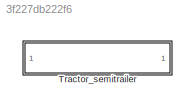
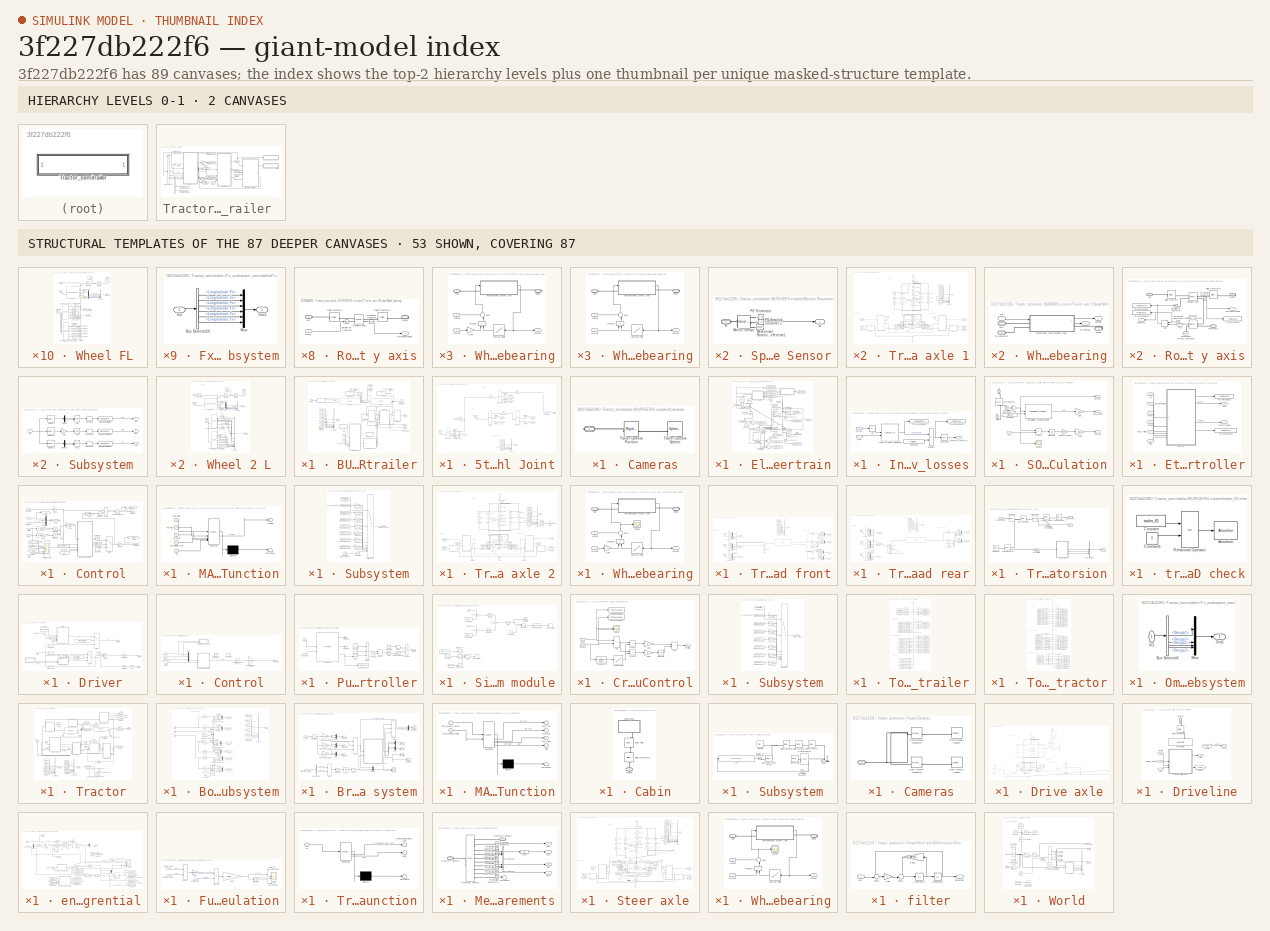
[diagram: thumbnail index - top-2 hierarchy levels (2 canvases) + 53 structural-template representatives of the remaining 87 canvases]
MODEL slx_3f227db222f6
KIND model
CONFIG AbsTol = auto
CONFIG EnableMultiTasking = on
CONFIG FixedStep = dt
CONFIG MaxStep = auto
CONFIG MinStep = auto
CONFIG PreLoadFcn = init_vehicle\ninit_SIMULATION_runfile
CONFIG RelTol = 1e-3
CONFIG SampleTimeConstraint = Unconstrained
CONFIG SolverName = VariableStepAuto
CONFIG StartFcn = tic
CONFIG StartTime = 0.0
CONFIG StopFcn = toc \nsim_stop_function\nICE_Etrailer_Simscape_MBM_plotting
CONFIG StopTime = tmax
BLOCK [SubSystem] Tractor_semitrailer 
BLOCK [SubSystem] Tractor_semitrailer /BURGERS e-trailer
  LibrarySourceBlock = CommercialVehicleLibrary2G/Trailers/Semitrailer
BLOCK [PMIOPort] Tractor_semitrailer /BURGERS e-trailer/5th Wheel
  Side = Left
  Tag = PMCPort
BLOCK [SubSystem] Tractor_semitrailer /BURGERS e-trailer/5th Wheel Joint
BLOCK [Reference] Tractor_semitrailer /BURGERS e-trailer/5th Wheel Joint/5th wheel joint  REF=sm_lib/Joints/Revolute Joint
  Commented = on
  SourceBlock = sm_lib/Joints/Revolute Joint
  SourceType = Revolute Joint
BLOCK [Reference] Tractor_semitrailer /BURGERS e-trailer/5th Wheel Joint/5th wheel joint - axis  REF=sm_lib/Joints/Revolute Joint
  Commented = on
  SourceBlock = sm_lib/Joints/Revolute Joint
  SourceType = Revolute Joint
BLOCK [Reference] Tractor_semitrailer /BURGERS e-trailer/5th Wheel Joint/Align  REF=sm_lib/Frames and
Transforms/Rigid
Transform
  SourceBlock = sm_lib/Frames and\nTransforms/Rigid\nTransform
  SourceType = Rigid\nTransform
BLOCK [Reference] Tractor_semitrailer /BURGERS e-trailer/5th Wheel Joint/Align_5th wheel  REF=sm_lib/Frames and
Transforms/Rigid
Transform
  Commented = on
  SourceBlock = sm_lib/Frames and\nTransforms/Rigid\nTransform
  SourceType = Rigid\nTransform
BLOCK [BusCreator] Tractor_semitrailer /BURGERS e-trailer/5th Wheel Joint/Bus Creator
  DisplayOption = bar
  InheritFromInputs = on
  Inputs = 3
BLOCK [BusCreator] Tractor_semitrailer /BURGERS e-trailer/5th Wheel Joint/Bus Creator1
  DisplayOption = bar
  InheritFromInputs = on
  Inputs = 5
BLOCK [PMIOPort] Tractor_semitrailer /BURGERS e-trailer/5th Wheel Joint/Chassis
  Side = Left
BLOCK [From] Tractor_semitrailer /BURGERS e-trailer/5th Wheel Joint/From
  GotoTag = pos
BLOCK [From] Tractor_semitrailer /BURGERS e-trailer/5th Wheel Joint/From2
  Commented = on
  GotoTag = Ft_Joint2
  NameLocation = top
BLOCK [From] Tractor_semitrailer /BURGERS e-trailer/5th Wheel Joint/From4
  GotoTag = Fc_Joint1
  NameLocation = top
BLOCK [From] Tractor_semitrailer /BURGERS e-trailer/5th Wheel Joint/From5
  GotoTag = Ft_Joint1
  NameLocation = top
BLOCK [From] Tractor_semitrailer /BURGERS e-trailer/5th Wheel Joint/From7
  Commented = on
  GotoTag = Fc_Joint2
BLOCK [Goto] Tractor_semitrailer /BURGERS e-trailer/5th Wheel Joint/Goto
  GotoTag = pos
BLOCK [Goto] Tractor_semitrailer /BURGERS e-trailer/5th Wheel Joint/Goto1
  Commented = on
  GotoTag = Ft_Joint1
BLOCK [Goto] Tractor_semitrailer /BURGERS e-trailer/5th Wheel Joint/Goto2
  Commented = on
  GotoTag = Fc_Joint1
BLOCK [Goto] Tractor_semitrailer /BURGERS e-trailer/5th Wheel Joint/Goto3
  Commented = on
  GotoTag = Ft_Joint2
BLOCK [Goto] Tractor_semitrailer /BURGERS e-trailer/5th Wheel Joint/Goto4
  Commented = on
  GotoTag = Fc_Joint2
BLOCK [Goto] Tractor_semitrailer /BURGERS e-trailer/5th Wheel Joint/Goto5
  GotoTag = Ft_Joint1
BLOCK [Goto] Tractor_semitrailer /BURGERS e-trailer/5th Wheel Joint/Goto6
  GotoTag = Fc_Joint1
BLOCK [Reference] Tractor_semitrailer /BURGERS e-trailer/5th Wheel Joint/PS-Simulink Converter  REF=nesl_utility/PS-Simulink
Converter
  SourceBlock = nesl_utility/PS-Simulink\nConverter
  SourceType = PS-Simulink\nConverter
BLOCK [Reference] Tractor_semitrailer /BURGERS e-trailer/5th Wheel Joint/PS-Simulink Converter1  REF=nesl_utility/PS-Simulink
Converter
  SourceBlock = nesl_utility/PS-Simulink\nConverter
  SourceType = PS-Simulink\nConverter
BLOCK [Reference] Tractor_semitrailer /BURGERS e-trailer/5th Wheel Joint/PS-Simulink Converter10  REF=nesl_utility/PS-Simulink
Converter
  SourceBlock = nesl_utility/PS-Simulink\nConverter
  SourceType = PS-Simulink\nConverter
BLOCK [Reference] Tractor_semitrailer /BURGERS e-trailer/5th Wheel Joint/PS-Simulink Converter2  REF=nesl_utility/PS-Simulink
Converter
  SourceBlock = nesl_utility/PS-Simulink\nConverter
  SourceType = PS-Simulink\nConverter
BLOCK [Reference] Tractor_semitrailer /BURGERS e-trailer/5th Wheel Joint/PS-Simulink Converter3  REF=nesl_utility/PS-Simulink
Converter
  Commented = on
  SourceBlock = nesl_utility/PS-Simulink\nConverter
  SourceType = PS-Simulink\nConverter
BLOCK [Reference] Tractor_semitrailer /BURGERS e-trailer/5th Wheel Joint/PS-Simulink Converter4  REF=nesl_utility/PS-Simulink
Converter
  Commented = on
  SourceBlock = nesl_utility/PS-Simulink\nConverter
  SourceType = PS-Simulink\nConverter
BLOCK [Reference] Tractor_semitrailer /BURGERS e-trailer/5th Wheel Joint/PS-Simulink Converter5  REF=nesl_utility/PS-Simulink
Converter
  Commented = on
  SourceBlock = nesl_utility/PS-Simulink\nConverter
  SourceType = PS-Simulink\nConverter
BLOCK [Reference] Tractor_semitrailer /BURGERS e-trailer/5th Wheel Joint/PS-Simulink Converter6  REF=nesl_utility/PS-Simulink
Converter
  Commented = on
  SourceBlock = nesl_utility/PS-Simulink\nConverter
  SourceType = PS-Simulink\nConverter
BLOCK [Reference] Tractor_semitrailer /BURGERS e-trailer/5th Wheel Joint/PS-Simulink Converter8  REF=nesl_utility/PS-Simulink
Converter
  SourceBlock = nesl_utility/PS-Simulink\nConverter
  SourceType = PS-Simulink\nConverter
BLOCK [Reference] Tractor_semitrailer /BURGERS e-trailer/5th Wheel Joint/PS-Simulink Converter9  REF=nesl_utility/PS-Simulink
Converter
  SourceBlock = nesl_utility/PS-Simulink\nConverter
  SourceType = PS-Simulink\nConverter
BLOCK [Reference] Tractor_semitrailer /BURGERS e-trailer/5th Wheel Joint/Realign  REF=sm_lib/Frames and
Transforms/Rigid
Transform
  SourceBlock = sm_lib/Frames and\nTransforms/Rigid\nTransform
  SourceType = Rigid\nTransform
BLOCK [Reference] Tractor_semitrailer /BURGERS e-trailer/5th Wheel Joint/Realign_5th wheel  REF=sm_lib/Frames and
Transforms/Rigid
Transform
  Commented = on
  SourceBlock = sm_lib/Frames and\nTransforms/Rigid\nTransform
  SourceType = Rigid\nTransform
BLOCK [Scope] Tractor_semitrailer /BURGERS e-trailer/5th Wheel Joint/Scope
  Floating = off
  NumInputPorts = 1
  ScopeSpecificationString = Simulink.scopes.TimeScopeBlockCfg('CurrentConfiguration', extmgr.ConfigurationSet(extmgr.Configuration('Core','General UI',true),extmgr.Configuration('Core','Source UI',true),extmgr.Configuration('Sources','WiredSimulink',true,'DataLoggingVariableName','ScopeData1'),extmgr.Configuration('Visuals','Time Domain',true,'SerializedDisplays',{struct('MinYLimReal','-0.0612','MaxYLimReal','0.55078','YLabe...<+1748ch>
BLOCK [PMIOPort] Tractor_semitrailer /BURGERS e-trailer/5th Wheel Joint/Trailer
  Port = 2
  Side = Right
BLOCK [Reference] Tractor_semitrailer /BURGERS e-trailer/5th Wheel Joint/Transform Sensor  REF=sm_lib/Frames and
Transforms/Transform
Sensor
  SourceBlock = sm_lib/Frames and\nTransforms/Transform\nSensor
  SourceType = Transform\nSensor
BLOCK [Reference] Tractor_semitrailer /BURGERS e-trailer/5th Wheel Joint/Universal Joint  REF=sm_lib/Joints/Universal
Joint
  SourceBlock = sm_lib/Joints/Universal\nJoint
  SourceType = Universal\nJoint
BLOCK [Reference] Tractor_semitrailer /BURGERS e-trailer/5th Wheel Joint/World Frame  REF=sm_lib/Frames and
Transforms/World Frame
  SourceBlock = sm_lib/Frames and\nTransforms/World Frame
  SourceType = World Frame
BLOCK [Reference] Tractor_semitrailer /BURGERS e-trailer/5th Wheel Joint/pos_5th Wheel  REF=sm_lib/Frames and
Transforms/Rigid
Transform
  SourceBlock = sm_lib/Frames and\nTransforms/Rigid\nTransform
  SourceType = Rigid\nTransform
BLOCK [Reference] Tractor_semitrailer /BURGERS e-trailer/5th Wheel Joint/pos_trailer_front  REF=sm_lib/Frames and
Transforms/Rigid
Transform
  SourceBlock = sm_lib/Frames and\nTransforms/Rigid\nTransform
  SourceType = Rigid\nTransform
BLOCK [Outport] Tractor_semitrailer /BURGERS e-trailer/5th Wheel Joint/signals
BLOCK [BusCreator] Tractor_semitrailer /BURGERS e-trailer/Bus Creator
  DisplayOption = bar
  InheritFromInputs = on
  Inputs = 8
BLOCK [SubSystem] Tractor_semitrailer /BURGERS e-trailer/Cameras
  NameLocation = top
  PortSchema = {"entries":[{"content":{"sides":[{"content":{"connectorIds":[]},"type":"ConnectorPlacement.EquallySpacedRectSide","uuid":"323b7ff6-2456-4e2e-a0c0-1caaddbc2339"},{"content":{"connectorIds":[],"side":"RIGHT"},"type":"ConnectorPlacement.EquallySpacedRectSide","uuid":"1f5e267e-0c09-46b4-9116-e9355f2454eb"},{"content":{"connectorIds":[],"side":"TOP"},"type":"ConnectorPlacement.EquallySpacedRectSide","u...<+381ch>
BLOCK [PMIOPort] Tractor_semitrailer /BURGERS e-trailer/Cameras/ 
  Side = Right
BLOCK [Reference] Tractor_semitrailer /BURGERS e-trailer/Cameras/Trailer Camera Position  REF=sm_lib/Frames and
Transforms/Rigid
Transform
  SourceBlock = sm_lib/Frames and\nTransforms/Rigid\nTransform
  SourceType = Rigid\nTransform
BLOCK [Reference] Tractor_semitrailer /BURGERS e-trailer/Cameras/Trailer Camera Sphere  REF=sm_lib/Body Elements/Spherical Solid
  SourceBlock = sm_lib/Body Elements/Spherical Solid
  SourceType = Spherical Solid
BLOCK [Outport] Tractor_semitrailer /BURGERS e-trailer/DriveTrqs_etrailer
  Port = 2
BLOCK [SubSystem] Tractor_semitrailer /BURGERS e-trailer/Electric Powertrain
  PortSchema = {"entries":[{"content":{"sides":[{"content":{"connectorIds":["In1"]},"type":"ConnectorPlacement.EquallySpacedRectSide","uuid":"157e9ca7-4557-4784-80e8-a2717cc996a6"},{"content":{"connectorIds":["RConn1","RConn2","Out1"],"side":"RIGHT"},"type":"ConnectorPlacement.EquallySpacedRectSide","uuid":"8309c863-b11c-42d5-89d5-fce448da9e7d"},{"content":{"side":"TOP"},"type":"ConnectorPlacement.EquallySpacedR...<+240ch>
BLOCK [Sum] Tractor_semitrailer /BURGERS e-trailer/Electric Powertrain/Add
  IconShape = rectangular
  Inputs = +-
BLOCK [Sum] Tractor_semitrailer /BURGERS e-trailer/Electric Powertrain/Add1
  IconShape = rectangular
  Inputs = +-
BLOCK [Sum] Tractor_semitrailer /BURGERS e-trailer/Electric Powertrain/Add2
  IconShape = rectangular
  Inputs = -+
BLOCK [Reference] Tractor_semitrailer /BURGERS e-trailer/Electric Powertrain/Battery model  REF=batteryecm_lib/Battery
  NameLocation = right
  SourceBlock = batteryecm_lib/Battery
  SourceType = Battery
BLOCK [Constant] Tractor_semitrailer /BURGERS e-trailer/Electric Powertrain/Constant
  Value = 273
BLOCK [Reference] Tractor_semitrailer /BURGERS e-trailer/Electric Powertrain/Electrical Reference  REF=fl_lib/Electrical/Electrical Elements/Electrical Reference
  NameLocation = right
  SourceBlock = fl_lib/Electrical/Electrical Elements/Electrical Reference
  SourceType = Electrical Reference
BLOCK [SubSystem] Tractor_semitrailer /BURGERS e-trailer/Electric Powertrain/Inverter_losses
BLOCK [Abs] Tractor_semitrailer /BURGERS e-trailer/Electric Powertrain/Inverter_losses/Abs
  SaturateOnIntegerOverflow = off
BLOCK [Constant] Tractor_semitrailer /BURGERS e-trailer/Electric Powertrain/Inverter_losses/Constant
  Value = inverter_thermal_res
BLOCK [Inport] Tractor_semitrailer /BURGERS e-trailer/Electric Powertrain/Inverter_losses/Current
  Port = 2
BLOCK [Integrator] Tractor_semitrailer /BURGERS e-trailer/Electric Powertrain/Inverter_losses/Integrator
  InitialCondition = outside_temp
BLOCK [Lookup_n-D] Tractor_semitrailer /BURGERS e-trailer/Electric Powertrain/Inverter_losses/Inverter power dissipation
  BreakpointsForDimension1 = Arms
  BreakpointsForDimension2 = Vdc
  InputPortMap = u0,u1
  InternalRulePriority = Speed
  RndMeth = Simplest
  Table = Power_dissipation
BLOCK [Outport] Tractor_semitrailer /BURGERS e-trailer/Electric Powertrain/Inverter_losses/Inverter_temp_[C]
BLOCK [Product] Tractor_semitrailer /BURGERS e-trailer/Electric Powertrain/Inverter_losses/Product
BLOCK [ToWorkspace] Tractor_semitrailer /BURGERS e-trailer/Electric Powertrain/Inverter_losses/To Workspace1
  FixptAsFi = on
  MaxDataPoints = inf
  SampleTime = sp_t
  VariableName = p_inverter_deltatemp
BLOCK [ToWorkspace] Tractor_semitrailer /BURGERS e-trailer/Electric Powertrain/Inverter_losses/To Workspace6
  FixptAsFi = on
  MaxDataPoints = inf
  SampleTime = sp_t
  VariableName = p_inverter_powdiss
BLOCK [Inport] Tractor_semitrailer /BURGERS e-trailer/Electric Powertrain/Inverter_losses/V_bat
BLOCK [Reference] Tractor_semitrailer /BURGERS e-trailer/Electric Powertrain/Mechanical Rotational Reference  REF=fl_lib/Mechanical/Rotational Elements/Mechanical
Rotational Reference
  NameLocation = left
  SourceBlock = fl_lib/Mechanical/Rotational Elements/Mechanical\nRotational Reference
  SourceType = Mechanical\nRotational Reference
BLOCK [Reference] Tractor_semitrailer /BURGERS e-trailer/Electric Powertrain/Mechanical Rotational Reference1  REF=fl_lib/Mechanical/Rotational Elements/Mechanical
Rotational Reference
  NameLocation = left
  SourceBlock = fl_lib/Mechanical/Rotational Elements/Mechanical\nRotational Reference
  SourceType = Mechanical\nRotational Reference
BLOCK [Inport] Tractor_semitrailer /BURGERS e-trailer/Electric Powertrain/MotTrqReq
  NameLocation = top
BLOCK [Reference] Tractor_semitrailer /BURGERS e-trailer/Electric Powertrain/Motor & Drive L  REF=ee_lib/Electromechanical/Motor & Drive
(System Level)
  SourceBlock = ee_lib/Electromechanical/Motor & Drive\n(System Level)
  SourceType = Motor & Drive\n(System Level)
BLOCK [Reference] Tractor_semitrailer /BURGERS e-trailer/Electric Powertrain/Motor & Drive R  REF=ee_lib/Electromechanical/Motor & Drive
(System Level)
  SourceBlock = ee_lib/Electromechanical/Motor & Drive\n(System Level)
  SourceType = Motor & Drive\n(System Level)
BLOCK [Reference] Tractor_semitrailer /BURGERS e-trailer/Electric Powertrain/Motor Reducer L  REF=sdl_lib/Gears/Simple Gear
  SourceBlock = sdl_lib/Gears/Simple Gear
  SourceType = Simple Gear
BLOCK [Reference] Tractor_semitrailer /BURGERS e-trailer/Electric Powertrain/Motor Reducer R  REF=sdl_lib/Gears/Simple Gear
  SourceBlock = sdl_lib/Gears/Simple Gear
  SourceType = Simple Gear
BLOCK [PMIOPort] Tractor_semitrailer /BURGERS e-trailer/Electric Powertrain/MotorShaftOutL
  Side = Right
BLOCK [PMIOPort] Tractor_semitrailer /BURGERS e-trailer/Electric Powertrain/MotorShaftOutR
  Port = 2
  Side = Right
BLOCK [Reference] Tractor_semitrailer /BURGERS e-trailer/Electric Powertrain/PS Terminator  REF=fl_lib/Physical Signals/Sinks/PS Terminator
  NameLocation = top
  SourceBlock = fl_lib/Physical Signals/Sinks/PS Terminator
  SourceType = PS Terminator
BLOCK [Reference] Tractor_semitrailer /BURGERS e-trailer/Electric Powertrain/PS Terminator1  REF=fl_lib/Physical Signals/Sinks/PS Terminator
  NameLocation = top
  SourceBlock = fl_lib/Physical Signals/Sinks/PS Terminator
  SourceType = PS Terminator
BLOCK [Reference] Tractor_semitrailer /BURGERS e-trailer/Electric Powertrain/PS-Simulink Converter1  REF=nesl_utility/PS-Simulink
Converter
  SourceBlock = nesl_utility/PS-Simulink\nConverter
  SourceType = PS-Simulink\nConverter
BLOCK [Reference] Tractor_semitrailer /BURGERS e-trailer/Electric Powertrain/PS-Simulink Converter2  REF=nesl_utility/PS-Simulink
Converter
  NameLocation = left
  SourceBlock = nesl_utility/PS-Simulink\nConverter
  SourceType = PS-Simulink\nConverter
BLOCK [Reference] Tractor_semitrailer /BURGERS e-trailer/Electric Powertrain/PS-Simulink Converter3  REF=nesl_utility/PS-Simulink
Converter
  SourceBlock = nesl_utility/PS-Simulink\nConverter
  SourceType = PS-Simulink\nConverter
BLOCK [Reference] Tractor_semitrailer /BURGERS e-trailer/Electric Powertrain/PS-Simulink Converter4  REF=nesl_utility/PS-Simulink
Converter
  SourceBlock = nesl_utility/PS-Simulink\nConverter
  SourceType = PS-Simulink\nConverter
BLOCK [Outport] Tractor_semitrailer /BURGERS e-trailer/Electric Powertrain/SOC
BLOCK [SubSystem] Tractor_semitrailer /BURGERS e-trailer/Electric Powertrain/SOC calculation
  NameLocation = top
BLOCK [PMIOPort] Tractor_semitrailer /BURGERS e-trailer/Electric Powertrain/SOC calculation/+
  NameLocation = left
  Side = Left
BLOCK [PMIOPort] Tractor_semitrailer /BURGERS e-trailer/Electric Powertrain/SOC calculation/-
  NameLocation = left
  Port = 2
  Side = Right
BLOCK [Gain] Tractor_semitrailer /BURGERS e-trailer/Electric Powertrain/SOC calculation/1//EnergyCapacity
  Gain = 1/(energyCapacity*Voc*3600)
BLOCK [Constant] Tractor_semitrailer /BURGERS e-trailer/Electric Powertrain/SOC calculation/Constant1
  Value = initialSOC
BLOCK [Outport] Tractor_semitrailer /BURGERS e-trailer/Electric Powertrain/SOC calculation/Current
  Port = 2
BLOCK [Reference] Tractor_semitrailer /BURGERS e-trailer/Electric Powertrain/SOC calculation/Current Sensor  REF=fl_lib/Electrical/Electrical Sensors/Current Sensor
  NameLocation = right
  SourceBlock = fl_lib/Electrical/Electrical Sensors/Current Sensor
  SourceType = Current Sensor
BLOCK [Gain] Tractor_semitrailer /BURGERS e-trailer/Electric Powertrain/SOC calculation/Gain
  Gain = -1
BLOCK [Gain] Tractor_semitrailer /BURGERS e-trailer/Electric Powertrain/SOC calculation/Gain1
  Gain = 100
BLOCK [Gain] Tractor_semitrailer /BURGERS e-trailer/Electric Powertrain/SOC calculation/Gain2
  Gain = 100
BLOCK [Integrator] Tractor_semitrailer /BURGERS e-trailer/Electric Powertrain/SOC calculation/Integrator
  InitialCondition = energyCapacity*Voc*3600*initialSOC
BLOCK [Reference] Tractor_semitrailer /BURGERS e-trailer/Electric Powertrain/SOC calculation/PS-Simulink Converter1  REF=nesl_utility/PS-Simulink
Converter
  SourceBlock = nesl_utility/PS-Simulink\nConverter
  SourceType = PS-Simulink\nConverter
BLOCK [Product] Tractor_semitrailer /BURGERS e-trailer/Electric Powertrain/SOC calculation/Product
BLOCK [Reference] Tractor_semitrailer /BURGERS e-trailer/Electric Powertrain/SOC calculation/SOC Estimator (Coulomb Counting)  REF=BatteryEstimators/SOC Estimator
(Coulomb Counting)
  LibrarySourceBlock = batt_sl_lib/Estimators/SOC Estimator\n(Coulomb Counting)
  SourceBlock = BatteryEstimators/SOC Estimator\n(Coulomb Counting)
  SourceType = SOC Estimator (Coulomb Counting)
BLOCK [Outport] Tractor_semitrailer /BURGERS e-trailer/Electric Powertrain/SOC calculation/SOC_Coulomb
BLOCK [Outport] Tractor_semitrailer /BURGERS e-trailer/Electric Powertrain/SOC calculation/SOC_calc
  Port = 3
BLOCK [Scope] Tractor_semitrailer /BURGERS e-trailer/Electric Powertrain/SOC calculation/Scope
  Floating = off
  NumInputPorts = 1
  ScopeSpecificationString = Simulink.scopes.TimeScopeBlockCfg('CurrentConfiguration', extmgr.ConfigurationSet(extmgr.Configuration('Core','General UI',true),extmgr.Configuration('Core','Source UI',true),extmgr.Configuration('Sources','WiredSimulink',true,'DataLoggingVariableName','ScopeData1'),extmgr.Configuration('Visuals','Time Domain',true,'SerializedDisplays',{struct('MinYLimReal','-85.96518','MaxYLimReal','773.69153','Y...<+1397ch>
BLOCK [Inport] Tractor_semitrailer /BURGERS e-trailer/Electric Powertrain/SOC calculation/Voc
BLOCK [Reference] Tractor_semitrailer /BURGERS e-trailer/Electric Powertrain/Simulink-PS Converter1  REF=nesl_utility/Simulink-PS
Converter
  NameLocation = top
  SourceBlock = nesl_utility/Simulink-PS\nConverter
  SourceType = Simulink-PS\nConverter
BLOCK [Reference] Tractor_semitrailer /BURGERS e-trailer/Electric Powertrain/Simulink-PS Converter2  REF=nesl_utility/Simulink-PS
Converter
  NameLocation = top
  SourceBlock = nesl_utility/Simulink-PS\nConverter
  SourceType = Simulink-PS\nConverter
BLOCK [SubSystem] Tractor_semitrailer /BURGERS e-trailer/Electric Powertrain/Speed Sensor
  NameLocation = left
BLOCK [Reference] Tractor_semitrailer /BURGERS e-trailer/Electric Powertrain/Speed Sensor/Mechanical Rotational Reference1  REF=fl_lib/Mechanical/Rotational Elements/Mechanical
Rotational Reference
  SourceBlock = fl_lib/Mechanical/Rotational Elements/Mechanical\nRotational Reference
  SourceType = Mechanical\nRotational Reference
BLOCK [Reference] Tractor_semitrailer /BURGERS e-trailer/Electric Powertrain/Speed Sensor/Motion Sensor  REF=fl_lib/Mechanical/Mechanical Sensors/Ideal Rotational
Motion Sensor
  SourceBlock = fl_lib/Mechanical/Mechanical Sensors/Ideal Rotational\nMotion Sensor
  SourceType = Ideal Rotational\nMotion Sensor
BLOCK [Reference] Tractor_semitrailer /BURGERS e-trailer/Electric Powertrain/Speed Sensor/PS Terminator  REF=fl_lib/Physical Signals/Sinks/PS Terminator
  NameLocation = top
  SourceBlock = fl_lib/Physical Signals/Sinks/PS Terminator
  SourceType = PS Terminator
BLOCK [Reference] Tractor_semitrailer /BURGERS e-trailer/Electric Powertrain/Speed Sensor/PS-Simulink Converter 2  REF=nesl_utility/PS-Simulink
Converter
  AttributesFormatString = %<Unit>
  SourceBlock = nesl_utility/PS-Simulink\nConverter
  SourceType = PS-Simulink\nConverter
BLOCK [PMIOPort] Tractor_semitrailer /BURGERS e-trailer/Electric Powertrain/Speed Sensor/R
  Side = Left
BLOCK [Outport] Tractor_semitrailer /BURGERS e-trailer/Electric Powertrain/Speed Sensor/w
BLOCK [SubSystem] Tractor_semitrailer /BURGERS e-trailer/Electric Powertrain/Speed Sensor1
  NameLocation = left
BLOCK [Reference] Tractor_semitrailer /BURGERS e-trailer/Electric Powertrain/Speed Sensor1/Mechanical Rotational Reference1  REF=fl_lib/Mechanical/Rotational Elements/Mechanical
Rotational Reference
  SourceBlock = fl_lib/Mechanical/Rotational Elements/Mechanical\nRotational Reference
  SourceType = Mechanical\nRotational Reference
BLOCK [Reference] Tractor_semitrailer /BURGERS e-trailer/Electric Powertrain/Speed Sensor1/Motion Sensor  REF=fl_lib/Mechanical/Mechanical Sensors/Ideal Rotational
Motion Sensor
  SourceBlock = fl_lib/Mechanical/Mechanical Sensors/Ideal Rotational\nMotion Sensor
  SourceType = Ideal Rotational\nMotion Sensor
BLOCK [Reference] Tractor_semitrailer /BURGERS e-trailer/Electric Powertrain/Speed Sensor1/PS Terminator  REF=fl_lib/Physical Signals/Sinks/PS Terminator
  NameLocation = top
  SourceBlock = fl_lib/Physical Signals/Sinks/PS Terminator
  SourceType = PS Terminator
BLOCK [Reference] Tractor_semitrailer /BURGERS e-trailer/Electric Powertrain/Speed Sensor1/PS-Simulink Converter 2  REF=nesl_utility/PS-Simulink
Converter
  AttributesFormatString = %<Unit>
  SourceBlock = nesl_utility/PS-Simulink\nConverter
  SourceType = PS-Simulink\nConverter
BLOCK [PMIOPort] Tractor_semitrailer /BURGERS e-trailer/Electric Powertrain/Speed Sensor1/R
  Side = Left
BLOCK [Outport] Tractor_semitrailer /BURGERS e-trailer/Electric Powertrain/Speed Sensor1/w
BLOCK [Reference] Tractor_semitrailer /BURGERS e-trailer/Electric Powertrain/Temperature Sensor  REF=fl_lib/Thermal/Thermal Sensors/Temperature Sensor
  NameLocation = left
  SourceBlock = fl_lib/Thermal/Thermal Sensors/Temperature Sensor
  SourceType = Temperature Sensor
BLOCK [Reference] Tractor_semitrailer /BURGERS e-trailer/Electric Powertrain/Temperature Sensor1  REF=fl_lib/Thermal/Thermal Sensors/Temperature Sensor
  NameLocation = left
  SourceBlock = fl_lib/Thermal/Thermal Sensors/Temperature Sensor
  SourceType = Temperature Sensor
BLOCK [Reference] Tractor_semitrailer /BURGERS e-trailer/Electric Powertrain/Temperature Sensor2  REF=fl_lib/Thermal/Thermal Sensors/Temperature Sensor
  NameLocation = left
  SourceBlock = fl_lib/Thermal/Thermal Sensors/Temperature Sensor
  SourceType = Temperature Sensor
BLOCK [ToWorkspace] Tractor_semitrailer /BURGERS e-trailer/Electric Powertrain/To Workspace
  FixptAsFi = on
  MaxDataPoints = inf
  SampleTime = sp_t
  VariableName = p_battery_SOCcoulomb
BLOCK [ToWorkspace] Tractor_semitrailer /BURGERS e-trailer/Electric Powertrain/To Workspace1
  FixptAsFi = on
  MaxDataPoints = inf
  SampleTime = sp_t
  VariableName = p_battery_SOCcalc
BLOCK [ToWorkspace] Tractor_semitrailer /BURGERS e-trailer/Electric Powertrain/To Workspace2
  FixptAsFi = on
  MaxDataPoints = inf
  SampleTime = sp_t
  VariableName = p_battery_current
BLOCK [ToWorkspace] Tractor_semitrailer /BURGERS e-trailer/Electric Powertrain/To Workspace3
  FixptAsFi = on
  MaxDataPoints = inf
  SampleTime = sp_t
  VariableName = p_battery_temperature
BLOCK [ToWorkspace] Tractor_semitrailer /BURGERS e-trailer/Electric Powertrain/To Workspace4
  FixptAsFi = on
  MaxDataPoints = inf
  SampleTime = sp_t
  VariableName = p_battery_Voltage
BLOCK [ToWorkspace] Tractor_semitrailer /BURGERS e-trailer/Electric Powertrain/To Workspace5
  FixptAsFi = on
  MaxDataPoints = inf
  SampleTime = sp_t
  VariableName = p_Emotor_speedL
BLOCK [ToWorkspace] Tractor_semitrailer /BURGERS e-trailer/Electric Powertrain/To Workspace6
  FixptAsFi = on
  MaxDataPoints = inf
  SampleTime = sp_t
  VariableName = p_Emotor_speedR
BLOCK [ToWorkspace] Tractor_semitrailer /BURGERS e-trailer/Electric Powertrain/To Workspace7
  FixptAsFi = on
  MaxDataPoints = inf
  SampleTime = sp_t
  VariableName = p_Emotor_temperatureL
BLOCK [ToWorkspace] Tractor_semitrailer /BURGERS e-trailer/Electric Powertrain/To Workspace8
  FixptAsFi = on
  MaxDataPoints = inf
  SampleTime = sp_t
  VariableName = p_Emotor_temperatureR
BLOCK [ToWorkspace] Tractor_semitrailer /BURGERS e-trailer/Electric Powertrain/To Workspace9
  FixptAsFi = on
  MaxDataPoints = inf
  SampleTime = sp_t
  VariableName = p_inverter_temperature
BLOCK [Reference] Tractor_semitrailer /BURGERS e-trailer/Electric Powertrain/Voltage Sensor  REF=fl_lib/Electrical/Electrical Sensors/Voltage Sensor
  NameLocation = right
  SourceBlock = fl_lib/Electrical/Electrical Sensors/Voltage Sensor
  SourceType = Voltage Sensor
BLOCK [SubSystem] Tractor_semitrailer /BURGERS e-trailer/Etrailer-Controller
BLOCK [SubSystem] Tractor_semitrailer /BURGERS e-trailer/Etrailer-Controller/Control
  PortSchema = {"entries":[{"content":{"sides":[{"content":{"connectorIds":["Out1","Out2"]},"type":"ConnectorPlacement.EquallySpacedRectSide","uuid":"12b9f2c9-2b28-451b-ad36-7fe4150db485"},{"content":{"connectorIds":["In1","In2","In3","In4","In5","In6"],"side":"RIGHT"},"type":"ConnectorPlacement.EquallySpacedRectSide","uuid":"c0fdf9a4-483a-4ddc-b663-6299fcc79327"},{"content":{"side":"TOP"},"type":"ConnectorPlace...<+259ch>
BLOCK [Sum] Tractor_semitrailer /BURGERS e-trailer/Etrailer-Controller/Control/Add
  IconShape = rectangular
BLOCK [Sum] Tractor_semitrailer /BURGERS e-trailer/Etrailer-Controller/Control/Add1
  IconShape = rectangular
  Inputs = +-
BLOCK [Constant] Tractor_semitrailer /BURGERS e-trailer/Etrailer-Controller/Control/Constant
  Value = etrailer_ON
BLOCK [Constant] Tractor_semitrailer /BURGERS e-trailer/Etrailer-Controller/Control/Constant1
  Value = 0
BLOCK [Constant] Tractor_semitrailer /BURGERS e-trailer/Etrailer-Controller/Control/Constant2
  Value = Std_Regen_Trq
BLOCK [Scope] Tractor_semitrailer /BURGERS e-trailer/Etrailer-Controller/Control/Control_Scope
  Floating = off
  NumInputPorts = 4
  ScopeSpecificationString = Simulink.scopes.TimeScopeBlockCfg('CurrentConfiguration', extmgr.ConfigurationSet(extmgr.Configuration('Core','General UI',true),extmgr.Configuration('Core','Source UI',true),extmgr.Configuration('Sources','WiredSimulink',true,'DataLoggingVariableName','ScopeData1'),extmgr.Configuration('Visuals','Time Domain',true,'SerializedDisplays',{struct('MinYLimReal','-3.67132','MaxYLimReal','28.57144','YLa...<+3543ch>
BLOCK [From] Tractor_semitrailer /BURGERS e-trailer/Etrailer-Controller/Control/From
  GotoTag = speed_comp
BLOCK [From] Tractor_semitrailer /BURGERS e-trailer/Etrailer-Controller/Control/From2
  GotoTag = Mbrake_trailer
BLOCK [From] Tractor_semitrailer /BURGERS e-trailer/Etrailer-Controller/Control/From3
  GotoTag = TrqReq
BLOCK [From] Tractor_semitrailer /BURGERS e-trailer/Etrailer-Controller/Control/From4
  GotoTag = Vx
BLOCK [Gain] Tractor_semitrailer /BURGERS e-trailer/Etrailer-Controller/Control/Gain
  Gain = 2*MaxTrqOut
BLOCK [Gain] Tractor_semitrailer /BURGERS e-trailer/Etrailer-Controller/Control/Gain1
  Gain = -2*MaxTrqOut
BLOCK [Gain] Tractor_semitrailer /BURGERS e-trailer/Etrailer-Controller/Control/Gain2
  Gain = G_motor
BLOCK [Gain] Tractor_semitrailer /BURGERS e-trailer/Etrailer-Controller/Control/Gain3
  Gain = -1
BLOCK [Gain] Tractor_semitrailer /BURGERS e-trailer/Etrailer-Controller/Control/Gain4
  Gain = 1/G_motor
BLOCK [Gain] Tractor_semitrailer /BURGERS e-trailer/Etrailer-Controller/Control/Gain5
  Gain = 1/2
BLOCK [Goto] Tractor_semitrailer /BURGERS e-trailer/Etrailer-Controller/Control/Goto
  GotoTag = speed_comp
BLOCK [Goto] Tractor_semitrailer /BURGERS e-trailer/Etrailer-Controller/Control/Goto2
  GotoTag = Mbrake_trailer
BLOCK [Goto] Tractor_semitrailer /BURGERS e-trailer/Etrailer-Controller/Control/Goto3
  GotoTag = TrqReq
BLOCK [Goto] Tractor_semitrailer /BURGERS e-trailer/Etrailer-Controller/Control/Goto4
  GotoTag = Vx
BLOCK [SubSystem] Tractor_semitrailer /BURGERS e-trailer/Etrailer-Controller/Control/MATLAB Function
  ErrorFcn = Stateflow.Translate.translate
  LibrarySourceBlock = simulink/User-Defined\nFunctions/MATLAB Function
  PermitHierarchicalResolution = ExplicitOnly
  SFBlockType = MATLAB Function
  TreatAsAtomicUnit = on
BLOCK [Demux] Tractor_semitrailer /BURGERS e-trailer/Etrailer-Controller/Control/MATLAB Function/ Demux 
  Outputs = 1
BLOCK [S-Function] Tractor_semitrailer /BURGERS e-trailer/Etrailer-Controller/Control/MATLAB Function/ SFunction 
  EnableBusSupport = on
  FunctionName = sf_sfun
  PortCounts = [5 2]
  SFcnIsStateOwnerBlock = off
  SFunctionDeploymentMode = off
  Tag = Stateflow S-Function 1
BLOCK [Terminator] Tractor_semitrailer /BURGERS e-trailer/Etrailer-Controller/Control/MATLAB Function/ Terminator 
BLOCK [Inport] Tractor_semitrailer /BURGERS e-trailer/Etrailer-Controller/Control/MATLAB Function/Mbtrailer
BLOCK [Inport] Tractor_semitrailer /BURGERS e-trailer/Etrailer-Controller/Control/MATLAB Function/Std_Regen_Trq
  Port = 4
BLOCK [Inport] Tractor_semitrailer /BURGERS e-trailer/Etrailer-Controller/Control/MATLAB Function/Torqreq
  Port = 2
BLOCK [Outport] Tractor_semitrailer /BURGERS e-trailer/Etrailer-Controller/Control/MATLAB Function/TrqReq
BLOCK [Inport] Tractor_semitrailer /BURGERS e-trailer/Etrailer-Controller/Control/MATLAB Function/Vx
  Port = 5
BLOCK [Inport] Tractor_semitrailer /BURGERS e-trailer/Etrailer-Controller/Control/MATLAB Function/throttle
  Port = 3
BLOCK [Inport] Tractor_semitrailer /BURGERS e-trailer/Etrailer-Controller/Control/Mb_trailer
  Port = 5
BLOCK [Outport] Tractor_semitrailer /BURGERS e-trailer/Etrailer-Controller/Control/Mbrake
BLOCK [Mux] Tractor_semitrailer /BURGERS e-trailer/Etrailer-Controller/Control/Mux2
  DisplayOption = bar
  Inputs = 2
BLOCK [Saturate] Tractor_semitrailer /BURGERS e-trailer/Etrailer-Controller/Control/Only Negative Trq
  LowerLimit = -inf
  UpperLimit = 0
  ZeroCross = off
BLOCK [Inport] Tractor_semitrailer /BURGERS e-trailer/Etrailer-Controller/Control/SOC
  Port = 6
BLOCK [Saturate] Tractor_semitrailer /BURGERS e-trailer/Etrailer-Controller/Control/Saturation
  LowerLimit = 0
  UpperLimit = inf
BLOCK [Saturate] Tractor_semitrailer /BURGERS e-trailer/Etrailer-Controller/Control/Saturation1
  LowerLimit = -inf
  UpperLimit = 0
BLOCK [Saturate] Tractor_semitrailer /BURGERS e-trailer/Etrailer-Controller/Control/Saturation2
  LowerLimit = -inf
  UpperLimit = 0
BLOCK [Saturate] Tractor_semitrailer /BURGERS e-trailer/Etrailer-Controller/Control/Saturation3
  LowerLimit = -2*MaxTrqOut
  UpperLimit = 2*MaxTrqOut
BLOCK [Inport] Tractor_semitrailer /BURGERS e-trailer/Etrailer-Controller/Control/SpdRef
  Port = 2
  Unit = m/s
BLOCK [Switch] Tractor_semitrailer /BURGERS e-trailer/Etrailer-Controller/Control/Switch
  Criteria = u2 > Threshold
  InputSameDT = off
  SaturateOnIntegerOverflow = off
BLOCK [Outport] Tractor_semitrailer /BURGERS e-trailer/Etrailer-Controller/Control/TrqReq
  Port = 2
  Unit = N*m
  VectorParamsAs1DForOutWhenUnconnected = off
BLOCK [Inport] Tractor_semitrailer /BURGERS e-trailer/Etrailer-Controller/Control/Vx
  Unit = m/s
BLOCK [Inport] Tractor_semitrailer /BURGERS e-trailer/Etrailer-Controller/Control/brake
  Port = 4
BLOCK [Inport] Tractor_semitrailer /BURGERS e-trailer/Etrailer-Controller/Control/throttle
  Port = 3
BLOCK [Outport] Tractor_semitrailer /BURGERS e-trailer/Etrailer-Controller/Mb
BLOCK [Inport] Tractor_semitrailer /BURGERS e-trailer/Etrailer-Controller/Mb_trailer
  Port = 5
BLOCK [Outport] Tractor_semitrailer /BURGERS e-trailer/Etrailer-Controller/MotorTrqReq
  Port = 2
BLOCK [Inport] Tractor_semitrailer /BURGERS e-trailer/Etrailer-Controller/RefVehSpeed
BLOCK [Inport] Tractor_semitrailer /BURGERS e-trailer/Etrailer-Controller/SOC
  Port = 6
BLOCK [ToWorkspace] Tractor_semitrailer /BURGERS e-trailer/Etrailer-Controller/To Workspace
  FixptAsFi = on
  MaxDataPoints = inf
  SampleTime = sp_t
  VariableName = p_Etrailercontrol_Mb
BLOCK [ToWorkspace] Tractor_semitrailer /BURGERS e-trailer/Etrailer-Controller/To Workspace1
  FixptAsFi = on
  MaxDataPoints = inf
  SampleTime = sp_t
  VariableName = p_Etrailercontrol_TrqReq
BLOCK [Inport] Tractor_semitrailer /BURGERS e-trailer/Etrailer-Controller/Vx
  Port = 2
BLOCK [Inport] Tractor_semitrailer /BURGERS e-trailer/Etrailer-Controller/brake
  Port = 4
BLOCK [Inport] Tractor_semitrailer /BURGERS e-trailer/Etrailer-Controller/throttle
  Port = 3
BLOCK [From] Tractor_semitrailer /BURGERS e-trailer/From
  GotoTag = torsion
BLOCK [From] Tractor_semitrailer /BURGERS e-trailer/From1
  CloseFcn = tagdialog Close
  GotoTag = axle1
  NameLocation = top
BLOCK [From] Tractor_semitrailer /BURGERS e-trailer/From2
  CloseFcn = tagdialog Close
  GotoTag = axle2
  NameLocation = top
BLOCK [From] Tractor_semitrailer /BURGERS e-trailer/From3
  CloseFcn = tagdialog Close
  GotoTag = axle3
  NameLocation = top
BLOCK [From] Tractor_semitrailer /BURGERS e-trailer/From4
  GotoTag = kingpin
BLOCK [From] Tractor_semitrailer /BURGERS e-trailer/From5
  GotoTag = semitrailerload1
BLOCK [From] Tractor_semitrailer /BURGERS e-trailer/From6
  GotoTag = semitrailerload2
BLOCK [From] Tractor_semitrailer /BURGERS e-trailer/From7
  GotoTag = Rotation
BLOCK [Goto] Tractor_semitrailer /BURGERS e-trailer/Goto
  GotoTag = semitrailerload1
BLOCK [Goto] Tractor_semitrailer /BURGERS e-trailer/Goto1
  GotoTag = semitrailerload2
BLOCK [Goto] Tractor_semitrailer /BURGERS e-trailer/Goto2
  GotoTag = torsion
BLOCK [Goto] Tractor_semitrailer /BURGERS e-trailer/Goto3
  GotoTag = axle1
BLOCK [Goto] Tractor_semitrailer /BURGERS e-trailer/Goto4
  GotoTag = axle2
BLOCK [Goto] Tractor_semitrailer /BURGERS e-trailer/Goto5
  GotoTag = axle3
BLOCK [Goto] Tractor_semitrailer /BURGERS e-trailer/Goto6
  GotoTag = kingpin
BLOCK [Goto] Tractor_semitrailer /BURGERS e-trailer/Goto7
  GotoTag = Rotation
BLOCK [PMIOPort] Tractor_semitrailer /BURGERS e-trailer/Ground
  Port = 2
  Side = Left
BLOCK [Inport] Tractor_semitrailer /BURGERS e-trailer/Mb_trailer
  Port = 2
BLOCK [Outport] Tractor_semitrailer /BURGERS e-trailer/Signals
BLOCK [SubSystem] Tractor_semitrailer /BURGERS e-trailer/Subsystem
BLOCK [Constant] Tractor_semitrailer /BURGERS e-trailer/Subsystem/Constant
  Value = InputSwitch
BLOCK [FromWorkspace] Tractor_semitrailer /BURGERS e-trailer/Subsystem/DriveCycle Speed Input
  VariableName = DrCycles.FTP
BLOCK [Outport] Tractor_semitrailer /BURGERS e-trailer/Subsystem/DriveCycleInput
BLOCK [FromWorkspace] Tractor_semitrailer /BURGERS e-trailer/Subsystem/From Workspace
  VariableName = DrCycles.C505
BLOCK [FromWorkspace] Tractor_semitrailer /BURGERS e-trailer/Subsystem/From Workspace1
  VariableName = DrCycles.UDDS
BLOCK [FromWorkspace] Tractor_semitrailer /BURGERS e-trailer/Subsystem/From Workspace2
  VariableName = DrCycles.HWFET
BLOCK [FromWorkspace] Tractor_semitrailer /BURGERS e-trailer/Subsystem/From Workspace3
  VariableName = DrCycles.US06
BLOCK [FromWorkspace] Tractor_semitrailer /BURGERS e-trailer/Subsystem/From Workspace4
  VariableName = DrCycles.US06City
BLOCK [FromWorkspace] Tractor_semitrailer /BURGERS e-trailer/Subsystem/From Workspace5
  VariableName = DrCycles.US06Hwy
BLOCK [MultiPortSwitch] Tractor_semitrailer /BURGERS e-trailer/Subsystem/Multiport Switch
  InputSameDT = off
  Inputs = 8
  SaturateOnIntegerOverflow = off
BLOCK [Saturate] Tractor_semitrailer /BURGERS e-trailer/Subsystem/Saturation
  LowerLimit = 0
  UpperLimit = 90
BLOCK [Sin] Tractor_semitrailer /BURGERS e-trailer/Subsystem/SineWave DriveCycle Input
  Amplitude = 150
  Bias = 50
  Frequency = 0.1
  SampleTime = 0
BLOCK [Gain] Tractor_semitrailer /BURGERS e-trailer/Subsystem/mph2mps
  Gain = 0.44704
BLOCK [Gain] Tractor_semitrailer /BURGERS e-trailer/Subsystem/mph2mps1
  Gain = 0.44704
BLOCK [Gain] Tractor_semitrailer /BURGERS e-trailer/Subsystem/mph2mps2
  Gain = 0.44704
BLOCK [Gain] Tractor_semitrailer /BURGERS e-trailer/Subsystem/mph2mps3
  Gain = 0.44704
BLOCK [Gain] Tractor_semitrailer /BURGERS e-trailer/Subsystem/mph2mps4
  Gain = 0.44704
BLOCK [Gain] Tractor_semitrailer /BURGERS e-trailer/Subsystem/mph2mps5
  Gain = 0.44704
BLOCK [Gain] Tractor_semitrailer /BURGERS e-trailer/Subsystem/mph2mps6
  Gain = 0.44704
BLOCK [Reference] Tractor_semitrailer /BURGERS e-trailer/To origin (For further articulation)  REF=sm_lib/Frames and
Transforms/Rigid
Transform
  Commented = on
  SourceBlock = sm_lib/Frames and\nTransforms/Rigid\nTransform
  SourceType = Rigid\nTransform
BLOCK [SubSystem] Tractor_semitrailer /BURGERS e-trailer/Trailer axle 1
BLOCK [Reference] Tractor_semitrailer /BURGERS e-trailer/Trailer axle 1/ Align_roll joint  REF=sm_lib/Frames and
Transforms/Rigid
Transform
  NameLocation = left
  SourceBlock = sm_lib/Frames and\nTransforms/Rigid\nTransform
  SourceType = Rigid\nTransform
BLOCK [Reference] Tractor_semitrailer /BURGERS e-trailer/Trailer axle 1/ Height roll center  REF=sm_lib/Frames and
Transforms/Rigid
Transform
  NameLocation = left
  SourceBlock = sm_lib/Frames and\nTransforms/Rigid\nTransform
  SourceType = Rigid\nTransform
BLOCK [Reference] Tractor_semitrailer /BURGERS e-trailer/Trailer axle 1/ Pos_roll_joint  REF=sm_lib/Frames and
Transforms/Rigid
Transform
  NameLocation = left
  SourceBlock = sm_lib/Frames and\nTransforms/Rigid\nTransform
  SourceType = Rigid\nTransform
BLOCK [Reference] Tractor_semitrailer /BURGERS e-trailer/Trailer axle 1/Align_Axle  REF=sm_lib/Frames and
Transforms/Rigid
Transform
  NameLocation = left
  SourceBlock = sm_lib/Frames and\nTransforms/Rigid\nTransform
  SourceType = Rigid\nTransform
BLOCK [Reference] Tractor_semitrailer /BURGERS e-trailer/Trailer axle 1/Axle  REF=sm_lib/Body Elements/Cylindrical Solid
  SourceBlock = sm_lib/Body Elements/Cylindrical Solid
  SourceType = Cylindrical Solid
BLOCK [SubSystem] Tractor_semitrailer /BURGERS e-trailer/Trailer axle 1/Brake//Wheel_bearing
BLOCK [Gain] Tractor_semitrailer /BURGERS e-trailer/Trailer axle 1/Brake//Wheel_bearing/Gain
  Gain = -1
BLOCK [Lookup] Tractor_semitrailer /BURGERS e-trailer/Trailer axle 1/Brake//Wheel_bearing/Look-Up Table
  InputValues = [-5:0.05:5]
  Table = -tanh(2*[-5:0.05:5])
BLOCK [Inport] Tractor_semitrailer /BURGERS e-trailer/Trailer axle 1/Brake//Wheel_bearing/Mbrake
  Port = 2
BLOCK [Inport] Tractor_semitrailer /BURGERS e-trailer/Trailer axle 1/Brake//Wheel_bearing/Mdrive
BLOCK [Product] Tractor_semitrailer /BURGERS e-trailer/Trailer axle 1/Brake//Wheel_bearing/Product1
  InputSameDT = on
  NameLocation = right
  OutDataTypeStr = Inherit: Same as first input
  SaturateOnIntegerOverflow = on
BLOCK [SubSystem] Tractor_semitrailer /BURGERS e-trailer/Trailer axle 1/Brake//Wheel_bearing/Rotational joint around y axis
BLOCK [PMIOPort] Tractor_semitrailer /BURGERS e-trailer/Trailer axle 1/Brake//Wheel_bearing/Rotational joint around y axis/Axle
  Side = Left
BLOCK [Reference] Tractor_semitrailer /BURGERS e-trailer/Trailer axle 1/Brake//Wheel_bearing/Rotational joint around y axis/PS-Simulink Converter  REF=nesl_utility/PS-Simulink
Converter
  SourceBlock = nesl_utility/PS-Simulink\nConverter
  SourceType = PS-Simulink\nConverter
BLOCK [Reference] Tractor_semitrailer /BURGERS e-trailer/Trailer axle 1/Brake//Wheel_bearing/Rotational joint around y axis/Revolute Joint  REF=sm_lib/Joints/Revolute Joint
  SourceBlock = sm_lib/Joints/Revolute Joint
  SourceType = Revolute Joint
BLOCK [Reference] Tractor_semitrailer /BURGERS e-trailer/Trailer axle 1/Brake//Wheel_bearing/Rotational joint around y axis/Rigid Transform  REF=sm_lib/Frames and
Transforms/Rigid
Transform
  SourceBlock = sm_lib/Frames and\nTransforms/Rigid\nTransform
  SourceType = Rigid\nTransform
BLOCK [Reference] Tractor_semitrailer /BURGERS e-trailer/Trailer axle 1/Brake//Wheel_bearing/Rotational joint around y axis/Rigid Transform1  REF=sm_lib/Frames and
Transforms/Rigid
Transform
  SourceBlock = sm_lib/Frames and\nTransforms/Rigid\nTransform
  SourceType = Rigid\nTransform
BLOCK [Outport] Tractor_semitrailer /BURGERS e-trailer/Trailer axle 1/Brake//Wheel_bearing/Rotational joint around y axis/Rotational speed
BLOCK [Reference] Tractor_semitrailer /BURGERS e-trailer/Trailer axle 1/Brake//Wheel_bearing/Rotational joint around y axis/Simulink-PS Converter  REF=nesl_utility/Simulink-PS
Converter
  SourceBlock = nesl_utility/Simulink-PS\nConverter
  SourceType = Simulink-PS\nConverter
BLOCK [Inport] Tractor_semitrailer /BURGERS e-trailer/Trailer axle 1/Brake//Wheel_bearing/Rotational joint around y axis/Torque
BLOCK [PMIOPort] Tractor_semitrailer /BURGERS e-trailer/Trailer axle 1/Brake//Wheel_bearing/Rotational joint around y axis/Wheel
  Port = 2
  Side = Right
BLOCK [Sum] Tractor_semitrailer /BURGERS e-trailer/Trailer axle 1/Brake//Wheel_bearing/Sum
  Inputs = ++|
  NameLocation = right
BLOCK [PMIOPort] Tractor_semitrailer /BURGERS e-trailer/Trailer axle 1/Brake//Wheel_bearing/axle
  Side = Left
BLOCK [Outport] Tractor_semitrailer /BURGERS e-trailer/Trailer axle 1/Brake//Wheel_bearing/omega
  VectorParamsAs1DForOutWhenUnconnected = off
BLOCK [PMIOPort] Tractor_semitrailer /BURGERS e-trailer/Trailer axle 1/Brake//Wheel_bearing/wheel
  Port = 2
  Side = Right
BLOCK [SubSystem] Tractor_semitrailer /BURGERS e-trailer/Trailer axle 1/Brake//Wheel_bearing1
BLOCK [Gain] Tractor_semitrailer /BURGERS e-trailer/Trailer axle 1/Brake//Wheel_bearing1/Gain
  Gain = -1
BLOCK [Lookup] Tractor_semitrailer /BURGERS e-trailer/Trailer axle 1/Brake//Wheel_bearing1/Look-Up Table
  InputValues = [-5:0.05:5]
  Table = -tanh(2*[-5:0.05:5])
BLOCK [Inport] Tractor_semitrailer /BURGERS e-trailer/Trailer axle 1/Brake//Wheel_bearing1/Mbrake
  Port = 2
BLOCK [Inport] Tractor_semitrailer /BURGERS e-trailer/Trailer axle 1/Brake//Wheel_bearing1/Mdrive
BLOCK [Product] Tractor_semitrailer /BURGERS e-trailer/Trailer axle 1/Brake//Wheel_bearing1/Product1
  InputSameDT = on
  NameLocation = right
  OutDataTypeStr = Inherit: Same as first input
  SaturateOnIntegerOverflow = on
BLOCK [SubSystem] Tractor_semitrailer /BURGERS e-trailer/Trailer axle 1/Brake//Wheel_bearing1/Rotational joint around y axis
BLOCK [PMIOPort] Tractor_semitrailer /BURGERS e-trailer/Trailer axle 1/Brake//Wheel_bearing1/Rotational joint around y axis/Axle
  Side = Left
BLOCK [Reference] Tractor_semitrailer /BURGERS e-trailer/Trailer axle 1/Brake//Wheel_bearing1/Rotational joint around y axis/PS-Simulink Converter  REF=nesl_utility/PS-Simulink
Converter
  SourceBlock = nesl_utility/PS-Simulink\nConverter
  SourceType = PS-Simulink\nConverter
BLOCK [Reference] Tractor_semitrailer /BURGERS e-trailer/Trailer axle 1/Brake//Wheel_bearing1/Rotational joint around y axis/Revolute Joint  REF=sm_lib/Joints/Revolute Joint
  SourceBlock = sm_lib/Joints/Revolute Joint
  SourceType = Revolute Joint
BLOCK [Reference] Tractor_semitrailer /BURGERS e-trailer/Trailer axle 1/Brake//Wheel_bearing1/Rotational joint around y axis/Rigid Transform  REF=sm_lib/Frames and
Transforms/Rigid
Transform
  SourceBlock = sm_lib/Frames and\nTransforms/Rigid\nTransform
  SourceType = Rigid\nTransform
BLOCK [Reference] Tractor_semitrailer /BURGERS e-trailer/Trailer axle 1/Brake//Wheel_bearing1/Rotational joint around y axis/Rigid Transform1  REF=sm_lib/Frames and
Transforms/Rigid
Transform
  SourceBlock = sm_lib/Frames and\nTransforms/Rigid\nTransform
  SourceType = Rigid\nTransform
BLOCK [Outport] Tractor_semitrailer /BURGERS e-trailer/Trailer axle 1/Brake//Wheel_bearing1/Rotational joint around y axis/Rotational speed
BLOCK [Reference] Tractor_semitrailer /BURGERS e-trailer/Trailer axle 1/Brake//Wheel_bearing1/Rotational joint around y axis/Simulink-PS Converter  REF=nesl_utility/Simulink-PS
Converter
  SourceBlock = nesl_utility/Simulink-PS\nConverter
  SourceType = Simulink-PS\nConverter
BLOCK [Inport] Tractor_semitrailer /BURGERS e-trailer/Trailer axle 1/Brake//Wheel_bearing1/Rotational joint around y axis/Torque
BLOCK [PMIOPort] Tractor_semitrailer /BURGERS e-trailer/Trailer axle 1/Brake//Wheel_bearing1/Rotational joint around y axis/Wheel
  Port = 2
  Side = Right
BLOCK [Sum] Tractor_semitrailer /BURGERS e-trailer/Trailer axle 1/Brake//Wheel_bearing1/Sum
  Inputs = ++|
  NameLocation = right
BLOCK [PMIOPort] Tractor_semitrailer /BURGERS e-trailer/Trailer axle 1/Brake//Wheel_bearing1/axle
  Side = Left
BLOCK [Outport] Tractor_semitrailer /BURGERS e-trailer/Trailer axle 1/Brake//Wheel_bearing1/omega
  VectorParamsAs1DForOutWhenUnconnected = off
BLOCK [PMIOPort] Tractor_semitrailer /BURGERS e-trailer/Trailer axle 1/Brake//Wheel_bearing1/wheel
  Port = 2
  Side = Right
BLOCK [BusCreator] Tractor_semitrailer /BURGERS e-trailer/Trailer axle 1/Bus Creator
  DisplayOption = bar
  InheritFromInputs = on
  Inputs = 9
BLOCK [BusCreator] Tractor_semitrailer /BURGERS e-trailer/Trailer axle 1/Bus Creator1
  DisplayOption = bar
  InheritFromInputs = on
  Inputs = 3
BLOCK [BusCreator] Tractor_semitrailer /BURGERS e-trailer/Trailer axle 1/Bus Creator2
  DisplayOption = bar
  InheritFromInputs = on
  Inputs = 3
  NameLocation = top
BLOCK [PMIOPort] Tractor_semitrailer /BURGERS e-trailer/Trailer axle 1/Chassis
  NameLocation = left
  Side = Left
  Tag = PMCPort
BLOCK [Constant] Tractor_semitrailer /BURGERS e-trailer/Trailer axle 1/Constant
  Value = 0
BLOCK [Constant] Tractor_semitrailer /BURGERS e-trailer/Trailer axle 1/Constant1
  Value = 0
BLOCK [Reference] Tractor_semitrailer /BURGERS e-trailer/Trailer axle 1/Damper L  REF=sm_lib/Forces and
Torques/Spring and
Damper Force
  NameLocation = left
  SourceBlock = sm_lib/Forces and\nTorques/Spring and\nDamper Force
  SourceType = Spring and\nDamper Force
BLOCK [Reference] Tractor_semitrailer /BURGERS e-trailer/Trailer axle 1/Damper R  REF=sm_lib/Forces and
Torques/Spring and
Damper Force
  NameLocation = right
  SourceBlock = sm_lib/Forces and\nTorques/Spring and\nDamper Force
  SourceType = Spring and\nDamper Force
BLOCK [Reference] Tractor_semitrailer /BURGERS e-trailer/Trailer axle 1/Dummy Axle position  REF=sm_lib/Frames and
Transforms/Rigid
Transform
  NameLocation = left
  SourceBlock = sm_lib/Frames and\nTransforms/Rigid\nTransform
  SourceType = Rigid\nTransform
BLOCK [From] Tractor_semitrailer /BURGERS e-trailer/Trailer axle 1/From
  GotoTag = Axle_roll
BLOCK [From] Tractor_semitrailer /BURGERS e-trailer/Trailer axle 1/From1
  GotoTag = Omega1
  NameLocation = top
BLOCK [From] Tractor_semitrailer /BURGERS e-trailer/Trailer axle 1/From10
  GotoTag = Tire1_Rpos
BLOCK [From] Tractor_semitrailer /BURGERS e-trailer/Trailer axle 1/From2
  GotoTag = Tire1_L
  NameLocation = top
BLOCK [From] Tractor_semitrailer /BURGERS e-trailer/Trailer axle 1/From3
  GotoTag = Tire1_Lpos
  NameLocation = top
BLOCK [From] Tractor_semitrailer /BURGERS e-trailer/Trailer axle 1/From4
  GotoTag = Axle_pos
  NameLocation = top
BLOCK [From] Tractor_semitrailer /BURGERS e-trailer/Trailer axle 1/From5
  GotoTag = Axle_acc
  NameLocation = top
BLOCK [From] Tractor_semitrailer /BURGERS e-trailer/Trailer axle 1/From6
  GotoTag = Omega2
BLOCK [From] Tractor_semitrailer /BURGERS e-trailer/Trailer axle 1/From7
  GotoTag = Tire1_R
BLOCK [Goto] Tractor_semitrailer /BURGERS e-trailer/Trailer axle 1/Goto
  GotoTag = Axle_acc
  NameLocation = top
BLOCK [Goto] Tractor_semitrailer /BURGERS e-trailer/Trailer axle 1/Goto1
  GotoTag = Tire1_Lpos
  NameLocation = top
BLOCK [Goto] Tractor_semitrailer /BURGERS e-trailer/Trailer axle 1/Goto2
  GotoTag = Axle_roll
  NameLocation = top
BLOCK [Goto] Tractor_semitrailer /BURGERS e-trailer/Trailer axle 1/Goto3
  GotoTag = Axle_pos
  NameLocation = top
BLOCK [Goto] Tractor_semitrailer /BURGERS e-trailer/Trailer axle 1/Goto4
  GotoTag = Omega1
  NameLocation = top
BLOCK [Goto] Tractor_semitrailer /BURGERS e-trailer/Trailer axle 1/Goto5
  GotoTag = Tire1_L
  NameLocation = top
BLOCK [Goto] Tractor_semitrailer /BURGERS e-trailer/Trailer axle 1/Goto6
  GotoTag = Omega2
BLOCK [Goto] Tractor_semitrailer /BURGERS e-trailer/Trailer axle 1/Goto7
  GotoTag = Tire1_R
BLOCK [Goto] Tractor_semitrailer /BURGERS e-trailer/Trailer axle 1/Goto8
  GotoTag = Tire1_Rpos
BLOCK [PMIOPort] Tractor_semitrailer /BURGERS e-trailer/Trailer axle 1/Ground
  NameLocation = left
  Port = 2
  Side = Left
BLOCK [Inport] Tractor_semitrailer /BURGERS e-trailer/Trailer axle 1/Mb
BLOCK [Reference] Tractor_semitrailer /BURGERS e-trailer/Trailer axle 1/PS-Simulink Converter  REF=nesl_utility/PS-Simulink
Converter
  NameLocation = top
  SourceBlock = nesl_utility/PS-Simulink\nConverter
  SourceType = PS-Simulink\nConverter
BLOCK [Reference] Tractor_semitrailer /BURGERS e-trailer/Trailer axle 1/PS-Simulink Converter1  REF=nesl_utility/PS-Simulink
Converter
  NameLocation = top
  SourceBlock = nesl_utility/PS-Simulink\nConverter
  SourceType = PS-Simulink\nConverter
BLOCK [Reference] Tractor_semitrailer /BURGERS e-trailer/Trailer axle 1/PS-Simulink Converter2  REF=nesl_utility/PS-Simulink
Converter
  NameLocation = top
  SourceBlock = nesl_utility/PS-Simulink\nConverter
  SourceType = PS-Simulink\nConverter
BLOCK [Reference] Tractor_semitrailer /BURGERS e-trailer/Trailer axle 1/PS-Simulink Converter3  REF=nesl_utility/PS-Simulink
Converter
  SourceBlock = nesl_utility/PS-Simulink\nConverter
  SourceType = PS-Simulink\nConverter
BLOCK [Reference] Tractor_semitrailer /BURGERS e-trailer/Trailer axle 1/PS-Simulink Converter4  REF=nesl_utility/PS-Simulink
Converter
  SourceBlock = nesl_utility/PS-Simulink\nConverter
  SourceType = PS-Simulink\nConverter
BLOCK [Reference] Tractor_semitrailer /BURGERS e-trailer/Trailer axle 1/PS-Simulink Converter5  REF=nesl_utility/PS-Simulink
Converter
  SourceBlock = nesl_utility/PS-Simulink\nConverter
  SourceType = PS-Simulink\nConverter
BLOCK [Reference] Tractor_semitrailer /BURGERS e-trailer/Trailer axle 1/PS-Simulink Converter6  REF=nesl_utility/PS-Simulink
Converter
  NameLocation = left
  SourceBlock = nesl_utility/PS-Simulink\nConverter
  SourceType = PS-Simulink\nConverter
BLOCK [Reference] Tractor_semitrailer /BURGERS e-trailer/Trailer axle 1/Pos_DLL   REF=sm_lib/Frames and
Transforms/Rigid
Transform
  NameLocation = left
  SourceBlock = sm_lib/Frames and\nTransforms/Rigid\nTransform
  SourceType = Rigid\nTransform
BLOCK [Reference] Tractor_semitrailer /BURGERS e-trailer/Trailer axle 1/Pos_DLR  REF=sm_lib/Frames and
Transforms/Rigid
Transform
  NameLocation = right
  SourceBlock = sm_lib/Frames and\nTransforms/Rigid\nTransform
  SourceType = Rigid\nTransform
BLOCK [Reference] Tractor_semitrailer /BURGERS e-trailer/Trailer axle 1/Pos_DUL   REF=sm_lib/Frames and
Transforms/Rigid
Transform
  NameLocation = left
  SourceBlock = sm_lib/Frames and\nTransforms/Rigid\nTransform
  SourceType = Rigid\nTransform
BLOCK [Reference] Tractor_semitrailer /BURGERS e-trailer/Trailer axle 1/Pos_DUR  REF=sm_lib/Frames and
Transforms/Rigid
Transform
  NameLocation = right
  SourceBlock = sm_lib/Frames and\nTransforms/Rigid\nTransform
  SourceType = Rigid\nTransform
BLOCK [Reference] Tractor_semitrailer /BURGERS e-trailer/Trailer axle 1/Pos_SLL  REF=sm_lib/Frames and
Transforms/Rigid
Transform
  NameLocation = left
  SourceBlock = sm_lib/Frames and\nTransforms/Rigid\nTransform
  SourceType = Rigid\nTransform
BLOCK [Reference] Tractor_semitrailer /BURGERS e-trailer/Trailer axle 1/Pos_SLR  REF=sm_lib/Frames and
Transforms/Rigid
Transform
  NameLocation = right
  SourceBlock = sm_lib/Frames and\nTransforms/Rigid\nTransform
  SourceType = Rigid\nTransform
BLOCK [Reference] Tractor_semitrailer /BURGERS e-trailer/Trailer axle 1/Pos_SUL  REF=sm_lib/Frames and
Transforms/Rigid
Transform
  NameLocation = left
  SourceBlock = sm_lib/Frames and\nTransforms/Rigid\nTransform
  SourceType = Rigid\nTransform
BLOCK [Reference] Tractor_semitrailer /BURGERS e-trailer/Trailer axle 1/Pos_SUR  REF=sm_lib/Frames and
Transforms/Rigid
Transform
  NameLocation = right
  SourceBlock = sm_lib/Frames and\nTransforms/Rigid\nTransform
  SourceType = Rigid\nTransform
BLOCK [Reference] Tractor_semitrailer /BURGERS e-trailer/Trailer axle 1/Realign roll joint  REF=sm_lib/Frames and
Transforms/Rigid
Transform
  NameLocation = left
  SourceBlock = sm_lib/Frames and\nTransforms/Rigid\nTransform
  SourceType = Rigid\nTransform
BLOCK [Reference] Tractor_semitrailer /BURGERS e-trailer/Trailer axle 1/Roll Joint  REF=sm_lib/Joints/Pin Slot Joint
  NameLocation = left
  SourceBlock = sm_lib/Joints/Pin Slot Joint
  SourceType = Pin Slot Joint
BLOCK [Reference] Tractor_semitrailer /BURGERS e-trailer/Trailer axle 1/Spring L  REF=sm_lib/Forces and
Torques/Spring and
Damper Force
  NameLocation = left
  SourceBlock = sm_lib/Forces and\nTorques/Spring and\nDamper Force
  SourceType = Spring and\nDamper Force
BLOCK [Reference] Tractor_semitrailer /BURGERS e-trailer/Trailer axle 1/Spring R  REF=sm_lib/Forces and
Torques/Spring and
Damper Force
  NameLocation = right
  SourceBlock = sm_lib/Forces and\nTorques/Spring and\nDamper Force
  SourceType = Spring and\nDamper Force
BLOCK [Reference] Tractor_semitrailer /BURGERS e-trailer/Trailer axle 1/Transform Sensor  REF=sm_lib/Frames and
Transforms/Transform
Sensor
  SourceBlock = sm_lib/Frames and\nTransforms/Transform\nSensor
  SourceType = Transform\nSensor
BLOCK [Reference] Tractor_semitrailer /BURGERS e-trailer/Trailer axle 1/Transform Sensor1  REF=sm_lib/Frames and
Transforms/Transform
Sensor
  SourceBlock = sm_lib/Frames and\nTransforms/Transform\nSensor
  SourceType = Transform\nSensor
BLOCK [SubSystem] Tractor_semitrailer /BURGERS e-trailer/Trailer axle 1/Wheel FL
BLOCK [BusCreator] Tractor_semitrailer /BURGERS e-trailer/Trailer axle 1/Wheel FL/Bus Creator
  DisplayOption = bar
  InheritFromInputs = on
  Inputs = 6
BLOCK [BusCreator] Tractor_semitrailer /BURGERS e-trailer/Trailer axle 1/Wheel FL/Bus Creator2
  DisplayOption = bar
  InheritFromInputs = on
  Inputs = 3
BLOCK [Demux] Tractor_semitrailer /BURGERS e-trailer/Trailer axle 1/Wheel FL/Demux
  Outputs = 3
BLOCK [Demux] Tractor_semitrailer /BURGERS e-trailer/Trailer axle 1/Wheel FL/Demux1
  Outputs = 3
BLOCK [Reference] Tractor_semitrailer /BURGERS e-trailer/Trailer axle 1/Wheel FL/Geometry Transform  REF=sm_lib/Frames and
Transforms/Rigid
Transform
  SourceBlock = sm_lib/Frames and\nTransforms/Rigid\nTransform
  SourceType = Rigid\nTransform
BLOCK [PMIOPort] Tractor_semitrailer /BURGERS e-trailer/Trailer axle 1/Wheel FL/Ground
  Port = 2
  Side = Left
BLOCK [Reference] Tractor_semitrailer /BURGERS e-trailer/Trailer axle 1/Wheel FL/Inertia  REF=sm_lib/Body Elements/Inertia
  SourceBlock = sm_lib/Body Elements/Inertia
  SourceType = Inertia
BLOCK [Reference] Tractor_semitrailer /BURGERS e-trailer/Trailer axle 1/Wheel FL/MF Tire FL  REF=sm_lib/Forces and
Torques/Magic Formula Tire
Force and Torque
  SourceBlock = sm_lib/Forces and\nTorques/Magic Formula Tire\nForce and Torque
  SourceType = Magic Formula Tire\nForce and Torque
BLOCK [Reference] Tractor_semitrailer /BURGERS e-trailer/Trailer axle 1/Wheel FL/PS-Simulink Converter  REF=nesl_utility/PS-Simulink
Converter
  SourceBlock = nesl_utility/PS-Simulink\nConverter
  SourceType = PS-Simulink\nConverter
BLOCK [Reference] Tractor_semitrailer /BURGERS e-trailer/Trailer axle 1/Wheel FL/PS-Simulink Converter1  REF=nesl_utility/PS-Simulink
Converter
  SourceBlock = nesl_utility/PS-Simulink\nConverter
  SourceType = PS-Simulink\nConverter
BLOCK [Reference] Tractor_semitrailer /BURGERS e-trailer/Trailer axle 1/Wheel FL/PS-Simulink Converter10  REF=nesl_utility/PS-Simulink
Converter
  SourceBlock = nesl_utility/PS-Simulink\nConverter
  SourceType = PS-Simulink\nConverter
BLOCK [Reference] Tractor_semitrailer /BURGERS e-trailer/Trailer axle 1/Wheel FL/PS-Simulink Converter11  REF=nesl_utility/PS-Simulink
Converter
  SourceBlock = nesl_utility/PS-Simulink\nConverter
  SourceType = PS-Simulink\nConverter
BLOCK [Reference] Tractor_semitrailer /BURGERS e-trailer/Trailer axle 1/Wheel FL/PS-Simulink Converter2  REF=nesl_utility/PS-Simulink
Converter
  SourceBlock = nesl_utility/PS-Simulink\nConverter
  SourceType = PS-Simulink\nConverter
BLOCK [Reference] Tractor_semitrailer /BURGERS e-trailer/Trailer axle 1/Wheel FL/PS-Simulink Converter3  REF=nesl_utility/PS-Simulink
Converter
  SourceBlock = nesl_utility/PS-Simulink\nConverter
  SourceType = PS-Simulink\nConverter
BLOCK [Reference] Tractor_semitrailer /BURGERS e-trailer/Trailer axle 1/Wheel FL/PS-Simulink Converter4  REF=nesl_utility/PS-Simulink
Converter
  SourceBlock = nesl_utility/PS-Simulink\nConverter
  SourceType = PS-Simulink\nConverter
BLOCK [Reference] Tractor_semitrailer /BURGERS e-trailer/Trailer axle 1/Wheel FL/PS-Simulink Converter5  REF=nesl_utility/PS-Simulink
Converter
  SourceBlock = nesl_utility/PS-Simulink\nConverter
  SourceType = PS-Simulink\nConverter
BLOCK [Reference] Tractor_semitrailer /BURGERS e-trailer/Trailer axle 1/Wheel FL/PS-Simulink Converter6  REF=nesl_utility/PS-Simulink
Converter
  SourceBlock = nesl_utility/PS-Simulink\nConverter
  SourceType = PS-Simulink\nConverter
BLOCK [Reference] Tractor_semitrailer /BURGERS e-trailer/Trailer axle 1/Wheel FL/PS-Simulink Converter7  REF=nesl_utility/PS-Simulink
Converter
  SourceBlock = nesl_utility/PS-Simulink\nConverter
  SourceType = PS-Simulink\nConverter
BLOCK [Reference] Tractor_semitrailer /BURGERS e-trailer/Trailer axle 1/Wheel FL/PS-Simulink Converter8  REF=nesl_utility/PS-Simulink
Converter
  SourceBlock = nesl_utility/PS-Simulink\nConverter
  SourceType = PS-Simulink\nConverter
BLOCK [Reference] Tractor_semitrailer /BURGERS e-trailer/Trailer axle 1/Wheel FL/PS-Simulink Converter9  REF=nesl_utility/PS-Simulink
Converter
  SourceBlock = nesl_utility/PS-Simulink\nConverter
  SourceType = PS-Simulink\nConverter
BLOCK [Reshape] Tractor_semitrailer /BURGERS e-trailer/Trailer axle 1/Wheel FL/Reshape
  NameLocation = top
BLOCK [Reference] Tractor_semitrailer /BURGERS e-trailer/Trailer axle 1/Wheel FL/Rigid Transform  REF=sm_lib/Frames and
Transforms/Rigid
Transform
  NameLocation = top
  SourceBlock = sm_lib/Frames and\nTransforms/Rigid\nTransform
  SourceType = Rigid\nTransform
BLOCK [Reference] Tractor_semitrailer /BURGERS e-trailer/Trailer axle 1/Wheel FL/Rim+Tire  REF=sm_lib/Body Elements/File Solid
  NameLocation = right
  SourceBlock = sm_lib/Body Elements/File Solid
  SourceType = File Solid
BLOCK [Reference] Tractor_semitrailer /BURGERS e-trailer/Trailer axle 1/Wheel FL/Rotation Axis Transform  REF=sm_lib/Frames and
Transforms/Rigid
Transform
  SourceBlock = sm_lib/Frames and\nTransforms/Rigid\nTransform
  SourceType = Rigid\nTransform
BLOCK [Terminator] Tractor_semitrailer /BURGERS e-trailer/Trailer axle 1/Wheel FL/Terminator
BLOCK [Terminator] Tractor_semitrailer /BURGERS e-trailer/Trailer axle 1/Wheel FL/Terminator1
BLOCK [Terminator] Tractor_semitrailer /BURGERS e-trailer/Trailer axle 1/Wheel FL/Terminator2
BLOCK [Terminator] Tractor_semitrailer /BURGERS e-trailer/Trailer axle 1/Wheel FL/Terminator3
BLOCK [Terminator] Tractor_semitrailer /BURGERS e-trailer/Trailer axle 1/Wheel FL/Terminator4
BLOCK [Terminator] Tractor_semitrailer /BURGERS e-trailer/Trailer axle 1/Wheel FL/Terminator5
BLOCK [Terminator] Tractor_semitrailer /BURGERS e-trailer/Trailer axle 1/Wheel FL/Terminator6
BLOCK [Outport] Tractor_semitrailer /BURGERS e-trailer/Trailer axle 1/Wheel FL/Tire Foces
BLOCK [Outport] Tractor_semitrailer /BURGERS e-trailer/Trailer axle 1/Wheel FL/Tire Position
  Port = 2
BLOCK [Reference] Tractor_semitrailer /BURGERS e-trailer/Trailer axle 1/Wheel FL/Transform Sensor-LocalBodyCS  REF=sm_lib/Frames and
Transforms/Transform
Sensor
  SourceBlock = sm_lib/Frames and\nTransforms/Transform\nSensor
  SourceType = Transform\nSensor
BLOCK [Reference] Tractor_semitrailer /BURGERS e-trailer/Trailer axle 1/Wheel FL/Transform Sensor-WorldCS  REF=sm_lib/Frames and
Transforms/Transform
Sensor
  SourceBlock = sm_lib/Frames and\nTransforms/Transform\nSensor
  SourceType = Transform\nSensor
BLOCK [PMIOPort] Tractor_semitrailer /BURGERS e-trailer/Trailer axle 1/Wheel FL/Wheel 
  Side = Left
BLOCK [Reference] Tractor_semitrailer /BURGERS e-trailer/Trailer axle 1/Wheel FL/World Frame  REF=sm_lib/Frames and
Transforms/World Frame
  NameLocation = top
  SourceBlock = sm_lib/Frames and\nTransforms/World Frame
  SourceType = World Frame
BLOCK [SubSystem] Tractor_semitrailer /BURGERS e-trailer/Trailer axle 1/Wheel FR
BLOCK [BusCreator] Tractor_semitrailer /BURGERS e-trailer/Trailer axle 1/Wheel FR/Bus Creator
  DisplayOption = bar
  InheritFromInputs = on
  Inputs = 6
BLOCK [BusCreator] Tractor_semitrailer /BURGERS e-trailer/Trailer axle 1/Wheel FR/Bus Creator2
  DisplayOption = bar
  InheritFromInputs = on
  Inputs = 3
BLOCK [Demux] Tractor_semitrailer /BURGERS e-trailer/Trailer axle 1/Wheel FR/Demux
  Outputs = 3
BLOCK [Demux] Tractor_semitrailer /BURGERS e-trailer/Trailer axle 1/Wheel FR/Demux1
  Outputs = 3
BLOCK [Reference] Tractor_semitrailer /BURGERS e-trailer/Trailer axle 1/Wheel FR/Geometry Transform  REF=sm_lib/Frames and
Transforms/Rigid
Transform
  SourceBlock = sm_lib/Frames and\nTransforms/Rigid\nTransform
  SourceType = Rigid\nTransform
BLOCK [PMIOPort] Tractor_semitrailer /BURGERS e-trailer/Trailer axle 1/Wheel FR/Ground
  Port = 2
  Side = Left
BLOCK [Reference] Tractor_semitrailer /BURGERS e-trailer/Trailer axle 1/Wheel FR/Inertia  REF=sm_lib/Body Elements/Inertia
  SourceBlock = sm_lib/Body Elements/Inertia
  SourceType = Inertia
BLOCK [Reference] Tractor_semitrailer /BURGERS e-trailer/Trailer axle 1/Wheel FR/MF Tire FL  REF=sm_lib/Forces and
Torques/Magic Formula Tire
Force and Torque
  SourceBlock = sm_lib/Forces and\nTorques/Magic Formula Tire\nForce and Torque
  SourceType = Magic Formula Tire\nForce and Torque
BLOCK [Reference] Tractor_semitrailer /BURGERS e-trailer/Trailer axle 1/Wheel FR/PS-Simulink Converter  REF=nesl_utility/PS-Simulink
Converter
  SourceBlock = nesl_utility/PS-Simulink\nConverter
  SourceType = PS-Simulink\nConverter
BLOCK [Reference] Tractor_semitrailer /BURGERS e-trailer/Trailer axle 1/Wheel FR/PS-Simulink Converter1  REF=nesl_utility/PS-Simulink
Converter
  SourceBlock = nesl_utility/PS-Simulink\nConverter
  SourceType = PS-Simulink\nConverter
BLOCK [Reference] Tractor_semitrailer /BURGERS e-trailer/Trailer axle 1/Wheel FR/PS-Simulink Converter10  REF=nesl_utility/PS-Simulink
Converter
  SourceBlock = nesl_utility/PS-Simulink\nConverter
  SourceType = PS-Simulink\nConverter
BLOCK [Reference] Tractor_semitrailer /BURGERS e-trailer/Trailer axle 1/Wheel FR/PS-Simulink Converter11  REF=nesl_utility/PS-Simulink
Converter
  SourceBlock = nesl_utility/PS-Simulink\nConverter
  SourceType = PS-Simulink\nConverter
BLOCK [Reference] Tractor_semitrailer /BURGERS e-trailer/Trailer axle 1/Wheel FR/PS-Simulink Converter2  REF=nesl_utility/PS-Simulink
Converter
  SourceBlock = nesl_utility/PS-Simulink\nConverter
  SourceType = PS-Simulink\nConverter
BLOCK [Reference] Tractor_semitrailer /BURGERS e-trailer/Trailer axle 1/Wheel FR/PS-Simulink Converter3  REF=nesl_utility/PS-Simulink
Converter
  SourceBlock = nesl_utility/PS-Simulink\nConverter
  SourceType = PS-Simulink\nConverter
BLOCK [Reference] Tractor_semitrailer /BURGERS e-trailer/Trailer axle 1/Wheel FR/PS-Simulink Converter4  REF=nesl_utility/PS-Simulink
Converter
  SourceBlock = nesl_utility/PS-Simulink\nConverter
  SourceType = PS-Simulink\nConverter
BLOCK [Reference] Tractor_semitrailer /BURGERS e-trailer/Trailer axle 1/Wheel FR/PS-Simulink Converter5  REF=nesl_utility/PS-Simulink
Converter
  SourceBlock = nesl_utility/PS-Simulink\nConverter
  SourceType = PS-Simulink\nConverter
BLOCK [Reference] Tractor_semitrailer /BURGERS e-trailer/Trailer axle 1/Wheel FR/PS-Simulink Converter6  REF=nesl_utility/PS-Simulink
Converter
  SourceBlock = nesl_utility/PS-Simulink\nConverter
  SourceType = PS-Simulink\nConverter
BLOCK [Reference] Tractor_semitrailer /BURGERS e-trailer/Trailer axle 1/Wheel FR/PS-Simulink Converter7  REF=nesl_utility/PS-Simulink
Converter
  SourceBlock = nesl_utility/PS-Simulink\nConverter
  SourceType = PS-Simulink\nConverter
BLOCK [Reference] Tractor_semitrailer /BURGERS e-trailer/Trailer axle 1/Wheel FR/PS-Simulink Converter8  REF=nesl_utility/PS-Simulink
Converter
  SourceBlock = nesl_utility/PS-Simulink\nConverter
  SourceType = PS-Simulink\nConverter
BLOCK [Reference] Tractor_semitrailer /BURGERS e-trailer/Trailer axle 1/Wheel FR/PS-Simulink Converter9  REF=nesl_utility/PS-Simulink
Converter
  SourceBlock = nesl_utility/PS-Simulink\nConverter
  SourceType = PS-Simulink\nConverter
BLOCK [Reshape] Tractor_semitrailer /BURGERS e-trailer/Trailer axle 1/Wheel FR/Reshape
  NameLocation = top
BLOCK [Reference] Tractor_semitrailer /BURGERS e-trailer/Trailer axle 1/Wheel FR/Rigid Transform  REF=sm_lib/Frames and
Transforms/Rigid
Transform
  NameLocation = top
  SourceBlock = sm_lib/Frames and\nTransforms/Rigid\nTransform
  SourceType = Rigid\nTransform
BLOCK [Reference] Tractor_semitrailer /BURGERS e-trailer/Trailer axle 1/Wheel FR/Rim+Tire  REF=sm_lib/Body Elements/File Solid
  NameLocation = right
  SourceBlock = sm_lib/Body Elements/File Solid
  SourceType = File Solid
BLOCK [Reference] Tractor_semitrailer /BURGERS e-trailer/Trailer axle 1/Wheel FR/Rotation Axis Transform  REF=sm_lib/Frames and
Transforms/Rigid
Transform
  SourceBlock = sm_lib/Frames and\nTransforms/Rigid\nTransform
  SourceType = Rigid\nTransform
BLOCK [Terminator] Tractor_semitrailer /BURGERS e-trailer/Trailer axle 1/Wheel FR/Terminator
BLOCK [Terminator] Tractor_semitrailer /BURGERS e-trailer/Trailer axle 1/Wheel FR/Terminator1
BLOCK [Terminator] Tractor_semitrailer /BURGERS e-trailer/Trailer axle 1/Wheel FR/Terminator2
BLOCK [Terminator] Tractor_semitrailer /BURGERS e-trailer/Trailer axle 1/Wheel FR/Terminator3
BLOCK [Terminator] Tractor_semitrailer /BURGERS e-trailer/Trailer axle 1/Wheel FR/Terminator4
BLOCK [Terminator] Tractor_semitrailer /BURGERS e-trailer/Trailer axle 1/Wheel FR/Terminator5
BLOCK [Terminator] Tractor_semitrailer /BURGERS e-trailer/Trailer axle 1/Wheel FR/Terminator6
BLOCK [Outport] Tractor_semitrailer /BURGERS e-trailer/Trailer axle 1/Wheel FR/Tire Foces
BLOCK [Outport] Tractor_semitrailer /BURGERS e-trailer/Trailer axle 1/Wheel FR/Tire Position
  Port = 2
BLOCK [Reference] Tractor_semitrailer /BURGERS e-trailer/Trailer axle 1/Wheel FR/Transform Sensor-LocalBodyCS  REF=sm_lib/Frames and
Transforms/Transform
Sensor
  SourceBlock = sm_lib/Frames and\nTransforms/Transform\nSensor
  SourceType = Transform\nSensor
BLOCK [Reference] Tractor_semitrailer /BURGERS e-trailer/Trailer axle 1/Wheel FR/Transform Sensor-WorldCS  REF=sm_lib/Frames and
Transforms/Transform
Sensor
  SourceBlock = sm_lib/Frames and\nTransforms/Transform\nSensor
  SourceType = Transform\nSensor
BLOCK [PMIOPort] Tractor_semitrailer /BURGERS e-trailer/Trailer axle 1/Wheel FR/Wheel 
  Side = Left
BLOCK [Reference] Tractor_semitrailer /BURGERS e-trailer/Trailer axle 1/Wheel FR/World Frame  REF=sm_lib/Frames and
Transforms/World Frame
  NameLocation = top
  SourceBlock = sm_lib/Frames and\nTransforms/World Frame
  SourceType = World Frame
BLOCK [Reference] Tractor_semitrailer /BURGERS e-trailer/Trailer axle 1/World Frame  REF=sm_lib/Frames and
Transforms/World Frame
  NameLocation = right
  SourceBlock = sm_lib/Frames and\nTransforms/World Frame
  SourceType = World Frame
BLOCK [Reference] Tractor_semitrailer /BURGERS e-trailer/Trailer axle 1/pos_LHub  REF=sm_lib/Frames and
Transforms/Rigid
Transform
  SourceBlock = sm_lib/Frames and\nTransforms/Rigid\nTransform
  SourceType = Rigid\nTransform
BLOCK [Reference] Tractor_semitrailer /BURGERS e-trailer/Trailer axle 1/pos_RHub  REF=sm_lib/Frames and
Transforms/Rigid
Transform
  SourceBlock = sm_lib/Frames and\nTransforms/Rigid\nTransform
  SourceType = Rigid\nTransform
BLOCK [Outport] Tractor_semitrailer /BURGERS e-trailer/Trailer axle 1/signals
BLOCK [SubSystem] Tractor_semitrailer /BURGERS e-trailer/Trailer axle 2
  LibrarySourceBlock = CommercialVehicleLibrary2G/Assemblies/Trailer axle
BLOCK [Reference] Tractor_semitrailer /BURGERS e-trailer/Trailer axle 2/ Align_roll joint  REF=sm_lib/Frames and
Transforms/Rigid
Transform
  NameLocation = left
  SourceBlock = sm_lib/Frames and\nTransforms/Rigid\nTransform
  SourceType = Rigid\nTransform
BLOCK [Reference] Tractor_semitrailer /BURGERS e-trailer/Trailer axle 2/ Height roll center  REF=sm_lib/Frames and
Transforms/Rigid
Transform
  NameLocation = left
  SourceBlock = sm_lib/Frames and\nTransforms/Rigid\nTransform
  SourceType = Rigid\nTransform
BLOCK [Reference] Tractor_semitrailer /BURGERS e-trailer/Trailer axle 2/ Pos_roll_joint  REF=sm_lib/Frames and
Transforms/Rigid
Transform
  NameLocation = left
  SourceBlock = sm_lib/Frames and\nTransforms/Rigid\nTransform
  SourceType = Rigid\nTransform
BLOCK [Reference] Tractor_semitrailer /BURGERS e-trailer/Trailer axle 2/Align_Axle  REF=sm_lib/Frames and
Transforms/Rigid
Transform
  NameLocation = left
  SourceBlock = sm_lib/Frames and\nTransforms/Rigid\nTransform
  SourceType = Rigid\nTransform
BLOCK [Reference] Tractor_semitrailer /BURGERS e-trailer/Trailer axle 2/Axle  REF=sm_lib/Body Elements/Cylindrical Solid
  SourceBlock = sm_lib/Body Elements/Cylindrical Solid
  SourceType = Cylindrical Solid
BLOCK [SubSystem] Tractor_semitrailer /BURGERS e-trailer/Trailer axle 2/Brake//Wheel_bearing
BLOCK [PMIOPort] Tractor_semitrailer /BURGERS e-trailer/Trailer axle 2/Brake//Wheel_bearing/DriveShaftL
  Port = 3
  Side = Left
BLOCK [Outport] Tractor_semitrailer /BURGERS e-trailer/Trailer axle 2/Brake//Wheel_bearing/DriveTrqL
  Port = 2
BLOCK [Inport] Tractor_semitrailer /BURGERS e-trailer/Trailer axle 2/Brake//Wheel_bearing/Mb
  NameLocation = top
BLOCK [SubSystem] Tractor_semitrailer /BURGERS e-trailer/Trailer axle 2/Brake//Wheel_bearing/Rotational joint around y axis
BLOCK [Sum] Tractor_semitrailer /BURGERS e-trailer/Trailer axle 2/Brake//Wheel_bearing/Rotational joint around y axis/Add
  IconShape = rectangular
  NameLocation = top
BLOCK [PMIOPort] Tractor_semitrailer /BURGERS e-trailer/Trailer axle 2/Brake//Wheel_bearing/Rotational joint around y axis/Axle
  Side = Left
BLOCK [Outport] Tractor_semitrailer /BURGERS e-trailer/Trailer axle 2/Brake//Wheel_bearing/Rotational joint around y axis/DriveTrqL
  NameLocation = top
  Port = 2
BLOCK [PMIOPort] Tractor_semitrailer /BURGERS e-trailer/Trailer axle 2/Brake//Wheel_bearing/Rotational joint around y axis/DriveshaftL
  Port = 3
  Side = Left
BLOCK [Inport] Tractor_semitrailer /BURGERS e-trailer/Trailer axle 2/Brake//Wheel_bearing/Rotational joint around y axis/Mb
BLOCK [Reference] Tractor_semitrailer /BURGERS e-trailer/Trailer axle 2/Brake//Wheel_bearing/Rotational joint around y axis/Mechanical Rotational Reference  REF=fl_lib/Mechanical/Rotational Elements/Mechanical
Rotational Reference
  NameLocation = right
  SourceBlock = fl_lib/Mechanical/Rotational Elements/Mechanical\nRotational Reference
  SourceType = Mechanical\nRotational Reference
BLOCK [Reference] Tractor_semitrailer /BURGERS e-trailer/Trailer axle 2/Brake//Wheel_bearing/Rotational joint around y axis/PS-Simulink Converter  REF=nesl_utility/PS-Simulink
Converter
  SourceBlock = nesl_utility/PS-Simulink\nConverter
  SourceType = PS-Simulink\nConverter
BLOCK [Reference] Tractor_semitrailer /BURGERS e-trailer/Trailer axle 2/Brake//Wheel_bearing/Rotational joint around y axis/PS-Simulink Converter1  REF=nesl_utility/PS-Simulink
Converter
  NameLocation = top
  SourceBlock = nesl_utility/PS-Simulink\nConverter
  SourceType = PS-Simulink\nConverter
BLOCK [Reference] Tractor_semitrailer /BURGERS e-trailer/Trailer axle 2/Brake//Wheel_bearing/Rotational joint around y axis/Revolute Joint  REF=sm_lib/Joints/Revolute Joint
  SourceBlock = sm_lib/Joints/Revolute Joint
  SourceType = Revolute Joint
BLOCK [Reference] Tractor_semitrailer /BURGERS e-trailer/Trailer axle 2/Brake//Wheel_bearing/Rotational joint around y axis/Rigid Transform  REF=sm_lib/Frames and
Transforms/Rigid
Transform
  SourceBlock = sm_lib/Frames and\nTransforms/Rigid\nTransform
  SourceType = Rigid\nTransform
BLOCK [Reference] Tractor_semitrailer /BURGERS e-trailer/Trailer axle 2/Brake//Wheel_bearing/Rotational joint around y axis/Rigid Transform1  REF=sm_lib/Frames and
Transforms/Rigid
Transform
  SourceBlock = sm_lib/Frames and\nTransforms/Rigid\nTransform
  SourceType = Rigid\nTransform
BLOCK [Reference] Tractor_semitrailer /BURGERS e-trailer/Trailer axle 2/Brake//Wheel_bearing/Rotational joint around y axis/Rotational Multibody Interface  REF=fl_lib/Mechanical/Multibody Interfaces/Rotational Multibody
Interface
  SourceBlock = fl_lib/Mechanical/Multibody Interfaces/Rotational Multibody\nInterface
  SourceType = Rotational Multibody\nInterface
BLOCK [Outport] Tractor_semitrailer /BURGERS e-trailer/Trailer axle 2/Brake//Wheel_bearing/Rotational joint around y axis/Rotational speed
BLOCK [Reference] Tractor_semitrailer /BURGERS e-trailer/Trailer axle 2/Brake//Wheel_bearing/Rotational joint around y axis/Simulink-PS Converter  REF=nesl_utility/Simulink-PS
Converter
  SourceBlock = nesl_utility/Simulink-PS\nConverter
  SourceType = Simulink-PS\nConverter
BLOCK [ToWorkspace] Tractor_semitrailer /BURGERS e-trailer/Trailer axle 2/Brake//Wheel_bearing/Rotational joint around y axis/To Workspace
  FixptAsFi = on
  MaxDataPoints = inf
  SampleTime = sp_t
  Save2DSignal = 2-D array (concatenate along first dimension)
  VariableName = p_DriveL_omega
BLOCK [ToWorkspace] Tractor_semitrailer /BURGERS e-trailer/Trailer axle 2/Brake//Wheel_bearing/Rotational joint around y axis/To Workspace1
  FixptAsFi = on
  MaxDataPoints = inf
  NameLocation = top
  SampleTime = sp_t
  Save2DSignal = 2-D array (concatenate along first dimension)
  VariableName = p_DriveL_TrqSum
BLOCK [ToWorkspace] Tractor_semitrailer /BURGERS e-trailer/Trailer axle 2/Brake//Wheel_bearing/Rotational joint around y axis/To Workspace2
  FixptAsFi = on
  MaxDataPoints = inf
  NameLocation = top
  SampleTime = sp_t
  Save2DSignal = 2-D array (concatenate along first dimension)
  VariableName = p_DriveL_DriveTrq
BLOCK [PMIOPort] Tractor_semitrailer /BURGERS e-trailer/Trailer axle 2/Brake//Wheel_bearing/Rotational joint around y axis/Wheel
  Port = 2
  Side = Right
BLOCK [PMIOPort] Tractor_semitrailer /BURGERS e-trailer/Trailer axle 2/Brake//Wheel_bearing/axle
  Side = Left
BLOCK [Outport] Tractor_semitrailer /BURGERS e-trailer/Trailer axle 2/Brake//Wheel_bearing/omega
  VectorParamsAs1DForOutWhenUnconnected = off
BLOCK [PMIOPort] Tractor_semitrailer /BURGERS e-trailer/Trailer axle 2/Brake//Wheel_bearing/wheel
  Port = 2
  Side = Right
BLOCK [SubSystem] Tractor_semitrailer /BURGERS e-trailer/Trailer axle 2/Brake//Wheel_bearing1
BLOCK [PMIOPort] Tractor_semitrailer /BURGERS e-trailer/Trailer axle 2/Brake//Wheel_bearing1/DriveShaftR
  Port = 3
  Side = Left
BLOCK [Outport] Tractor_semitrailer /BURGERS e-trailer/Trailer axle 2/Brake//Wheel_bearing1/DriveTrqR
  Port = 2
BLOCK [Inport] Tractor_semitrailer /BURGERS e-trailer/Trailer axle 2/Brake//Wheel_bearing1/Mb
  NameLocation = top
BLOCK [SubSystem] Tractor_semitrailer /BURGERS e-trailer/Trailer axle 2/Brake//Wheel_bearing1/Rotational joint around y axis
BLOCK [Sum] Tractor_semitrailer /BURGERS e-trailer/Trailer axle 2/Brake//Wheel_bearing1/Rotational joint around y axis/Add
  IconShape = rectangular
  NameLocation = top
BLOCK [PMIOPort] Tractor_semitrailer /BURGERS e-trailer/Trailer axle 2/Brake//Wheel_bearing1/Rotational joint around y axis/Axle
  Side = Left
BLOCK [PMIOPort] Tractor_semitrailer /BURGERS e-trailer/Trailer axle 2/Brake//Wheel_bearing1/Rotational joint around y axis/DriveShaftR
  Port = 3
  Side = Left
BLOCK [Outport] Tractor_semitrailer /BURGERS e-trailer/Trailer axle 2/Brake//Wheel_bearing1/Rotational joint around y axis/DriveTrqR
  NameLocation = top
  Port = 2
BLOCK [Inport] Tractor_semitrailer /BURGERS e-trailer/Trailer axle 2/Brake//Wheel_bearing1/Rotational joint around y axis/Mb
BLOCK [Reference] Tractor_semitrailer /BURGERS e-trailer/Trailer axle 2/Brake//Wheel_bearing1/Rotational joint around y axis/Mechanical Rotational Reference  REF=fl_lib/Mechanical/Rotational Elements/Mechanical
Rotational Reference
  NameLocation = right
  SourceBlock = fl_lib/Mechanical/Rotational Elements/Mechanical\nRotational Reference
  SourceType = Mechanical\nRotational Reference
BLOCK [Reference] Tractor_semitrailer /BURGERS e-trailer/Trailer axle 2/Brake//Wheel_bearing1/Rotational joint around y axis/PS-Simulink Converter  REF=nesl_utility/PS-Simulink
Converter
  SourceBlock = nesl_utility/PS-Simulink\nConverter
  SourceType = PS-Simulink\nConverter
BLOCK [Reference] Tractor_semitrailer /BURGERS e-trailer/Trailer axle 2/Brake//Wheel_bearing1/Rotational joint around y axis/PS-Simulink Converter1  REF=nesl_utility/PS-Simulink
Converter
  NameLocation = top
  SourceBlock = nesl_utility/PS-Simulink\nConverter
  SourceType = PS-Simulink\nConverter
BLOCK [Reference] Tractor_semitrailer /BURGERS e-trailer/Trailer axle 2/Brake//Wheel_bearing1/Rotational joint around y axis/Revolute Joint  REF=sm_lib/Joints/Revolute Joint
  SourceBlock = sm_lib/Joints/Revolute Joint
  SourceType = Revolute Joint
BLOCK [Reference] Tractor_semitrailer /BURGERS e-trailer/Trailer axle 2/Brake//Wheel_bearing1/Rotational joint around y axis/Rigid Transform  REF=sm_lib/Frames and
Transforms/Rigid
Transform
  SourceBlock = sm_lib/Frames and\nTransforms/Rigid\nTransform
  SourceType = Rigid\nTransform
BLOCK [Reference] Tractor_semitrailer /BURGERS e-trailer/Trailer axle 2/Brake//Wheel_bearing1/Rotational joint around y axis/Rigid Transform1  REF=sm_lib/Frames and
Transforms/Rigid
Transform
  SourceBlock = sm_lib/Frames and\nTransforms/Rigid\nTransform
  SourceType = Rigid\nTransform
BLOCK [Reference] Tractor_semitrailer /BURGERS e-trailer/Trailer axle 2/Brake//Wheel_bearing1/Rotational joint around y axis/Rotational Multibody Interface  REF=fl_lib/Mechanical/Multibody Interfaces/Rotational Multibody
Interface
  SourceBlock = fl_lib/Mechanical/Multibody Interfaces/Rotational Multibody\nInterface
  SourceType = Rotational Multibody\nInterface
BLOCK [Outport] Tractor_semitrailer /BURGERS e-trailer/Trailer axle 2/Brake//Wheel_bearing1/Rotational joint around y axis/Rotational speed
BLOCK [Reference] Tractor_semitrailer /BURGERS e-trailer/Trailer axle 2/Brake//Wheel_bearing1/Rotational joint around y axis/Simulink-PS Converter  REF=nesl_utility/Simulink-PS
Converter
  SourceBlock = nesl_utility/Simulink-PS\nConverter
  SourceType = Simulink-PS\nConverter
BLOCK [ToWorkspace] Tractor_semitrailer /BURGERS e-trailer/Trailer axle 2/Brake//Wheel_bearing1/Rotational joint around y axis/To Workspace
  FixptAsFi = on
  MaxDataPoints = inf
  SampleTime = sp_t
  Save2DSignal = 2-D array (concatenate along first dimension)
  VariableName = p_DriveR_omega
BLOCK [ToWorkspace] Tractor_semitrailer /BURGERS e-trailer/Trailer axle 2/Brake//Wheel_bearing1/Rotational joint around y axis/To Workspace1
  FixptAsFi = on
  MaxDataPoints = inf
  NameLocation = top
  SampleTime = sp_t
  Save2DSignal = 2-D array (concatenate along first dimension)
  VariableName = p_DriveR_TrqSum
BLOCK [ToWorkspace] Tractor_semitrailer /BURGERS e-trailer/Trailer axle 2/Brake//Wheel_bearing1/Rotational joint around y axis/To Workspace2
  FixptAsFi = on
  MaxDataPoints = inf
  NameLocation = top
  SampleTime = sp_t
  Save2DSignal = 2-D array (concatenate along first dimension)
  VariableName = p_DriveR_DriveTrq
BLOCK [PMIOPort] Tractor_semitrailer /BURGERS e-trailer/Trailer axle 2/Brake//Wheel_bearing1/Rotational joint around y axis/Wheel
  Port = 2
  Side = Right
BLOCK [PMIOPort] Tractor_semitrailer /BURGERS e-trailer/Trailer axle 2/Brake//Wheel_bearing1/axle
  Side = Left
BLOCK [Outport] Tractor_semitrailer /BURGERS e-trailer/Trailer axle 2/Brake//Wheel_bearing1/omega
  VectorParamsAs1DForOutWhenUnconnected = off
BLOCK [PMIOPort] Tractor_semitrailer /BURGERS e-trailer/Trailer axle 2/Brake//Wheel_bearing1/wheel
  Port = 2
  Side = Right
BLOCK [BusCreator] Tractor_semitrailer /BURGERS e-trailer/Trailer axle 2/Bus Creator
  DisplayOption = bar
  InheritFromInputs = on
  Inputs = 9
BLOCK [BusCreator] Tractor_semitrailer /BURGERS e-trailer/Trailer axle 2/Bus Creator1
  DisplayOption = bar
  InheritFromInputs = on
  Inputs = 3
BLOCK [BusCreator] Tractor_semitrailer /BURGERS e-trailer/Trailer axle 2/Bus Creator2
  DisplayOption = bar
  InheritFromInputs = on
  Inputs = 3
  NameLocation = top
BLOCK [BusCreator] Tractor_semitrailer /BURGERS e-trailer/Trailer axle 2/Bus Creator3
  DisplayOption = bar
  InheritFromInputs = on
  Inputs = 2
BLOCK [PMIOPort] Tractor_semitrailer /BURGERS e-trailer/Trailer axle 2/Chassis
  NameLocation = left
  Side = Left
  Tag = PMCPort
BLOCK [Reference] Tractor_semitrailer /BURGERS e-trailer/Trailer axle 2/Damper L  REF=sm_lib/Forces and
Torques/Spring and
Damper Force
  NameLocation = left
  SourceBlock = sm_lib/Forces and\nTorques/Spring and\nDamper Force
  SourceType = Spring and\nDamper Force
BLOCK [Reference] Tractor_semitrailer /BURGERS e-trailer/Trailer axle 2/Damper R  REF=sm_lib/Forces and
Torques/Spring and
Damper Force
  NameLocation = right
  SourceBlock = sm_lib/Forces and\nTorques/Spring and\nDamper Force
  SourceType = Spring and\nDamper Force
BLOCK [Outport] Tractor_semitrailer /BURGERS e-trailer/Trailer axle 2/DriveTrqs_etrailer
  Port = 2
BLOCK [Reference] Tractor_semitrailer /BURGERS e-trailer/Trailer axle 2/Dummy Axle position  REF=sm_lib/Frames and
Transforms/Rigid
Transform
  NameLocation = left
  SourceBlock = sm_lib/Frames and\nTransforms/Rigid\nTransform
  SourceType = Rigid\nTransform
BLOCK [From] Tractor_semitrailer /BURGERS e-trailer/Trailer axle 2/From
  GotoTag = Axle_roll
BLOCK [From] Tractor_semitrailer /BURGERS e-trailer/Trailer axle 2/From1
  GotoTag = Omega1
  NameLocation = top
BLOCK [From] Tractor_semitrailer /BURGERS e-trailer/Trailer axle 2/From10
  GotoTag = DriveTrqL
BLOCK [From] Tractor_semitrailer /BURGERS e-trailer/Trailer axle 2/From2
  GotoTag = Tire1_L
  NameLocation = top
BLOCK [From] Tractor_semitrailer /BURGERS e-trailer/Trailer axle 2/From3
  GotoTag = Tire1_Lpos
BLOCK [From] Tractor_semitrailer /BURGERS e-trailer/Trailer axle 2/From4
  GotoTag = Axle_pos
  NameLocation = top
BLOCK [From] Tractor_semitrailer /BURGERS e-trailer/Trailer axle 2/From5
  GotoTag = Axle_acc
  NameLocation = top
BLOCK [From] Tractor_semitrailer /BURGERS e-trailer/Trailer axle 2/From6
  GotoTag = Omega2
BLOCK [From] Tractor_semitrailer /BURGERS e-trailer/Trailer axle 2/From7
  GotoTag = Tire1_R
BLOCK [From] Tractor_semitrailer /BURGERS e-trailer/Trailer axle 2/From8
  GotoTag = Tire1_Rpos
BLOCK [From] Tractor_semitrailer /BURGERS e-trailer/Trailer axle 2/From9
  GotoTag = DriveTrqR
BLOCK [Goto] Tractor_semitrailer /BURGERS e-trailer/Trailer axle 2/Goto
  GotoTag = Axle_acc
  NameLocation = top
BLOCK [Goto] Tractor_semitrailer /BURGERS e-trailer/Trailer axle 2/Goto1
  GotoTag = Tire1_Lpos
  NameLocation = top
BLOCK [Goto] Tractor_semitrailer /BURGERS e-trailer/Trailer axle 2/Goto10
  GotoTag = DriveTrqL
  NameLocation = top
BLOCK [Goto] Tractor_semitrailer /BURGERS e-trailer/Trailer axle 2/Goto2
  GotoTag = Axle_roll
  NameLocation = top
BLOCK [Goto] Tractor_semitrailer /BURGERS e-trailer/Trailer axle 2/Goto3
  GotoTag = Axle_pos
  NameLocation = top
BLOCK [Goto] Tractor_semitrailer /BURGERS e-trailer/Trailer axle 2/Goto4
  GotoTag = Omega1
  NameLocation = top
BLOCK [Goto] Tractor_semitrailer /BURGERS e-trailer/Trailer axle 2/Goto5
  GotoTag = Tire1_L
  NameLocation = top
BLOCK [Goto] Tractor_semitrailer /BURGERS e-trailer/Trailer axle 2/Goto6
  GotoTag = Omega2
BLOCK [Goto] Tractor_semitrailer /BURGERS e-trailer/Trailer axle 2/Goto7
  GotoTag = Tire1_R
BLOCK [Goto] Tractor_semitrailer /BURGERS e-trailer/Trailer axle 2/Goto8
  GotoTag = Tire1_Rpos
BLOCK [Goto] Tractor_semitrailer /BURGERS e-trailer/Trailer axle 2/Goto9
  GotoTag = DriveTrqR
BLOCK [PMIOPort] Tractor_semitrailer /BURGERS e-trailer/Trailer axle 2/Ground
  NameLocation = left
  Port = 2
  Side = Left
BLOCK [Inport] Tractor_semitrailer /BURGERS e-trailer/Trailer axle 2/Mb
BLOCK [PMIOPort] Tractor_semitrailer /BURGERS e-trailer/Trailer axle 2/MotorShaftOutL
  NameLocation = right
  Port = 3
  Side = Left
BLOCK [PMIOPort] Tractor_semitrailer /BURGERS e-trailer/Trailer axle 2/MotorShaftOutR
  NameLocation = right
  Port = 4
  Side = Left
BLOCK [Reference] Tractor_semitrailer /BURGERS e-trailer/Trailer axle 2/PS-Simulink Converter  REF=nesl_utility/PS-Simulink
Converter
  NameLocation = top
  SourceBlock = nesl_utility/PS-Simulink\nConverter
  SourceType = PS-Simulink\nConverter
BLOCK [Reference] Tractor_semitrailer /BURGERS e-trailer/Trailer axle 2/PS-Simulink Converter1  REF=nesl_utility/PS-Simulink
Converter
  NameLocation = top
  SourceBlock = nesl_utility/PS-Simulink\nConverter
  SourceType = PS-Simulink\nConverter
BLOCK [Reference] Tractor_semitrailer /BURGERS e-trailer/Trailer axle 2/PS-Simulink Converter2  REF=nesl_utility/PS-Simulink
Converter
  NameLocation = top
  SourceBlock = nesl_utility/PS-Simulink\nConverter
  SourceType = PS-Simulink\nConverter
BLOCK [Reference] Tractor_semitrailer /BURGERS e-trailer/Trailer axle 2/PS-Simulink Converter3  REF=nesl_utility/PS-Simulink
Converter
  SourceBlock = nesl_utility/PS-Simulink\nConverter
  SourceType = PS-Simulink\nConverter
BLOCK [Reference] Tractor_semitrailer /BURGERS e-trailer/Trailer axle 2/PS-Simulink Converter4  REF=nesl_utility/PS-Simulink
Converter
  SourceBlock = nesl_utility/PS-Simulink\nConverter
  SourceType = PS-Simulink\nConverter
BLOCK [Reference] Tractor_semitrailer /BURGERS e-trailer/Trailer axle 2/PS-Simulink Converter5  REF=nesl_utility/PS-Simulink
Converter
  SourceBlock = nesl_utility/PS-Simulink\nConverter
  SourceType = PS-Simulink\nConverter
BLOCK [Reference] Tractor_semitrailer /BURGERS e-trailer/Trailer axle 2/PS-Simulink Converter6  REF=nesl_utility/PS-Simulink
Converter
  NameLocation = left
  SourceBlock = nesl_utility/PS-Simulink\nConverter
  SourceType = PS-Simulink\nConverter
BLOCK [Reference] Tractor_semitrailer /BURGERS e-trailer/Trailer axle 2/Pos_DLL   REF=sm_lib/Frames and
Transforms/Rigid
Transform
  NameLocation = left
  SourceBlock = sm_lib/Frames and\nTransforms/Rigid\nTransform
  SourceType = Rigid\nTransform
BLOCK [Reference] Tractor_semitrailer /BURGERS e-trailer/Trailer axle 2/Pos_DLR  REF=sm_lib/Frames and
Transforms/Rigid
Transform
  NameLocation = right
  SourceBlock = sm_lib/Frames and\nTransforms/Rigid\nTransform
  SourceType = Rigid\nTransform
BLOCK [Reference] Tractor_semitrailer /BURGERS e-trailer/Trailer axle 2/Pos_DUL   REF=sm_lib/Frames and
Transforms/Rigid
Transform
  NameLocation = left
  SourceBlock = sm_lib/Frames and\nTransforms/Rigid\nTransform
  SourceType = Rigid\nTransform
BLOCK [Reference] Tractor_semitrailer /BURGERS e-trailer/Trailer axle 2/Pos_DUR  REF=sm_lib/Frames and
Transforms/Rigid
Transform
  NameLocation = right
  SourceBlock = sm_lib/Frames and\nTransforms/Rigid\nTransform
  SourceType = Rigid\nTransform
BLOCK [Reference] Tractor_semitrailer /BURGERS e-trailer/Trailer axle 2/Pos_SLL  REF=sm_lib/Frames and
Transforms/Rigid
Transform
  NameLocation = left
  SourceBlock = sm_lib/Frames and\nTransforms/Rigid\nTransform
  SourceType = Rigid\nTransform
BLOCK [Reference] Tractor_semitrailer /BURGERS e-trailer/Trailer axle 2/Pos_SLR  REF=sm_lib/Frames and
Transforms/Rigid
Transform
  NameLocation = right
  SourceBlock = sm_lib/Frames and\nTransforms/Rigid\nTransform
  SourceType = Rigid\nTransform
BLOCK [Reference] Tractor_semitrailer /BURGERS e-trailer/Trailer axle 2/Pos_SUL  REF=sm_lib/Frames and
Transforms/Rigid
Transform
  NameLocation = left
  SourceBlock = sm_lib/Frames and\nTransforms/Rigid\nTransform
  SourceType = Rigid\nTransform
BLOCK [Reference] Tractor_semitrailer /BURGERS e-trailer/Trailer axle 2/Pos_SUR  REF=sm_lib/Frames and
Transforms/Rigid
Transform
  NameLocation = right
  SourceBlock = sm_lib/Frames and\nTransforms/Rigid\nTransform
  SourceType = Rigid\nTransform
BLOCK [Reference] Tractor_semitrailer /BURGERS e-trailer/Trailer axle 2/Realign roll joint  REF=sm_lib/Frames and
Transforms/Rigid
Transform
  NameLocation = left
  SourceBlock = sm_lib/Frames and\nTransforms/Rigid\nTransform
  SourceType = Rigid\nTransform
BLOCK [Reference] Tractor_semitrailer /BURGERS e-trailer/Trailer axle 2/Roll Joint  REF=sm_lib/Joints/Pin Slot Joint
  NameLocation = left
  SourceBlock = sm_lib/Joints/Pin Slot Joint
  SourceType = Pin Slot Joint
BLOCK [Reference] Tractor_semitrailer /BURGERS e-trailer/Trailer axle 2/Spring L  REF=sm_lib/Forces and
Torques/Spring and
Damper Force
  NameLocation = left
  SourceBlock = sm_lib/Forces and\nTorques/Spring and\nDamper Force
  SourceType = Spring and\nDamper Force
BLOCK [Reference] Tractor_semitrailer /BURGERS e-trailer/Trailer axle 2/Spring R  REF=sm_lib/Forces and
Torques/Spring and
Damper Force
  NameLocation = right
  SourceBlock = sm_lib/Forces and\nTorques/Spring and\nDamper Force
  SourceType = Spring and\nDamper Force
BLOCK [Reference] Tractor_semitrailer /BURGERS e-trailer/Trailer axle 2/Transform Sensor  REF=sm_lib/Frames and
Transforms/Transform
Sensor
  SourceBlock = sm_lib/Frames and\nTransforms/Transform\nSensor
  SourceType = Transform\nSensor
BLOCK [Reference] Tractor_semitrailer /BURGERS e-trailer/Trailer axle 2/Transform Sensor1  REF=sm_lib/Frames and
Transforms/Transform
Sensor
  SourceBlock = sm_lib/Frames and\nTransforms/Transform\nSensor
  SourceType = Transform\nSensor
BLOCK [SubSystem] Tractor_semitrailer /BURGERS e-trailer/Trailer axle 2/Wheel FL
BLOCK [BusCreator] Tractor_semitrailer /BURGERS e-trailer/Trailer axle 2/Wheel FL/Bus Creator
  DisplayOption = bar
  InheritFromInputs = on
  Inputs = 6
BLOCK [BusCreator] Tractor_semitrailer /BURGERS e-trailer/Trailer axle 2/Wheel FL/Bus Creator2
  DisplayOption = bar
  InheritFromInputs = on
  Inputs = 3
BLOCK [Demux] Tractor_semitrailer /BURGERS e-trailer/Trailer axle 2/Wheel FL/Demux
  Outputs = 3
BLOCK [Demux] Tractor_semitrailer /BURGERS e-trailer/Trailer axle 2/Wheel FL/Demux1
  Outputs = 3
BLOCK [Reference] Tractor_semitrailer /BURGERS e-trailer/Trailer axle 2/Wheel FL/Geometry Transform  REF=sm_lib/Frames and
Transforms/Rigid
Transform
  SourceBlock = sm_lib/Frames and\nTransforms/Rigid\nTransform
  SourceType = Rigid\nTransform
BLOCK [PMIOPort] Tractor_semitrailer /BURGERS e-trailer/Trailer axle 2/Wheel FL/Ground
  Port = 2
  Side = Left
BLOCK [Reference] Tractor_semitrailer /BURGERS e-trailer/Trailer axle 2/Wheel FL/Inertia  REF=sm_lib/Body Elements/Inertia
  SourceBlock = sm_lib/Body Elements/Inertia
  SourceType = Inertia
BLOCK [Reference] Tractor_semitrailer /BURGERS e-trailer/Trailer axle 2/Wheel FL/MF Tire FL  REF=sm_lib/Forces and
Torques/Magic Formula Tire
Force and Torque
  SourceBlock = sm_lib/Forces and\nTorques/Magic Formula Tire\nForce and Torque
  SourceType = Magic Formula Tire\nForce and Torque
BLOCK [Reference] Tractor_semitrailer /BURGERS e-trailer/Trailer axle 2/Wheel FL/PS-Simulink Converter  REF=nesl_utility/PS-Simulink
Converter
  SourceBlock = nesl_utility/PS-Simulink\nConverter
  SourceType = PS-Simulink\nConverter
BLOCK [Reference] Tractor_semitrailer /BURGERS e-trailer/Trailer axle 2/Wheel FL/PS-Simulink Converter1  REF=nesl_utility/PS-Simulink
Converter
  SourceBlock = nesl_utility/PS-Simulink\nConverter
  SourceType = PS-Simulink\nConverter
BLOCK [Reference] Tractor_semitrailer /BURGERS e-trailer/Trailer axle 2/Wheel FL/PS-Simulink Converter10  REF=nesl_utility/PS-Simulink
Converter
  SourceBlock = nesl_utility/PS-Simulink\nConverter
  SourceType = PS-Simulink\nConverter
BLOCK [Reference] Tractor_semitrailer /BURGERS e-trailer/Trailer axle 2/Wheel FL/PS-Simulink Converter11  REF=nesl_utility/PS-Simulink
Converter
  SourceBlock = nesl_utility/PS-Simulink\nConverter
  SourceType = PS-Simulink\nConverter
BLOCK [Reference] Tractor_semitrailer /BURGERS e-trailer/Trailer axle 2/Wheel FL/PS-Simulink Converter2  REF=nesl_utility/PS-Simulink
Converter
  SourceBlock = nesl_utility/PS-Simulink\nConverter
  SourceType = PS-Simulink\nConverter
BLOCK [Reference] Tractor_semitrailer /BURGERS e-trailer/Trailer axle 2/Wheel FL/PS-Simulink Converter3  REF=nesl_utility/PS-Simulink
Converter
  SourceBlock = nesl_utility/PS-Simulink\nConverter
  SourceType = PS-Simulink\nConverter
BLOCK [Reference] Tractor_semitrailer /BURGERS e-trailer/Trailer axle 2/Wheel FL/PS-Simulink Converter4  REF=nesl_utility/PS-Simulink
Converter
  SourceBlock = nesl_utility/PS-Simulink\nConverter
  SourceType = PS-Simulink\nConverter
BLOCK [Reference] Tractor_semitrailer /BURGERS e-trailer/Trailer axle 2/Wheel FL/PS-Simulink Converter5  REF=nesl_utility/PS-Simulink
Converter
  SourceBlock = nesl_utility/PS-Simulink\nConverter
  SourceType = PS-Simulink\nConverter
BLOCK [Reference] Tractor_semitrailer /BURGERS e-trailer/Trailer axle 2/Wheel FL/PS-Simulink Converter6  REF=nesl_utility/PS-Simulink
Converter
  SourceBlock = nesl_utility/PS-Simulink\nConverter
  SourceType = PS-Simulink\nConverter
BLOCK [Reference] Tractor_semitrailer /BURGERS e-trailer/Trailer axle 2/Wheel FL/PS-Simulink Converter7  REF=nesl_utility/PS-Simulink
Converter
  SourceBlock = nesl_utility/PS-Simulink\nConverter
  SourceType = PS-Simulink\nConverter
BLOCK [Reference] Tractor_semitrailer /BURGERS e-trailer/Trailer axle 2/Wheel FL/PS-Simulink Converter8  REF=nesl_utility/PS-Simulink
Converter
  SourceBlock = nesl_utility/PS-Simulink\nConverter
  SourceType = PS-Simulink\nConverter
BLOCK [Reference] Tractor_semitrailer /BURGERS e-trailer/Trailer axle 2/Wheel FL/PS-Simulink Converter9  REF=nesl_utility/PS-Simulink
Converter
  SourceBlock = nesl_utility/PS-Simulink\nConverter
  SourceType = PS-Simulink\nConverter
BLOCK [Reshape] Tractor_semitrailer /BURGERS e-trailer/Trailer axle 2/Wheel FL/Reshape
  NameLocation = top
BLOCK [Reference] Tractor_semitrailer /BURGERS e-trailer/Trailer axle 2/Wheel FL/Rigid Transform  REF=sm_lib/Frames and
Transforms/Rigid
Transform
  NameLocation = top
  SourceBlock = sm_lib/Frames and\nTransforms/Rigid\nTransform
  SourceType = Rigid\nTransform
BLOCK [Reference] Tractor_semitrailer /BURGERS e-trailer/Trailer axle 2/Wheel FL/Rim+Tire  REF=sm_lib/Body Elements/File Solid
  NameLocation = right
  SourceBlock = sm_lib/Body Elements/File Solid
  SourceType = File Solid
BLOCK [Reference] Tractor_semitrailer /BURGERS e-trailer/Trailer axle 2/Wheel FL/Rotation Axis Transform  REF=sm_lib/Frames and
Transforms/Rigid
Transform
  SourceBlock = sm_lib/Frames and\nTransforms/Rigid\nTransform
  SourceType = Rigid\nTransform
BLOCK [Terminator] Tractor_semitrailer /BURGERS e-trailer/Trailer axle 2/Wheel FL/Terminator
BLOCK [Terminator] Tractor_semitrailer /BURGERS e-trailer/Trailer axle 2/Wheel FL/Terminator1
BLOCK [Terminator] Tractor_semitrailer /BURGERS e-trailer/Trailer axle 2/Wheel FL/Terminator2
BLOCK [Terminator] Tractor_semitrailer /BURGERS e-trailer/Trailer axle 2/Wheel FL/Terminator3
BLOCK [Terminator] Tractor_semitrailer /BURGERS e-trailer/Trailer axle 2/Wheel FL/Terminator4
BLOCK [Terminator] Tractor_semitrailer /BURGERS e-trailer/Trailer axle 2/Wheel FL/Terminator5
BLOCK [Terminator] Tractor_semitrailer /BURGERS e-trailer/Trailer axle 2/Wheel FL/Terminator6
BLOCK [Outport] Tractor_semitrailer /BURGERS e-trailer/Trailer axle 2/Wheel FL/Tire Foces
BLOCK [Outport] Tractor_semitrailer /BURGERS e-trailer/Trailer axle 2/Wheel FL/Tire Position
  Port = 2
BLOCK [Reference] Tractor_semitrailer /BURGERS e-trailer/Trailer axle 2/Wheel FL/Transform Sensor-LocalBodyCS  REF=sm_lib/Frames and
Transforms/Transform
Sensor
  SourceBlock = sm_lib/Frames and\nTransforms/Transform\nSensor
  SourceType = Transform\nSensor
BLOCK [Reference] Tractor_semitrailer /BURGERS e-trailer/Trailer axle 2/Wheel FL/Transform Sensor-WorldCS  REF=sm_lib/Frames and
Transforms/Transform
Sensor
  SourceBlock = sm_lib/Frames and\nTransforms/Transform\nSensor
  SourceType = Transform\nSensor
BLOCK [PMIOPort] Tractor_semitrailer /BURGERS e-trailer/Trailer axle 2/Wheel FL/Wheel 
  Side = Left
BLOCK [Reference] Tractor_semitrailer /BURGERS e-trailer/Trailer axle 2/Wheel FL/World Frame  REF=sm_lib/Frames and
Transforms/World Frame
  NameLocation = top
  SourceBlock = sm_lib/Frames and\nTransforms/World Frame
  SourceType = World Frame
BLOCK [SubSystem] Tractor_semitrailer /BURGERS e-trailer/Trailer axle 2/Wheel FR
BLOCK [BusCreator] Tractor_semitrailer /BURGERS e-trailer/Trailer axle 2/Wheel FR/Bus Creator
  DisplayOption = bar
  InheritFromInputs = on
  Inputs = 6
BLOCK [BusCreator] Tractor_semitrailer /BURGERS e-trailer/Trailer axle 2/Wheel FR/Bus Creator2
  DisplayOption = bar
  InheritFromInputs = on
  Inputs = 3
BLOCK [Demux] Tractor_semitrailer /BURGERS e-trailer/Trailer axle 2/Wheel FR/Demux
  Outputs = 3
BLOCK [Demux] Tractor_semitrailer /BURGERS e-trailer/Trailer axle 2/Wheel FR/Demux1
  Outputs = 3
BLOCK [Reference] Tractor_semitrailer /BURGERS e-trailer/Trailer axle 2/Wheel FR/Geometry Transform  REF=sm_lib/Frames and
Transforms/Rigid
Transform
  SourceBlock = sm_lib/Frames and\nTransforms/Rigid\nTransform
  SourceType = Rigid\nTransform
BLOCK [PMIOPort] Tractor_semitrailer /BURGERS e-trailer/Trailer axle 2/Wheel FR/Ground
  Port = 2
  Side = Left
BLOCK [Reference] Tractor_semitrailer /BURGERS e-trailer/Trailer axle 2/Wheel FR/Inertia  REF=sm_lib/Body Elements/Inertia
  SourceBlock = sm_lib/Body Elements/Inertia
  SourceType = Inertia
BLOCK [Reference] Tractor_semitrailer /BURGERS e-trailer/Trailer axle 2/Wheel FR/MF Tire FL  REF=sm_lib/Forces and
Torques/Magic Formula Tire
Force and Torque
  SourceBlock = sm_lib/Forces and\nTorques/Magic Formula Tire\nForce and Torque
  SourceType = Magic Formula Tire\nForce and Torque
BLOCK [Reference] Tractor_semitrailer /BURGERS e-trailer/Trailer axle 2/Wheel FR/PS-Simulink Converter  REF=nesl_utility/PS-Simulink
Converter
  SourceBlock = nesl_utility/PS-Simulink\nConverter
  SourceType = PS-Simulink\nConverter
BLOCK [Reference] Tractor_semitrailer /BURGERS e-trailer/Trailer axle 2/Wheel FR/PS-Simulink Converter1  REF=nesl_utility/PS-Simulink
Converter
  SourceBlock = nesl_utility/PS-Simulink\nConverter
  SourceType = PS-Simulink\nConverter
BLOCK [Reference] Tractor_semitrailer /BURGERS e-trailer/Trailer axle 2/Wheel FR/PS-Simulink Converter10  REF=nesl_utility/PS-Simulink
Converter
  SourceBlock = nesl_utility/PS-Simulink\nConverter
  SourceType = PS-Simulink\nConverter
BLOCK [Reference] Tractor_semitrailer /BURGERS e-trailer/Trailer axle 2/Wheel FR/PS-Simulink Converter11  REF=nesl_utility/PS-Simulink
Converter
  SourceBlock = nesl_utility/PS-Simulink\nConverter
  SourceType = PS-Simulink\nConverter
BLOCK [Reference] Tractor_semitrailer /BURGERS e-trailer/Trailer axle 2/Wheel FR/PS-Simulink Converter2  REF=nesl_utility/PS-Simulink
Converter
  SourceBlock = nesl_utility/PS-Simulink\nConverter
  SourceType = PS-Simulink\nConverter
BLOCK [Reference] Tractor_semitrailer /BURGERS e-trailer/Trailer axle 2/Wheel FR/PS-Simulink Converter3  REF=nesl_utility/PS-Simulink
Converter
  SourceBlock = nesl_utility/PS-Simulink\nConverter
  SourceType = PS-Simulink\nConverter
BLOCK [Reference] Tractor_semitrailer /BURGERS e-trailer/Trailer axle 2/Wheel FR/PS-Simulink Converter4  REF=nesl_utility/PS-Simulink
Converter
  SourceBlock = nesl_utility/PS-Simulink\nConverter
  SourceType = PS-Simulink\nConverter
BLOCK [Reference] Tractor_semitrailer /BURGERS e-trailer/Trailer axle 2/Wheel FR/PS-Simulink Converter5  REF=nesl_utility/PS-Simulink
Converter
  SourceBlock = nesl_utility/PS-Simulink\nConverter
  SourceType = PS-Simulink\nConverter
BLOCK [Reference] Tractor_semitrailer /BURGERS e-trailer/Trailer axle 2/Wheel FR/PS-Simulink Converter6  REF=nesl_utility/PS-Simulink
Converter
  SourceBlock = nesl_utility/PS-Simulink\nConverter
  SourceType = PS-Simulink\nConverter
BLOCK [Reference] Tractor_semitrailer /BURGERS e-trailer/Trailer axle 2/Wheel FR/PS-Simulink Converter7  REF=nesl_utility/PS-Simulink
Converter
  SourceBlock = nesl_utility/PS-Simulink\nConverter
  SourceType = PS-Simulink\nConverter
BLOCK [Reference] Tractor_semitrailer /BURGERS e-trailer/Trailer axle 2/Wheel FR/PS-Simulink Converter8  REF=nesl_utility/PS-Simulink
Converter
  SourceBlock = nesl_utility/PS-Simulink\nConverter
  SourceType = PS-Simulink\nConverter
BLOCK [Reference] Tractor_semitrailer /BURGERS e-trailer/Trailer axle 2/Wheel FR/PS-Simulink Converter9  REF=nesl_utility/PS-Simulink
Converter
  SourceBlock = nesl_utility/PS-Simulink\nConverter
  SourceType = PS-Simulink\nConverter
BLOCK [Reshape] Tractor_semitrailer /BURGERS e-trailer/Trailer axle 2/Wheel FR/Reshape
  NameLocation = top
BLOCK [Reference] Tractor_semitrailer /BURGERS e-trailer/Trailer axle 2/Wheel FR/Rigid Transform  REF=sm_lib/Frames and
Transforms/Rigid
Transform
  NameLocation = top
  SourceBlock = sm_lib/Frames and\nTransforms/Rigid\nTransform
  SourceType = Rigid\nTransform
BLOCK [Reference] Tractor_semitrailer /BURGERS e-trailer/Trailer axle 2/Wheel FR/Rim+Tire  REF=sm_lib/Body Elements/File Solid
  NameLocation = right
  SourceBlock = sm_lib/Body Elements/File Solid
  SourceType = File Solid
BLOCK [Reference] Tractor_semitrailer /BURGERS e-trailer/Trailer axle 2/Wheel FR/Rotation Axis Transform  REF=sm_lib/Frames and
Transforms/Rigid
Transform
  SourceBlock = sm_lib/Frames and\nTransforms/Rigid\nTransform
  SourceType = Rigid\nTransform
BLOCK [Terminator] Tractor_semitrailer /BURGERS e-trailer/Trailer axle 2/Wheel FR/Terminator
BLOCK [Terminator] Tractor_semitrailer /BURGERS e-trailer/Trailer axle 2/Wheel FR/Terminator1
BLOCK [Terminator] Tractor_semitrailer /BURGERS e-trailer/Trailer axle 2/Wheel FR/Terminator2
BLOCK [Terminator] Tractor_semitrailer /BURGERS e-trailer/Trailer axle 2/Wheel FR/Terminator3
BLOCK [Terminator] Tractor_semitrailer /BURGERS e-trailer/Trailer axle 2/Wheel FR/Terminator4
BLOCK [Terminator] Tractor_semitrailer /BURGERS e-trailer/Trailer axle 2/Wheel FR/Terminator5
BLOCK [Terminator] Tractor_semitrailer /BURGERS e-trailer/Trailer axle 2/Wheel FR/Terminator6
BLOCK [Outport] Tractor_semitrailer /BURGERS e-trailer/Trailer axle 2/Wheel FR/Tire Foces
BLOCK [Outport] Tractor_semitrailer /BURGERS e-trailer/Trailer axle 2/Wheel FR/Tire Position
  Port = 2
BLOCK [Reference] Tractor_semitrailer /BURGERS e-trailer/Trailer axle 2/Wheel FR/Transform Sensor-LocalBodyCS  REF=sm_lib/Frames and
Transforms/Transform
Sensor
  SourceBlock = sm_lib/Frames and\nTransforms/Transform\nSensor
  SourceType = Transform\nSensor
BLOCK [Reference] Tractor_semitrailer /BURGERS e-trailer/Trailer axle 2/Wheel FR/Transform Sensor-WorldCS  REF=sm_lib/Frames and
Transforms/Transform
Sensor
  SourceBlock = sm_lib/Frames and\nTransforms/Transform\nSensor
  SourceType = Transform\nSensor
BLOCK [PMIOPort] Tractor_semitrailer /BURGERS e-trailer/Trailer axle 2/Wheel FR/Wheel 
  Side = Left
BLOCK [Reference] Tractor_semitrailer /BURGERS e-trailer/Trailer axle 2/Wheel FR/World Frame  REF=sm_lib/Frames and
Transforms/World Frame
  NameLocation = top
  SourceBlock = sm_lib/Frames and\nTransforms/World Frame
  SourceType = World Frame
BLOCK [Reference] Tractor_semitrailer /BURGERS e-trailer/Trailer axle 2/World Frame  REF=sm_lib/Frames and
Transforms/World Frame
  NameLocation = right
  SourceBlock = sm_lib/Frames and\nTransforms/World Frame
  SourceType = World Frame
BLOCK [Reference] Tractor_semitrailer /BURGERS e-trailer/Trailer axle 2/pos_LHub  REF=sm_lib/Frames and
Transforms/Rigid
Transform
  SourceBlock = sm_lib/Frames and\nTransforms/Rigid\nTransform
  SourceType = Rigid\nTransform
BLOCK [Reference] Tractor_semitrailer /BURGERS e-trailer/Trailer axle 2/pos_RHub  REF=sm_lib/Frames and
Transforms/Rigid
Transform
  SourceBlock = sm_lib/Frames and\nTransforms/Rigid\nTransform
  SourceType = Rigid\nTransform
BLOCK [Outport] Tractor_semitrailer /BURGERS e-trailer/Trailer axle 2/signals
BLOCK [SubSystem] Tractor_semitrailer /BURGERS e-trailer/Trailer axle 3
  LibrarySourceBlock = CommercialVehicleLibrary2G/Assemblies/Trailer axle
BLOCK [Reference] Tractor_semitrailer /BURGERS e-trailer/Trailer axle 3/ Align_roll joint  REF=sm_lib/Frames and
Transforms/Rigid
Transform
  NameLocation = left
  SourceBlock = sm_lib/Frames and\nTransforms/Rigid\nTransform
  SourceType = Rigid\nTransform
BLOCK [Reference] Tractor_semitrailer /BURGERS e-trailer/Trailer axle 3/ Height roll center  REF=sm_lib/Frames and
Transforms/Rigid
Transform
  NameLocation = left
  SourceBlock = sm_lib/Frames and\nTransforms/Rigid\nTransform
  SourceType = Rigid\nTransform
BLOCK [Reference] Tractor_semitrailer /BURGERS e-trailer/Trailer axle 3/ Pos_roll_joint  REF=sm_lib/Frames and
Transforms/Rigid
Transform
  NameLocation = left
  SourceBlock = sm_lib/Frames and\nTransforms/Rigid\nTransform
  SourceType = Rigid\nTransform
BLOCK [Reference] Tractor_semitrailer /BURGERS e-trailer/Trailer axle 3/Align_Axle  REF=sm_lib/Frames and
Transforms/Rigid
Transform
  NameLocation = left
  SourceBlock = sm_lib/Frames and\nTransforms/Rigid\nTransform
  SourceType = Rigid\nTransform
BLOCK [Reference] Tractor_semitrailer /BURGERS e-trailer/Trailer axle 3/Axle  REF=sm_lib/Body Elements/Cylindrical Solid
  SourceBlock = sm_lib/Body Elements/Cylindrical Solid
  SourceType = Cylindrical Solid
BLOCK [SubSystem] Tractor_semitrailer /BURGERS e-trailer/Trailer axle 3/Brake//Wheel_bearing
BLOCK [Gain] Tractor_semitrailer /BURGERS e-trailer/Trailer axle 3/Brake//Wheel_bearing/Gain
  Gain = -1
BLOCK [Lookup] Tractor_semitrailer /BURGERS e-trailer/Trailer axle 3/Brake//Wheel_bearing/Look-Up Table
  InputValues = [-5:0.05:5]
  Table = -tanh(2*[-5:0.05:5])
BLOCK [Inport] Tractor_semitrailer /BURGERS e-trailer/Trailer axle 3/Brake//Wheel_bearing/Mbrake
  Port = 2
BLOCK [Inport] Tractor_semitrailer /BURGERS e-trailer/Trailer axle 3/Brake//Wheel_bearing/Mdrive
BLOCK [Product] Tractor_semitrailer /BURGERS e-trailer/Trailer axle 3/Brake//Wheel_bearing/Product1
  InputSameDT = on
  NameLocation = right
  OutDataTypeStr = Inherit: Same as first input
  SaturateOnIntegerOverflow = on
BLOCK [SubSystem] Tractor_semitrailer /BURGERS e-trailer/Trailer axle 3/Brake//Wheel_bearing/Rotational joint around y axis
BLOCK [PMIOPort] Tractor_semitrailer /BURGERS e-trailer/Trailer axle 3/Brake//Wheel_bearing/Rotational joint around y axis/Axle
  Side = Left
BLOCK [Reference] Tractor_semitrailer /BURGERS e-trailer/Trailer axle 3/Brake//Wheel_bearing/Rotational joint around y axis/PS-Simulink Converter  REF=nesl_utility/PS-Simulink
Converter
  SourceBlock = nesl_utility/PS-Simulink\nConverter
  SourceType = PS-Simulink\nConverter
BLOCK [Reference] Tractor_semitrailer /BURGERS e-trailer/Trailer axle 3/Brake//Wheel_bearing/Rotational joint around y axis/Revolute Joint  REF=sm_lib/Joints/Revolute Joint
  SourceBlock = sm_lib/Joints/Revolute Joint
  SourceType = Revolute Joint
BLOCK [Reference] Tractor_semitrailer /BURGERS e-trailer/Trailer axle 3/Brake//Wheel_bearing/Rotational joint around y axis/Rigid Transform  REF=sm_lib/Frames and
Transforms/Rigid
Transform
  SourceBlock = sm_lib/Frames and\nTransforms/Rigid\nTransform
  SourceType = Rigid\nTransform
BLOCK [Reference] Tractor_semitrailer /BURGERS e-trailer/Trailer axle 3/Brake//Wheel_bearing/Rotational joint around y axis/Rigid Transform1  REF=sm_lib/Frames and
Transforms/Rigid
Transform
  SourceBlock = sm_lib/Frames and\nTransforms/Rigid\nTransform
  SourceType = Rigid\nTransform
BLOCK [Outport] Tractor_semitrailer /BURGERS e-trailer/Trailer axle 3/Brake//Wheel_bearing/Rotational joint around y axis/Rotational speed
BLOCK [Reference] Tractor_semitrailer /BURGERS e-trailer/Trailer axle 3/Brake//Wheel_bearing/Rotational joint around y axis/Simulink-PS Converter  REF=nesl_utility/Simulink-PS
Converter
  SourceBlock = nesl_utility/Simulink-PS\nConverter
  SourceType = Simulink-PS\nConverter
BLOCK [Inport] Tractor_semitrailer /BURGERS e-trailer/Trailer axle 3/Brake//Wheel_bearing/Rotational joint around y axis/Torque
BLOCK [PMIOPort] Tractor_semitrailer /BURGERS e-trailer/Trailer axle 3/Brake//Wheel_bearing/Rotational joint around y axis/Wheel
  Port = 2
  Side = Right
BLOCK [Scope] Tractor_semitrailer /BURGERS e-trailer/Trailer axle 3/Brake//Wheel_bearing/Scope
  Floating = off
  NumInputPorts = 1
  ScopeSpecificationString = Simulink.scopes.TimeScopeBlockCfg('CurrentConfiguration', extmgr.ConfigurationSet(extmgr.Configuration('Core','General UI',true),extmgr.Configuration('Core','Source UI',true),extmgr.Configuration('Sources','WiredSimulink',true,'DataLoggingVariableName','ScopeData1'),extmgr.Configuration('Visuals','Time Domain',true,'SerializedDisplays',{struct('MinYLimReal','-1552.91083','MaxYLimReal','172.54565',...<+1413ch>
BLOCK [Sum] Tractor_semitrailer /BURGERS e-trailer/Trailer axle 3/Brake//Wheel_bearing/Sum
  Inputs = ++|
  NameLocation = right
BLOCK [PMIOPort] Tractor_semitrailer /BURGERS e-trailer/Trailer axle 3/Brake//Wheel_bearing/axle
  Side = Left
BLOCK [Outport] Tractor_semitrailer /BURGERS e-trailer/Trailer axle 3/Brake//Wheel_bearing/omega
  VectorParamsAs1DForOutWhenUnconnected = off
BLOCK [PMIOPort] Tractor_semitrailer /BURGERS e-trailer/Trailer axle 3/Brake//Wheel_bearing/wheel
  Port = 2
  Side = Right
BLOCK [SubSystem] Tractor_semitrailer /BURGERS e-trailer/Trailer axle 3/Brake//Wheel_bearing1
BLOCK [Gain] Tractor_semitrailer /BURGERS e-trailer/Trailer axle 3/Brake//Wheel_bearing1/Gain
  Gain = -1
BLOCK [Lookup] Tractor_semitrailer /BURGERS e-trailer/Trailer axle 3/Brake//Wheel_bearing1/Look-Up Table
  InputValues = [-5:0.05:5]
  Table = -tanh(2*[-5:0.05:5])
BLOCK [Inport] Tractor_semitrailer /BURGERS e-trailer/Trailer axle 3/Brake//Wheel_bearing1/Mbrake
  Port = 2
BLOCK [Inport] Tractor_semitrailer /BURGERS e-trailer/Trailer axle 3/Brake//Wheel_bearing1/Mdrive
BLOCK [Product] Tractor_semitrailer /BURGERS e-trailer/Trailer axle 3/Brake//Wheel_bearing1/Product1
  InputSameDT = on
  NameLocation = right
  OutDataTypeStr = Inherit: Same as first input
  SaturateOnIntegerOverflow = on
BLOCK [SubSystem] Tractor_semitrailer /BURGERS e-trailer/Trailer axle 3/Brake//Wheel_bearing1/Rotational joint around y axis
BLOCK [PMIOPort] Tractor_semitrailer /BURGERS e-trailer/Trailer axle 3/Brake//Wheel_bearing1/Rotational joint around y axis/Axle
  Side = Left
BLOCK [Reference] Tractor_semitrailer /BURGERS e-trailer/Trailer axle 3/Brake//Wheel_bearing1/Rotational joint around y axis/PS-Simulink Converter  REF=nesl_utility/PS-Simulink
Converter
  SourceBlock = nesl_utility/PS-Simulink\nConverter
  SourceType = PS-Simulink\nConverter
BLOCK [Reference] Tractor_semitrailer /BURGERS e-trailer/Trailer axle 3/Brake//Wheel_bearing1/Rotational joint around y axis/Revolute Joint  REF=sm_lib/Joints/Revolute Joint
  SourceBlock = sm_lib/Joints/Revolute Joint
  SourceType = Revolute Joint
BLOCK [Reference] Tractor_semitrailer /BURGERS e-trailer/Trailer axle 3/Brake//Wheel_bearing1/Rotational joint around y axis/Rigid Transform  REF=sm_lib/Frames and
Transforms/Rigid
Transform
  SourceBlock = sm_lib/Frames and\nTransforms/Rigid\nTransform
  SourceType = Rigid\nTransform
BLOCK [Reference] Tractor_semitrailer /BURGERS e-trailer/Trailer axle 3/Brake//Wheel_bearing1/Rotational joint around y axis/Rigid Transform1  REF=sm_lib/Frames and
Transforms/Rigid
Transform
  SourceBlock = sm_lib/Frames and\nTransforms/Rigid\nTransform
  SourceType = Rigid\nTransform
BLOCK [Outport] Tractor_semitrailer /BURGERS e-trailer/Trailer axle 3/Brake//Wheel_bearing1/Rotational joint around y axis/Rotational speed
BLOCK [Reference] Tractor_semitrailer /BURGERS e-trailer/Trailer axle 3/Brake//Wheel_bearing1/Rotational joint around y axis/Simulink-PS Converter  REF=nesl_utility/Simulink-PS
Converter
  SourceBlock = nesl_utility/Simulink-PS\nConverter
  SourceType = Simulink-PS\nConverter
BLOCK [Inport] Tractor_semitrailer /BURGERS e-trailer/Trailer axle 3/Brake//Wheel_bearing1/Rotational joint around y axis/Torque
BLOCK [PMIOPort] Tractor_semitrailer /BURGERS e-trailer/Trailer axle 3/Brake//Wheel_bearing1/Rotational joint around y axis/Wheel
  Port = 2
  Side = Right
BLOCK [Sum] Tractor_semitrailer /BURGERS e-trailer/Trailer axle 3/Brake//Wheel_bearing1/Sum
  Inputs = ++|
  NameLocation = right
BLOCK [PMIOPort] Tractor_semitrailer /BURGERS e-trailer/Trailer axle 3/Brake//Wheel_bearing1/axle
  Side = Left
BLOCK [Outport] Tractor_semitrailer /BURGERS e-trailer/Trailer axle 3/Brake//Wheel_bearing1/omega
  VectorParamsAs1DForOutWhenUnconnected = off
BLOCK [PMIOPort] Tractor_semitrailer /BURGERS e-trailer/Trailer axle 3/Brake//Wheel_bearing1/wheel
  Port = 2
  Side = Right
BLOCK [BusCreator] Tractor_semitrailer /BURGERS e-trailer/Trailer axle 3/Bus Creator
  DisplayOption = bar
  InheritFromInputs = on
  Inputs = 9
BLOCK [BusCreator] Tractor_semitrailer /BURGERS e-trailer/Trailer axle 3/Bus Creator1
  DisplayOption = bar
  InheritFromInputs = on
  Inputs = 3
BLOCK [BusCreator] Tractor_semitrailer /BURGERS e-trailer/Trailer axle 3/Bus Creator2
  DisplayOption = bar
  InheritFromInputs = on
  Inputs = 3
  NameLocation = top
BLOCK [PMIOPort] Tractor_semitrailer /BURGERS e-trailer/Trailer axle 3/Chassis
  NameLocation = left
  Side = Left
  Tag = PMCPort
BLOCK [Constant] Tractor_semitrailer /BURGERS e-trailer/Trailer axle 3/Constant
  Value = 0
BLOCK [Constant] Tractor_semitrailer /BURGERS e-trailer/Trailer axle 3/Constant1
  Value = 0
BLOCK [Reference] Tractor_semitrailer /BURGERS e-trailer/Trailer axle 3/Damper L  REF=sm_lib/Forces and
Torques/Spring and
Damper Force
  NameLocation = left
  SourceBlock = sm_lib/Forces and\nTorques/Spring and\nDamper Force
  SourceType = Spring and\nDamper Force
BLOCK [Reference] Tractor_semitrailer /BURGERS e-trailer/Trailer axle 3/Damper R  REF=sm_lib/Forces and
Torques/Spring and
Damper Force
  NameLocation = right
  SourceBlock = sm_lib/Forces and\nTorques/Spring and\nDamper Force
  SourceType = Spring and\nDamper Force
BLOCK [Reference] Tractor_semitrailer /BURGERS e-trailer/Trailer axle 3/Dummy Axle position  REF=sm_lib/Frames and
Transforms/Rigid
Transform
  NameLocation = left
  SourceBlock = sm_lib/Frames and\nTransforms/Rigid\nTransform
  SourceType = Rigid\nTransform
BLOCK [From] Tractor_semitrailer /BURGERS e-trailer/Trailer axle 3/From
  GotoTag = Axle_roll
BLOCK [From] Tractor_semitrailer /BURGERS e-trailer/Trailer axle 3/From1
  GotoTag = Omega1
  NameLocation = top
BLOCK [From] Tractor_semitrailer /BURGERS e-trailer/Trailer axle 3/From2
  GotoTag = Tire1_L
  NameLocation = top
BLOCK [From] Tractor_semitrailer /BURGERS e-trailer/Trailer axle 3/From3
  GotoTag = Tire1_Lpos
BLOCK [From] Tractor_semitrailer /BURGERS e-trailer/Trailer axle 3/From4
  GotoTag = Axle_pos
  NameLocation = top
BLOCK [From] Tractor_semitrailer /BURGERS e-trailer/Trailer axle 3/From5
  GotoTag = Axle_acc
  NameLocation = top
BLOCK [From] Tractor_semitrailer /BURGERS e-trailer/Trailer axle 3/From6
  GotoTag = Omega2
BLOCK [From] Tractor_semitrailer /BURGERS e-trailer/Trailer axle 3/From7
  GotoTag = Tire1_R
BLOCK [From] Tractor_semitrailer /BURGERS e-trailer/Trailer axle 3/From8
  GotoTag = Tire1_Rpos
BLOCK [Goto] Tractor_semitrailer /BURGERS e-trailer/Trailer axle 3/Goto
  GotoTag = Axle_acc
  NameLocation = top
BLOCK [Goto] Tractor_semitrailer /BURGERS e-trailer/Trailer axle 3/Goto1
  GotoTag = Tire1_Lpos
  NameLocation = top
BLOCK [Goto] Tractor_semitrailer /BURGERS e-trailer/Trailer axle 3/Goto2
  GotoTag = Axle_roll
  NameLocation = top
BLOCK [Goto] Tractor_semitrailer /BURGERS e-trailer/Trailer axle 3/Goto3
  GotoTag = Axle_pos
  NameLocation = top
BLOCK [Goto] Tractor_semitrailer /BURGERS e-trailer/Trailer axle 3/Goto4
  GotoTag = Omega1
  NameLocation = top
BLOCK [Goto] Tractor_semitrailer /BURGERS e-trailer/Trailer axle 3/Goto5
  GotoTag = Tire1_R
BLOCK [Goto] Tractor_semitrailer /BURGERS e-trailer/Trailer axle 3/Goto6
  GotoTag = Omega2
BLOCK [Goto] Tractor_semitrailer /BURGERS e-trailer/Trailer axle 3/Goto7
  GotoTag = Tire1_L
  NameLocation = top
BLOCK [Goto] Tractor_semitrailer /BURGERS e-trailer/Trailer axle 3/Goto8
  GotoTag = Tire1_Rpos
BLOCK [PMIOPort] Tractor_semitrailer /BURGERS e-trailer/Trailer axle 3/Ground
  NameLocation = left
  Port = 2
  Side = Left
BLOCK [Inport] Tractor_semitrailer /BURGERS e-trailer/Trailer axle 3/Mb
BLOCK [Reference] Tractor_semitrailer /BURGERS e-trailer/Trailer axle 3/PS-Simulink Converter  REF=nesl_utility/PS-Simulink
Converter
  NameLocation = top
  SourceBlock = nesl_utility/PS-Simulink\nConverter
  SourceType = PS-Simulink\nConverter
BLOCK [Reference] Tractor_semitrailer /BURGERS e-trailer/Trailer axle 3/PS-Simulink Converter1  REF=nesl_utility/PS-Simulink
Converter
  NameLocation = top
  SourceBlock = nesl_utility/PS-Simulink\nConverter
  SourceType = PS-Simulink\nConverter
BLOCK [Reference] Tractor_semitrailer /BURGERS e-trailer/Trailer axle 3/PS-Simulink Converter2  REF=nesl_utility/PS-Simulink
Converter
  NameLocation = top
  SourceBlock = nesl_utility/PS-Simulink\nConverter
  SourceType = PS-Simulink\nConverter
BLOCK [Reference] Tractor_semitrailer /BURGERS e-trailer/Trailer axle 3/PS-Simulink Converter3  REF=nesl_utility/PS-Simulink
Converter
  SourceBlock = nesl_utility/PS-Simulink\nConverter
  SourceType = PS-Simulink\nConverter
BLOCK [Reference] Tractor_semitrailer /BURGERS e-trailer/Trailer axle 3/PS-Simulink Converter4  REF=nesl_utility/PS-Simulink
Converter
  SourceBlock = nesl_utility/PS-Simulink\nConverter
  SourceType = PS-Simulink\nConverter
BLOCK [Reference] Tractor_semitrailer /BURGERS e-trailer/Trailer axle 3/PS-Simulink Converter5  REF=nesl_utility/PS-Simulink
Converter
  SourceBlock = nesl_utility/PS-Simulink\nConverter
  SourceType = PS-Simulink\nConverter
BLOCK [Reference] Tractor_semitrailer /BURGERS e-trailer/Trailer axle 3/PS-Simulink Converter6  REF=nesl_utility/PS-Simulink
Converter
  NameLocation = left
  SourceBlock = nesl_utility/PS-Simulink\nConverter
  SourceType = PS-Simulink\nConverter
BLOCK [Reference] Tractor_semitrailer /BURGERS e-trailer/Trailer axle 3/Pos_DLL   REF=sm_lib/Frames and
Transforms/Rigid
Transform
  NameLocation = left
  SourceBlock = sm_lib/Frames and\nTransforms/Rigid\nTransform
  SourceType = Rigid\nTransform
BLOCK [Reference] Tractor_semitrailer /BURGERS e-trailer/Trailer axle 3/Pos_DLR  REF=sm_lib/Frames and
Transforms/Rigid
Transform
  NameLocation = right
  SourceBlock = sm_lib/Frames and\nTransforms/Rigid\nTransform
  SourceType = Rigid\nTransform
BLOCK [Reference] Tractor_semitrailer /BURGERS e-trailer/Trailer axle 3/Pos_DUL   REF=sm_lib/Frames and
Transforms/Rigid
Transform
  NameLocation = left
  SourceBlock = sm_lib/Frames and\nTransforms/Rigid\nTransform
  SourceType = Rigid\nTransform
BLOCK [Reference] Tractor_semitrailer /BURGERS e-trailer/Trailer axle 3/Pos_DUR  REF=sm_lib/Frames and
Transforms/Rigid
Transform
  NameLocation = right
  SourceBlock = sm_lib/Frames and\nTransforms/Rigid\nTransform
  SourceType = Rigid\nTransform
BLOCK [Reference] Tractor_semitrailer /BURGERS e-trailer/Trailer axle 3/Pos_SLL  REF=sm_lib/Frames and
Transforms/Rigid
Transform
  NameLocation = left
  SourceBlock = sm_lib/Frames and\nTransforms/Rigid\nTransform
  SourceType = Rigid\nTransform
BLOCK [Reference] Tractor_semitrailer /BURGERS e-trailer/Trailer axle 3/Pos_SLR  REF=sm_lib/Frames and
Transforms/Rigid
Transform
  NameLocation = right
  SourceBlock = sm_lib/Frames and\nTransforms/Rigid\nTransform
  SourceType = Rigid\nTransform
BLOCK [Reference] Tractor_semitrailer /BURGERS e-trailer/Trailer axle 3/Pos_SUL  REF=sm_lib/Frames and
Transforms/Rigid
Transform
  NameLocation = left
  SourceBlock = sm_lib/Frames and\nTransforms/Rigid\nTransform
  SourceType = Rigid\nTransform
BLOCK [Reference] Tractor_semitrailer /BURGERS e-trailer/Trailer axle 3/Pos_SUR  REF=sm_lib/Frames and
Transforms/Rigid
Transform
  NameLocation = right
  SourceBlock = sm_lib/Frames and\nTransforms/Rigid\nTransform
  SourceType = Rigid\nTransform
BLOCK [Reference] Tractor_semitrailer /BURGERS e-trailer/Trailer axle 3/Realign roll joint  REF=sm_lib/Frames and
Transforms/Rigid
Transform
  NameLocation = left
  SourceBlock = sm_lib/Frames and\nTransforms/Rigid\nTransform
  SourceType = Rigid\nTransform
BLOCK [Reference] Tractor_semitrailer /BURGERS e-trailer/Trailer axle 3/Roll Joint  REF=sm_lib/Joints/Pin Slot Joint
  NameLocation = left
  SourceBlock = sm_lib/Joints/Pin Slot Joint
  SourceType = Pin Slot Joint
BLOCK [Reference] Tractor_semitrailer /BURGERS e-trailer/Trailer axle 3/Spring L  REF=sm_lib/Forces and
Torques/Spring and
Damper Force
  NameLocation = left
  SourceBlock = sm_lib/Forces and\nTorques/Spring and\nDamper Force
  SourceType = Spring and\nDamper Force
BLOCK [Reference] Tractor_semitrailer /BURGERS e-trailer/Trailer axle 3/Spring R  REF=sm_lib/Forces and
Torques/Spring and
Damper Force
  NameLocation = right
  SourceBlock = sm_lib/Forces and\nTorques/Spring and\nDamper Force
  SourceType = Spring and\nDamper Force
BLOCK [Reference] Tractor_semitrailer /BURGERS e-trailer/Trailer axle 3/Transform Sensor  REF=sm_lib/Frames and
Transforms/Transform
Sensor
  SourceBlock = sm_lib/Frames and\nTransforms/Transform\nSensor
  SourceType = Transform\nSensor
BLOCK [Reference] Tractor_semitrailer /BURGERS e-trailer/Trailer axle 3/Transform Sensor1  REF=sm_lib/Frames and
Transforms/Transform
Sensor
  SourceBlock = sm_lib/Frames and\nTransforms/Transform\nSensor
  SourceType = Transform\nSensor
BLOCK [SubSystem] Tractor_semitrailer /BURGERS e-trailer/Trailer axle 3/Wheel FL
BLOCK [BusCreator] Tractor_semitrailer /BURGERS e-trailer/Trailer axle 3/Wheel FL/Bus Creator
  DisplayOption = bar
  InheritFromInputs = on
  Inputs = 6
BLOCK [BusCreator] Tractor_semitrailer /BURGERS e-trailer/Trailer axle 3/Wheel FL/Bus Creator2
  DisplayOption = bar
  InheritFromInputs = on
  Inputs = 3
BLOCK [Demux] Tractor_semitrailer /BURGERS e-trailer/Trailer axle 3/Wheel FL/Demux
  Outputs = 3
BLOCK [Demux] Tractor_semitrailer /BURGERS e-trailer/Trailer axle 3/Wheel FL/Demux1
  Outputs = 3
BLOCK [Reference] Tractor_semitrailer /BURGERS e-trailer/Trailer axle 3/Wheel FL/Geometry Transform  REF=sm_lib/Frames and
Transforms/Rigid
Transform
  SourceBlock = sm_lib/Frames and\nTransforms/Rigid\nTransform
  SourceType = Rigid\nTransform
BLOCK [PMIOPort] Tractor_semitrailer /BURGERS e-trailer/Trailer axle 3/Wheel FL/Ground
  Port = 2
  Side = Left
BLOCK [Reference] Tractor_semitrailer /BURGERS e-trailer/Trailer axle 3/Wheel FL/Inertia  REF=sm_lib/Body Elements/Inertia
  SourceBlock = sm_lib/Body Elements/Inertia
  SourceType = Inertia
BLOCK [Reference] Tractor_semitrailer /BURGERS e-trailer/Trailer axle 3/Wheel FL/MF Tire FL  REF=sm_lib/Forces and
Torques/Magic Formula Tire
Force and Torque
  SourceBlock = sm_lib/Forces and\nTorques/Magic Formula Tire\nForce and Torque
  SourceType = Magic Formula Tire\nForce and Torque
BLOCK [Reference] Tractor_semitrailer /BURGERS e-trailer/Trailer axle 3/Wheel FL/PS-Simulink Converter  REF=nesl_utility/PS-Simulink
Converter
  SourceBlock = nesl_utility/PS-Simulink\nConverter
  SourceType = PS-Simulink\nConverter
BLOCK [Reference] Tractor_semitrailer /BURGERS e-trailer/Trailer axle 3/Wheel FL/PS-Simulink Converter1  REF=nesl_utility/PS-Simulink
Converter
  SourceBlock = nesl_utility/PS-Simulink\nConverter
  SourceType = PS-Simulink\nConverter
BLOCK [Reference] Tractor_semitrailer /BURGERS e-trailer/Trailer axle 3/Wheel FL/PS-Simulink Converter10  REF=nesl_utility/PS-Simulink
Converter
  SourceBlock = nesl_utility/PS-Simulink\nConverter
  SourceType = PS-Simulink\nConverter
BLOCK [Reference] Tractor_semitrailer /BURGERS e-trailer/Trailer axle 3/Wheel FL/PS-Simulink Converter11  REF=nesl_utility/PS-Simulink
Converter
  SourceBlock = nesl_utility/PS-Simulink\nConverter
  SourceType = PS-Simulink\nConverter
BLOCK [Reference] Tractor_semitrailer /BURGERS e-trailer/Trailer axle 3/Wheel FL/PS-Simulink Converter2  REF=nesl_utility/PS-Simulink
Converter
  SourceBlock = nesl_utility/PS-Simulink\nConverter
  SourceType = PS-Simulink\nConverter
BLOCK [Reference] Tractor_semitrailer /BURGERS e-trailer/Trailer axle 3/Wheel FL/PS-Simulink Converter3  REF=nesl_utility/PS-Simulink
Converter
  SourceBlock = nesl_utility/PS-Simulink\nConverter
  SourceType = PS-Simulink\nConverter
BLOCK [Reference] Tractor_semitrailer /BURGERS e-trailer/Trailer axle 3/Wheel FL/PS-Simulink Converter4  REF=nesl_utility/PS-Simulink
Converter
  SourceBlock = nesl_utility/PS-Simulink\nConverter
  SourceType = PS-Simulink\nConverter
BLOCK [Reference] Tractor_semitrailer /BURGERS e-trailer/Trailer axle 3/Wheel FL/PS-Simulink Converter5  REF=nesl_utility/PS-Simulink
Converter
  SourceBlock = nesl_utility/PS-Simulink\nConverter
  SourceType = PS-Simulink\nConverter
BLOCK [Reference] Tractor_semitrailer /BURGERS e-trailer/Trailer axle 3/Wheel FL/PS-Simulink Converter6  REF=nesl_utility/PS-Simulink
Converter
  SourceBlock = nesl_utility/PS-Simulink\nConverter
  SourceType = PS-Simulink\nConverter
BLOCK [Reference] Tractor_semitrailer /BURGERS e-trailer/Trailer axle 3/Wheel FL/PS-Simulink Converter7  REF=nesl_utility/PS-Simulink
Converter
  SourceBlock = nesl_utility/PS-Simulink\nConverter
  SourceType = PS-Simulink\nConverter
BLOCK [Reference] Tractor_semitrailer /BURGERS e-trailer/Trailer axle 3/Wheel FL/PS-Simulink Converter8  REF=nesl_utility/PS-Simulink
Converter
  SourceBlock = nesl_utility/PS-Simulink\nConverter
  SourceType = PS-Simulink\nConverter
BLOCK [Reference] Tractor_semitrailer /BURGERS e-trailer/Trailer axle 3/Wheel FL/PS-Simulink Converter9  REF=nesl_utility/PS-Simulink
Converter
  SourceBlock = nesl_utility/PS-Simulink\nConverter
  SourceType = PS-Simulink\nConverter
BLOCK [Reshape] Tractor_semitrailer /BURGERS e-trailer/Trailer axle 3/Wheel FL/Reshape
  NameLocation = top
BLOCK [Reference] Tractor_semitrailer /BURGERS e-trailer/Trailer axle 3/Wheel FL/Rigid Transform  REF=sm_lib/Frames and
Transforms/Rigid
Transform
  NameLocation = top
  SourceBlock = sm_lib/Frames and\nTransforms/Rigid\nTransform
  SourceType = Rigid\nTransform
BLOCK [Reference] Tractor_semitrailer /BURGERS e-trailer/Trailer axle 3/Wheel FL/Rim+Tire  REF=sm_lib/Body Elements/File Solid
  NameLocation = right
  SourceBlock = sm_lib/Body Elements/File Solid
  SourceType = File Solid
BLOCK [Reference] Tractor_semitrailer /BURGERS e-trailer/Trailer axle 3/Wheel FL/Rotation Axis Transform  REF=sm_lib/Frames and
Transforms/Rigid
Transform
  SourceBlock = sm_lib/Frames and\nTransforms/Rigid\nTransform
  SourceType = Rigid\nTransform
BLOCK [Terminator] Tractor_semitrailer /BURGERS e-trailer/Trailer axle 3/Wheel FL/Terminator
BLOCK [Terminator] Tractor_semitrailer /BURGERS e-trailer/Trailer axle 3/Wheel FL/Terminator1
BLOCK [Terminator] Tractor_semitrailer /BURGERS e-trailer/Trailer axle 3/Wheel FL/Terminator2
BLOCK [Terminator] Tractor_semitrailer /BURGERS e-trailer/Trailer axle 3/Wheel FL/Terminator3
BLOCK [Terminator] Tractor_semitrailer /BURGERS e-trailer/Trailer axle 3/Wheel FL/Terminator4
BLOCK [Terminator] Tractor_semitrailer /BURGERS e-trailer/Trailer axle 3/Wheel FL/Terminator5
BLOCK [Terminator] Tractor_semitrailer /BURGERS e-trailer/Trailer axle 3/Wheel FL/Terminator6
BLOCK [Outport] Tractor_semitrailer /BURGERS e-trailer/Trailer axle 3/Wheel FL/Tire Foces
BLOCK [Outport] Tractor_semitrailer /BURGERS e-trailer/Trailer axle 3/Wheel FL/Tire Position
  Port = 2
BLOCK [Reference] Tractor_semitrailer /BURGERS e-trailer/Trailer axle 3/Wheel FL/Transform Sensor-LocalBodyCS  REF=sm_lib/Frames and
Transforms/Transform
Sensor
  SourceBlock = sm_lib/Frames and\nTransforms/Transform\nSensor
  SourceType = Transform\nSensor
BLOCK [Reference] Tractor_semitrailer /BURGERS e-trailer/Trailer axle 3/Wheel FL/Transform Sensor-WorldCS  REF=sm_lib/Frames and
Transforms/Transform
Sensor
  SourceBlock = sm_lib/Frames and\nTransforms/Transform\nSensor
  SourceType = Transform\nSensor
BLOCK [PMIOPort] Tractor_semitrailer /BURGERS e-trailer/Trailer axle 3/Wheel FL/Wheel 
  Side = Left
BLOCK [Reference] Tractor_semitrailer /BURGERS e-trailer/Trailer axle 3/Wheel FL/World Frame  REF=sm_lib/Frames and
Transforms/World Frame
  NameLocation = top
  SourceBlock = sm_lib/Frames and\nTransforms/World Frame
  SourceType = World Frame
BLOCK [SubSystem] Tractor_semitrailer /BURGERS e-trailer/Trailer axle 3/Wheel FR
BLOCK [BusCreator] Tractor_semitrailer /BURGERS e-trailer/Trailer axle 3/Wheel FR/Bus Creator
  DisplayOption = bar
  InheritFromInputs = on
  Inputs = 6
BLOCK [BusCreator] Tractor_semitrailer /BURGERS e-trailer/Trailer axle 3/Wheel FR/Bus Creator2
  DisplayOption = bar
  InheritFromInputs = on
  Inputs = 3
BLOCK [Demux] Tractor_semitrailer /BURGERS e-trailer/Trailer axle 3/Wheel FR/Demux
  Outputs = 3
BLOCK [Demux] Tractor_semitrailer /BURGERS e-trailer/Trailer axle 3/Wheel FR/Demux1
  Outputs = 3
BLOCK [Reference] Tractor_semitrailer /BURGERS e-trailer/Trailer axle 3/Wheel FR/Geometry Transform  REF=sm_lib/Frames and
Transforms/Rigid
Transform
  SourceBlock = sm_lib/Frames and\nTransforms/Rigid\nTransform
  SourceType = Rigid\nTransform
BLOCK [PMIOPort] Tractor_semitrailer /BURGERS e-trailer/Trailer axle 3/Wheel FR/Ground
  Port = 2
  Side = Left
BLOCK [Reference] Tractor_semitrailer /BURGERS e-trailer/Trailer axle 3/Wheel FR/Inertia  REF=sm_lib/Body Elements/Inertia
  SourceBlock = sm_lib/Body Elements/Inertia
  SourceType = Inertia
BLOCK [Reference] Tractor_semitrailer /BURGERS e-trailer/Trailer axle 3/Wheel FR/MF Tire FL  REF=sm_lib/Forces and
Torques/Magic Formula Tire
Force and Torque
  SourceBlock = sm_lib/Forces and\nTorques/Magic Formula Tire\nForce and Torque
  SourceType = Magic Formula Tire\nForce and Torque
BLOCK [Reference] Tractor_semitrailer /BURGERS e-trailer/Trailer axle 3/Wheel FR/PS-Simulink Converter  REF=nesl_utility/PS-Simulink
Converter
  SourceBlock = nesl_utility/PS-Simulink\nConverter
  SourceType = PS-Simulink\nConverter
BLOCK [Reference] Tractor_semitrailer /BURGERS e-trailer/Trailer axle 3/Wheel FR/PS-Simulink Converter1  REF=nesl_utility/PS-Simulink
Converter
  SourceBlock = nesl_utility/PS-Simulink\nConverter
  SourceType = PS-Simulink\nConverter
BLOCK [Reference] Tractor_semitrailer /BURGERS e-trailer/Trailer axle 3/Wheel FR/PS-Simulink Converter10  REF=nesl_utility/PS-Simulink
Converter
  SourceBlock = nesl_utility/PS-Simulink\nConverter
  SourceType = PS-Simulink\nConverter
BLOCK [Reference] Tractor_semitrailer /BURGERS e-trailer/Trailer axle 3/Wheel FR/PS-Simulink Converter11  REF=nesl_utility/PS-Simulink
Converter
  SourceBlock = nesl_utility/PS-Simulink\nConverter
  SourceType = PS-Simulink\nConverter
BLOCK [Reference] Tractor_semitrailer /BURGERS e-trailer/Trailer axle 3/Wheel FR/PS-Simulink Converter2  REF=nesl_utility/PS-Simulink
Converter
  SourceBlock = nesl_utility/PS-Simulink\nConverter
  SourceType = PS-Simulink\nConverter
BLOCK [Reference] Tractor_semitrailer /BURGERS e-trailer/Trailer axle 3/Wheel FR/PS-Simulink Converter3  REF=nesl_utility/PS-Simulink
Converter
  SourceBlock = nesl_utility/PS-Simulink\nConverter
  SourceType = PS-Simulink\nConverter
BLOCK [Reference] Tractor_semitrailer /BURGERS e-trailer/Trailer axle 3/Wheel FR/PS-Simulink Converter4  REF=nesl_utility/PS-Simulink
Converter
  SourceBlock = nesl_utility/PS-Simulink\nConverter
  SourceType = PS-Simulink\nConverter
BLOCK [Reference] Tractor_semitrailer /BURGERS e-trailer/Trailer axle 3/Wheel FR/PS-Simulink Converter5  REF=nesl_utility/PS-Simulink
Converter
  SourceBlock = nesl_utility/PS-Simulink\nConverter
  SourceType = PS-Simulink\nConverter
BLOCK [Reference] Tractor_semitrailer /BURGERS e-trailer/Trailer axle 3/Wheel FR/PS-Simulink Converter6  REF=nesl_utility/PS-Simulink
Converter
  SourceBlock = nesl_utility/PS-Simulink\nConverter
  SourceType = PS-Simulink\nConverter
BLOCK [Reference] Tractor_semitrailer /BURGERS e-trailer/Trailer axle 3/Wheel FR/PS-Simulink Converter7  REF=nesl_utility/PS-Simulink
Converter
  SourceBlock = nesl_utility/PS-Simulink\nConverter
  SourceType = PS-Simulink\nConverter
BLOCK [Reference] Tractor_semitrailer /BURGERS e-trailer/Trailer axle 3/Wheel FR/PS-Simulink Converter8  REF=nesl_utility/PS-Simulink
Converter
  SourceBlock = nesl_utility/PS-Simulink\nConverter
  SourceType = PS-Simulink\nConverter
BLOCK [Reference] Tractor_semitrailer /BURGERS e-trailer/Trailer axle 3/Wheel FR/PS-Simulink Converter9  REF=nesl_utility/PS-Simulink
Converter
  SourceBlock = nesl_utility/PS-Simulink\nConverter
  SourceType = PS-Simulink\nConverter
BLOCK [Reshape] Tractor_semitrailer /BURGERS e-trailer/Trailer axle 3/Wheel FR/Reshape
  NameLocation = top
BLOCK [Reference] Tractor_semitrailer /BURGERS e-trailer/Trailer axle 3/Wheel FR/Rigid Transform  REF=sm_lib/Frames and
Transforms/Rigid
Transform
  NameLocation = top
  SourceBlock = sm_lib/Frames and\nTransforms/Rigid\nTransform
  SourceType = Rigid\nTransform
BLOCK [Reference] Tractor_semitrailer /BURGERS e-trailer/Trailer axle 3/Wheel FR/Rim+Tire  REF=sm_lib/Body Elements/File Solid
  NameLocation = right
  SourceBlock = sm_lib/Body Elements/File Solid
  SourceType = File Solid
BLOCK [Reference] Tractor_semitrailer /BURGERS e-trailer/Trailer axle 3/Wheel FR/Rotation Axis Transform  REF=sm_lib/Frames and
Transforms/Rigid
Transform
  SourceBlock = sm_lib/Frames and\nTransforms/Rigid\nTransform
  SourceType = Rigid\nTransform
BLOCK [Terminator] Tractor_semitrailer /BURGERS e-trailer/Trailer axle 3/Wheel FR/Terminator
BLOCK [Terminator] Tractor_semitrailer /BURGERS e-trailer/Trailer axle 3/Wheel FR/Terminator1
BLOCK [Terminator] Tractor_semitrailer /BURGERS e-trailer/Trailer axle 3/Wheel FR/Terminator2
BLOCK [Terminator] Tractor_semitrailer /BURGERS e-trailer/Trailer axle 3/Wheel FR/Terminator3
BLOCK [Terminator] Tractor_semitrailer /BURGERS e-trailer/Trailer axle 3/Wheel FR/Terminator4
BLOCK [Terminator] Tractor_semitrailer /BURGERS e-trailer/Trailer axle 3/Wheel FR/Terminator5
BLOCK [Terminator] Tractor_semitrailer /BURGERS e-trailer/Trailer axle 3/Wheel FR/Terminator6
BLOCK [Outport] Tractor_semitrailer /BURGERS e-trailer/Trailer axle 3/Wheel FR/Tire Foces
BLOCK [Outport] Tractor_semitrailer /BURGERS e-trailer/Trailer axle 3/Wheel FR/Tire Position
  Port = 2
BLOCK [Reference] Tractor_semitrailer /BURGERS e-trailer/Trailer axle 3/Wheel FR/Transform Sensor-LocalBodyCS  REF=sm_lib/Frames and
Transforms/Transform
Sensor
  SourceBlock = sm_lib/Frames and\nTransforms/Transform\nSensor
  SourceType = Transform\nSensor
BLOCK [Reference] Tractor_semitrailer /BURGERS e-trailer/Trailer axle 3/Wheel FR/Transform Sensor-WorldCS  REF=sm_lib/Frames and
Transforms/Transform
Sensor
  SourceBlock = sm_lib/Frames and\nTransforms/Transform\nSensor
  SourceType = Transform\nSensor
BLOCK [PMIOPort] Tractor_semitrailer /BURGERS e-trailer/Trailer axle 3/Wheel FR/Wheel 
  Side = Left
BLOCK [Reference] Tractor_semitrailer /BURGERS e-trailer/Trailer axle 3/Wheel FR/World Frame  REF=sm_lib/Frames and
Transforms/World Frame
  NameLocation = top
  SourceBlock = sm_lib/Frames and\nTransforms/World Frame
  SourceType = World Frame
BLOCK [Reference] Tractor_semitrailer /BURGERS e-trailer/Trailer axle 3/World Frame  REF=sm_lib/Frames and
Transforms/World Frame
  NameLocation = right
  SourceBlock = sm_lib/Frames and\nTransforms/World Frame
  SourceType = World Frame
BLOCK [Reference] Tractor_semitrailer /BURGERS e-trailer/Trailer axle 3/pos_LHub  REF=sm_lib/Frames and
Transforms/Rigid
Transform
  SourceBlock = sm_lib/Frames and\nTransforms/Rigid\nTransform
  SourceType = Rigid\nTransform
BLOCK [Reference] Tractor_semitrailer /BURGERS e-trailer/Trailer axle 3/pos_RHub  REF=sm_lib/Frames and
Transforms/Rigid
Transform
  SourceBlock = sm_lib/Frames and\nTransforms/Rigid\nTransform
  SourceType = Rigid\nTransform
BLOCK [Outport] Tractor_semitrailer /BURGERS e-trailer/Trailer axle 3/signals
BLOCK [SubSystem] Tractor_semitrailer /BURGERS e-trailer/Trailer load front
  NameLocation = left
BLOCK [BusCreator] Tractor_semitrailer /BURGERS e-trailer/Trailer load front/Bus Creator1
  DisplayOption = bar
  InheritFromInputs = on
  Inputs = 7
BLOCK [PMIOPort] Tractor_semitrailer /BURGERS e-trailer/Trailer load front/Chassis
  NameLocation = right
  Side = Left
BLOCK [Fcn] Tractor_semitrailer /BURGERS e-trailer/Trailer load front/Fcn1
  Expr = u(2)
BLOCK [Fcn] Tractor_semitrailer /BURGERS e-trailer/Trailer load front/Fcn2
  Expr = u(2)
BLOCK [From] Tractor_semitrailer /BURGERS e-trailer/Trailer load front/From
  GotoTag = Load_acc_center
BLOCK [From] Tractor_semitrailer /BURGERS e-trailer/Trailer load front/From1
  GotoTag = Load_acc_corner
BLOCK [From] Tractor_semitrailer /BURGERS e-trailer/Trailer load front/From2
  GotoTag = pos_CR
BLOCK [From] Tractor_semitrailer /BURGERS e-trailer/Trailer load front/From3
  GotoTag = pos_CL
BLOCK [From] Tractor_semitrailer /BURGERS e-trailer/Trailer load front/From4
  GotoTag = Load_pos
BLOCK [From] Tractor_semitrailer /BURGERS e-trailer/Trailer load front/From5
  GotoTag = pos_FR
BLOCK [From] Tractor_semitrailer /BURGERS e-trailer/Trailer load front/From6
  GotoTag = pos_FL
BLOCK [Goto] Tractor_semitrailer /BURGERS e-trailer/Trailer load front/Goto1
  GotoTag = Load_pos
BLOCK [Goto] Tractor_semitrailer /BURGERS e-trailer/Trailer load front/Goto2
  GotoTag = Load_acc_corner
BLOCK [Goto] Tractor_semitrailer /BURGERS e-trailer/Trailer load front/Goto3
  GotoTag = Load_acc_center
BLOCK [Goto] Tractor_semitrailer /BURGERS e-trailer/Trailer load front/Goto4
  GotoTag = pos_CR
BLOCK [Goto] Tractor_semitrailer /BURGERS e-trailer/Trailer load front/Goto5
  GotoTag = pos_CL
BLOCK [Goto] Tractor_semitrailer /BURGERS e-trailer/Trailer load front/Goto6
  GotoTag = pos_FR
BLOCK [Goto] Tractor_semitrailer /BURGERS e-trailer/Trailer load front/Goto7
  GotoTag = pos_FL
BLOCK [Reference] Tractor_semitrailer /BURGERS e-trailer/Trailer load front/Load   REF=sm_lib/Body Elements/Brick Solid
  SourceBlock = sm_lib/Body Elements/Brick Solid
  SourceType = Brick Solid
BLOCK [Mux] Tractor_semitrailer /BURGERS e-trailer/Trailer load front/Mux
  DisplayOption = bar
  Inputs = 3
BLOCK [Mux] Tractor_semitrailer /BURGERS e-trailer/Trailer load front/Mux1
  DisplayOption = bar
  Inputs = 3
BLOCK [Mux] Tractor_semitrailer /BURGERS e-trailer/Trailer load front/Mux2
  DisplayOption = bar
  Inputs = 3
BLOCK [Mux] Tractor_semitrailer /BURGERS e-trailer/Trailer load front/Mux3
  DisplayOption = bar
  Inputs = 2
BLOCK [Mux] Tractor_semitrailer /BURGERS e-trailer/Trailer load front/Mux4
  DisplayOption = bar
  Inputs = 2
BLOCK [Mux] Tractor_semitrailer /BURGERS e-trailer/Trailer load front/Mux5
  DisplayOption = bar
  Inputs = 2
BLOCK [Mux] Tractor_semitrailer /BURGERS e-trailer/Trailer load front/Mux6
  DisplayOption = bar
  Inputs = 2
BLOCK [Reference] Tractor_semitrailer /BURGERS e-trailer/Trailer load front/PS-Simulink Converter  REF=nesl_utility/PS-Simulink
Converter
  SourceBlock = nesl_utility/PS-Simulink\nConverter
  SourceType = PS-Simulink\nConverter
BLOCK [Reference] Tractor_semitrailer /BURGERS e-trailer/Trailer load front/PS-Simulink Converter1  REF=nesl_utility/PS-Simulink
Converter
  SourceBlock = nesl_utility/PS-Simulink\nConverter
  SourceType = PS-Simulink\nConverter
BLOCK [Reference] Tractor_semitrailer /BURGERS e-trailer/Trailer load front/PS-Simulink Converter10  REF=nesl_utility/PS-Simulink
Converter
  SourceBlock = nesl_utility/PS-Simulink\nConverter
  SourceType = PS-Simulink\nConverter
BLOCK [Reference] Tractor_semitrailer /BURGERS e-trailer/Trailer load front/PS-Simulink Converter11  REF=nesl_utility/PS-Simulink
Converter
  SourceBlock = nesl_utility/PS-Simulink\nConverter
  SourceType = PS-Simulink\nConverter
BLOCK [Reference] Tractor_semitrailer /BURGERS e-trailer/Trailer load front/PS-Simulink Converter12  REF=nesl_utility/PS-Simulink
Converter
  SourceBlock = nesl_utility/PS-Simulink\nConverter
  SourceType = PS-Simulink\nConverter
BLOCK [Reference] Tractor_semitrailer /BURGERS e-trailer/Trailer load front/PS-Simulink Converter13  REF=nesl_utility/PS-Simulink
Converter
  SourceBlock = nesl_utility/PS-Simulink\nConverter
  SourceType = PS-Simulink\nConverter
BLOCK [Reference] Tractor_semitrailer /BURGERS e-trailer/Trailer load front/PS-Simulink Converter14  REF=nesl_utility/PS-Simulink
Converter
  SourceBlock = nesl_utility/PS-Simulink\nConverter
  SourceType = PS-Simulink\nConverter
BLOCK [Reference] Tractor_semitrailer /BURGERS e-trailer/Trailer load front/PS-Simulink Converter15  REF=nesl_utility/PS-Simulink
Converter
  SourceBlock = nesl_utility/PS-Simulink\nConverter
  SourceType = PS-Simulink\nConverter
BLOCK [Reference] Tractor_semitrailer /BURGERS e-trailer/Trailer load front/PS-Simulink Converter16  REF=nesl_utility/PS-Simulink
Converter
  SourceBlock = nesl_utility/PS-Simulink\nConverter
  SourceType = PS-Simulink\nConverter
BLOCK [Reference] Tractor_semitrailer /BURGERS e-trailer/Trailer load front/PS-Simulink Converter2  REF=nesl_utility/PS-Simulink
Converter
  SourceBlock = nesl_utility/PS-Simulink\nConverter
  SourceType = PS-Simulink\nConverter
BLOCK [Reference] Tractor_semitrailer /BURGERS e-trailer/Trailer load front/PS-Simulink Converter3  REF=nesl_utility/PS-Simulink
Converter
  SourceBlock = nesl_utility/PS-Simulink\nConverter
  SourceType = PS-Simulink\nConverter
BLOCK [Reference] Tractor_semitrailer /BURGERS e-trailer/Trailer load front/PS-Simulink Converter4  REF=nesl_utility/PS-Simulink
Converter
  SourceBlock = nesl_utility/PS-Simulink\nConverter
  SourceType = PS-Simulink\nConverter
BLOCK [Reference] Tractor_semitrailer /BURGERS e-trailer/Trailer load front/PS-Simulink Converter5  REF=nesl_utility/PS-Simulink
Converter
  SourceBlock = nesl_utility/PS-Simulink\nConverter
  SourceType = PS-Simulink\nConverter
BLOCK [Reference] Tractor_semitrailer /BURGERS e-trailer/Trailer load front/PS-Simulink Converter6  REF=nesl_utility/PS-Simulink
Converter
  SourceBlock = nesl_utility/PS-Simulink\nConverter
  SourceType = PS-Simulink\nConverter
BLOCK [Reference] Tractor_semitrailer /BURGERS e-trailer/Trailer load front/PS-Simulink Converter7  REF=nesl_utility/PS-Simulink
Converter
  SourceBlock = nesl_utility/PS-Simulink\nConverter
  SourceType = PS-Simulink\nConverter
BLOCK [Reference] Tractor_semitrailer /BURGERS e-trailer/Trailer load front/PS-Simulink Converter8  REF=nesl_utility/PS-Simulink
Converter
  SourceBlock = nesl_utility/PS-Simulink\nConverter
  SourceType = PS-Simulink\nConverter
BLOCK [Reference] Tractor_semitrailer /BURGERS e-trailer/Trailer load front/PS-Simulink Converter9  REF=nesl_utility/PS-Simulink
Converter
  SourceBlock = nesl_utility/PS-Simulink\nConverter
  SourceType = PS-Simulink\nConverter
BLOCK [Reference] Tractor_semitrailer /BURGERS e-trailer/Trailer load front/Transform Sensor  REF=sm_lib/Frames and
Transforms/Transform
Sensor
  SourceBlock = sm_lib/Frames and\nTransforms/Transform\nSensor
  SourceType = Transform\nSensor
BLOCK [Reference] Tractor_semitrailer /BURGERS e-trailer/Trailer load front/Transform Sensor1  REF=sm_lib/Frames and
Transforms/Transform
Sensor
  SourceBlock = sm_lib/Frames and\nTransforms/Transform\nSensor
  SourceType = Transform\nSensor
BLOCK [Reference] Tractor_semitrailer /BURGERS e-trailer/Trailer load front/Transform Sensor2  REF=sm_lib/Frames and
Transforms/Transform
Sensor
  SourceBlock = sm_lib/Frames and\nTransforms/Transform\nSensor
  SourceType = Transform\nSensor
BLOCK [Reference] Tractor_semitrailer /BURGERS e-trailer/Trailer load front/Transform Sensor3  REF=sm_lib/Frames and
Transforms/Transform
Sensor
  NameLocation = right
  SourceBlock = sm_lib/Frames and\nTransforms/Transform\nSensor
  SourceType = Transform\nSensor
BLOCK [Reference] Tractor_semitrailer /BURGERS e-trailer/Trailer load front/Transform Sensor4  REF=sm_lib/Frames and
Transforms/Transform
Sensor
  NameLocation = right
  SourceBlock = sm_lib/Frames and\nTransforms/Transform\nSensor
  SourceType = Transform\nSensor
BLOCK [Reference] Tractor_semitrailer /BURGERS e-trailer/Trailer load front/Transform Sensor5  REF=sm_lib/Frames and
Transforms/Transform
Sensor
  NameLocation = left
  SourceBlock = sm_lib/Frames and\nTransforms/Transform\nSensor
  SourceType = Transform\nSensor
BLOCK [Reference] Tractor_semitrailer /BURGERS e-trailer/Trailer load front/Transform Sensor6  REF=sm_lib/Frames and
Transforms/Transform
Sensor
  NameLocation = left
  SourceBlock = sm_lib/Frames and\nTransforms/Transform\nSensor
  SourceType = Transform\nSensor
BLOCK [Reference] Tractor_semitrailer /BURGERS e-trailer/Trailer load front/Weld Joint1  REF=sm_lib/Joints/Weld Joint
  NameLocation = right
  SourceBlock = sm_lib/Joints/Weld Joint
  SourceType = Weld Joint
BLOCK [Reference] Tractor_semitrailer /BURGERS e-trailer/Trailer load front/World Frame  REF=sm_lib/Frames and
Transforms/World Frame
  SourceBlock = sm_lib/Frames and\nTransforms/World Frame
  SourceType = World Frame
BLOCK [Reference] Tractor_semitrailer /BURGERS e-trailer/Trailer load front/World Frame1  REF=sm_lib/Frames and
Transforms/World Frame
  SourceBlock = sm_lib/Frames and\nTransforms/World Frame
  SourceType = World Frame
BLOCK [Reference] Tractor_semitrailer /BURGERS e-trailer/Trailer load front/World Frame2  REF=sm_lib/Frames and
Transforms/World Frame
  SourceBlock = sm_lib/Frames and\nTransforms/World Frame
  SourceType = World Frame
BLOCK [Reference] Tractor_semitrailer /BURGERS e-trailer/Trailer load front/World Frame3  REF=sm_lib/Frames and
Transforms/World Frame
  SourceBlock = sm_lib/Frames and\nTransforms/World Frame
  SourceType = World Frame
BLOCK [Reference] Tractor_semitrailer /BURGERS e-trailer/Trailer load front/load_corner_pos  REF=sm_lib/Frames and
Transforms/Rigid
Transform
  NameLocation = top
  SourceBlock = sm_lib/Frames and\nTransforms/Rigid\nTransform
  SourceType = Rigid\nTransform
BLOCK [Reference] Tractor_semitrailer /BURGERS e-trailer/Trailer load front/pos_CL  REF=sm_lib/Frames and
Transforms/Rigid
Transform
  SourceBlock = sm_lib/Frames and\nTransforms/Rigid\nTransform
  SourceType = Rigid\nTransform
BLOCK [Reference] Tractor_semitrailer /BURGERS e-trailer/Trailer load front/pos_CR  REF=sm_lib/Frames and
Transforms/Rigid
Transform
  SourceBlock = sm_lib/Frames and\nTransforms/Rigid\nTransform
  SourceType = Rigid\nTransform
BLOCK [Reference] Tractor_semitrailer /BURGERS e-trailer/Trailer load front/pos_FL  REF=sm_lib/Frames and
Transforms/Rigid
Transform
  SourceBlock = sm_lib/Frames and\nTransforms/Rigid\nTransform
  SourceType = Rigid\nTransform
BLOCK [Reference] Tractor_semitrailer /BURGERS e-trailer/Trailer load front/pos_FR  REF=sm_lib/Frames and
Transforms/Rigid
Transform
  SourceBlock = sm_lib/Frames and\nTransforms/Rigid\nTransform
  SourceType = Rigid\nTransform
BLOCK [Reference] Tractor_semitrailer /BURGERS e-trailer/Trailer load front/pos_load  REF=sm_lib/Frames and
Transforms/Rigid
Transform
  NameLocation = right
  SourceBlock = sm_lib/Frames and\nTransforms/Rigid\nTransform
  SourceType = Rigid\nTransform
BLOCK [Outport] Tractor_semitrailer /BURGERS e-trailer/Trailer load front/signals
BLOCK [SubSystem] Tractor_semitrailer /BURGERS e-trailer/Trailer load rear
  NameLocation = right
BLOCK [BusCreator] Tractor_semitrailer /BURGERS e-trailer/Trailer load rear/Bus Creator1
  DisplayOption = bar
  InheritFromInputs = on
  Inputs = 5
BLOCK [PMIOPort] Tractor_semitrailer /BURGERS e-trailer/Trailer load rear/Chassis
  NameLocation = right
  Side = Left
BLOCK [Fcn] Tractor_semitrailer /BURGERS e-trailer/Trailer load rear/Fcn1
  Expr = u(2)
BLOCK [Fcn] Tractor_semitrailer /BURGERS e-trailer/Trailer load rear/Fcn2
  Expr = u(2)
BLOCK [From] Tractor_semitrailer /BURGERS e-trailer/Trailer load rear/From
  GotoTag = Load_acc_center
BLOCK [From] Tractor_semitrailer /BURGERS e-trailer/Trailer load rear/From1
  GotoTag = Load_acc_corner
BLOCK [From] Tractor_semitrailer /BURGERS e-trailer/Trailer load rear/From2
  GotoTag = pos_RR
BLOCK [From] Tractor_semitrailer /BURGERS e-trailer/Trailer load rear/From3
  GotoTag = pos_RL
BLOCK [From] Tractor_semitrailer /BURGERS e-trailer/Trailer load rear/From4
  GotoTag = Load_pos
BLOCK [Goto] Tractor_semitrailer /BURGERS e-trailer/Trailer load rear/Goto1
  GotoTag = Load_pos
BLOCK [Goto] Tractor_semitrailer /BURGERS e-trailer/Trailer load rear/Goto2
  GotoTag = Load_acc_corner
BLOCK [Goto] Tractor_semitrailer /BURGERS e-trailer/Trailer load rear/Goto3
  GotoTag = pos_RR
BLOCK [Goto] Tractor_semitrailer /BURGERS e-trailer/Trailer load rear/Goto4
  GotoTag = Load_acc_center
BLOCK [Goto] Tractor_semitrailer /BURGERS e-trailer/Trailer load rear/Goto5
  GotoTag = pos_RL
BLOCK [Reference] Tractor_semitrailer /BURGERS e-trailer/Trailer load rear/Load   REF=sm_lib/Body Elements/Brick Solid
  SourceBlock = sm_lib/Body Elements/Brick Solid
  SourceType = Brick Solid
BLOCK [Mux] Tractor_semitrailer /BURGERS e-trailer/Trailer load rear/Mux
  DisplayOption = bar
  Inputs = 3
BLOCK [Mux] Tractor_semitrailer /BURGERS e-trailer/Trailer load rear/Mux1
  DisplayOption = bar
  Inputs = 3
BLOCK [Mux] Tractor_semitrailer /BURGERS e-trailer/Trailer load rear/Mux2
  DisplayOption = bar
  Inputs = 3
BLOCK [Mux] Tractor_semitrailer /BURGERS e-trailer/Trailer load rear/Mux3
  DisplayOption = bar
  Inputs = 2
BLOCK [Mux] Tractor_semitrailer /BURGERS e-trailer/Trailer load rear/Mux4
  DisplayOption = bar
  Inputs = 2
BLOCK [Reference] Tractor_semitrailer /BURGERS e-trailer/Trailer load rear/PS-Simulink Converter  REF=nesl_utility/PS-Simulink
Converter
  SourceBlock = nesl_utility/PS-Simulink\nConverter
  SourceType = PS-Simulink\nConverter
BLOCK [Reference] Tractor_semitrailer /BURGERS e-trailer/Trailer load rear/PS-Simulink Converter1  REF=nesl_utility/PS-Simulink
Converter
  SourceBlock = nesl_utility/PS-Simulink\nConverter
  SourceType = PS-Simulink\nConverter
BLOCK [Reference] Tractor_semitrailer /BURGERS e-trailer/Trailer load rear/PS-Simulink Converter10  REF=nesl_utility/PS-Simulink
Converter
  SourceBlock = nesl_utility/PS-Simulink\nConverter
  SourceType = PS-Simulink\nConverter
BLOCK [Reference] Tractor_semitrailer /BURGERS e-trailer/Trailer load rear/PS-Simulink Converter11  REF=nesl_utility/PS-Simulink
Converter
  SourceBlock = nesl_utility/PS-Simulink\nConverter
  SourceType = PS-Simulink\nConverter
BLOCK [Reference] Tractor_semitrailer /BURGERS e-trailer/Trailer load rear/PS-Simulink Converter12  REF=nesl_utility/PS-Simulink
Converter
  SourceBlock = nesl_utility/PS-Simulink\nConverter
  SourceType = PS-Simulink\nConverter
BLOCK [Reference] Tractor_semitrailer /BURGERS e-trailer/Trailer load rear/PS-Simulink Converter2  REF=nesl_utility/PS-Simulink
Converter
  SourceBlock = nesl_utility/PS-Simulink\nConverter
  SourceType = PS-Simulink\nConverter
BLOCK [Reference] Tractor_semitrailer /BURGERS e-trailer/Trailer load rear/PS-Simulink Converter3  REF=nesl_utility/PS-Simulink
Converter
  SourceBlock = nesl_utility/PS-Simulink\nConverter
  SourceType = PS-Simulink\nConverter
BLOCK [Reference] Tractor_semitrailer /BURGERS e-trailer/Trailer load rear/PS-Simulink Converter4  REF=nesl_utility/PS-Simulink
Converter
  SourceBlock = nesl_utility/PS-Simulink\nConverter
  SourceType = PS-Simulink\nConverter
BLOCK [Reference] Tractor_semitrailer /BURGERS e-trailer/Trailer load rear/PS-Simulink Converter5  REF=nesl_utility/PS-Simulink
Converter
  SourceBlock = nesl_utility/PS-Simulink\nConverter
  SourceType = PS-Simulink\nConverter
BLOCK [Reference] Tractor_semitrailer /BURGERS e-trailer/Trailer load rear/PS-Simulink Converter6  REF=nesl_utility/PS-Simulink
Converter
  SourceBlock = nesl_utility/PS-Simulink\nConverter
  SourceType = PS-Simulink\nConverter
BLOCK [Reference] Tractor_semitrailer /BURGERS e-trailer/Trailer load rear/PS-Simulink Converter7  REF=nesl_utility/PS-Simulink
Converter
  SourceBlock = nesl_utility/PS-Simulink\nConverter
  SourceType = PS-Simulink\nConverter
BLOCK [Reference] Tractor_semitrailer /BURGERS e-trailer/Trailer load rear/PS-Simulink Converter8  REF=nesl_utility/PS-Simulink
Converter
  SourceBlock = nesl_utility/PS-Simulink\nConverter
  SourceType = PS-Simulink\nConverter
BLOCK [Reference] Tractor_semitrailer /BURGERS e-trailer/Trailer load rear/PS-Simulink Converter9  REF=nesl_utility/PS-Simulink
Converter
  SourceBlock = nesl_utility/PS-Simulink\nConverter
  SourceType = PS-Simulink\nConverter
BLOCK [Reference] Tractor_semitrailer /BURGERS e-trailer/Trailer load rear/Transform Sensor  REF=sm_lib/Frames and
Transforms/Transform
Sensor
  SourceBlock = sm_lib/Frames and\nTransforms/Transform\nSensor
  SourceType = Transform\nSensor
BLOCK [Reference] Tractor_semitrailer /BURGERS e-trailer/Trailer load rear/Transform Sensor1  REF=sm_lib/Frames and
Transforms/Transform
Sensor
  SourceBlock = sm_lib/Frames and\nTransforms/Transform\nSensor
  SourceType = Transform\nSensor
BLOCK [Reference] Tractor_semitrailer /BURGERS e-trailer/Trailer load rear/Transform Sensor2  REF=sm_lib/Frames and
Transforms/Transform
Sensor
  SourceBlock = sm_lib/Frames and\nTransforms/Transform\nSensor
  SourceType = Transform\nSensor
BLOCK [Reference] Tractor_semitrailer /BURGERS e-trailer/Trailer load rear/Transform Sensor3  REF=sm_lib/Frames and
Transforms/Transform
Sensor
  NameLocation = right
  SourceBlock = sm_lib/Frames and\nTransforms/Transform\nSensor
  SourceType = Transform\nSensor
BLOCK [Reference] Tractor_semitrailer /BURGERS e-trailer/Trailer load rear/Transform Sensor4  REF=sm_lib/Frames and
Transforms/Transform
Sensor
  NameLocation = right
  SourceBlock = sm_lib/Frames and\nTransforms/Transform\nSensor
  SourceType = Transform\nSensor
BLOCK [Reference] Tractor_semitrailer /BURGERS e-trailer/Trailer load rear/Weld Joint  REF=sm_lib/Joints/Weld Joint
  NameLocation = right
  SourceBlock = sm_lib/Joints/Weld Joint
  SourceType = Weld Joint
BLOCK [Reference] Tractor_semitrailer /BURGERS e-trailer/Trailer load rear/World Frame  REF=sm_lib/Frames and
Transforms/World Frame
  SourceBlock = sm_lib/Frames and\nTransforms/World Frame
  SourceType = World Frame
BLOCK [Reference] Tractor_semitrailer /BURGERS e-trailer/Trailer load rear/World Frame1  REF=sm_lib/Frames and
Transforms/World Frame
  SourceBlock = sm_lib/Frames and\nTransforms/World Frame
  SourceType = World Frame
BLOCK [Reference] Tractor_semitrailer /BURGERS e-trailer/Trailer load rear/World Frame2  REF=sm_lib/Frames and
Transforms/World Frame
  SourceBlock = sm_lib/Frames and\nTransforms/World Frame
  SourceType = World Frame
BLOCK [Reference] Tractor_semitrailer /BURGERS e-trailer/Trailer load rear/World Frame3  REF=sm_lib/Frames and
Transforms/World Frame
  SourceBlock = sm_lib/Frames and\nTransforms/World Frame
  SourceType = World Frame
BLOCK [Reference] Tractor_semitrailer /BURGERS e-trailer/Trailer load rear/load_corner_pos  REF=sm_lib/Frames and
Transforms/Rigid
Transform
  NameLocation = top
  SourceBlock = sm_lib/Frames and\nTransforms/Rigid\nTransform
  SourceType = Rigid\nTransform
BLOCK [Reference] Tractor_semitrailer /BURGERS e-trailer/Trailer load rear/pos_RL  REF=sm_lib/Frames and
Transforms/Rigid
Transform
  SourceBlock = sm_lib/Frames and\nTransforms/Rigid\nTransform
  SourceType = Rigid\nTransform
BLOCK [Reference] Tractor_semitrailer /BURGERS e-trailer/Trailer load rear/pos_RR  REF=sm_lib/Frames and
Transforms/Rigid
Transform
  SourceBlock = sm_lib/Frames and\nTransforms/Rigid\nTransform
  SourceType = Rigid\nTransform
BLOCK [Reference] Tractor_semitrailer /BURGERS e-trailer/Trailer load rear/pos_load  REF=sm_lib/Frames and
Transforms/Rigid
Transform
  NameLocation = right
  SourceBlock = sm_lib/Frames and\nTransforms/Rigid\nTransform
  SourceType = Rigid\nTransform
BLOCK [Outport] Tractor_semitrailer /BURGERS e-trailer/Trailer load rear/signals
BLOCK [Reference] Tractor_semitrailer /BURGERS e-trailer/Trailer_front  REF=sm_lib/Body Elements/Brick Solid
  SourceBlock = sm_lib/Body Elements/Brick Solid
  SourceType = Brick Solid
BLOCK [Reference] Tractor_semitrailer /BURGERS e-trailer/Trailer_rear  REF=sm_lib/Body Elements/Brick Solid
  SourceBlock = sm_lib/Body Elements/Brick Solid
  SourceType = Brick Solid
BLOCK [SubSystem] Tractor_semitrailer /BURGERS e-trailer/Trailer_torsion
  PortSchema = {"entries":[{"content":{"sides":[{"content":{"connectorIds":["LConn1"]},"type":"ConnectorPlacement.EquallySpacedRectSide","uuid":"b43c74bd-af15-4ffb-863b-6a132848d787"},{"content":{"connectorIds":["RConn1"],"side":"RIGHT"},"type":"ConnectorPlacement.EquallySpacedRectSide","uuid":"8ef5ae9f-2f99-4b38-816f-c2fb0756fe1b"},{"content":{"connectorIds":["Out1","Out2"],"side":"TOP"},"type":"ConnectorPlacem...<+402ch>
  ShowPortLabels = none
BLOCK [Reference] Tractor_semitrailer /BURGERS e-trailer/Trailer_torsion/Align_Torsion joint  REF=sm_lib/Frames and
Transforms/Rigid
Transform
  SourceBlock = sm_lib/Frames and\nTransforms/Rigid\nTransform
  SourceType = Rigid\nTransform
BLOCK [BusCreator] Tractor_semitrailer /BURGERS e-trailer/Trailer_torsion/Bus Creator1
  DisplayOption = bar
  InheritFromInputs = on
  Inputs = 3
BLOCK [Reference] Tractor_semitrailer /BURGERS e-trailer/Trailer_torsion/Chassis rear pos  REF=sm_lib/Frames and
Transforms/Rigid
Transform
  SourceBlock = sm_lib/Frames and\nTransforms/Rigid\nTransform
  SourceType = Rigid\nTransform
BLOCK [PMIOPort] Tractor_semitrailer /BURGERS e-trailer/Trailer_torsion/Chassis_front
  Side = Left
BLOCK [PMIOPort] Tractor_semitrailer /BURGERS e-trailer/Trailer_torsion/Chassis_rear
  Port = 2
  Side = Right
BLOCK [Reference] Tractor_semitrailer /BURGERS e-trailer/Trailer_torsion/PS-Simulink Converter - in rad  REF=nesl_utility/PS-Simulink
Converter
  SourceBlock = nesl_utility/PS-Simulink\nConverter
  SourceType = PS-Simulink\nConverter
BLOCK [Reference] Tractor_semitrailer /BURGERS e-trailer/Trailer_torsion/PS-Simulink Converter4  REF=nesl_utility/PS-Simulink
Converter
  SourceBlock = nesl_utility/PS-Simulink\nConverter
  SourceType = PS-Simulink\nConverter
BLOCK [Reference] Tractor_semitrailer /BURGERS e-trailer/Trailer_torsion/Realign_Torsion joint  REF=sm_lib/Frames and
Transforms/Rigid
Transform
  SourceBlock = sm_lib/Frames and\nTransforms/Rigid\nTransform
  SourceType = Rigid\nTransform
BLOCK [Outport] Tractor_semitrailer /BURGERS e-trailer/Trailer_torsion/Signals
BLOCK [SubSystem] Tractor_semitrailer /BURGERS e-trailer/Trailer_torsion/Subsystem
BLOCK [Trigonometry] Tractor_semitrailer /BURGERS e-trailer/Trailer_torsion/Subsystem/Asin
  Operator = asin
BLOCK [Trigonometry] Tractor_semitrailer /BURGERS e-trailer/Trailer_torsion/Subsystem/Atan
  Operator = atan2
BLOCK [Trigonometry] Tractor_semitrailer /BURGERS e-trailer/Trailer_torsion/Subsystem/Atan1
  Operator = atan2
BLOCK [Demux] Tractor_semitrailer /BURGERS e-trailer/Trailer_torsion/Subsystem/Demux
  Outputs = 2
BLOCK [Demux] Tractor_semitrailer /BURGERS e-trailer/Trailer_torsion/Subsystem/Demux1
  Outputs = 2
BLOCK [Gain] Tractor_semitrailer /BURGERS e-trailer/Trailer_torsion/Subsystem/Gain
  Gain = -1
BLOCK [Inport] Tractor_semitrailer /BURGERS e-trailer/Trailer_torsion/Subsystem/In1
BLOCK [Reshape] Tractor_semitrailer /BURGERS e-trailer/Trailer_torsion/Subsystem/Reshape
BLOCK [Reshape] Tractor_semitrailer /BURGERS e-trailer/Trailer_torsion/Subsystem/Reshape1
BLOCK [Reshape] Tractor_semitrailer /BURGERS e-trailer/Trailer_torsion/Subsystem/Reshape2
  OutputDimensionality = Customize
  OutputDimensions = 1
BLOCK [Selector] Tractor_semitrailer /BURGERS e-trailer/Trailer_torsion/Subsystem/Selector
  IndexOptions = Index vector (dialog),Index vector (dialog)
  Indices = [2 1],1
  InputPortWidth = 3
  NumberOfDimensions = 2
  OutputSizes = 1,1
BLOCK [Selector] Tractor_semitrailer /BURGERS e-trailer/Trailer_torsion/Subsystem/Selector1
  IndexOptions = Index vector (dialog),Index vector (dialog)
  Indices = 3,1
  InputPortWidth = 3
  NumberOfDimensions = 2
  OutputSizes = 1,1
BLOCK [Selector] Tractor_semitrailer /BURGERS e-trailer/Trailer_torsion/Subsystem/Selector2
  IndexOptions = Index vector (dialog),Index vector (dialog)
  Indices = 3,[2 3]
  InputPortWidth = 3
  NumberOfDimensions = 2
  OutputSizes = 1,1
BLOCK [SignalSpecification] Tractor_semitrailer /BURGERS e-trailer/Trailer_torsion/Subsystem/Signal Specification
  Unit = rad
BLOCK [SignalSpecification] Tractor_semitrailer /BURGERS e-trailer/Trailer_torsion/Subsystem/Signal Specification1
  Unit = rad
BLOCK [SignalSpecification] Tractor_semitrailer /BURGERS e-trailer/Trailer_torsion/Subsystem/Signal Specification2
  Unit = rad
BLOCK [Outport] Tractor_semitrailer /BURGERS e-trailer/Trailer_torsion/Subsystem/pitch
  Port = 2
BLOCK [Outport] Tractor_semitrailer /BURGERS e-trailer/Trailer_torsion/Subsystem/roll
  Port = 3
BLOCK [Outport] Tractor_semitrailer /BURGERS e-trailer/Trailer_torsion/Subsystem/yaw
BLOCK [Reference] Tractor_semitrailer /BURGERS e-trailer/Trailer_torsion/Torsion Joint  REF=sm_lib/Joints/Revolute Joint
  SourceBlock = sm_lib/Joints/Revolute Joint
  SourceType = Revolute Joint
BLOCK [Reference] Tractor_semitrailer /BURGERS e-trailer/Trailer_torsion/Torsion pos  REF=sm_lib/Frames and
Transforms/Rigid
Transform
  SourceBlock = sm_lib/Frames and\nTransforms/Rigid\nTransform
  SourceType = Rigid\nTransform
BLOCK [Reference] Tractor_semitrailer /BURGERS e-trailer/Trailer_torsion/Transform Sensor1  REF=sm_lib/Frames and
Transforms/Transform
Sensor
  SourceBlock = sm_lib/Frames and\nTransforms/Transform\nSensor
  SourceType = Transform\nSensor
BLOCK [Reference] Tractor_semitrailer /BURGERS e-trailer/Trailer_torsion/World Frame  REF=sm_lib/Frames and
Transforms/World Frame
  SourceBlock = sm_lib/Frames and\nTransforms/World Frame
  SourceType = World Frame
BLOCK [Outport] Tractor_semitrailer /BURGERS e-trailer/Trailer_torsion/signals
  Port = 2
BLOCK [Inport] Tractor_semitrailer /BURGERS e-trailer/Vx
BLOCK [Inport] Tractor_semitrailer /BURGERS e-trailer/brake
  Port = 4
BLOCK [Inport] Tractor_semitrailer /BURGERS e-trailer/throttle
  Port = 3
BLOCK [SubSystem] Tractor_semitrailer /BURGERS e-trailer/trailer_ID check
BLOCK [Assertion] Tractor_semitrailer /BURGERS e-trailer/trailer_ID check/Assertion
  AssertionFailFcn = trailer_ID is not 0. Please change trailer_ID to 0 in "init_SIMULATION_runfile.m".
BLOCK [Constant] Tractor_semitrailer /BURGERS e-trailer/trailer_ID check/Constant
  Value = trailer_ID
BLOCK [Constant] Tractor_semitrailer /BURGERS e-trailer/trailer_ID check/Constant1
  Value = 0
BLOCK [RelationalOperator] Tractor_semitrailer /BURGERS e-trailer/trailer_ID check/Relational Operator
  InputSameDT = off
  Operator = ==
  OutDataTypeStr = boolean
  RndMeth = Simplest
BLOCK [BusSelector] Tractor_semitrailer /Bus Selector
  OutputSignals = chassis.Vx,steeraxle.pos.X,steeraxle.pos.Y,world.yaw
BLOCK [Clock] Tractor_semitrailer /Clock
BLOCK [SubSystem] Tractor_semitrailer /Driver
  LibrarySourceBlock = CommercialVehicleLibrary2G/Assemblies/Driver
BLOCK [Abs] Tractor_semitrailer /Driver/Abs
  SaturateOnIntegerOverflow = off
BLOCK [Outport] Tractor_semitrailer /Driver/Brake
  Port = 3
  VectorParamsAs1DForOutWhenUnconnected = off
BLOCK [Constant] Tractor_semitrailer /Driver/Constant
  Value = 0
BLOCK [Constant] Tractor_semitrailer /Driver/Constant1
  Value = max(throttle_input(2,:))
BLOCK [Constant] Tractor_semitrailer /Driver/Constant2
  Value = max(abs(steer_path(:,2)))
BLOCK [Constant] Tractor_semitrailer /Driver/Constant3
  Value = steer_path
BLOCK [SubSystem] Tractor_semitrailer /Driver/Control
BLOCK [Mux] Tractor_semitrailer /Driver/Control/Mux
  DisplayOption = bar
  Inputs = 3
BLOCK [SubSystem] Tractor_semitrailer /Driver/Control/Pure persuit controller
BLOCK [Trigonometry] Tractor_semitrailer /Driver/Control/Pure persuit controller/Atan
  Operator = atan
BLOCK [Constant] Tractor_semitrailer /Driver/Control/Pure persuit controller/Constant
  Value = L_0f
BLOCK [Constant] Tractor_semitrailer /Driver/Control/Pure persuit controller/Constant1
  Value = LD
BLOCK [Constant] Tractor_semitrailer /Driver/Control/Pure persuit controller/Constant2
  Value = v_0
BLOCK [Constant] Tractor_semitrailer /Driver/Control/Pure persuit controller/Constant3
  Value = 2
BLOCK [Outport] Tractor_semitrailer /Driver/Control/Pure persuit controller/Delta
BLOCK [Product] Tractor_semitrailer /Driver/Control/Pure persuit controller/Divide
  Inputs = */
BLOCK [Inport] Tractor_semitrailer /Driver/Control/Pure persuit controller/Pose
BLOCK [Product] Tractor_semitrailer /Driver/Control/Pure persuit controller/Product
  Inputs = 3
BLOCK [Product] Tractor_semitrailer /Driver/Control/Pure persuit controller/Product1
BLOCK [Reference] Tractor_semitrailer /Driver/Control/Pure persuit controller/Pure Pursuit  REF=robotalgslib/Pure Pursuit
  SourceBlock = robotalgslib/Pure Pursuit
  SourceType = nav.slalgs.internal.PurePursuit
BLOCK [Signum] Tractor_semitrailer /Driver/Control/Pure persuit controller/Sign
BLOCK [Trigonometry] Tractor_semitrailer /Driver/Control/Pure persuit controller/Sin
BLOCK [Terminator] Tractor_semitrailer /Driver/Control/Pure persuit controller/Terminator
BLOCK [Terminator] Tractor_semitrailer /Driver/Control/Pure persuit controller/Terminator1
BLOCK [ToWorkspace] Tractor_semitrailer /Driver/Control/Pure persuit controller/To Workspace
  FixptAsFi = on
  MaxDataPoints = inf
  SampleTime = -1
  VariableName = targetdir
BLOCK [Inport] Tractor_semitrailer /Driver/Control/Pure persuit controller/Waypoints
  Port = 2
BLOCK [Saturate] Tractor_semitrailer /Driver/Control/Pure persuit controller/distance to react1
  LowerLimit = -1
  UpperLimit = 1
BLOCK [Reference] Tractor_semitrailer /Driver/Control/Radians to Degrees1  REF=simulink_extras/Transformations/Radians
to Degrees
  Commented = on
  SourceBlock = simulink_extras/Transformations/Radians\nto Degrees
  SourceType = RadiansToDegrees
BLOCK [RateLimiter] Tractor_semitrailer /Driver/Control/Rate Limiter1
  Commented = on
  FallingSlewLimit = -0.9
  RisingSlewLimit = 0.9
  SampleTimeMode = inherited
BLOCK [Saturate] Tractor_semitrailer /Driver/Control/Saturation 45 to -45 deg
  LowerLimit = -0.78539816
  UpperLimit = 0.78539816
BLOCK [SubSystem] Tractor_semitrailer /Driver/Control/Simulation end module
  Commented = on
BLOCK [DataTypeConversion] Tractor_semitrailer /Driver/Control/Simulation end module/Cast To Boolean
  OutDataTypeStr = boolean
  RndMeth = Floor
  SaturateOnIntegerOverflow = off
BLOCK [Constant] Tractor_semitrailer /Driver/Control/Simulation end module/Constant
  Commented = on
  Value = end_val
BLOCK [Constant] Tractor_semitrailer /Driver/Control/Simulation end module/Constant1
  Commented = on
  Value = end_val
BLOCK [Constant] Tractor_semitrailer /Driver/Control/Simulation end module/Constant2
  Commented = on
  Value = v_0
BLOCK [Constant] Tractor_semitrailer /Driver/Control/Simulation end module/Constant3
  Value = final_x
BLOCK [Constant] Tractor_semitrailer /Driver/Control/Simulation end module/Constant4
  Value = final_y
BLOCK [Constant] Tractor_semitrailer /Driver/Control/Simulation end module/Constant5
  Value = 0.5
BLOCK [RelationalOperator] Tractor_semitrailer /Driver/Control/Simulation end module/GreaterThan
  Commented = on
  InputSameDT = off
  Operator = <
  OutDataTypeStr = boolean
  RndMeth = Simplest
BLOCK [RelationalOperator] Tractor_semitrailer /Driver/Control/Simulation end module/GreaterThan1
  Commented = on
  InputSameDT = off
  Operator = <
  OutDataTypeStr = boolean
  RndMeth = Simplest
BLOCK [RelationalOperator] Tractor_semitrailer /Driver/Control/Simulation end module/Less Than
  InputSameDT = off
  Operator = <
  OutDataTypeStr = boolean
  RndMeth = Simplest
BLOCK [Scope] Tractor_semitrailer /Driver/Control/Simulation end module/Scope
  Floating = off
  NumInputPorts = 1
  ScopeSpecificationString = Simulink.scopes.TimeScopeBlockCfg('CurrentConfiguration', extmgr.ConfigurationSet(extmgr.Configuration('Core','General UI',true),extmgr.Configuration('Core','Source UI',true),extmgr.Configuration('Sources','WiredSimulink',true,'DataLoggingVariableName','ScopeData1'),extmgr.Configuration('Visuals','Time Domain',true,'SerializedDisplays',{struct('MinYLimReal','9.9875','MaxYLimReal','10.1125','YLabel...<+1357ch>
BLOCK [Signum] Tractor_semitrailer /Driver/Control/Simulation end module/Sign
  Commented = on
BLOCK [Sqrt] Tractor_semitrailer /Driver/Control/Simulation end module/Sqrt
BLOCK [Math] Tractor_semitrailer /Driver/Control/Simulation end module/Square
  Operator = square
BLOCK [Math] Tractor_semitrailer /Driver/Control/Simulation end module/Square1
  Operator = square
BLOCK [Stop] Tractor_semitrailer /Driver/Control/Simulation end module/Stop Simulation
  Commented = on
BLOCK [Stop] Tractor_semitrailer /Driver/Control/Simulation end module/Stop Simulation1
BLOCK [Sum] Tractor_semitrailer /Driver/Control/Simulation end module/Sum
BLOCK [Sum] Tractor_semitrailer /Driver/Control/Simulation end module/Sum1
  Inputs = +-
BLOCK [Sum] Tractor_semitrailer /Driver/Control/Simulation end module/Sum2
  Inputs = +-
BLOCK [Switch] Tractor_semitrailer /Driver/Control/Simulation end module/Switch
  Commented = on
  Criteria = u2 > Threshold
  InputSameDT = off
  SaturateOnIntegerOverflow = off
BLOCK [Inport] Tractor_semitrailer /Driver/Control/Simulation end module/x
BLOCK [Inport] Tractor_semitrailer /Driver/Control/Simulation end module/y
  Port = 2
BLOCK [Gain] Tractor_semitrailer /Driver/Control/Steering ratio and sens
  Gain = steer_ratio*steer_sens
BLOCK [Outport] Tractor_semitrailer /Driver/Control/delta in rad
BLOCK [Inport] Tractor_semitrailer /Driver/Control/path
BLOCK [Inport] Tractor_semitrailer /Driver/Control/truck_x
  Port = 2
BLOCK [Inport] Tractor_semitrailer /Driver/Control/truck_y
  Port = 3
BLOCK [Inport] Tractor_semitrailer /Driver/Control/truck_yaw
  Port = 4
BLOCK [SubSystem] Tractor_semitrailer /Driver/CruiseControl
BLOCK [Sum] Tractor_semitrailer /Driver/CruiseControl/Add
  IconShape = rectangular
  Inputs = +-
BLOCK [Sum] Tractor_semitrailer /Driver/CruiseControl/Add1
  IconShape = rectangular
BLOCK [Gain] Tractor_semitrailer /Driver/CruiseControl/Gain
  Gain = 5
BLOCK [Gain] Tractor_semitrailer /Driver/CruiseControl/Gain1
  Gain = 5
BLOCK [Integrator] Tractor_semitrailer /Driver/CruiseControl/Integrator
  InitialCondition = 0.0
  LimitOutput = on
  LowerSaturationLimit = -0.1
  UpperSaturationLimit = 0.1
BLOCK [Lookup] Tractor_semitrailer /Driver/CruiseControl/Lookup Table
  InputValues = [-10  2  10 30]
  SaturateOnIntegerOverflow = off
  Table = [0.04 0.04 1 1]
BLOCK [Product] Tractor_semitrailer /Driver/CruiseControl/Product
  RndMeth = Zero
BLOCK [Product] Tractor_semitrailer /Driver/CruiseControl/Product1
  RndMeth = Zero
BLOCK [Scope] Tractor_semitrailer /Driver/CruiseControl/Scope
  Floating = off
  NumInputPorts = 2
  ScopeSpecificationString = Simulink.scopes.TimeScopeBlockCfg('CurrentConfiguration', extmgr.ConfigurationSet(extmgr.Configuration('Core','General UI',true),extmgr.Configuration('Core','Source UI',true),extmgr.Configuration('Sources','WiredSimulink',true,'DataLoggingVariableName','ScopeData1'),extmgr.Configuration('Visuals','Time Domain',true,'SerializedDisplays',{struct('MinYLimReal','-3.17961','MaxYLimReal','28.51681','YLa...<+1408ch>
BLOCK [ToWorkspace] Tractor_semitrailer /Driver/CruiseControl/To Workspace
  FixptAsFi = on
  MaxDataPoints = inf
  SampleTime = sp_t
  VariableName = p_velocity_reference
BLOCK [ToWorkspace] Tractor_semitrailer /Driver/CruiseControl/To Workspace1
  FixptAsFi = on
  MaxDataPoints = inf
  SampleTime = sp_t
  VariableName = p_velocity_actual
BLOCK [TransferFcn] Tractor_semitrailer /Driver/CruiseControl/Transfer Fcn
  Denominator = [0.16 1]
BLOCK [Inport] Tractor_semitrailer /Driver/CruiseControl/Vx,actual
  Port = 2
BLOCK [Inport] Tractor_semitrailer /Driver/CruiseControl/Vx,ref
BLOCK [Outport] Tractor_semitrailer /Driver/CruiseControl/throttle
  VectorParamsAs1DForOutWhenUnconnected = off
BLOCK [Inport] Tractor_semitrailer /Driver/FrontAxlePosX 
  Port = 3
BLOCK [Inport] Tractor_semitrailer /Driver/FrontAxlePosY
  Port = 4
BLOCK [Saturate] Tractor_semitrailer /Driver/Saturation
  LowerLimit = -1
  UpperLimit = 0
BLOCK [Saturate] Tractor_semitrailer /Driver/Saturation1
  LowerLimit = 0
  UpperLimit = 1
BLOCK [Outport] Tractor_semitrailer /Driver/Steering
  VectorParamsAs1DForOutWhenUnconnected = off
BLOCK [SubSystem] Tractor_semitrailer /Driver/Subsystem
BLOCK [Constant] Tractor_semitrailer /Driver/Subsystem/Constant
  Value = InputSwitch
BLOCK [FromWorkspace] Tractor_semitrailer /Driver/Subsystem/DriveCycle Speed Input
  VariableName = DrCycles.FTP
BLOCK [Outport] Tractor_semitrailer /Driver/Subsystem/DriveCycleInput
BLOCK [FromWorkspace] Tractor_semitrailer /Driver/Subsystem/From Workspace
  VariableName = DrCycles.C505
BLOCK [FromWorkspace] Tractor_semitrailer /Driver/Subsystem/From Workspace1
  VariableName = DrCycles.UDDS
BLOCK [FromWorkspace] Tractor_semitrailer /Driver/Subsystem/From Workspace2
  VariableName = DrCycles.HWFET
BLOCK [FromWorkspace] Tractor_semitrailer /Driver/Subsystem/From Workspace3
  VariableName = DrCycles.US06
BLOCK [FromWorkspace] Tractor_semitrailer /Driver/Subsystem/From Workspace4
  VariableName = DrCycles.US06City
BLOCK [FromWorkspace] Tractor_semitrailer /Driver/Subsystem/From Workspace5
  VariableName = DrCycles.US06Hwy
BLOCK [MultiPortSwitch] Tractor_semitrailer /Driver/Subsystem/Multiport Switch
  InputSameDT = off
  Inputs = 7
  SaturateOnIntegerOverflow = off
BLOCK [Gain] Tractor_semitrailer /Driver/Subsystem/mph2mps
  Gain = 0.44704
BLOCK [Gain] Tractor_semitrailer /Driver/Subsystem/mph2mps1
  Gain = 0.44704
BLOCK [Gain] Tractor_semitrailer /Driver/Subsystem/mph2mps2
  Gain = 0.44704
BLOCK [Gain] Tractor_semitrailer /Driver/Subsystem/mph2mps3
  Gain = 0.44704
BLOCK [Gain] Tractor_semitrailer /Driver/Subsystem/mph2mps4
  Gain = 0.44704
BLOCK [Gain] Tractor_semitrailer /Driver/Subsystem/mph2mps5
  Gain = 0.44704
BLOCK [Gain] Tractor_semitrailer /Driver/Subsystem/mph2mps6
  Gain = 0.44704
BLOCK [Switch] Tractor_semitrailer /Driver/Switch
  InputSameDT = off
  SaturateOnIntegerOverflow = off
  Threshold = 0.0001
BLOCK [Switch] Tractor_semitrailer /Driver/Switch1
  InputSameDT = off
  SaturateOnIntegerOverflow = off
  Threshold = 0.0001
BLOCK [Switch] Tractor_semitrailer /Driver/Switch2
  InputSameDT = off
  SaturateOnIntegerOverflow = off
  Threshold = 0.0001
BLOCK [Terminator] Tractor_semitrailer /Driver/Terminator
BLOCK [Outport] Tractor_semitrailer /Driver/Throttle
  Port = 2
  VectorParamsAs1DForOutWhenUnconnected = off
BLOCK [Inport] Tractor_semitrailer /Driver/Vx
  Port = 2
BLOCK [Lookup] Tractor_semitrailer /Driver/Vx_input
  InputValues = Vx_input(1,:)
  SaturateOnIntegerOverflow = off
  Table = Vx_input(2,:)
BLOCK [Inport] Tractor_semitrailer /Driver/Yaw
  Port = 5
BLOCK [Lookup] Tractor_semitrailer /Driver/brake_input
  InputValues = brake_input(1,:)
  SaturateOnIntegerOverflow = off
  Table = brake_input(2,:)
BLOCK [Lookup] Tractor_semitrailer /Driver/steer_input
  InputValues = steer_input(1,:)
  SaturateOnIntegerOverflow = off
  Table = steer_input(2,:)
BLOCK [Lookup] Tractor_semitrailer /Driver/throttle_input
  InputValues = throttle_input(1,:)
  SaturateOnIntegerOverflow = off
  Table = throttle_input(2,:)
BLOCK [Inport] Tractor_semitrailer /Driver/time
BLOCK [From] Tractor_semitrailer /From
  GotoTag = Vx
BLOCK [From] Tractor_semitrailer /From1
  GotoTag = throttle
BLOCK [From] Tractor_semitrailer /From2
  GotoTag = brake
BLOCK [From] Tractor_semitrailer /From3
  GotoTag = Vx
BLOCK [Gain] Tractor_semitrailer /Gain1
  Gain = 100
BLOCK [Gain] Tractor_semitrailer /Gain2
  Gain = 100
BLOCK [Goto] Tractor_semitrailer /Goto
  GotoTag = Vx
BLOCK [Goto] Tractor_semitrailer /Goto1
  GotoTag = throttle
BLOCK [Goto] Tractor_semitrailer /Goto2
  GotoTag = brake
BLOCK [ToWorkspace] Tractor_semitrailer /To Workspace
  MaxDataPoints = inf
  SampleTime = sp_t
  VariableName = p_time
BLOCK [ToWorkspace] Tractor_semitrailer /To Workspace1
  MaxDataPoints = inf
  SampleTime = sp_t
  VariableName = p_pos_X
BLOCK [ToWorkspace] Tractor_semitrailer /To Workspace2
  MaxDataPoints = inf
  SampleTime = sp_t
  VariableName = p_pos_Y
BLOCK [ToWorkspace] Tractor_semitrailer /To Workspace21
  MaxDataPoints = inf
  SampleTime = sp_t
  VariableName = p_inputs_delta
BLOCK [ToWorkspace] Tractor_semitrailer /To Workspace22
  MaxDataPoints = inf
  SampleTime = sp_t
  VariableName = p_inputs_throttle
BLOCK [ToWorkspace] Tractor_semitrailer /To Workspace23
  MaxDataPoints = inf
  SampleTime = sp_t
  VariableName = p_inputs_brake
BLOCK [SubSystem] Tractor_semitrailer /To_workspace_semitrailer
  LibrarySourceBlock = CommercialVehicleLibrary2G/Utilities/To_workspace_semitrailer
BLOCK [BusSelector] Tractor_semitrailer /To_workspace_semitrailer/Bus Selector1
  NameLocation = top
  OutputAsBus = on
  OutputSignals = axle1.Axle_roll
BLOCK [BusSelector] Tractor_semitrailer /To_workspace_semitrailer/Bus Selector10
  OutputAsBus = on
  OutputSignals = load1.pos_FR
BLOCK [BusSelector] Tractor_semitrailer /To_workspace_semitrailer/Bus Selector11
  OutputAsBus = on
  OutputSignals = axle3.Axle_acc
BLOCK [BusSelector] Tractor_semitrailer /To_workspace_semitrailer/Bus Selector12
  OutputAsBus = on
  OutputSignals = load1.pos_FL
BLOCK [BusSelector] Tractor_semitrailer /To_workspace_semitrailer/Bus Selector13
  OutputAsBus = on
  OutputSignals = load2.pos_RR
BLOCK [BusSelector] Tractor_semitrailer /To_workspace_semitrailer/Bus Selector14
  OutputAsBus = on
  OutputSignals = load2.pos_RL
BLOCK [BusSelector] Tractor_semitrailer /To_workspace_semitrailer/Bus Selector15
  NameLocation = top
  OutputAsBus = on
  OutputSignals = axle1.T_L_pos
BLOCK [BusSelector] Tractor_semitrailer /To_workspace_semitrailer/Bus Selector16
  NameLocation = top
  OutputAsBus = on
  OutputSignals = axle1.T_R_pos
BLOCK [BusSelector] Tractor_semitrailer /To_workspace_semitrailer/Bus Selector17
  NameLocation = top
  OutputAsBus = on
  OutputSignals = axle2.Tire_L_pos
BLOCK [BusSelector] Tractor_semitrailer /To_workspace_semitrailer/Bus Selector18
  NameLocation = top
  OutputAsBus = on
  OutputSignals = axle2.Tire_R_pos
BLOCK [BusSelector] Tractor_semitrailer /To_workspace_semitrailer/Bus Selector19
  OutputAsBus = on
  OutputSignals = Rotation.yaw
BLOCK [BusSelector] Tractor_semitrailer /To_workspace_semitrailer/Bus Selector2
  OutputAsBus = on
  OutputSignals = axle2.Axle_pos
BLOCK [BusSelector] Tractor_semitrailer /To_workspace_semitrailer/Bus Selector20
  NameLocation = top
  OutputAsBus = on
  OutputSignals = kingpin.ft_joint1
BLOCK [BusSelector] Tractor_semitrailer /To_workspace_semitrailer/Bus Selector21
  NameLocation = top
  OutputAsBus = on
  OutputSignals = kingpin.fc_joint1
BLOCK [BusSelector] Tractor_semitrailer /To_workspace_semitrailer/Bus Selector22
  OutputAsBus = on
  OutputSignals = axle3.Axle_pos
BLOCK [BusSelector] Tractor_semitrailer /To_workspace_semitrailer/Bus Selector23
  NameLocation = top
  OutputAsBus = on
  OutputSignals = kingpin.ft_joint2
BLOCK [BusSelector] Tractor_semitrailer /To_workspace_semitrailer/Bus Selector24
  NameLocation = top
  OutputAsBus = on
  OutputSignals = kingpin.fc_joint2
BLOCK [BusSelector] Tractor_semitrailer /To_workspace_semitrailer/Bus Selector25
  NameLocation = top
  OutputAsBus = on
  OutputSignals = axle3.Tire L Pos
BLOCK [BusSelector] Tractor_semitrailer /To_workspace_semitrailer/Bus Selector26
  NameLocation = top
  OutputAsBus = on
  OutputSignals = axle3.Tire R Pos
BLOCK [BusSelector] Tractor_semitrailer /To_workspace_semitrailer/Bus Selector3
  OutputAsBus = on
  OutputSignals = axle2.Axle_acc
BLOCK [BusSelector] Tractor_semitrailer /To_workspace_semitrailer/Bus Selector4
  OutputAsBus = on
  OutputSignals = axle2.Axle_roll
BLOCK [BusSelector] Tractor_semitrailer /To_workspace_semitrailer/Bus Selector5
  NameLocation = top
  OutputAsBus = on
  OutputSignals = axle1.Axle_pos
BLOCK [BusSelector] Tractor_semitrailer /To_workspace_semitrailer/Bus Selector6
  NameLocation = top
  OutputAsBus = on
  OutputSignals = axle1.Axle_acc
BLOCK [BusSelector] Tractor_semitrailer /To_workspace_semitrailer/Bus Selector7
  OutputAsBus = on
  OutputSignals = axle3.Axle_roll
BLOCK [BusSelector] Tractor_semitrailer /To_workspace_semitrailer/Bus Selector8
  OutputAsBus = on
  OutputSignals = load1.pos_CR
BLOCK [BusSelector] Tractor_semitrailer /To_workspace_semitrailer/Bus Selector9
  OutputAsBus = on
  OutputSignals = load1.pos_CL
BLOCK [SubSystem] Tractor_semitrailer /To_workspace_semitrailer/Fx Subsystem
BLOCK [BusSelector] Tractor_semitrailer /To_workspace_semitrailer/Fx Subsystem/Bus Selector24
  OutputSignals = axle1.Tire_L.Longitudinal: Fx,axle1.Tire_R.Longitudinal: Fx,axle2.Tire_L.Longitudinal: Fx,axle2.Tire_R.Longitudinal: Fx,axle3.Tire_L.Longitudinal: Fx,axle3.Tire_R.Longitudinal: Fx
BLOCK [Inport] Tractor_semitrailer /To_workspace_semitrailer/Fx Subsystem/In1
BLOCK [Mux] Tractor_semitrailer /To_workspace_semitrailer/Fx Subsystem/Mux
  DisplayOption = bar
  Inputs = 6
BLOCK [Outport] Tractor_semitrailer /To_workspace_semitrailer/Fx Subsystem/Out1
BLOCK [SubSystem] Tractor_semitrailer /To_workspace_semitrailer/Fy Subsystem
BLOCK [BusSelector] Tractor_semitrailer /To_workspace_semitrailer/Fy Subsystem/Bus Selector24
  OutputSignals = axle1.Tire_L.Lateral: Fy,axle1.Tire_R.Lateral: Fy,axle2.Tire_L.Lateral: Fy,axle2.Tire_R.Lateral: Fy,axle3.Tire_L.Lateral: Fy,axle3.Tire_R.Lateral: Fy
BLOCK [Inport] Tractor_semitrailer /To_workspace_semitrailer/Fy Subsystem/In1
BLOCK [Mux] Tractor_semitrailer /To_workspace_semitrailer/Fy Subsystem/Mux
  DisplayOption = bar
  Inputs = 6
BLOCK [Outport] Tractor_semitrailer /To_workspace_semitrailer/Fy Subsystem/Out1
BLOCK [SubSystem] Tractor_semitrailer /To_workspace_semitrailer/Fz Subsystem
BLOCK [BusSelector] Tractor_semitrailer /To_workspace_semitrailer/Fz Subsystem/Bus Selector24
  OutputSignals = axle1.Tire_L.Normal: Fz,axle1.Tire_R.Normal: Fz,axle2.Tire_L.Normal: Fz,axle2.Tire_R.Normal: Fz,axle3.Tire_L.Normal: Fz,axle3.Tire_R.Normal: Fz
BLOCK [Inport] Tractor_semitrailer /To_workspace_semitrailer/Fz Subsystem/In1
BLOCK [Mux] Tractor_semitrailer /To_workspace_semitrailer/Fz Subsystem/Mux
  DisplayOption = bar
  Inputs = 6
BLOCK [Outport] Tractor_semitrailer /To_workspace_semitrailer/Fz Subsystem/Out1
BLOCK [Inport] Tractor_semitrailer /To_workspace_semitrailer/In1
  NameLocation = left
BLOCK [SubSystem] Tractor_semitrailer /To_workspace_semitrailer/Mz Subsystem
BLOCK [BusSelector] Tractor_semitrailer /To_workspace_semitrailer/Mz Subsystem/Bus Selector24
  OutputSignals = axle1.Tire_L.Aligning: Mz,axle1.Tire_R.Aligning: Mz,axle2.Tire_L.Aligning: Mz,axle2.Tire_R.Aligning: Mz,axle3.Tire_L.Aligning: Mz,axle3.Tire_R.Aligning: Mz
BLOCK [Inport] Tractor_semitrailer /To_workspace_semitrailer/Mz Subsystem/In1
BLOCK [Mux] Tractor_semitrailer /To_workspace_semitrailer/Mz Subsystem/Mux
  DisplayOption = bar
  Inputs = 6
BLOCK [Outport] Tractor_semitrailer /To_workspace_semitrailer/Mz Subsystem/Out1
BLOCK [SubSystem] Tractor_semitrailer /To_workspace_semitrailer/Omega Subsystem
BLOCK [BusSelector] Tractor_semitrailer /To_workspace_semitrailer/Omega Subsystem/Bus Selector6
  OutputSignals = axle1.Omega1,axle1.Omega2,axle2.Omega1,axle2.Omega2,axle3.Omega1,axle3.Omega2
BLOCK [Inport] Tractor_semitrailer /To_workspace_semitrailer/Omega Subsystem/In1
  NameLocation = top
BLOCK [Mux] Tractor_semitrailer /To_workspace_semitrailer/Omega Subsystem/Mux
  DisplayOption = bar
  Inputs = 6
BLOCK [Outport] Tractor_semitrailer /To_workspace_semitrailer/Omega Subsystem/Out1
BLOCK [ToWorkspace] Tractor_semitrailer /To_workspace_semitrailer/To Workspace1
  MaxDataPoints = inf
  NameLocation = top
  SampleTime = sp_t
  VariableName = p_semitraileraxle3_pos
BLOCK [ToWorkspace] Tractor_semitrailer /To_workspace_semitrailer/To Workspace10
  MaxDataPoints = inf
  NameLocation = top
  SampleTime = sp_t
  VariableName = p_semitraileraxle2_pos
BLOCK [ToWorkspace] Tractor_semitrailer /To_workspace_semitrailer/To Workspace11
  MaxDataPoints = inf
  NameLocation = top
  SampleTime = sp_t
  VariableName = p_semitraileraxle2_acc
BLOCK [ToWorkspace] Tractor_semitrailer /To_workspace_semitrailer/To Workspace12
  MaxDataPoints = inf
  SampleTime = sp_t
  VariableName = p_semitrailer_center_R
BLOCK [ToWorkspace] Tractor_semitrailer /To_workspace_semitrailer/To Workspace13
  MaxDataPoints = inf
  SampleTime = sp_t
  VariableName = p_semitrailer_center_L
BLOCK [ToWorkspace] Tractor_semitrailer /To_workspace_semitrailer/To Workspace14
  MaxDataPoints = inf
  SampleTime = sp_t
  VariableName = p_semitrailer_front_R
BLOCK [ToWorkspace] Tractor_semitrailer /To_workspace_semitrailer/To Workspace15
  MaxDataPoints = inf
  SampleTime = sp_t
  VariableName = p_semitrailer_front_L
BLOCK [ToWorkspace] Tractor_semitrailer /To_workspace_semitrailer/To Workspace16
  MaxDataPoints = inf
  SampleTime = sp_t
  VariableName = p_semitrailer_rear_R
BLOCK [ToWorkspace] Tractor_semitrailer /To_workspace_semitrailer/To Workspace17
  MaxDataPoints = inf
  SampleTime = sp_t
  VariableName = p_semitrailer_rear_L
BLOCK [ToWorkspace] Tractor_semitrailer /To_workspace_semitrailer/To Workspace18
  MaxDataPoints = inf
  SampleTime = sp_t
  VariableName = p_tyre_semitraileraxle1_pos_L
BLOCK [ToWorkspace] Tractor_semitrailer /To_workspace_semitrailer/To Workspace19
  MaxDataPoints = inf
  SampleTime = sp_t
  VariableName = p_tyre_semitraileraxle1_pos_R
BLOCK [ToWorkspace] Tractor_semitrailer /To_workspace_semitrailer/To Workspace2
  MaxDataPoints = inf
  NameLocation = top
  SampleTime = sp_t
  VariableName = p_semitraileraxle3_acc
BLOCK [ToWorkspace] Tractor_semitrailer /To_workspace_semitrailer/To Workspace20
  MaxDataPoints = inf
  SampleTime = sp_t
  VariableName = p_tyre_semitraileraxle2_pos_L
BLOCK [ToWorkspace] Tractor_semitrailer /To_workspace_semitrailer/To Workspace21
  MaxDataPoints = inf
  SampleTime = sp_t
  VariableName = p_tyre_semitraileraxle2_pos_R
BLOCK [ToWorkspace] Tractor_semitrailer /To_workspace_semitrailer/To Workspace22
  MaxDataPoints = inf
  SampleTime = sp_t
  VariableName = p_semitrailer_yaw
BLOCK [ToWorkspace] Tractor_semitrailer /To_workspace_semitrailer/To Workspace23
  MaxDataPoints = inf
  SampleTime = sp_t
  VariableName = p_tyre_semitrailer_Mz
BLOCK [ToWorkspace] Tractor_semitrailer /To_workspace_semitrailer/To Workspace24
  MaxDataPoints = inf
  NameLocation = top
  SampleTime = sp_t
  VariableName = p_semitrailer_kingpin_j1_ft
BLOCK [ToWorkspace] Tractor_semitrailer /To_workspace_semitrailer/To Workspace25
  MaxDataPoints = inf
  NameLocation = top
  SampleTime = sp_t
  VariableName = p_semitrailer_kingpin_j1_fc
BLOCK [ToWorkspace] Tractor_semitrailer /To_workspace_semitrailer/To Workspace26
  MaxDataPoints = inf
  NameLocation = top
  SampleTime = sp_t
  VariableName = p_semitrailer_kingpin_j2_ft
BLOCK [ToWorkspace] Tractor_semitrailer /To_workspace_semitrailer/To Workspace27
  MaxDataPoints = inf
  SampleTime = sp_t
  VariableName = p_tyre_semitraileraxle3_pos_L
BLOCK [ToWorkspace] Tractor_semitrailer /To_workspace_semitrailer/To Workspace28
  MaxDataPoints = inf
  SampleTime = sp_t
  VariableName = p_tyre_semitraileraxle3_pos_R
BLOCK [ToWorkspace] Tractor_semitrailer /To_workspace_semitrailer/To Workspace29
  MaxDataPoints = inf
  NameLocation = top
  SampleTime = sp_t
  VariableName = p_semitrailer_kingpin_j2_fc
BLOCK [ToWorkspace] Tractor_semitrailer /To_workspace_semitrailer/To Workspace3
  MaxDataPoints = inf
  SampleTime = sp_t
  VariableName = p_semitraileraxle3_roll
BLOCK [ToWorkspace] Tractor_semitrailer /To_workspace_semitrailer/To Workspace30
  MaxDataPoints = inf
  SampleTime = sp_t
  VariableName = p_tyre_semitrailer_Fx
BLOCK [ToWorkspace] Tractor_semitrailer /To_workspace_semitrailer/To Workspace31
  MaxDataPoints = inf
  SampleTime = sp_t
  VariableName = p_tyre_semitrailer_Fy
BLOCK [ToWorkspace] Tractor_semitrailer /To_workspace_semitrailer/To Workspace4
  MaxDataPoints = inf
  NameLocation = top
  SampleTime = -1
  VariableName = p_semitraileraxle1_roll
BLOCK [ToWorkspace] Tractor_semitrailer /To_workspace_semitrailer/To Workspace5
  MaxDataPoints = inf
  NameLocation = top
  SampleTime = sp_t
  VariableName = p_semitraileraxle1_pos
BLOCK [ToWorkspace] Tractor_semitrailer /To_workspace_semitrailer/To Workspace6
  MaxDataPoints = inf
  NameLocation = top
  SampleTime = sp_t
  VariableName = p_semitraileraxle1_acc
BLOCK [ToWorkspace] Tractor_semitrailer /To_workspace_semitrailer/To Workspace7
  MaxDataPoints = inf
  SampleTime = sp_t
  VariableName = p_tyre_semitrailer_omega
BLOCK [ToWorkspace] Tractor_semitrailer /To_workspace_semitrailer/To Workspace8
  MaxDataPoints = inf
  SampleTime = sp_t
  VariableName = p_semitraileraxle2_roll
BLOCK [ToWorkspace] Tractor_semitrailer /To_workspace_semitrailer/To Workspace9
  MaxDataPoints = inf
  SampleTime = sp_t
  VariableName = p_tyre_semitrailer_Fz
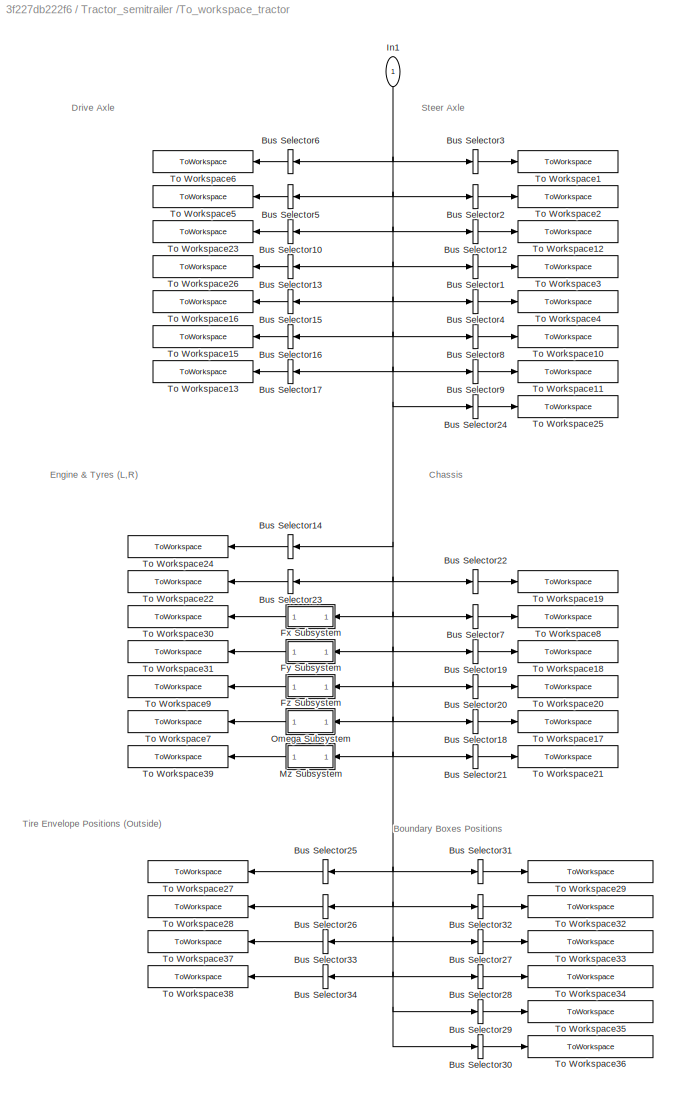
BLOCK [SubSystem] Tractor_semitrailer /To_workspace_tractor
BLOCK [BusSelector] Tractor_semitrailer /To_workspace_tractor/Bus Selector1
  OutputAsBus = on
  OutputSignals = steeraxle.Delta 1_L
BLOCK [BusSelector] Tractor_semitrailer /To_workspace_tractor/Bus Selector10
  NameLocation = top
  OutputAsBus = on
  OutputSignals = driveaxle.roll
BLOCK [BusSelector] Tractor_semitrailer /To_workspace_tractor/Bus Selector12
  Commented = on
  OutputAsBus = on
  OutputSignals = steeraxle.Dummyaxle_pos
BLOCK [BusSelector] Tractor_semitrailer /To_workspace_tractor/Bus Selector13
  Commented = on
  NameLocation = top
  OutputAsBus = on
  OutputSignals = driveaxle.G2_Driveaxle_pos_dummy
BLOCK [BusSelector] Tractor_semitrailer /To_workspace_tractor/Bus Selector14
  OutputAsBus = on
  OutputSignals = driveline.omega
BLOCK [BusSelector] Tractor_semitrailer /To_workspace_tractor/Bus Selector15
  NameLocation = top
  OutputAsBus = on
  OutputSignals = driveaxle.pos
BLOCK [BusSelector] Tractor_semitrailer /To_workspace_tractor/Bus Selector16
  NameLocation = top
  OutputAsBus = on
  OutputSignals = driveaxle.Omega1
BLOCK [BusSelector] Tractor_semitrailer /To_workspace_tractor/Bus Selector17
  NameLocation = top
  OutputAsBus = on
  OutputSignals = driveaxle.Omega2
BLOCK [BusSelector] Tractor_semitrailer /To_workspace_tractor/Bus Selector18
  OutputAsBus = on
  OutputSignals = chassis.Vx
BLOCK [BusSelector] Tractor_semitrailer /To_workspace_tractor/Bus Selector19
  OutputAsBus = on
  OutputSignals = chassis.yawvel
BLOCK [BusSelector] Tractor_semitrailer /To_workspace_tractor/Bus Selector2
  OutputAsBus = on
  OutputSignals = steeraxle.pos
BLOCK [BusSelector] Tractor_semitrailer /To_workspace_tractor/Bus Selector20
  Commented = on
  OutputAsBus = on
  OutputSignals = chassis.pos_chassis frt
BLOCK [BusSelector] Tractor_semitrailer /To_workspace_tractor/Bus Selector21
  OutputAsBus = on
  OutputSignals = chassis.Yaw
BLOCK [BusSelector] Tractor_semitrailer /To_workspace_tractor/Bus Selector22
  OutputAsBus = on
  OutputSignals = chassis.centre_acc
BLOCK [BusSelector] Tractor_semitrailer /To_workspace_tractor/Bus Selector23
  OutputAsBus = on
  OutputSignals = driveline.throttle
BLOCK [BusSelector] Tractor_semitrailer /To_workspace_tractor/Bus Selector24
  OutputAsBus = on
  OutputSignals = steeraxle.roll
BLOCK [BusSelector] Tractor_semitrailer /To_workspace_tractor/Bus Selector25
  NameLocation = top
  OutputAsBus = on
  OutputSignals = steeraxle.T_L_pos.x,steeraxle.T_L_pos.y,steeraxle.T_L_pos.z
BLOCK [BusSelector] Tractor_semitrailer /To_workspace_tractor/Bus Selector26
  NameLocation = top
  OutputAsBus = on
  OutputSignals = steeraxle.T_R_pos.x,steeraxle.T_R_pos.y,steeraxle.T_R_pos.z
BLOCK [BusSelector] Tractor_semitrailer /To_workspace_tractor/Bus Selector27
  OutputAsBus = on
  OutputSignals = chassis.Boundary.pos_FR
BLOCK [BusSelector] Tractor_semitrailer /To_workspace_tractor/Bus Selector28
  OutputAsBus = on
  OutputSignals = chassis.Boundary.pos_FL
BLOCK [BusSelector] Tractor_semitrailer /To_workspace_tractor/Bus Selector29
  OutputAsBus = on
  OutputSignals = chassis.Boundary.pos_RR
BLOCK [BusSelector] Tractor_semitrailer /To_workspace_tractor/Bus Selector3
  OutputAsBus = on
  OutputSignals = steeraxle.acc
BLOCK [BusSelector] Tractor_semitrailer /To_workspace_tractor/Bus Selector30
  OutputAsBus = on
  OutputSignals = chassis.Boundary.pos_RL
BLOCK [BusSelector] Tractor_semitrailer /To_workspace_tractor/Bus Selector31
  OutputAsBus = on
  OutputSignals = chassis.Boundary.pos_CR
BLOCK [BusSelector] Tractor_semitrailer /To_workspace_tractor/Bus Selector32
  OutputAsBus = on
  OutputSignals = chassis.Boundary.pos_CL
BLOCK [BusSelector] Tractor_semitrailer /To_workspace_tractor/Bus Selector33
  NameLocation = top
  OutputAsBus = on
  OutputSignals = driveaxle.T_L1_pos
BLOCK [BusSelector] Tractor_semitrailer /To_workspace_tractor/Bus Selector34
  NameLocation = top
  OutputAsBus = on
  OutputSignals = driveaxle.T_R1_pos
BLOCK [BusSelector] Tractor_semitrailer /To_workspace_tractor/Bus Selector4
  OutputAsBus = on
  OutputSignals = steeraxle.Delta 2_R
BLOCK [BusSelector] Tractor_semitrailer /To_workspace_tractor/Bus Selector5
  NameLocation = top
  OutputAsBus = on
  OutputSignals = driveaxle.acc
BLOCK [BusSelector] Tractor_semitrailer /To_workspace_tractor/Bus Selector6
  NameLocation = top
  OutputAsBus = on
  OutputSignals = chassis.yawvel
BLOCK [BusSelector] Tractor_semitrailer /To_workspace_tractor/Bus Selector7
  OutputAsBus = on
  OutputSignals = chassis.torsion
BLOCK [BusSelector] Tractor_semitrailer /To_workspace_tractor/Bus Selector8
  OutputAsBus = on
  OutputSignals = steeraxle.Omega1
BLOCK [BusSelector] Tractor_semitrailer /To_workspace_tractor/Bus Selector9
  OutputAsBus = on
  OutputSignals = steeraxle.Omega2
BLOCK [SubSystem] Tractor_semitrailer /To_workspace_tractor/Fx Subsystem
BLOCK [BusSelector] Tractor_semitrailer /To_workspace_tractor/Fx Subsystem/Bus Selector24
  NameLocation = top
  OutputSignals = steeraxle.Tire1_L.Longitudinal: Fx,steeraxle.Tire1_R.Longitudinal: Fx,driveaxle.Tire1_L.Longitudinal: Fx,driveaxle.Tire1_R.Longitudinal: Fx,driveaxle.Tire2_L.Longitudinal: Fx,driveaxle.Tire2_R.Longitudinal: Fx
BLOCK [Inport] Tractor_semitrailer /To_workspace_tractor/Fx Subsystem/In
BLOCK [Mux] Tractor_semitrailer /To_workspace_tractor/Fx Subsystem/Mux
  DisplayOption = bar
  Inputs = 6
  NameLocation = top
BLOCK [Outport] Tractor_semitrailer /To_workspace_tractor/Fx Subsystem/Out
BLOCK [SubSystem] Tractor_semitrailer /To_workspace_tractor/Fy Subsystem
BLOCK [BusSelector] Tractor_semitrailer /To_workspace_tractor/Fy Subsystem/Bus Selector24
  OutputSignals = steeraxle.Tire1_L.Lateral: Fy,steeraxle.Tire1_R.Lateral: Fy,driveaxle.Tire1_L.Lateral: Fy,driveaxle.Tire1_R.Lateral: Fy,driveaxle.Tire2_L.Lateral: Fy,driveaxle.Tire2_R.Lateral: Fy
BLOCK [Inport] Tractor_semitrailer /To_workspace_tractor/Fy Subsystem/In1
BLOCK [Mux] Tractor_semitrailer /To_workspace_tractor/Fy Subsystem/Mux
  DisplayOption = bar
  Inputs = 6
BLOCK [Outport] Tractor_semitrailer /To_workspace_tractor/Fy Subsystem/Out1
BLOCK [SubSystem] Tractor_semitrailer /To_workspace_tractor/Fz Subsystem
BLOCK [BusSelector] Tractor_semitrailer /To_workspace_tractor/Fz Subsystem/Bus Selector24
  OutputSignals = steeraxle.Tire1_L.Normal: Fz,steeraxle.Tire1_R.Normal: Fz,driveaxle.Tire1_L.Normal: Fz,driveaxle.Tire1_R.Normal: Fz,driveaxle.Tire2_L.Normal: Fz,driveaxle.Tire2_R.Normal: Fz
BLOCK [Inport] Tractor_semitrailer /To_workspace_tractor/Fz Subsystem/In1
BLOCK [Mux] Tractor_semitrailer /To_workspace_tractor/Fz Subsystem/Mux
  DisplayOption = bar
  Inputs = 6
BLOCK [Outport] Tractor_semitrailer /To_workspace_tractor/Fz Subsystem/Out1
BLOCK [Inport] Tractor_semitrailer /To_workspace_tractor/In1
  NameLocation = left
BLOCK [SubSystem] Tractor_semitrailer /To_workspace_tractor/Mz Subsystem
BLOCK [BusSelector] Tractor_semitrailer /To_workspace_tractor/Mz Subsystem/Bus Selector24
  OutputSignals = steeraxle.Tire1_L.Aligning: Mz,steeraxle.Tire1_R.Aligning: Mz,driveaxle.Tire1_L.Aligning: Mz,driveaxle.Tire1_R.Aligning: Mz,driveaxle.Tire2_L.Aligning: Mz,driveaxle.Tire2_R.Aligning: Mz
BLOCK [Inport] Tractor_semitrailer /To_workspace_tractor/Mz Subsystem/In1
  NameLocation = top
BLOCK [Mux] Tractor_semitrailer /To_workspace_tractor/Mz Subsystem/Mux
  DisplayOption = bar
  Inputs = 6
BLOCK [Outport] Tractor_semitrailer /To_workspace_tractor/Mz Subsystem/Out1
BLOCK [SubSystem] Tractor_semitrailer /To_workspace_tractor/Omega Subsystem
BLOCK [BusSelector] Tractor_semitrailer /To_workspace_tractor/Omega Subsystem/Bus Selector6
  OutputSignals = steeraxle.Omega1,steeraxle.Omega2,driveaxle.Omega1,driveaxle.Omega2
BLOCK [Inport] Tractor_semitrailer /To_workspace_tractor/Omega Subsystem/In1
  NameLocation = top
BLOCK [Mux] Tractor_semitrailer /To_workspace_tractor/Omega Subsystem/Mux
  DisplayOption = bar
BLOCK [Outport] Tractor_semitrailer /To_workspace_tractor/Omega Subsystem/Out1
BLOCK [ToWorkspace] Tractor_semitrailer /To_workspace_tractor/To Workspace1
  MaxDataPoints = inf
  SampleTime = sp_t
  VariableName = p_steeraxle_acc
BLOCK [ToWorkspace] Tractor_semitrailer /To_workspace_tractor/To Workspace10
  MaxDataPoints = inf
  SampleTime = sp_t
  VariableName = p_steeraxle_omg1
BLOCK [ToWorkspace] Tractor_semitrailer /To_workspace_tractor/To Workspace11
  MaxDataPoints = inf
  SampleTime = sp_t
  VariableName = p_steeraxle_omg2
BLOCK [ToWorkspace] Tractor_semitrailer /To_workspace_tractor/To Workspace12
  Commented = on
  MaxDataPoints = inf
  SampleTime = -1
  VariableName = p_steeraxle_pos_dummy
BLOCK [ToWorkspace] Tractor_semitrailer /To_workspace_tractor/To Workspace13
  MaxDataPoints = inf
  SampleTime = sp_t
  VariableName = p_driveaxle_omg2
BLOCK [ToWorkspace] Tractor_semitrailer /To_workspace_tractor/To Workspace15
  MaxDataPoints = inf
  NameLocation = top
  SampleTime = sp_t
  VariableName = p_driveaxle_omg1
BLOCK [ToWorkspace] Tractor_semitrailer /To_workspace_tractor/To Workspace16
  MaxDataPoints = inf
  NameLocation = top
  SampleTime = sp_t
  VariableName = p_driveaxle_pos
BLOCK [ToWorkspace] Tractor_semitrailer /To_workspace_tractor/To Workspace17
  MaxDataPoints = inf
  SampleTime = sp_t
  VariableName = p_Vx_actual
BLOCK [ToWorkspace] Tractor_semitrailer /To_workspace_tractor/To Workspace18
  MaxDataPoints = inf
  SampleTime = sp_t
  VariableName = p_chassis_yawvel
BLOCK [ToWorkspace] Tractor_semitrailer /To_workspace_tractor/To Workspace19
  MaxDataPoints = inf
  SampleTime = sp_t
  VariableName = p_chassis_acc_rear
BLOCK [ToWorkspace] Tractor_semitrailer /To_workspace_tractor/To Workspace2
  MaxDataPoints = inf
  SampleTime = sp_t
  VariableName = p_steeraxle_pos
BLOCK [ToWorkspace] Tractor_semitrailer /To_workspace_tractor/To Workspace20
  Commented = on
  MaxDataPoints = inf
  SampleTime = -1
  VariableName = p_chassis_pos_front
BLOCK [ToWorkspace] Tractor_semitrailer /To_workspace_tractor/To Workspace21
  MaxDataPoints = inf
  SampleTime = sp_t
  VariableName = p_chassis_yaw
BLOCK [ToWorkspace] Tractor_semitrailer /To_workspace_tractor/To Workspace22
  MaxDataPoints = inf
  SampleTime = sp_t
  VariableName = p_engine_throttle
BLOCK [ToWorkspace] Tractor_semitrailer /To_workspace_tractor/To Workspace23
  MaxDataPoints = inf
  NameLocation = top
  SampleTime = sp_t
  VariableName = p_driveaxle_roll
BLOCK [ToWorkspace] Tractor_semitrailer /To_workspace_tractor/To Workspace24
  MaxDataPoints = inf
  SampleTime = sp_t
  VariableName = p_engine_omega
BLOCK [ToWorkspace] Tractor_semitrailer /To_workspace_tractor/To Workspace25
  MaxDataPoints = inf
  SampleTime = sp_t
  VariableName = p_steeraxle_roll
BLOCK [ToWorkspace] Tractor_semitrailer /To_workspace_tractor/To Workspace26
  Commented = on
  MaxDataPoints = inf
  NameLocation = top
  SampleTime = -1
  VariableName = p_driveaxle_pos_dummy
BLOCK [ToWorkspace] Tractor_semitrailer /To_workspace_tractor/To Workspace27
  MaxDataPoints = inf
  SampleTime = sp_t
  VariableName = p_tyre_steeraxle_pos_L
BLOCK [ToWorkspace] Tractor_semitrailer /To_workspace_tractor/To Workspace28
  MaxDataPoints = inf
  SampleTime = sp_t
  VariableName = p_tyre_steeraxle_pos_R
BLOCK [ToWorkspace] Tractor_semitrailer /To_workspace_tractor/To Workspace29
  MaxDataPoints = inf
  SampleTime = sp_t
  VariableName = p_chassis_center_R
BLOCK [ToWorkspace] Tractor_semitrailer /To_workspace_tractor/To Workspace3
  MaxDataPoints = inf
  SampleTime = sp_t
  VariableName = p_steeraxle_del1
BLOCK [ToWorkspace] Tractor_semitrailer /To_workspace_tractor/To Workspace30
  MaxDataPoints = inf
  SampleTime = sp_t
  VariableName = p_tyre_tractor_Fx
BLOCK [ToWorkspace] Tractor_semitrailer /To_workspace_tractor/To Workspace31
  MaxDataPoints = inf
  SampleTime = sp_t
  VariableName = p_tyre_tractor_Fy
BLOCK [ToWorkspace] Tractor_semitrailer /To_workspace_tractor/To Workspace32
  MaxDataPoints = inf
  SampleTime = sp_t
  VariableName = p_chassis_center_L
BLOCK [ToWorkspace] Tractor_semitrailer /To_workspace_tractor/To Workspace33
  MaxDataPoints = inf
  SampleTime = sp_t
  VariableName = p_chassis_front_R
BLOCK [ToWorkspace] Tractor_semitrailer /To_workspace_tractor/To Workspace34
  MaxDataPoints = inf
  SampleTime = sp_t
  VariableName = p_chassis_front_L
BLOCK [ToWorkspace] Tractor_semitrailer /To_workspace_tractor/To Workspace35
  MaxDataPoints = inf
  SampleTime = sp_t
  VariableName = p_chassis_rear_R
BLOCK [ToWorkspace] Tractor_semitrailer /To_workspace_tractor/To Workspace36
  MaxDataPoints = inf
  SampleTime = sp_t
  VariableName = p_chassis_rear_L
BLOCK [ToWorkspace] Tractor_semitrailer /To_workspace_tractor/To Workspace37
  MaxDataPoints = inf
  SampleTime = sp_t
  VariableName = p_tyre_driveaxle_pos_L
BLOCK [ToWorkspace] Tractor_semitrailer /To_workspace_tractor/To Workspace38
  MaxDataPoints = inf
  SampleTime = sp_t
  VariableName = p_tyre_driveaxle_pos_R
BLOCK [ToWorkspace] Tractor_semitrailer /To_workspace_tractor/To Workspace39
  MaxDataPoints = inf
  SampleTime = sp_t
  VariableName = p_tyre_tractor_Mz
BLOCK [ToWorkspace] Tractor_semitrailer /To_workspace_tractor/To Workspace4
  MaxDataPoints = inf
  SampleTime = sp_t
  VariableName = p_steeraxle_del2
BLOCK [ToWorkspace] Tractor_semitrailer /To_workspace_tractor/To Workspace5
  MaxDataPoints = inf
  NameLocation = top
  SampleTime = sp_t
  VariableName = p_driveaxle_acc
BLOCK [ToWorkspace] Tractor_semitrailer /To_workspace_tractor/To Workspace6
  MaxDataPoints = inf
  NameLocation = top
  SampleTime = sp_t
  VariableName = p_driveaxle_yawvel
BLOCK [ToWorkspace] Tractor_semitrailer /To_workspace_tractor/To Workspace7
  MaxDataPoints = inf
  SampleTime = sp_t
  VariableName = p_tyre_tractor_omega
BLOCK [ToWorkspace] Tractor_semitrailer /To_workspace_tractor/To Workspace8
  MaxDataPoints = inf
  SampleTime = sp_t
  VariableName = p_chassis_torsion
BLOCK [ToWorkspace] Tractor_semitrailer /To_workspace_tractor/To Workspace9
  MaxDataPoints = inf
  SampleTime = sp_t
  VariableName = p_tyre_tractor_Fz
BLOCK [SubSystem] Tractor_semitrailer /Tractor
  LibrarySourceBlock = CommercialVehicleLibrary2G/Vehicles/Tractor
BLOCK [PMIOPort] Tractor_semitrailer /Tractor/5th Wheel
  Side = Right
  Tag = PMCPort
BLOCK [SubSystem] Tractor_semitrailer /Tractor/Boundary Subsystem
  PortSchema = {"entries":[{"content":{"sides":[{"content":{},"type":"ConnectorPlacement.EquallySpacedRectSide","uuid":"f1bb1dfb-047a-4b1c-a7c6-7f55b7705282"},{"content":{"connectorIds":["RConn1","RConn2","RConn3"],"side":"RIGHT"},"type":"ConnectorPlacement.EquallySpacedRectSide","uuid":"a084a135-f208-49ed-a05d-7dd1e6403e76"},{"content":{"connectorIds":["Out1"],"side":"TOP"},"type":"ConnectorPlacement.EquallySpa...<+370ch>
BLOCK [BusCreator] Tractor_semitrailer /Tractor/Boundary Subsystem/Bus Creator1
  DisplayOption = bar
  InheritFromInputs = on
  Inputs = 6
BLOCK [PMIOPort] Tractor_semitrailer /Tractor/Boundary Subsystem/Center
  Side = Right
BLOCK [From] Tractor_semitrailer /Tractor/Boundary Subsystem/From
  GotoTag = pos_CR
BLOCK [From] Tractor_semitrailer /Tractor/Boundary Subsystem/From1
  GotoTag = pos_CL
BLOCK [From] Tractor_semitrailer /Tractor/Boundary Subsystem/From2
  GotoTag = pos_FR
BLOCK [From] Tractor_semitrailer /Tractor/Boundary Subsystem/From3
  GotoTag = pos_FL
BLOCK [From] Tractor_semitrailer /Tractor/Boundary Subsystem/From4
  GotoTag = pos_RR
BLOCK [From] Tractor_semitrailer /Tractor/Boundary Subsystem/From5
  GotoTag = pos_RL
BLOCK [PMIOPort] Tractor_semitrailer /Tractor/Boundary Subsystem/Front
  Port = 2
  Side = Right
BLOCK [Goto] Tractor_semitrailer /Tractor/Boundary Subsystem/Goto1
  GotoTag = pos_RL
BLOCK [Goto] Tractor_semitrailer /Tractor/Boundary Subsystem/Goto3
  GotoTag = pos_RR
BLOCK [Goto] Tractor_semitrailer /Tractor/Boundary Subsystem/Goto4
  GotoTag = pos_CR
BLOCK [Goto] Tractor_semitrailer /Tractor/Boundary Subsystem/Goto5
  GotoTag = pos_CL
BLOCK [Goto] Tractor_semitrailer /Tractor/Boundary Subsystem/Goto6
  GotoTag = pos_FR
BLOCK [Goto] Tractor_semitrailer /Tractor/Boundary Subsystem/Goto7
  GotoTag = pos_FL
BLOCK [Mux] Tractor_semitrailer /Tractor/Boundary Subsystem/Mux1
  DisplayOption = bar
  Inputs = 2
BLOCK [Mux] Tractor_semitrailer /Tractor/Boundary Subsystem/Mux2
  DisplayOption = bar
  Inputs = 2
BLOCK [Mux] Tractor_semitrailer /Tractor/Boundary Subsystem/Mux3
  DisplayOption = bar
  Inputs = 2
BLOCK [Mux] Tractor_semitrailer /Tractor/Boundary Subsystem/Mux4
  DisplayOption = bar
  Inputs = 2
BLOCK [Mux] Tractor_semitrailer /Tractor/Boundary Subsystem/Mux5
  DisplayOption = bar
  Inputs = 2
BLOCK [Mux] Tractor_semitrailer /Tractor/Boundary Subsystem/Mux6
  DisplayOption = bar
  Inputs = 2
BLOCK [Reference] Tractor_semitrailer /Tractor/Boundary Subsystem/PS-Simulink Converter1  REF=nesl_utility/PS-Simulink
Converter
  SourceBlock = nesl_utility/PS-Simulink\nConverter
  SourceType = PS-Simulink\nConverter
BLOCK [Reference] Tractor_semitrailer /Tractor/Boundary Subsystem/PS-Simulink Converter10  REF=nesl_utility/PS-Simulink
Converter
  SourceBlock = nesl_utility/PS-Simulink\nConverter
  SourceType = PS-Simulink\nConverter
BLOCK [Reference] Tractor_semitrailer /Tractor/Boundary Subsystem/PS-Simulink Converter11  REF=nesl_utility/PS-Simulink
Converter
  SourceBlock = nesl_utility/PS-Simulink\nConverter
  SourceType = PS-Simulink\nConverter
BLOCK [Reference] Tractor_semitrailer /Tractor/Boundary Subsystem/PS-Simulink Converter12  REF=nesl_utility/PS-Simulink
Converter
  SourceBlock = nesl_utility/PS-Simulink\nConverter
  SourceType = PS-Simulink\nConverter
BLOCK [Reference] Tractor_semitrailer /Tractor/Boundary Subsystem/PS-Simulink Converter13  REF=nesl_utility/PS-Simulink
Converter
  SourceBlock = nesl_utility/PS-Simulink\nConverter
  SourceType = PS-Simulink\nConverter
BLOCK [Reference] Tractor_semitrailer /Tractor/Boundary Subsystem/PS-Simulink Converter14  REF=nesl_utility/PS-Simulink
Converter
  SourceBlock = nesl_utility/PS-Simulink\nConverter
  SourceType = PS-Simulink\nConverter
BLOCK [Reference] Tractor_semitrailer /Tractor/Boundary Subsystem/PS-Simulink Converter15  REF=nesl_utility/PS-Simulink
Converter
  SourceBlock = nesl_utility/PS-Simulink\nConverter
  SourceType = PS-Simulink\nConverter
BLOCK [Reference] Tractor_semitrailer /Tractor/Boundary Subsystem/PS-Simulink Converter16  REF=nesl_utility/PS-Simulink
Converter
  SourceBlock = nesl_utility/PS-Simulink\nConverter
  SourceType = PS-Simulink\nConverter
BLOCK [Reference] Tractor_semitrailer /Tractor/Boundary Subsystem/PS-Simulink Converter2  REF=nesl_utility/PS-Simulink
Converter
  SourceBlock = nesl_utility/PS-Simulink\nConverter
  SourceType = PS-Simulink\nConverter
BLOCK [Reference] Tractor_semitrailer /Tractor/Boundary Subsystem/PS-Simulink Converter3  REF=nesl_utility/PS-Simulink
Converter
  SourceBlock = nesl_utility/PS-Simulink\nConverter
  SourceType = PS-Simulink\nConverter
BLOCK [Reference] Tractor_semitrailer /Tractor/Boundary Subsystem/PS-Simulink Converter4  REF=nesl_utility/PS-Simulink
Converter
  SourceBlock = nesl_utility/PS-Simulink\nConverter
  SourceType = PS-Simulink\nConverter
BLOCK [Reference] Tractor_semitrailer /Tractor/Boundary Subsystem/PS-Simulink Converter9  REF=nesl_utility/PS-Simulink
Converter
  SourceBlock = nesl_utility/PS-Simulink\nConverter
  SourceType = PS-Simulink\nConverter
BLOCK [PMIOPort] Tractor_semitrailer /Tractor/Boundary Subsystem/Rear
  Port = 3
  Side = Right
BLOCK [Reference] Tractor_semitrailer /Tractor/Boundary Subsystem/Transform Sensor1  REF=sm_lib/Frames and
Transforms/Transform
Sensor
  NameLocation = right
  SourceBlock = sm_lib/Frames and\nTransforms/Transform\nSensor
  SourceType = Transform\nSensor
BLOCK [Reference] Tractor_semitrailer /Tractor/Boundary Subsystem/Transform Sensor2  REF=sm_lib/Frames and
Transforms/Transform
Sensor
  NameLocation = right
  SourceBlock = sm_lib/Frames and\nTransforms/Transform\nSensor
  SourceType = Transform\nSensor
BLOCK [Reference] Tractor_semitrailer /Tractor/Boundary Subsystem/Transform Sensor3  REF=sm_lib/Frames and
Transforms/Transform
Sensor
  NameLocation = right
  SourceBlock = sm_lib/Frames and\nTransforms/Transform\nSensor
  SourceType = Transform\nSensor
BLOCK [Reference] Tractor_semitrailer /Tractor/Boundary Subsystem/Transform Sensor4  REF=sm_lib/Frames and
Transforms/Transform
Sensor
  NameLocation = right
  SourceBlock = sm_lib/Frames and\nTransforms/Transform\nSensor
  SourceType = Transform\nSensor
BLOCK [Reference] Tractor_semitrailer /Tractor/Boundary Subsystem/Transform Sensor5  REF=sm_lib/Frames and
Transforms/Transform
Sensor
  NameLocation = left
  SourceBlock = sm_lib/Frames and\nTransforms/Transform\nSensor
  SourceType = Transform\nSensor
BLOCK [Reference] Tractor_semitrailer /Tractor/Boundary Subsystem/Transform Sensor6  REF=sm_lib/Frames and
Transforms/Transform
Sensor
  NameLocation = left
  SourceBlock = sm_lib/Frames and\nTransforms/Transform\nSensor
  SourceType = Transform\nSensor
BLOCK [Reference] Tractor_semitrailer /Tractor/Boundary Subsystem/World Frame1  REF=sm_lib/Frames and
Transforms/World Frame
  SourceBlock = sm_lib/Frames and\nTransforms/World Frame
  SourceType = World Frame
BLOCK [Reference] Tractor_semitrailer /Tractor/Boundary Subsystem/World Frame3  REF=sm_lib/Frames and
Transforms/World Frame
  SourceBlock = sm_lib/Frames and\nTransforms/World Frame
  SourceType = World Frame
BLOCK [Reference] Tractor_semitrailer /Tractor/Boundary Subsystem/pos_CL  REF=sm_lib/Frames and
Transforms/Rigid
Transform
  SourceBlock = sm_lib/Frames and\nTransforms/Rigid\nTransform
  SourceType = Rigid\nTransform
BLOCK [Reference] Tractor_semitrailer /Tractor/Boundary Subsystem/pos_CR  REF=sm_lib/Frames and
Transforms/Rigid
Transform
  SourceBlock = sm_lib/Frames and\nTransforms/Rigid\nTransform
  SourceType = Rigid\nTransform
BLOCK [Reference] Tractor_semitrailer /Tractor/Boundary Subsystem/pos_FL  REF=sm_lib/Frames and
Transforms/Rigid
Transform
  SourceBlock = sm_lib/Frames and\nTransforms/Rigid\nTransform
  SourceType = Rigid\nTransform
BLOCK [Reference] Tractor_semitrailer /Tractor/Boundary Subsystem/pos_FR  REF=sm_lib/Frames and
Transforms/Rigid
Transform
  SourceBlock = sm_lib/Frames and\nTransforms/Rigid\nTransform
  SourceType = Rigid\nTransform
BLOCK [Reference] Tractor_semitrailer /Tractor/Boundary Subsystem/pos_RL  REF=sm_lib/Frames and
Transforms/Rigid
Transform
  SourceBlock = sm_lib/Frames and\nTransforms/Rigid\nTransform
  SourceType = Rigid\nTransform
BLOCK [Reference] Tractor_semitrailer /Tractor/Boundary Subsystem/pos_RR  REF=sm_lib/Frames and
Transforms/Rigid
Transform
  SourceBlock = sm_lib/Frames and\nTransforms/Rigid\nTransform
  SourceType = Rigid\nTransform
BLOCK [Outport] Tractor_semitrailer /Tractor/Boundary Subsystem/signals
BLOCK [Inport] Tractor_semitrailer /Tractor/Brake
  Port = 3
BLOCK [SubSystem] Tractor_semitrailer /Tractor/Braking system
  AncestorBlock = CommercialVehicleLibrary2G/Components/Braking system
BLOCK [Abs] Tractor_semitrailer /Tractor/Braking system/Abs
  SaturateOnIntegerOverflow = off
  ZeroCross = off
BLOCK [Sum] Tractor_semitrailer /Tractor/Braking system/Add
  IconShape = rectangular
BLOCK [Sum] Tractor_semitrailer /Tractor/Braking system/Add1
  IconShape = rectangular
  Inputs = +++
BLOCK [Sum] Tractor_semitrailer /Tractor/Braking system/Add2
  IconShape = rectangular
  Inputs = +++
BLOCK [BusSelector] Tractor_semitrailer /Tractor/Braking system/Bus Selector
  OutputSignals = DriveTrqR,DriveTrqL
BLOCK [Inport] Tractor_semitrailer /Tractor/Braking system/DriveTrqs_etrailer
  Port = 2
BLOCK [InitialCondition] Tractor_semitrailer /Tractor/Braking system/IC
  Value = 0
BLOCK [SubSystem] Tractor_semitrailer /Tractor/Braking system/MATLAB Function
  ErrorFcn = Stateflow.Translate.translate
  LibrarySourceBlock = simulink/User-Defined\nFunctions/MATLAB Function
  PermitHierarchicalResolution = ExplicitOnly
  SFBlockType = MATLAB Function
  TreatAsAtomicUnit = on
BLOCK [Demux] Tractor_semitrailer /Tractor/Braking system/MATLAB Function/ Demux 
  Outputs = 1
BLOCK [S-Function] Tractor_semitrailer /Tractor/Braking system/MATLAB Function/ SFunction 
  EnableBusSupport = on
  FunctionName = sf_sfun
  PortCounts = [2 5]
  SFcnIsStateOwnerBlock = off
  SFunctionDeploymentMode = off
  Tag = Stateflow S-Function 2
BLOCK [Terminator] Tractor_semitrailer /Tractor/Braking system/MATLAB Function/ Terminator 
BLOCK [Outport] Tractor_semitrailer /Tractor/Braking system/MATLAB Function/Mb_front
BLOCK [Outport] Tractor_semitrailer /Tractor/Braking system/MATLAB Function/Mb_rear
  Port = 2
BLOCK [Outport] Tractor_semitrailer /Tractor/Braking system/MATLAB Function/Mb_trailer
  Port = 3
BLOCK [Inport] Tractor_semitrailer /Tractor/Braking system/MATLAB Function/Sum_brake_tractor
BLOCK [Outport] Tractor_semitrailer /Tractor/Braking system/MATLAB Function/flag
  Port = 4
BLOCK [Inport] Tractor_semitrailer /Tractor/Braking system/MATLAB Function/sum_brake_etrailer
  Port = 2
BLOCK [Outport] Tractor_semitrailer /Tractor/Braking system/Mb_front
  Port = 2
  VectorParamsAs1DForOutWhenUnconnected = off
BLOCK [Outport] Tractor_semitrailer /Tractor/Braking system/Mb_rear
  VectorParamsAs1DForOutWhenUnconnected = off
BLOCK [Outport] Tractor_semitrailer /Tractor/Braking system/Mb_trailer
  Port = 3
  VectorParamsAs1DForOutWhenUnconnected = off
BLOCK [Mux] Tractor_semitrailer /Tractor/Braking system/Mux
  DisplayOption = bar
  Inputs = 2
BLOCK [Mux] Tractor_semitrailer /Tractor/Braking system/Mux1
  DisplayOption = bar
  Inputs = 2
BLOCK [Mux] Tractor_semitrailer /Tractor/Braking system/Mux2
  DisplayOption = bar
  Inputs = 2
BLOCK [Mux] Tractor_semitrailer /Tractor/Braking system/Mux3
  DisplayOption = bar
  Inputs = 2
BLOCK [Mux] Tractor_semitrailer /Tractor/Braking system/Mux4
  DisplayOption = bar
  Inputs = 2
BLOCK [Mux] Tractor_semitrailer /Tractor/Braking system/Mux6
  DisplayOption = bar
  Inputs = 2
BLOCK [Mux] Tractor_semitrailer /Tractor/Braking system/Mux7
  DisplayOption = bar
  Inputs = 2
BLOCK [Saturate] Tractor_semitrailer /Tractor/Braking system/Saturation
  LowerLimit = 0
  UpperLimit = 1
BLOCK [Saturate] Tractor_semitrailer /Tractor/Braking system/Saturation1
  LowerLimit = -inf
  UpperLimit = 0
  ZeroCross = off
BLOCK [Scope] Tractor_semitrailer /Tractor/Braking system/Scope
  Floating = off
  NumInputPorts = 2
  ScopeSpecificationString = Simulink.scopes.TimeScopeBlockCfg('CurrentConfiguration', extmgr.ConfigurationSet(extmgr.Configuration('Core','General UI',true),extmgr.Configuration('Core','Source UI',true),extmgr.Configuration('Sources','WiredSimulink',true,'DataLoggingVariableName','ScopeData1'),extmgr.Configuration('Visuals','Time Domain',true,'SerializedDisplays',{struct('MinYLimReal','-1894.69129','MaxYLimReal','17052.22159...<+2055ch>
BLOCK [Scope] Tractor_semitrailer /Tractor/Braking system/Scope1
  Floating = off
  NumInputPorts = 1
  ScopeSpecificationString = Simulink.scopes.TimeScopeBlockCfg('CurrentConfiguration', extmgr.ConfigurationSet(extmgr.Configuration('Core','General UI',true),extmgr.Configuration('Core','Source UI',true),extmgr.Configuration('Sources','WiredSimulink',true,'DataLoggingVariableName','ScopeData2'),extmgr.Configuration('Visuals','Time Domain',true,'SerializedDisplays',{struct('MinYLimReal','-2486.87145','MaxYLimReal','22381.84304...<+1491ch>
BLOCK [Scope] Tractor_semitrailer /Tractor/Braking system/Scope2
  Floating = off
  NumInputPorts = 1
  ScopeSpecificationString = Simulink.scopes.TimeScopeBlockCfg('CurrentConfiguration', extmgr.ConfigurationSet(extmgr.Configuration('Core','General UI',true),extmgr.Configuration('Core','Source UI',true),extmgr.Configuration('Sources','WiredSimulink',true,'DataLoggingVariableName','ScopeData2'),extmgr.Configuration('Visuals','Time Domain',true,'SerializedDisplays',{struct('MinYLimReal','-397.54555','MaxYLimReal','3577.90998',...<+1436ch>
BLOCK [Terminator] Tractor_semitrailer /Tractor/Braking system/Terminator
BLOCK [Terminator] Tractor_semitrailer /Tractor/Braking system/Terminator1
BLOCK [Terminator] Tractor_semitrailer /Tractor/Braking system/Terminator2
BLOCK [Gain] Tractor_semitrailer /Tractor/Braking system/brake moment gain1
  Gain = 20000
  OutDataTypeStr = Inherit: Same as input
  ParamDataTypeStr = Inherit: Same as input
  SaturateOnIntegerOverflow = on
BLOCK [Gain] Tractor_semitrailer /Tractor/Braking system/brake moment gain2
  Gain = 28000
  OutDataTypeStr = Inherit: Same as input
  ParamDataTypeStr = Inherit: Same as input
  SaturateOnIntegerOverflow = on
BLOCK [Gain] Tractor_semitrailer /Tractor/Braking system/brake moment gain3
  Gain = 15000
  OutDataTypeStr = Inherit: Same as input
  ParamDataTypeStr = Inherit: Same as input
  SaturateOnIntegerOverflow = on
BLOCK [Inport] Tractor_semitrailer /Tractor/Braking system/input (0-1)
BLOCK [BusCreator] Tractor_semitrailer /Tractor/Bus Creator2
  DisplayOption = bar
  InheritFromInputs = on
  Inputs = 6
BLOCK [BusCreator] Tractor_semitrailer /Tractor/Bus Creator5
  DisplayOption = bar
  InheritFromInputs = on
  Inputs = 5
BLOCK [BusSelector] Tractor_semitrailer /Tractor/Bus Selector
  NameLocation = top
  OutputAsBus = on
  OutputSignals = Omega1,Omega2
BLOCK [SubSystem] Tractor_semitrailer /Tractor/Cabin
  ShowPortLabels = none
BLOCK [Reference] Tractor_semitrailer /Tractor/Cabin/Brick Solid  REF=sm_lib/Body Elements/Brick Solid
  NameLocation = left
  SourceBlock = sm_lib/Body Elements/Brick Solid
  SourceType = Brick Solid
BLOCK [PMIOPort] Tractor_semitrailer /Tractor/Cabin/Chassis
  NameLocation = right
  Side = Right
BLOCK [Reference] Tractor_semitrailer /Tractor/Cabin/Rigid Transform2  REF=sm_lib/Frames and
Transforms/Rigid
Transform
  NameLocation = right
  SourceBlock = sm_lib/Frames and\nTransforms/Rigid\nTransform
  SourceType = Rigid\nTransform
BLOCK [SubSystem] Tractor_semitrailer /Tractor/Cabin/Subsystem
  Commented = on
  NameLocation = right
BLOCK [PMIOPort] Tractor_semitrailer /Tractor/Cabin/Subsystem/Conn1
  Side = Left
BLOCK [Reference] Tractor_semitrailer /Tractor/Cabin/Subsystem/External Force and Torque  REF=sm_lib/Forces and
Torques/External Force
and Torque
  SourceBlock = sm_lib/Forces and\nTorques/External Force\nand Torque
  SourceType = External Force\nand Torque
BLOCK [Fcn] Tractor_semitrailer /Tractor/Cabin/Subsystem/Fcn
  Expr = -0.5*1.23*0.6*10.5*u(1)*abs(u(1))
BLOCK [Reference] Tractor_semitrailer /Tractor/Cabin/Subsystem/File Solid  REF=sm_lib/Body Elements/File Solid
  SourceBlock = sm_lib/Body Elements/File Solid
  SourceType = File Solid
BLOCK [Reference] Tractor_semitrailer /Tractor/Cabin/Subsystem/PS-Simulink Converter  REF=nesl_utility/PS-Simulink
Converter
  NameLocation = top
  SourceBlock = nesl_utility/PS-Simulink\nConverter
  SourceType = PS-Simulink\nConverter
BLOCK [Reference] Tractor_semitrailer /Tractor/Cabin/Subsystem/Rigid Transform  REF=sm_lib/Frames and
Transforms/Rigid
Transform
  NameLocation = top
  SourceBlock = sm_lib/Frames and\nTransforms/Rigid\nTransform
  SourceType = Rigid\nTransform
BLOCK [Reference] Tractor_semitrailer /Tractor/Cabin/Subsystem/Rigid Transform3  REF=sm_lib/Frames and
Transforms/Rigid
Transform
  NameLocation = top
  SourceBlock = sm_lib/Frames and\nTransforms/Rigid\nTransform
  SourceType = Rigid\nTransform
BLOCK [Reference] Tractor_semitrailer /Tractor/Cabin/Subsystem/Rigid Transform4  REF=sm_lib/Frames and
Transforms/Rigid
Transform
  NameLocation = top
  SourceBlock = sm_lib/Frames and\nTransforms/Rigid\nTransform
  SourceType = Rigid\nTransform
BLOCK [Reference] Tractor_semitrailer /Tractor/Cabin/Subsystem/Simulink-PS Converter  REF=nesl_utility/Simulink-PS
Converter
  SourceBlock = nesl_utility/Simulink-PS\nConverter
  SourceType = Simulink-PS\nConverter
BLOCK [Reference] Tractor_semitrailer /Tractor/Cabin/Subsystem/Transform Sensor  REF=sm_lib/Frames and
Transforms/Transform
Sensor
  SourceBlock = sm_lib/Frames and\nTransforms/Transform\nSensor
  SourceType = Transform\nSensor
BLOCK [Reference] Tractor_semitrailer /Tractor/Cabin/Subsystem/World Frame  REF=sm_lib/Frames and
Transforms/World Frame
  NameLocation = top
  SourceBlock = sm_lib/Frames and\nTransforms/World Frame
  SourceType = World Frame
BLOCK [SubSystem] Tractor_semitrailer /Tractor/Cameras
  NameLocation = top
BLOCK [PMIOPort] Tractor_semitrailer /Tractor/Cameras/ 
  Side = Left
BLOCK [Reference] Tractor_semitrailer /Tractor/Cameras/Front Camera Sphere  REF=sm_lib/Body Elements/Spherical Solid
  SourceBlock = sm_lib/Body Elements/Spherical Solid
  SourceType = Spherical Solid
BLOCK [Reference] Tractor_semitrailer /Tractor/Cameras/Front Camera Transform  REF=sm_lib/Frames and
Transforms/Rigid
Transform
  SourceBlock = sm_lib/Frames and\nTransforms/Rigid\nTransform
  SourceType = Rigid\nTransform
BLOCK [Reference] Tractor_semitrailer /Tractor/Cameras/Side Camera Sphere  REF=sm_lib/Body Elements/Spherical Solid
  SourceBlock = sm_lib/Body Elements/Spherical Solid
  SourceType = Spherical Solid
BLOCK [Reference] Tractor_semitrailer /Tractor/Cameras/Side Camera Transform  REF=sm_lib/Frames and
Transforms/Rigid
Transform
  SourceBlock = sm_lib/Frames and\nTransforms/Rigid\nTransform
  SourceType = Rigid\nTransform
BLOCK [Reference] Tractor_semitrailer /Tractor/Chassis_front  REF=sm_lib/Body Elements/Brick Solid
  SourceBlock = sm_lib/Body Elements/Brick Solid
  SourceType = Brick Solid
BLOCK [Reference] Tractor_semitrailer /Tractor/Chassis_rear  REF=sm_lib/Body Elements/Brick Solid
  SourceBlock = sm_lib/Body Elements/Brick Solid
  SourceType = Brick Solid
BLOCK [ConnectionLabel] Tractor_semitrailer /Tractor/Connection Label
  Label = Center
  NameLocation = right
BLOCK [ConnectionLabel] Tractor_semitrailer /Tractor/Connection Label1
  Label = Center
BLOCK [ConnectionLabel] Tractor_semitrailer /Tractor/Connection Label2
  Label = Front
  NameLocation = left
BLOCK [ConnectionLabel] Tractor_semitrailer /Tractor/Connection Label3
  Label = Front
BLOCK [ConnectionLabel] Tractor_semitrailer /Tractor/Connection Label4
  Label = Rear
  NameLocation = left
BLOCK [ConnectionLabel] Tractor_semitrailer /Tractor/Connection Label5
  Label = Rear
BLOCK [SubSystem] Tractor_semitrailer /Tractor/Drive axle
  LibrarySourceBlock = CommercialVehicleLibrary2G/Assemblies/Drive axle
BLOCK [Reference] Tractor_semitrailer /Tractor/Drive axle/ Align_roll joint  REF=sm_lib/Frames and
Transforms/Rigid
Transform
  NameLocation = left
  SourceBlock = sm_lib/Frames and\nTransforms/Rigid\nTransform
  SourceType = Rigid\nTransform
BLOCK [Reference] Tractor_semitrailer /Tractor/Drive axle/ Height roll center  REF=sm_lib/Frames and
Transforms/Rigid
Transform
  NameLocation = left
  SourceBlock = sm_lib/Frames and\nTransforms/Rigid\nTransform
  SourceType = Rigid\nTransform
BLOCK [Reference] Tractor_semitrailer /Tractor/Drive axle/ Pos_roll_joint  REF=sm_lib/Frames and
Transforms/Rigid
Transform
  NameLocation = left
  SourceBlock = sm_lib/Frames and\nTransforms/Rigid\nTransform
  SourceType = Rigid\nTransform
BLOCK [Reference] Tractor_semitrailer /Tractor/Drive axle/Align_Axle  REF=sm_lib/Frames and
Transforms/Rigid
Transform
  NameLocation = left
  SourceBlock = sm_lib/Frames and\nTransforms/Rigid\nTransform
  SourceType = Rigid\nTransform
BLOCK [SubSystem] Tractor_semitrailer /Tractor/Drive axle/Brake//Wheel_bearing
BLOCK [Lookup] Tractor_semitrailer /Tractor/Drive axle/Brake//Wheel_bearing/Look-Up Table
  InputValues = [-5:0.05:5]
  Table = -tanh(2*[-5:0.05:5])
BLOCK [Inport] Tractor_semitrailer /Tractor/Drive axle/Brake//Wheel_bearing/Mbrake
  Port = 2
BLOCK [Inport] Tractor_semitrailer /Tractor/Drive axle/Brake//Wheel_bearing/Mdrive
BLOCK [Product] Tractor_semitrailer /Tractor/Drive axle/Brake//Wheel_bearing/Product1
  InputSameDT = on
  NameLocation = right
  OutDataTypeStr = Inherit: Same as first input
  SaturateOnIntegerOverflow = on
BLOCK [SubSystem] Tractor_semitrailer /Tractor/Drive axle/Brake//Wheel_bearing/Rotational joint around y axis
BLOCK [PMIOPort] Tractor_semitrailer /Tractor/Drive axle/Brake//Wheel_bearing/Rotational joint around y axis/Axle
  Side = Left
BLOCK [Reference] Tractor_semitrailer /Tractor/Drive axle/Brake//Wheel_bearing/Rotational joint around y axis/PS-Simulink Converter  REF=nesl_utility/PS-Simulink
Converter
  SourceBlock = nesl_utility/PS-Simulink\nConverter
  SourceType = PS-Simulink\nConverter
BLOCK [Reference] Tractor_semitrailer /Tractor/Drive axle/Brake//Wheel_bearing/Rotational joint around y axis/Revolute Joint  REF=sm_lib/Joints/Revolute Joint
  SourceBlock = sm_lib/Joints/Revolute Joint
  SourceType = Revolute Joint
BLOCK [Reference] Tractor_semitrailer /Tractor/Drive axle/Brake//Wheel_bearing/Rotational joint around y axis/Rigid Transform  REF=sm_lib/Frames and
Transforms/Rigid
Transform
  SourceBlock = sm_lib/Frames and\nTransforms/Rigid\nTransform
  SourceType = Rigid\nTransform
BLOCK [Reference] Tractor_semitrailer /Tractor/Drive axle/Brake//Wheel_bearing/Rotational joint around y axis/Rigid Transform1  REF=sm_lib/Frames and
Transforms/Rigid
Transform
  SourceBlock = sm_lib/Frames and\nTransforms/Rigid\nTransform
  SourceType = Rigid\nTransform
BLOCK [Outport] Tractor_semitrailer /Tractor/Drive axle/Brake//Wheel_bearing/Rotational joint around y axis/Rotational speed
BLOCK [Reference] Tractor_semitrailer /Tractor/Drive axle/Brake//Wheel_bearing/Rotational joint around y axis/Simulink-PS Converter  REF=nesl_utility/Simulink-PS
Converter
  SourceBlock = nesl_utility/Simulink-PS\nConverter
  SourceType = Simulink-PS\nConverter
BLOCK [Inport] Tractor_semitrailer /Tractor/Drive axle/Brake//Wheel_bearing/Rotational joint around y axis/Torque
BLOCK [PMIOPort] Tractor_semitrailer /Tractor/Drive axle/Brake//Wheel_bearing/Rotational joint around y axis/Wheel
  Port = 2
  Side = Right
BLOCK [Sum] Tractor_semitrailer /Tractor/Drive axle/Brake//Wheel_bearing/Sum
  Inputs = ++|
  NameLocation = right
BLOCK [PMIOPort] Tractor_semitrailer /Tractor/Drive axle/Brake//Wheel_bearing/axle
  Side = Left
BLOCK [Outport] Tractor_semitrailer /Tractor/Drive axle/Brake//Wheel_bearing/omega
  VectorParamsAs1DForOutWhenUnconnected = off
BLOCK [PMIOPort] Tractor_semitrailer /Tractor/Drive axle/Brake//Wheel_bearing/wheel
  Port = 2
  Side = Right
BLOCK [SubSystem] Tractor_semitrailer /Tractor/Drive axle/Brake//Wheel_bearing1
BLOCK [Lookup] Tractor_semitrailer /Tractor/Drive axle/Brake//Wheel_bearing1/Look-Up Table
  InputValues = [-5:0.05:5]
  Table = -tanh(2*[-5:0.05:5])
BLOCK [Inport] Tractor_semitrailer /Tractor/Drive axle/Brake//Wheel_bearing1/Mbrake
  Port = 2
BLOCK [Inport] Tractor_semitrailer /Tractor/Drive axle/Brake//Wheel_bearing1/Mdrive
BLOCK [Product] Tractor_semitrailer /Tractor/Drive axle/Brake//Wheel_bearing1/Product1
  InputSameDT = on
  NameLocation = right
  OutDataTypeStr = Inherit: Same as first input
  SaturateOnIntegerOverflow = on
BLOCK [SubSystem] Tractor_semitrailer /Tractor/Drive axle/Brake//Wheel_bearing1/Rotational joint around y axis
BLOCK [PMIOPort] Tractor_semitrailer /Tractor/Drive axle/Brake//Wheel_bearing1/Rotational joint around y axis/Axle
  Side = Left
BLOCK [Reference] Tractor_semitrailer /Tractor/Drive axle/Brake//Wheel_bearing1/Rotational joint around y axis/PS-Simulink Converter  REF=nesl_utility/PS-Simulink
Converter
  SourceBlock = nesl_utility/PS-Simulink\nConverter
  SourceType = PS-Simulink\nConverter
BLOCK [Reference] Tractor_semitrailer /Tractor/Drive axle/Brake//Wheel_bearing1/Rotational joint around y axis/Revolute Joint  REF=sm_lib/Joints/Revolute Joint
  SourceBlock = sm_lib/Joints/Revolute Joint
  SourceType = Revolute Joint
BLOCK [Reference] Tractor_semitrailer /Tractor/Drive axle/Brake//Wheel_bearing1/Rotational joint around y axis/Rigid Transform  REF=sm_lib/Frames and
Transforms/Rigid
Transform
  SourceBlock = sm_lib/Frames and\nTransforms/Rigid\nTransform
  SourceType = Rigid\nTransform
BLOCK [Reference] Tractor_semitrailer /Tractor/Drive axle/Brake//Wheel_bearing1/Rotational joint around y axis/Rigid Transform1  REF=sm_lib/Frames and
Transforms/Rigid
Transform
  SourceBlock = sm_lib/Frames and\nTransforms/Rigid\nTransform
  SourceType = Rigid\nTransform
BLOCK [Outport] Tractor_semitrailer /Tractor/Drive axle/Brake//Wheel_bearing1/Rotational joint around y axis/Rotational speed
BLOCK [Reference] Tractor_semitrailer /Tractor/Drive axle/Brake//Wheel_bearing1/Rotational joint around y axis/Simulink-PS Converter  REF=nesl_utility/Simulink-PS
Converter
  SourceBlock = nesl_utility/Simulink-PS\nConverter
  SourceType = Simulink-PS\nConverter
BLOCK [Inport] Tractor_semitrailer /Tractor/Drive axle/Brake//Wheel_bearing1/Rotational joint around y axis/Torque
BLOCK [PMIOPort] Tractor_semitrailer /Tractor/Drive axle/Brake//Wheel_bearing1/Rotational joint around y axis/Wheel
  Port = 2
  Side = Right
BLOCK [Sum] Tractor_semitrailer /Tractor/Drive axle/Brake//Wheel_bearing1/Sum
  Inputs = ++|
  NameLocation = right
BLOCK [PMIOPort] Tractor_semitrailer /Tractor/Drive axle/Brake//Wheel_bearing1/axle
  Side = Left
BLOCK [Outport] Tractor_semitrailer /Tractor/Drive axle/Brake//Wheel_bearing1/omega
  VectorParamsAs1DForOutWhenUnconnected = off
BLOCK [PMIOPort] Tractor_semitrailer /Tractor/Drive axle/Brake//Wheel_bearing1/wheel
  Port = 2
  Side = Right
BLOCK [BusCreator] Tractor_semitrailer /Tractor/Drive axle/Bus Creator
  DisplayOption = bar
  InheritFromInputs = on
  Inputs = 13
BLOCK [BusCreator] Tractor_semitrailer /Tractor/Drive axle/Bus Creator1
  DisplayOption = bar
  InheritFromInputs = on
  Inputs = 3
  NameLocation = right
BLOCK [BusCreator] Tractor_semitrailer /Tractor/Drive axle/Bus Creator2
  DisplayOption = bar
  InheritFromInputs = on
  Inputs = 3
  NameLocation = right
BLOCK [PMIOPort] Tractor_semitrailer /Tractor/Drive axle/Chassis
  NameLocation = left
  Side = Right
BLOCK [Reference] Tractor_semitrailer /Tractor/Drive axle/Damper L  REF=sm_lib/Forces and
Torques/Spring and
Damper Force
  NameLocation = left
  SourceBlock = sm_lib/Forces and\nTorques/Spring and\nDamper Force
  SourceType = Spring and\nDamper Force
BLOCK [Reference] Tractor_semitrailer /Tractor/Drive axle/Damper R  REF=sm_lib/Forces and
Torques/Spring and
Damper Force
  NameLocation = right
  SourceBlock = sm_lib/Forces and\nTorques/Spring and\nDamper Force
  SourceType = Spring and\nDamper Force
BLOCK [Demux] Tractor_semitrailer /Tractor/Drive axle/Demux
  NameLocation = right
  Outputs = 2
BLOCK [Demux] Tractor_semitrailer /Tractor/Drive axle/Demux1
  NameLocation = right
  Outputs = 2
BLOCK [Reference] Tractor_semitrailer /Tractor/Drive axle/Drive axle  REF=sm_lib/Body Elements/Cylindrical Solid
  SourceBlock = sm_lib/Body Elements/Cylindrical Solid
  SourceType = Cylindrical Solid
BLOCK [Reference] Tractor_semitrailer /Tractor/Drive axle/Dummy Axle position  REF=sm_lib/Frames and
Transforms/Rigid
Transform
  NameLocation = left
  SourceBlock = sm_lib/Frames and\nTransforms/Rigid\nTransform
  SourceType = Rigid\nTransform
BLOCK [From] Tractor_semitrailer /Tractor/Drive axle/From
  GotoTag = Driveaxle_roll
BLOCK [From] Tractor_semitrailer /Tractor/Drive axle/From1
  GotoTag = Omega1
  NameLocation = top
BLOCK [From] Tractor_semitrailer /Tractor/Drive axle/From10
  GotoTag = Tire2_Rpos
BLOCK [From] Tractor_semitrailer /Tractor/Drive axle/From11
  GotoTag = Tire1_Lpos
BLOCK [From] Tractor_semitrailer /Tractor/Drive axle/From12
  GotoTag = Tire2_Lpos
BLOCK [From] Tractor_semitrailer /Tractor/Drive axle/From2
  GotoTag = Tire1_L
  NameLocation = top
BLOCK [From] Tractor_semitrailer /Tractor/Drive axle/From3
  GotoTag = Tire2_L
  NameLocation = top
BLOCK [From] Tractor_semitrailer /Tractor/Drive axle/From4
  GotoTag = Driveaxle_pos
  NameLocation = top
BLOCK [From] Tractor_semitrailer /Tractor/Drive axle/From5
  GotoTag = Driveaxle_acc
  NameLocation = top
BLOCK [From] Tractor_semitrailer /Tractor/Drive axle/From6
  GotoTag = Omega2
BLOCK [From] Tractor_semitrailer /Tractor/Drive axle/From7
  GotoTag = Tire1_R
BLOCK [From] Tractor_semitrailer /Tractor/Drive axle/From8
  GotoTag = Tire2_R
BLOCK [From] Tractor_semitrailer /Tractor/Drive axle/From9
  GotoTag = Tire1_Rpos
BLOCK [Goto] Tractor_semitrailer /Tractor/Drive axle/Goto
  GotoTag = Driveaxle_acc
  NameLocation = top
BLOCK [Goto] Tractor_semitrailer /Tractor/Drive axle/Goto1
  GotoTag = Tire1_Rpos
BLOCK [Goto] Tractor_semitrailer /Tractor/Drive axle/Goto10
  GotoTag = Tire2_R
BLOCK [Goto] Tractor_semitrailer /Tractor/Drive axle/Goto11
  GotoTag = Tire1_Lpos
  NameLocation = top
BLOCK [Goto] Tractor_semitrailer /Tractor/Drive axle/Goto12
  GotoTag = Tire2_Lpos
  NameLocation = top
BLOCK [Goto] Tractor_semitrailer /Tractor/Drive axle/Goto2
  GotoTag = Driveaxle_roll
  NameLocation = top
BLOCK [Goto] Tractor_semitrailer /Tractor/Drive axle/Goto3
  GotoTag = Driveaxle_pos
  NameLocation = top
BLOCK [Goto] Tractor_semitrailer /Tractor/Drive axle/Goto4
  GotoTag = Omega1
  NameLocation = top
BLOCK [Goto] Tractor_semitrailer /Tractor/Drive axle/Goto5
  GotoTag = Tire1_L
  NameLocation = top
BLOCK [Goto] Tractor_semitrailer /Tractor/Drive axle/Goto6
  GotoTag = Omega2
BLOCK [Goto] Tractor_semitrailer /Tractor/Drive axle/Goto7
  GotoTag = Tire1_R
BLOCK [Goto] Tractor_semitrailer /Tractor/Drive axle/Goto8
  GotoTag = Tire2_L
  NameLocation = top
BLOCK [Goto] Tractor_semitrailer /Tractor/Drive axle/Goto9
  GotoTag = Tire2_Rpos
BLOCK [PMIOPort] Tractor_semitrailer /Tractor/Drive axle/Ground
  NameLocation = right
  Port = 2
  Side = Left
BLOCK [Inport] Tractor_semitrailer /Tractor/Drive axle/Mb
BLOCK [Inport] Tractor_semitrailer /Tractor/Drive axle/Md
  NameLocation = top
  Port = 2
BLOCK [Reference] Tractor_semitrailer /Tractor/Drive axle/PS-Simulink Converter  REF=nesl_utility/PS-Simulink
Converter
  NameLocation = right
  SourceBlock = nesl_utility/PS-Simulink\nConverter
  SourceType = PS-Simulink\nConverter
BLOCK [Reference] Tractor_semitrailer /Tractor/Drive axle/PS-Simulink Converter1  REF=nesl_utility/PS-Simulink
Converter
  NameLocation = right
  SourceBlock = nesl_utility/PS-Simulink\nConverter
  SourceType = PS-Simulink\nConverter
BLOCK [Reference] Tractor_semitrailer /Tractor/Drive axle/PS-Simulink Converter2  REF=nesl_utility/PS-Simulink
Converter
  NameLocation = right
  SourceBlock = nesl_utility/PS-Simulink\nConverter
  SourceType = PS-Simulink\nConverter
BLOCK [Reference] Tractor_semitrailer /Tractor/Drive axle/PS-Simulink Converter3  REF=nesl_utility/PS-Simulink
Converter
  NameLocation = right
  SourceBlock = nesl_utility/PS-Simulink\nConverter
  SourceType = PS-Simulink\nConverter
BLOCK [Reference] Tractor_semitrailer /Tractor/Drive axle/PS-Simulink Converter4  REF=nesl_utility/PS-Simulink
Converter
  NameLocation = right
  SourceBlock = nesl_utility/PS-Simulink\nConverter
  SourceType = PS-Simulink\nConverter
BLOCK [Reference] Tractor_semitrailer /Tractor/Drive axle/PS-Simulink Converter5  REF=nesl_utility/PS-Simulink
Converter
  NameLocation = right
  SourceBlock = nesl_utility/PS-Simulink\nConverter
  SourceType = PS-Simulink\nConverter
BLOCK [Reference] Tractor_semitrailer /Tractor/Drive axle/PS-Simulink Converter6  REF=nesl_utility/PS-Simulink
Converter
  NameLocation = left
  SourceBlock = nesl_utility/PS-Simulink\nConverter
  SourceType = PS-Simulink\nConverter
BLOCK [Reference] Tractor_semitrailer /Tractor/Drive axle/Pos_DLL   REF=sm_lib/Frames and
Transforms/Rigid
Transform
  NameLocation = left
  SourceBlock = sm_lib/Frames and\nTransforms/Rigid\nTransform
  SourceType = Rigid\nTransform
BLOCK [Reference] Tractor_semitrailer /Tractor/Drive axle/Pos_DLR  REF=sm_lib/Frames and
Transforms/Rigid
Transform
  NameLocation = right
  SourceBlock = sm_lib/Frames and\nTransforms/Rigid\nTransform
  SourceType = Rigid\nTransform
BLOCK [Reference] Tractor_semitrailer /Tractor/Drive axle/Pos_DUL   REF=sm_lib/Frames and
Transforms/Rigid
Transform
  NameLocation = left
  SourceBlock = sm_lib/Frames and\nTransforms/Rigid\nTransform
  SourceType = Rigid\nTransform
BLOCK [Reference] Tractor_semitrailer /Tractor/Drive axle/Pos_DUR  REF=sm_lib/Frames and
Transforms/Rigid
Transform
  NameLocation = right
  SourceBlock = sm_lib/Frames and\nTransforms/Rigid\nTransform
  SourceType = Rigid\nTransform
BLOCK [Reference] Tractor_semitrailer /Tractor/Drive axle/Pos_SLL  REF=sm_lib/Frames and
Transforms/Rigid
Transform
  NameLocation = left
  SourceBlock = sm_lib/Frames and\nTransforms/Rigid\nTransform
  SourceType = Rigid\nTransform
BLOCK [Reference] Tractor_semitrailer /Tractor/Drive axle/Pos_SLR  REF=sm_lib/Frames and
Transforms/Rigid
Transform
  NameLocation = right
  SourceBlock = sm_lib/Frames and\nTransforms/Rigid\nTransform
  SourceType = Rigid\nTransform
BLOCK [Reference] Tractor_semitrailer /Tractor/Drive axle/Pos_SUL  REF=sm_lib/Frames and
Transforms/Rigid
Transform
  NameLocation = left
  SourceBlock = sm_lib/Frames and\nTransforms/Rigid\nTransform
  SourceType = Rigid\nTransform
BLOCK [Reference] Tractor_semitrailer /Tractor/Drive axle/Pos_SUR  REF=sm_lib/Frames and
Transforms/Rigid
Transform
  NameLocation = right
  SourceBlock = sm_lib/Frames and\nTransforms/Rigid\nTransform
  SourceType = Rigid\nTransform
BLOCK [Reference] Tractor_semitrailer /Tractor/Drive axle/Realign roll joint  REF=sm_lib/Frames and
Transforms/Rigid
Transform
  NameLocation = left
  SourceBlock = sm_lib/Frames and\nTransforms/Rigid\nTransform
  SourceType = Rigid\nTransform
BLOCK [Reference] Tractor_semitrailer /Tractor/Drive axle/Roll Joint  REF=sm_lib/Joints/Pin Slot Joint
  NameLocation = left
  SourceBlock = sm_lib/Joints/Pin Slot Joint
  SourceType = Pin Slot Joint
BLOCK [Reference] Tractor_semitrailer /Tractor/Drive axle/Spring L  REF=sm_lib/Forces and
Torques/Spring and
Damper Force
  NameLocation = left
  SourceBlock = sm_lib/Forces and\nTorques/Spring and\nDamper Force
  SourceType = Spring and\nDamper Force
BLOCK [Reference] Tractor_semitrailer /Tractor/Drive axle/Spring R  REF=sm_lib/Forces and
Torques/Spring and
Damper Force
  NameLocation = right
  SourceBlock = sm_lib/Forces and\nTorques/Spring and\nDamper Force
  SourceType = Spring and\nDamper Force
BLOCK [Reference] Tractor_semitrailer /Tractor/Drive axle/Transform Sensor  REF=sm_lib/Frames and
Transforms/Transform
Sensor
  SourceBlock = sm_lib/Frames and\nTransforms/Transform\nSensor
  SourceType = Transform\nSensor
BLOCK [Reference] Tractor_semitrailer /Tractor/Drive axle/Transform Sensor1  REF=sm_lib/Frames and
Transforms/Transform
Sensor
  SourceBlock = sm_lib/Frames and\nTransforms/Transform\nSensor
  SourceType = Transform\nSensor
BLOCK [SubSystem] Tractor_semitrailer /Tractor/Drive axle/Wheel 1 L
  NameLocation = top
  ShowPortLabels = FromPortBlockName
BLOCK [PMIOPort] Tractor_semitrailer /Tractor/Drive axle/Wheel 1 L/B
  NameLocation = top
  Side = Left
BLOCK [BusCreator] Tractor_semitrailer /Tractor/Drive axle/Wheel 1 L/Bus Creator
  DisplayOption = bar
  InheritFromInputs = on
  Inputs = 6
BLOCK [BusCreator] Tractor_semitrailer /Tractor/Drive axle/Wheel 1 L/Bus Creator2
  DisplayOption = bar
  InheritFromInputs = on
  Inputs = 3
BLOCK [Demux] Tractor_semitrailer /Tractor/Drive axle/Wheel 1 L/Demux
  Outputs = 3
BLOCK [Demux] Tractor_semitrailer /Tractor/Drive axle/Wheel 1 L/Demux1
  Outputs = 3
BLOCK [Reference] Tractor_semitrailer /Tractor/Drive axle/Wheel 1 L/Geometry Transform  REF=sm_lib/Frames and
Transforms/Rigid
Transform
  SourceBlock = sm_lib/Frames and\nTransforms/Rigid\nTransform
  SourceType = Rigid\nTransform
BLOCK [PMIOPort] Tractor_semitrailer /Tractor/Drive axle/Wheel 1 L/Ground
  NameLocation = top
  Port = 2
  Side = Left
BLOCK [Reference] Tractor_semitrailer /Tractor/Drive axle/Wheel 1 L/Inertia  REF=sm_lib/Body Elements/Inertia
  SourceBlock = sm_lib/Body Elements/Inertia
  SourceType = Inertia
BLOCK [Reference] Tractor_semitrailer /Tractor/Drive axle/Wheel 1 L/MF Tire FL  REF=sm_lib/Forces and
Torques/Magic Formula Tire
Force and Torque
  SourceBlock = sm_lib/Forces and\nTorques/Magic Formula Tire\nForce and Torque
  SourceType = Magic Formula Tire\nForce and Torque
BLOCK [Reference] Tractor_semitrailer /Tractor/Drive axle/Wheel 1 L/PS-Simulink Converter  REF=nesl_utility/PS-Simulink
Converter
  SourceBlock = nesl_utility/PS-Simulink\nConverter
  SourceType = PS-Simulink\nConverter
BLOCK [Reference] Tractor_semitrailer /Tractor/Drive axle/Wheel 1 L/PS-Simulink Converter1  REF=nesl_utility/PS-Simulink
Converter
  SourceBlock = nesl_utility/PS-Simulink\nConverter
  SourceType = PS-Simulink\nConverter
BLOCK [Reference] Tractor_semitrailer /Tractor/Drive axle/Wheel 1 L/PS-Simulink Converter10  REF=nesl_utility/PS-Simulink
Converter
  SourceBlock = nesl_utility/PS-Simulink\nConverter
  SourceType = PS-Simulink\nConverter
BLOCK [Reference] Tractor_semitrailer /Tractor/Drive axle/Wheel 1 L/PS-Simulink Converter11  REF=nesl_utility/PS-Simulink
Converter
  SourceBlock = nesl_utility/PS-Simulink\nConverter
  SourceType = PS-Simulink\nConverter
BLOCK [Reference] Tractor_semitrailer /Tractor/Drive axle/Wheel 1 L/PS-Simulink Converter2  REF=nesl_utility/PS-Simulink
Converter
  SourceBlock = nesl_utility/PS-Simulink\nConverter
  SourceType = PS-Simulink\nConverter
BLOCK [Reference] Tractor_semitrailer /Tractor/Drive axle/Wheel 1 L/PS-Simulink Converter3  REF=nesl_utility/PS-Simulink
Converter
  SourceBlock = nesl_utility/PS-Simulink\nConverter
  SourceType = PS-Simulink\nConverter
BLOCK [Reference] Tractor_semitrailer /Tractor/Drive axle/Wheel 1 L/PS-Simulink Converter4  REF=nesl_utility/PS-Simulink
Converter
  SourceBlock = nesl_utility/PS-Simulink\nConverter
  SourceType = PS-Simulink\nConverter
BLOCK [Reference] Tractor_semitrailer /Tractor/Drive axle/Wheel 1 L/PS-Simulink Converter5  REF=nesl_utility/PS-Simulink
Converter
  SourceBlock = nesl_utility/PS-Simulink\nConverter
  SourceType = PS-Simulink\nConverter
BLOCK [Reference] Tractor_semitrailer /Tractor/Drive axle/Wheel 1 L/PS-Simulink Converter6  REF=nesl_utility/PS-Simulink
Converter
  SourceBlock = nesl_utility/PS-Simulink\nConverter
  SourceType = PS-Simulink\nConverter
BLOCK [Reference] Tractor_semitrailer /Tractor/Drive axle/Wheel 1 L/PS-Simulink Converter7  REF=nesl_utility/PS-Simulink
Converter
  SourceBlock = nesl_utility/PS-Simulink\nConverter
  SourceType = PS-Simulink\nConverter
BLOCK [Reference] Tractor_semitrailer /Tractor/Drive axle/Wheel 1 L/PS-Simulink Converter8  REF=nesl_utility/PS-Simulink
Converter
  SourceBlock = nesl_utility/PS-Simulink\nConverter
  SourceType = PS-Simulink\nConverter
BLOCK [Reference] Tractor_semitrailer /Tractor/Drive axle/Wheel 1 L/PS-Simulink Converter9  REF=nesl_utility/PS-Simulink
Converter
  SourceBlock = nesl_utility/PS-Simulink\nConverter
  SourceType = PS-Simulink\nConverter
BLOCK [Reshape] Tractor_semitrailer /Tractor/Drive axle/Wheel 1 L/Reshape
  NameLocation = top
BLOCK [Reference] Tractor_semitrailer /Tractor/Drive axle/Wheel 1 L/Rigid Transform  REF=sm_lib/Frames and
Transforms/Rigid
Transform
  NameLocation = top
  SourceBlock = sm_lib/Frames and\nTransforms/Rigid\nTransform
  SourceType = Rigid\nTransform
BLOCK [Reference] Tractor_semitrailer /Tractor/Drive axle/Wheel 1 L/Rim+Tire  REF=sm_lib/Body Elements/File Solid
  NameLocation = right
  SourceBlock = sm_lib/Body Elements/File Solid
  SourceType = File Solid
BLOCK [Reference] Tractor_semitrailer /Tractor/Drive axle/Wheel 1 L/Rotation Axis Transform  REF=sm_lib/Frames and
Transforms/Rigid
Transform
  SourceBlock = sm_lib/Frames and\nTransforms/Rigid\nTransform
  SourceType = Rigid\nTransform
BLOCK [Terminator] Tractor_semitrailer /Tractor/Drive axle/Wheel 1 L/Terminator
BLOCK [Terminator] Tractor_semitrailer /Tractor/Drive axle/Wheel 1 L/Terminator1
BLOCK [Terminator] Tractor_semitrailer /Tractor/Drive axle/Wheel 1 L/Terminator2
BLOCK [Terminator] Tractor_semitrailer /Tractor/Drive axle/Wheel 1 L/Terminator3
BLOCK [Terminator] Tractor_semitrailer /Tractor/Drive axle/Wheel 1 L/Terminator4
BLOCK [Terminator] Tractor_semitrailer /Tractor/Drive axle/Wheel 1 L/Terminator5
BLOCK [Terminator] Tractor_semitrailer /Tractor/Drive axle/Wheel 1 L/Terminator6
BLOCK [Outport] Tractor_semitrailer /Tractor/Drive axle/Wheel 1 L/Tire Foces
BLOCK [Outport] Tractor_semitrailer /Tractor/Drive axle/Wheel 1 L/Tire Position
  Port = 2
BLOCK [Reference] Tractor_semitrailer /Tractor/Drive axle/Wheel 1 L/Transform Sensor-LocalBodyCS  REF=sm_lib/Frames and
Transforms/Transform
Sensor
  SourceBlock = sm_lib/Frames and\nTransforms/Transform\nSensor
  SourceType = Transform\nSensor
BLOCK [Reference] Tractor_semitrailer /Tractor/Drive axle/Wheel 1 L/Transform Sensor-WorldCS  REF=sm_lib/Frames and
Transforms/Transform
Sensor
  SourceBlock = sm_lib/Frames and\nTransforms/Transform\nSensor
  SourceType = Transform\nSensor
BLOCK [Reference] Tractor_semitrailer /Tractor/Drive axle/Wheel 1 L/World Frame  REF=sm_lib/Frames and
Transforms/World Frame
  NameLocation = top
  SourceBlock = sm_lib/Frames and\nTransforms/World Frame
  SourceType = World Frame
BLOCK [SubSystem] Tractor_semitrailer /Tractor/Drive axle/Wheel 2 L
  ShowPortLabels = FromPortBlockName
BLOCK [Reference] Tractor_semitrailer /Tractor/Drive axle/Wheel 2 L/2nd Wheel offset  REF=sm_lib/Frames and
Transforms/Rigid
Transform
  SourceBlock = sm_lib/Frames and\nTransforms/Rigid\nTransform
  SourceType = Rigid\nTransform
BLOCK [PMIOPort] Tractor_semitrailer /Tractor/Drive axle/Wheel 2 L/B
  NameLocation = top
  Side = Left
BLOCK [BusCreator] Tractor_semitrailer /Tractor/Drive axle/Wheel 2 L/Bus Creator
  DisplayOption = bar
  InheritFromInputs = on
  Inputs = 6
BLOCK [BusCreator] Tractor_semitrailer /Tractor/Drive axle/Wheel 2 L/Bus Creator1
  DisplayOption = bar
  InheritFromInputs = on
  Inputs = 10
BLOCK [Demux] Tractor_semitrailer /Tractor/Drive axle/Wheel 2 L/Demux
  Outputs = 3
BLOCK [Demux] Tractor_semitrailer /Tractor/Drive axle/Wheel 2 L/Demux1
  Outputs = 3
BLOCK [Reference] Tractor_semitrailer /Tractor/Drive axle/Wheel 2 L/Geometry Transform  REF=sm_lib/Frames and
Transforms/Rigid
Transform
  SourceBlock = sm_lib/Frames and\nTransforms/Rigid\nTransform
  SourceType = Rigid\nTransform
BLOCK [PMIOPort] Tractor_semitrailer /Tractor/Drive axle/Wheel 2 L/Ground
  NameLocation = top
  Port = 2
  Side = Left
BLOCK [Reference] Tractor_semitrailer /Tractor/Drive axle/Wheel 2 L/Inertia  REF=sm_lib/Body Elements/Inertia
  SourceBlock = sm_lib/Body Elements/Inertia
  SourceType = Inertia
BLOCK [Reference] Tractor_semitrailer /Tractor/Drive axle/Wheel 2 L/MF Tire FL  REF=sm_lib/Forces and
Torques/Magic Formula Tire
Force and Torque
  SourceBlock = sm_lib/Forces and\nTorques/Magic Formula Tire\nForce and Torque
  SourceType = Magic Formula Tire\nForce and Torque
BLOCK [Reference] Tractor_semitrailer /Tractor/Drive axle/Wheel 2 L/PS-Simulink Converter  REF=nesl_utility/PS-Simulink
Converter
  SourceBlock = nesl_utility/PS-Simulink\nConverter
  SourceType = PS-Simulink\nConverter
BLOCK [Reference] Tractor_semitrailer /Tractor/Drive axle/Wheel 2 L/PS-Simulink Converter1  REF=nesl_utility/PS-Simulink
Converter
  SourceBlock = nesl_utility/PS-Simulink\nConverter
  SourceType = PS-Simulink\nConverter
BLOCK [Reference] Tractor_semitrailer /Tractor/Drive axle/Wheel 2 L/PS-Simulink Converter10  REF=nesl_utility/PS-Simulink
Converter
  SourceBlock = nesl_utility/PS-Simulink\nConverter
  SourceType = PS-Simulink\nConverter
BLOCK [Reference] Tractor_semitrailer /Tractor/Drive axle/Wheel 2 L/PS-Simulink Converter11  REF=nesl_utility/PS-Simulink
Converter
  SourceBlock = nesl_utility/PS-Simulink\nConverter
  SourceType = PS-Simulink\nConverter
BLOCK [Reference] Tractor_semitrailer /Tractor/Drive axle/Wheel 2 L/PS-Simulink Converter2  REF=nesl_utility/PS-Simulink
Converter
  SourceBlock = nesl_utility/PS-Simulink\nConverter
  SourceType = PS-Simulink\nConverter
BLOCK [Reference] Tractor_semitrailer /Tractor/Drive axle/Wheel 2 L/PS-Simulink Converter3  REF=nesl_utility/PS-Simulink
Converter
  SourceBlock = nesl_utility/PS-Simulink\nConverter
  SourceType = PS-Simulink\nConverter
BLOCK [Reference] Tractor_semitrailer /Tractor/Drive axle/Wheel 2 L/PS-Simulink Converter4  REF=nesl_utility/PS-Simulink
Converter
  SourceBlock = nesl_utility/PS-Simulink\nConverter
  SourceType = PS-Simulink\nConverter
BLOCK [Reference] Tractor_semitrailer /Tractor/Drive axle/Wheel 2 L/PS-Simulink Converter5  REF=nesl_utility/PS-Simulink
Converter
  SourceBlock = nesl_utility/PS-Simulink\nConverter
  SourceType = PS-Simulink\nConverter
BLOCK [Reference] Tractor_semitrailer /Tractor/Drive axle/Wheel 2 L/PS-Simulink Converter6  REF=nesl_utility/PS-Simulink
Converter
  SourceBlock = nesl_utility/PS-Simulink\nConverter
  SourceType = PS-Simulink\nConverter
BLOCK [Reference] Tractor_semitrailer /Tractor/Drive axle/Wheel 2 L/PS-Simulink Converter7  REF=nesl_utility/PS-Simulink
Converter
  SourceBlock = nesl_utility/PS-Simulink\nConverter
  SourceType = PS-Simulink\nConverter
BLOCK [Reference] Tractor_semitrailer /Tractor/Drive axle/Wheel 2 L/PS-Simulink Converter8  REF=nesl_utility/PS-Simulink
Converter
  SourceBlock = nesl_utility/PS-Simulink\nConverter
  SourceType = PS-Simulink\nConverter
BLOCK [Reference] Tractor_semitrailer /Tractor/Drive axle/Wheel 2 L/PS-Simulink Converter9  REF=nesl_utility/PS-Simulink
Converter
  SourceBlock = nesl_utility/PS-Simulink\nConverter
  SourceType = PS-Simulink\nConverter
BLOCK [Reshape] Tractor_semitrailer /Tractor/Drive axle/Wheel 2 L/Reshape
  NameLocation = top
BLOCK [Reference] Tractor_semitrailer /Tractor/Drive axle/Wheel 2 L/Rim+Tire  REF=sm_lib/Body Elements/File Solid
  NameLocation = right
  SourceBlock = sm_lib/Body Elements/File Solid
  SourceType = File Solid
BLOCK [Reference] Tractor_semitrailer /Tractor/Drive axle/Wheel 2 L/Rotation Axis Transform  REF=sm_lib/Frames and
Transforms/Rigid
Transform
  SourceBlock = sm_lib/Frames and\nTransforms/Rigid\nTransform
  SourceType = Rigid\nTransform
BLOCK [Outport] Tractor_semitrailer /Tractor/Drive axle/Wheel 2 L/Tire Foces
BLOCK [Outport] Tractor_semitrailer /Tractor/Drive axle/Wheel 2 L/Tire Position
  Port = 2
BLOCK [Reference] Tractor_semitrailer /Tractor/Drive axle/Wheel 2 L/Transform Sensor-LocalBodyCS  REF=sm_lib/Frames and
Transforms/Transform
Sensor
  SourceBlock = sm_lib/Frames and\nTransforms/Transform\nSensor
  SourceType = Transform\nSensor
BLOCK [Reference] Tractor_semitrailer /Tractor/Drive axle/Wheel 2 L/Transform Sensor-WorldCS  REF=sm_lib/Frames and
Transforms/Transform
Sensor
  SourceBlock = sm_lib/Frames and\nTransforms/Transform\nSensor
  SourceType = Transform\nSensor
BLOCK [Reference] Tractor_semitrailer /Tractor/Drive axle/Wheel 2 L/World Frame  REF=sm_lib/Frames and
Transforms/World Frame
  NameLocation = top
  SourceBlock = sm_lib/Frames and\nTransforms/World Frame
  SourceType = World Frame
BLOCK [SubSystem] Tractor_semitrailer /Tractor/Drive axle/Wheel1 R
  NameLocation = top
  ShowPortLabels = FromPortBlockName
BLOCK [PMIOPort] Tractor_semitrailer /Tractor/Drive axle/Wheel1 R/B
  NameLocation = top
  Side = Left
BLOCK [BusCreator] Tractor_semitrailer /Tractor/Drive axle/Wheel1 R/Bus Creator
  DisplayOption = bar
  InheritFromInputs = on
  Inputs = 6
BLOCK [BusCreator] Tractor_semitrailer /Tractor/Drive axle/Wheel1 R/Bus Creator2
  DisplayOption = bar
  InheritFromInputs = on
  Inputs = 3
BLOCK [Demux] Tractor_semitrailer /Tractor/Drive axle/Wheel1 R/Demux
  Outputs = 3
BLOCK [Demux] Tractor_semitrailer /Tractor/Drive axle/Wheel1 R/Demux1
  Outputs = 3
BLOCK [Reference] Tractor_semitrailer /Tractor/Drive axle/Wheel1 R/Geometry Transform  REF=sm_lib/Frames and
Transforms/Rigid
Transform
  SourceBlock = sm_lib/Frames and\nTransforms/Rigid\nTransform
  SourceType = Rigid\nTransform
BLOCK [PMIOPort] Tractor_semitrailer /Tractor/Drive axle/Wheel1 R/Ground
  Port = 2
  Side = Left
BLOCK [Reference] Tractor_semitrailer /Tractor/Drive axle/Wheel1 R/Inertia  REF=sm_lib/Body Elements/Inertia
  SourceBlock = sm_lib/Body Elements/Inertia
  SourceType = Inertia
BLOCK [Reference] Tractor_semitrailer /Tractor/Drive axle/Wheel1 R/MF Tire FL  REF=sm_lib/Forces and
Torques/Magic Formula Tire
Force and Torque
  SourceBlock = sm_lib/Forces and\nTorques/Magic Formula Tire\nForce and Torque
  SourceType = Magic Formula Tire\nForce and Torque
BLOCK [Reference] Tractor_semitrailer /Tractor/Drive axle/Wheel1 R/PS-Simulink Converter  REF=nesl_utility/PS-Simulink
Converter
  SourceBlock = nesl_utility/PS-Simulink\nConverter
  SourceType = PS-Simulink\nConverter
BLOCK [Reference] Tractor_semitrailer /Tractor/Drive axle/Wheel1 R/PS-Simulink Converter1  REF=nesl_utility/PS-Simulink
Converter
  SourceBlock = nesl_utility/PS-Simulink\nConverter
  SourceType = PS-Simulink\nConverter
BLOCK [Reference] Tractor_semitrailer /Tractor/Drive axle/Wheel1 R/PS-Simulink Converter10  REF=nesl_utility/PS-Simulink
Converter
  SourceBlock = nesl_utility/PS-Simulink\nConverter
  SourceType = PS-Simulink\nConverter
BLOCK [Reference] Tractor_semitrailer /Tractor/Drive axle/Wheel1 R/PS-Simulink Converter11  REF=nesl_utility/PS-Simulink
Converter
  SourceBlock = nesl_utility/PS-Simulink\nConverter
  SourceType = PS-Simulink\nConverter
BLOCK [Reference] Tractor_semitrailer /Tractor/Drive axle/Wheel1 R/PS-Simulink Converter2  REF=nesl_utility/PS-Simulink
Converter
  SourceBlock = nesl_utility/PS-Simulink\nConverter
  SourceType = PS-Simulink\nConverter
BLOCK [Reference] Tractor_semitrailer /Tractor/Drive axle/Wheel1 R/PS-Simulink Converter3  REF=nesl_utility/PS-Simulink
Converter
  SourceBlock = nesl_utility/PS-Simulink\nConverter
  SourceType = PS-Simulink\nConverter
BLOCK [Reference] Tractor_semitrailer /Tractor/Drive axle/Wheel1 R/PS-Simulink Converter4  REF=nesl_utility/PS-Simulink
Converter
  SourceBlock = nesl_utility/PS-Simulink\nConverter
  SourceType = PS-Simulink\nConverter
BLOCK [Reference] Tractor_semitrailer /Tractor/Drive axle/Wheel1 R/PS-Simulink Converter5  REF=nesl_utility/PS-Simulink
Converter
  SourceBlock = nesl_utility/PS-Simulink\nConverter
  SourceType = PS-Simulink\nConverter
BLOCK [Reference] Tractor_semitrailer /Tractor/Drive axle/Wheel1 R/PS-Simulink Converter6  REF=nesl_utility/PS-Simulink
Converter
  SourceBlock = nesl_utility/PS-Simulink\nConverter
  SourceType = PS-Simulink\nConverter
BLOCK [Reference] Tractor_semitrailer /Tractor/Drive axle/Wheel1 R/PS-Simulink Converter7  REF=nesl_utility/PS-Simulink
Converter
  SourceBlock = nesl_utility/PS-Simulink\nConverter
  SourceType = PS-Simulink\nConverter
BLOCK [Reference] Tractor_semitrailer /Tractor/Drive axle/Wheel1 R/PS-Simulink Converter8  REF=nesl_utility/PS-Simulink
Converter
  SourceBlock = nesl_utility/PS-Simulink\nConverter
  SourceType = PS-Simulink\nConverter
BLOCK [Reference] Tractor_semitrailer /Tractor/Drive axle/Wheel1 R/PS-Simulink Converter9  REF=nesl_utility/PS-Simulink
Converter
  SourceBlock = nesl_utility/PS-Simulink\nConverter
  SourceType = PS-Simulink\nConverter
BLOCK [Reshape] Tractor_semitrailer /Tractor/Drive axle/Wheel1 R/Reshape
  NameLocation = top
BLOCK [Reference] Tractor_semitrailer /Tractor/Drive axle/Wheel1 R/Rigid Transform  REF=sm_lib/Frames and
Transforms/Rigid
Transform
  NameLocation = top
  SourceBlock = sm_lib/Frames and\nTransforms/Rigid\nTransform
  SourceType = Rigid\nTransform
BLOCK [Reference] Tractor_semitrailer /Tractor/Drive axle/Wheel1 R/Rim+Tire  REF=sm_lib/Body Elements/File Solid
  NameLocation = right
  SourceBlock = sm_lib/Body Elements/File Solid
  SourceType = File Solid
BLOCK [Reference] Tractor_semitrailer /Tractor/Drive axle/Wheel1 R/Rotation Axis Transform  REF=sm_lib/Frames and
Transforms/Rigid
Transform
  SourceBlock = sm_lib/Frames and\nTransforms/Rigid\nTransform
  SourceType = Rigid\nTransform
BLOCK [Terminator] Tractor_semitrailer /Tractor/Drive axle/Wheel1 R/Terminator
BLOCK [Terminator] Tractor_semitrailer /Tractor/Drive axle/Wheel1 R/Terminator1
BLOCK [Terminator] Tractor_semitrailer /Tractor/Drive axle/Wheel1 R/Terminator2
BLOCK [Terminator] Tractor_semitrailer /Tractor/Drive axle/Wheel1 R/Terminator3
BLOCK [Terminator] Tractor_semitrailer /Tractor/Drive axle/Wheel1 R/Terminator4
BLOCK [Terminator] Tractor_semitrailer /Tractor/Drive axle/Wheel1 R/Terminator5
BLOCK [Terminator] Tractor_semitrailer /Tractor/Drive axle/Wheel1 R/Terminator6
BLOCK [Outport] Tractor_semitrailer /Tractor/Drive axle/Wheel1 R/Tire Foces
BLOCK [Outport] Tractor_semitrailer /Tractor/Drive axle/Wheel1 R/Tire Position
  Port = 2
BLOCK [Reference] Tractor_semitrailer /Tractor/Drive axle/Wheel1 R/Transform Sensor-LocalBodyCS  REF=sm_lib/Frames and
Transforms/Transform
Sensor
  SourceBlock = sm_lib/Frames and\nTransforms/Transform\nSensor
  SourceType = Transform\nSensor
BLOCK [Reference] Tractor_semitrailer /Tractor/Drive axle/Wheel1 R/Transform Sensor-WorldCS  REF=sm_lib/Frames and
Transforms/Transform
Sensor
  SourceBlock = sm_lib/Frames and\nTransforms/Transform\nSensor
  SourceType = Transform\nSensor
BLOCK [Reference] Tractor_semitrailer /Tractor/Drive axle/Wheel1 R/World Frame  REF=sm_lib/Frames and
Transforms/World Frame
  NameLocation = top
  SourceBlock = sm_lib/Frames and\nTransforms/World Frame
  SourceType = World Frame
BLOCK [SubSystem] Tractor_semitrailer /Tractor/Drive axle/Wheel2 R
  ShowPortLabels = FromPortBlockName
BLOCK [Reference] Tractor_semitrailer /Tractor/Drive axle/Wheel2 R/2nd Wheel offset  REF=sm_lib/Frames and
Transforms/Rigid
Transform
  SourceBlock = sm_lib/Frames and\nTransforms/Rigid\nTransform
  SourceType = Rigid\nTransform
BLOCK [PMIOPort] Tractor_semitrailer /Tractor/Drive axle/Wheel2 R/B
  Side = Left
BLOCK [BusCreator] Tractor_semitrailer /Tractor/Drive axle/Wheel2 R/Bus Creator
  DisplayOption = bar
  InheritFromInputs = on
  Inputs = 6
BLOCK [BusCreator] Tractor_semitrailer /Tractor/Drive axle/Wheel2 R/Bus Creator1
  DisplayOption = bar
  InheritFromInputs = on
  Inputs = 10
BLOCK [Demux] Tractor_semitrailer /Tractor/Drive axle/Wheel2 R/Demux
  Outputs = 3
BLOCK [Demux] Tractor_semitrailer /Tractor/Drive axle/Wheel2 R/Demux1
  Outputs = 3
BLOCK [Reference] Tractor_semitrailer /Tractor/Drive axle/Wheel2 R/Geometry Transform  REF=sm_lib/Frames and
Transforms/Rigid
Transform
  SourceBlock = sm_lib/Frames and\nTransforms/Rigid\nTransform
  SourceType = Rigid\nTransform
BLOCK [PMIOPort] Tractor_semitrailer /Tractor/Drive axle/Wheel2 R/Ground
  Port = 2
  Side = Left
BLOCK [Reference] Tractor_semitrailer /Tractor/Drive axle/Wheel2 R/Inertia  REF=sm_lib/Body Elements/Inertia
  SourceBlock = sm_lib/Body Elements/Inertia
  SourceType = Inertia
BLOCK [Reference] Tractor_semitrailer /Tractor/Drive axle/Wheel2 R/MF Tire FL  REF=sm_lib/Forces and
Torques/Magic Formula Tire
Force and Torque
  SourceBlock = sm_lib/Forces and\nTorques/Magic Formula Tire\nForce and Torque
  SourceType = Magic Formula Tire\nForce and Torque
BLOCK [Reference] Tractor_semitrailer /Tractor/Drive axle/Wheel2 R/PS-Simulink Converter  REF=nesl_utility/PS-Simulink
Converter
  SourceBlock = nesl_utility/PS-Simulink\nConverter
  SourceType = PS-Simulink\nConverter
BLOCK [Reference] Tractor_semitrailer /Tractor/Drive axle/Wheel2 R/PS-Simulink Converter1  REF=nesl_utility/PS-Simulink
Converter
  SourceBlock = nesl_utility/PS-Simulink\nConverter
  SourceType = PS-Simulink\nConverter
BLOCK [Reference] Tractor_semitrailer /Tractor/Drive axle/Wheel2 R/PS-Simulink Converter10  REF=nesl_utility/PS-Simulink
Converter
  SourceBlock = nesl_utility/PS-Simulink\nConverter
  SourceType = PS-Simulink\nConverter
BLOCK [Reference] Tractor_semitrailer /Tractor/Drive axle/Wheel2 R/PS-Simulink Converter11  REF=nesl_utility/PS-Simulink
Converter
  SourceBlock = nesl_utility/PS-Simulink\nConverter
  SourceType = PS-Simulink\nConverter
BLOCK [Reference] Tractor_semitrailer /Tractor/Drive axle/Wheel2 R/PS-Simulink Converter2  REF=nesl_utility/PS-Simulink
Converter
  SourceBlock = nesl_utility/PS-Simulink\nConverter
  SourceType = PS-Simulink\nConverter
BLOCK [Reference] Tractor_semitrailer /Tractor/Drive axle/Wheel2 R/PS-Simulink Converter3  REF=nesl_utility/PS-Simulink
Converter
  SourceBlock = nesl_utility/PS-Simulink\nConverter
  SourceType = PS-Simulink\nConverter
BLOCK [Reference] Tractor_semitrailer /Tractor/Drive axle/Wheel2 R/PS-Simulink Converter4  REF=nesl_utility/PS-Simulink
Converter
  SourceBlock = nesl_utility/PS-Simulink\nConverter
  SourceType = PS-Simulink\nConverter
BLOCK [Reference] Tractor_semitrailer /Tractor/Drive axle/Wheel2 R/PS-Simulink Converter5  REF=nesl_utility/PS-Simulink
Converter
  SourceBlock = nesl_utility/PS-Simulink\nConverter
  SourceType = PS-Simulink\nConverter
BLOCK [Reference] Tractor_semitrailer /Tractor/Drive axle/Wheel2 R/PS-Simulink Converter6  REF=nesl_utility/PS-Simulink
Converter
  SourceBlock = nesl_utility/PS-Simulink\nConverter
  SourceType = PS-Simulink\nConverter
BLOCK [Reference] Tractor_semitrailer /Tractor/Drive axle/Wheel2 R/PS-Simulink Converter7  REF=nesl_utility/PS-Simulink
Converter
  SourceBlock = nesl_utility/PS-Simulink\nConverter
  SourceType = PS-Simulink\nConverter
BLOCK [Reference] Tractor_semitrailer /Tractor/Drive axle/Wheel2 R/PS-Simulink Converter8  REF=nesl_utility/PS-Simulink
Converter
  SourceBlock = nesl_utility/PS-Simulink\nConverter
  SourceType = PS-Simulink\nConverter
BLOCK [Reference] Tractor_semitrailer /Tractor/Drive axle/Wheel2 R/PS-Simulink Converter9  REF=nesl_utility/PS-Simulink
Converter
  SourceBlock = nesl_utility/PS-Simulink\nConverter
  SourceType = PS-Simulink\nConverter
BLOCK [Reshape] Tractor_semitrailer /Tractor/Drive axle/Wheel2 R/Reshape
  NameLocation = top
BLOCK [Reference] Tractor_semitrailer /Tractor/Drive axle/Wheel2 R/Rim+Tire  REF=sm_lib/Body Elements/File Solid
  NameLocation = right
  SourceBlock = sm_lib/Body Elements/File Solid
  SourceType = File Solid
BLOCK [Reference] Tractor_semitrailer /Tractor/Drive axle/Wheel2 R/Rotation Axis Transform  REF=sm_lib/Frames and
Transforms/Rigid
Transform
  SourceBlock = sm_lib/Frames and\nTransforms/Rigid\nTransform
  SourceType = Rigid\nTransform
BLOCK [Outport] Tractor_semitrailer /Tractor/Drive axle/Wheel2 R/Tire Foces
BLOCK [Outport] Tractor_semitrailer /Tractor/Drive axle/Wheel2 R/Tire Position
  Port = 2
BLOCK [Reference] Tractor_semitrailer /Tractor/Drive axle/Wheel2 R/Transform Sensor-LocalBodyCS  REF=sm_lib/Frames and
Transforms/Transform
Sensor
  SourceBlock = sm_lib/Frames and\nTransforms/Transform\nSensor
  SourceType = Transform\nSensor
BLOCK [Reference] Tractor_semitrailer /Tractor/Drive axle/Wheel2 R/Transform Sensor-WorldCS  REF=sm_lib/Frames and
Transforms/Transform
Sensor
  SourceBlock = sm_lib/Frames and\nTransforms/Transform\nSensor
  SourceType = Transform\nSensor
BLOCK [Reference] Tractor_semitrailer /Tractor/Drive axle/Wheel2 R/World Frame  REF=sm_lib/Frames and
Transforms/World Frame
  NameLocation = top
  SourceBlock = sm_lib/Frames and\nTransforms/World Frame
  SourceType = World Frame
BLOCK [Reference] Tractor_semitrailer /Tractor/Drive axle/World Frame  REF=sm_lib/Frames and
Transforms/World Frame
  NameLocation = right
  SourceBlock = sm_lib/Frames and\nTransforms/World Frame
  SourceType = World Frame
BLOCK [Reference] Tractor_semitrailer /Tractor/Drive axle/pos_LHub  REF=sm_lib/Frames and
Transforms/Rigid
Transform
  SourceBlock = sm_lib/Frames and\nTransforms/Rigid\nTransform
  SourceType = Rigid\nTransform
BLOCK [Reference] Tractor_semitrailer /Tractor/Drive axle/pos_RHub  REF=sm_lib/Frames and
Transforms/Rigid
Transform
  SourceBlock = sm_lib/Frames and\nTransforms/Rigid\nTransform
  SourceType = Rigid\nTransform
BLOCK [Outport] Tractor_semitrailer /Tractor/Drive axle/signals
BLOCK [Inport] Tractor_semitrailer /Tractor/DriveTrqs_etrailer
  Port = 4
BLOCK [SubSystem] Tractor_semitrailer /Tractor/Driveline
BLOCK [Reference] Tractor_semitrailer /Tractor/Driveline/Brick Solid2  REF=sm_lib/Body Elements/Brick Solid
  NameLocation = right
  SourceBlock = sm_lib/Body Elements/Brick Solid
  SourceType = Brick Solid
BLOCK [PMIOPort] Tractor_semitrailer /Tractor/Driveline/Chassis
  NameLocation = left
  Side = Left
BLOCK [From] Tractor_semitrailer /Tractor/Driveline/From4
  CloseFcn = tagdialog Close
  GotoTag = engine
  NameLocation = top
BLOCK [Goto] Tractor_semitrailer /Tractor/Driveline/Goto4
  GotoTag = engine
BLOCK [Outport] Tractor_semitrailer /Tractor/Driveline/Md
  Port = 2
BLOCK [Reference] Tractor_semitrailer /Tractor/Driveline/Rigid Transform1  REF=sm_lib/Frames and
Transforms/Rigid
Transform
  NameLocation = left
  SourceBlock = sm_lib/Frames and\nTransforms/Rigid\nTransform
  SourceType = Rigid\nTransform
BLOCK [Inport] Tractor_semitrailer /Tractor/Driveline/Vx
  Port = 2
BLOCK [SubSystem] Tractor_semitrailer /Tractor/Driveline/engine and differential
BLOCK [BusCreator] Tractor_semitrailer /Tractor/Driveline/engine and differential/Bus Creator
  DisplayOption = bar
  InheritFromInputs = on
  Inputs = 2
BLOCK [Demux] Tractor_semitrailer /Tractor/Driveline/engine and differential/Demux
  Outputs = 2
BLOCK [Product] Tractor_semitrailer /Tractor/Driveline/engine and differential/Divide
  Inputs = */
BLOCK [Fcn] Tractor_semitrailer /Tractor/Driveline/engine and differential/Engine
  Expr = eng_power/(abs(u)+1e-10)
BLOCK [Lookup_n-D] Tractor_semitrailer /Tractor/Driveline/engine and differential/Engine_BSFC
  BreakpointsForDimension1 = Torq
  BreakpointsForDimension2 = RPM
  InputPortMap = u0,u1
  InternalRulePriority = Speed
  RndMeth = Simplest
  Table = Eff
BLOCK [From] Tractor_semitrailer /Tractor/Driveline/engine and differential/From
  CloseFcn = tagdialog Close
  GotoTag = throttle
  NameLocation = top
BLOCK [From] Tractor_semitrailer /Tractor/Driveline/engine and differential/From1
  CloseFcn = tagdialog Close
  GotoTag = omega
  NameLocation = top
BLOCK [From] Tractor_semitrailer /Tractor/Driveline/engine and differential/From2
  GotoTag = Engine_Eff
BLOCK [From] Tractor_semitrailer /Tractor/Driveline/engine and differential/From3
  GotoTag = Engine_Torque
BLOCK [From] Tractor_semitrailer /Tractor/Driveline/engine and differential/From4
  GotoTag = Engine_RPM
BLOCK [From] Tractor_semitrailer /Tractor/Driveline/engine and differential/From5
  GotoTag = tractor_fuelcons
BLOCK [SubSystem] Tractor_semitrailer /Tractor/Driveline/engine and differential/Fuel consumption calculation
BLOCK [Inport] Tractor_semitrailer /Tractor/Driveline/engine and differential/Fuel consumption calculation/Engine_Eff
BLOCK [Inport] Tractor_semitrailer /Tractor/Driveline/engine and differential/Fuel consumption calculation/Engine_RPM
  Port = 3
BLOCK [Inport] Tractor_semitrailer /Tractor/Driveline/engine and differential/Fuel consumption calculation/Engine_Torque
  Port = 2
BLOCK [Gain] Tractor_semitrailer /Tractor/Driveline/engine and differential/Fuel consumption calculation/Gain
  Gain = 1/9549.296585513720
BLOCK [Gain] Tractor_semitrailer /Tractor/Driveline/engine and differential/Fuel consumption calculation/Gain3
  Gain = 1/(Diesel_density*3600)
BLOCK [Integrator] Tractor_semitrailer /Tractor/Driveline/engine and differential/Fuel consumption calculation/Integrator
BLOCK [Product] Tractor_semitrailer /Tractor/Driveline/engine and differential/Fuel consumption calculation/Product
BLOCK [Product] Tractor_semitrailer /Tractor/Driveline/engine and differential/Fuel consumption calculation/Product1
BLOCK [Scope] Tractor_semitrailer /Tractor/Driveline/engine and differential/Fuel consumption calculation/Scope
  Floating = off
  NumInputPorts = 2
  ScopeSpecificationString = Simulink.scopes.TimeScopeBlockCfg('CurrentConfiguration', extmgr.ConfigurationSet(extmgr.Configuration('Core','General UI',true),extmgr.Configuration('Core','Source UI',true),extmgr.Configuration('Sources','WiredSimulink',true,'DataLoggingVariableName','ScopeData1'),extmgr.Configuration('Visuals','Time Domain',true,'SerializedDisplays',{struct('MinYLimReal','-0.00176','MaxYLimReal','0.01581','YLab...<+1987ch>
BLOCK [Outport] Tractor_semitrailer /Tractor/Driveline/engine and differential/Fuel consumption calculation/fuel_cons_[L//s]
BLOCK [Outport] Tractor_semitrailer /Tractor/Driveline/engine and differential/Fuel consumption calculation/fuel_cons_[L]
  Port = 2
BLOCK [Gain] Tractor_semitrailer /Tractor/Driveline/engine and differential/Gain
  Gain = 9.5493
BLOCK [Gain] Tractor_semitrailer /Tractor/Driveline/engine and differential/Gain1
  Gain = final_drive_ratio
BLOCK [Goto] Tractor_semitrailer /Tractor/Driveline/engine and differential/Goto
  GotoTag = throttle
BLOCK [Goto] Tractor_semitrailer /Tractor/Driveline/engine and differential/Goto1
  GotoTag = Engine_Eff
BLOCK [Goto] Tractor_semitrailer /Tractor/Driveline/engine and differential/Goto2
  GotoTag = omega
BLOCK [Goto] Tractor_semitrailer /Tractor/Driveline/engine and differential/Goto3
  GotoTag = Engine_Torque
BLOCK [Goto] Tractor_semitrailer /Tractor/Driveline/engine and differential/Goto4
  GotoTag = Engine_RPM
BLOCK [Goto] Tractor_semitrailer /Tractor/Driveline/engine and differential/Goto5
  GotoTag = tractor_fuelcons
BLOCK [Saturate] Tractor_semitrailer /Tractor/Driveline/engine and differential/Idle_saturation
  LowerLimit = 0
  UpperLimit = inf
BLOCK [Outport] Tractor_semitrailer /Tractor/Driveline/engine and differential/Md_wheels
BLOCK [Mux] Tractor_semitrailer /Tractor/Driveline/engine and differential/Mux
  DisplayOption = bar
  Inputs = 2
BLOCK [Mux] Tractor_semitrailer /Tractor/Driveline/engine and differential/Mux2
  DisplayOption = bar
  Inputs = 2
BLOCK [Product] Tractor_semitrailer /Tractor/Driveline/engine and differential/Product
BLOCK [Product] Tractor_semitrailer /Tractor/Driveline/engine and differential/Product2
  InputSameDT = on
  Inputs = 3
  OutDataTypeStr = Inherit: Same as first input
  SaturateOnIntegerOverflow = on
BLOCK [Saturate] Tractor_semitrailer /Tractor/Driveline/engine and differential/Saturation
  LowerLimit = 0
  UpperLimit = max_engine_torque*first_gear_ratio
BLOCK [Saturate] Tractor_semitrailer /Tractor/Driveline/engine and differential/Saturation1
  LowerLimit = 0
  UpperLimit = 1
BLOCK [Scope] Tractor_semitrailer /Tractor/Driveline/engine and differential/Scope
  Floating = off
  NumInputPorts = 1
  ScopeSpecificationString = Simulink.scopes.TimeScopeBlockCfg('CurrentConfiguration', extmgr.ConfigurationSet(extmgr.Configuration('Core','General UI',true),extmgr.Configuration('Core','Source UI',true),extmgr.Configuration('Sources','WiredSimulink',true,'DataLoggingVariableName','ScopeData1'),extmgr.Configuration('Visuals','Time Domain',true,'SerializedDisplays',{struct('MinYLimReal','-0.00797','MaxYLimReal','0.07176','YLab...<+1367ch>
BLOCK [Sum] Tractor_semitrailer /Tractor/Driveline/engine and differential/Sum
  Inputs = |++
BLOCK [ToWorkspace] Tractor_semitrailer /Tractor/Driveline/engine and differential/To Workspace1
  MaxDataPoints = inf
  SampleTime = sp_t
  VariableName = p_tractorengine_fuelcons
BLOCK [ToWorkspace] Tractor_semitrailer /Tractor/Driveline/engine and differential/To Workspace2
  MaxDataPoints = inf
  SampleTime = sp_t
  VariableName = p_tractorengine_Eff
BLOCK [ToWorkspace] Tractor_semitrailer /Tractor/Driveline/engine and differential/To Workspace21
  MaxDataPoints = inf
  SampleTime = sp_t
  VariableName = p_tractorengine_fuelrate
BLOCK [ToWorkspace] Tractor_semitrailer /Tractor/Driveline/engine and differential/To Workspace3
  MaxDataPoints = inf
  SampleTime = sp_t
  VariableName = p_tractorengine_Torque
BLOCK [ToWorkspace] Tractor_semitrailer /Tractor/Driveline/engine and differential/To Workspace4
  MaxDataPoints = inf
  SampleTime = sp_t
  VariableName = p_tractorengine_RPM
BLOCK [ToWorkspace] Tractor_semitrailer /Tractor/Driveline/engine and differential/To Workspace5
  MaxDataPoints = inf
  SampleTime = sp_t
  VariableName = p_tractorengine_gearratio
BLOCK [ToWorkspace] Tractor_semitrailer /Tractor/Driveline/engine and differential/To Workspace6
  MaxDataPoints = inf
  SampleTime = sp_t
  VariableName = p_tractorengine_gearnumb
BLOCK [Scope] Tractor_semitrailer /Tractor/Driveline/engine and differential/Tractor_Engine_Scope
  Floating = off
  NumInputPorts = 6
  ScopeSpecificationString = Simulink.scopes.TimeScopeBlockCfg('CurrentConfiguration', extmgr.ConfigurationSet(extmgr.Configuration('Core','General UI',true),extmgr.Configuration('Core','Source UI',true),extmgr.Configuration('Sources','WiredSimulink',true,'DataLoggingVariableName','ScopeData1'),extmgr.Configuration('Visuals','Time Domain',true,'SerializedDisplays',{struct('MinYLimReal','-0.19774','MaxYLimReal','1.7797','YLabe...<+4954ch>
BLOCK [SubSystem] Tractor_semitrailer /Tractor/Driveline/engine and differential/Transmission_gear_ratio_function
  ErrorFcn = Stateflow.Translate.translate
  LibrarySourceBlock = simulink/User-Defined\nFunctions/MATLAB Function
  PermitHierarchicalResolution = ExplicitOnly
  SFBlockType = MATLAB Function
  TreatAsAtomicUnit = on
BLOCK [Demux] Tractor_semitrailer /Tractor/Driveline/engine and differential/Transmission_gear_ratio_function/ Demux 
  Outputs = 1
BLOCK [S-Function] Tractor_semitrailer /Tractor/Driveline/engine and differential/Transmission_gear_ratio_function/ SFunction 
  EnableBusSupport = on
  FunctionName = sf_sfun
  PortCounts = [1 3]
  SFcnIsStateOwnerBlock = off
  SFunctionDeploymentMode = off
  Tag = Stateflow S-Function 3
BLOCK [Terminator] Tractor_semitrailer /Tractor/Driveline/engine and differential/Transmission_gear_ratio_function/ Terminator 
BLOCK [Inport] Tractor_semitrailer /Tractor/Driveline/engine and differential/Transmission_gear_ratio_function/Vx
BLOCK [Outport] Tractor_semitrailer /Tractor/Driveline/engine and differential/Transmission_gear_ratio_function/gear
  Port = 2
BLOCK [Outport] Tractor_semitrailer /Tractor/Driveline/engine and differential/Transmission_gear_ratio_function/transmission_gear_ratio
BLOCK [Inport] Tractor_semitrailer /Tractor/Driveline/engine and differential/Vx
  Port = 3
BLOCK [Gain] Tractor_semitrailer /Tractor/Driveline/engine and differential/differential1
  Gain = 0.5*final_drive_ratio
BLOCK [Gain] Tractor_semitrailer /Tractor/Driveline/engine and differential/differential2
  Gain = 0.5*final_drive_ratio
BLOCK [Gain] Tractor_semitrailer /Tractor/Driveline/engine and differential/ms2kmh
  Gain = 3.6
BLOCK [Inport] Tractor_semitrailer /Tractor/Driveline/engine and differential/omega_wheels
  Port = 2
BLOCK [Lookup] Tractor_semitrailer /Tractor/Driveline/engine and differential/rev. limiter
  InputValues = [-0.2*omega_max  0.9*omega_max omega_max 2*omega_max]
  SaturateOnIntegerOverflow = off
  Table = [1 1 0 0]
BLOCK [Outport] Tractor_semitrailer /Tractor/Driveline/engine and differential/signals
  Port = 2
BLOCK [Inport] Tractor_semitrailer /Tractor/Driveline/engine and differential/throttle
BLOCK [Inport] Tractor_semitrailer /Tractor/Driveline/omega_wheels
  Port = 3
BLOCK [Outport] Tractor_semitrailer /Tractor/Driveline/signals
BLOCK [Inport] Tractor_semitrailer /Tractor/Driveline/throttle
  NameLocation = top
BLOCK [From] Tractor_semitrailer /Tractor/From1
  GotoTag = yaw
BLOCK [From] Tractor_semitrailer /Tractor/From19
  CloseFcn = tagdialog Close
  GotoTag = steeraxle
BLOCK [From] Tractor_semitrailer /Tractor/From2
  CloseFcn = tagdialog Close
  GotoTag = Vx
BLOCK [From] Tractor_semitrailer /Tractor/From20
  CloseFcn = tagdialog Close
  GotoTag = driveaxle
BLOCK [From] Tractor_semitrailer /Tractor/From21
  CloseFcn = tagdialog Close
  GotoTag = chassis
BLOCK [From] Tractor_semitrailer /Tractor/From22
  CloseFcn = tagdialog Close
  GotoTag = driveline
BLOCK [From] Tractor_semitrailer /Tractor/From3
  CloseFcn = tagdialog Close
  GotoTag = yawvel
BLOCK [From] Tractor_semitrailer /Tractor/From4
  CloseFcn = tagdialog Close
  GotoTag = torsion
BLOCK [From] Tractor_semitrailer /Tractor/From6
  CloseFcn = tagdialog Close
  GotoTag = centre_acc
BLOCK [From] Tractor_semitrailer /Tractor/From7
  GotoTag = world
BLOCK [From] Tractor_semitrailer /Tractor/From8
  GotoTag = Boundary
BLOCK [Goto] Tractor_semitrailer /Tractor/Goto11
  GotoTag = centre_acc
BLOCK [Goto] Tractor_semitrailer /Tractor/Goto12
  GotoTag = Vx
BLOCK [Goto] Tractor_semitrailer /Tractor/Goto14
  GotoTag = yawvel
BLOCK [Goto] Tractor_semitrailer /Tractor/Goto2
  GotoTag = yaw
BLOCK [Goto] Tractor_semitrailer /Tractor/Goto3
  GotoTag = world
BLOCK [Goto] Tractor_semitrailer /Tractor/Goto4
  GotoTag = steeraxle
BLOCK [Goto] Tractor_semitrailer /Tractor/Goto5
  GotoTag = driveaxle
BLOCK [Goto] Tractor_semitrailer /Tractor/Goto6
  GotoTag = driveline
BLOCK [Goto] Tractor_semitrailer /Tractor/Goto7
  GotoTag = chassis
BLOCK [Goto] Tractor_semitrailer /Tractor/Goto8
  GotoTag = torsion
BLOCK [Goto] Tractor_semitrailer /Tractor/Goto9
  GotoTag = Boundary
  NameLocation = top
BLOCK [PMIOPort] Tractor_semitrailer /Tractor/Ground
  Port = 2
  Side = Right
BLOCK [Outport] Tractor_semitrailer /Tractor/Mb_trailer
  Port = 2
BLOCK [SubSystem] Tractor_semitrailer /Tractor/Measurements
BLOCK [BusCreator] Tractor_semitrailer /Tractor/Measurements/Bus Creator2
  DisplayOption = bar
  InheritFromInputs = on
  Inputs = 3
BLOCK [BusCreator] Tractor_semitrailer /Tractor/Measurements/Bus Creator3
  DisplayOption = bar
  InheritFromInputs = on
  Inputs = 3
BLOCK [Fcn] Tractor_semitrailer /Tractor/Measurements/Fcn4
  Expr = u(3)
BLOCK [Outport] Tractor_semitrailer /Tractor/Measurements/Out1
BLOCK [Outport] Tractor_semitrailer /Tractor/Measurements/Out2
  Port = 2
BLOCK [Outport] Tractor_semitrailer /Tractor/Measurements/Out3
  Port = 3
BLOCK [Outport] Tractor_semitrailer /Tractor/Measurements/Out4
  Port = 4
BLOCK [Reference] Tractor_semitrailer /Tractor/Measurements/PS-Simulink Converter1  REF=nesl_utility/PS-Simulink
Converter
  SourceBlock = nesl_utility/PS-Simulink\nConverter
  SourceType = PS-Simulink\nConverter
BLOCK [Reference] Tractor_semitrailer /Tractor/Measurements/PS-Simulink Converter10  REF=nesl_utility/PS-Simulink
Converter
  SourceBlock = nesl_utility/PS-Simulink\nConverter
  SourceType = PS-Simulink\nConverter
BLOCK [Reference] Tractor_semitrailer /Tractor/Measurements/PS-Simulink Converter11  REF=nesl_utility/PS-Simulink
Converter
  SourceBlock = nesl_utility/PS-Simulink\nConverter
  SourceType = PS-Simulink\nConverter
BLOCK [Reference] Tractor_semitrailer /Tractor/Measurements/PS-Simulink Converter3  REF=nesl_utility/PS-Simulink
Converter
  SourceBlock = nesl_utility/PS-Simulink\nConverter
  SourceType = PS-Simulink\nConverter
BLOCK [Reference] Tractor_semitrailer /Tractor/Measurements/PS-Simulink Converter4  REF=nesl_utility/PS-Simulink
Converter
  SourceBlock = nesl_utility/PS-Simulink\nConverter
  SourceType = PS-Simulink\nConverter
BLOCK [Reference] Tractor_semitrailer /Tractor/Measurements/PS-Simulink Converter5  REF=nesl_utility/PS-Simulink
Converter
  SourceBlock = nesl_utility/PS-Simulink\nConverter
  SourceType = PS-Simulink\nConverter
BLOCK [Reference] Tractor_semitrailer /Tractor/Measurements/PS-Simulink Converter6  REF=nesl_utility/PS-Simulink
Converter
  SourceBlock = nesl_utility/PS-Simulink\nConverter
  SourceType = PS-Simulink\nConverter
BLOCK [Reference] Tractor_semitrailer /Tractor/Measurements/PS-Simulink Converter7  REF=nesl_utility/PS-Simulink
Converter
  SourceBlock = nesl_utility/PS-Simulink\nConverter
  SourceType = PS-Simulink\nConverter
BLOCK [Reference] Tractor_semitrailer /Tractor/Measurements/PS-Simulink Converter8  REF=nesl_utility/PS-Simulink
Converter
  SourceBlock = nesl_utility/PS-Simulink\nConverter
  SourceType = PS-Simulink\nConverter
BLOCK [Terminator] Tractor_semitrailer /Tractor/Measurements/Terminator
BLOCK [Reference] Tractor_semitrailer /Tractor/Measurements/Transform Sensor1  REF=sm_lib/Frames and
Transforms/Transform
Sensor
  SourceBlock = sm_lib/Frames and\nTransforms/Transform\nSensor
  SourceType = Transform\nSensor
BLOCK [PMIOPort] Tractor_semitrailer /Tractor/Measurements/Transform Sensor2
  Side = Left
BLOCK [PMIOPort] Tractor_semitrailer /Tractor/Measurements/Transform Sensor3
  NameLocation = top
  Port = 2
  Side = Right
BLOCK [Outport] Tractor_semitrailer /Tractor/Signals
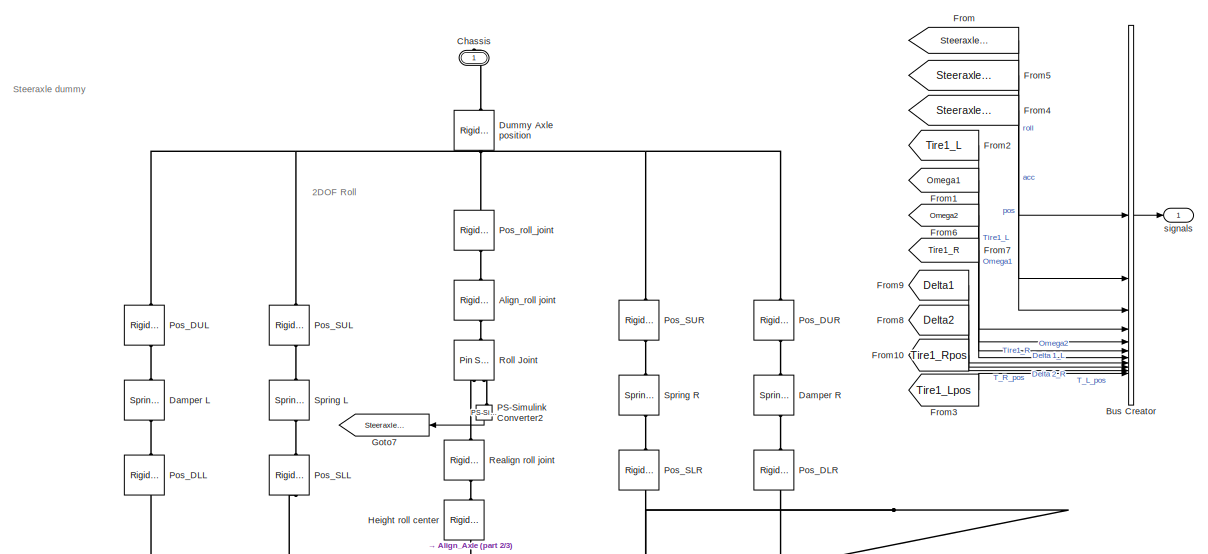
[diagram: Tractor_semitrailer /Tractor/Steer axle - part 1/3, top center region]
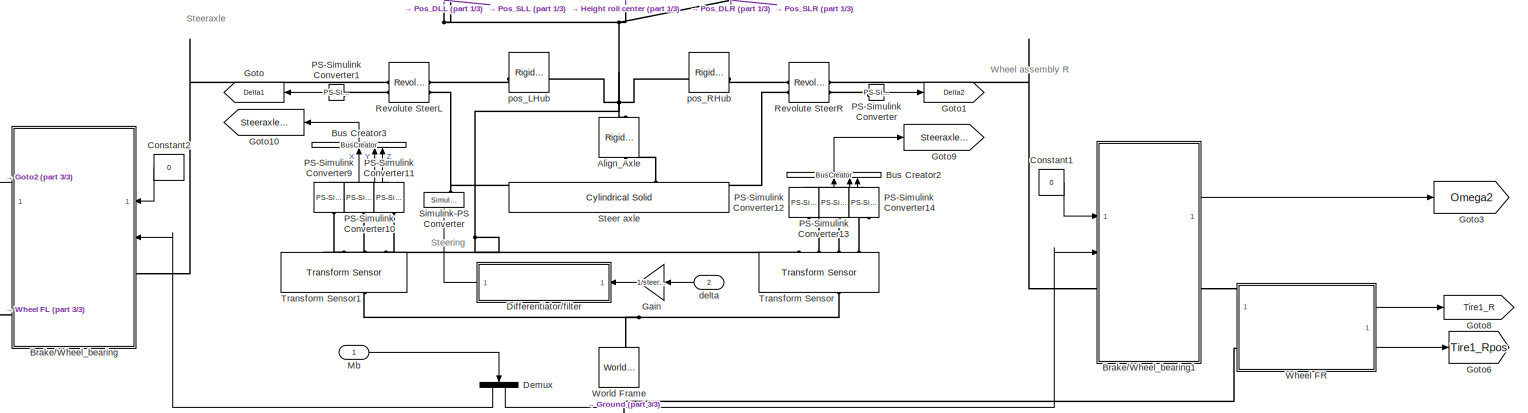
[diagram: Tractor_semitrailer /Tractor/Steer axle - part 2/3, full width, bottom band]
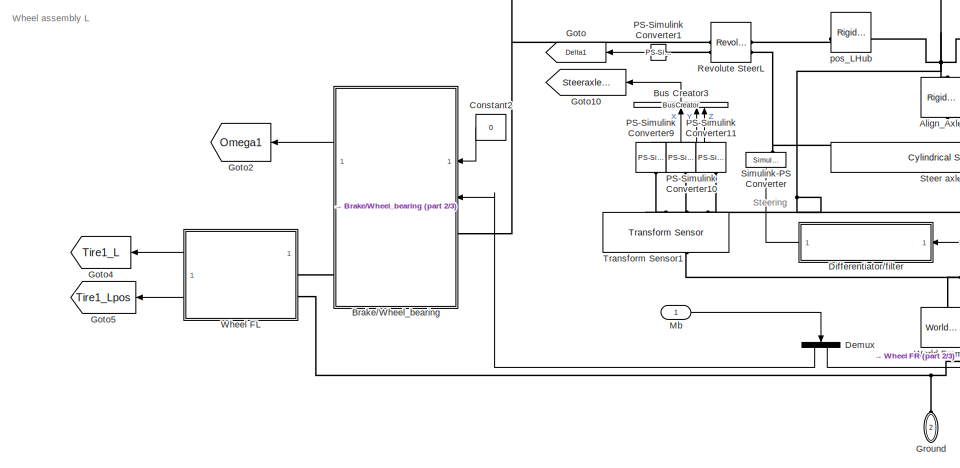
[diagram: Tractor_semitrailer /Tractor/Steer axle - part 3/3, bottom left region]
BLOCK [SubSystem] Tractor_semitrailer /Tractor/Steer axle
  LibrarySourceBlock = CommercialVehicleLibrary2G/Assemblies/Steer axle
BLOCK [Reference] Tractor_semitrailer /Tractor/Steer axle/ Align_roll joint  REF=sm_lib/Frames and
Transforms/Rigid
Transform
  NameLocation = left
  SourceBlock = sm_lib/Frames and\nTransforms/Rigid\nTransform
  SourceType = Rigid\nTransform
BLOCK [Reference] Tractor_semitrailer /Tractor/Steer axle/ Height roll center  REF=sm_lib/Frames and
Transforms/Rigid
Transform
  NameLocation = left
  SourceBlock = sm_lib/Frames and\nTransforms/Rigid\nTransform
  SourceType = Rigid\nTransform
BLOCK [Reference] Tractor_semitrailer /Tractor/Steer axle/ Pos_roll_joint  REF=sm_lib/Frames and
Transforms/Rigid
Transform
  NameLocation = left
  SourceBlock = sm_lib/Frames and\nTransforms/Rigid\nTransform
  SourceType = Rigid\nTransform
BLOCK [Reference] Tractor_semitrailer /Tractor/Steer axle/Align_Axle  REF=sm_lib/Frames and
Transforms/Rigid
Transform
  NameLocation = left
  SourceBlock = sm_lib/Frames and\nTransforms/Rigid\nTransform
  SourceType = Rigid\nTransform
BLOCK [SubSystem] Tractor_semitrailer /Tractor/Steer axle/Brake//Wheel_bearing
BLOCK [Lookup] Tractor_semitrailer /Tractor/Steer axle/Brake//Wheel_bearing/Look-Up Table
  InputValues = [-5:0.05:5]
  Table = -tanh(2*[-5:0.05:5])
BLOCK [Inport] Tractor_semitrailer /Tractor/Steer axle/Brake//Wheel_bearing/Mbrake
  Port = 2
BLOCK [Inport] Tractor_semitrailer /Tractor/Steer axle/Brake//Wheel_bearing/Mdrive
BLOCK [Product] Tractor_semitrailer /Tractor/Steer axle/Brake//Wheel_bearing/Product1
  InputSameDT = on
  NameLocation = right
  OutDataTypeStr = Inherit: Same as first input
  SaturateOnIntegerOverflow = on
BLOCK [SubSystem] Tractor_semitrailer /Tractor/Steer axle/Brake//Wheel_bearing/Rotational joint around y axis
BLOCK [PMIOPort] Tractor_semitrailer /Tractor/Steer axle/Brake//Wheel_bearing/Rotational joint around y axis/Axle
  Side = Left
BLOCK [Reference] Tractor_semitrailer /Tractor/Steer axle/Brake//Wheel_bearing/Rotational joint around y axis/PS-Simulink Converter  REF=nesl_utility/PS-Simulink
Converter
  SourceBlock = nesl_utility/PS-Simulink\nConverter
  SourceType = PS-Simulink\nConverter
BLOCK [Reference] Tractor_semitrailer /Tractor/Steer axle/Brake//Wheel_bearing/Rotational joint around y axis/Revolute Joint  REF=sm_lib/Joints/Revolute Joint
  SourceBlock = sm_lib/Joints/Revolute Joint
  SourceType = Revolute Joint
BLOCK [Reference] Tractor_semitrailer /Tractor/Steer axle/Brake//Wheel_bearing/Rotational joint around y axis/Rigid Transform  REF=sm_lib/Frames and
Transforms/Rigid
Transform
  SourceBlock = sm_lib/Frames and\nTransforms/Rigid\nTransform
  SourceType = Rigid\nTransform
BLOCK [Reference] Tractor_semitrailer /Tractor/Steer axle/Brake//Wheel_bearing/Rotational joint around y axis/Rigid Transform1  REF=sm_lib/Frames and
Transforms/Rigid
Transform
  SourceBlock = sm_lib/Frames and\nTransforms/Rigid\nTransform
  SourceType = Rigid\nTransform
BLOCK [Outport] Tractor_semitrailer /Tractor/Steer axle/Brake//Wheel_bearing/Rotational joint around y axis/Rotational speed
BLOCK [Reference] Tractor_semitrailer /Tractor/Steer axle/Brake//Wheel_bearing/Rotational joint around y axis/Simulink-PS Converter  REF=nesl_utility/Simulink-PS
Converter
  SourceBlock = nesl_utility/Simulink-PS\nConverter
  SourceType = Simulink-PS\nConverter
BLOCK [Inport] Tractor_semitrailer /Tractor/Steer axle/Brake//Wheel_bearing/Rotational joint around y axis/Torque
BLOCK [PMIOPort] Tractor_semitrailer /Tractor/Steer axle/Brake//Wheel_bearing/Rotational joint around y axis/Wheel
  Port = 2
  Side = Right
BLOCK [Scope] Tractor_semitrailer /Tractor/Steer axle/Brake//Wheel_bearing/Scope
  Floating = off
  NumInputPorts = 1
  ScopeSpecificationString = Simulink.scopes.TimeScopeBlockCfg('CurrentConfiguration', extmgr.ConfigurationSet(extmgr.Configuration('Core','General UI',true),extmgr.Configuration('Core','Source UI',true),extmgr.Configuration('Sources','WiredSimulink',true,'DataLoggingVariableName','ScopeData3'),extmgr.Configuration('Visuals','Time Domain',true,'SerializedDisplays',{struct('MinYLimReal','-4799.28917','MaxYLimReal','788.71942',...<+1382ch>
BLOCK [Sum] Tractor_semitrailer /Tractor/Steer axle/Brake//Wheel_bearing/Sum
  Inputs = ++|
  NameLocation = right
BLOCK [PMIOPort] Tractor_semitrailer /Tractor/Steer axle/Brake//Wheel_bearing/axle
  Side = Left
BLOCK [Outport] Tractor_semitrailer /Tractor/Steer axle/Brake//Wheel_bearing/omega
  VectorParamsAs1DForOutWhenUnconnected = off
BLOCK [PMIOPort] Tractor_semitrailer /Tractor/Steer axle/Brake//Wheel_bearing/wheel
  Port = 2
  Side = Right
BLOCK [SubSystem] Tractor_semitrailer /Tractor/Steer axle/Brake//Wheel_bearing1
BLOCK [Lookup] Tractor_semitrailer /Tractor/Steer axle/Brake//Wheel_bearing1/Look-Up Table
  InputValues = [-5:0.05:5]
  Table = -tanh(2*[-5:0.05:5])
BLOCK [Inport] Tractor_semitrailer /Tractor/Steer axle/Brake//Wheel_bearing1/Mbrake
  Port = 2
BLOCK [Inport] Tractor_semitrailer /Tractor/Steer axle/Brake//Wheel_bearing1/Mdrive
BLOCK [Product] Tractor_semitrailer /Tractor/Steer axle/Brake//Wheel_bearing1/Product1
  InputSameDT = on
  NameLocation = right
  OutDataTypeStr = Inherit: Same as first input
  SaturateOnIntegerOverflow = on
BLOCK [SubSystem] Tractor_semitrailer /Tractor/Steer axle/Brake//Wheel_bearing1/Rotational joint around y axis
BLOCK [PMIOPort] Tractor_semitrailer /Tractor/Steer axle/Brake//Wheel_bearing1/Rotational joint around y axis/Axle
  Side = Left
BLOCK [Reference] Tractor_semitrailer /Tractor/Steer axle/Brake//Wheel_bearing1/Rotational joint around y axis/PS-Simulink Converter  REF=nesl_utility/PS-Simulink
Converter
  SourceBlock = nesl_utility/PS-Simulink\nConverter
  SourceType = PS-Simulink\nConverter
BLOCK [Reference] Tractor_semitrailer /Tractor/Steer axle/Brake//Wheel_bearing1/Rotational joint around y axis/Revolute Joint  REF=sm_lib/Joints/Revolute Joint
  SourceBlock = sm_lib/Joints/Revolute Joint
  SourceType = Revolute Joint
BLOCK [Reference] Tractor_semitrailer /Tractor/Steer axle/Brake//Wheel_bearing1/Rotational joint around y axis/Rigid Transform  REF=sm_lib/Frames and
Transforms/Rigid
Transform
  SourceBlock = sm_lib/Frames and\nTransforms/Rigid\nTransform
  SourceType = Rigid\nTransform
BLOCK [Reference] Tractor_semitrailer /Tractor/Steer axle/Brake//Wheel_bearing1/Rotational joint around y axis/Rigid Transform1  REF=sm_lib/Frames and
Transforms/Rigid
Transform
  SourceBlock = sm_lib/Frames and\nTransforms/Rigid\nTransform
  SourceType = Rigid\nTransform
BLOCK [Outport] Tractor_semitrailer /Tractor/Steer axle/Brake//Wheel_bearing1/Rotational joint around y axis/Rotational speed
BLOCK [Reference] Tractor_semitrailer /Tractor/Steer axle/Brake//Wheel_bearing1/Rotational joint around y axis/Simulink-PS Converter  REF=nesl_utility/Simulink-PS
Converter
  SourceBlock = nesl_utility/Simulink-PS\nConverter
  SourceType = Simulink-PS\nConverter
BLOCK [Inport] Tractor_semitrailer /Tractor/Steer axle/Brake//Wheel_bearing1/Rotational joint around y axis/Torque
BLOCK [PMIOPort] Tractor_semitrailer /Tractor/Steer axle/Brake//Wheel_bearing1/Rotational joint around y axis/Wheel
  Port = 2
  Side = Right
BLOCK [Sum] Tractor_semitrailer /Tractor/Steer axle/Brake//Wheel_bearing1/Sum
  Inputs = ++|
  NameLocation = right
BLOCK [PMIOPort] Tractor_semitrailer /Tractor/Steer axle/Brake//Wheel_bearing1/axle
  Side = Left
BLOCK [Outport] Tractor_semitrailer /Tractor/Steer axle/Brake//Wheel_bearing1/omega
  VectorParamsAs1DForOutWhenUnconnected = off
BLOCK [PMIOPort] Tractor_semitrailer /Tractor/Steer axle/Brake//Wheel_bearing1/wheel
  Port = 2
  Side = Right
BLOCK [BusCreator] Tractor_semitrailer /Tractor/Steer axle/Bus Creator
  DisplayOption = bar
  InheritFromInputs = on
  Inputs = 11
BLOCK [BusCreator] Tractor_semitrailer /Tractor/Steer axle/Bus Creator2
  DisplayOption = bar
  InheritFromInputs = on
  Inputs = 3
  NameLocation = right
BLOCK [BusCreator] Tractor_semitrailer /Tractor/Steer axle/Bus Creator3
  DisplayOption = bar
  InheritFromInputs = on
  Inputs = 3
  NameLocation = right
BLOCK [PMIOPort] Tractor_semitrailer /Tractor/Steer axle/Chassis
  NameLocation = left
  Side = Right
BLOCK [Constant] Tractor_semitrailer /Tractor/Steer axle/Constant1
  Value = 0
BLOCK [Constant] Tractor_semitrailer /Tractor/Steer axle/Constant2
  NameLocation = top
  Value = 0
BLOCK [Reference] Tractor_semitrailer /Tractor/Steer axle/Damper L  REF=sm_lib/Forces and
Torques/Spring and
Damper Force
  NameLocation = left
  SourceBlock = sm_lib/Forces and\nTorques/Spring and\nDamper Force
  SourceType = Spring and\nDamper Force
BLOCK [Reference] Tractor_semitrailer /Tractor/Steer axle/Damper R  REF=sm_lib/Forces and
Torques/Spring and
Damper Force
  NameLocation = right
  SourceBlock = sm_lib/Forces and\nTorques/Spring and\nDamper Force
  SourceType = Spring and\nDamper Force
BLOCK [Demux] Tractor_semitrailer /Tractor/Steer axle/Demux
  NameLocation = left
  Outputs = 2
BLOCK [SubSystem] Tractor_semitrailer /Tractor/Steer axle/Differentiator//filter
BLOCK [Gain] Tractor_semitrailer /Tractor/Steer axle/Differentiator//filter/Gain
  Gain = c
  OutDataTypeStr = Inherit: Same as input
  ParamDataTypeStr = Inherit: Same as input
  SaturateOnIntegerOverflow = on
BLOCK [Gain] Tractor_semitrailer /Tractor/Steer axle/Differentiator//filter/Gain2
  Gain = 2*sqrt(c)
  OutDataTypeStr = Inherit: Same as input
  ParamDataTypeStr = Inherit: Same as input
  SaturateOnIntegerOverflow = on
BLOCK [Integrator] Tractor_semitrailer /Tractor/Steer axle/Differentiator//filter/Integrator2
BLOCK [Integrator] Tractor_semitrailer /Tractor/Steer axle/Differentiator//filter/Integrator3
BLOCK [Sum] Tractor_semitrailer /Tractor/Steer axle/Differentiator//filter/Sum1
  Inputs = -+|
  SaturateOnIntegerOverflow = on
BLOCK [Sum] Tractor_semitrailer /Tractor/Steer axle/Differentiator//filter/Sum2
  Inputs = -+|
  SaturateOnIntegerOverflow = on
BLOCK [Outport] Tractor_semitrailer /Tractor/Steer axle/Differentiator//filter/actual pos
BLOCK [Inport] Tractor_semitrailer /Tractor/Steer axle/Differentiator//filter/pos
BLOCK [Reference] Tractor_semitrailer /Tractor/Steer axle/Dummy Axle position  REF=sm_lib/Frames and
Transforms/Rigid
Transform
  NameLocation = left
  SourceBlock = sm_lib/Frames and\nTransforms/Rigid\nTransform
  SourceType = Rigid\nTransform
BLOCK [From] Tractor_semitrailer /Tractor/Steer axle/From
  GotoTag = Steeraxle_roll
BLOCK [From] Tractor_semitrailer /Tractor/Steer axle/From1
  GotoTag = Omega1
  NameLocation = top
BLOCK [From] Tractor_semitrailer /Tractor/Steer axle/From10
  GotoTag = Tire1_Rpos
BLOCK [From] Tractor_semitrailer /Tractor/Steer axle/From2
  GotoTag = Tire1_L
  NameLocation = top
BLOCK [From] Tractor_semitrailer /Tractor/Steer axle/From3
  GotoTag = Tire1_Lpos
  NameLocation = top
BLOCK [From] Tractor_semitrailer /Tractor/Steer axle/From4
  GotoTag = Steeraxle_pos
  NameLocation = top
BLOCK [From] Tractor_semitrailer /Tractor/Steer axle/From5
  GotoTag = Steeraxle_acc
  NameLocation = top
BLOCK [From] Tractor_semitrailer /Tractor/Steer axle/From6
  GotoTag = Omega2
BLOCK [From] Tractor_semitrailer /Tractor/Steer axle/From7
  GotoTag = Tire1_R
BLOCK [From] Tractor_semitrailer /Tractor/Steer axle/From8
  GotoTag = Delta2
BLOCK [From] Tractor_semitrailer /Tractor/Steer axle/From9
  GotoTag = Delta1
  NameLocation = top
BLOCK [Gain] Tractor_semitrailer /Tractor/Steer axle/Gain
  Gain = 1/steerratio
  NameLocation = top
BLOCK [Goto] Tractor_semitrailer /Tractor/Steer axle/Goto
  GotoTag = Delta1
  NameLocation = top
BLOCK [Goto] Tractor_semitrailer /Tractor/Steer axle/Goto1
  GotoTag = Delta2
BLOCK [Goto] Tractor_semitrailer /Tractor/Steer axle/Goto10
  GotoTag = Steeraxle_pos
  NameLocation = top
BLOCK [Goto] Tractor_semitrailer /Tractor/Steer axle/Goto2
  GotoTag = Omega1
  NameLocation = top
BLOCK [Goto] Tractor_semitrailer /Tractor/Steer axle/Goto3
  GotoTag = Omega2
BLOCK [Goto] Tractor_semitrailer /Tractor/Steer axle/Goto4
  GotoTag = Tire1_L
  NameLocation = top
BLOCK [Goto] Tractor_semitrailer /Tractor/Steer axle/Goto5
  GotoTag = Tire1_Lpos
BLOCK [Goto] Tractor_semitrailer /Tractor/Steer axle/Goto6
  GotoTag = Tire1_Rpos
BLOCK [Goto] Tractor_semitrailer /Tractor/Steer axle/Goto7
  GotoTag = Steeraxle_roll
  NameLocation = top
BLOCK [Goto] Tractor_semitrailer /Tractor/Steer axle/Goto8
  GotoTag = Tire1_R
BLOCK [Goto] Tractor_semitrailer /Tractor/Steer axle/Goto9
  GotoTag = Steeraxle_acc
  NameLocation = top
BLOCK [PMIOPort] Tractor_semitrailer /Tractor/Steer axle/Ground
  NameLocation = left
  Port = 2
  Side = Left
BLOCK [Inport] Tractor_semitrailer /Tractor/Steer axle/Mb
BLOCK [Reference] Tractor_semitrailer /Tractor/Steer axle/PS-Simulink Converter  REF=nesl_utility/PS-Simulink
Converter
  SourceBlock = nesl_utility/PS-Simulink\nConverter
  SourceType = PS-Simulink\nConverter
BLOCK [Reference] Tractor_semitrailer /Tractor/Steer axle/PS-Simulink Converter1  REF=nesl_utility/PS-Simulink
Converter
  NameLocation = top
  SourceBlock = nesl_utility/PS-Simulink\nConverter
  SourceType = PS-Simulink\nConverter
BLOCK [Reference] Tractor_semitrailer /Tractor/Steer axle/PS-Simulink Converter10  REF=nesl_utility/PS-Simulink
Converter
  NameLocation = right
  SourceBlock = nesl_utility/PS-Simulink\nConverter
  SourceType = PS-Simulink\nConverter
BLOCK [Reference] Tractor_semitrailer /Tractor/Steer axle/PS-Simulink Converter11  REF=nesl_utility/PS-Simulink
Converter
  NameLocation = right
  SourceBlock = nesl_utility/PS-Simulink\nConverter
  SourceType = PS-Simulink\nConverter
BLOCK [Reference] Tractor_semitrailer /Tractor/Steer axle/PS-Simulink Converter12  REF=nesl_utility/PS-Simulink
Converter
  NameLocation = right
  SourceBlock = nesl_utility/PS-Simulink\nConverter
  SourceType = PS-Simulink\nConverter
BLOCK [Reference] Tractor_semitrailer /Tractor/Steer axle/PS-Simulink Converter13  REF=nesl_utility/PS-Simulink
Converter
  NameLocation = right
  SourceBlock = nesl_utility/PS-Simulink\nConverter
  SourceType = PS-Simulink\nConverter
BLOCK [Reference] Tractor_semitrailer /Tractor/Steer axle/PS-Simulink Converter14  REF=nesl_utility/PS-Simulink
Converter
  NameLocation = right
  SourceBlock = nesl_utility/PS-Simulink\nConverter
  SourceType = PS-Simulink\nConverter
BLOCK [Reference] Tractor_semitrailer /Tractor/Steer axle/PS-Simulink Converter2  REF=nesl_utility/PS-Simulink
Converter
  NameLocation = left
  SourceBlock = nesl_utility/PS-Simulink\nConverter
  SourceType = PS-Simulink\nConverter
BLOCK [Reference] Tractor_semitrailer /Tractor/Steer axle/PS-Simulink Converter9  REF=nesl_utility/PS-Simulink
Converter
  NameLocation = right
  SourceBlock = nesl_utility/PS-Simulink\nConverter
  SourceType = PS-Simulink\nConverter
BLOCK [Reference] Tractor_semitrailer /Tractor/Steer axle/Pos_DLL   REF=sm_lib/Frames and
Transforms/Rigid
Transform
  NameLocation = left
  SourceBlock = sm_lib/Frames and\nTransforms/Rigid\nTransform
  SourceType = Rigid\nTransform
BLOCK [Reference] Tractor_semitrailer /Tractor/Steer axle/Pos_DLR  REF=sm_lib/Frames and
Transforms/Rigid
Transform
  NameLocation = right
  SourceBlock = sm_lib/Frames and\nTransforms/Rigid\nTransform
  SourceType = Rigid\nTransform
BLOCK [Reference] Tractor_semitrailer /Tractor/Steer axle/Pos_DUL   REF=sm_lib/Frames and
Transforms/Rigid
Transform
  NameLocation = left
  SourceBlock = sm_lib/Frames and\nTransforms/Rigid\nTransform
  SourceType = Rigid\nTransform
BLOCK [Reference] Tractor_semitrailer /Tractor/Steer axle/Pos_DUR  REF=sm_lib/Frames and
Transforms/Rigid
Transform
  NameLocation = right
  SourceBlock = sm_lib/Frames and\nTransforms/Rigid\nTransform
  SourceType = Rigid\nTransform
BLOCK [Reference] Tractor_semitrailer /Tractor/Steer axle/Pos_SLL  REF=sm_lib/Frames and
Transforms/Rigid
Transform
  NameLocation = left
  SourceBlock = sm_lib/Frames and\nTransforms/Rigid\nTransform
  SourceType = Rigid\nTransform
BLOCK [Reference] Tractor_semitrailer /Tractor/Steer axle/Pos_SLR  REF=sm_lib/Frames and
Transforms/Rigid
Transform
  NameLocation = right
  SourceBlock = sm_lib/Frames and\nTransforms/Rigid\nTransform
  SourceType = Rigid\nTransform
BLOCK [Reference] Tractor_semitrailer /Tractor/Steer axle/Pos_SUL  REF=sm_lib/Frames and
Transforms/Rigid
Transform
  NameLocation = left
  SourceBlock = sm_lib/Frames and\nTransforms/Rigid\nTransform
  SourceType = Rigid\nTransform
BLOCK [Reference] Tractor_semitrailer /Tractor/Steer axle/Pos_SUR  REF=sm_lib/Frames and
Transforms/Rigid
Transform
  NameLocation = right
  SourceBlock = sm_lib/Frames and\nTransforms/Rigid\nTransform
  SourceType = Rigid\nTransform
BLOCK [Reference] Tractor_semitrailer /Tractor/Steer axle/Realign roll joint  REF=sm_lib/Frames and
Transforms/Rigid
Transform
  NameLocation = left
  SourceBlock = sm_lib/Frames and\nTransforms/Rigid\nTransform
  SourceType = Rigid\nTransform
BLOCK [Reference] Tractor_semitrailer /Tractor/Steer axle/Revolute SteerL  REF=sm_lib/Joints/Revolute Joint
  SourceBlock = sm_lib/Joints/Revolute Joint
  SourceType = Revolute Joint
BLOCK [Reference] Tractor_semitrailer /Tractor/Steer axle/Revolute SteerR  REF=sm_lib/Joints/Revolute Joint
  SourceBlock = sm_lib/Joints/Revolute Joint
  SourceType = Revolute Joint
BLOCK [Reference] Tractor_semitrailer /Tractor/Steer axle/Roll Joint  REF=sm_lib/Joints/Pin Slot Joint
  NameLocation = left
  SourceBlock = sm_lib/Joints/Pin Slot Joint
  SourceType = Pin Slot Joint
BLOCK [Reference] Tractor_semitrailer /Tractor/Steer axle/Simulink-PS Converter  REF=nesl_utility/Simulink-PS
Converter
  NameLocation = left
  SourceBlock = nesl_utility/Simulink-PS\nConverter
  SourceType = Simulink-PS\nConverter
BLOCK [Reference] Tractor_semitrailer /Tractor/Steer axle/Spring L  REF=sm_lib/Forces and
Torques/Spring and
Damper Force
  NameLocation = left
  SourceBlock = sm_lib/Forces and\nTorques/Spring and\nDamper Force
  SourceType = Spring and\nDamper Force
BLOCK [Reference] Tractor_semitrailer /Tractor/Steer axle/Spring R  REF=sm_lib/Forces and
Torques/Spring and
Damper Force
  NameLocation = right
  SourceBlock = sm_lib/Forces and\nTorques/Spring and\nDamper Force
  SourceType = Spring and\nDamper Force
BLOCK [Reference] Tractor_semitrailer /Tractor/Steer axle/Steer axle  REF=sm_lib/Body Elements/Cylindrical Solid
  NameLocation = right
  SourceBlock = sm_lib/Body Elements/Cylindrical Solid
  SourceType = Cylindrical Solid
BLOCK [Reference] Tractor_semitrailer /Tractor/Steer axle/Transform Sensor  REF=sm_lib/Frames and
Transforms/Transform
Sensor
  NameLocation = right
  SourceBlock = sm_lib/Frames and\nTransforms/Transform\nSensor
  SourceType = Transform\nSensor
BLOCK [Reference] Tractor_semitrailer /Tractor/Steer axle/Transform Sensor1  REF=sm_lib/Frames and
Transforms/Transform
Sensor
  NameLocation = right
  SourceBlock = sm_lib/Frames and\nTransforms/Transform\nSensor
  SourceType = Transform\nSensor
BLOCK [SubSystem] Tractor_semitrailer /Tractor/Steer axle/Wheel FL
BLOCK [BusCreator] Tractor_semitrailer /Tractor/Steer axle/Wheel FL/Bus Creator
  DisplayOption = bar
  InheritFromInputs = on
  Inputs = 6
BLOCK [BusCreator] Tractor_semitrailer /Tractor/Steer axle/Wheel FL/Bus Creator2
  DisplayOption = bar
  InheritFromInputs = on
  Inputs = 3
BLOCK [Demux] Tractor_semitrailer /Tractor/Steer axle/Wheel FL/Demux
  Outputs = 3
BLOCK [Demux] Tractor_semitrailer /Tractor/Steer axle/Wheel FL/Demux1
  Outputs = 3
BLOCK [Reference] Tractor_semitrailer /Tractor/Steer axle/Wheel FL/Geometry Transform  REF=sm_lib/Frames and
Transforms/Rigid
Transform
  SourceBlock = sm_lib/Frames and\nTransforms/Rigid\nTransform
  SourceType = Rigid\nTransform
BLOCK [PMIOPort] Tractor_semitrailer /Tractor/Steer axle/Wheel FL/Ground
  Port = 2
  Side = Left
BLOCK [Reference] Tractor_semitrailer /Tractor/Steer axle/Wheel FL/Inertia  REF=sm_lib/Body Elements/Inertia
  SourceBlock = sm_lib/Body Elements/Inertia
  SourceType = Inertia
BLOCK [Reference] Tractor_semitrailer /Tractor/Steer axle/Wheel FL/MF Tire FL  REF=sm_lib/Forces and
Torques/Magic Formula Tire
Force and Torque
  SourceBlock = sm_lib/Forces and\nTorques/Magic Formula Tire\nForce and Torque
  SourceType = Magic Formula Tire\nForce and Torque
BLOCK [Reference] Tractor_semitrailer /Tractor/Steer axle/Wheel FL/PS-Simulink Converter  REF=nesl_utility/PS-Simulink
Converter
  SourceBlock = nesl_utility/PS-Simulink\nConverter
  SourceType = PS-Simulink\nConverter
BLOCK [Reference] Tractor_semitrailer /Tractor/Steer axle/Wheel FL/PS-Simulink Converter1  REF=nesl_utility/PS-Simulink
Converter
  SourceBlock = nesl_utility/PS-Simulink\nConverter
  SourceType = PS-Simulink\nConverter
BLOCK [Reference] Tractor_semitrailer /Tractor/Steer axle/Wheel FL/PS-Simulink Converter10  REF=nesl_utility/PS-Simulink
Converter
  SourceBlock = nesl_utility/PS-Simulink\nConverter
  SourceType = PS-Simulink\nConverter
BLOCK [Reference] Tractor_semitrailer /Tractor/Steer axle/Wheel FL/PS-Simulink Converter11  REF=nesl_utility/PS-Simulink
Converter
  SourceBlock = nesl_utility/PS-Simulink\nConverter
  SourceType = PS-Simulink\nConverter
BLOCK [Reference] Tractor_semitrailer /Tractor/Steer axle/Wheel FL/PS-Simulink Converter2  REF=nesl_utility/PS-Simulink
Converter
  SourceBlock = nesl_utility/PS-Simulink\nConverter
  SourceType = PS-Simulink\nConverter
BLOCK [Reference] Tractor_semitrailer /Tractor/Steer axle/Wheel FL/PS-Simulink Converter3  REF=nesl_utility/PS-Simulink
Converter
  SourceBlock = nesl_utility/PS-Simulink\nConverter
  SourceType = PS-Simulink\nConverter
BLOCK [Reference] Tractor_semitrailer /Tractor/Steer axle/Wheel FL/PS-Simulink Converter4  REF=nesl_utility/PS-Simulink
Converter
  SourceBlock = nesl_utility/PS-Simulink\nConverter
  SourceType = PS-Simulink\nConverter
BLOCK [Reference] Tractor_semitrailer /Tractor/Steer axle/Wheel FL/PS-Simulink Converter5  REF=nesl_utility/PS-Simulink
Converter
  SourceBlock = nesl_utility/PS-Simulink\nConverter
  SourceType = PS-Simulink\nConverter
BLOCK [Reference] Tractor_semitrailer /Tractor/Steer axle/Wheel FL/PS-Simulink Converter6  REF=nesl_utility/PS-Simulink
Converter
  SourceBlock = nesl_utility/PS-Simulink\nConverter
  SourceType = PS-Simulink\nConverter
BLOCK [Reference] Tractor_semitrailer /Tractor/Steer axle/Wheel FL/PS-Simulink Converter7  REF=nesl_utility/PS-Simulink
Converter
  SourceBlock = nesl_utility/PS-Simulink\nConverter
  SourceType = PS-Simulink\nConverter
BLOCK [Reference] Tractor_semitrailer /Tractor/Steer axle/Wheel FL/PS-Simulink Converter8  REF=nesl_utility/PS-Simulink
Converter
  SourceBlock = nesl_utility/PS-Simulink\nConverter
  SourceType = PS-Simulink\nConverter
BLOCK [Reference] Tractor_semitrailer /Tractor/Steer axle/Wheel FL/PS-Simulink Converter9  REF=nesl_utility/PS-Simulink
Converter
  SourceBlock = nesl_utility/PS-Simulink\nConverter
  SourceType = PS-Simulink\nConverter
BLOCK [Reshape] Tractor_semitrailer /Tractor/Steer axle/Wheel FL/Reshape
BLOCK [Reference] Tractor_semitrailer /Tractor/Steer axle/Wheel FL/Rigid Transform  REF=sm_lib/Frames and
Transforms/Rigid
Transform
  NameLocation = top
  SourceBlock = sm_lib/Frames and\nTransforms/Rigid\nTransform
  SourceType = Rigid\nTransform
BLOCK [Reference] Tractor_semitrailer /Tractor/Steer axle/Wheel FL/Rim+Tire  REF=sm_lib/Body Elements/File Solid
  NameLocation = right
  SourceBlock = sm_lib/Body Elements/File Solid
  SourceType = File Solid
BLOCK [Reference] Tractor_semitrailer /Tractor/Steer axle/Wheel FL/Rotation Axis Transform  REF=sm_lib/Frames and
Transforms/Rigid
Transform
  SourceBlock = sm_lib/Frames and\nTransforms/Rigid\nTransform
  SourceType = Rigid\nTransform
BLOCK [Terminator] Tractor_semitrailer /Tractor/Steer axle/Wheel FL/Terminator
BLOCK [Terminator] Tractor_semitrailer /Tractor/Steer axle/Wheel FL/Terminator1
BLOCK [Terminator] Tractor_semitrailer /Tractor/Steer axle/Wheel FL/Terminator2
BLOCK [Terminator] Tractor_semitrailer /Tractor/Steer axle/Wheel FL/Terminator3
BLOCK [Terminator] Tractor_semitrailer /Tractor/Steer axle/Wheel FL/Terminator4
BLOCK [Terminator] Tractor_semitrailer /Tractor/Steer axle/Wheel FL/Terminator5
BLOCK [Terminator] Tractor_semitrailer /Tractor/Steer axle/Wheel FL/Terminator6
BLOCK [Outport] Tractor_semitrailer /Tractor/Steer axle/Wheel FL/Tire Foces
BLOCK [Outport] Tractor_semitrailer /Tractor/Steer axle/Wheel FL/Tire Position
  Port = 2
BLOCK [Reference] Tractor_semitrailer /Tractor/Steer axle/Wheel FL/Transform Sensor-LocalBodyCS  REF=sm_lib/Frames and
Transforms/Transform
Sensor
  SourceBlock = sm_lib/Frames and\nTransforms/Transform\nSensor
  SourceType = Transform\nSensor
BLOCK [Reference] Tractor_semitrailer /Tractor/Steer axle/Wheel FL/Transform Sensor-WorldCS  REF=sm_lib/Frames and
Transforms/Transform
Sensor
  SourceBlock = sm_lib/Frames and\nTransforms/Transform\nSensor
  SourceType = Transform\nSensor
BLOCK [PMIOPort] Tractor_semitrailer /Tractor/Steer axle/Wheel FL/Wheel 
  Side = Left
BLOCK [Reference] Tractor_semitrailer /Tractor/Steer axle/Wheel FL/World Frame  REF=sm_lib/Frames and
Transforms/World Frame
  NameLocation = top
  SourceBlock = sm_lib/Frames and\nTransforms/World Frame
  SourceType = World Frame
BLOCK [SubSystem] Tractor_semitrailer /Tractor/Steer axle/Wheel FR
BLOCK [BusCreator] Tractor_semitrailer /Tractor/Steer axle/Wheel FR/Bus Creator
  DisplayOption = bar
  InheritFromInputs = on
  Inputs = 6
BLOCK [BusCreator] Tractor_semitrailer /Tractor/Steer axle/Wheel FR/Bus Creator2
  DisplayOption = bar
  InheritFromInputs = on
  Inputs = 3
BLOCK [Demux] Tractor_semitrailer /Tractor/Steer axle/Wheel FR/Demux
  Outputs = 3
BLOCK [Demux] Tractor_semitrailer /Tractor/Steer axle/Wheel FR/Demux1
  Outputs = 3
BLOCK [Reference] Tractor_semitrailer /Tractor/Steer axle/Wheel FR/Geometry Transform  REF=sm_lib/Frames and
Transforms/Rigid
Transform
  SourceBlock = sm_lib/Frames and\nTransforms/Rigid\nTransform
  SourceType = Rigid\nTransform
BLOCK [PMIOPort] Tractor_semitrailer /Tractor/Steer axle/Wheel FR/Ground
  Port = 2
  Side = Left
BLOCK [Reference] Tractor_semitrailer /Tractor/Steer axle/Wheel FR/Inertia  REF=sm_lib/Body Elements/Inertia
  SourceBlock = sm_lib/Body Elements/Inertia
  SourceType = Inertia
BLOCK [Reference] Tractor_semitrailer /Tractor/Steer axle/Wheel FR/MF Tire FL  REF=sm_lib/Forces and
Torques/Magic Formula Tire
Force and Torque
  SourceBlock = sm_lib/Forces and\nTorques/Magic Formula Tire\nForce and Torque
  SourceType = Magic Formula Tire\nForce and Torque
BLOCK [Reference] Tractor_semitrailer /Tractor/Steer axle/Wheel FR/PS-Simulink Converter  REF=nesl_utility/PS-Simulink
Converter
  SourceBlock = nesl_utility/PS-Simulink\nConverter
  SourceType = PS-Simulink\nConverter
BLOCK [Reference] Tractor_semitrailer /Tractor/Steer axle/Wheel FR/PS-Simulink Converter1  REF=nesl_utility/PS-Simulink
Converter
  SourceBlock = nesl_utility/PS-Simulink\nConverter
  SourceType = PS-Simulink\nConverter
BLOCK [Reference] Tractor_semitrailer /Tractor/Steer axle/Wheel FR/PS-Simulink Converter10  REF=nesl_utility/PS-Simulink
Converter
  SourceBlock = nesl_utility/PS-Simulink\nConverter
  SourceType = PS-Simulink\nConverter
BLOCK [Reference] Tractor_semitrailer /Tractor/Steer axle/Wheel FR/PS-Simulink Converter11  REF=nesl_utility/PS-Simulink
Converter
  SourceBlock = nesl_utility/PS-Simulink\nConverter
  SourceType = PS-Simulink\nConverter
BLOCK [Reference] Tractor_semitrailer /Tractor/Steer axle/Wheel FR/PS-Simulink Converter2  REF=nesl_utility/PS-Simulink
Converter
  SourceBlock = nesl_utility/PS-Simulink\nConverter
  SourceType = PS-Simulink\nConverter
BLOCK [Reference] Tractor_semitrailer /Tractor/Steer axle/Wheel FR/PS-Simulink Converter3  REF=nesl_utility/PS-Simulink
Converter
  SourceBlock = nesl_utility/PS-Simulink\nConverter
  SourceType = PS-Simulink\nConverter
BLOCK [Reference] Tractor_semitrailer /Tractor/Steer axle/Wheel FR/PS-Simulink Converter4  REF=nesl_utility/PS-Simulink
Converter
  SourceBlock = nesl_utility/PS-Simulink\nConverter
  SourceType = PS-Simulink\nConverter
BLOCK [Reference] Tractor_semitrailer /Tractor/Steer axle/Wheel FR/PS-Simulink Converter5  REF=nesl_utility/PS-Simulink
Converter
  SourceBlock = nesl_utility/PS-Simulink\nConverter
  SourceType = PS-Simulink\nConverter
BLOCK [Reference] Tractor_semitrailer /Tractor/Steer axle/Wheel FR/PS-Simulink Converter6  REF=nesl_utility/PS-Simulink
Converter
  SourceBlock = nesl_utility/PS-Simulink\nConverter
  SourceType = PS-Simulink\nConverter
BLOCK [Reference] Tractor_semitrailer /Tractor/Steer axle/Wheel FR/PS-Simulink Converter7  REF=nesl_utility/PS-Simulink
Converter
  SourceBlock = nesl_utility/PS-Simulink\nConverter
  SourceType = PS-Simulink\nConverter
BLOCK [Reference] Tractor_semitrailer /Tractor/Steer axle/Wheel FR/PS-Simulink Converter8  REF=nesl_utility/PS-Simulink
Converter
  SourceBlock = nesl_utility/PS-Simulink\nConverter
  SourceType = PS-Simulink\nConverter
BLOCK [Reference] Tractor_semitrailer /Tractor/Steer axle/Wheel FR/PS-Simulink Converter9  REF=nesl_utility/PS-Simulink
Converter
  SourceBlock = nesl_utility/PS-Simulink\nConverter
  SourceType = PS-Simulink\nConverter
BLOCK [Reshape] Tractor_semitrailer /Tractor/Steer axle/Wheel FR/Reshape
  NameLocation = top
BLOCK [Reference] Tractor_semitrailer /Tractor/Steer axle/Wheel FR/Rigid Transform  REF=sm_lib/Frames and
Transforms/Rigid
Transform
  NameLocation = top
  SourceBlock = sm_lib/Frames and\nTransforms/Rigid\nTransform
  SourceType = Rigid\nTransform
BLOCK [Reference] Tractor_semitrailer /Tractor/Steer axle/Wheel FR/Rim+Tire  REF=sm_lib/Body Elements/File Solid
  NameLocation = right
  SourceBlock = sm_lib/Body Elements/File Solid
  SourceType = File Solid
BLOCK [Reference] Tractor_semitrailer /Tractor/Steer axle/Wheel FR/Rotation Axis Transform  REF=sm_lib/Frames and
Transforms/Rigid
Transform
  SourceBlock = sm_lib/Frames and\nTransforms/Rigid\nTransform
  SourceType = Rigid\nTransform
BLOCK [Terminator] Tractor_semitrailer /Tractor/Steer axle/Wheel FR/Terminator
BLOCK [Terminator] Tractor_semitrailer /Tractor/Steer axle/Wheel FR/Terminator1
BLOCK [Terminator] Tractor_semitrailer /Tractor/Steer axle/Wheel FR/Terminator2
BLOCK [Terminator] Tractor_semitrailer /Tractor/Steer axle/Wheel FR/Terminator3
BLOCK [Terminator] Tractor_semitrailer /Tractor/Steer axle/Wheel FR/Terminator4
BLOCK [Terminator] Tractor_semitrailer /Tractor/Steer axle/Wheel FR/Terminator5
BLOCK [Terminator] Tractor_semitrailer /Tractor/Steer axle/Wheel FR/Terminator6
BLOCK [Outport] Tractor_semitrailer /Tractor/Steer axle/Wheel FR/Tire Forces
BLOCK [Outport] Tractor_semitrailer /Tractor/Steer axle/Wheel FR/Tire Position
  Port = 2
BLOCK [Reference] Tractor_semitrailer /Tractor/Steer axle/Wheel FR/Transform Sensor-LocalBodyCS  REF=sm_lib/Frames and
Transforms/Transform
Sensor
  SourceBlock = sm_lib/Frames and\nTransforms/Transform\nSensor
  SourceType = Transform\nSensor
BLOCK [Reference] Tractor_semitrailer /Tractor/Steer axle/Wheel FR/Transform Sensor-WorldCS  REF=sm_lib/Frames and
Transforms/Transform
Sensor
  SourceBlock = sm_lib/Frames and\nTransforms/Transform\nSensor
  SourceType = Transform\nSensor
BLOCK [PMIOPort] Tractor_semitrailer /Tractor/Steer axle/Wheel FR/Wheel 
  Side = Left
BLOCK [Reference] Tractor_semitrailer /Tractor/Steer axle/Wheel FR/World Frame  REF=sm_lib/Frames and
Transforms/World Frame
  NameLocation = top
  SourceBlock = sm_lib/Frames and\nTransforms/World Frame
  SourceType = World Frame
BLOCK [Reference] Tractor_semitrailer /Tractor/Steer axle/World Frame  REF=sm_lib/Frames and
Transforms/World Frame
  NameLocation = right
  SourceBlock = sm_lib/Frames and\nTransforms/World Frame
  SourceType = World Frame
BLOCK [Inport] Tractor_semitrailer /Tractor/Steer axle/delta
  NameLocation = top
  Port = 2
BLOCK [Reference] Tractor_semitrailer /Tractor/Steer axle/pos_LHub  REF=sm_lib/Frames and
Transforms/Rigid
Transform
  SourceBlock = sm_lib/Frames and\nTransforms/Rigid\nTransform
  SourceType = Rigid\nTransform
BLOCK [Reference] Tractor_semitrailer /Tractor/Steer axle/pos_RHub  REF=sm_lib/Frames and
Transforms/Rigid
Transform
  SourceBlock = sm_lib/Frames and\nTransforms/Rigid\nTransform
  SourceType = Rigid\nTransform
BLOCK [Outport] Tractor_semitrailer /Tractor/Steer axle/signals
BLOCK [Inport] Tractor_semitrailer /Tractor/Steering
BLOCK [Inport] Tractor_semitrailer /Tractor/Throttle
  Port = 2
BLOCK [Reference] Tractor_semitrailer /Tractor/Tractor_torsion  REF=CommercialVehicleLibrary2G/Components/Tractor_torsion
  SourceBlock = CommercialVehicleLibrary2G/Components/Tractor_torsion
BLOCK [Inport] Tractor_semitrailer /Tractor/Vx
  Port = 5
BLOCK [SubSystem] Tractor_semitrailer /Tractor/World
  LibrarySourceBlock = CommercialVehicleLibrary2G/Utilities/World
  PortSchema = {"entries":[{"content":{"sides":[{"content":{"connectorIds":["LConn1"]},"type":"ConnectorPlacement.EquallySpacedRectSide","uuid":"a76c8e8f-6db3-49af-b69e-3287a57a87d6"},{"content":{"connectorIds":["Out1","RConn1"],"side":"RIGHT"},"type":"ConnectorPlacement.EquallySpacedRectSide","uuid":"762bfe49-08bc-424a-9ad2-f8d2880b424d"},{"content":{"connectorIds":["LConn2"],"side":"TOP"},"type":"ConnectorPlac...<+260ch>
BLOCK [Reference] Tractor_semitrailer /Tractor/World/ pos_initial  REF=sm_lib/Frames and
Transforms/Rigid
Transform
  SourceBlock = sm_lib/Frames and\nTransforms/Rigid\nTransform
  SourceType = Rigid\nTransform
BLOCK [Reference] Tractor_semitrailer /Tractor/World/6-DOF Joint  REF=sm_lib/Joints/6-DOF Joint
  NameLocation = top
  SourceBlock = sm_lib/Joints/6-DOF Joint
  SourceType = 6-DOF Joint
BLOCK [BusCreator] Tractor_semitrailer /Tractor/World/Bus Creator1
  DisplayOption = bar
  InheritFromInputs = on
  Inputs = 6
BLOCK [PMIOPort] Tractor_semitrailer /Tractor/World/Chassis
  Port = 3
  Side = Right
BLOCK [Constant] Tractor_semitrailer /Tractor/World/Constant1
  Commented = on
  Value = 5000
BLOCK [Reference] Tractor_semitrailer /Tractor/World/Floor  REF=sm_lib/Body Elements/Brick Solid
  NameLocation = right
  SourceBlock = sm_lib/Body Elements/Brick Solid
  SourceType = Brick Solid
BLOCK [Reference] Tractor_semitrailer /Tractor/World/Grid XLines  REF=sm_lib/Body Elements/Extruded Solid
  SourceBlock = sm_lib/Body Elements/Extruded Solid
  SourceType = Extruded Solid
BLOCK [Reference] Tractor_semitrailer /Tractor/World/Grid YLines  REF=sm_lib/Body Elements/Extruded Solid
  SourceBlock = sm_lib/Body Elements/Extruded Solid
  SourceType = Extruded Solid
BLOCK [Reference] Tractor_semitrailer /Tractor/World/Infinite Plane  REF=sm_lib/Curves and Surfaces/Infinite Plane
  NameLocation = top
  SourceBlock = sm_lib/Curves and Surfaces/Infinite Plane
  SourceType = Infinite Plane
BLOCK [PMIOPort] Tractor_semitrailer /Tractor/World/Measurements
  Port = 2
  Side = Left
BLOCK [Reference] Tractor_semitrailer /Tractor/World/Mechanism Configuration  REF=sm_lib/Utilities/Mechanism
Configuration
  SourceBlock = sm_lib/Utilities/Mechanism\nConfiguration
  SourceType = Mechanism\nConfiguration
BLOCK [Reference] Tractor_semitrailer /Tractor/World/PS-Simulink Converter  REF=nesl_utility/PS-Simulink
Converter
  SourceBlock = nesl_utility/PS-Simulink\nConverter
  SourceType = PS-Simulink\nConverter
BLOCK [Reference] Tractor_semitrailer /Tractor/World/PS-Simulink Converter1  REF=nesl_utility/PS-Simulink
Converter
  SourceBlock = nesl_utility/PS-Simulink\nConverter
  SourceType = PS-Simulink\nConverter
BLOCK [Reference] Tractor_semitrailer /Tractor/World/PS-Simulink Converter2  REF=nesl_utility/PS-Simulink
Converter
  SourceBlock = nesl_utility/PS-Simulink\nConverter
  SourceType = PS-Simulink\nConverter
BLOCK [Reference] Tractor_semitrailer /Tractor/World/PS-Simulink Converter3  REF=nesl_utility/PS-Simulink
Converter
  SourceBlock = nesl_utility/PS-Simulink\nConverter
  SourceType = PS-Simulink\nConverter
BLOCK [PMIOPort] Tractor_semitrailer /Tractor/World/Road
  Side = Left
BLOCK [Reference] Tractor_semitrailer /Tractor/World/Road Grid Offset   REF=sm_lib/Frames and
Transforms/Rigid
Transform
  NameLocation = right
  SourceBlock = sm_lib/Frames and\nTransforms/Rigid\nTransform
  SourceType = Rigid\nTransform
BLOCK [Reference] Tractor_semitrailer /Tractor/World/Simulink-PS Converter  REF=nesl_utility/Simulink-PS
Converter
  Commented = on
  SourceBlock = nesl_utility/Simulink-PS\nConverter
  SourceType = Simulink-PS\nConverter
BLOCK [Reference] Tractor_semitrailer /Tractor/World/Solver Configuration  REF=nesl_utility/Solver
Configuration
  SourceBlock = nesl_utility/Solver\nConfiguration
  SourceType = Solver\nConfiguration
BLOCK [Step] Tractor_semitrailer /Tractor/World/Step
  After = 25000
  Commented = on
  SampleTime = 0
  Time = 10
BLOCK [SubSystem] Tractor_semitrailer /Tractor/World/Subsystem
BLOCK [Trigonometry] Tractor_semitrailer /Tractor/World/Subsystem/Asin
  Operator = asin
BLOCK [Trigonometry] Tractor_semitrailer /Tractor/World/Subsystem/Atan
  Operator = atan2
BLOCK [Trigonometry] Tractor_semitrailer /Tractor/World/Subsystem/Atan1
  Operator = atan2
BLOCK [Demux] Tractor_semitrailer /Tractor/World/Subsystem/Demux
  Outputs = 2
BLOCK [Demux] Tractor_semitrailer /Tractor/World/Subsystem/Demux1
  Outputs = 2
BLOCK [Gain] Tractor_semitrailer /Tractor/World/Subsystem/Gain
  Gain = -1
BLOCK [Inport] Tractor_semitrailer /Tractor/World/Subsystem/In1
BLOCK [Reshape] Tractor_semitrailer /Tractor/World/Subsystem/Reshape
BLOCK [Reshape] Tractor_semitrailer /Tractor/World/Subsystem/Reshape1
BLOCK [Reshape] Tractor_semitrailer /Tractor/World/Subsystem/Reshape2
  OutputDimensionality = Customize
  OutputDimensions = 1
BLOCK [Selector] Tractor_semitrailer /Tractor/World/Subsystem/Selector
  IndexOptions = Index vector (dialog),Index vector (dialog)
  Indices = [2 1],1
  InputPortWidth = 3
  NumberOfDimensions = 2
  OutputSizes = 1,1
BLOCK [Selector] Tractor_semitrailer /Tractor/World/Subsystem/Selector1
  IndexOptions = Index vector (dialog),Index vector (dialog)
  Indices = 3,1
  InputPortWidth = 3
  NumberOfDimensions = 2
  OutputSizes = 1,1
BLOCK [Selector] Tractor_semitrailer /Tractor/World/Subsystem/Selector2
  IndexOptions = Index vector (dialog),Index vector (dialog)
  Indices = 3,[2 3]
  InputPortWidth = 3
  NumberOfDimensions = 2
  OutputSizes = 1,1
BLOCK [SignalSpecification] Tractor_semitrailer /Tractor/World/Subsystem/Signal Specification
  Unit = rad
BLOCK [SignalSpecification] Tractor_semitrailer /Tractor/World/Subsystem/Signal Specification1
  Unit = rad
BLOCK [SignalSpecification] Tractor_semitrailer /Tractor/World/Subsystem/Signal Specification2
  Unit = rad
BLOCK [Outport] Tractor_semitrailer /Tractor/World/Subsystem/pitch
  Port = 2
BLOCK [Outport] Tractor_semitrailer /Tractor/World/Subsystem/roll
  Port = 3
BLOCK [Outport] Tractor_semitrailer /Tractor/World/Subsystem/yaw
BLOCK [Reference] Tractor_semitrailer /Tractor/World/Transform Sensor  REF=sm_lib/Frames and
Transforms/Transform
Sensor
  SourceBlock = sm_lib/Frames and\nTransforms/Transform\nSensor
  SourceType = Transform\nSensor
BLOCK [Reference] Tractor_semitrailer /Tractor/World/Transform XLines   REF=sm_lib/Frames and
Transforms/Rigid
Transform
  SourceBlock = sm_lib/Frames and\nTransforms/Rigid\nTransform
  SourceType = Rigid\nTransform
BLOCK [TransportDelay] Tractor_semitrailer /Tractor/World/Transport Delay (for initial settling period)1
  Commented = on
  DelayTime = 5
  NameLocation = right
BLOCK [Reference] Tractor_semitrailer /Tractor/World/World Frame  REF=sm_lib/Frames and
Transforms/World Frame
  SourceBlock = sm_lib/Frames and\nTransforms/World Frame
  SourceType = World Frame
BLOCK [Reference] Tractor_semitrailer /Tractor/World/pos_chas_front  REF=sm_lib/Frames and
Transforms/Rigid
Transform
  SourceBlock = sm_lib/Frames and\nTransforms/Rigid\nTransform
  SourceType = Rigid\nTransform
BLOCK [Outport] Tractor_semitrailer /Tractor/World/signals
BLOCK [Reference] Tractor_semitrailer /Tractor/translation to origin  REF=sm_lib/Frames and
Transforms/Rigid
Transform
  SourceBlock = sm_lib/Frames and\nTransforms/Rigid\nTransform
  SourceType = Rigid\nTransform
ANNOTATION Tractor_semitrailer /BURGERS e-trailer/5th Wheel Joint: 1 joint setup
ANNOTATION Tractor_semitrailer /BURGERS e-trailer/5th Wheel Joint: 2 Joint setup
ANNOTATION Tractor_semitrailer /BURGERS e-trailer/5th Wheel Joint: Signals for forces on kingpin
ANNOTATION Tractor_semitrailer /BURGERS e-trailer/5th Wheel Joint: in X-Y-Z
ANNOTATION Tractor_semitrailer /BURGERS e-trailer/5th Wheel Joint: in X-Z-Y
ANNOTATION Tractor_semitrailer /BURGERS e-trailer/5th Wheel Joint: in Z-Y-X
ANNOTATION Tractor_semitrailer /BURGERS e-trailer/Trailer axle 1: 2DOF Roll
ANNOTATION Tractor_semitrailer /BURGERS e-trailer/Trailer axle 1: Axle
ANNOTATION Tractor_semitrailer /BURGERS e-trailer/Trailer axle 1: Axle dummy
ANNOTATION Tractor_semitrailer /BURGERS e-trailer/Trailer axle 1: Wheels assembly L
ANNOTATION Tractor_semitrailer /BURGERS e-trailer/Trailer axle 1: Wheels assembly R
ANNOTATION Tractor_semitrailer /BURGERS e-trailer/Trailer axle 2: 2DOF Roll
ANNOTATION Tractor_semitrailer /BURGERS e-trailer/Trailer axle 2: Axle
ANNOTATION Tractor_semitrailer /BURGERS e-trailer/Trailer axle 2: Axle dummy
ANNOTATION Tractor_semitrailer /BURGERS e-trailer/Trailer axle 2: Wheels assembly L
ANNOTATION Tractor_semitrailer /BURGERS e-trailer/Trailer axle 2: Wheels assembly R
ANNOTATION Tractor_semitrailer /BURGERS e-trailer/Trailer axle 3: 2DOF Roll
ANNOTATION Tractor_semitrailer /BURGERS e-trailer/Trailer axle 3: Axle
ANNOTATION Tractor_semitrailer /BURGERS e-trailer/Trailer axle 3: Axle dummy
ANNOTATION Tractor_semitrailer /BURGERS e-trailer/Trailer axle 3: Wheels assembly L
ANNOTATION Tractor_semitrailer /BURGERS e-trailer/Trailer axle 3: Wheels assembly R
ANNOTATION Tractor_semitrailer /BURGERS e-trailer/Trailer load front: Boundary box positions
ANNOTATION Tractor_semitrailer /BURGERS e-trailer/Trailer load front: Measurements
ANNOTATION Tractor_semitrailer /BURGERS e-trailer/Trailer load rear: Boundary box positions
ANNOTATION Tractor_semitrailer /BURGERS e-trailer/Trailer load rear: Measurements
ANNOTATION Tractor_semitrailer /To_workspace_semitrailer: Axle 1
ANNOTATION Tractor_semitrailer /To_workspace_semitrailer: Axle 2
ANNOTATION Tractor_semitrailer /To_workspace_semitrailer: Axle 3
ANNOTATION Tractor_semitrailer /To_workspace_semitrailer: Boundary Boxes Positions
ANNOTATION Tractor_semitrailer /To_workspace_semitrailer: Kingpin Forces
ANNOTATION Tractor_semitrailer /To_workspace_semitrailer: Tire Envelope (Outside point)
ANNOTATION Tractor_semitrailer /To_workspace_semitrailer: Tyres (L,R) & Omega
ANNOTATION Tractor_semitrailer /To_workspace_tractor: Boundary Boxes Positions
ANNOTATION Tractor_semitrailer /To_workspace_tractor: Chassis
ANNOTATION Tractor_semitrailer /To_workspace_tractor: Drive Axle
ANNOTATION Tractor_semitrailer /To_workspace_tractor: Engine & Tyres (L,R)
ANNOTATION Tractor_semitrailer /To_workspace_tractor: Steer Axle
ANNOTATION Tractor_semitrailer /To_workspace_tractor: Tire Envelope Positions (Outside)
ANNOTATION Tractor_semitrailer /Tractor/Boundary Subsystem: Boundary box positions
ANNOTATION Tractor_semitrailer /Tractor/Drive axle: 2DOF Roll
ANNOTATION Tractor_semitrailer /Tractor/Drive axle: Driveaxle
ANNOTATION Tractor_semitrailer /Tractor/Drive axle: Driveaxle dummy
ANNOTATION Tractor_semitrailer /Tractor/Drive axle: Wheels assembly L
ANNOTATION Tractor_semitrailer /Tractor/Drive axle: Wheels assembly R
ANNOTATION Tractor_semitrailer /Tractor/Drive axle/Wheel 1 L: Wheel 1 RL
ANNOTATION Tractor_semitrailer /Tractor/Drive axle/Wheel 2 L: Wheel FL
ANNOTATION Tractor_semitrailer /Tractor/Drive axle/Wheel1 R: Wheel 1 RR
ANNOTATION Tractor_semitrailer /Tractor/Drive axle/Wheel2 R: Wheel 2 RR
ANNOTATION Tractor_semitrailer /Tractor/Steer axle: 2DOF Roll
ANNOTATION Tractor_semitrailer /Tractor/Steer axle: Steeraxle
ANNOTATION Tractor_semitrailer /Tractor/Steer axle: Steeraxle dummy
ANNOTATION Tractor_semitrailer /Tractor/Steer axle: Steering
ANNOTATION Tractor_semitrailer /Tractor/Steer axle: Wheel assembly L
ANNOTATION Tractor_semitrailer /Tractor/Steer axle: Wheel assembly R
ANNOTATION Tractor_semitrailer /Tractor/World: Road Vizualisation
LINE Tractor_semitrailer /BURGERS e-trailer/5th Wheel Joint/Bus Creator1:1 -> Tractor_semitrailer /BURGERS e-trailer/5th Wheel Joint/signals:1
LINE Tractor_semitrailer /BURGERS e-trailer/5th Wheel Joint/Bus Creator:1 -> Tractor_semitrailer /BURGERS e-trailer/5th Wheel Joint/Goto:1
LINE Tractor_semitrailer /BURGERS e-trailer/5th Wheel Joint/From2:1 -> Tractor_semitrailer /BURGERS e-trailer/5th Wheel Joint/Bus Creator1:4
LINE Tractor_semitrailer /BURGERS e-trailer/5th Wheel Joint/From4:1 -> Tractor_semitrailer /BURGERS e-trailer/5th Wheel Joint/Bus Creator1:3
LINE Tractor_semitrailer /BURGERS e-trailer/5th Wheel Joint/From5:1 -> Tractor_semitrailer /BURGERS e-trailer/5th Wheel Joint/Bus Creator1:2
LINE Tractor_semitrailer /BURGERS e-trailer/5th Wheel Joint/From7:1 -> Tractor_semitrailer /BURGERS e-trailer/5th Wheel Joint/Bus Creator1:5
LINE Tractor_semitrailer /BURGERS e-trailer/5th Wheel Joint/From:1 -> Tractor_semitrailer /BURGERS e-trailer/5th Wheel Joint/Bus Creator1:1
LINE Tractor_semitrailer /BURGERS e-trailer/5th Wheel Joint/PS-Simulink Converter10:1 -> Tractor_semitrailer /BURGERS e-trailer/5th Wheel Joint/Scope:1
LINE Tractor_semitrailer /BURGERS e-trailer/5th Wheel Joint/PS-Simulink Converter1:1 -> Tractor_semitrailer /BURGERS e-trailer/5th Wheel Joint/Bus Creator:2
LINE Tractor_semitrailer /BURGERS e-trailer/5th Wheel Joint/PS-Simulink Converter2:1 -> Tractor_semitrailer /BURGERS e-trailer/5th Wheel Joint/Bus Creator:3
LINE Tractor_semitrailer /BURGERS e-trailer/5th Wheel Joint/PS-Simulink Converter3:1 -> Tractor_semitrailer /BURGERS e-trailer/5th Wheel Joint/Goto1:1
LINE Tractor_semitrailer /BURGERS e-trailer/5th Wheel Joint/PS-Simulink Converter4:1 -> Tractor_semitrailer /BURGERS e-trailer/5th Wheel Joint/Goto3:1
LINE Tractor_semitrailer /BURGERS e-trailer/5th Wheel Joint/PS-Simulink Converter5:1 -> Tractor_semitrailer /BURGERS e-trailer/5th Wheel Joint/Goto2:1
LINE Tractor_semitrailer /BURGERS e-trailer/5th Wheel Joint/PS-Simulink Converter6:1 -> Tractor_semitrailer /BURGERS e-trailer/5th Wheel Joint/Goto4:1
LINE Tractor_semitrailer /BURGERS e-trailer/5th Wheel Joint/PS-Simulink Converter8:1 -> Tractor_semitrailer /BURGERS e-trailer/5th Wheel Joint/Goto6:1
LINE Tractor_semitrailer /BURGERS e-trailer/5th Wheel Joint/PS-Simulink Converter9:1 -> Tractor_semitrailer /BURGERS e-trailer/5th Wheel Joint/Goto5:1
LINE Tractor_semitrailer /BURGERS e-trailer/5th Wheel Joint/PS-Simulink Converter:1 -> Tractor_semitrailer /BURGERS e-trailer/5th Wheel Joint/Bus Creator:1
LINE Tractor_semitrailer /BURGERS e-trailer/5th Wheel Joint:1 -> Tractor_semitrailer /BURGERS e-trailer/Goto6:1
LINE Tractor_semitrailer /BURGERS e-trailer/Bus Creator:1 -> Tractor_semitrailer /BURGERS e-trailer/Signals:1
LINE Tractor_semitrailer /BURGERS e-trailer/Electric Powertrain/Add1:1 -> Tractor_semitrailer /BURGERS e-trailer/Electric Powertrain/To Workspace7:1
LINE Tractor_semitrailer /BURGERS e-trailer/Electric Powertrain/Add2:1 -> Tractor_semitrailer /BURGERS e-trailer/Electric Powertrain/To Workspace8:1
LINE Tractor_semitrailer /BURGERS e-trailer/Electric Powertrain/Add:1 -> Tractor_semitrailer /BURGERS e-trailer/Electric Powertrain/To Workspace3:1
NET Tractor_semitrailer /BURGERS e-trailer/Electric Powertrain/Constant:1 -> Tractor_semitrailer /BURGERS e-trailer/Electric Powertrain/Add1:2, Tractor_semitrailer /BURGERS e-trailer/Electric Powertrain/Add2:1, Tractor_semitrailer /BURGERS e-trailer/Electric Powertrain/Add:2
LINE Tractor_semitrailer /BURGERS e-trailer/Electric Powertrain/Inverter_losses/Abs:1 -> Tractor_semitrailer /BURGERS e-trailer/Electric Powertrain/Inverter_losses/Inverter power dissipation:1
LINE Tractor_semitrailer /BURGERS e-trailer/Electric Powertrain/Inverter_losses/Constant:1 -> Tractor_semitrailer /BURGERS e-trailer/Electric Powertrain/Inverter_losses/Product:2
LINE Tractor_semitrailer /BURGERS e-trailer/Electric Powertrain/Inverter_losses/Current:1 -> Tractor_semitrailer /BURGERS e-trailer/Electric Powertrain/Inverter_losses/Abs:1
LINE Tractor_semitrailer /BURGERS e-trailer/Electric Powertrain/Inverter_losses/Integrator:1 -> Tractor_semitrailer /BURGERS e-trailer/Electric Powertrain/Inverter_losses/Inverter_temp_[C]:1
NET Tractor_semitrailer /BURGERS e-trailer/Electric Powertrain/Inverter_losses/Inverter power dissipation:1 -> Tractor_semitrailer /BURGERS e-trailer/Electric Powertrain/Inverter_losses/Product:1, Tractor_semitrailer /BURGERS e-trailer/Electric Powertrain/Inverter_losses/To Workspace6:1
NET Tractor_semitrailer /BURGERS e-trailer/Electric Powertrain/Inverter_losses/Product:1 -> Tractor_semitrailer /BURGERS e-trailer/Electric Powertrain/Inverter_losses/Integrator:1, Tractor_semitrailer /BURGERS e-trailer/Electric Powertrain/Inverter_losses/To Workspace1:1
LINE Tractor_semitrailer /BURGERS e-trailer/Electric Powertrain/Inverter_losses/V_bat:1 -> Tractor_semitrailer /BURGERS e-trailer/Electric Powertrain/Inverter_losses/Inverter power dissipation:2
LINE Tractor_semitrailer /BURGERS e-trailer/Electric Powertrain/Inverter_losses:1 -> Tractor_semitrailer /BURGERS e-trailer/Electric Powertrain/To Workspace9:1
NET Tractor_semitrailer /BURGERS e-trailer/Electric Powertrain/MotTrqReq:1 -> Tractor_semitrailer /BURGERS e-trailer/Electric Powertrain/Simulink-PS Converter1:1, Tractor_semitrailer /BURGERS e-trailer/Electric Powertrain/Simulink-PS Converter2:1
LINE Tractor_semitrailer /BURGERS e-trailer/Electric Powertrain/PS-Simulink Converter1:1 -> Tractor_semitrailer /BURGERS e-trailer/Electric Powertrain/Add:1
NET Tractor_semitrailer /BURGERS e-trailer/Electric Powertrain/PS-Simulink Converter2:1 -> Tractor_semitrailer /BURGERS e-trailer/Electric Powertrain/Inverter_losses:1, Tractor_semitrailer /BURGERS e-trailer/Electric Powertrain/SOC calculation:1, Tractor_semitrailer /BURGERS e-trailer/Electric Powertrain/To Workspace4:1
LINE Tractor_semitrailer /BURGERS e-trailer/Electric Powertrain/PS-Simulink Converter3:1 -> Tractor_semitrailer /BURGERS e-trailer/Electric Powertrain/Add1:1
LINE Tractor_semitrailer /BURGERS e-trailer/Electric Powertrain/PS-Simulink Converter4:1 -> Tractor_semitrailer /BURGERS e-trailer/Electric Powertrain/Add2:2
LINE Tractor_semitrailer /BURGERS e-trailer/Electric Powertrain/SOC calculation/1//EnergyCapacity:1 -> Tractor_semitrailer /BURGERS e-trailer/Electric Powertrain/SOC calculation/Gain2:1
LINE Tractor_semitrailer /BURGERS e-trailer/Electric Powertrain/SOC calculation/Constant1:1 -> Tractor_semitrailer /BURGERS e-trailer/Electric Powertrain/SOC calculation/SOC Estimator (Coulomb Counting):2
LINE Tractor_semitrailer /BURGERS e-trailer/Electric Powertrain/SOC calculation/Gain1:1 -> Tractor_semitrailer /BURGERS e-trailer/Electric Powertrain/SOC calculation/SOC_Coulomb:1
LINE Tractor_semitrailer /BURGERS e-trailer/Electric Powertrain/SOC calculation/Gain2:1 -> Tractor_semitrailer /BURGERS e-trailer/Electric Powertrain/SOC calculation/SOC_calc:1
NET Tractor_semitrailer /BURGERS e-trailer/Electric Powertrain/SOC calculation/Gain:1 -> Tractor_semitrailer /BURGERS e-trailer/Electric Powertrain/SOC calculation/Current:1, Tractor_semitrailer /BURGERS e-trailer/Electric Powertrain/SOC calculation/Product:1, Tractor_semitrailer /BURGERS e-trailer/Electric Powertrain/SOC calculation/SOC Estimator (Coulomb Counting):1
LINE Tractor_semitrailer /BURGERS e-trailer/Electric Powertrain/SOC calculation/Integrator:1 -> Tractor_semitrailer /BURGERS e-trailer/Electric Powertrain/SOC calculation/1//EnergyCapacity:1
LINE Tractor_semitrailer /BURGERS e-trailer/Electric Powertrain/SOC calculation/PS-Simulink Converter1:1 -> Tractor_semitrailer /BURGERS e-trailer/Electric Powertrain/SOC calculation/Gain:1
LINE Tractor_semitrailer /BURGERS e-trailer/Electric Powertrain/SOC calculation/Product:1 -> Tractor_semitrailer /BURGERS e-trailer/Electric Powertrain/SOC calculation/Integrator:1
LINE Tractor_semitrailer /BURGERS e-trailer/Electric Powertrain/SOC calculation/SOC Estimator (Coulomb Counting):1 -> Tractor_semitrailer /BURGERS e-trailer/Electric Powertrain/SOC calculation/Gain1:1
NET Tractor_semitrailer /BURGERS e-trailer/Electric Powertrain/SOC calculation/Voc:1 -> Tractor_semitrailer /BURGERS e-trailer/Electric Powertrain/SOC calculation/Product:2, Tractor_semitrailer /BURGERS e-trailer/Electric Powertrain/SOC calculation/Scope:1
LINE Tractor_semitrailer /BURGERS e-trailer/Electric Powertrain/SOC calculation:1 -> Tractor_semitrailer /BURGERS e-trailer/Electric Powertrain/To Workspace:1
NET Tractor_semitrailer /BURGERS e-trailer/Electric Powertrain/SOC calculation:2 -> Tractor_semitrailer /BURGERS e-trailer/Electric Powertrain/Inverter_losses:2, Tractor_semitrailer /BURGERS e-trailer/Electric Powertrain/To Workspace2:1
NET Tractor_semitrailer /BURGERS e-trailer/Electric Powertrain/SOC calculation:3 -> Tractor_semitrailer /BURGERS e-trailer/Electric Powertrain/SOC:1, Tractor_semitrailer /BURGERS e-trailer/Electric Powertrain/To Workspace1:1
LINE Tractor_semitrailer /BURGERS e-trailer/Electric Powertrain/Speed Sensor/PS-Simulink Converter 2:1 -> Tractor_semitrailer /BURGERS e-trailer/Electric Powertrain/Speed Sensor/w:1
LINE Tractor_semitrailer /BURGERS e-trailer/Electric Powertrain/Speed Sensor1/PS-Simulink Converter 2:1 -> Tractor_semitrailer /BURGERS e-trailer/Electric Powertrain/Speed Sensor1/w:1
LINE Tractor_semitrailer /BURGERS e-trailer/Electric Powertrain/Speed Sensor1:1 -> Tractor_semitrailer /BURGERS e-trailer/Electric Powertrain/To Workspace6:1
LINE Tractor_semitrailer /BURGERS e-trailer/Electric Powertrain/Speed Sensor:1 -> Tractor_semitrailer /BURGERS e-trailer/Electric Powertrain/To Workspace5:1
LINE Tractor_semitrailer /BURGERS e-trailer/Electric Powertrain:1 -> Tractor_semitrailer /BURGERS e-trailer/Etrailer-Controller:6
LINE Tractor_semitrailer /BURGERS e-trailer/Etrailer-Controller/Control/Add1:1 -> Tractor_semitrailer /BURGERS e-trailer/Etrailer-Controller/Control/Only Negative Trq:1
LINE Tractor_semitrailer /BURGERS e-trailer/Etrailer-Controller/Control/Add:1 -> Tractor_semitrailer /BURGERS e-trailer/Etrailer-Controller/Control/MATLAB Function:2
LINE Tractor_semitrailer /BURGERS e-trailer/Etrailer-Controller/Control/Constant1:1 -> Tractor_semitrailer /BURGERS e-trailer/Etrailer-Controller/Control/Switch:3
LINE Tractor_semitrailer /BURGERS e-trailer/Etrailer-Controller/Control/Constant2:1 -> Tractor_semitrailer /BURGERS e-trailer/Etrailer-Controller/Control/MATLAB Function:4
LINE Tractor_semitrailer /BURGERS e-trailer/Etrailer-Controller/Control/Constant:1 -> Tractor_semitrailer /BURGERS e-trailer/Etrailer-Controller/Control/Switch:2
LINE Tractor_semitrailer /BURGERS e-trailer/Etrailer-Controller/Control/From2:1 -> Tractor_semitrailer /BURGERS e-trailer/Etrailer-Controller/Control/Control_Scope:2
LINE Tractor_semitrailer /BURGERS e-trailer/Etrailer-Controller/Control/From3:1 -> Tractor_semitrailer /BURGERS e-trailer/Etrailer-Controller/Control/Control_Scope:3
LINE Tractor_semitrailer /BURGERS e-trailer/Etrailer-Controller/Control/From4:1 -> Tractor_semitrailer /BURGERS e-trailer/Etrailer-Controller/Control/MATLAB Function:5
LINE Tractor_semitrailer /BURGERS e-trailer/Etrailer-Controller/Control/From:1 -> Tractor_semitrailer /BURGERS e-trailer/Etrailer-Controller/Control/Control_Scope:1
LINE Tractor_semitrailer /BURGERS e-trailer/Etrailer-Controller/Control/Gain1:1 -> Tractor_semitrailer /BURGERS e-trailer/Etrailer-Controller/Control/Saturation1:1
LINE Tractor_semitrailer /BURGERS e-trailer/Etrailer-Controller/Control/Gain2:1 -> Tractor_semitrailer /BURGERS e-trailer/Etrailer-Controller/Control/Saturation2:1
NET Tractor_semitrailer /BURGERS e-trailer/Etrailer-Controller/Control/Gain3:1 -> Tractor_semitrailer /BURGERS e-trailer/Etrailer-Controller/Control/Add1:1, Tractor_semitrailer /BURGERS e-trailer/Etrailer-Controller/Control/Gain4:1
LINE Tractor_semitrailer /BURGERS e-trailer/Etrailer-Controller/Control/Gain4:1 -> Tractor_semitrailer /BURGERS e-trailer/Etrailer-Controller/Control/MATLAB Function:1
NET Tractor_semitrailer /BURGERS e-trailer/Etrailer-Controller/Control/Gain5:1 -> Tractor_semitrailer /BURGERS e-trailer/Etrailer-Controller/Control/Goto3:1, Tractor_semitrailer /BURGERS e-trailer/Etrailer-Controller/Control/TrqReq:1
LINE Tractor_semitrailer /BURGERS e-trailer/Etrailer-Controller/Control/Gain:1 -> Tractor_semitrailer /BURGERS e-trailer/Etrailer-Controller/Control/Saturation:1
LINE Tractor_semitrailer /BURGERS e-trailer/Etrailer-Controller/Control/MATLAB Function:1 -> Tractor_semitrailer /BURGERS e-trailer/Etrailer-Controller/Control/Saturation3:1
LINE Tractor_semitrailer /BURGERS e-trailer/Etrailer-Controller/Control/Mb_trailer:1 -> Tractor_semitrailer /BURGERS e-trailer/Etrailer-Controller/Control/Gain3:1
LINE Tractor_semitrailer /BURGERS e-trailer/Etrailer-Controller/Control/Mux2:1 -> Tractor_semitrailer /BURGERS e-trailer/Etrailer-Controller/Control/Goto:1
NET Tractor_semitrailer /BURGERS e-trailer/Etrailer-Controller/Control/Only Negative Trq:1 -> Tractor_semitrailer /BURGERS e-trailer/Etrailer-Controller/Control/Goto2:1, Tractor_semitrailer /BURGERS e-trailer/Etrailer-Controller/Control/Mbrake:1
LINE Tractor_semitrailer /BURGERS e-trailer/Etrailer-Controller/Control/SOC:1 -> Tractor_semitrailer /BURGERS e-trailer/Etrailer-Controller/Control/Control_Scope:4
LINE Tractor_semitrailer /BURGERS e-trailer/Etrailer-Controller/Control/Saturation1:1 -> Tractor_semitrailer /BURGERS e-trailer/Etrailer-Controller/Control/Add:2
LINE Tractor_semitrailer /BURGERS e-trailer/Etrailer-Controller/Control/Saturation2:1 -> Tractor_semitrailer /BURGERS e-trailer/Etrailer-Controller/Control/Add1:2
LINE Tractor_semitrailer /BURGERS e-trailer/Etrailer-Controller/Control/Saturation3:1 -> Tractor_semitrailer /BURGERS e-trailer/Etrailer-Controller/Control/Switch:1
LINE Tractor_semitrailer /BURGERS e-trailer/Etrailer-Controller/Control/Saturation:1 -> Tractor_semitrailer /BURGERS e-trailer/Etrailer-Controller/Control/Add:1
LINE Tractor_semitrailer /BURGERS e-trailer/Etrailer-Controller/Control/SpdRef:1 -> Tractor_semitrailer /BURGERS e-trailer/Etrailer-Controller/Control/Mux2:2
NET Tractor_semitrailer /BURGERS e-trailer/Etrailer-Controller/Control/Switch:1 -> Tractor_semitrailer /BURGERS e-trailer/Etrailer-Controller/Control/Gain2:1, Tractor_semitrailer /BURGERS e-trailer/Etrailer-Controller/Control/Gain5:1
NET Tractor_semitrailer /BURGERS e-trailer/Etrailer-Controller/Control/Vx:1 -> Tractor_semitrailer /BURGERS e-trailer/Etrailer-Controller/Control/Goto4:1, Tractor_semitrailer /BURGERS e-trailer/Etrailer-Controller/Control/Mux2:1
LINE Tractor_semitrailer /BURGERS e-trailer/Etrailer-Controller/Control/brake:1 -> Tractor_semitrailer /BURGERS e-trailer/Etrailer-Controller/Control/Gain1:1
NET Tractor_semitrailer /BURGERS e-trailer/Etrailer-Controller/Control/throttle:1 -> Tractor_semitrailer /BURGERS e-trailer/Etrailer-Controller/Control/Gain:1, Tractor_semitrailer /BURGERS e-trailer/Etrailer-Controller/Control/MATLAB Function:3
NET Tractor_semitrailer /BURGERS e-trailer/Etrailer-Controller/Control:1 -> Tractor_semitrailer /BURGERS e-trailer/Etrailer-Controller/Mb:1, Tractor_semitrailer /BURGERS e-trailer/Etrailer-Controller/To Workspace:1
NET Tractor_semitrailer /BURGERS e-trailer/Etrailer-Controller/Control:2 -> Tractor_semitrailer /BURGERS e-trailer/Etrailer-Controller/MotorTrqReq:1, Tractor_semitrailer /BURGERS e-trailer/Etrailer-Controller/To Workspace1:1
LINE Tractor_semitrailer /BURGERS e-trailer/Etrailer-Controller/Mb_trailer:1 -> Tractor_semitrailer /BURGERS e-trailer/Etrailer-Controller/Control:5
LINE Tractor_semitrailer /BURGERS e-trailer/Etrailer-Controller/RefVehSpeed:1 -> Tractor_semitrailer /BURGERS e-trailer/Etrailer-Controller/Control:2
LINE Tractor_semitrailer /BURGERS e-trailer/Etrailer-Controller/SOC:1 -> Tractor_semitrailer /BURGERS e-trailer/Etrailer-Controller/Control:6
LINE Tractor_semitrailer /BURGERS e-trailer/Etrailer-Controller/Vx:1 -> Tractor_semitrailer /BURGERS e-trailer/Etrailer-Controller/Control:1
LINE Tractor_semitrailer /BURGERS e-trailer/Etrailer-Controller/brake:1 -> Tractor_semitrailer /BURGERS e-trailer/Etrailer-Controller/Control:4
LINE Tractor_semitrailer /BURGERS e-trailer/Etrailer-Controller/throttle:1 -> Tractor_semitrailer /BURGERS e-trailer/Etrailer-Controller/Control:3
NET Tractor_semitrailer /BURGERS e-trailer/Etrailer-Controller:1 -> Tractor_semitrailer /BURGERS e-trailer/Trailer axle 1:1, Tractor_semitrailer /BURGERS e-trailer/Trailer axle 2:1, Tractor_semitrailer /BURGERS e-trailer/Trailer axle 3:1
LINE Tractor_semitrailer /BURGERS e-trailer/Etrailer-Controller:2 -> Tractor_semitrailer /BURGERS e-trailer/Electric Powertrain:1
LINE Tractor_semitrailer /BURGERS e-trailer/From1:1 -> Tractor_semitrailer /BURGERS e-trailer/Bus Creator:1
LINE Tractor_semitrailer /BURGERS e-trailer/From2:1 -> Tractor_semitrailer /BURGERS e-trailer/Bus Creator:2
LINE Tractor_semitrailer /BURGERS e-trailer/From3:1 -> Tractor_semitrailer /BURGERS e-trailer/Bus Creator:3
LINE Tractor_semitrailer /BURGERS e-trailer/From4:1 -> Tractor_semitrailer /BURGERS e-trailer/Bus Creator:7
LINE Tractor_semitrailer /BURGERS e-trailer/From5:1 -> Tractor_semitrailer /BURGERS e-trailer/Bus Creator:4
LINE Tractor_semitrailer /BURGERS e-trailer/From6:1 -> Tractor_semitrailer /BURGERS e-trailer/Bus Creator:5
LINE Tractor_semitrailer /BURGERS e-trailer/From7:1 -> Tractor_semitrailer /BURGERS e-trailer/Bus Creator:8
LINE Tractor_semitrailer /BURGERS e-trailer/From:1 -> Tractor_semitrailer /BURGERS e-trailer/Bus Creator:6
LINE Tractor_semitrailer /BURGERS e-trailer/Mb_trailer:1 -> Tractor_semitrailer /BURGERS e-trailer/Etrailer-Controller:5
LINE Tractor_semitrailer /BURGERS e-trailer/Subsystem/Constant:1 -> Tractor_semitrailer /BURGERS e-trailer/Subsystem/Multiport Switch:1
LINE Tractor_semitrailer /BURGERS e-trailer/Subsystem/DriveCycle Speed Input:1 -> Tractor_semitrailer /BURGERS e-trailer/Subsystem/mph2mps:1
LINE Tractor_semitrailer /BURGERS e-trailer/Subsystem/From Workspace1:1 -> Tractor_semitrailer /BURGERS e-trailer/Subsystem/mph2mps2:1
LINE Tractor_semitrailer /BURGERS e-trailer/Subsystem/From Workspace2:1 -> Tractor_semitrailer /BURGERS e-trailer/Subsystem/mph2mps3:1
LINE Tractor_semitrailer /BURGERS e-trailer/Subsystem/From Workspace3:1 -> Tractor_semitrailer /BURGERS e-trailer/Subsystem/mph2mps4:1
LINE Tractor_semitrailer /BURGERS e-trailer/Subsystem/From Workspace4:1 -> Tractor_semitrailer /BURGERS e-trailer/Subsystem/mph2mps5:1
LINE Tractor_semitrailer /BURGERS e-trailer/Subsystem/From Workspace5:1 -> Tractor_semitrailer /BURGERS e-trailer/Subsystem/mph2mps6:1
LINE Tractor_semitrailer /BURGERS e-trailer/Subsystem/From Workspace:1 -> Tractor_semitrailer /BURGERS e-trailer/Subsystem/mph2mps1:1
LINE Tractor_semitrailer /BURGERS e-trailer/Subsystem/Multiport Switch:1 -> Tractor_semitrailer /BURGERS e-trailer/Subsystem/DriveCycleInput:1
LINE Tractor_semitrailer /BURGERS e-trailer/Subsystem/Saturation:1 -> Tractor_semitrailer /BURGERS e-trailer/Subsystem/Multiport Switch:9
LINE Tractor_semitrailer /BURGERS e-trailer/Subsystem/SineWave DriveCycle Input:1 -> Tractor_semitrailer /BURGERS e-trailer/Subsystem/Saturation:1
LINE Tractor_semitrailer /BURGERS e-trailer/Subsystem/mph2mps1:1 -> Tractor_semitrailer /BURGERS e-trailer/Subsystem/Multiport Switch:3
LINE Tractor_semitrailer /BURGERS e-trailer/Subsystem/mph2mps2:1 -> Tractor_semitrailer /BURGERS e-trailer/Subsystem/Multiport Switch:4
LINE Tractor_semitrailer /BURGERS e-trailer/Subsystem/mph2mps3:1 -> Tractor_semitrailer /BURGERS e-trailer/Subsystem/Multiport Switch:5
LINE Tractor_semitrailer /BURGERS e-trailer/Subsystem/mph2mps4:1 -> Tractor_semitrailer /BURGERS e-trailer/Subsystem/Multiport Switch:6
LINE Tractor_semitrailer /BURGERS e-trailer/Subsystem/mph2mps5:1 -> Tractor_semitrailer /BURGERS e-trailer/Subsystem/Multiport Switch:7
LINE Tractor_semitrailer /BURGERS e-trailer/Subsystem/mph2mps6:1 -> Tractor_semitrailer /BURGERS e-trailer/Subsystem/Multiport Switch:8
LINE Tractor_semitrailer /BURGERS e-trailer/Subsystem/mph2mps:1 -> Tractor_semitrailer /BURGERS e-trailer/Subsystem/Multiport Switch:2
LINE Tractor_semitrailer /BURGERS e-trailer/Subsystem:1 -> Tractor_semitrailer /BURGERS e-trailer/Etrailer-Controller:1
LINE Tractor_semitrailer /BURGERS e-trailer/Trailer axle 1/Brake//Wheel_bearing/Gain:1 -> Tractor_semitrailer /BURGERS e-trailer/Trailer axle 1/Brake//Wheel_bearing/Product1:1
LINE Tractor_semitrailer /BURGERS e-trailer/Trailer axle 1/Brake//Wheel_bearing/Look-Up Table:1 -> Tractor_semitrailer /BURGERS e-trailer/Trailer axle 1/Brake//Wheel_bearing/Product1:2
LINE Tractor_semitrailer /BURGERS e-trailer/Trailer axle 1/Brake//Wheel_bearing/Mbrake:1 -> Tractor_semitrailer /BURGERS e-trailer/Trailer axle 1/Brake//Wheel_bearing/Gain:1
LINE Tractor_semitrailer /BURGERS e-trailer/Trailer axle 1/Brake//Wheel_bearing/Mdrive:1 -> Tractor_semitrailer /BURGERS e-trailer/Trailer axle 1/Brake//Wheel_bearing/Sum:1
LINE Tractor_semitrailer /BURGERS e-trailer/Trailer axle 1/Brake//Wheel_bearing/Product1:1 -> Tractor_semitrailer /BURGERS e-trailer/Trailer axle 1/Brake//Wheel_bearing/Sum:2
LINE Tractor_semitrailer /BURGERS e-trailer/Trailer axle 1/Brake//Wheel_bearing/Rotational joint around y axis/PS-Simulink Converter:1 -> Tractor_semitrailer /BURGERS e-trailer/Trailer axle 1/Brake//Wheel_bearing/Rotational joint around y axis/Rotational speed:1
LINE Tractor_semitrailer /BURGERS e-trailer/Trailer axle 1/Brake//Wheel_bearing/Rotational joint around y axis/Torque:1 -> Tractor_semitrailer /BURGERS e-trailer/Trailer axle 1/Brake//Wheel_bearing/Rotational joint around y axis/Simulink-PS Converter:1
NET Tractor_semitrailer /BURGERS e-trailer/Trailer axle 1/Brake//Wheel_bearing/Rotational joint around y axis:1 -> Tractor_semitrailer /BURGERS e-trailer/Trailer axle 1/Brake//Wheel_bearing/Look-Up Table:1, Tractor_semitrailer /BURGERS e-trailer/Trailer axle 1/Brake//Wheel_bearing/omega:1
LINE Tractor_semitrailer /BURGERS e-trailer/Trailer axle 1/Brake//Wheel_bearing/Sum:1 -> Tractor_semitrailer /BURGERS e-trailer/Trailer axle 1/Brake//Wheel_bearing/Rotational joint around y axis:1
LINE Tractor_semitrailer /BURGERS e-trailer/Trailer axle 1/Brake//Wheel_bearing1/Gain:1 -> Tractor_semitrailer /BURGERS e-trailer/Trailer axle 1/Brake//Wheel_bearing1/Product1:1
LINE Tractor_semitrailer /BURGERS e-trailer/Trailer axle 1/Brake//Wheel_bearing1/Look-Up Table:1 -> Tractor_semitrailer /BURGERS e-trailer/Trailer axle 1/Brake//Wheel_bearing1/Product1:2
LINE Tractor_semitrailer /BURGERS e-trailer/Trailer axle 1/Brake//Wheel_bearing1/Mbrake:1 -> Tractor_semitrailer /BURGERS e-trailer/Trailer axle 1/Brake//Wheel_bearing1/Gain:1
LINE Tractor_semitrailer /BURGERS e-trailer/Trailer axle 1/Brake//Wheel_bearing1/Mdrive:1 -> Tractor_semitrailer /BURGERS e-trailer/Trailer axle 1/Brake//Wheel_bearing1/Sum:1
LINE Tractor_semitrailer /BURGERS e-trailer/Trailer axle 1/Brake//Wheel_bearing1/Product1:1 -> Tractor_semitrailer /BURGERS e-trailer/Trailer axle 1/Brake//Wheel_bearing1/Sum:2
LINE Tractor_semitrailer /BURGERS e-trailer/Trailer axle 1/Brake//Wheel_bearing1/Rotational joint around y axis/PS-Simulink Converter:1 -> Tractor_semitrailer /BURGERS e-trailer/Trailer axle 1/Brake//Wheel_bearing1/Rotational joint around y axis/Rotational speed:1
LINE Tractor_semitrailer /BURGERS e-trailer/Trailer axle 1/Brake//Wheel_bearing1/Rotational joint around y axis/Torque:1 -> Tractor_semitrailer /BURGERS e-trailer/Trailer axle 1/Brake//Wheel_bearing1/Rotational joint around y axis/Simulink-PS Converter:1
NET Tractor_semitrailer /BURGERS e-trailer/Trailer axle 1/Brake//Wheel_bearing1/Rotational joint around y axis:1 -> Tractor_semitrailer /BURGERS e-trailer/Trailer axle 1/Brake//Wheel_bearing1/Look-Up Table:1, Tractor_semitrailer /BURGERS e-trailer/Trailer axle 1/Brake//Wheel_bearing1/omega:1
LINE Tractor_semitrailer /BURGERS e-trailer/Trailer axle 1/Brake//Wheel_bearing1/Sum:1 -> Tractor_semitrailer /BURGERS e-trailer/Trailer axle 1/Brake//Wheel_bearing1/Rotational joint around y axis:1
LINE Tractor_semitrailer /BURGERS e-trailer/Trailer axle 1/Brake//Wheel_bearing1:1 -> Tractor_semitrailer /BURGERS e-trailer/Trailer axle 1/Goto6:1
LINE Tractor_semitrailer /BURGERS e-trailer/Trailer axle 1/Brake//Wheel_bearing:1 -> Tractor_semitrailer /BURGERS e-trailer/Trailer axle 1/Goto4:1
LINE Tractor_semitrailer /BURGERS e-trailer/Trailer axle 1/Bus Creator1:1 -> Tractor_semitrailer /BURGERS e-trailer/Trailer axle 1/Goto:1
LINE Tractor_semitrailer /BURGERS e-trailer/Trailer axle 1/Bus Creator2:1 -> Tractor_semitrailer /BURGERS e-trailer/Trailer axle 1/Goto3:1
LINE Tractor_semitrailer /BURGERS e-trailer/Trailer axle 1/Bus Creator:1 -> Tractor_semitrailer /BURGERS e-trailer/Trailer axle 1/signals:1
LINE Tractor_semitrailer /BURGERS e-trailer/Trailer axle 1/Constant1:1 -> Tractor_semitrailer /BURGERS e-trailer/Trailer axle 1/Brake//Wheel_bearing1:1
LINE Tractor_semitrailer /BURGERS e-trailer/Trailer axle 1/Constant:1 -> Tractor_semitrailer /BURGERS e-trailer/Trailer axle 1/Brake//Wheel_bearing:1
LINE Tractor_semitrailer /BURGERS e-trailer/Trailer axle 1/From10:1 -> Tractor_semitrailer /BURGERS e-trailer/Trailer axle 1/Bus Creator:8
LINE Tractor_semitrailer /BURGERS e-trailer/Trailer axle 1/From1:1 -> Tractor_semitrailer /BURGERS e-trailer/Trailer axle 1/Bus Creator:6
LINE Tractor_semitrailer /BURGERS e-trailer/Trailer axle 1/From2:1 -> Tractor_semitrailer /BURGERS e-trailer/Trailer axle 1/Bus Creator:4
LINE Tractor_semitrailer /BURGERS e-trailer/Trailer axle 1/From3:1 -> Tractor_semitrailer /BURGERS e-trailer/Trailer axle 1/Bus Creator:9
LINE Tractor_semitrailer /BURGERS e-trailer/Trailer axle 1/From4:1 -> Tractor_semitrailer /BURGERS e-trailer/Trailer axle 1/Bus Creator:3
LINE Tractor_semitrailer /BURGERS e-trailer/Trailer axle 1/From5:1 -> Tractor_semitrailer /BURGERS e-trailer/Trailer axle 1/Bus Creator:2
LINE Tractor_semitrailer /BURGERS e-trailer/Trailer axle 1/From6:1 -> Tractor_semitrailer /BURGERS e-trailer/Trailer axle 1/Bus Creator:7
LINE Tractor_semitrailer /BURGERS e-trailer/Trailer axle 1/From7:1 -> Tractor_semitrailer /BURGERS e-trailer/Trailer axle 1/Bus Creator:5
LINE Tractor_semitrailer /BURGERS e-trailer/Trailer axle 1/From:1 -> Tractor_semitrailer /BURGERS e-trailer/Trailer axle 1/Bus Creator:1
NET Tractor_semitrailer /BURGERS e-trailer/Trailer axle 1/Mb:1 -> Tractor_semitrailer /BURGERS e-trailer/Trailer axle 1/Brake//Wheel_bearing1:2, Tractor_semitrailer /BURGERS e-trailer/Trailer axle 1/Brake//Wheel_bearing:2
LINE Tractor_semitrailer /BURGERS e-trailer/Trailer axle 1/PS-Simulink Converter1:1 -> Tractor_semitrailer /BURGERS e-trailer/Trailer axle 1/Bus Creator2:2
LINE Tractor_semitrailer /BURGERS e-trailer/Trailer axle 1/PS-Simulink Converter2:1 -> Tractor_semitrailer /BURGERS e-trailer/Trailer axle 1/Bus Creator2:3
LINE Tractor_semitrailer /BURGERS e-trailer/Trailer axle 1/PS-Simulink Converter3:1 -> Tractor_semitrailer /BURGERS e-trailer/Trailer axle 1/Bus Creator1:1
LINE Tractor_semitrailer /BURGERS e-trailer/Trailer axle 1/PS-Simulink Converter4:1 -> Tractor_semitrailer /BURGERS e-trailer/Trailer axle 1/Bus Creator1:2
LINE Tractor_semitrailer /BURGERS e-trailer/Trailer axle 1/PS-Simulink Converter5:1 -> Tractor_semitrailer /BURGERS e-trailer/Trailer axle 1/Bus Creator1:3
LINE Tractor_semitrailer /BURGERS e-trailer/Trailer axle 1/PS-Simulink Converter6:1 -> Tractor_semitrailer /BURGERS e-trailer/Trailer axle 1/Goto2:1
LINE Tractor_semitrailer /BURGERS e-trailer/Trailer axle 1/PS-Simulink Converter:1 -> Tractor_semitrailer /BURGERS e-trailer/Trailer axle 1/Bus Creator2:1
LINE Tractor_semitrailer /BURGERS e-trailer/Trailer axle 1/Wheel FL/Bus Creator2:1 -> Tractor_semitrailer /BURGERS e-trailer/Trailer axle 1/Wheel FL/Tire Position:1
LINE Tractor_semitrailer /BURGERS e-trailer/Trailer axle 1/Wheel FL/Bus Creator:1 -> Tractor_semitrailer /BURGERS e-trailer/Trailer axle 1/Wheel FL/Tire Foces:1
LINE Tractor_semitrailer /BURGERS e-trailer/Trailer axle 1/Wheel FL/Demux1:1 -> Tractor_semitrailer /BURGERS e-trailer/Trailer axle 1/Wheel FL/Bus Creator:4
LINE Tractor_semitrailer /BURGERS e-trailer/Trailer axle 1/Wheel FL/Demux1:2 -> Tractor_semitrailer /BURGERS e-trailer/Trailer axle 1/Wheel FL/Bus Creator:5
LINE Tractor_semitrailer /BURGERS e-trailer/Trailer axle 1/Wheel FL/Demux1:3 -> Tractor_semitrailer /BURGERS e-trailer/Trailer axle 1/Wheel FL/Bus Creator:6
LINE Tractor_semitrailer /BURGERS e-trailer/Trailer axle 1/Wheel FL/Demux:1 -> Tractor_semitrailer /BURGERS e-trailer/Trailer axle 1/Wheel FL/Bus Creator:1
LINE Tractor_semitrailer /BURGERS e-trailer/Trailer axle 1/Wheel FL/Demux:2 -> Tractor_semitrailer /BURGERS e-trailer/Trailer axle 1/Wheel FL/Bus Creator:2
LINE Tractor_semitrailer /BURGERS e-trailer/Trailer axle 1/Wheel FL/Demux:3 -> Tractor_semitrailer /BURGERS e-trailer/Trailer axle 1/Wheel FL/Bus Creator:3
LINE Tractor_semitrailer /BURGERS e-trailer/Trailer axle 1/Wheel FL/PS-Simulink Converter10:1 -> Tractor_semitrailer /BURGERS e-trailer/Trailer axle 1/Wheel FL/Terminator5:1
LINE Tractor_semitrailer /BURGERS e-trailer/Trailer axle 1/Wheel FL/PS-Simulink Converter11:1 -> Tractor_semitrailer /BURGERS e-trailer/Trailer axle 1/Wheel FL/Terminator6:1
LINE Tractor_semitrailer /BURGERS e-trailer/Trailer axle 1/Wheel FL/PS-Simulink Converter1:1 -> Tractor_semitrailer /BURGERS e-trailer/Trailer axle 1/Wheel FL/Demux1:1
LINE Tractor_semitrailer /BURGERS e-trailer/Trailer axle 1/Wheel FL/PS-Simulink Converter2:1 -> Tractor_semitrailer /BURGERS e-trailer/Trailer axle 1/Wheel FL/Reshape:1
LINE Tractor_semitrailer /BURGERS e-trailer/Trailer axle 1/Wheel FL/PS-Simulink Converter3:1 -> Tractor_semitrailer /BURGERS e-trailer/Trailer axle 1/Wheel FL/Bus Creator2:1
LINE Tractor_semitrailer /BURGERS e-trailer/Trailer axle 1/Wheel FL/PS-Simulink Converter4:1 -> Tractor_semitrailer /BURGERS e-trailer/Trailer axle 1/Wheel FL/Bus Creator2:2
LINE Tractor_semitrailer /BURGERS e-trailer/Trailer axle 1/Wheel FL/PS-Simulink Converter5:1 -> Tractor_semitrailer /BURGERS e-trailer/Trailer axle 1/Wheel FL/Bus Creator2:3
LINE Tractor_semitrailer /BURGERS e-trailer/Trailer axle 1/Wheel FL/PS-Simulink Converter6:1 -> Tractor_semitrailer /BURGERS e-trailer/Trailer axle 1/Wheel FL/Terminator1:1
LINE Tractor_semitrailer /BURGERS e-trailer/Trailer axle 1/Wheel FL/PS-Simulink Converter7:1 -> Tractor_semitrailer /BURGERS e-trailer/Trailer axle 1/Wheel FL/Terminator2:1
LINE Tractor_semitrailer /BURGERS e-trailer/Trailer axle 1/Wheel FL/PS-Simulink Converter8:1 -> Tractor_semitrailer /BURGERS e-trailer/Trailer axle 1/Wheel FL/Terminator3:1
LINE Tractor_semitrailer /BURGERS e-trailer/Trailer axle 1/Wheel FL/PS-Simulink Converter9:1 -> Tractor_semitrailer /BURGERS e-trailer/Trailer axle 1/Wheel FL/Terminator4:1
LINE Tractor_semitrailer /BURGERS e-trailer/Trailer axle 1/Wheel FL/PS-Simulink Converter:1 -> Tractor_semitrailer /BURGERS e-trailer/Trailer axle 1/Wheel FL/Demux:1
LINE Tractor_semitrailer /BURGERS e-trailer/Trailer axle 1/Wheel FL/Reshape:1 -> Tractor_semitrailer /BURGERS e-trailer/Trailer axle 1/Wheel FL/Terminator:1
LINE Tractor_semitrailer /BURGERS e-trailer/Trailer axle 1/Wheel FL:1 -> Tractor_semitrailer /BURGERS e-trailer/Trailer axle 1/Goto5:1
LINE Tractor_semitrailer /BURGERS e-trailer/Trailer axle 1/Wheel FL:2 -> Tractor_semitrailer /BURGERS e-trailer/Trailer axle 1/Goto1:1
LINE Tractor_semitrailer /BURGERS e-trailer/Trailer axle 1/Wheel FR/Bus Creator2:1 -> Tractor_semitrailer /BURGERS e-trailer/Trailer axle 1/Wheel FR/Tire Position:1
LINE Tractor_semitrailer /BURGERS e-trailer/Trailer axle 1/Wheel FR/Bus Creator:1 -> Tractor_semitrailer /BURGERS e-trailer/Trailer axle 1/Wheel FR/Tire Foces:1
LINE Tractor_semitrailer /BURGERS e-trailer/Trailer axle 1/Wheel FR/Demux1:1 -> Tractor_semitrailer /BURGERS e-trailer/Trailer axle 1/Wheel FR/Bus Creator:4
LINE Tractor_semitrailer /BURGERS e-trailer/Trailer axle 1/Wheel FR/Demux1:2 -> Tractor_semitrailer /BURGERS e-trailer/Trailer axle 1/Wheel FR/Bus Creator:5
LINE Tractor_semitrailer /BURGERS e-trailer/Trailer axle 1/Wheel FR/Demux1:3 -> Tractor_semitrailer /BURGERS e-trailer/Trailer axle 1/Wheel FR/Bus Creator:6
LINE Tractor_semitrailer /BURGERS e-trailer/Trailer axle 1/Wheel FR/Demux:1 -> Tractor_semitrailer /BURGERS e-trailer/Trailer axle 1/Wheel FR/Bus Creator:1
LINE Tractor_semitrailer /BURGERS e-trailer/Trailer axle 1/Wheel FR/Demux:2 -> Tractor_semitrailer /BURGERS e-trailer/Trailer axle 1/Wheel FR/Bus Creator:2
LINE Tractor_semitrailer /BURGERS e-trailer/Trailer axle 1/Wheel FR/Demux:3 -> Tractor_semitrailer /BURGERS e-trailer/Trailer axle 1/Wheel FR/Bus Creator:3
LINE Tractor_semitrailer /BURGERS e-trailer/Trailer axle 1/Wheel FR/PS-Simulink Converter10:1 -> Tractor_semitrailer /BURGERS e-trailer/Trailer axle 1/Wheel FR/Terminator5:1
LINE Tractor_semitrailer /BURGERS e-trailer/Trailer axle 1/Wheel FR/PS-Simulink Converter11:1 -> Tractor_semitrailer /BURGERS e-trailer/Trailer axle 1/Wheel FR/Terminator6:1
LINE Tractor_semitrailer /BURGERS e-trailer/Trailer axle 1/Wheel FR/PS-Simulink Converter1:1 -> Tractor_semitrailer /BURGERS e-trailer/Trailer axle 1/Wheel FR/Demux1:1
LINE Tractor_semitrailer /BURGERS e-trailer/Trailer axle 1/Wheel FR/PS-Simulink Converter2:1 -> Tractor_semitrailer /BURGERS e-trailer/Trailer axle 1/Wheel FR/Reshape:1
LINE Tractor_semitrailer /BURGERS e-trailer/Trailer axle 1/Wheel FR/PS-Simulink Converter3:1 -> Tractor_semitrailer /BURGERS e-trailer/Trailer axle 1/Wheel FR/Bus Creator2:1
LINE Tractor_semitrailer /BURGERS e-trailer/Trailer axle 1/Wheel FR/PS-Simulink Converter4:1 -> Tractor_semitrailer /BURGERS e-trailer/Trailer axle 1/Wheel FR/Bus Creator2:2
LINE Tractor_semitrailer /BURGERS e-trailer/Trailer axle 1/Wheel FR/PS-Simulink Converter5:1 -> Tractor_semitrailer /BURGERS e-trailer/Trailer axle 1/Wheel FR/Bus Creator2:3
LINE Tractor_semitrailer /BURGERS e-trailer/Trailer axle 1/Wheel FR/PS-Simulink Converter6:1 -> Tractor_semitrailer /BURGERS e-trailer/Trailer axle 1/Wheel FR/Terminator1:1
LINE Tractor_semitrailer /BURGERS e-trailer/Trailer axle 1/Wheel FR/PS-Simulink Converter7:1 -> Tractor_semitrailer /BURGERS e-trailer/Trailer axle 1/Wheel FR/Terminator2:1
LINE Tractor_semitrailer /BURGERS e-trailer/Trailer axle 1/Wheel FR/PS-Simulink Converter8:1 -> Tractor_semitrailer /BURGERS e-trailer/Trailer axle 1/Wheel FR/Terminator3:1
LINE Tractor_semitrailer /BURGERS e-trailer/Trailer axle 1/Wheel FR/PS-Simulink Converter9:1 -> Tractor_semitrailer /BURGERS e-trailer/Trailer axle 1/Wheel FR/Terminator4:1
LINE Tractor_semitrailer /BURGERS e-trailer/Trailer axle 1/Wheel FR/PS-Simulink Converter:1 -> Tractor_semitrailer /BURGERS e-trailer/Trailer axle 1/Wheel FR/Demux:1
LINE Tractor_semitrailer /BURGERS e-trailer/Trailer axle 1/Wheel FR/Reshape:1 -> Tractor_semitrailer /BURGERS e-trailer/Trailer axle 1/Wheel FR/Terminator:1
LINE Tractor_semitrailer /BURGERS e-trailer/Trailer axle 1/Wheel FR:1 -> Tractor_semitrailer /BURGERS e-trailer/Trailer axle 1/Goto7:1
LINE Tractor_semitrailer /BURGERS e-trailer/Trailer axle 1/Wheel FR:2 -> Tractor_semitrailer /BURGERS e-trailer/Trailer axle 1/Goto8:1
LINE Tractor_semitrailer /BURGERS e-trailer/Trailer axle 1:1 -> Tractor_semitrailer /BURGERS e-trailer/Goto3:1
LINE Tractor_semitrailer /BURGERS e-trailer/Trailer axle 2/Brake//Wheel_bearing/Mb:1 -> Tractor_semitrailer /BURGERS e-trailer/Trailer axle 2/Brake//Wheel_bearing/Rotational joint around y axis:1
NET Tractor_semitrailer /BURGERS e-trailer/Trailer axle 2/Brake//Wheel_bearing/Rotational joint around y axis/Add:1 -> Tractor_semitrailer /BURGERS e-trailer/Trailer axle 2/Brake//Wheel_bearing/Rotational joint around y axis/Simulink-PS Converter:1, Tractor_semitrailer /BURGERS e-trailer/Trailer axle 2/Brake//Wheel_bearing/Rotational joint around y axis/To Workspace1:1
LINE Tractor_semitrailer /BURGERS e-trailer/Trailer axle 2/Brake//Wheel_bearing/Rotational joint around y axis/Mb:1 -> Tractor_semitrailer /BURGERS e-trailer/Trailer axle 2/Brake//Wheel_bearing/Rotational joint around y axis/Add:2
NET Tractor_semitrailer /BURGERS e-trailer/Trailer axle 2/Brake//Wheel_bearing/Rotational joint around y axis/PS-Simulink Converter1:1 -> Tractor_semitrailer /BURGERS e-trailer/Trailer axle 2/Brake//Wheel_bearing/Rotational joint around y axis/Add:1, Tractor_semitrailer /BURGERS e-trailer/Trailer axle 2/Brake//Wheel_bearing/Rotational joint around y axis/DriveTrqL:1, Tractor_semitrailer /BURGERS e-trailer/Trailer axle 2/Brake//Wheel_bearing/Rotational joint around y axis/To Workspace2:1
NET Tractor_semitrailer /BURGERS e-trailer/Trailer axle 2/Brake//Wheel_bearing/Rotational joint around y axis/PS-Simulink Converter:1 -> Tractor_semitrailer /BURGERS e-trailer/Trailer axle 2/Brake//Wheel_bearing/Rotational joint around y axis/Rotational speed:1, Tractor_semitrailer /BURGERS e-trailer/Trailer axle 2/Brake//Wheel_bearing/Rotational joint around y axis/To Workspace:1
LINE Tractor_semitrailer /BURGERS e-trailer/Trailer axle 2/Brake//Wheel_bearing/Rotational joint around y axis:1 -> Tractor_semitrailer /BURGERS e-trailer/Trailer axle 2/Brake//Wheel_bearing/omega:1
LINE Tractor_semitrailer /BURGERS e-trailer/Trailer axle 2/Brake//Wheel_bearing/Rotational joint around y axis:2 -> Tractor_semitrailer /BURGERS e-trailer/Trailer axle 2/Brake//Wheel_bearing/DriveTrqL:1
LINE Tractor_semitrailer /BURGERS e-trailer/Trailer axle 2/Brake//Wheel_bearing1/Mb:1 -> Tractor_semitrailer /BURGERS e-trailer/Trailer axle 2/Brake//Wheel_bearing1/Rotational joint around y axis:1
NET Tractor_semitrailer /BURGERS e-trailer/Trailer axle 2/Brake//Wheel_bearing1/Rotational joint around y axis/Add:1 -> Tractor_semitrailer /BURGERS e-trailer/Trailer axle 2/Brake//Wheel_bearing1/Rotational joint around y axis/Simulink-PS Converter:1, Tractor_semitrailer /BURGERS e-trailer/Trailer axle 2/Brake//Wheel_bearing1/Rotational joint around y axis/To Workspace1:1
LINE Tractor_semitrailer /BURGERS e-trailer/Trailer axle 2/Brake//Wheel_bearing1/Rotational joint around y axis/Mb:1 -> Tractor_semitrailer /BURGERS e-trailer/Trailer axle 2/Brake//Wheel_bearing1/Rotational joint around y axis/Add:2
NET Tractor_semitrailer /BURGERS e-trailer/Trailer axle 2/Brake//Wheel_bearing1/Rotational joint around y axis/PS-Simulink Converter1:1 -> Tractor_semitrailer /BURGERS e-trailer/Trailer axle 2/Brake//Wheel_bearing1/Rotational joint around y axis/Add:1, Tractor_semitrailer /BURGERS e-trailer/Trailer axle 2/Brake//Wheel_bearing1/Rotational joint around y axis/DriveTrqR:1, Tractor_semitrailer /BURGERS e-trailer/Trailer axle 2/Brake//Wheel_bearing1/Rotational joint around y axis/To Workspace2:1
NET Tractor_semitrailer /BURGERS e-trailer/Trailer axle 2/Brake//Wheel_bearing1/Rotational joint around y axis/PS-Simulink Converter:1 -> Tractor_semitrailer /BURGERS e-trailer/Trailer axle 2/Brake//Wheel_bearing1/Rotational joint around y axis/Rotational speed:1, Tractor_semitrailer /BURGERS e-trailer/Trailer axle 2/Brake//Wheel_bearing1/Rotational joint around y axis/To Workspace:1
LINE Tractor_semitrailer /BURGERS e-trailer/Trailer axle 2/Brake//Wheel_bearing1/Rotational joint around y axis:1 -> Tractor_semitrailer /BURGERS e-trailer/Trailer axle 2/Brake//Wheel_bearing1/omega:1
LINE Tractor_semitrailer /BURGERS e-trailer/Trailer axle 2/Brake//Wheel_bearing1/Rotational joint around y axis:2 -> Tractor_semitrailer /BURGERS e-trailer/Trailer axle 2/Brake//Wheel_bearing1/DriveTrqR:1
LINE Tractor_semitrailer /BURGERS e-trailer/Trailer axle 2/Brake//Wheel_bearing1:1 -> Tractor_semitrailer /BURGERS e-trailer/Trailer axle 2/Goto6:1
LINE Tractor_semitrailer /BURGERS e-trailer/Trailer axle 2/Brake//Wheel_bearing1:2 -> Tractor_semitrailer /BURGERS e-trailer/Trailer axle 2/Goto9:1
LINE Tractor_semitrailer /BURGERS e-trailer/Trailer axle 2/Brake//Wheel_bearing:1 -> Tractor_semitrailer /BURGERS e-trailer/Trailer axle 2/Goto4:1
LINE Tractor_semitrailer /BURGERS e-trailer/Trailer axle 2/Brake//Wheel_bearing:2 -> Tractor_semitrailer /BURGERS e-trailer/Trailer axle 2/Goto10:1
LINE Tractor_semitrailer /BURGERS e-trailer/Trailer axle 2/Bus Creator1:1 -> Tractor_semitrailer /BURGERS e-trailer/Trailer axle 2/Goto:1
LINE Tractor_semitrailer /BURGERS e-trailer/Trailer axle 2/Bus Creator2:1 -> Tractor_semitrailer /BURGERS e-trailer/Trailer axle 2/Goto3:1
LINE Tractor_semitrailer /BURGERS e-trailer/Trailer axle 2/Bus Creator3:1 -> Tractor_semitrailer /BURGERS e-trailer/Trailer axle 2/DriveTrqs_etrailer:1
LINE Tractor_semitrailer /BURGERS e-trailer/Trailer axle 2/Bus Creator:1 -> Tractor_semitrailer /BURGERS e-trailer/Trailer axle 2/signals:1
LINE Tractor_semitrailer /BURGERS e-trailer/Trailer axle 2/From10:1 -> Tractor_semitrailer /BURGERS e-trailer/Trailer axle 2/Bus Creator3:2
LINE Tractor_semitrailer /BURGERS e-trailer/Trailer axle 2/From1:1 -> Tractor_semitrailer /BURGERS e-trailer/Trailer axle 2/Bus Creator:6
LINE Tractor_semitrailer /BURGERS e-trailer/Trailer axle 2/From2:1 -> Tractor_semitrailer /BURGERS e-trailer/Trailer axle 2/Bus Creator:4
LINE Tractor_semitrailer /BURGERS e-trailer/Trailer axle 2/From3:1 -> Tractor_semitrailer /BURGERS e-trailer/Trailer axle 2/Bus Creator:8
LINE Tractor_semitrailer /BURGERS e-trailer/Trailer axle 2/From4:1 -> Tractor_semitrailer /BURGERS e-trailer/Trailer axle 2/Bus Creator:3
LINE Tractor_semitrailer /BURGERS e-trailer/Trailer axle 2/From5:1 -> Tractor_semitrailer /BURGERS e-trailer/Trailer axle 2/Bus Creator:2
LINE Tractor_semitrailer /BURGERS e-trailer/Trailer axle 2/From6:1 -> Tractor_semitrailer /BURGERS e-trailer/Trailer axle 2/Bus Creator:7
LINE Tractor_semitrailer /BURGERS e-trailer/Trailer axle 2/From7:1 -> Tractor_semitrailer /BURGERS e-trailer/Trailer axle 2/Bus Creator:5
LINE Tractor_semitrailer /BURGERS e-trailer/Trailer axle 2/From8:1 -> Tractor_semitrailer /BURGERS e-trailer/Trailer axle 2/Bus Creator:9
LINE Tractor_semitrailer /BURGERS e-trailer/Trailer axle 2/From9:1 -> Tractor_semitrailer /BURGERS e-trailer/Trailer axle 2/Bus Creator3:1
LINE Tractor_semitrailer /BURGERS e-trailer/Trailer axle 2/From:1 -> Tractor_semitrailer /BURGERS e-trailer/Trailer axle 2/Bus Creator:1
NET Tractor_semitrailer /BURGERS e-trailer/Trailer axle 2/Mb:1 -> Tractor_semitrailer /BURGERS e-trailer/Trailer axle 2/Brake//Wheel_bearing1:1, Tractor_semitrailer /BURGERS e-trailer/Trailer axle 2/Brake//Wheel_bearing:1
LINE Tractor_semitrailer /BURGERS e-trailer/Trailer axle 2/PS-Simulink Converter1:1 -> Tractor_semitrailer /BURGERS e-trailer/Trailer axle 2/Bus Creator2:2
LINE Tractor_semitrailer /BURGERS e-trailer/Trailer axle 2/PS-Simulink Converter2:1 -> Tractor_semitrailer /BURGERS e-trailer/Trailer axle 2/Bus Creator2:3
LINE Tractor_semitrailer /BURGERS e-trailer/Trailer axle 2/PS-Simulink Converter3:1 -> Tractor_semitrailer /BURGERS e-trailer/Trailer axle 2/Bus Creator1:1
LINE Tractor_semitrailer /BURGERS e-trailer/Trailer axle 2/PS-Simulink Converter4:1 -> Tractor_semitrailer /BURGERS e-trailer/Trailer axle 2/Bus Creator1:2
LINE Tractor_semitrailer /BURGERS e-trailer/Trailer axle 2/PS-Simulink Converter5:1 -> Tractor_semitrailer /BURGERS e-trailer/Trailer axle 2/Bus Creator1:3
LINE Tractor_semitrailer /BURGERS e-trailer/Trailer axle 2/PS-Simulink Converter6:1 -> Tractor_semitrailer /BURGERS e-trailer/Trailer axle 2/Goto2:1
LINE Tractor_semitrailer /BURGERS e-trailer/Trailer axle 2/PS-Simulink Converter:1 -> Tractor_semitrailer /BURGERS e-trailer/Trailer axle 2/Bus Creator2:1
LINE Tractor_semitrailer /BURGERS e-trailer/Trailer axle 2/Wheel FL/Bus Creator2:1 -> Tractor_semitrailer /BURGERS e-trailer/Trailer axle 2/Wheel FL/Tire Position:1
LINE Tractor_semitrailer /BURGERS e-trailer/Trailer axle 2/Wheel FL/Bus Creator:1 -> Tractor_semitrailer /BURGERS e-trailer/Trailer axle 2/Wheel FL/Tire Foces:1
LINE Tractor_semitrailer /BURGERS e-trailer/Trailer axle 2/Wheel FL/Demux1:1 -> Tractor_semitrailer /BURGERS e-trailer/Trailer axle 2/Wheel FL/Bus Creator:4
LINE Tractor_semitrailer /BURGERS e-trailer/Trailer axle 2/Wheel FL/Demux1:2 -> Tractor_semitrailer /BURGERS e-trailer/Trailer axle 2/Wheel FL/Bus Creator:5
LINE Tractor_semitrailer /BURGERS e-trailer/Trailer axle 2/Wheel FL/Demux1:3 -> Tractor_semitrailer /BURGERS e-trailer/Trailer axle 2/Wheel FL/Bus Creator:6
LINE Tractor_semitrailer /BURGERS e-trailer/Trailer axle 2/Wheel FL/Demux:1 -> Tractor_semitrailer /BURGERS e-trailer/Trailer axle 2/Wheel FL/Bus Creator:1
LINE Tractor_semitrailer /BURGERS e-trailer/Trailer axle 2/Wheel FL/Demux:2 -> Tractor_semitrailer /BURGERS e-trailer/Trailer axle 2/Wheel FL/Bus Creator:2
LINE Tractor_semitrailer /BURGERS e-trailer/Trailer axle 2/Wheel FL/Demux:3 -> Tractor_semitrailer /BURGERS e-trailer/Trailer axle 2/Wheel FL/Bus Creator:3
LINE Tractor_semitrailer /BURGERS e-trailer/Trailer axle 2/Wheel FL/PS-Simulink Converter10:1 -> Tractor_semitrailer /BURGERS e-trailer/Trailer axle 2/Wheel FL/Terminator5:1
LINE Tractor_semitrailer /BURGERS e-trailer/Trailer axle 2/Wheel FL/PS-Simulink Converter11:1 -> Tractor_semitrailer /BURGERS e-trailer/Trailer axle 2/Wheel FL/Terminator6:1
LINE Tractor_semitrailer /BURGERS e-trailer/Trailer axle 2/Wheel FL/PS-Simulink Converter1:1 -> Tractor_semitrailer /BURGERS e-trailer/Trailer axle 2/Wheel FL/Demux1:1
LINE Tractor_semitrailer /BURGERS e-trailer/Trailer axle 2/Wheel FL/PS-Simulink Converter2:1 -> Tractor_semitrailer /BURGERS e-trailer/Trailer axle 2/Wheel FL/Reshape:1
LINE Tractor_semitrailer /BURGERS e-trailer/Trailer axle 2/Wheel FL/PS-Simulink Converter3:1 -> Tractor_semitrailer /BURGERS e-trailer/Trailer axle 2/Wheel FL/Bus Creator2:1
LINE Tractor_semitrailer /BURGERS e-trailer/Trailer axle 2/Wheel FL/PS-Simulink Converter4:1 -> Tractor_semitrailer /BURGERS e-trailer/Trailer axle 2/Wheel FL/Bus Creator2:2
LINE Tractor_semitrailer /BURGERS e-trailer/Trailer axle 2/Wheel FL/PS-Simulink Converter5:1 -> Tractor_semitrailer /BURGERS e-trailer/Trailer axle 2/Wheel FL/Bus Creator2:3
LINE Tractor_semitrailer /BURGERS e-trailer/Trailer axle 2/Wheel FL/PS-Simulink Converter6:1 -> Tractor_semitrailer /BURGERS e-trailer/Trailer axle 2/Wheel FL/Terminator1:1
LINE Tractor_semitrailer /BURGERS e-trailer/Trailer axle 2/Wheel FL/PS-Simulink Converter7:1 -> Tractor_semitrailer /BURGERS e-trailer/Trailer axle 2/Wheel FL/Terminator2:1
LINE Tractor_semitrailer /BURGERS e-trailer/Trailer axle 2/Wheel FL/PS-Simulink Converter8:1 -> Tractor_semitrailer /BURGERS e-trailer/Trailer axle 2/Wheel FL/Terminator3:1
LINE Tractor_semitrailer /BURGERS e-trailer/Trailer axle 2/Wheel FL/PS-Simulink Converter9:1 -> Tractor_semitrailer /BURGERS e-trailer/Trailer axle 2/Wheel FL/Terminator4:1
LINE Tractor_semitrailer /BURGERS e-trailer/Trailer axle 2/Wheel FL/PS-Simulink Converter:1 -> Tractor_semitrailer /BURGERS e-trailer/Trailer axle 2/Wheel FL/Demux:1
LINE Tractor_semitrailer /BURGERS e-trailer/Trailer axle 2/Wheel FL/Reshape:1 -> Tractor_semitrailer /BURGERS e-trailer/Trailer axle 2/Wheel FL/Terminator:1
LINE Tractor_semitrailer /BURGERS e-trailer/Trailer axle 2/Wheel FL:1 -> Tractor_semitrailer /BURGERS e-trailer/Trailer axle 2/Goto5:1
LINE Tractor_semitrailer /BURGERS e-trailer/Trailer axle 2/Wheel FL:2 -> Tractor_semitrailer /BURGERS e-trailer/Trailer axle 2/Goto1:1
LINE Tractor_semitrailer /BURGERS e-trailer/Trailer axle 2/Wheel FR/Bus Creator2:1 -> Tractor_semitrailer /BURGERS e-trailer/Trailer axle 2/Wheel FR/Tire Position:1
LINE Tractor_semitrailer /BURGERS e-trailer/Trailer axle 2/Wheel FR/Bus Creator:1 -> Tractor_semitrailer /BURGERS e-trailer/Trailer axle 2/Wheel FR/Tire Foces:1
LINE Tractor_semitrailer /BURGERS e-trailer/Trailer axle 2/Wheel FR/Demux1:1 -> Tractor_semitrailer /BURGERS e-trailer/Trailer axle 2/Wheel FR/Bus Creator:4
LINE Tractor_semitrailer /BURGERS e-trailer/Trailer axle 2/Wheel FR/Demux1:2 -> Tractor_semitrailer /BURGERS e-trailer/Trailer axle 2/Wheel FR/Bus Creator:5
LINE Tractor_semitrailer /BURGERS e-trailer/Trailer axle 2/Wheel FR/Demux1:3 -> Tractor_semitrailer /BURGERS e-trailer/Trailer axle 2/Wheel FR/Bus Creator:6
LINE Tractor_semitrailer /BURGERS e-trailer/Trailer axle 2/Wheel FR/Demux:1 -> Tractor_semitrailer /BURGERS e-trailer/Trailer axle 2/Wheel FR/Bus Creator:1
LINE Tractor_semitrailer /BURGERS e-trailer/Trailer axle 2/Wheel FR/Demux:2 -> Tractor_semitrailer /BURGERS e-trailer/Trailer axle 2/Wheel FR/Bus Creator:2
LINE Tractor_semitrailer /BURGERS e-trailer/Trailer axle 2/Wheel FR/Demux:3 -> Tractor_semitrailer /BURGERS e-trailer/Trailer axle 2/Wheel FR/Bus Creator:3
LINE Tractor_semitrailer /BURGERS e-trailer/Trailer axle 2/Wheel FR/PS-Simulink Converter10:1 -> Tractor_semitrailer /BURGERS e-trailer/Trailer axle 2/Wheel FR/Terminator5:1
LINE Tractor_semitrailer /BURGERS e-trailer/Trailer axle 2/Wheel FR/PS-Simulink Converter11:1 -> Tractor_semitrailer /BURGERS e-trailer/Trailer axle 2/Wheel FR/Terminator6:1
LINE Tractor_semitrailer /BURGERS e-trailer/Trailer axle 2/Wheel FR/PS-Simulink Converter1:1 -> Tractor_semitrailer /BURGERS e-trailer/Trailer axle 2/Wheel FR/Demux1:1
LINE Tractor_semitrailer /BURGERS e-trailer/Trailer axle 2/Wheel FR/PS-Simulink Converter2:1 -> Tractor_semitrailer /BURGERS e-trailer/Trailer axle 2/Wheel FR/Reshape:1
LINE Tractor_semitrailer /BURGERS e-trailer/Trailer axle 2/Wheel FR/PS-Simulink Converter3:1 -> Tractor_semitrailer /BURGERS e-trailer/Trailer axle 2/Wheel FR/Bus Creator2:1
LINE Tractor_semitrailer /BURGERS e-trailer/Trailer axle 2/Wheel FR/PS-Simulink Converter4:1 -> Tractor_semitrailer /BURGERS e-trailer/Trailer axle 2/Wheel FR/Bus Creator2:2
LINE Tractor_semitrailer /BURGERS e-trailer/Trailer axle 2/Wheel FR/PS-Simulink Converter5:1 -> Tractor_semitrailer /BURGERS e-trailer/Trailer axle 2/Wheel FR/Bus Creator2:3
LINE Tractor_semitrailer /BURGERS e-trailer/Trailer axle 2/Wheel FR/PS-Simulink Converter6:1 -> Tractor_semitrailer /BURGERS e-trailer/Trailer axle 2/Wheel FR/Terminator1:1
LINE Tractor_semitrailer /BURGERS e-trailer/Trailer axle 2/Wheel FR/PS-Simulink Converter7:1 -> Tractor_semitrailer /BURGERS e-trailer/Trailer axle 2/Wheel FR/Terminator2:1
LINE Tractor_semitrailer /BURGERS e-trailer/Trailer axle 2/Wheel FR/PS-Simulink Converter8:1 -> Tractor_semitrailer /BURGERS e-trailer/Trailer axle 2/Wheel FR/Terminator3:1
LINE Tractor_semitrailer /BURGERS e-trailer/Trailer axle 2/Wheel FR/PS-Simulink Converter9:1 -> Tractor_semitrailer /BURGERS e-trailer/Trailer axle 2/Wheel FR/Terminator4:1
LINE Tractor_semitrailer /BURGERS e-trailer/Trailer axle 2/Wheel FR/PS-Simulink Converter:1 -> Tractor_semitrailer /BURGERS e-trailer/Trailer axle 2/Wheel FR/Demux:1
LINE Tractor_semitrailer /BURGERS e-trailer/Trailer axle 2/Wheel FR/Reshape:1 -> Tractor_semitrailer /BURGERS e-trailer/Trailer axle 2/Wheel FR/Terminator:1
LINE Tractor_semitrailer /BURGERS e-trailer/Trailer axle 2/Wheel FR:1 -> Tractor_semitrailer /BURGERS e-trailer/Trailer axle 2/Goto7:1
LINE Tractor_semitrailer /BURGERS e-trailer/Trailer axle 2/Wheel FR:2 -> Tractor_semitrailer /BURGERS e-trailer/Trailer axle 2/Goto8:1
LINE Tractor_semitrailer /BURGERS e-trailer/Trailer axle 2:1 -> Tractor_semitrailer /BURGERS e-trailer/Goto4:1
LINE Tractor_semitrailer /BURGERS e-trailer/Trailer axle 2:2 -> Tractor_semitrailer /BURGERS e-trailer/DriveTrqs_etrailer:1
LINE Tractor_semitrailer /BURGERS e-trailer/Trailer axle 3/Brake//Wheel_bearing/Gain:1 -> Tractor_semitrailer /BURGERS e-trailer/Trailer axle 3/Brake//Wheel_bearing/Product1:1
LINE Tractor_semitrailer /BURGERS e-trailer/Trailer axle 3/Brake//Wheel_bearing/Look-Up Table:1 -> Tractor_semitrailer /BURGERS e-trailer/Trailer axle 3/Brake//Wheel_bearing/Product1:2
LINE Tractor_semitrailer /BURGERS e-trailer/Trailer axle 3/Brake//Wheel_bearing/Mbrake:1 -> Tractor_semitrailer /BURGERS e-trailer/Trailer axle 3/Brake//Wheel_bearing/Gain:1
LINE Tractor_semitrailer /BURGERS e-trailer/Trailer axle 3/Brake//Wheel_bearing/Mdrive:1 -> Tractor_semitrailer /BURGERS e-trailer/Trailer axle 3/Brake//Wheel_bearing/Sum:1
LINE Tractor_semitrailer /BURGERS e-trailer/Trailer axle 3/Brake//Wheel_bearing/Product1:1 -> Tractor_semitrailer /BURGERS e-trailer/Trailer axle 3/Brake//Wheel_bearing/Sum:2
LINE Tractor_semitrailer /BURGERS e-trailer/Trailer axle 3/Brake//Wheel_bearing/Rotational joint around y axis/PS-Simulink Converter:1 -> Tractor_semitrailer /BURGERS e-trailer/Trailer axle 3/Brake//Wheel_bearing/Rotational joint around y axis/Rotational speed:1
LINE Tractor_semitrailer /BURGERS e-trailer/Trailer axle 3/Brake//Wheel_bearing/Rotational joint around y axis/Torque:1 -> Tractor_semitrailer /BURGERS e-trailer/Trailer axle 3/Brake//Wheel_bearing/Rotational joint around y axis/Simulink-PS Converter:1
NET Tractor_semitrailer /BURGERS e-trailer/Trailer axle 3/Brake//Wheel_bearing/Rotational joint around y axis:1 -> Tractor_semitrailer /BURGERS e-trailer/Trailer axle 3/Brake//Wheel_bearing/Look-Up Table:1, Tractor_semitrailer /BURGERS e-trailer/Trailer axle 3/Brake//Wheel_bearing/omega:1
NET Tractor_semitrailer /BURGERS e-trailer/Trailer axle 3/Brake//Wheel_bearing/Sum:1 -> Tractor_semitrailer /BURGERS e-trailer/Trailer axle 3/Brake//Wheel_bearing/Rotational joint around y axis:1, Tractor_semitrailer /BURGERS e-trailer/Trailer axle 3/Brake//Wheel_bearing/Scope:1
LINE Tractor_semitrailer /BURGERS e-trailer/Trailer axle 3/Brake//Wheel_bearing1/Gain:1 -> Tractor_semitrailer /BURGERS e-trailer/Trailer axle 3/Brake//Wheel_bearing1/Product1:1
LINE Tractor_semitrailer /BURGERS e-trailer/Trailer axle 3/Brake//Wheel_bearing1/Look-Up Table:1 -> Tractor_semitrailer /BURGERS e-trailer/Trailer axle 3/Brake//Wheel_bearing1/Product1:2
LINE Tractor_semitrailer /BURGERS e-trailer/Trailer axle 3/Brake//Wheel_bearing1/Mbrake:1 -> Tractor_semitrailer /BURGERS e-trailer/Trailer axle 3/Brake//Wheel_bearing1/Gain:1
LINE Tractor_semitrailer /BURGERS e-trailer/Trailer axle 3/Brake//Wheel_bearing1/Mdrive:1 -> Tractor_semitrailer /BURGERS e-trailer/Trailer axle 3/Brake//Wheel_bearing1/Sum:1
LINE Tractor_semitrailer /BURGERS e-trailer/Trailer axle 3/Brake//Wheel_bearing1/Product1:1 -> Tractor_semitrailer /BURGERS e-trailer/Trailer axle 3/Brake//Wheel_bearing1/Sum:2
LINE Tractor_semitrailer /BURGERS e-trailer/Trailer axle 3/Brake//Wheel_bearing1/Rotational joint around y axis/PS-Simulink Converter:1 -> Tractor_semitrailer /BURGERS e-trailer/Trailer axle 3/Brake//Wheel_bearing1/Rotational joint around y axis/Rotational speed:1
LINE Tractor_semitrailer /BURGERS e-trailer/Trailer axle 3/Brake//Wheel_bearing1/Rotational joint around y axis/Torque:1 -> Tractor_semitrailer /BURGERS e-trailer/Trailer axle 3/Brake//Wheel_bearing1/Rotational joint around y axis/Simulink-PS Converter:1
NET Tractor_semitrailer /BURGERS e-trailer/Trailer axle 3/Brake//Wheel_bearing1/Rotational joint around y axis:1 -> Tractor_semitrailer /BURGERS e-trailer/Trailer axle 3/Brake//Wheel_bearing1/Look-Up Table:1, Tractor_semitrailer /BURGERS e-trailer/Trailer axle 3/Brake//Wheel_bearing1/omega:1
LINE Tractor_semitrailer /BURGERS e-trailer/Trailer axle 3/Brake//Wheel_bearing1/Sum:1 -> Tractor_semitrailer /BURGERS e-trailer/Trailer axle 3/Brake//Wheel_bearing1/Rotational joint around y axis:1
LINE Tractor_semitrailer /BURGERS e-trailer/Trailer axle 3/Brake//Wheel_bearing1:1 -> Tractor_semitrailer /BURGERS e-trailer/Trailer axle 3/Goto6:1
LINE Tractor_semitrailer /BURGERS e-trailer/Trailer axle 3/Brake//Wheel_bearing:1 -> Tractor_semitrailer /BURGERS e-trailer/Trailer axle 3/Goto4:1
LINE Tractor_semitrailer /BURGERS e-trailer/Trailer axle 3/Bus Creator1:1 -> Tractor_semitrailer /BURGERS e-trailer/Trailer axle 3/Goto:1
LINE Tractor_semitrailer /BURGERS e-trailer/Trailer axle 3/Bus Creator2:1 -> Tractor_semitrailer /BURGERS e-trailer/Trailer axle 3/Goto3:1
LINE Tractor_semitrailer /BURGERS e-trailer/Trailer axle 3/Bus Creator:1 -> Tractor_semitrailer /BURGERS e-trailer/Trailer axle 3/signals:1
LINE Tractor_semitrailer /BURGERS e-trailer/Trailer axle 3/Constant1:1 -> Tractor_semitrailer /BURGERS e-trailer/Trailer axle 3/Brake//Wheel_bearing1:1
LINE Tractor_semitrailer /BURGERS e-trailer/Trailer axle 3/Constant:1 -> Tractor_semitrailer /BURGERS e-trailer/Trailer axle 3/Brake//Wheel_bearing:1
LINE Tractor_semitrailer /BURGERS e-trailer/Trailer axle 3/From1:1 -> Tractor_semitrailer /BURGERS e-trailer/Trailer axle 3/Bus Creator:6
LINE Tractor_semitrailer /BURGERS e-trailer/Trailer axle 3/From2:1 -> Tractor_semitrailer /BURGERS e-trailer/Trailer axle 3/Bus Creator:4
LINE Tractor_semitrailer /BURGERS e-trailer/Trailer axle 3/From3:1 -> Tractor_semitrailer /BURGERS e-trailer/Trailer axle 3/Bus Creator:8
LINE Tractor_semitrailer /BURGERS e-trailer/Trailer axle 3/From4:1 -> Tractor_semitrailer /BURGERS e-trailer/Trailer axle 3/Bus Creator:3
LINE Tractor_semitrailer /BURGERS e-trailer/Trailer axle 3/From5:1 -> Tractor_semitrailer /BURGERS e-trailer/Trailer axle 3/Bus Creator:2
LINE Tractor_semitrailer /BURGERS e-trailer/Trailer axle 3/From6:1 -> Tractor_semitrailer /BURGERS e-trailer/Trailer axle 3/Bus Creator:7
LINE Tractor_semitrailer /BURGERS e-trailer/Trailer axle 3/From7:1 -> Tractor_semitrailer /BURGERS e-trailer/Trailer axle 3/Bus Creator:5
LINE Tractor_semitrailer /BURGERS e-trailer/Trailer axle 3/From8:1 -> Tractor_semitrailer /BURGERS e-trailer/Trailer axle 3/Bus Creator:9
LINE Tractor_semitrailer /BURGERS e-trailer/Trailer axle 3/From:1 -> Tractor_semitrailer /BURGERS e-trailer/Trailer axle 3/Bus Creator:1
NET Tractor_semitrailer /BURGERS e-trailer/Trailer axle 3/Mb:1 -> Tractor_semitrailer /BURGERS e-trailer/Trailer axle 3/Brake//Wheel_bearing1:2, Tractor_semitrailer /BURGERS e-trailer/Trailer axle 3/Brake//Wheel_bearing:2
LINE Tractor_semitrailer /BURGERS e-trailer/Trailer axle 3/PS-Simulink Converter1:1 -> Tractor_semitrailer /BURGERS e-trailer/Trailer axle 3/Bus Creator2:2
LINE Tractor_semitrailer /BURGERS e-trailer/Trailer axle 3/PS-Simulink Converter2:1 -> Tractor_semitrailer /BURGERS e-trailer/Trailer axle 3/Bus Creator2:3
LINE Tractor_semitrailer /BURGERS e-trailer/Trailer axle 3/PS-Simulink Converter3:1 -> Tractor_semitrailer /BURGERS e-trailer/Trailer axle 3/Bus Creator1:1
LINE Tractor_semitrailer /BURGERS e-trailer/Trailer axle 3/PS-Simulink Converter4:1 -> Tractor_semitrailer /BURGERS e-trailer/Trailer axle 3/Bus Creator1:2
LINE Tractor_semitrailer /BURGERS e-trailer/Trailer axle 3/PS-Simulink Converter5:1 -> Tractor_semitrailer /BURGERS e-trailer/Trailer axle 3/Bus Creator1:3
LINE Tractor_semitrailer /BURGERS e-trailer/Trailer axle 3/PS-Simulink Converter6:1 -> Tractor_semitrailer /BURGERS e-trailer/Trailer axle 3/Goto2:1
LINE Tractor_semitrailer /BURGERS e-trailer/Trailer axle 3/PS-Simulink Converter:1 -> Tractor_semitrailer /BURGERS e-trailer/Trailer axle 3/Bus Creator2:1
LINE Tractor_semitrailer /BURGERS e-trailer/Trailer axle 3/Wheel FL/Bus Creator2:1 -> Tractor_semitrailer /BURGERS e-trailer/Trailer axle 3/Wheel FL/Tire Position:1
LINE Tractor_semitrailer /BURGERS e-trailer/Trailer axle 3/Wheel FL/Bus Creator:1 -> Tractor_semitrailer /BURGERS e-trailer/Trailer axle 3/Wheel FL/Tire Foces:1
LINE Tractor_semitrailer /BURGERS e-trailer/Trailer axle 3/Wheel FL/Demux1:1 -> Tractor_semitrailer /BURGERS e-trailer/Trailer axle 3/Wheel FL/Bus Creator:4
LINE Tractor_semitrailer /BURGERS e-trailer/Trailer axle 3/Wheel FL/Demux1:2 -> Tractor_semitrailer /BURGERS e-trailer/Trailer axle 3/Wheel FL/Bus Creator:5
LINE Tractor_semitrailer /BURGERS e-trailer/Trailer axle 3/Wheel FL/Demux1:3 -> Tractor_semitrailer /BURGERS e-trailer/Trailer axle 3/Wheel FL/Bus Creator:6
LINE Tractor_semitrailer /BURGERS e-trailer/Trailer axle 3/Wheel FL/Demux:1 -> Tractor_semitrailer /BURGERS e-trailer/Trailer axle 3/Wheel FL/Bus Creator:1
LINE Tractor_semitrailer /BURGERS e-trailer/Trailer axle 3/Wheel FL/Demux:2 -> Tractor_semitrailer /BURGERS e-trailer/Trailer axle 3/Wheel FL/Bus Creator:2
LINE Tractor_semitrailer /BURGERS e-trailer/Trailer axle 3/Wheel FL/Demux:3 -> Tractor_semitrailer /BURGERS e-trailer/Trailer axle 3/Wheel FL/Bus Creator:3
LINE Tractor_semitrailer /BURGERS e-trailer/Trailer axle 3/Wheel FL/PS-Simulink Converter10:1 -> Tractor_semitrailer /BURGERS e-trailer/Trailer axle 3/Wheel FL/Terminator5:1
LINE Tractor_semitrailer /BURGERS e-trailer/Trailer axle 3/Wheel FL/PS-Simulink Converter11:1 -> Tractor_semitrailer /BURGERS e-trailer/Trailer axle 3/Wheel FL/Terminator6:1
LINE Tractor_semitrailer /BURGERS e-trailer/Trailer axle 3/Wheel FL/PS-Simulink Converter1:1 -> Tractor_semitrailer /BURGERS e-trailer/Trailer axle 3/Wheel FL/Demux1:1
LINE Tractor_semitrailer /BURGERS e-trailer/Trailer axle 3/Wheel FL/PS-Simulink Converter2:1 -> Tractor_semitrailer /BURGERS e-trailer/Trailer axle 3/Wheel FL/Reshape:1
LINE Tractor_semitrailer /BURGERS e-trailer/Trailer axle 3/Wheel FL/PS-Simulink Converter3:1 -> Tractor_semitrailer /BURGERS e-trailer/Trailer axle 3/Wheel FL/Bus Creator2:1
LINE Tractor_semitrailer /BURGERS e-trailer/Trailer axle 3/Wheel FL/PS-Simulink Converter4:1 -> Tractor_semitrailer /BURGERS e-trailer/Trailer axle 3/Wheel FL/Bus Creator2:2
LINE Tractor_semitrailer /BURGERS e-trailer/Trailer axle 3/Wheel FL/PS-Simulink Converter5:1 -> Tractor_semitrailer /BURGERS e-trailer/Trailer axle 3/Wheel FL/Bus Creator2:3
LINE Tractor_semitrailer /BURGERS e-trailer/Trailer axle 3/Wheel FL/PS-Simulink Converter6:1 -> Tractor_semitrailer /BURGERS e-trailer/Trailer axle 3/Wheel FL/Terminator1:1
LINE Tractor_semitrailer /BURGERS e-trailer/Trailer axle 3/Wheel FL/PS-Simulink Converter7:1 -> Tractor_semitrailer /BURGERS e-trailer/Trailer axle 3/Wheel FL/Terminator2:1
LINE Tractor_semitrailer /BURGERS e-trailer/Trailer axle 3/Wheel FL/PS-Simulink Converter8:1 -> Tractor_semitrailer /BURGERS e-trailer/Trailer axle 3/Wheel FL/Terminator3:1
LINE Tractor_semitrailer /BURGERS e-trailer/Trailer axle 3/Wheel FL/PS-Simulink Converter9:1 -> Tractor_semitrailer /BURGERS e-trailer/Trailer axle 3/Wheel FL/Terminator4:1
LINE Tractor_semitrailer /BURGERS e-trailer/Trailer axle 3/Wheel FL/PS-Simulink Converter:1 -> Tractor_semitrailer /BURGERS e-trailer/Trailer axle 3/Wheel FL/Demux:1
LINE Tractor_semitrailer /BURGERS e-trailer/Trailer axle 3/Wheel FL/Reshape:1 -> Tractor_semitrailer /BURGERS e-trailer/Trailer axle 3/Wheel FL/Terminator:1
LINE Tractor_semitrailer /BURGERS e-trailer/Trailer axle 3/Wheel FL:1 -> Tractor_semitrailer /BURGERS e-trailer/Trailer axle 3/Goto7:1
LINE Tractor_semitrailer /BURGERS e-trailer/Trailer axle 3/Wheel FL:2 -> Tractor_semitrailer /BURGERS e-trailer/Trailer axle 3/Goto1:1
LINE Tractor_semitrailer /BURGERS e-trailer/Trailer axle 3/Wheel FR/Bus Creator2:1 -> Tractor_semitrailer /BURGERS e-trailer/Trailer axle 3/Wheel FR/Tire Position:1
LINE Tractor_semitrailer /BURGERS e-trailer/Trailer axle 3/Wheel FR/Bus Creator:1 -> Tractor_semitrailer /BURGERS e-trailer/Trailer axle 3/Wheel FR/Tire Foces:1
LINE Tractor_semitrailer /BURGERS e-trailer/Trailer axle 3/Wheel FR/Demux1:1 -> Tractor_semitrailer /BURGERS e-trailer/Trailer axle 3/Wheel FR/Bus Creator:4
LINE Tractor_semitrailer /BURGERS e-trailer/Trailer axle 3/Wheel FR/Demux1:2 -> Tractor_semitrailer /BURGERS e-trailer/Trailer axle 3/Wheel FR/Bus Creator:5
LINE Tractor_semitrailer /BURGERS e-trailer/Trailer axle 3/Wheel FR/Demux1:3 -> Tractor_semitrailer /BURGERS e-trailer/Trailer axle 3/Wheel FR/Bus Creator:6
LINE Tractor_semitrailer /BURGERS e-trailer/Trailer axle 3/Wheel FR/Demux:1 -> Tractor_semitrailer /BURGERS e-trailer/Trailer axle 3/Wheel FR/Bus Creator:1
LINE Tractor_semitrailer /BURGERS e-trailer/Trailer axle 3/Wheel FR/Demux:2 -> Tractor_semitrailer /BURGERS e-trailer/Trailer axle 3/Wheel FR/Bus Creator:2
LINE Tractor_semitrailer /BURGERS e-trailer/Trailer axle 3/Wheel FR/Demux:3 -> Tractor_semitrailer /BURGERS e-trailer/Trailer axle 3/Wheel FR/Bus Creator:3
LINE Tractor_semitrailer /BURGERS e-trailer/Trailer axle 3/Wheel FR/PS-Simulink Converter10:1 -> Tractor_semitrailer /BURGERS e-trailer/Trailer axle 3/Wheel FR/Terminator5:1
LINE Tractor_semitrailer /BURGERS e-trailer/Trailer axle 3/Wheel FR/PS-Simulink Converter11:1 -> Tractor_semitrailer /BURGERS e-trailer/Trailer axle 3/Wheel FR/Terminator6:1
LINE Tractor_semitrailer /BURGERS e-trailer/Trailer axle 3/Wheel FR/PS-Simulink Converter1:1 -> Tractor_semitrailer /BURGERS e-trailer/Trailer axle 3/Wheel FR/Demux1:1
LINE Tractor_semitrailer /BURGERS e-trailer/Trailer axle 3/Wheel FR/PS-Simulink Converter2:1 -> Tractor_semitrailer /BURGERS e-trailer/Trailer axle 3/Wheel FR/Reshape:1
LINE Tractor_semitrailer /BURGERS e-trailer/Trailer axle 3/Wheel FR/PS-Simulink Converter3:1 -> Tractor_semitrailer /BURGERS e-trailer/Trailer axle 3/Wheel FR/Bus Creator2:1
LINE Tractor_semitrailer /BURGERS e-trailer/Trailer axle 3/Wheel FR/PS-Simulink Converter4:1 -> Tractor_semitrailer /BURGERS e-trailer/Trailer axle 3/Wheel FR/Bus Creator2:2
LINE Tractor_semitrailer /BURGERS e-trailer/Trailer axle 3/Wheel FR/PS-Simulink Converter5:1 -> Tractor_semitrailer /BURGERS e-trailer/Trailer axle 3/Wheel FR/Bus Creator2:3
LINE Tractor_semitrailer /BURGERS e-trailer/Trailer axle 3/Wheel FR/PS-Simulink Converter6:1 -> Tractor_semitrailer /BURGERS e-trailer/Trailer axle 3/Wheel FR/Terminator1:1
LINE Tractor_semitrailer /BURGERS e-trailer/Trailer axle 3/Wheel FR/PS-Simulink Converter7:1 -> Tractor_semitrailer /BURGERS e-trailer/Trailer axle 3/Wheel FR/Terminator2:1
LINE Tractor_semitrailer /BURGERS e-trailer/Trailer axle 3/Wheel FR/PS-Simulink Converter8:1 -> Tractor_semitrailer /BURGERS e-trailer/Trailer axle 3/Wheel FR/Terminator3:1
LINE Tractor_semitrailer /BURGERS e-trailer/Trailer axle 3/Wheel FR/PS-Simulink Converter9:1 -> Tractor_semitrailer /BURGERS e-trailer/Trailer axle 3/Wheel FR/Terminator4:1
LINE Tractor_semitrailer /BURGERS e-trailer/Trailer axle 3/Wheel FR/PS-Simulink Converter:1 -> Tractor_semitrailer /BURGERS e-trailer/Trailer axle 3/Wheel FR/Demux:1
LINE Tractor_semitrailer /BURGERS e-trailer/Trailer axle 3/Wheel FR/Reshape:1 -> Tractor_semitrailer /BURGERS e-trailer/Trailer axle 3/Wheel FR/Terminator:1
LINE Tractor_semitrailer /BURGERS e-trailer/Trailer axle 3/Wheel FR:1 -> Tractor_semitrailer /BURGERS e-trailer/Trailer axle 3/Goto5:1
LINE Tractor_semitrailer /BURGERS e-trailer/Trailer axle 3/Wheel FR:2 -> Tractor_semitrailer /BURGERS e-trailer/Trailer axle 3/Goto8:1
LINE Tractor_semitrailer /BURGERS e-trailer/Trailer axle 3:1 -> Tractor_semitrailer /BURGERS e-trailer/Goto5:1
LINE Tractor_semitrailer /BURGERS e-trailer/Trailer load front/Bus Creator1:1 -> Tractor_semitrailer /BURGERS e-trailer/Trailer load front/signals:1
LINE Tractor_semitrailer /BURGERS e-trailer/Trailer load front/Fcn1:1 -> Tractor_semitrailer /BURGERS e-trailer/Trailer load front/Goto2:1
LINE Tractor_semitrailer /BURGERS e-trailer/Trailer load front/Fcn2:1 -> Tractor_semitrailer /BURGERS e-trailer/Trailer load front/Goto3:1
LINE Tractor_semitrailer /BURGERS e-trailer/Trailer load front/From1:1 -> Tractor_semitrailer /BURGERS e-trailer/Trailer load front/Bus Creator1:3
LINE Tractor_semitrailer /BURGERS e-trailer/Trailer load front/From2:1 -> Tractor_semitrailer /BURGERS e-trailer/Trailer load front/Bus Creator1:4
LINE Tractor_semitrailer /BURGERS e-trailer/Trailer load front/From3:1 -> Tractor_semitrailer /BURGERS e-trailer/Trailer load front/Bus Creator1:5
LINE Tractor_semitrailer /BURGERS e-trailer/Trailer load front/From4:1 -> Tractor_semitrailer /BURGERS e-trailer/Trailer load front/Bus Creator1:1
LINE Tractor_semitrailer /BURGERS e-trailer/Trailer load front/From5:1 -> Tractor_semitrailer /BURGERS e-trailer/Trailer load front/Bus Creator1:6
LINE Tractor_semitrailer /BURGERS e-trailer/Trailer load front/From6:1 -> Tractor_semitrailer /BURGERS e-trailer/Trailer load front/Bus Creator1:7
LINE Tractor_semitrailer /BURGERS e-trailer/Trailer load front/From:1 -> Tractor_semitrailer /BURGERS e-trailer/Trailer load front/Bus Creator1:2
LINE Tractor_semitrailer /BURGERS e-trailer/Trailer load front/Mux1:1 -> Tractor_semitrailer /BURGERS e-trailer/Trailer load front/Fcn2:1
LINE Tractor_semitrailer /BURGERS e-trailer/Trailer load front/Mux2:1 -> Tractor_semitrailer /BURGERS e-trailer/Trailer load front/Fcn1:1
LINE Tractor_semitrailer /BURGERS e-trailer/Trailer load front/Mux3:1 -> Tractor_semitrailer /BURGERS e-trailer/Trailer load front/Goto4:1
LINE Tractor_semitrailer /BURGERS e-trailer/Trailer load front/Mux4:1 -> Tractor_semitrailer /BURGERS e-trailer/Trailer load front/Goto5:1
LINE Tractor_semitrailer /BURGERS e-trailer/Trailer load front/Mux5:1 -> Tractor_semitrailer /BURGERS e-trailer/Trailer load front/Goto6:1
LINE Tractor_semitrailer /BURGERS e-trailer/Trailer load front/Mux6:1 -> Tractor_semitrailer /BURGERS e-trailer/Trailer load front/Goto7:1
LINE Tractor_semitrailer /BURGERS e-trailer/Trailer load front/Mux:1 -> Tractor_semitrailer /BURGERS e-trailer/Trailer load front/Goto1:1
LINE Tractor_semitrailer /BURGERS e-trailer/Trailer load front/PS-Simulink Converter10:1 -> Tractor_semitrailer /BURGERS e-trailer/Trailer load front/Mux3:2
LINE Tractor_semitrailer /BURGERS e-trailer/Trailer load front/PS-Simulink Converter11:1 -> Tractor_semitrailer /BURGERS e-trailer/Trailer load front/Mux4:2
LINE Tractor_semitrailer /BURGERS e-trailer/Trailer load front/PS-Simulink Converter12:1 -> Tractor_semitrailer /BURGERS e-trailer/Trailer load front/Mux4:1
LINE Tractor_semitrailer /BURGERS e-trailer/Trailer load front/PS-Simulink Converter13:1 -> Tractor_semitrailer /BURGERS e-trailer/Trailer load front/Mux5:2
LINE Tractor_semitrailer /BURGERS e-trailer/Trailer load front/PS-Simulink Converter14:1 -> Tractor_semitrailer /BURGERS e-trailer/Trailer load front/Mux6:2
LINE Tractor_semitrailer /BURGERS e-trailer/Trailer load front/PS-Simulink Converter15:1 -> Tractor_semitrailer /BURGERS e-trailer/Trailer load front/Mux6:1
LINE Tractor_semitrailer /BURGERS e-trailer/Trailer load front/PS-Simulink Converter16:1 -> Tractor_semitrailer /BURGERS e-trailer/Trailer load front/Mux5:1
LINE Tractor_semitrailer /BURGERS e-trailer/Trailer load front/PS-Simulink Converter1:1 -> Tractor_semitrailer /BURGERS e-trailer/Trailer load front/Mux2:1
LINE Tractor_semitrailer /BURGERS e-trailer/Trailer load front/PS-Simulink Converter2:1 -> Tractor_semitrailer /BURGERS e-trailer/Trailer load front/Mux2:2
LINE Tractor_semitrailer /BURGERS e-trailer/Trailer load front/PS-Simulink Converter3:1 -> Tractor_semitrailer /BURGERS e-trailer/Trailer load front/Mux1:1
LINE Tractor_semitrailer /BURGERS e-trailer/Trailer load front/PS-Simulink Converter4:1 -> Tractor_semitrailer /BURGERS e-trailer/Trailer load front/Mux1:2
LINE Tractor_semitrailer /BURGERS e-trailer/Trailer load front/PS-Simulink Converter5:1 -> Tractor_semitrailer /BURGERS e-trailer/Trailer load front/Mux1:3
LINE Tractor_semitrailer /BURGERS e-trailer/Trailer load front/PS-Simulink Converter6:1 -> Tractor_semitrailer /BURGERS e-trailer/Trailer load front/Mux2:3
LINE Tractor_semitrailer /BURGERS e-trailer/Trailer load front/PS-Simulink Converter7:1 -> Tractor_semitrailer /BURGERS e-trailer/Trailer load front/Mux:2
LINE Tractor_semitrailer /BURGERS e-trailer/Trailer load front/PS-Simulink Converter8:1 -> Tractor_semitrailer /BURGERS e-trailer/Trailer load front/Mux:3
LINE Tractor_semitrailer /BURGERS e-trailer/Trailer load front/PS-Simulink Converter9:1 -> Tractor_semitrailer /BURGERS e-trailer/Trailer load front/Mux3:1
LINE Tractor_semitrailer /BURGERS e-trailer/Trailer load front/PS-Simulink Converter:1 -> Tractor_semitrailer /BURGERS e-trailer/Trailer load front/Mux:1
LINE Tractor_semitrailer /BURGERS e-trailer/Trailer load front:1 -> Tractor_semitrailer /BURGERS e-trailer/Goto:1
LINE Tractor_semitrailer /BURGERS e-trailer/Trailer load rear/Bus Creator1:1 -> Tractor_semitrailer /BURGERS e-trailer/Trailer load rear/signals:1
LINE Tractor_semitrailer /BURGERS e-trailer/Trailer load rear/Fcn1:1 -> Tractor_semitrailer /BURGERS e-trailer/Trailer load rear/Goto2:1
LINE Tractor_semitrailer /BURGERS e-trailer/Trailer load rear/Fcn2:1 -> Tractor_semitrailer /BURGERS e-trailer/Trailer load rear/Goto4:1
LINE Tractor_semitrailer /BURGERS e-trailer/Trailer load rear/From1:1 -> Tractor_semitrailer /BURGERS e-trailer/Trailer load rear/Bus Creator1:3
LINE Tractor_semitrailer /BURGERS e-trailer/Trailer load rear/From2:1 -> Tractor_semitrailer /BURGERS e-trailer/Trailer load rear/Bus Creator1:4
LINE Tractor_semitrailer /BURGERS e-trailer/Trailer load rear/From3:1 -> Tractor_semitrailer /BURGERS e-trailer/Trailer load rear/Bus Creator1:5
LINE Tractor_semitrailer /BURGERS e-trailer/Trailer load rear/From4:1 -> Tractor_semitrailer /BURGERS e-trailer/Trailer load rear/Bus Creator1:1
LINE Tractor_semitrailer /BURGERS e-trailer/Trailer load rear/From:1 -> Tractor_semitrailer /BURGERS e-trailer/Trailer load rear/Bus Creator1:2
LINE Tractor_semitrailer /BURGERS e-trailer/Trailer load rear/Mux1:1 -> Tractor_semitrailer /BURGERS e-trailer/Trailer load rear/Fcn2:1
LINE Tractor_semitrailer /BURGERS e-trailer/Trailer load rear/Mux2:1 -> Tractor_semitrailer /BURGERS e-trailer/Trailer load rear/Fcn1:1
LINE Tractor_semitrailer /BURGERS e-trailer/Trailer load rear/Mux3:1 -> Tractor_semitrailer /BURGERS e-trailer/Trailer load rear/Goto3:1
LINE Tractor_semitrailer /BURGERS e-trailer/Trailer load rear/Mux4:1 -> Tractor_semitrailer /BURGERS e-trailer/Trailer load rear/Goto5:1
LINE Tractor_semitrailer /BURGERS e-trailer/Trailer load rear/Mux:1 -> Tractor_semitrailer /BURGERS e-trailer/Trailer load rear/Goto1:1
LINE Tractor_semitrailer /BURGERS e-trailer/Trailer load rear/PS-Simulink Converter10:1 -> Tractor_semitrailer /BURGERS e-trailer/Trailer load rear/Mux3:2
LINE Tractor_semitrailer /BURGERS e-trailer/Trailer load rear/PS-Simulink Converter11:1 -> Tractor_semitrailer /BURGERS e-trailer/Trailer load rear/Mux4:2
LINE Tractor_semitrailer /BURGERS e-trailer/Trailer load rear/PS-Simulink Converter12:1 -> Tractor_semitrailer /BURGERS e-trailer/Trailer load rear/Mux4:1
LINE Tractor_semitrailer /BURGERS e-trailer/Trailer load rear/PS-Simulink Converter1:1 -> Tractor_semitrailer /BURGERS e-trailer/Trailer load rear/Mux2:1
LINE Tractor_semitrailer /BURGERS e-trailer/Trailer load rear/PS-Simulink Converter2:1 -> Tractor_semitrailer /BURGERS e-trailer/Trailer load rear/Mux2:2
LINE Tractor_semitrailer /BURGERS e-trailer/Trailer load rear/PS-Simulink Converter3:1 -> Tractor_semitrailer /BURGERS e-trailer/Trailer load rear/Mux1:1
LINE Tractor_semitrailer /BURGERS e-trailer/Trailer load rear/PS-Simulink Converter4:1 -> Tractor_semitrailer /BURGERS e-trailer/Trailer load rear/Mux1:2
LINE Tractor_semitrailer /BURGERS e-trailer/Trailer load rear/PS-Simulink Converter5:1 -> Tractor_semitrailer /BURGERS e-trailer/Trailer load rear/Mux1:3
LINE Tractor_semitrailer /BURGERS e-trailer/Trailer load rear/PS-Simulink Converter6:1 -> Tractor_semitrailer /BURGERS e-trailer/Trailer load rear/Mux2:3
LINE Tractor_semitrailer /BURGERS e-trailer/Trailer load rear/PS-Simulink Converter7:1 -> Tractor_semitrailer /BURGERS e-trailer/Trailer load rear/Mux:2
LINE Tractor_semitrailer /BURGERS e-trailer/Trailer load rear/PS-Simulink Converter8:1 -> Tractor_semitrailer /BURGERS e-trailer/Trailer load rear/Mux:3
LINE Tractor_semitrailer /BURGERS e-trailer/Trailer load rear/PS-Simulink Converter9:1 -> Tractor_semitrailer /BURGERS e-trailer/Trailer load rear/Mux3:1
LINE Tractor_semitrailer /BURGERS e-trailer/Trailer load rear/PS-Simulink Converter:1 -> Tractor_semitrailer /BURGERS e-trailer/Trailer load rear/Mux:1
LINE Tractor_semitrailer /BURGERS e-trailer/Trailer load rear:1 -> Tractor_semitrailer /BURGERS e-trailer/Goto1:1
LINE Tractor_semitrailer /BURGERS e-trailer/Trailer_torsion/Bus Creator1:1 -> Tractor_semitrailer /BURGERS e-trailer/Trailer_torsion/signals:1
LINE Tractor_semitrailer /BURGERS e-trailer/Trailer_torsion/PS-Simulink Converter - in rad:1 -> Tractor_semitrailer /BURGERS e-trailer/Trailer_torsion/Signals:1
LINE Tractor_semitrailer /BURGERS e-trailer/Trailer_torsion/PS-Simulink Converter4:1 -> Tractor_semitrailer /BURGERS e-trailer/Trailer_torsion/Subsystem:1
LINE Tractor_semitrailer /BURGERS e-trailer/Trailer_torsion/Subsystem/Asin:1 -> Tractor_semitrailer /BURGERS e-trailer/Trailer_torsion/Subsystem/Reshape1:1
LINE Tractor_semitrailer /BURGERS e-trailer/Trailer_torsion/Subsystem/Atan1:1 -> Tractor_semitrailer /BURGERS e-trailer/Trailer_torsion/Subsystem/Reshape2:1
LINE Tractor_semitrailer /BURGERS e-trailer/Trailer_torsion/Subsystem/Atan:1 -> Tractor_semitrailer /BURGERS e-trailer/Trailer_torsion/Subsystem/Reshape:1
LINE Tractor_semitrailer /BURGERS e-trailer/Trailer_torsion/Subsystem/Demux1:1 -> Tractor_semitrailer /BURGERS e-trailer/Trailer_torsion/Subsystem/Atan1:1
LINE Tractor_semitrailer /BURGERS e-trailer/Trailer_torsion/Subsystem/Demux1:2 -> Tractor_semitrailer /BURGERS e-trailer/Trailer_torsion/Subsystem/Atan1:2
LINE Tractor_semitrailer /BURGERS e-trailer/Trailer_torsion/Subsystem/Demux:1 -> Tractor_semitrailer /BURGERS e-trailer/Trailer_torsion/Subsystem/Atan:1
LINE Tractor_semitrailer /BURGERS e-trailer/Trailer_torsion/Subsystem/Demux:2 -> Tractor_semitrailer /BURGERS e-trailer/Trailer_torsion/Subsystem/Atan:2
LINE Tractor_semitrailer /BURGERS e-trailer/Trailer_torsion/Subsystem/Gain:1 -> Tractor_semitrailer /BURGERS e-trailer/Trailer_torsion/Subsystem/Asin:1
NET Tractor_semitrailer /BURGERS e-trailer/Trailer_torsion/Subsystem/In1:1 -> Tractor_semitrailer /BURGERS e-trailer/Trailer_torsion/Subsystem/Selector1:1, Tractor_semitrailer /BURGERS e-trailer/Trailer_torsion/Subsystem/Selector2:1, Tractor_semitrailer /BURGERS e-trailer/Trailer_torsion/Subsystem/Selector:1
LINE Tractor_semitrailer /BURGERS e-trailer/Trailer_torsion/Subsystem/Reshape1:1 -> Tractor_semitrailer /BURGERS e-trailer/Trailer_torsion/Subsystem/Signal Specification1:1
LINE Tractor_semitrailer /BURGERS e-trailer/Trailer_torsion/Subsystem/Reshape2:1 -> Tractor_semitrailer /BURGERS e-trailer/Trailer_torsion/Subsystem/Signal Specification2:1
LINE Tractor_semitrailer /BURGERS e-trailer/Trailer_torsion/Subsystem/Reshape:1 -> Tractor_semitrailer /BURGERS e-trailer/Trailer_torsion/Subsystem/Signal Specification:1
LINE Tractor_semitrailer /BURGERS e-trailer/Trailer_torsion/Subsystem/Selector1:1 -> Tractor_semitrailer /BURGERS e-trailer/Trailer_torsion/Subsystem/Gain:1
LINE Tractor_semitrailer /BURGERS e-trailer/Trailer_torsion/Subsystem/Selector2:1 -> Tractor_semitrailer /BURGERS e-trailer/Trailer_torsion/Subsystem/Demux1:1
LINE Tractor_semitrailer /BURGERS e-trailer/Trailer_torsion/Subsystem/Selector:1 -> Tractor_semitrailer /BURGERS e-trailer/Trailer_torsion/Subsystem/Demux:1
LINE Tractor_semitrailer /BURGERS e-trailer/Trailer_torsion/Subsystem/Signal Specification1:1 -> Tractor_semitrailer /BURGERS e-trailer/Trailer_torsion/Subsystem/pitch:1
LINE Tractor_semitrailer /BURGERS e-trailer/Trailer_torsion/Subsystem/Signal Specification2:1 -> Tractor_semitrailer /BURGERS e-trailer/Trailer_torsion/Subsystem/roll:1
LINE Tractor_semitrailer /BURGERS e-trailer/Trailer_torsion/Subsystem/Signal Specification:1 -> Tractor_semitrailer /BURGERS e-trailer/Trailer_torsion/Subsystem/yaw:1
LINE Tractor_semitrailer /BURGERS e-trailer/Trailer_torsion/Subsystem:1 -> Tractor_semitrailer /BURGERS e-trailer/Trailer_torsion/Bus Creator1:1
LINE Tractor_semitrailer /BURGERS e-trailer/Trailer_torsion/Subsystem:2 -> Tractor_semitrailer /BURGERS e-trailer/Trailer_torsion/Bus Creator1:2
LINE Tractor_semitrailer /BURGERS e-trailer/Trailer_torsion/Subsystem:3 -> Tractor_semitrailer /BURGERS e-trailer/Trailer_torsion/Bus Creator1:3
LINE Tractor_semitrailer /BURGERS e-trailer/Trailer_torsion:1 -> Tractor_semitrailer /BURGERS e-trailer/Goto2:1
LINE Tractor_semitrailer /BURGERS e-trailer/Trailer_torsion:2 -> Tractor_semitrailer /BURGERS e-trailer/Goto7:1
LINE Tractor_semitrailer /BURGERS e-trailer/Vx:1 -> Tractor_semitrailer /BURGERS e-trailer/Etrailer-Controller:2
LINE Tractor_semitrailer /BURGERS e-trailer/brake:1 -> Tractor_semitrailer /BURGERS e-trailer/Etrailer-Controller:4
LINE Tractor_semitrailer /BURGERS e-trailer/throttle:1 -> Tractor_semitrailer /BURGERS e-trailer/Etrailer-Controller:3
LINE Tractor_semitrailer /BURGERS e-trailer/trailer_ID check/Constant1:1 -> Tractor_semitrailer /BURGERS e-trailer/trailer_ID check/Relational Operator:2
LINE Tractor_semitrailer /BURGERS e-trailer/trailer_ID check/Constant:1 -> Tractor_semitrailer /BURGERS e-trailer/trailer_ID check/Relational Operator:1
LINE Tractor_semitrailer /BURGERS e-trailer/trailer_ID check/Relational Operator:1 -> Tractor_semitrailer /BURGERS e-trailer/trailer_ID check/Assertion:1
LINE Tractor_semitrailer /BURGERS e-trailer:1 -> Tractor_semitrailer /To_workspace_semitrailer:1
LINE Tractor_semitrailer /BURGERS e-trailer:2 -> Tractor_semitrailer /Tractor:4
NET Tractor_semitrailer /Bus Selector:1 -> Tractor_semitrailer /Driver:2, Tractor_semitrailer /Goto:1
NET Tractor_semitrailer /Bus Selector:2 -> Tractor_semitrailer /Driver:3, Tractor_semitrailer /To Workspace1:1
NET Tractor_semitrailer /Bus Selector:3 -> Tractor_semitrailer /Driver:4, Tractor_semitrailer /To Workspace2:1
LINE Tractor_semitrailer /Bus Selector:4 -> Tractor_semitrailer /Driver:5
NET Tractor_semitrailer /Clock:1 -> Tractor_semitrailer /Driver:1, Tractor_semitrailer /To Workspace:1
LINE Tractor_semitrailer /Driver/Abs:1 -> Tractor_semitrailer /Driver/Brake:1
LINE Tractor_semitrailer /Driver/Constant1:1 -> Tractor_semitrailer /Driver/Switch1:2
LINE Tractor_semitrailer /Driver/Constant2:1 -> Tractor_semitrailer /Driver/Switch2:2
LINE Tractor_semitrailer /Driver/Constant3:1 -> Tractor_semitrailer /Driver/Control:1
LINE Tractor_semitrailer /Driver/Constant:1 -> Tractor_semitrailer /Driver/Switch:1
LINE Tractor_semitrailer /Driver/Control/Mux:1 -> Tractor_semitrailer /Driver/Control/Pure persuit controller:1
LINE Tractor_semitrailer /Driver/Control/Pure persuit controller/Atan:1 -> Tractor_semitrailer /Driver/Control/Pure persuit controller/distance to react1:1
LINE Tractor_semitrailer /Driver/Control/Pure persuit controller/Constant1:1 -> Tractor_semitrailer /Driver/Control/Pure persuit controller/Divide:2
LINE Tractor_semitrailer /Driver/Control/Pure persuit controller/Constant2:1 -> Tractor_semitrailer /Driver/Control/Pure persuit controller/Sign:1
LINE Tractor_semitrailer /Driver/Control/Pure persuit controller/Constant3:1 -> Tractor_semitrailer /Driver/Control/Pure persuit controller/Product:1
LINE Tractor_semitrailer /Driver/Control/Pure persuit controller/Constant:1 -> Tractor_semitrailer /Driver/Control/Pure persuit controller/Product:2
LINE Tractor_semitrailer /Driver/Control/Pure persuit controller/Divide:1 -> Tractor_semitrailer /Driver/Control/Pure persuit controller/Atan:1
LINE Tractor_semitrailer /Driver/Control/Pure persuit controller/Pose:1 -> Tractor_semitrailer /Driver/Control/Pure persuit controller/Pure Pursuit:1
LINE Tractor_semitrailer /Driver/Control/Pure persuit controller/Product1:1 -> Tractor_semitrailer /Driver/Control/Pure persuit controller/Delta:1
LINE Tractor_semitrailer /Driver/Control/Pure persuit controller/Product:1 -> Tractor_semitrailer /Driver/Control/Pure persuit controller/Divide:1
LINE Tractor_semitrailer /Driver/Control/Pure persuit controller/Pure Pursuit:1 -> Tractor_semitrailer /Driver/Control/Pure persuit controller/Terminator:1
LINE Tractor_semitrailer /Driver/Control/Pure persuit controller/Pure Pursuit:2 -> Tractor_semitrailer /Driver/Control/Pure persuit controller/Terminator1:1
NET Tractor_semitrailer /Driver/Control/Pure persuit controller/Pure Pursuit:3 -> Tractor_semitrailer /Driver/Control/Pure persuit controller/Sin:1, Tractor_semitrailer /Driver/Control/Pure persuit controller/To Workspace:1
LINE Tractor_semitrailer /Driver/Control/Pure persuit controller/Sign:1 -> Tractor_semitrailer /Driver/Control/Pure persuit controller/Product1:1
LINE Tractor_semitrailer /Driver/Control/Pure persuit controller/Sin:1 -> Tractor_semitrailer /Driver/Control/Pure persuit controller/Product:3
LINE Tractor_semitrailer /Driver/Control/Pure persuit controller/Waypoints:1 -> Tractor_semitrailer /Driver/Control/Pure persuit controller/Pure Pursuit:2
LINE Tractor_semitrailer /Driver/Control/Pure persuit controller/distance to react1:1 -> Tractor_semitrailer /Driver/Control/Pure persuit controller/Product1:2
LINE Tractor_semitrailer /Driver/Control/Pure persuit controller:1 -> Tractor_semitrailer /Driver/Control/Saturation 45 to -45 deg:1
LINE Tractor_semitrailer /Driver/Control/Saturation 45 to -45 deg:1 -> Tractor_semitrailer /Driver/Control/Steering ratio and sens:1
LINE Tractor_semitrailer /Driver/Control/Simulation end module/Cast To Boolean:1 -> Tractor_semitrailer /Driver/Control/Simulation end module/Stop Simulation1:1
LINE Tractor_semitrailer /Driver/Control/Simulation end module/Constant1:1 -> Tractor_semitrailer /Driver/Control/Simulation end module/GreaterThan1:2
LINE Tractor_semitrailer /Driver/Control/Simulation end module/Constant2:1 -> Tractor_semitrailer /Driver/Control/Simulation end module/Sign:1
LINE Tractor_semitrailer /Driver/Control/Simulation end module/Constant3:1 -> Tractor_semitrailer /Driver/Control/Simulation end module/Sum1:2
LINE Tractor_semitrailer /Driver/Control/Simulation end module/Constant4:1 -> Tractor_semitrailer /Driver/Control/Simulation end module/Sum2:2
LINE Tractor_semitrailer /Driver/Control/Simulation end module/Constant5:1 -> Tractor_semitrailer /Driver/Control/Simulation end module/Less Than:2
LINE Tractor_semitrailer /Driver/Control/Simulation end module/Constant:1 -> Tractor_semitrailer /Driver/Control/Simulation end module/GreaterThan:2
LINE Tractor_semitrailer /Driver/Control/Simulation end module/GreaterThan1:1 -> Tractor_semitrailer /Driver/Control/Simulation end module/Switch:3
LINE Tractor_semitrailer /Driver/Control/Simulation end module/GreaterThan:1 -> Tractor_semitrailer /Driver/Control/Simulation end module/Switch:1
LINE Tractor_semitrailer /Driver/Control/Simulation end module/Less Than:1 -> Tractor_semitrailer /Driver/Control/Simulation end module/Cast To Boolean:1
LINE Tractor_semitrailer /Driver/Control/Simulation end module/Sign:1 -> Tractor_semitrailer /Driver/Control/Simulation end module/Switch:2
NET Tractor_semitrailer /Driver/Control/Simulation end module/Sqrt:1 -> Tractor_semitrailer /Driver/Control/Simulation end module/Less Than:1, Tractor_semitrailer /Driver/Control/Simulation end module/Scope:1
LINE Tractor_semitrailer /Driver/Control/Simulation end module/Square1:1 -> Tractor_semitrailer /Driver/Control/Simulation end module/Sum:2
LINE Tractor_semitrailer /Driver/Control/Simulation end module/Square:1 -> Tractor_semitrailer /Driver/Control/Simulation end module/Sum:1
LINE Tractor_semitrailer /Driver/Control/Simulation end module/Sum1:1 -> Tractor_semitrailer /Driver/Control/Simulation end module/Square:1
LINE Tractor_semitrailer /Driver/Control/Simulation end module/Sum2:1 -> Tractor_semitrailer /Driver/Control/Simulation end module/Square1:1
LINE Tractor_semitrailer /Driver/Control/Simulation end module/Sum:1 -> Tractor_semitrailer /Driver/Control/Simulation end module/Sqrt:1
LINE Tractor_semitrailer /Driver/Control/Simulation end module/Switch:1 -> Tractor_semitrailer /Driver/Control/Simulation end module/Stop Simulation:1
LINE Tractor_semitrailer /Driver/Control/Simulation end module/x:1 -> Tractor_semitrailer /Driver/Control/Simulation end module/Sum1:1
LINE Tractor_semitrailer /Driver/Control/Simulation end module/y:1 -> Tractor_semitrailer /Driver/Control/Simulation end module/Sum2:1
LINE Tractor_semitrailer /Driver/Control/Steering ratio and sens:1 -> Tractor_semitrailer /Driver/Control/delta in rad:1
LINE Tractor_semitrailer /Driver/Control/path:1 -> Tractor_semitrailer /Driver/Control/Pure persuit controller:2
NET Tractor_semitrailer /Driver/Control/truck_x:1 -> Tractor_semitrailer /Driver/Control/Mux:1, Tractor_semitrailer /Driver/Control/Simulation end module:1
NET Tractor_semitrailer /Driver/Control/truck_y:1 -> Tractor_semitrailer /Driver/Control/Mux:2, Tractor_semitrailer /Driver/Control/Simulation end module:2
LINE Tractor_semitrailer /Driver/Control/truck_yaw:1 -> Tractor_semitrailer /Driver/Control/Mux:3
LINE Tractor_semitrailer /Driver/Control:1 -> Tractor_semitrailer /Driver/Switch2:1
LINE Tractor_semitrailer /Driver/CruiseControl/Add1:1 -> Tractor_semitrailer /Driver/CruiseControl/throttle:1
NET Tractor_semitrailer /Driver/CruiseControl/Add:1 -> Tractor_semitrailer /Driver/CruiseControl/Product1:1, Tractor_semitrailer /Driver/CruiseControl/Product:1
LINE Tractor_semitrailer /Driver/CruiseControl/Gain1:1 -> Tractor_semitrailer /Driver/CruiseControl/Integrator:1
LINE Tractor_semitrailer /Driver/CruiseControl/Gain:1 -> Tractor_semitrailer /Driver/CruiseControl/Add1:1
LINE Tractor_semitrailer /Driver/CruiseControl/Integrator:1 -> Tractor_semitrailer /Driver/CruiseControl/Add1:2
NET Tractor_semitrailer /Driver/CruiseControl/Lookup Table:1 -> Tractor_semitrailer /Driver/CruiseControl/Product1:2, Tractor_semitrailer /Driver/CruiseControl/Product:2
LINE Tractor_semitrailer /Driver/CruiseControl/Product1:1 -> Tractor_semitrailer /Driver/CruiseControl/Gain1:1
LINE Tractor_semitrailer /Driver/CruiseControl/Product:1 -> Tractor_semitrailer /Driver/CruiseControl/Gain:1
LINE Tractor_semitrailer /Driver/CruiseControl/Transfer Fcn:1 -> Tractor_semitrailer /Driver/CruiseControl/Lookup Table:1
NET Tractor_semitrailer /Driver/CruiseControl/Vx,actual:1 -> Tractor_semitrailer /Driver/CruiseControl/Add:2, Tractor_semitrailer /Driver/CruiseControl/Scope:2, Tractor_semitrailer /Driver/CruiseControl/To Workspace1:1, Tractor_semitrailer /Driver/CruiseControl/Transfer Fcn:1
NET Tractor_semitrailer /Driver/CruiseControl/Vx,ref:1 -> Tractor_semitrailer /Driver/CruiseControl/Add:1, Tractor_semitrailer /Driver/CruiseControl/Scope:1, Tractor_semitrailer /Driver/CruiseControl/To Workspace:1
LINE Tractor_semitrailer /Driver/CruiseControl:1 -> Tractor_semitrailer /Driver/Switch1:3
LINE Tractor_semitrailer /Driver/FrontAxlePosX :1 -> Tractor_semitrailer /Driver/Control:2
LINE Tractor_semitrailer /Driver/FrontAxlePosY:1 -> Tractor_semitrailer /Driver/Control:3
LINE Tractor_semitrailer /Driver/Saturation1:1 -> Tractor_semitrailer /Driver/Throttle:1
LINE Tractor_semitrailer /Driver/Saturation:1 -> Tractor_semitrailer /Driver/Abs:1
LINE Tractor_semitrailer /Driver/Subsystem/Constant:1 -> Tractor_semitrailer /Driver/Subsystem/Multiport Switch:1
LINE Tractor_semitrailer /Driver/Subsystem/DriveCycle Speed Input:1 -> Tractor_semitrailer /Driver/Subsystem/mph2mps:1
LINE Tractor_semitrailer /Driver/Subsystem/From Workspace1:1 -> Tractor_semitrailer /Driver/Subsystem/mph2mps2:1
LINE Tractor_semitrailer /Driver/Subsystem/From Workspace2:1 -> Tractor_semitrailer /Driver/Subsystem/mph2mps3:1
LINE Tractor_semitrailer /Driver/Subsystem/From Workspace3:1 -> Tractor_semitrailer /Driver/Subsystem/mph2mps4:1
LINE Tractor_semitrailer /Driver/Subsystem/From Workspace4:1 -> Tractor_semitrailer /Driver/Subsystem/mph2mps5:1
LINE Tractor_semitrailer /Driver/Subsystem/From Workspace5:1 -> Tractor_semitrailer /Driver/Subsystem/mph2mps6:1
LINE Tractor_semitrailer /Driver/Subsystem/From Workspace:1 -> Tractor_semitrailer /Driver/Subsystem/mph2mps1:1
LINE Tractor_semitrailer /Driver/Subsystem/Multiport Switch:1 -> Tractor_semitrailer /Driver/Subsystem/DriveCycleInput:1
LINE Tractor_semitrailer /Driver/Subsystem/mph2mps1:1 -> Tractor_semitrailer /Driver/Subsystem/Multiport Switch:3
LINE Tractor_semitrailer /Driver/Subsystem/mph2mps2:1 -> Tractor_semitrailer /Driver/Subsystem/Multiport Switch:4
LINE Tractor_semitrailer /Driver/Subsystem/mph2mps3:1 -> Tractor_semitrailer /Driver/Subsystem/Multiport Switch:5
LINE Tractor_semitrailer /Driver/Subsystem/mph2mps4:1 -> Tractor_semitrailer /Driver/Subsystem/Multiport Switch:6
LINE Tractor_semitrailer /Driver/Subsystem/mph2mps5:1 -> Tractor_semitrailer /Driver/Subsystem/Multiport Switch:7
LINE Tractor_semitrailer /Driver/Subsystem/mph2mps6:1 -> Tractor_semitrailer /Driver/Subsystem/Multiport Switch:8
LINE Tractor_semitrailer /Driver/Subsystem/mph2mps:1 -> Tractor_semitrailer /Driver/Subsystem/Multiport Switch:2
LINE Tractor_semitrailer /Driver/Subsystem:1 -> Tractor_semitrailer /Driver/CruiseControl:1
NET Tractor_semitrailer /Driver/Switch1:1 -> Tractor_semitrailer /Driver/Saturation:1, Tractor_semitrailer /Driver/Switch:3
LINE Tractor_semitrailer /Driver/Switch2:1 -> Tractor_semitrailer /Driver/Steering:1
LINE Tractor_semitrailer /Driver/Switch:1 -> Tractor_semitrailer /Driver/Saturation1:1
LINE Tractor_semitrailer /Driver/Vx:1 -> Tractor_semitrailer /Driver/CruiseControl:2
LINE Tractor_semitrailer /Driver/Vx_input:1 -> Tractor_semitrailer /Driver/Terminator:1
LINE Tractor_semitrailer /Driver/Yaw:1 -> Tractor_semitrailer /Driver/Control:4
LINE Tractor_semitrailer /Driver/brake_input:1 -> Tractor_semitrailer /Driver/Switch:2
LINE Tractor_semitrailer /Driver/steer_input:1 -> Tractor_semitrailer /Driver/Switch2:3
LINE Tractor_semitrailer /Driver/throttle_input:1 -> Tractor_semitrailer /Driver/Switch1:1
NET Tractor_semitrailer /Driver/time:1 -> Tractor_semitrailer /Driver/Vx_input:1, Tractor_semitrailer /Driver/brake_input:1, Tractor_semitrailer /Driver/steer_input:1, Tractor_semitrailer /Driver/throttle_input:1
NET Tractor_semitrailer /Driver:1 -> Tractor_semitrailer /To Workspace21:1, Tractor_semitrailer /Tractor:1
NET Tractor_semitrailer /Driver:2 -> Tractor_semitrailer /Gain1:1, Tractor_semitrailer /Goto1:1, Tractor_semitrailer /Tractor:2
NET Tractor_semitrailer /Driver:3 -> Tractor_semitrailer /Gain2:1, Tractor_semitrailer /Goto2:1, Tractor_semitrailer /Tractor:3
LINE Tractor_semitrailer /From1:1 -> Tractor_semitrailer /BURGERS e-trailer:3
LINE Tractor_semitrailer /From2:1 -> Tractor_semitrailer /BURGERS e-trailer:4
LINE Tractor_semitrailer /From3:1 -> Tractor_semitrailer /Tractor:5
LINE Tractor_semitrailer /From:1 -> Tractor_semitrailer /BURGERS e-trailer:1
LINE Tractor_semitrailer /Gain1:1 -> Tractor_semitrailer /To Workspace22:1
LINE Tractor_semitrailer /Gain2:1 -> Tractor_semitrailer /To Workspace23:1
LINE Tractor_semitrailer /To_workspace_semitrailer/Bus Selector10:1 -> Tractor_semitrailer /To_workspace_semitrailer/To Workspace14:1
LINE Tractor_semitrailer /To_workspace_semitrailer/Bus Selector11:1 -> Tractor_semitrailer /To_workspace_semitrailer/To Workspace2:1
LINE Tractor_semitrailer /To_workspace_semitrailer/Bus Selector12:1 -> Tractor_semitrailer /To_workspace_semitrailer/To Workspace15:1
LINE Tractor_semitrailer /To_workspace_semitrailer/Bus Selector13:1 -> Tractor_semitrailer /To_workspace_semitrailer/To Workspace16:1
LINE Tractor_semitrailer /To_workspace_semitrailer/Bus Selector14:1 -> Tractor_semitrailer /To_workspace_semitrailer/To Workspace17:1
LINE Tractor_semitrailer /To_workspace_semitrailer/Bus Selector15:1 -> Tractor_semitrailer /To_workspace_semitrailer/To Workspace18:1
LINE Tractor_semitrailer /To_workspace_semitrailer/Bus Selector16:1 -> Tractor_semitrailer /To_workspace_semitrailer/To Workspace19:1
LINE Tractor_semitrailer /To_workspace_semitrailer/Bus Selector17:1 -> Tractor_semitrailer /To_workspace_semitrailer/To Workspace20:1
LINE Tractor_semitrailer /To_workspace_semitrailer/Bus Selector18:1 -> Tractor_semitrailer /To_workspace_semitrailer/To Workspace21:1
LINE Tractor_semitrailer /To_workspace_semitrailer/Bus Selector19:1 -> Tractor_semitrailer /To_workspace_semitrailer/To Workspace22:1
LINE Tractor_semitrailer /To_workspace_semitrailer/Bus Selector1:1 -> Tractor_semitrailer /To_workspace_semitrailer/To Workspace4:1
LINE Tractor_semitrailer /To_workspace_semitrailer/Bus Selector20:1 -> Tractor_semitrailer /To_workspace_semitrailer/To Workspace24:1
LINE Tractor_semitrailer /To_workspace_semitrailer/Bus Selector21:1 -> Tractor_semitrailer /To_workspace_semitrailer/To Workspace25:1
LINE Tractor_semitrailer /To_workspace_semitrailer/Bus Selector22:1 -> Tractor_semitrailer /To_workspace_semitrailer/To Workspace1:1
LINE Tractor_semitrailer /To_workspace_semitrailer/Bus Selector23:1 -> Tractor_semitrailer /To_workspace_semitrailer/To Workspace26:1
LINE Tractor_semitrailer /To_workspace_semitrailer/Bus Selector24:1 -> Tractor_semitrailer /To_workspace_semitrailer/To Workspace29:1
LINE Tractor_semitrailer /To_workspace_semitrailer/Bus Selector25:1 -> Tractor_semitrailer /To_workspace_semitrailer/To Workspace27:1
LINE Tractor_semitrailer /To_workspace_semitrailer/Bus Selector26:1 -> Tractor_semitrailer /To_workspace_semitrailer/To Workspace28:1
LINE Tractor_semitrailer /To_workspace_semitrailer/Bus Selector2:1 -> Tractor_semitrailer /To_workspace_semitrailer/To Workspace10:1
LINE Tractor_semitrailer /To_workspace_semitrailer/Bus Selector3:1 -> Tractor_semitrailer /To_workspace_semitrailer/To Workspace11:1
LINE Tractor_semitrailer /To_workspace_semitrailer/Bus Selector4:1 -> Tractor_semitrailer /To_workspace_semitrailer/To Workspace8:1
LINE Tractor_semitrailer /To_workspace_semitrailer/Bus Selector5:1 -> Tractor_semitrailer /To_workspace_semitrailer/To Workspace5:1
LINE Tractor_semitrailer /To_workspace_semitrailer/Bus Selector6:1 -> Tractor_semitrailer /To_workspace_semitrailer/To Workspace6:1
LINE Tractor_semitrailer /To_workspace_semitrailer/Bus Selector7:1 -> Tractor_semitrailer /To_workspace_semitrailer/To Workspace3:1
LINE Tractor_semitrailer /To_workspace_semitrailer/Bus Selector8:1 -> Tractor_semitrailer /To_workspace_semitrailer/To Workspace12:1
LINE Tractor_semitrailer /To_workspace_semitrailer/Bus Selector9:1 -> Tractor_semitrailer /To_workspace_semitrailer/To Workspace13:1
LINE Tractor_semitrailer /To_workspace_semitrailer/Fx Subsystem/Bus Selector24:1 -> Tractor_semitrailer /To_workspace_semitrailer/Fx Subsystem/Mux:1
LINE Tractor_semitrailer /To_workspace_semitrailer/Fx Subsystem/Bus Selector24:2 -> Tractor_semitrailer /To_workspace_semitrailer/Fx Subsystem/Mux:2
LINE Tractor_semitrailer /To_workspace_semitrailer/Fx Subsystem/Bus Selector24:3 -> Tractor_semitrailer /To_workspace_semitrailer/Fx Subsystem/Mux:3
LINE Tractor_semitrailer /To_workspace_semitrailer/Fx Subsystem/Bus Selector24:4 -> Tractor_semitrailer /To_workspace_semitrailer/Fx Subsystem/Mux:4
LINE Tractor_semitrailer /To_workspace_semitrailer/Fx Subsystem/Bus Selector24:5 -> Tractor_semitrailer /To_workspace_semitrailer/Fx Subsystem/Mux:5
LINE Tractor_semitrailer /To_workspace_semitrailer/Fx Subsystem/Bus Selector24:6 -> Tractor_semitrailer /To_workspace_semitrailer/Fx Subsystem/Mux:6
LINE Tractor_semitrailer /To_workspace_semitrailer/Fx Subsystem/In1:1 -> Tractor_semitrailer /To_workspace_semitrailer/Fx Subsystem/Bus Selector24:1
LINE Tractor_semitrailer /To_workspace_semitrailer/Fx Subsystem/Mux:1 -> Tractor_semitrailer /To_workspace_semitrailer/Fx Subsystem/Out1:1
LINE Tractor_semitrailer /To_workspace_semitrailer/Fx Subsystem:1 -> Tractor_semitrailer /To_workspace_semitrailer/To Workspace30:1
LINE Tractor_semitrailer /To_workspace_semitrailer/Fy Subsystem/Bus Selector24:1 -> Tractor_semitrailer /To_workspace_semitrailer/Fy Subsystem/Mux:1
LINE Tractor_semitrailer /To_workspace_semitrailer/Fy Subsystem/Bus Selector24:2 -> Tractor_semitrailer /To_workspace_semitrailer/Fy Subsystem/Mux:2
LINE Tractor_semitrailer /To_workspace_semitrailer/Fy Subsystem/Bus Selector24:3 -> Tractor_semitrailer /To_workspace_semitrailer/Fy Subsystem/Mux:3
LINE Tractor_semitrailer /To_workspace_semitrailer/Fy Subsystem/Bus Selector24:4 -> Tractor_semitrailer /To_workspace_semitrailer/Fy Subsystem/Mux:4
LINE Tractor_semitrailer /To_workspace_semitrailer/Fy Subsystem/Bus Selector24:5 -> Tractor_semitrailer /To_workspace_semitrailer/Fy Subsystem/Mux:5
LINE Tractor_semitrailer /To_workspace_semitrailer/Fy Subsystem/Bus Selector24:6 -> Tractor_semitrailer /To_workspace_semitrailer/Fy Subsystem/Mux:6
LINE Tractor_semitrailer /To_workspace_semitrailer/Fy Subsystem/In1:1 -> Tractor_semitrailer /To_workspace_semitrailer/Fy Subsystem/Bus Selector24:1
LINE Tractor_semitrailer /To_workspace_semitrailer/Fy Subsystem/Mux:1 -> Tractor_semitrailer /To_workspace_semitrailer/Fy Subsystem/Out1:1
LINE Tractor_semitrailer /To_workspace_semitrailer/Fy Subsystem:1 -> Tractor_semitrailer /To_workspace_semitrailer/To Workspace31:1
LINE Tractor_semitrailer /To_workspace_semitrailer/Fz Subsystem/Bus Selector24:1 -> Tractor_semitrailer /To_workspace_semitrailer/Fz Subsystem/Mux:1
LINE Tractor_semitrailer /To_workspace_semitrailer/Fz Subsystem/Bus Selector24:2 -> Tractor_semitrailer /To_workspace_semitrailer/Fz Subsystem/Mux:2
LINE Tractor_semitrailer /To_workspace_semitrailer/Fz Subsystem/Bus Selector24:3 -> Tractor_semitrailer /To_workspace_semitrailer/Fz Subsystem/Mux:3
LINE Tractor_semitrailer /To_workspace_semitrailer/Fz Subsystem/Bus Selector24:4 -> Tractor_semitrailer /To_workspace_semitrailer/Fz Subsystem/Mux:4
LINE Tractor_semitrailer /To_workspace_semitrailer/Fz Subsystem/Bus Selector24:5 -> Tractor_semitrailer /To_workspace_semitrailer/Fz Subsystem/Mux:5
LINE Tractor_semitrailer /To_workspace_semitrailer/Fz Subsystem/Bus Selector24:6 -> Tractor_semitrailer /To_workspace_semitrailer/Fz Subsystem/Mux:6
LINE Tractor_semitrailer /To_workspace_semitrailer/Fz Subsystem/In1:1 -> Tractor_semitrailer /To_workspace_semitrailer/Fz Subsystem/Bus Selector24:1
LINE Tractor_semitrailer /To_workspace_semitrailer/Fz Subsystem/Mux:1 -> Tractor_semitrailer /To_workspace_semitrailer/Fz Subsystem/Out1:1
LINE Tractor_semitrailer /To_workspace_semitrailer/Fz Subsystem:1 -> Tractor_semitrailer /To_workspace_semitrailer/To Workspace9:1
NET Tractor_semitrailer /To_workspace_semitrailer/In1:1 -> Tractor_semitrailer /To_workspace_semitrailer/Bus Selector10:1, Tractor_semitrailer /To_workspace_semitrailer/Bus Selector11:1, Tractor_semitrailer /To_workspace_semitrailer/Bus Selector12:1, Tractor_semitrailer /To_workspace_semitrailer/Bus Selector13:1, Tractor_semitrailer /To_workspace_semitrailer/Bus Selector14:1, Tractor_semitrailer /To_workspace_semitrailer/Bus Selector15:1, Tractor_semitrailer /To_workspace_semitrailer/Bus Selector16:1, Tractor_semitrailer /To_workspace_semitrailer/Bus Selector17:1, Tractor_semitrailer /To_workspace_semitrailer/Bus Selector18:1, Tractor_semitrailer /To_workspace_semitrailer/Bus Selector19:1, Tractor_semitrailer /To_workspace_semitrailer/Bus Selector1:1, Tractor_semitrailer /To_workspace_semitrailer/Bus Selector20:1, Tractor_semitrailer /To_workspace_semitrailer/Bus Selector21:1, Tractor_semitrailer /To_workspace_semitrailer/Bus Selector22:1, Tractor_semitrailer /To_workspace_semitrailer/Bus Selector23:1, Tractor_semitrailer /To_workspace_semitrailer/Bus Selector24:1, Tractor_semitrailer /To_workspace_semitrailer/Bus Selector25:1, Tractor_semitrailer /To_workspace_semitrailer/Bus Selector26:1, Tractor_semitrailer /To_workspace_semitrailer/Bus Selector2:1, Tractor_semitrailer /To_workspace_semitrailer/Bus Selector3:1, Tractor_semitrailer /To_workspace_semitrailer/Bus Selector4:1, Tractor_semitrailer /To_workspace_semitrailer/Bus Selector5:1, Tractor_semitrailer /To_workspace_semitrailer/Bus Selector6:1, Tractor_semitrailer /To_workspace_semitrailer/Bus Selector7:1, Tractor_semitrailer /To_workspace_semitrailer/Bus Selector8:1, Tractor_semitrailer /To_workspace_semitrailer/Bus Selector9:1, Tractor_semitrailer /To_workspace_semitrailer/Fx Subsystem:1, Tractor_semitrailer /To_workspace_semitrailer/Fy Subsystem:1, Tractor_semitrailer /To_workspace_semitrailer/Fz Subsystem:1, Tractor_semitrailer /To_workspace_semitrailer/Mz Subsystem:1, Tractor_semitrailer /To_workspace_semitrailer/Omega Subsystem:1
LINE Tractor_semitrailer /To_workspace_semitrailer/Mz Subsystem/Bus Selector24:1 -> Tractor_semitrailer /To_workspace_semitrailer/Mz Subsystem/Mux:1
LINE Tractor_semitrailer /To_workspace_semitrailer/Mz Subsystem/Bus Selector24:2 -> Tractor_semitrailer /To_workspace_semitrailer/Mz Subsystem/Mux:2
LINE Tractor_semitrailer /To_workspace_semitrailer/Mz Subsystem/Bus Selector24:3 -> Tractor_semitrailer /To_workspace_semitrailer/Mz Subsystem/Mux:3
LINE Tractor_semitrailer /To_workspace_semitrailer/Mz Subsystem/Bus Selector24:4 -> Tractor_semitrailer /To_workspace_semitrailer/Mz Subsystem/Mux:4
LINE Tractor_semitrailer /To_workspace_semitrailer/Mz Subsystem/Bus Selector24:5 -> Tractor_semitrailer /To_workspace_semitrailer/Mz Subsystem/Mux:5
LINE Tractor_semitrailer /To_workspace_semitrailer/Mz Subsystem/Bus Selector24:6 -> Tractor_semitrailer /To_workspace_semitrailer/Mz Subsystem/Mux:6
LINE Tractor_semitrailer /To_workspace_semitrailer/Mz Subsystem/In1:1 -> Tractor_semitrailer /To_workspace_semitrailer/Mz Subsystem/Bus Selector24:1
LINE Tractor_semitrailer /To_workspace_semitrailer/Mz Subsystem/Mux:1 -> Tractor_semitrailer /To_workspace_semitrailer/Mz Subsystem/Out1:1
LINE Tractor_semitrailer /To_workspace_semitrailer/Mz Subsystem:1 -> Tractor_semitrailer /To_workspace_semitrailer/To Workspace23:1
LINE Tractor_semitrailer /To_workspace_semitrailer/Omega Subsystem/Bus Selector6:1 -> Tractor_semitrailer /To_workspace_semitrailer/Omega Subsystem/Mux:1
LINE Tractor_semitrailer /To_workspace_semitrailer/Omega Subsystem/Bus Selector6:2 -> Tractor_semitrailer /To_workspace_semitrailer/Omega Subsystem/Mux:2
LINE Tractor_semitrailer /To_workspace_semitrailer/Omega Subsystem/Bus Selector6:3 -> Tractor_semitrailer /To_workspace_semitrailer/Omega Subsystem/Mux:3
LINE Tractor_semitrailer /To_workspace_semitrailer/Omega Subsystem/Bus Selector6:4 -> Tractor_semitrailer /To_workspace_semitrailer/Omega Subsystem/Mux:4
LINE Tractor_semitrailer /To_workspace_semitrailer/Omega Subsystem/Bus Selector6:5 -> Tractor_semitrailer /To_workspace_semitrailer/Omega Subsystem/Mux:5
LINE Tractor_semitrailer /To_workspace_semitrailer/Omega Subsystem/Bus Selector6:6 -> Tractor_semitrailer /To_workspace_semitrailer/Omega Subsystem/Mux:6
LINE Tractor_semitrailer /To_workspace_semitrailer/Omega Subsystem/In1:1 -> Tractor_semitrailer /To_workspace_semitrailer/Omega Subsystem/Bus Selector6:1
LINE Tractor_semitrailer /To_workspace_semitrailer/Omega Subsystem/Mux:1 -> Tractor_semitrailer /To_workspace_semitrailer/Omega Subsystem/Out1:1
LINE Tractor_semitrailer /To_workspace_semitrailer/Omega Subsystem:1 -> Tractor_semitrailer /To_workspace_semitrailer/To Workspace7:1
LINE Tractor_semitrailer /To_workspace_tractor/Bus Selector10:1 -> Tractor_semitrailer /To_workspace_tractor/To Workspace23:1
LINE Tractor_semitrailer /To_workspace_tractor/Bus Selector12:1 -> Tractor_semitrailer /To_workspace_tractor/To Workspace12:1
LINE Tractor_semitrailer /To_workspace_tractor/Bus Selector13:1 -> Tractor_semitrailer /To_workspace_tractor/To Workspace26:1
LINE Tractor_semitrailer /To_workspace_tractor/Bus Selector14:1 -> Tractor_semitrailer /To_workspace_tractor/To Workspace24:1
LINE Tractor_semitrailer /To_workspace_tractor/Bus Selector15:1 -> Tractor_semitrailer /To_workspace_tractor/To Workspace16:1
LINE Tractor_semitrailer /To_workspace_tractor/Bus Selector16:1 -> Tractor_semitrailer /To_workspace_tractor/To Workspace15:1
LINE Tractor_semitrailer /To_workspace_tractor/Bus Selector17:1 -> Tractor_semitrailer /To_workspace_tractor/To Workspace13:1
LINE Tractor_semitrailer /To_workspace_tractor/Bus Selector18:1 -> Tractor_semitrailer /To_workspace_tractor/To Workspace17:1
LINE Tractor_semitrailer /To_workspace_tractor/Bus Selector19:1 -> Tractor_semitrailer /To_workspace_tractor/To Workspace18:1
LINE Tractor_semitrailer /To_workspace_tractor/Bus Selector1:1 -> Tractor_semitrailer /To_workspace_tractor/To Workspace3:1
LINE Tractor_semitrailer /To_workspace_tractor/Bus Selector20:1 -> Tractor_semitrailer /To_workspace_tractor/To Workspace20:1
LINE Tractor_semitrailer /To_workspace_tractor/Bus Selector21:1 -> Tractor_semitrailer /To_workspace_tractor/To Workspace21:1
LINE Tractor_semitrailer /To_workspace_tractor/Bus Selector22:1 -> Tractor_semitrailer /To_workspace_tractor/To Workspace19:1
LINE Tractor_semitrailer /To_workspace_tractor/Bus Selector23:1 -> Tractor_semitrailer /To_workspace_tractor/To Workspace22:1
LINE Tractor_semitrailer /To_workspace_tractor/Bus Selector24:1 -> Tractor_semitrailer /To_workspace_tractor/To Workspace25:1
LINE Tractor_semitrailer /To_workspace_tractor/Bus Selector25:1 -> Tractor_semitrailer /To_workspace_tractor/To Workspace27:1
LINE Tractor_semitrailer /To_workspace_tractor/Bus Selector26:1 -> Tractor_semitrailer /To_workspace_tractor/To Workspace28:1
LINE Tractor_semitrailer /To_workspace_tractor/Bus Selector27:1 -> Tractor_semitrailer /To_workspace_tractor/To Workspace33:1
LINE Tractor_semitrailer /To_workspace_tractor/Bus Selector28:1 -> Tractor_semitrailer /To_workspace_tractor/To Workspace34:1
LINE Tractor_semitrailer /To_workspace_tractor/Bus Selector29:1 -> Tractor_semitrailer /To_workspace_tractor/To Workspace35:1
LINE Tractor_semitrailer /To_workspace_tractor/Bus Selector2:1 -> Tractor_semitrailer /To_workspace_tractor/To Workspace2:1
LINE Tractor_semitrailer /To_workspace_tractor/Bus Selector30:1 -> Tractor_semitrailer /To_workspace_tractor/To Workspace36:1
LINE Tractor_semitrailer /To_workspace_tractor/Bus Selector31:1 -> Tractor_semitrailer /To_workspace_tractor/To Workspace29:1
LINE Tractor_semitrailer /To_workspace_tractor/Bus Selector32:1 -> Tractor_semitrailer /To_workspace_tractor/To Workspace32:1
LINE Tractor_semitrailer /To_workspace_tractor/Bus Selector33:1 -> Tractor_semitrailer /To_workspace_tractor/To Workspace37:1
LINE Tractor_semitrailer /To_workspace_tractor/Bus Selector34:1 -> Tractor_semitrailer /To_workspace_tractor/To Workspace38:1
LINE Tractor_semitrailer /To_workspace_tractor/Bus Selector3:1 -> Tractor_semitrailer /To_workspace_tractor/To Workspace1:1
LINE Tractor_semitrailer /To_workspace_tractor/Bus Selector4:1 -> Tractor_semitrailer /To_workspace_tractor/To Workspace4:1
LINE Tractor_semitrailer /To_workspace_tractor/Bus Selector5:1 -> Tractor_semitrailer /To_workspace_tractor/To Workspace5:1
LINE Tractor_semitrailer /To_workspace_tractor/Bus Selector6:1 -> Tractor_semitrailer /To_workspace_tractor/To Workspace6:1
LINE Tractor_semitrailer /To_workspace_tractor/Bus Selector7:1 -> Tractor_semitrailer /To_workspace_tractor/To Workspace8:1
LINE Tractor_semitrailer /To_workspace_tractor/Bus Selector8:1 -> Tractor_semitrailer /To_workspace_tractor/To Workspace10:1
LINE Tractor_semitrailer /To_workspace_tractor/Bus Selector9:1 -> Tractor_semitrailer /To_workspace_tractor/To Workspace11:1
LINE Tractor_semitrailer /To_workspace_tractor/Fx Subsystem/Bus Selector24:1 -> Tractor_semitrailer /To_workspace_tractor/Fx Subsystem/Mux:1
LINE Tractor_semitrailer /To_workspace_tractor/Fx Subsystem/Bus Selector24:2 -> Tractor_semitrailer /To_workspace_tractor/Fx Subsystem/Mux:2
LINE Tractor_semitrailer /To_workspace_tractor/Fx Subsystem/Bus Selector24:3 -> Tractor_semitrailer /To_workspace_tractor/Fx Subsystem/Mux:3
LINE Tractor_semitrailer /To_workspace_tractor/Fx Subsystem/Bus Selector24:4 -> Tractor_semitrailer /To_workspace_tractor/Fx Subsystem/Mux:4
LINE Tractor_semitrailer /To_workspace_tractor/Fx Subsystem/Bus Selector24:5 -> Tractor_semitrailer /To_workspace_tractor/Fx Subsystem/Mux:5
LINE Tractor_semitrailer /To_workspace_tractor/Fx Subsystem/Bus Selector24:6 -> Tractor_semitrailer /To_workspace_tractor/Fx Subsystem/Mux:6
LINE Tractor_semitrailer /To_workspace_tractor/Fx Subsystem/In:1 -> Tractor_semitrailer /To_workspace_tractor/Fx Subsystem/Bus Selector24:1
LINE Tractor_semitrailer /To_workspace_tractor/Fx Subsystem/Mux:1 -> Tractor_semitrailer /To_workspace_tractor/Fx Subsystem/Out:1
LINE Tractor_semitrailer /To_workspace_tractor/Fx Subsystem:1 -> Tractor_semitrailer /To_workspace_tractor/To Workspace30:1
LINE Tractor_semitrailer /To_workspace_tractor/Fy Subsystem/Bus Selector24:1 -> Tractor_semitrailer /To_workspace_tractor/Fy Subsystem/Mux:1
LINE Tractor_semitrailer /To_workspace_tractor/Fy Subsystem/Bus Selector24:2 -> Tractor_semitrailer /To_workspace_tractor/Fy Subsystem/Mux:2
LINE Tractor_semitrailer /To_workspace_tractor/Fy Subsystem/Bus Selector24:3 -> Tractor_semitrailer /To_workspace_tractor/Fy Subsystem/Mux:3
LINE Tractor_semitrailer /To_workspace_tractor/Fy Subsystem/Bus Selector24:4 -> Tractor_semitrailer /To_workspace_tractor/Fy Subsystem/Mux:4
LINE Tractor_semitrailer /To_workspace_tractor/Fy Subsystem/Bus Selector24:5 -> Tractor_semitrailer /To_workspace_tractor/Fy Subsystem/Mux:5
LINE Tractor_semitrailer /To_workspace_tractor/Fy Subsystem/Bus Selector24:6 -> Tractor_semitrailer /To_workspace_tractor/Fy Subsystem/Mux:6
LINE Tractor_semitrailer /To_workspace_tractor/Fy Subsystem/In1:1 -> Tractor_semitrailer /To_workspace_tractor/Fy Subsystem/Bus Selector24:1
LINE Tractor_semitrailer /To_workspace_tractor/Fy Subsystem/Mux:1 -> Tractor_semitrailer /To_workspace_tractor/Fy Subsystem/Out1:1
LINE Tractor_semitrailer /To_workspace_tractor/Fy Subsystem:1 -> Tractor_semitrailer /To_workspace_tractor/To Workspace31:1
LINE Tractor_semitrailer /To_workspace_tractor/Fz Subsystem/Bus Selector24:1 -> Tractor_semitrailer /To_workspace_tractor/Fz Subsystem/Mux:1
LINE Tractor_semitrailer /To_workspace_tractor/Fz Subsystem/Bus Selector24:2 -> Tractor_semitrailer /To_workspace_tractor/Fz Subsystem/Mux:2
LINE Tractor_semitrailer /To_workspace_tractor/Fz Subsystem/Bus Selector24:3 -> Tractor_semitrailer /To_workspace_tractor/Fz Subsystem/Mux:3
LINE Tractor_semitrailer /To_workspace_tractor/Fz Subsystem/Bus Selector24:4 -> Tractor_semitrailer /To_workspace_tractor/Fz Subsystem/Mux:4
LINE Tractor_semitrailer /To_workspace_tractor/Fz Subsystem/Bus Selector24:5 -> Tractor_semitrailer /To_workspace_tractor/Fz Subsystem/Mux:5
LINE Tractor_semitrailer /To_workspace_tractor/Fz Subsystem/Bus Selector24:6 -> Tractor_semitrailer /To_workspace_tractor/Fz Subsystem/Mux:6
LINE Tractor_semitrailer /To_workspace_tractor/Fz Subsystem/In1:1 -> Tractor_semitrailer /To_workspace_tractor/Fz Subsystem/Bus Selector24:1
LINE Tractor_semitrailer /To_workspace_tractor/Fz Subsystem/Mux:1 -> Tractor_semitrailer /To_workspace_tractor/Fz Subsystem/Out1:1
LINE Tractor_semitrailer /To_workspace_tractor/Fz Subsystem:1 -> Tractor_semitrailer /To_workspace_tractor/To Workspace9:1
NET Tractor_semitrailer /To_workspace_tractor/In1:1 -> Tractor_semitrailer /To_workspace_tractor/Bus Selector10:1, Tractor_semitrailer /To_workspace_tractor/Bus Selector12:1, Tractor_semitrailer /To_workspace_tractor/Bus Selector13:1, Tractor_semitrailer /To_workspace_tractor/Bus Selector14:1, Tractor_semitrailer /To_workspace_tractor/Bus Selector15:1, Tractor_semitrailer /To_workspace_tractor/Bus Selector16:1, Tractor_semitrailer /To_workspace_tractor/Bus Selector17:1, Tractor_semitrailer /To_workspace_tractor/Bus Selector18:1, Tractor_semitrailer /To_workspace_tractor/Bus Selector19:1, Tractor_semitrailer /To_workspace_tractor/Bus Selector1:1, Tractor_semitrailer /To_workspace_tractor/Bus Selector20:1, Tractor_semitrailer /To_workspace_tractor/Bus Selector21:1, Tractor_semitrailer /To_workspace_tractor/Bus Selector22:1, Tractor_semitrailer /To_workspace_tractor/Bus Selector23:1, Tractor_semitrailer /To_workspace_tractor/Bus Selector24:1, Tractor_semitrailer /To_workspace_tractor/Bus Selector25:1, Tractor_semitrailer /To_workspace_tractor/Bus Selector26:1, Tractor_semitrailer /To_workspace_tractor/Bus Selector27:1, Tractor_semitrailer /To_workspace_tractor/Bus Selector28:1, Tractor_semitrailer /To_workspace_tractor/Bus Selector29:1, Tractor_semitrailer /To_workspace_tractor/Bus Selector2:1, Tractor_semitrailer /To_workspace_tractor/Bus Selector30:1, Tractor_semitrailer /To_workspace_tractor/Bus Selector31:1, Tractor_semitrailer /To_workspace_tractor/Bus Selector32:1, Tractor_semitrailer /To_workspace_tractor/Bus Selector33:1, Tractor_semitrailer /To_workspace_tractor/Bus Selector34:1, Tractor_semitrailer /To_workspace_tractor/Bus Selector3:1, Tractor_semitrailer /To_workspace_tractor/Bus Selector4:1, Tractor_semitrailer /To_workspace_tractor/Bus Selector5:1, Tractor_semitrailer /To_workspace_tractor/Bus Selector6:1, Tractor_semitrailer /To_workspace_tractor/Bus Selector7:1, Tractor_semitrailer /To_workspace_tractor/Bus Selector8:1, Tractor_semitrailer /To_workspace_tractor/Bus Selector9:1, Tractor_semitrailer /To_workspace_tractor/Fx Subsystem:1, Tractor_semitrailer /To_workspace_tractor/Fy Subsystem:1, Tractor_semitrailer /To_workspace_tractor/Fz Subsystem:1, Tractor_semitrailer /To_workspace_tractor/Mz Subsystem:1, Tractor_semitrailer /To_workspace_tractor/Omega Subsystem:1
LINE Tractor_semitrailer /To_workspace_tractor/Mz Subsystem/Bus Selector24:1 -> Tractor_semitrailer /To_workspace_tractor/Mz Subsystem/Mux:1
LINE Tractor_semitrailer /To_workspace_tractor/Mz Subsystem/Bus Selector24:2 -> Tractor_semitrailer /To_workspace_tractor/Mz Subsystem/Mux:2
LINE Tractor_semitrailer /To_workspace_tractor/Mz Subsystem/Bus Selector24:3 -> Tractor_semitrailer /To_workspace_tractor/Mz Subsystem/Mux:3
LINE Tractor_semitrailer /To_workspace_tractor/Mz Subsystem/Bus Selector24:4 -> Tractor_semitrailer /To_workspace_tractor/Mz Subsystem/Mux:4
LINE Tractor_semitrailer /To_workspace_tractor/Mz Subsystem/Bus Selector24:5 -> Tractor_semitrailer /To_workspace_tractor/Mz Subsystem/Mux:5
LINE Tractor_semitrailer /To_workspace_tractor/Mz Subsystem/Bus Selector24:6 -> Tractor_semitrailer /To_workspace_tractor/Mz Subsystem/Mux:6
LINE Tractor_semitrailer /To_workspace_tractor/Mz Subsystem/In1:1 -> Tractor_semitrailer /To_workspace_tractor/Mz Subsystem/Bus Selector24:1
LINE Tractor_semitrailer /To_workspace_tractor/Mz Subsystem/Mux:1 -> Tractor_semitrailer /To_workspace_tractor/Mz Subsystem/Out1:1
LINE Tractor_semitrailer /To_workspace_tractor/Mz Subsystem:1 -> Tractor_semitrailer /To_workspace_tractor/To Workspace39:1
LINE Tractor_semitrailer /To_workspace_tractor/Omega Subsystem/Bus Selector6:1 -> Tractor_semitrailer /To_workspace_tractor/Omega Subsystem/Mux:1
LINE Tractor_semitrailer /To_workspace_tractor/Omega Subsystem/Bus Selector6:2 -> Tractor_semitrailer /To_workspace_tractor/Omega Subsystem/Mux:2
LINE Tractor_semitrailer /To_workspace_tractor/Omega Subsystem/Bus Selector6:3 -> Tractor_semitrailer /To_workspace_tractor/Omega Subsystem/Mux:3
LINE Tractor_semitrailer /To_workspace_tractor/Omega Subsystem/Bus Selector6:4 -> Tractor_semitrailer /To_workspace_tractor/Omega Subsystem/Mux:4
LINE Tractor_semitrailer /To_workspace_tractor/Omega Subsystem/In1:1 -> Tractor_semitrailer /To_workspace_tractor/Omega Subsystem/Bus Selector6:1
LINE Tractor_semitrailer /To_workspace_tractor/Omega Subsystem/Mux:1 -> Tractor_semitrailer /To_workspace_tractor/Omega Subsystem/Out1:1
LINE Tractor_semitrailer /To_workspace_tractor/Omega Subsystem:1 -> Tractor_semitrailer /To_workspace_tractor/To Workspace7:1
LINE Tractor_semitrailer /Tractor/Boundary Subsystem/Bus Creator1:1 -> Tractor_semitrailer /Tractor/Boundary Subsystem/signals:1
LINE Tractor_semitrailer /Tractor/Boundary Subsystem/From1:1 -> Tractor_semitrailer /Tractor/Boundary Subsystem/Bus Creator1:2
LINE Tractor_semitrailer /Tractor/Boundary Subsystem/From2:1 -> Tractor_semitrailer /Tractor/Boundary Subsystem/Bus Creator1:3
LINE Tractor_semitrailer /Tractor/Boundary Subsystem/From3:1 -> Tractor_semitrailer /Tractor/Boundary Subsystem/Bus Creator1:4
LINE Tractor_semitrailer /Tractor/Boundary Subsystem/From4:1 -> Tractor_semitrailer /Tractor/Boundary Subsystem/Bus Creator1:5
LINE Tractor_semitrailer /Tractor/Boundary Subsystem/From5:1 -> Tractor_semitrailer /Tractor/Boundary Subsystem/Bus Creator1:6
LINE Tractor_semitrailer /Tractor/Boundary Subsystem/From:1 -> Tractor_semitrailer /Tractor/Boundary Subsystem/Bus Creator1:1
LINE Tractor_semitrailer /Tractor/Boundary Subsystem/Mux1:1 -> Tractor_semitrailer /Tractor/Boundary Subsystem/Goto3:1
LINE Tractor_semitrailer /Tractor/Boundary Subsystem/Mux2:1 -> Tractor_semitrailer /Tractor/Boundary Subsystem/Goto1:1
LINE Tractor_semitrailer /Tractor/Boundary Subsystem/Mux3:1 -> Tractor_semitrailer /Tractor/Boundary Subsystem/Goto4:1
LINE Tractor_semitrailer /Tractor/Boundary Subsystem/Mux4:1 -> Tractor_semitrailer /Tractor/Boundary Subsystem/Goto5:1
LINE Tractor_semitrailer /Tractor/Boundary Subsystem/Mux5:1 -> Tractor_semitrailer /Tractor/Boundary Subsystem/Goto6:1
LINE Tractor_semitrailer /Tractor/Boundary Subsystem/Mux6:1 -> Tractor_semitrailer /Tractor/Boundary Subsystem/Goto7:1
LINE Tractor_semitrailer /Tractor/Boundary Subsystem/PS-Simulink Converter10:1 -> Tractor_semitrailer /Tractor/Boundary Subsystem/Mux3:2
LINE Tractor_semitrailer /Tractor/Boundary Subsystem/PS-Simulink Converter11:1 -> Tractor_semitrailer /Tractor/Boundary Subsystem/Mux4:2
LINE Tractor_semitrailer /Tractor/Boundary Subsystem/PS-Simulink Converter12:1 -> Tractor_semitrailer /Tractor/Boundary Subsystem/Mux4:1
LINE Tractor_semitrailer /Tractor/Boundary Subsystem/PS-Simulink Converter13:1 -> Tractor_semitrailer /Tractor/Boundary Subsystem/Mux5:2
LINE Tractor_semitrailer /Tractor/Boundary Subsystem/PS-Simulink Converter14:1 -> Tractor_semitrailer /Tractor/Boundary Subsystem/Mux6:2
LINE Tractor_semitrailer /Tractor/Boundary Subsystem/PS-Simulink Converter15:1 -> Tractor_semitrailer /Tractor/Boundary Subsystem/Mux6:1
LINE Tractor_semitrailer /Tractor/Boundary Subsystem/PS-Simulink Converter16:1 -> Tractor_semitrailer /Tractor/Boundary Subsystem/Mux5:1
LINE Tractor_semitrailer /Tractor/Boundary Subsystem/PS-Simulink Converter1:1 -> Tractor_semitrailer /Tractor/Boundary Subsystem/Mux1:2
LINE Tractor_semitrailer /Tractor/Boundary Subsystem/PS-Simulink Converter2:1 -> Tractor_semitrailer /Tractor/Boundary Subsystem/Mux2:2
LINE Tractor_semitrailer /Tractor/Boundary Subsystem/PS-Simulink Converter3:1 -> Tractor_semitrailer /Tractor/Boundary Subsystem/Mux2:1
LINE Tractor_semitrailer /Tractor/Boundary Subsystem/PS-Simulink Converter4:1 -> Tractor_semitrailer /Tractor/Boundary Subsystem/Mux1:1
LINE Tractor_semitrailer /Tractor/Boundary Subsystem/PS-Simulink Converter9:1 -> Tractor_semitrailer /Tractor/Boundary Subsystem/Mux3:1
LINE Tractor_semitrailer /Tractor/Boundary Subsystem:1 -> Tractor_semitrailer /Tractor/Goto9:1
LINE Tractor_semitrailer /Tractor/Brake:1 -> Tractor_semitrailer /Tractor/Braking system:1
LINE Tractor_semitrailer /Tractor/Braking system:1 -> Tractor_semitrailer /Tractor/Drive axle:1
LINE Tractor_semitrailer /Tractor/Braking system:2 -> Tractor_semitrailer /Tractor/Steer axle:1
LINE Tractor_semitrailer /Tractor/Braking system:3 -> Tractor_semitrailer /Tractor/Mb_trailer:1
LINE Tractor_semitrailer /Tractor/Bus Creator2:1 -> Tractor_semitrailer /Tractor/Goto7:1
LINE Tractor_semitrailer /Tractor/Bus Creator5:1 -> Tractor_semitrailer /Tractor/Signals:1
LINE Tractor_semitrailer /Tractor/Bus Selector:1 -> Tractor_semitrailer /Tractor/Driveline:3
LINE Tractor_semitrailer /Tractor/Cabin/Subsystem/Fcn:1 -> Tractor_semitrailer /Tractor/Cabin/Subsystem/Simulink-PS Converter:1
LINE Tractor_semitrailer /Tractor/Cabin/Subsystem/PS-Simulink Converter:1 -> Tractor_semitrailer /Tractor/Cabin/Subsystem/Fcn:1
LINE Tractor_semitrailer /Tractor/Drive axle/Brake//Wheel_bearing/Look-Up Table:1 -> Tractor_semitrailer /Tractor/Drive axle/Brake//Wheel_bearing/Product1:2
LINE Tractor_semitrailer /Tractor/Drive axle/Brake//Wheel_bearing/Mbrake:1 -> Tractor_semitrailer /Tractor/Drive axle/Brake//Wheel_bearing/Product1:1
LINE Tractor_semitrailer /Tractor/Drive axle/Brake//Wheel_bearing/Mdrive:1 -> Tractor_semitrailer /Tractor/Drive axle/Brake//Wheel_bearing/Sum:1
LINE Tractor_semitrailer /Tractor/Drive axle/Brake//Wheel_bearing/Product1:1 -> Tractor_semitrailer /Tractor/Drive axle/Brake//Wheel_bearing/Sum:2
LINE Tractor_semitrailer /Tractor/Drive axle/Brake//Wheel_bearing/Rotational joint around y axis/PS-Simulink Converter:1 -> Tractor_semitrailer /Tractor/Drive axle/Brake//Wheel_bearing/Rotational joint around y axis/Rotational speed:1
LINE Tractor_semitrailer /Tractor/Drive axle/Brake//Wheel_bearing/Rotational joint around y axis/Torque:1 -> Tractor_semitrailer /Tractor/Drive axle/Brake//Wheel_bearing/Rotational joint around y axis/Simulink-PS Converter:1
NET Tractor_semitrailer /Tractor/Drive axle/Brake//Wheel_bearing/Rotational joint around y axis:1 -> Tractor_semitrailer /Tractor/Drive axle/Brake//Wheel_bearing/Look-Up Table:1, Tractor_semitrailer /Tractor/Drive axle/Brake//Wheel_bearing/omega:1
LINE Tractor_semitrailer /Tractor/Drive axle/Brake//Wheel_bearing/Sum:1 -> Tractor_semitrailer /Tractor/Drive axle/Brake//Wheel_bearing/Rotational joint around y axis:1
LINE Tractor_semitrailer /Tractor/Drive axle/Brake//Wheel_bearing1/Look-Up Table:1 -> Tractor_semitrailer /Tractor/Drive axle/Brake//Wheel_bearing1/Product1:2
LINE Tractor_semitrailer /Tractor/Drive axle/Brake//Wheel_bearing1/Mbrake:1 -> Tractor_semitrailer /Tractor/Drive axle/Brake//Wheel_bearing1/Product1:1
LINE Tractor_semitrailer /Tractor/Drive axle/Brake//Wheel_bearing1/Mdrive:1 -> Tractor_semitrailer /Tractor/Drive axle/Brake//Wheel_bearing1/Sum:1
LINE Tractor_semitrailer /Tractor/Drive axle/Brake//Wheel_bearing1/Product1:1 -> Tractor_semitrailer /Tractor/Drive axle/Brake//Wheel_bearing1/Sum:2
LINE Tractor_semitrailer /Tractor/Drive axle/Brake//Wheel_bearing1/Rotational joint around y axis/PS-Simulink Converter:1 -> Tractor_semitrailer /Tractor/Drive axle/Brake//Wheel_bearing1/Rotational joint around y axis/Rotational speed:1
LINE Tractor_semitrailer /Tractor/Drive axle/Brake//Wheel_bearing1/Rotational joint around y axis/Torque:1 -> Tractor_semitrailer /Tractor/Drive axle/Brake//Wheel_bearing1/Rotational joint around y axis/Simulink-PS Converter:1
NET Tractor_semitrailer /Tractor/Drive axle/Brake//Wheel_bearing1/Rotational joint around y axis:1 -> Tractor_semitrailer /Tractor/Drive axle/Brake//Wheel_bearing1/Look-Up Table:1, Tractor_semitrailer /Tractor/Drive axle/Brake//Wheel_bearing1/omega:1
LINE Tractor_semitrailer /Tractor/Drive axle/Brake//Wheel_bearing1/Sum:1 -> Tractor_semitrailer /Tractor/Drive axle/Brake//Wheel_bearing1/Rotational joint around y axis:1
LINE Tractor_semitrailer /Tractor/Drive axle/Brake//Wheel_bearing1:1 -> Tractor_semitrailer /Tractor/Drive axle/Goto6:1
LINE Tractor_semitrailer /Tractor/Drive axle/Brake//Wheel_bearing:1 -> Tractor_semitrailer /Tractor/Drive axle/Goto4:1
LINE Tractor_semitrailer /Tractor/Drive axle/Bus Creator1:1 -> Tractor_semitrailer /Tractor/Drive axle/Goto:1
LINE Tractor_semitrailer /Tractor/Drive axle/Bus Creator2:1 -> Tractor_semitrailer /Tractor/Drive axle/Goto3:1
LINE Tractor_semitrailer /Tractor/Drive axle/Bus Creator:1 -> Tractor_semitrailer /Tractor/Drive axle/signals:1
LINE Tractor_semitrailer /Tractor/Drive axle/Demux1:1 -> Tractor_semitrailer /Tractor/Drive axle/Brake//Wheel_bearing:1
LINE Tractor_semitrailer /Tractor/Drive axle/Demux1:2 -> Tractor_semitrailer /Tractor/Drive axle/Brake//Wheel_bearing1:1
LINE Tractor_semitrailer /Tractor/Drive axle/Demux:1 -> Tractor_semitrailer /Tractor/Drive axle/Brake//Wheel_bearing:2
LINE Tractor_semitrailer /Tractor/Drive axle/Demux:2 -> Tractor_semitrailer /Tractor/Drive axle/Brake//Wheel_bearing1:2
LINE Tractor_semitrailer /Tractor/Drive axle/From10:1 -> Tractor_semitrailer /Tractor/Drive axle/Bus Creator:13
LINE Tractor_semitrailer /Tractor/Drive axle/From11:1 -> Tractor_semitrailer /Tractor/Drive axle/Bus Creator:10
LINE Tractor_semitrailer /Tractor/Drive axle/From12:1 -> Tractor_semitrailer /Tractor/Drive axle/Bus Creator:11
LINE Tractor_semitrailer /Tractor/Drive axle/From1:1 -> Tractor_semitrailer /Tractor/Drive axle/Bus Creator:6
LINE Tractor_semitrailer /Tractor/Drive axle/From2:1 -> Tractor_semitrailer /Tractor/Drive axle/Bus Creator:4
LINE Tractor_semitrailer /Tractor/Drive axle/From3:1 -> Tractor_semitrailer /Tractor/Drive axle/Bus Creator:5
LINE Tractor_semitrailer /Tractor/Drive axle/From4:1 -> Tractor_semitrailer /Tractor/Drive axle/Bus Creator:3
LINE Tractor_semitrailer /Tractor/Drive axle/From5:1 -> Tractor_semitrailer /Tractor/Drive axle/Bus Creator:2
LINE Tractor_semitrailer /Tractor/Drive axle/From6:1 -> Tractor_semitrailer /Tractor/Drive axle/Bus Creator:7
LINE Tractor_semitrailer /Tractor/Drive axle/From7:1 -> Tractor_semitrailer /Tractor/Drive axle/Bus Creator:8
LINE Tractor_semitrailer /Tractor/Drive axle/From8:1 -> Tractor_semitrailer /Tractor/Drive axle/Bus Creator:9
LINE Tractor_semitrailer /Tractor/Drive axle/From9:1 -> Tractor_semitrailer /Tractor/Drive axle/Bus Creator:12
LINE Tractor_semitrailer /Tractor/Drive axle/From:1 -> Tractor_semitrailer /Tractor/Drive axle/Bus Creator:1
LINE Tractor_semitrailer /Tractor/Drive axle/Mb:1 -> Tractor_semitrailer /Tractor/Drive axle/Demux:1
LINE Tractor_semitrailer /Tractor/Drive axle/Md:1 -> Tractor_semitrailer /Tractor/Drive axle/Demux1:1
LINE Tractor_semitrailer /Tractor/Drive axle/PS-Simulink Converter1:1 -> Tractor_semitrailer /Tractor/Drive axle/Bus Creator2:2
LINE Tractor_semitrailer /Tractor/Drive axle/PS-Simulink Converter2:1 -> Tractor_semitrailer /Tractor/Drive axle/Bus Creator2:3
LINE Tractor_semitrailer /Tractor/Drive axle/PS-Simulink Converter3:1 -> Tractor_semitrailer /Tractor/Drive axle/Bus Creator1:1
LINE Tractor_semitrailer /Tractor/Drive axle/PS-Simulink Converter4:1 -> Tractor_semitrailer /Tractor/Drive axle/Bus Creator1:2
LINE Tractor_semitrailer /Tractor/Drive axle/PS-Simulink Converter5:1 -> Tractor_semitrailer /Tractor/Drive axle/Bus Creator1:3
LINE Tractor_semitrailer /Tractor/Drive axle/PS-Simulink Converter6:1 -> Tractor_semitrailer /Tractor/Drive axle/Goto2:1
LINE Tractor_semitrailer /Tractor/Drive axle/PS-Simulink Converter:1 -> Tractor_semitrailer /Tractor/Drive axle/Bus Creator2:1
LINE Tractor_semitrailer /Tractor/Drive axle/Wheel 1 L/Bus Creator2:1 -> Tractor_semitrailer /Tractor/Drive axle/Wheel 1 L/Tire Position:1
LINE Tractor_semitrailer /Tractor/Drive axle/Wheel 1 L/Bus Creator:1 -> Tractor_semitrailer /Tractor/Drive axle/Wheel 1 L/Tire Foces:1
LINE Tractor_semitrailer /Tractor/Drive axle/Wheel 1 L/Demux1:1 -> Tractor_semitrailer /Tractor/Drive axle/Wheel 1 L/Bus Creator:4
LINE Tractor_semitrailer /Tractor/Drive axle/Wheel 1 L/Demux1:2 -> Tractor_semitrailer /Tractor/Drive axle/Wheel 1 L/Bus Creator:5
LINE Tractor_semitrailer /Tractor/Drive axle/Wheel 1 L/Demux1:3 -> Tractor_semitrailer /Tractor/Drive axle/Wheel 1 L/Bus Creator:6
LINE Tractor_semitrailer /Tractor/Drive axle/Wheel 1 L/Demux:1 -> Tractor_semitrailer /Tractor/Drive axle/Wheel 1 L/Bus Creator:1
LINE Tractor_semitrailer /Tractor/Drive axle/Wheel 1 L/Demux:2 -> Tractor_semitrailer /Tractor/Drive axle/Wheel 1 L/Bus Creator:2
LINE Tractor_semitrailer /Tractor/Drive axle/Wheel 1 L/Demux:3 -> Tractor_semitrailer /Tractor/Drive axle/Wheel 1 L/Bus Creator:3
LINE Tractor_semitrailer /Tractor/Drive axle/Wheel 1 L/PS-Simulink Converter10:1 -> Tractor_semitrailer /Tractor/Drive axle/Wheel 1 L/Terminator5:1
LINE Tractor_semitrailer /Tractor/Drive axle/Wheel 1 L/PS-Simulink Converter11:1 -> Tractor_semitrailer /Tractor/Drive axle/Wheel 1 L/Terminator6:1
LINE Tractor_semitrailer /Tractor/Drive axle/Wheel 1 L/PS-Simulink Converter1:1 -> Tractor_semitrailer /Tractor/Drive axle/Wheel 1 L/Demux1:1
LINE Tractor_semitrailer /Tractor/Drive axle/Wheel 1 L/PS-Simulink Converter2:1 -> Tractor_semitrailer /Tractor/Drive axle/Wheel 1 L/Reshape:1
LINE Tractor_semitrailer /Tractor/Drive axle/Wheel 1 L/PS-Simulink Converter3:1 -> Tractor_semitrailer /Tractor/Drive axle/Wheel 1 L/Bus Creator2:1
LINE Tractor_semitrailer /Tractor/Drive axle/Wheel 1 L/PS-Simulink Converter4:1 -> Tractor_semitrailer /Tractor/Drive axle/Wheel 1 L/Bus Creator2:2
LINE Tractor_semitrailer /Tractor/Drive axle/Wheel 1 L/PS-Simulink Converter5:1 -> Tractor_semitrailer /Tractor/Drive axle/Wheel 1 L/Bus Creator2:3
LINE Tractor_semitrailer /Tractor/Drive axle/Wheel 1 L/PS-Simulink Converter6:1 -> Tractor_semitrailer /Tractor/Drive axle/Wheel 1 L/Terminator1:1
LINE Tractor_semitrailer /Tractor/Drive axle/Wheel 1 L/PS-Simulink Converter7:1 -> Tractor_semitrailer /Tractor/Drive axle/Wheel 1 L/Terminator2:1
LINE Tractor_semitrailer /Tractor/Drive axle/Wheel 1 L/PS-Simulink Converter8:1 -> Tractor_semitrailer /Tractor/Drive axle/Wheel 1 L/Terminator3:1
LINE Tractor_semitrailer /Tractor/Drive axle/Wheel 1 L/PS-Simulink Converter9:1 -> Tractor_semitrailer /Tractor/Drive axle/Wheel 1 L/Terminator4:1
LINE Tractor_semitrailer /Tractor/Drive axle/Wheel 1 L/PS-Simulink Converter:1 -> Tractor_semitrailer /Tractor/Drive axle/Wheel 1 L/Demux:1
LINE Tractor_semitrailer /Tractor/Drive axle/Wheel 1 L/Reshape:1 -> Tractor_semitrailer /Tractor/Drive axle/Wheel 1 L/Terminator:1
LINE Tractor_semitrailer /Tractor/Drive axle/Wheel 1 L:1 -> Tractor_semitrailer /Tractor/Drive axle/Goto5:1
LINE Tractor_semitrailer /Tractor/Drive axle/Wheel 1 L:2 -> Tractor_semitrailer /Tractor/Drive axle/Goto11:1
LINE Tractor_semitrailer /Tractor/Drive axle/Wheel 2 L/Bus Creator1:1 -> Tractor_semitrailer /Tractor/Drive axle/Wheel 2 L/Tire Position:1
LINE Tractor_semitrailer /Tractor/Drive axle/Wheel 2 L/Bus Creator:1 -> Tractor_semitrailer /Tractor/Drive axle/Wheel 2 L/Tire Foces:1
LINE Tractor_semitrailer /Tractor/Drive axle/Wheel 2 L/Demux1:1 -> Tractor_semitrailer /Tractor/Drive axle/Wheel 2 L/Bus Creator:4
LINE Tractor_semitrailer /Tractor/Drive axle/Wheel 2 L/Demux1:2 -> Tractor_semitrailer /Tractor/Drive axle/Wheel 2 L/Bus Creator:5
LINE Tractor_semitrailer /Tractor/Drive axle/Wheel 2 L/Demux1:3 -> Tractor_semitrailer /Tractor/Drive axle/Wheel 2 L/Bus Creator:6
LINE Tractor_semitrailer /Tractor/Drive axle/Wheel 2 L/Demux:1 -> Tractor_semitrailer /Tractor/Drive axle/Wheel 2 L/Bus Creator:1
LINE Tractor_semitrailer /Tractor/Drive axle/Wheel 2 L/Demux:2 -> Tractor_semitrailer /Tractor/Drive axle/Wheel 2 L/Bus Creator:2
LINE Tractor_semitrailer /Tractor/Drive axle/Wheel 2 L/Demux:3 -> Tractor_semitrailer /Tractor/Drive axle/Wheel 2 L/Bus Creator:3
LINE Tractor_semitrailer /Tractor/Drive axle/Wheel 2 L/PS-Simulink Converter10:1 -> Tractor_semitrailer /Tractor/Drive axle/Wheel 2 L/Bus Creator1:9
LINE Tractor_semitrailer /Tractor/Drive axle/Wheel 2 L/PS-Simulink Converter11:1 -> Tractor_semitrailer /Tractor/Drive axle/Wheel 2 L/Bus Creator1:10
LINE Tractor_semitrailer /Tractor/Drive axle/Wheel 2 L/PS-Simulink Converter1:1 -> Tractor_semitrailer /Tractor/Drive axle/Wheel 2 L/Demux1:1
LINE Tractor_semitrailer /Tractor/Drive axle/Wheel 2 L/PS-Simulink Converter2:1 -> Tractor_semitrailer /Tractor/Drive axle/Wheel 2 L/Reshape:1
LINE Tractor_semitrailer /Tractor/Drive axle/Wheel 2 L/PS-Simulink Converter3:1 -> Tractor_semitrailer /Tractor/Drive axle/Wheel 2 L/Bus Creator1:2
LINE Tractor_semitrailer /Tractor/Drive axle/Wheel 2 L/PS-Simulink Converter4:1 -> Tractor_semitrailer /Tractor/Drive axle/Wheel 2 L/Bus Creator1:3
LINE Tractor_semitrailer /Tractor/Drive axle/Wheel 2 L/PS-Simulink Converter5:1 -> Tractor_semitrailer /Tractor/Drive axle/Wheel 2 L/Bus Creator1:4
LINE Tractor_semitrailer /Tractor/Drive axle/Wheel 2 L/PS-Simulink Converter6:1 -> Tractor_semitrailer /Tractor/Drive axle/Wheel 2 L/Bus Creator1:5
LINE Tractor_semitrailer /Tractor/Drive axle/Wheel 2 L/PS-Simulink Converter7:1 -> Tractor_semitrailer /Tractor/Drive axle/Wheel 2 L/Bus Creator1:6
LINE Tractor_semitrailer /Tractor/Drive axle/Wheel 2 L/PS-Simulink Converter8:1 -> Tractor_semitrailer /Tractor/Drive axle/Wheel 2 L/Bus Creator1:7
LINE Tractor_semitrailer /Tractor/Drive axle/Wheel 2 L/PS-Simulink Converter9:1 -> Tractor_semitrailer /Tractor/Drive axle/Wheel 2 L/Bus Creator1:8
LINE Tractor_semitrailer /Tractor/Drive axle/Wheel 2 L/PS-Simulink Converter:1 -> Tractor_semitrailer /Tractor/Drive axle/Wheel 2 L/Demux:1
LINE Tractor_semitrailer /Tractor/Drive axle/Wheel 2 L/Reshape:1 -> Tractor_semitrailer /Tractor/Drive axle/Wheel 2 L/Bus Creator1:1
LINE Tractor_semitrailer /Tractor/Drive axle/Wheel 2 L:1 -> Tractor_semitrailer /Tractor/Drive axle/Goto8:1
LINE Tractor_semitrailer /Tractor/Drive axle/Wheel 2 L:2 -> Tractor_semitrailer /Tractor/Drive axle/Goto12:1
LINE Tractor_semitrailer /Tractor/Drive axle/Wheel1 R/Bus Creator2:1 -> Tractor_semitrailer /Tractor/Drive axle/Wheel1 R/Tire Position:1
LINE Tractor_semitrailer /Tractor/Drive axle/Wheel1 R/Bus Creator:1 -> Tractor_semitrailer /Tractor/Drive axle/Wheel1 R/Tire Foces:1
LINE Tractor_semitrailer /Tractor/Drive axle/Wheel1 R/Demux1:1 -> Tractor_semitrailer /Tractor/Drive axle/Wheel1 R/Bus Creator:4
LINE Tractor_semitrailer /Tractor/Drive axle/Wheel1 R/Demux1:2 -> Tractor_semitrailer /Tractor/Drive axle/Wheel1 R/Bus Creator:5
LINE Tractor_semitrailer /Tractor/Drive axle/Wheel1 R/Demux1:3 -> Tractor_semitrailer /Tractor/Drive axle/Wheel1 R/Bus Creator:6
LINE Tractor_semitrailer /Tractor/Drive axle/Wheel1 R/Demux:1 -> Tractor_semitrailer /Tractor/Drive axle/Wheel1 R/Bus Creator:1
LINE Tractor_semitrailer /Tractor/Drive axle/Wheel1 R/Demux:2 -> Tractor_semitrailer /Tractor/Drive axle/Wheel1 R/Bus Creator:2
LINE Tractor_semitrailer /Tractor/Drive axle/Wheel1 R/Demux:3 -> Tractor_semitrailer /Tractor/Drive axle/Wheel1 R/Bus Creator:3
LINE Tractor_semitrailer /Tractor/Drive axle/Wheel1 R/PS-Simulink Converter10:1 -> Tractor_semitrailer /Tractor/Drive axle/Wheel1 R/Terminator5:1
LINE Tractor_semitrailer /Tractor/Drive axle/Wheel1 R/PS-Simulink Converter11:1 -> Tractor_semitrailer /Tractor/Drive axle/Wheel1 R/Terminator6:1
LINE Tractor_semitrailer /Tractor/Drive axle/Wheel1 R/PS-Simulink Converter1:1 -> Tractor_semitrailer /Tractor/Drive axle/Wheel1 R/Demux1:1
LINE Tractor_semitrailer /Tractor/Drive axle/Wheel1 R/PS-Simulink Converter2:1 -> Tractor_semitrailer /Tractor/Drive axle/Wheel1 R/Reshape:1
LINE Tractor_semitrailer /Tractor/Drive axle/Wheel1 R/PS-Simulink Converter3:1 -> Tractor_semitrailer /Tractor/Drive axle/Wheel1 R/Bus Creator2:1
LINE Tractor_semitrailer /Tractor/Drive axle/Wheel1 R/PS-Simulink Converter4:1 -> Tractor_semitrailer /Tractor/Drive axle/Wheel1 R/Bus Creator2:2
LINE Tractor_semitrailer /Tractor/Drive axle/Wheel1 R/PS-Simulink Converter5:1 -> Tractor_semitrailer /Tractor/Drive axle/Wheel1 R/Bus Creator2:3
LINE Tractor_semitrailer /Tractor/Drive axle/Wheel1 R/PS-Simulink Converter6:1 -> Tractor_semitrailer /Tractor/Drive axle/Wheel1 R/Terminator1:1
LINE Tractor_semitrailer /Tractor/Drive axle/Wheel1 R/PS-Simulink Converter7:1 -> Tractor_semitrailer /Tractor/Drive axle/Wheel1 R/Terminator2:1
LINE Tractor_semitrailer /Tractor/Drive axle/Wheel1 R/PS-Simulink Converter8:1 -> Tractor_semitrailer /Tractor/Drive axle/Wheel1 R/Terminator3:1
LINE Tractor_semitrailer /Tractor/Drive axle/Wheel1 R/PS-Simulink Converter9:1 -> Tractor_semitrailer /Tractor/Drive axle/Wheel1 R/Terminator4:1
LINE Tractor_semitrailer /Tractor/Drive axle/Wheel1 R/PS-Simulink Converter:1 -> Tractor_semitrailer /Tractor/Drive axle/Wheel1 R/Demux:1
LINE Tractor_semitrailer /Tractor/Drive axle/Wheel1 R/Reshape:1 -> Tractor_semitrailer /Tractor/Drive axle/Wheel1 R/Terminator:1
LINE Tractor_semitrailer /Tractor/Drive axle/Wheel1 R:1 -> Tractor_semitrailer /Tractor/Drive axle/Goto7:1
LINE Tractor_semitrailer /Tractor/Drive axle/Wheel1 R:2 -> Tractor_semitrailer /Tractor/Drive axle/Goto1:1
LINE Tractor_semitrailer /Tractor/Drive axle/Wheel2 R/Bus Creator1:1 -> Tractor_semitrailer /Tractor/Drive axle/Wheel2 R/Tire Position:1
LINE Tractor_semitrailer /Tractor/Drive axle/Wheel2 R/Bus Creator:1 -> Tractor_semitrailer /Tractor/Drive axle/Wheel2 R/Tire Foces:1
LINE Tractor_semitrailer /Tractor/Drive axle/Wheel2 R/Demux1:1 -> Tractor_semitrailer /Tractor/Drive axle/Wheel2 R/Bus Creator:4
LINE Tractor_semitrailer /Tractor/Drive axle/Wheel2 R/Demux1:2 -> Tractor_semitrailer /Tractor/Drive axle/Wheel2 R/Bus Creator:5
LINE Tractor_semitrailer /Tractor/Drive axle/Wheel2 R/Demux1:3 -> Tractor_semitrailer /Tractor/Drive axle/Wheel2 R/Bus Creator:6
LINE Tractor_semitrailer /Tractor/Drive axle/Wheel2 R/Demux:1 -> Tractor_semitrailer /Tractor/Drive axle/Wheel2 R/Bus Creator:1
LINE Tractor_semitrailer /Tractor/Drive axle/Wheel2 R/Demux:2 -> Tractor_semitrailer /Tractor/Drive axle/Wheel2 R/Bus Creator:2
LINE Tractor_semitrailer /Tractor/Drive axle/Wheel2 R/Demux:3 -> Tractor_semitrailer /Tractor/Drive axle/Wheel2 R/Bus Creator:3
LINE Tractor_semitrailer /Tractor/Drive axle/Wheel2 R/PS-Simulink Converter10:1 -> Tractor_semitrailer /Tractor/Drive axle/Wheel2 R/Bus Creator1:9
LINE Tractor_semitrailer /Tractor/Drive axle/Wheel2 R/PS-Simulink Converter11:1 -> Tractor_semitrailer /Tractor/Drive axle/Wheel2 R/Bus Creator1:10
LINE Tractor_semitrailer /Tractor/Drive axle/Wheel2 R/PS-Simulink Converter1:1 -> Tractor_semitrailer /Tractor/Drive axle/Wheel2 R/Demux1:1
LINE Tractor_semitrailer /Tractor/Drive axle/Wheel2 R/PS-Simulink Converter2:1 -> Tractor_semitrailer /Tractor/Drive axle/Wheel2 R/Reshape:1
LINE Tractor_semitrailer /Tractor/Drive axle/Wheel2 R/PS-Simulink Converter3:1 -> Tractor_semitrailer /Tractor/Drive axle/Wheel2 R/Bus Creator1:2
LINE Tractor_semitrailer /Tractor/Drive axle/Wheel2 R/PS-Simulink Converter4:1 -> Tractor_semitrailer /Tractor/Drive axle/Wheel2 R/Bus Creator1:3
LINE Tractor_semitrailer /Tractor/Drive axle/Wheel2 R/PS-Simulink Converter5:1 -> Tractor_semitrailer /Tractor/Drive axle/Wheel2 R/Bus Creator1:4
LINE Tractor_semitrailer /Tractor/Drive axle/Wheel2 R/PS-Simulink Converter6:1 -> Tractor_semitrailer /Tractor/Drive axle/Wheel2 R/Bus Creator1:5
LINE Tractor_semitrailer /Tractor/Drive axle/Wheel2 R/PS-Simulink Converter7:1 -> Tractor_semitrailer /Tractor/Drive axle/Wheel2 R/Bus Creator1:6
LINE Tractor_semitrailer /Tractor/Drive axle/Wheel2 R/PS-Simulink Converter8:1 -> Tractor_semitrailer /Tractor/Drive axle/Wheel2 R/Bus Creator1:7
LINE Tractor_semitrailer /Tractor/Drive axle/Wheel2 R/PS-Simulink Converter9:1 -> Tractor_semitrailer /Tractor/Drive axle/Wheel2 R/Bus Creator1:8
LINE Tractor_semitrailer /Tractor/Drive axle/Wheel2 R/PS-Simulink Converter:1 -> Tractor_semitrailer /Tractor/Drive axle/Wheel2 R/Demux:1
LINE Tractor_semitrailer /Tractor/Drive axle/Wheel2 R/Reshape:1 -> Tractor_semitrailer /Tractor/Drive axle/Wheel2 R/Bus Creator1:1
LINE Tractor_semitrailer /Tractor/Drive axle/Wheel2 R:1 -> Tractor_semitrailer /Tractor/Drive axle/Goto10:1
LINE Tractor_semitrailer /Tractor/Drive axle/Wheel2 R:2 -> Tractor_semitrailer /Tractor/Drive axle/Goto9:1
NET Tractor_semitrailer /Tractor/Drive axle:1 -> Tractor_semitrailer /Tractor/Bus Selector:1, Tractor_semitrailer /Tractor/Goto5:1
LINE Tractor_semitrailer /Tractor/DriveTrqs_etrailer:1 -> Tractor_semitrailer /Tractor/Braking system:2
LINE Tractor_semitrailer /Tractor/Driveline/From4:1 -> Tractor_semitrailer /Tractor/Driveline/signals:1
LINE Tractor_semitrailer /Tractor/Driveline/Vx:1 -> Tractor_semitrailer /Tractor/Driveline/engine and differential:3
LINE Tractor_semitrailer /Tractor/Driveline/engine and differential/Bus Creator:1 -> Tractor_semitrailer /Tractor/Driveline/engine and differential/signals:1
LINE Tractor_semitrailer /Tractor/Driveline/engine and differential/Demux:1 -> Tractor_semitrailer /Tractor/Driveline/engine and differential/Sum:1
NET Tractor_semitrailer /Tractor/Driveline/engine and differential/Demux:2 -> Tractor_semitrailer /Tractor/Driveline/engine and differential/Product:1, Tractor_semitrailer /Tractor/Driveline/engine and differential/Sum:2
NET Tractor_semitrailer /Tractor/Driveline/engine and differential/Divide:1 -> Tractor_semitrailer /Tractor/Driveline/engine and differential/Engine_BSFC:1, Tractor_semitrailer /Tractor/Driveline/engine and differential/Goto3:1, Tractor_semitrailer /Tractor/Driveline/engine and differential/Mux2:1, Tractor_semitrailer /Tractor/Driveline/engine and differential/To Workspace3:1
LINE Tractor_semitrailer /Tractor/Driveline/engine and differential/Engine:1 -> Tractor_semitrailer /Tractor/Driveline/engine and differential/Saturation:1
NET Tractor_semitrailer /Tractor/Driveline/engine and differential/Engine_BSFC:1 -> Tractor_semitrailer /Tractor/Driveline/engine and differential/Goto1:1, Tractor_semitrailer /Tractor/Driveline/engine and differential/To Workspace2:1, Tractor_semitrailer /Tractor/Driveline/engine and differential/Tractor_Engine_Scope:6
LINE Tractor_semitrailer /Tractor/Driveline/engine and differential/From1:1 -> Tractor_semitrailer /Tractor/Driveline/engine and differential/Bus Creator:2
LINE Tractor_semitrailer /Tractor/Driveline/engine and differential/From2:1 -> Tractor_semitrailer /Tractor/Driveline/engine and differential/Fuel consumption calculation:1
LINE Tractor_semitrailer /Tractor/Driveline/engine and differential/From3:1 -> Tractor_semitrailer /Tractor/Driveline/engine and differential/Fuel consumption calculation:2
LINE Tractor_semitrailer /Tractor/Driveline/engine and differential/From4:1 -> Tractor_semitrailer /Tractor/Driveline/engine and differential/Fuel consumption calculation:3
LINE Tractor_semitrailer /Tractor/Driveline/engine and differential/From5:1 -> Tractor_semitrailer /Tractor/Driveline/engine and differential/Tractor_Engine_Scope:1
LINE Tractor_semitrailer /Tractor/Driveline/engine and differential/From:1 -> Tractor_semitrailer /Tractor/Driveline/engine and differential/Bus Creator:1
LINE Tractor_semitrailer /Tractor/Driveline/engine and differential/Fuel consumption calculation/Engine_Eff:1 -> Tractor_semitrailer /Tractor/Driveline/engine and differential/Fuel consumption calculation/Product1:2
LINE Tractor_semitrailer /Tractor/Driveline/engine and differential/Fuel consumption calculation/Engine_RPM:1 -> Tractor_semitrailer /Tractor/Driveline/engine and differential/Fuel consumption calculation/Product:1
LINE Tractor_semitrailer /Tractor/Driveline/engine and differential/Fuel consumption calculation/Engine_Torque:1 -> Tractor_semitrailer /Tractor/Driveline/engine and differential/Fuel consumption calculation/Product:2
NET Tractor_semitrailer /Tractor/Driveline/engine and differential/Fuel consumption calculation/Gain3:1 -> Tractor_semitrailer /Tractor/Driveline/engine and differential/Fuel consumption calculation/Integrator:1, Tractor_semitrailer /Tractor/Driveline/engine and differential/Fuel consumption calculation/Scope:1, Tractor_semitrailer /Tractor/Driveline/engine and differential/Fuel consumption calculation/fuel_cons_[L//s]:1
LINE Tractor_semitrailer /Tractor/Driveline/engine and differential/Fuel consumption calculation/Gain:1 -> Tractor_semitrailer /Tractor/Driveline/engine and differential/Fuel consumption calculation/Product1:1
NET Tractor_semitrailer /Tractor/Driveline/engine and differential/Fuel consumption calculation/Integrator:1 -> Tractor_semitrailer /Tractor/Driveline/engine and differential/Fuel consumption calculation/Scope:2, Tractor_semitrailer /Tractor/Driveline/engine and differential/Fuel consumption calculation/fuel_cons_[L]:1
LINE Tractor_semitrailer /Tractor/Driveline/engine and differential/Fuel consumption calculation/Product1:1 -> Tractor_semitrailer /Tractor/Driveline/engine and differential/Fuel consumption calculation/Gain3:1
LINE Tractor_semitrailer /Tractor/Driveline/engine and differential/Fuel consumption calculation/Product:1 -> Tractor_semitrailer /Tractor/Driveline/engine and differential/Fuel consumption calculation/Gain:1
LINE Tractor_semitrailer /Tractor/Driveline/engine and differential/Fuel consumption calculation:1 -> Tractor_semitrailer /Tractor/Driveline/engine and differential/To Workspace21:1
NET Tractor_semitrailer /Tractor/Driveline/engine and differential/Fuel consumption calculation:2 -> Tractor_semitrailer /Tractor/Driveline/engine and differential/Goto5:1, Tractor_semitrailer /Tractor/Driveline/engine and differential/To Workspace1:1
NET Tractor_semitrailer /Tractor/Driveline/engine and differential/Gain1:1 -> Tractor_semitrailer /Tractor/Driveline/engine and differential/Divide:2, Tractor_semitrailer /Tractor/Driveline/engine and differential/Product:2
LINE Tractor_semitrailer /Tractor/Driveline/engine and differential/Gain:1 -> Tractor_semitrailer /Tractor/Driveline/engine and differential/Idle_saturation:1
NET Tractor_semitrailer /Tractor/Driveline/engine and differential/Idle_saturation:1 -> Tractor_semitrailer /Tractor/Driveline/engine and differential/Engine_BSFC:2, Tractor_semitrailer /Tractor/Driveline/engine and differential/Goto4:1, Tractor_semitrailer /Tractor/Driveline/engine and differential/Mux2:2, Tractor_semitrailer /Tractor/Driveline/engine and differential/To Workspace4:1
LINE Tractor_semitrailer /Tractor/Driveline/engine and differential/Mux2:1 -> Tractor_semitrailer /Tractor/Driveline/engine and differential/Tractor_Engine_Scope:4
LINE Tractor_semitrailer /Tractor/Driveline/engine and differential/Mux:1 -> Tractor_semitrailer /Tractor/Driveline/engine and differential/Md_wheels:1
LINE Tractor_semitrailer /Tractor/Driveline/engine and differential/Product2:1 -> Tractor_semitrailer /Tractor/Driveline/engine and differential/differential2:1
LINE Tractor_semitrailer /Tractor/Driveline/engine and differential/Product:1 -> Tractor_semitrailer /Tractor/Driveline/engine and differential/Gain:1
NET Tractor_semitrailer /Tractor/Driveline/engine and differential/Saturation1:1 -> Tractor_semitrailer /Tractor/Driveline/engine and differential/Goto:1, Tractor_semitrailer /Tractor/Driveline/engine and differential/Product2:1
LINE Tractor_semitrailer /Tractor/Driveline/engine and differential/Saturation:1 -> Tractor_semitrailer /Tractor/Driveline/engine and differential/Product2:2
LINE Tractor_semitrailer /Tractor/Driveline/engine and differential/Sum:1 -> Tractor_semitrailer /Tractor/Driveline/engine and differential/differential1:1
NET Tractor_semitrailer /Tractor/Driveline/engine and differential/Transmission_gear_ratio_function:1 -> Tractor_semitrailer /Tractor/Driveline/engine and differential/Gain1:1, Tractor_semitrailer /Tractor/Driveline/engine and differential/To Workspace5:1
NET Tractor_semitrailer /Tractor/Driveline/engine and differential/Transmission_gear_ratio_function:2 -> Tractor_semitrailer /Tractor/Driveline/engine and differential/To Workspace6:1, Tractor_semitrailer /Tractor/Driveline/engine and differential/Tractor_Engine_Scope:5
LINE Tractor_semitrailer /Tractor/Driveline/engine and differential/Vx:1 -> Tractor_semitrailer /Tractor/Driveline/engine and differential/ms2kmh:1
NET Tractor_semitrailer /Tractor/Driveline/engine and differential/differential1:1 -> Tractor_semitrailer /Tractor/Driveline/engine and differential/Engine:1, Tractor_semitrailer /Tractor/Driveline/engine and differential/Goto2:1, Tractor_semitrailer /Tractor/Driveline/engine and differential/rev. limiter:1
NET Tractor_semitrailer /Tractor/Driveline/engine and differential/differential2:1 -> Tractor_semitrailer /Tractor/Driveline/engine and differential/Divide:1, Tractor_semitrailer /Tractor/Driveline/engine and differential/Mux:1, Tractor_semitrailer /Tractor/Driveline/engine and differential/Mux:2, Tractor_semitrailer /Tractor/Driveline/engine and differential/Tractor_Engine_Scope:2
LINE Tractor_semitrailer /Tractor/Driveline/engine and differential/ms2kmh:1 -> Tractor_semitrailer /Tractor/Driveline/engine and differential/Transmission_gear_ratio_function:1
NET Tractor_semitrailer /Tractor/Driveline/engine and differential/omega_wheels:1 -> Tractor_semitrailer /Tractor/Driveline/engine and differential/Demux:1, Tractor_semitrailer /Tractor/Driveline/engine and differential/Tractor_Engine_Scope:3
LINE Tractor_semitrailer /Tractor/Driveline/engine and differential/rev. limiter:1 -> Tractor_semitrailer /Tractor/Driveline/engine and differential/Product2:3
NET Tractor_semitrailer /Tractor/Driveline/engine and differential/throttle:1 -> Tractor_semitrailer /Tractor/Driveline/engine and differential/Saturation1:1, Tractor_semitrailer /Tractor/Driveline/engine and differential/Scope:1
LINE Tractor_semitrailer /Tractor/Driveline/engine and differential:1 -> Tractor_semitrailer /Tractor/Driveline/Md:1
LINE Tractor_semitrailer /Tractor/Driveline/engine and differential:2 -> Tractor_semitrailer /Tractor/Driveline/Goto4:1
LINE Tractor_semitrailer /Tractor/Driveline/omega_wheels:1 -> Tractor_semitrailer /Tractor/Driveline/engine and differential:2
LINE Tractor_semitrailer /Tractor/Driveline/throttle:1 -> Tractor_semitrailer /Tractor/Driveline/engine and differential:1
LINE Tractor_semitrailer /Tractor/Driveline:1 -> Tractor_semitrailer /Tractor/Goto6:1
LINE Tractor_semitrailer /Tractor/Driveline:2 -> Tractor_semitrailer /Tractor/Drive axle:2
LINE Tractor_semitrailer /Tractor/From19:1 -> Tractor_semitrailer /Tractor/Bus Creator5:1
LINE Tractor_semitrailer /Tractor/From1:1 -> Tractor_semitrailer /Tractor/Bus Creator2:5
LINE Tractor_semitrailer /Tractor/From20:1 -> Tractor_semitrailer /Tractor/Bus Creator5:2
LINE Tractor_semitrailer /Tractor/From21:1 -> Tractor_semitrailer /Tractor/Bus Creator5:3
LINE Tractor_semitrailer /Tractor/From22:1 -> Tractor_semitrailer /Tractor/Bus Creator5:4
LINE Tractor_semitrailer /Tractor/From2:1 -> Tractor_semitrailer /Tractor/Bus Creator2:1
LINE Tractor_semitrailer /Tractor/From3:1 -> Tractor_semitrailer /Tractor/Bus Creator2:2
LINE Tractor_semitrailer /Tractor/From4:1 -> Tractor_semitrailer /Tractor/Bus Creator2:3
LINE Tractor_semitrailer /Tractor/From6:1 -> Tractor_semitrailer /Tractor/Bus Creator2:4
LINE Tractor_semitrailer /Tractor/From7:1 -> Tractor_semitrailer /Tractor/Bus Creator5:5
LINE Tractor_semitrailer /Tractor/From8:1 -> Tractor_semitrailer /Tractor/Bus Creator2:6
LINE Tractor_semitrailer /Tractor/Measurements/Bus Creator2:1 -> Tractor_semitrailer /Tractor/Measurements/Fcn4:1
LINE Tractor_semitrailer /Tractor/Measurements/Bus Creator3:1 -> Tractor_semitrailer /Tractor/Measurements/Out2:1
LINE Tractor_semitrailer /Tractor/Measurements/Fcn4:1 -> Tractor_semitrailer /Tractor/Measurements/Out1:1
LINE Tractor_semitrailer /Tractor/Measurements/PS-Simulink Converter10:1 -> Tractor_semitrailer /Tractor/Measurements/Terminator:1
LINE Tractor_semitrailer /Tractor/Measurements/PS-Simulink Converter11:1 -> Tractor_semitrailer /Tractor/Measurements/Out3:1
LINE Tractor_semitrailer /Tractor/Measurements/PS-Simulink Converter1:1 -> Tractor_semitrailer /Tractor/Measurements/Out4:1
LINE Tractor_semitrailer /Tractor/Measurements/PS-Simulink Converter3:1 -> Tractor_semitrailer /Tractor/Measurements/Bus Creator2:3
LINE Tractor_semitrailer /Tractor/Measurements/PS-Simulink Converter4:1 -> Tractor_semitrailer /Tractor/Measurements/Bus Creator2:2
LINE Tractor_semitrailer /Tractor/Measurements/PS-Simulink Converter5:1 -> Tractor_semitrailer /Tractor/Measurements/Bus Creator2:1
LINE Tractor_semitrailer /Tractor/Measurements/PS-Simulink Converter6:1 -> Tractor_semitrailer /Tractor/Measurements/Bus Creator3:3
LINE Tractor_semitrailer /Tractor/Measurements/PS-Simulink Converter7:1 -> Tractor_semitrailer /Tractor/Measurements/Bus Creator3:2
LINE Tractor_semitrailer /Tractor/Measurements/PS-Simulink Converter8:1 -> Tractor_semitrailer /Tractor/Measurements/Bus Creator3:1
LINE Tractor_semitrailer /Tractor/Measurements:1 -> Tractor_semitrailer /Tractor/Goto14:1
LINE Tractor_semitrailer /Tractor/Measurements:2 -> Tractor_semitrailer /Tractor/Goto11:1
LINE Tractor_semitrailer /Tractor/Measurements:3 -> Tractor_semitrailer /Tractor/Goto12:1
LINE Tractor_semitrailer /Tractor/Measurements:4 -> Tractor_semitrailer /Tractor/Goto2:1
LINE Tractor_semitrailer /Tractor/Steer axle/Brake//Wheel_bearing/Look-Up Table:1 -> Tractor_semitrailer /Tractor/Steer axle/Brake//Wheel_bearing/Product1:2
LINE Tractor_semitrailer /Tractor/Steer axle/Brake//Wheel_bearing/Mbrake:1 -> Tractor_semitrailer /Tractor/Steer axle/Brake//Wheel_bearing/Product1:1
LINE Tractor_semitrailer /Tractor/Steer axle/Brake//Wheel_bearing/Mdrive:1 -> Tractor_semitrailer /Tractor/Steer axle/Brake//Wheel_bearing/Sum:1
LINE Tractor_semitrailer /Tractor/Steer axle/Brake//Wheel_bearing/Product1:1 -> Tractor_semitrailer /Tractor/Steer axle/Brake//Wheel_bearing/Sum:2
LINE Tractor_semitrailer /Tractor/Steer axle/Brake//Wheel_bearing/Rotational joint around y axis/PS-Simulink Converter:1 -> Tractor_semitrailer /Tractor/Steer axle/Brake//Wheel_bearing/Rotational joint around y axis/Rotational speed:1
LINE Tractor_semitrailer /Tractor/Steer axle/Brake//Wheel_bearing/Rotational joint around y axis/Torque:1 -> Tractor_semitrailer /Tractor/Steer axle/Brake//Wheel_bearing/Rotational joint around y axis/Simulink-PS Converter:1
NET Tractor_semitrailer /Tractor/Steer axle/Brake//Wheel_bearing/Rotational joint around y axis:1 -> Tractor_semitrailer /Tractor/Steer axle/Brake//Wheel_bearing/Look-Up Table:1, Tractor_semitrailer /Tractor/Steer axle/Brake//Wheel_bearing/omega:1
NET Tractor_semitrailer /Tractor/Steer axle/Brake//Wheel_bearing/Sum:1 -> Tractor_semitrailer /Tractor/Steer axle/Brake//Wheel_bearing/Rotational joint around y axis:1, Tractor_semitrailer /Tractor/Steer axle/Brake//Wheel_bearing/Scope:1
LINE Tractor_semitrailer /Tractor/Steer axle/Brake//Wheel_bearing1/Look-Up Table:1 -> Tractor_semitrailer /Tractor/Steer axle/Brake//Wheel_bearing1/Product1:2
LINE Tractor_semitrailer /Tractor/Steer axle/Brake//Wheel_bearing1/Mbrake:1 -> Tractor_semitrailer /Tractor/Steer axle/Brake//Wheel_bearing1/Product1:1
LINE Tractor_semitrailer /Tractor/Steer axle/Brake//Wheel_bearing1/Mdrive:1 -> Tractor_semitrailer /Tractor/Steer axle/Brake//Wheel_bearing1/Sum:1
LINE Tractor_semitrailer /Tractor/Steer axle/Brake//Wheel_bearing1/Product1:1 -> Tractor_semitrailer /Tractor/Steer axle/Brake//Wheel_bearing1/Sum:2
LINE Tractor_semitrailer /Tractor/Steer axle/Brake//Wheel_bearing1/Rotational joint around y axis/PS-Simulink Converter:1 -> Tractor_semitrailer /Tractor/Steer axle/Brake//Wheel_bearing1/Rotational joint around y axis/Rotational speed:1
LINE Tractor_semitrailer /Tractor/Steer axle/Brake//Wheel_bearing1/Rotational joint around y axis/Torque:1 -> Tractor_semitrailer /Tractor/Steer axle/Brake//Wheel_bearing1/Rotational joint around y axis/Simulink-PS Converter:1
NET Tractor_semitrailer /Tractor/Steer axle/Brake//Wheel_bearing1/Rotational joint around y axis:1 -> Tractor_semitrailer /Tractor/Steer axle/Brake//Wheel_bearing1/Look-Up Table:1, Tractor_semitrailer /Tractor/Steer axle/Brake//Wheel_bearing1/omega:1
LINE Tractor_semitrailer /Tractor/Steer axle/Brake//Wheel_bearing1/Sum:1 -> Tractor_semitrailer /Tractor/Steer axle/Brake//Wheel_bearing1/Rotational joint around y axis:1
LINE Tractor_semitrailer /Tractor/Steer axle/Brake//Wheel_bearing1:1 -> Tractor_semitrailer /Tractor/Steer axle/Goto3:1
LINE Tractor_semitrailer /Tractor/Steer axle/Brake//Wheel_bearing:1 -> Tractor_semitrailer /Tractor/Steer axle/Goto2:1
LINE Tractor_semitrailer /Tractor/Steer axle/Bus Creator2:1 -> Tractor_semitrailer /Tractor/Steer axle/Goto9:1
LINE Tractor_semitrailer /Tractor/Steer axle/Bus Creator3:1 -> Tractor_semitrailer /Tractor/Steer axle/Goto10:1
LINE Tractor_semitrailer /Tractor/Steer axle/Bus Creator:1 -> Tractor_semitrailer /Tractor/Steer axle/signals:1
LINE Tractor_semitrailer /Tractor/Steer axle/Constant1:1 -> Tractor_semitrailer /Tractor/Steer axle/Brake//Wheel_bearing1:1
LINE Tractor_semitrailer /Tractor/Steer axle/Constant2:1 -> Tractor_semitrailer /Tractor/Steer axle/Brake//Wheel_bearing:1
LINE Tractor_semitrailer /Tractor/Steer axle/Demux:1 -> Tractor_semitrailer /Tractor/Steer axle/Brake//Wheel_bearing:2
LINE Tractor_semitrailer /Tractor/Steer axle/Demux:2 -> Tractor_semitrailer /Tractor/Steer axle/Brake//Wheel_bearing1:2
LINE Tractor_semitrailer /Tractor/Steer axle/Differentiator//filter/Gain2:1 -> Tractor_semitrailer /Tractor/Steer axle/Differentiator//filter/Sum1:1
LINE Tractor_semitrailer /Tractor/Steer axle/Differentiator//filter/Gain:1 -> Tractor_semitrailer /Tractor/Steer axle/Differentiator//filter/Sum1:2
NET Tractor_semitrailer /Tractor/Steer axle/Differentiator//filter/Integrator2:1 -> Tractor_semitrailer /Tractor/Steer axle/Differentiator//filter/Gain2:1, Tractor_semitrailer /Tractor/Steer axle/Differentiator//filter/Integrator3:1
NET Tractor_semitrailer /Tractor/Steer axle/Differentiator//filter/Integrator3:1 -> Tractor_semitrailer /Tractor/Steer axle/Differentiator//filter/Sum2:1, Tractor_semitrailer /Tractor/Steer axle/Differentiator//filter/actual pos:1
LINE Tractor_semitrailer /Tractor/Steer axle/Differentiator//filter/Sum1:1 -> Tractor_semitrailer /Tractor/Steer axle/Differentiator//filter/Integrator2:1
LINE Tractor_semitrailer /Tractor/Steer axle/Differentiator//filter/Sum2:1 -> Tractor_semitrailer /Tractor/Steer axle/Differentiator//filter/Gain:1
LINE Tractor_semitrailer /Tractor/Steer axle/Differentiator//filter/pos:1 -> Tractor_semitrailer /Tractor/Steer axle/Differentiator//filter/Sum2:2
LINE Tractor_semitrailer /Tractor/Steer axle/Differentiator//filter:1 -> Tractor_semitrailer /Tractor/Steer axle/Simulink-PS Converter:1
LINE Tractor_semitrailer /Tractor/Steer axle/From10:1 -> Tractor_semitrailer /Tractor/Steer axle/Bus Creator:10
LINE Tractor_semitrailer /Tractor/Steer axle/From1:1 -> Tractor_semitrailer /Tractor/Steer axle/Bus Creator:5
LINE Tractor_semitrailer /Tractor/Steer axle/From2:1 -> Tractor_semitrailer /Tractor/Steer axle/Bus Creator:4
LINE Tractor_semitrailer /Tractor/Steer axle/From3:1 -> Tractor_semitrailer /Tractor/Steer axle/Bus Creator:11
LINE Tractor_semitrailer /Tractor/Steer axle/From4:1 -> Tractor_semitrailer /Tractor/Steer axle/Bus Creator:3
LINE Tractor_semitrailer /Tractor/Steer axle/From5:1 -> Tractor_semitrailer /Tractor/Steer axle/Bus Creator:2
LINE Tractor_semitrailer /Tractor/Steer axle/From6:1 -> Tractor_semitrailer /Tractor/Steer axle/Bus Creator:6
LINE Tractor_semitrailer /Tractor/Steer axle/From7:1 -> Tractor_semitrailer /Tractor/Steer axle/Bus Creator:7
LINE Tractor_semitrailer /Tractor/Steer axle/From8:1 -> Tractor_semitrailer /Tractor/Steer axle/Bus Creator:9
LINE Tractor_semitrailer /Tractor/Steer axle/From9:1 -> Tractor_semitrailer /Tractor/Steer axle/Bus Creator:8
LINE Tractor_semitrailer /Tractor/Steer axle/From:1 -> Tractor_semitrailer /Tractor/Steer axle/Bus Creator:1
LINE Tractor_semitrailer /Tractor/Steer axle/Gain:1 -> Tractor_semitrailer /Tractor/Steer axle/Differentiator//filter:1
LINE Tractor_semitrailer /Tractor/Steer axle/Mb:1 -> Tractor_semitrailer /Tractor/Steer axle/Demux:1
LINE Tractor_semitrailer /Tractor/Steer axle/PS-Simulink Converter10:1 -> Tractor_semitrailer /Tractor/Steer axle/Bus Creator3:2
LINE Tractor_semitrailer /Tractor/Steer axle/PS-Simulink Converter11:1 -> Tractor_semitrailer /Tractor/Steer axle/Bus Creator3:3
LINE Tractor_semitrailer /Tractor/Steer axle/PS-Simulink Converter12:1 -> Tractor_semitrailer /Tractor/Steer axle/Bus Creator2:1
LINE Tractor_semitrailer /Tractor/Steer axle/PS-Simulink Converter13:1 -> Tractor_semitrailer /Tractor/Steer axle/Bus Creator2:2
LINE Tractor_semitrailer /Tractor/Steer axle/PS-Simulink Converter14:1 -> Tractor_semitrailer /Tractor/Steer axle/Bus Creator2:3
LINE Tractor_semitrailer /Tractor/Steer axle/PS-Simulink Converter1:1 -> Tractor_semitrailer /Tractor/Steer axle/Goto:1
LINE Tractor_semitrailer /Tractor/Steer axle/PS-Simulink Converter2:1 -> Tractor_semitrailer /Tractor/Steer axle/Goto7:1
LINE Tractor_semitrailer /Tractor/Steer axle/PS-Simulink Converter9:1 -> Tractor_semitrailer /Tractor/Steer axle/Bus Creator3:1
LINE Tractor_semitrailer /Tractor/Steer axle/PS-Simulink Converter:1 -> Tractor_semitrailer /Tractor/Steer axle/Goto1:1
LINE Tractor_semitrailer /Tractor/Steer axle/Wheel FL/Bus Creator2:1 -> Tractor_semitrailer /Tractor/Steer axle/Wheel FL/Tire Position:1
LINE Tractor_semitrailer /Tractor/Steer axle/Wheel FL/Bus Creator:1 -> Tractor_semitrailer /Tractor/Steer axle/Wheel FL/Tire Foces:1
LINE Tractor_semitrailer /Tractor/Steer axle/Wheel FL/Demux1:1 -> Tractor_semitrailer /Tractor/Steer axle/Wheel FL/Bus Creator:4
LINE Tractor_semitrailer /Tractor/Steer axle/Wheel FL/Demux1:2 -> Tractor_semitrailer /Tractor/Steer axle/Wheel FL/Bus Creator:5
LINE Tractor_semitrailer /Tractor/Steer axle/Wheel FL/Demux1:3 -> Tractor_semitrailer /Tractor/Steer axle/Wheel FL/Bus Creator:6
LINE Tractor_semitrailer /Tractor/Steer axle/Wheel FL/Demux:1 -> Tractor_semitrailer /Tractor/Steer axle/Wheel FL/Bus Creator:1
LINE Tractor_semitrailer /Tractor/Steer axle/Wheel FL/Demux:2 -> Tractor_semitrailer /Tractor/Steer axle/Wheel FL/Bus Creator:2
LINE Tractor_semitrailer /Tractor/Steer axle/Wheel FL/Demux:3 -> Tractor_semitrailer /Tractor/Steer axle/Wheel FL/Bus Creator:3
LINE Tractor_semitrailer /Tractor/Steer axle/Wheel FL/PS-Simulink Converter10:1 -> Tractor_semitrailer /Tractor/Steer axle/Wheel FL/Terminator5:1
LINE Tractor_semitrailer /Tractor/Steer axle/Wheel FL/PS-Simulink Converter11:1 -> Tractor_semitrailer /Tractor/Steer axle/Wheel FL/Terminator6:1
LINE Tractor_semitrailer /Tractor/Steer axle/Wheel FL/PS-Simulink Converter1:1 -> Tractor_semitrailer /Tractor/Steer axle/Wheel FL/Demux1:1
LINE Tractor_semitrailer /Tractor/Steer axle/Wheel FL/PS-Simulink Converter2:1 -> Tractor_semitrailer /Tractor/Steer axle/Wheel FL/Reshape:1
LINE Tractor_semitrailer /Tractor/Steer axle/Wheel FL/PS-Simulink Converter3:1 -> Tractor_semitrailer /Tractor/Steer axle/Wheel FL/Bus Creator2:1
LINE Tractor_semitrailer /Tractor/Steer axle/Wheel FL/PS-Simulink Converter4:1 -> Tractor_semitrailer /Tractor/Steer axle/Wheel FL/Bus Creator2:2
LINE Tractor_semitrailer /Tractor/Steer axle/Wheel FL/PS-Simulink Converter5:1 -> Tractor_semitrailer /Tractor/Steer axle/Wheel FL/Bus Creator2:3
LINE Tractor_semitrailer /Tractor/Steer axle/Wheel FL/PS-Simulink Converter6:1 -> Tractor_semitrailer /Tractor/Steer axle/Wheel FL/Terminator1:1
LINE Tractor_semitrailer /Tractor/Steer axle/Wheel FL/PS-Simulink Converter7:1 -> Tractor_semitrailer /Tractor/Steer axle/Wheel FL/Terminator2:1
LINE Tractor_semitrailer /Tractor/Steer axle/Wheel FL/PS-Simulink Converter8:1 -> Tractor_semitrailer /Tractor/Steer axle/Wheel FL/Terminator3:1
LINE Tractor_semitrailer /Tractor/Steer axle/Wheel FL/PS-Simulink Converter9:1 -> Tractor_semitrailer /Tractor/Steer axle/Wheel FL/Terminator4:1
LINE Tractor_semitrailer /Tractor/Steer axle/Wheel FL/PS-Simulink Converter:1 -> Tractor_semitrailer /Tractor/Steer axle/Wheel FL/Demux:1
LINE Tractor_semitrailer /Tractor/Steer axle/Wheel FL/Reshape:1 -> Tractor_semitrailer /Tractor/Steer axle/Wheel FL/Terminator:1
LINE Tractor_semitrailer /Tractor/Steer axle/Wheel FL:1 -> Tractor_semitrailer /Tractor/Steer axle/Goto4:1
LINE Tractor_semitrailer /Tractor/Steer axle/Wheel FL:2 -> Tractor_semitrailer /Tractor/Steer axle/Goto5:1
LINE Tractor_semitrailer /Tractor/Steer axle/Wheel FR/Bus Creator2:1 -> Tractor_semitrailer /Tractor/Steer axle/Wheel FR/Tire Position:1
LINE Tractor_semitrailer /Tractor/Steer axle/Wheel FR/Bus Creator:1 -> Tractor_semitrailer /Tractor/Steer axle/Wheel FR/Tire Forces:1
LINE Tractor_semitrailer /Tractor/Steer axle/Wheel FR/Demux1:1 -> Tractor_semitrailer /Tractor/Steer axle/Wheel FR/Bus Creator:4
LINE Tractor_semitrailer /Tractor/Steer axle/Wheel FR/Demux1:2 -> Tractor_semitrailer /Tractor/Steer axle/Wheel FR/Bus Creator:5
LINE Tractor_semitrailer /Tractor/Steer axle/Wheel FR/Demux1:3 -> Tractor_semitrailer /Tractor/Steer axle/Wheel FR/Bus Creator:6
LINE Tractor_semitrailer /Tractor/Steer axle/Wheel FR/Demux:1 -> Tractor_semitrailer /Tractor/Steer axle/Wheel FR/Bus Creator:1
LINE Tractor_semitrailer /Tractor/Steer axle/Wheel FR/Demux:2 -> Tractor_semitrailer /Tractor/Steer axle/Wheel FR/Bus Creator:2
LINE Tractor_semitrailer /Tractor/Steer axle/Wheel FR/Demux:3 -> Tractor_semitrailer /Tractor/Steer axle/Wheel FR/Bus Creator:3
LINE Tractor_semitrailer /Tractor/Steer axle/Wheel FR/PS-Simulink Converter10:1 -> Tractor_semitrailer /Tractor/Steer axle/Wheel FR/Terminator5:1
LINE Tractor_semitrailer /Tractor/Steer axle/Wheel FR/PS-Simulink Converter11:1 -> Tractor_semitrailer /Tractor/Steer axle/Wheel FR/Terminator6:1
LINE Tractor_semitrailer /Tractor/Steer axle/Wheel FR/PS-Simulink Converter1:1 -> Tractor_semitrailer /Tractor/Steer axle/Wheel FR/Demux1:1
LINE Tractor_semitrailer /Tractor/Steer axle/Wheel FR/PS-Simulink Converter2:1 -> Tractor_semitrailer /Tractor/Steer axle/Wheel FR/Reshape:1
LINE Tractor_semitrailer /Tractor/Steer axle/Wheel FR/PS-Simulink Converter3:1 -> Tractor_semitrailer /Tractor/Steer axle/Wheel FR/Bus Creator2:1
LINE Tractor_semitrailer /Tractor/Steer axle/Wheel FR/PS-Simulink Converter4:1 -> Tractor_semitrailer /Tractor/Steer axle/Wheel FR/Bus Creator2:2
LINE Tractor_semitrailer /Tractor/Steer axle/Wheel FR/PS-Simulink Converter5:1 -> Tractor_semitrailer /Tractor/Steer axle/Wheel FR/Bus Creator2:3
LINE Tractor_semitrailer /Tractor/Steer axle/Wheel FR/PS-Simulink Converter6:1 -> Tractor_semitrailer /Tractor/Steer axle/Wheel FR/Terminator1:1
LINE Tractor_semitrailer /Tractor/Steer axle/Wheel FR/PS-Simulink Converter7:1 -> Tractor_semitrailer /Tractor/Steer axle/Wheel FR/Terminator2:1
LINE Tractor_semitrailer /Tractor/Steer axle/Wheel FR/PS-Simulink Converter8:1 -> Tractor_semitrailer /Tractor/Steer axle/Wheel FR/Terminator3:1
LINE Tractor_semitrailer /Tractor/Steer axle/Wheel FR/PS-Simulink Converter9:1 -> Tractor_semitrailer /Tractor/Steer axle/Wheel FR/Terminator4:1
LINE Tractor_semitrailer /Tractor/Steer axle/Wheel FR/PS-Simulink Converter:1 -> Tractor_semitrailer /Tractor/Steer axle/Wheel FR/Demux:1
LINE Tractor_semitrailer /Tractor/Steer axle/Wheel FR/Reshape:1 -> Tractor_semitrailer /Tractor/Steer axle/Wheel FR/Terminator:1
LINE Tractor_semitrailer /Tractor/Steer axle/Wheel FR:1 -> Tractor_semitrailer /Tractor/Steer axle/Goto8:1
LINE Tractor_semitrailer /Tractor/Steer axle/Wheel FR:2 -> Tractor_semitrailer /Tractor/Steer axle/Goto6:1
LINE Tractor_semitrailer /Tractor/Steer axle/delta:1 -> Tractor_semitrailer /Tractor/Steer axle/Gain:1
LINE Tractor_semitrailer /Tractor/Steer axle:1 -> Tractor_semitrailer /Tractor/Goto4:1
LINE Tractor_semitrailer /Tractor/Steering:1 -> Tractor_semitrailer /Tractor/Steer axle:2
LINE Tractor_semitrailer /Tractor/Throttle:1 -> Tractor_semitrailer /Tractor/Driveline:1
LINE Tractor_semitrailer /Tractor/Tractor_torsion:1 -> Tractor_semitrailer /Tractor/Goto8:1
LINE Tractor_semitrailer /Tractor/Vx:1 -> Tractor_semitrailer /Tractor/Driveline:2
LINE Tractor_semitrailer /Tractor/World/Bus Creator1:1 -> Tractor_semitrailer /Tractor/World/signals:1
LINE Tractor_semitrailer /Tractor/World/Constant1:1 -> Tractor_semitrailer /Tractor/World/Transport Delay (for initial settling period)1:1
LINE Tractor_semitrailer /Tractor/World/PS-Simulink Converter1:1 -> Tractor_semitrailer /Tractor/World/Bus Creator1:1
LINE Tractor_semitrailer /Tractor/World/PS-Simulink Converter2:1 -> Tractor_semitrailer /Tractor/World/Bus Creator1:2
LINE Tractor_semitrailer /Tractor/World/PS-Simulink Converter3:1 -> Tractor_semitrailer /Tractor/World/Bus Creator1:3
LINE Tractor_semitrailer /Tractor/World/PS-Simulink Converter:1 -> Tractor_semitrailer /Tractor/World/Subsystem:1
LINE Tractor_semitrailer /Tractor/World/Step:1 -> Tractor_semitrailer /Tractor/World/Simulink-PS Converter:1
LINE Tractor_semitrailer /Tractor/World/Subsystem/Asin:1 -> Tractor_semitrailer /Tractor/World/Subsystem/Reshape1:1
LINE Tractor_semitrailer /Tractor/World/Subsystem/Atan1:1 -> Tractor_semitrailer /Tractor/World/Subsystem/Reshape2:1
LINE Tractor_semitrailer /Tractor/World/Subsystem/Atan:1 -> Tractor_semitrailer /Tractor/World/Subsystem/Reshape:1
LINE Tractor_semitrailer /Tractor/World/Subsystem/Demux1:1 -> Tractor_semitrailer /Tractor/World/Subsystem/Atan1:1
LINE Tractor_semitrailer /Tractor/World/Subsystem/Demux1:2 -> Tractor_semitrailer /Tractor/World/Subsystem/Atan1:2
LINE Tractor_semitrailer /Tractor/World/Subsystem/Demux:1 -> Tractor_semitrailer /Tractor/World/Subsystem/Atan:1
LINE Tractor_semitrailer /Tractor/World/Subsystem/Demux:2 -> Tractor_semitrailer /Tractor/World/Subsystem/Atan:2
LINE Tractor_semitrailer /Tractor/World/Subsystem/Gain:1 -> Tractor_semitrailer /Tractor/World/Subsystem/Asin:1
NET Tractor_semitrailer /Tractor/World/Subsystem/In1:1 -> Tractor_semitrailer /Tractor/World/Subsystem/Selector1:1, Tractor_semitrailer /Tractor/World/Subsystem/Selector2:1, Tractor_semitrailer /Tractor/World/Subsystem/Selector:1
LINE Tractor_semitrailer /Tractor/World/Subsystem/Reshape1:1 -> Tractor_semitrailer /Tractor/World/Subsystem/Signal Specification1:1
LINE Tractor_semitrailer /Tractor/World/Subsystem/Reshape2:1 -> Tractor_semitrailer /Tractor/World/Subsystem/Signal Specification2:1
LINE Tractor_semitrailer /Tractor/World/Subsystem/Reshape:1 -> Tractor_semitrailer /Tractor/World/Subsystem/Signal Specification:1
LINE Tractor_semitrailer /Tractor/World/Subsystem/Selector1:1 -> Tractor_semitrailer /Tractor/World/Subsystem/Gain:1
LINE Tractor_semitrailer /Tractor/World/Subsystem/Selector2:1 -> Tractor_semitrailer /Tractor/World/Subsystem/Demux1:1
LINE Tractor_semitrailer /Tractor/World/Subsystem/Selector:1 -> Tractor_semitrailer /Tractor/World/Subsystem/Demux:1
LINE Tractor_semitrailer /Tractor/World/Subsystem/Signal Specification1:1 -> Tractor_semitrailer /Tractor/World/Subsystem/pitch:1
LINE Tractor_semitrailer /Tractor/World/Subsystem/Signal Specification2:1 -> Tractor_semitrailer /Tractor/World/Subsystem/roll:1
LINE Tractor_semitrailer /Tractor/World/Subsystem/Signal Specification:1 -> Tractor_semitrailer /Tractor/World/Subsystem/yaw:1
LINE Tractor_semitrailer /Tractor/World/Subsystem:1 -> Tractor_semitrailer /Tractor/World/Bus Creator1:4
LINE Tractor_semitrailer /Tractor/World/Subsystem:2 -> Tractor_semitrailer /Tractor/World/Bus Creator1:5
LINE Tractor_semitrailer /Tractor/World/Subsystem:3 -> Tractor_semitrailer /Tractor/World/Bus Creator1:6
LINE Tractor_semitrailer /Tractor/World:1 -> Tractor_semitrailer /Tractor/Goto3:1
NET Tractor_semitrailer /Tractor:1 -> Tractor_semitrailer /Bus Selector:1, Tractor_semitrailer /To_workspace_tractor:1
LINE Tractor_semitrailer /Tractor:2 -> Tractor_semitrailer /BURGERS e-trailer:2
PLINE Tractor_semitrailer /BURGERS e-trailer/5th Wheel Joint/5th wheel joint - axis:LConn1 -- Tractor_semitrailer /BURGERS e-trailer/5th Wheel Joint/Align_5th wheel:RConn1
PLINE Tractor_semitrailer /BURGERS e-trailer/5th Wheel Joint/5th wheel joint - axis:RConn1 -- Tractor_semitrailer /BURGERS e-trailer/5th Wheel Joint/Realign_5th wheel:LConn1
PLINE Tractor_semitrailer /BURGERS e-trailer/5th Wheel Joint/5th wheel joint - axis:RConn2 -- Tractor_semitrailer /BURGERS e-trailer/5th Wheel Joint/PS-Simulink Converter5:LConn1
PLINE Tractor_semitrailer /BURGERS e-trailer/5th Wheel Joint/5th wheel joint - axis:RConn3 -- Tractor_semitrailer /BURGERS e-trailer/5th Wheel Joint/PS-Simulink Converter3:LConn1
PLINE Tractor_semitrailer /BURGERS e-trailer/5th Wheel Joint/5th wheel joint:LConn1 -- Tractor_semitrailer /BURGERS e-trailer/5th Wheel Joint/Realign_5th wheel:RConn1
PLINE Tractor_semitrailer /BURGERS e-trailer/5th Wheel Joint/5th wheel joint:RConn2 -- Tractor_semitrailer /BURGERS e-trailer/5th Wheel Joint/PS-Simulink Converter6:LConn1
PLINE Tractor_semitrailer /BURGERS e-trailer/5th Wheel Joint/5th wheel joint:RConn3 -- Tractor_semitrailer /BURGERS e-trailer/5th Wheel Joint/PS-Simulink Converter4:LConn1
PNET net1: Tractor_semitrailer /BURGERS e-trailer/5th Wheel Joint/Align:LConn1 -- Tractor_semitrailer /BURGERS e-trailer/5th Wheel Joint/Transform Sensor:RConn1 -- Tractor_semitrailer /BURGERS e-trailer/5th Wheel Joint/pos_5th Wheel:RConn1
PLINE Tractor_semitrailer /BURGERS e-trailer/5th Wheel Joint/Align:RConn1 -- Tractor_semitrailer /BURGERS e-trailer/5th Wheel Joint/Universal Joint:LConn1
PLINE Tractor_semitrailer /BURGERS e-trailer/5th Wheel Joint/Chassis:RConn1 -- Tractor_semitrailer /BURGERS e-trailer/5th Wheel Joint/pos_5th Wheel:LConn1
PLINE Tractor_semitrailer /BURGERS e-trailer/5th Wheel Joint/PS-Simulink Converter10:LConn1 -- Tractor_semitrailer /BURGERS e-trailer/5th Wheel Joint/Universal Joint:RConn2
PLINE Tractor_semitrailer /BURGERS e-trailer/5th Wheel Joint/PS-Simulink Converter1:LConn1 -- Tractor_semitrailer /BURGERS e-trailer/5th Wheel Joint/Transform Sensor:RConn3
PLINE Tractor_semitrailer /BURGERS e-trailer/5th Wheel Joint/PS-Simulink Converter2:LConn1 -- Tractor_semitrailer /BURGERS e-trailer/5th Wheel Joint/Transform Sensor:RConn4
PLINE Tractor_semitrailer /BURGERS e-trailer/5th Wheel Joint/PS-Simulink Converter8:LConn1 -- Tractor_semitrailer /BURGERS e-trailer/5th Wheel Joint/Universal Joint:RConn3
PLINE Tractor_semitrailer /BURGERS e-trailer/5th Wheel Joint/PS-Simulink Converter9:LConn1 -- Tractor_semitrailer /BURGERS e-trailer/5th Wheel Joint/Universal Joint:RConn4
PLINE Tractor_semitrailer /BURGERS e-trailer/5th Wheel Joint/PS-Simulink Converter:LConn1 -- Tractor_semitrailer /BURGERS e-trailer/5th Wheel Joint/Transform Sensor:RConn2
PLINE Tractor_semitrailer /BURGERS e-trailer/5th Wheel Joint/Realign:LConn1 -- Tractor_semitrailer /BURGERS e-trailer/5th Wheel Joint/Universal Joint:RConn1
PLINE Tractor_semitrailer /BURGERS e-trailer/5th Wheel Joint/Realign:RConn1 -- Tractor_semitrailer /BURGERS e-trailer/5th Wheel Joint/pos_trailer_front:LConn1
PLINE Tractor_semitrailer /BURGERS e-trailer/5th Wheel Joint/Trailer:RConn1 -- Tractor_semitrailer /BURGERS e-trailer/5th Wheel Joint/pos_trailer_front:RConn1
PLINE Tractor_semitrailer /BURGERS e-trailer/5th Wheel Joint/Transform Sensor:LConn1 -- Tractor_semitrailer /BURGERS e-trailer/5th Wheel Joint/World Frame:RConn1
PLINE Tractor_semitrailer /BURGERS e-trailer/5th Wheel Joint:LConn1 -- Tractor_semitrailer /BURGERS e-trailer/5th Wheel:RConn1
PLINE Tractor_semitrailer /BURGERS e-trailer/5th Wheel Joint:RConn1 -- Tractor_semitrailer /BURGERS e-trailer/Trailer_front:RConn1
PLINE Tractor_semitrailer /BURGERS e-trailer/Cameras/ :RConn1 -- Tractor_semitrailer /BURGERS e-trailer/Cameras/Trailer Camera Position:LConn1
PLINE Tractor_semitrailer /BURGERS e-trailer/Cameras/Trailer Camera Position:RConn1 -- Tractor_semitrailer /BURGERS e-trailer/Cameras/Trailer Camera Sphere:RConn1
PNET net2: Tractor_semitrailer /BURGERS e-trailer/Cameras:RConn1 -- Tractor_semitrailer /BURGERS e-trailer/Trailer load front:LConn1 -- Tractor_semitrailer /BURGERS e-trailer/Trailer_front:LConn1 -- Tractor_semitrailer /BURGERS e-trailer/Trailer_torsion:LConn1
PNET net3: Tractor_semitrailer /BURGERS e-trailer/Electric Powertrain/Battery model:LConn1 -- Tractor_semitrailer /BURGERS e-trailer/Electric Powertrain/SOC calculation:LConn1 -- Tractor_semitrailer /BURGERS e-trailer/Electric Powertrain/Voltage Sensor:LConn1
PNET net4: Tractor_semitrailer /BURGERS e-trailer/Electric Powertrain/Battery model:RConn1 -- Tractor_semitrailer /BURGERS e-trailer/Electric Powertrain/Electrical Reference:LConn1 -- Tractor_semitrailer /BURGERS e-trailer/Electric Powertrain/Motor & Drive L:RConn1 -- Tractor_semitrailer /BURGERS e-trailer/Electric Powertrain/Motor & Drive R:RConn1 -- Tractor_semitrailer /BURGERS e-trailer/Electric Powertrain/Voltage Sensor:RConn2
PLINE Tractor_semitrailer /BURGERS e-trailer/Electric Powertrain/Battery model:RConn2 -- Tractor_semitrailer /BURGERS e-trailer/Electric Powertrain/Temperature Sensor:LConn1
PLINE Tractor_semitrailer /BURGERS e-trailer/Electric Powertrain/Mechanical Rotational Reference1:LConn1 -- Tractor_semitrailer /BURGERS e-trailer/Electric Powertrain/Motor & Drive R:RConn4
PLINE Tractor_semitrailer /BURGERS e-trailer/Electric Powertrain/Mechanical Rotational Reference:LConn1 -- Tractor_semitrailer /BURGERS e-trailer/Electric Powertrain/Motor & Drive L:RConn4
PNET net5: Tractor_semitrailer /BURGERS e-trailer/Electric Powertrain/Motor & Drive L:LConn1 -- Tractor_semitrailer /BURGERS e-trailer/Electric Powertrain/Motor & Drive R:LConn1 -- Tractor_semitrailer /BURGERS e-trailer/Electric Powertrain/SOC calculation:RConn1
PLINE Tractor_semitrailer /BURGERS e-trailer/Electric Powertrain/Motor & Drive L:LConn2 -- Tractor_semitrailer /BURGERS e-trailer/Electric Powertrain/Simulink-PS Converter1:RConn1
PNET net6: Tractor_semitrailer /BURGERS e-trailer/Electric Powertrain/Motor & Drive L:LConn3 -- Tractor_semitrailer /BURGERS e-trailer/Electric Powertrain/Motor Reducer L:LConn1 -- Tractor_semitrailer /BURGERS e-trailer/Electric Powertrain/Speed Sensor:LConn1
PLINE Tractor_semitrailer /BURGERS e-trailer/Electric Powertrain/Motor & Drive L:RConn2 -- Tractor_semitrailer /BURGERS e-trailer/Electric Powertrain/PS Terminator:LConn1
PLINE Tractor_semitrailer /BURGERS e-trailer/Electric Powertrain/Motor & Drive L:RConn3 -- Tractor_semitrailer /BURGERS e-trailer/Electric Powertrain/Temperature Sensor1:LConn1
PLINE Tractor_semitrailer /BURGERS e-trailer/Electric Powertrain/Motor & Drive R:LConn2 -- Tractor_semitrailer /BURGERS e-trailer/Electric Powertrain/Simulink-PS Converter2:RConn1
PNET net7: Tractor_semitrailer /BURGERS e-trailer/Electric Powertrain/Motor & Drive R:LConn3 -- Tractor_semitrailer /BURGERS e-trailer/Electric Powertrain/Motor Reducer R:LConn1 -- Tractor_semitrailer /BURGERS e-trailer/Electric Powertrain/Speed Sensor1:LConn1
PLINE Tractor_semitrailer /BURGERS e-trailer/Electric Powertrain/Motor & Drive R:RConn2 -- Tractor_semitrailer /BURGERS e-trailer/Electric Powertrain/PS Terminator1:LConn1
PLINE Tractor_semitrailer /BURGERS e-trailer/Electric Powertrain/Motor & Drive R:RConn3 -- Tractor_semitrailer /BURGERS e-trailer/Electric Powertrain/Temperature Sensor2:LConn1
PLINE Tractor_semitrailer /BURGERS e-trailer/Electric Powertrain/Motor Reducer L:RConn1 -- Tractor_semitrailer /BURGERS e-trailer/Electric Powertrain/MotorShaftOutL:RConn1
PLINE Tractor_semitrailer /BURGERS e-trailer/Electric Powertrain/Motor Reducer R:RConn1 -- Tractor_semitrailer /BURGERS e-trailer/Electric Powertrain/MotorShaftOutR:RConn1
PLINE Tractor_semitrailer /BURGERS e-trailer/Electric Powertrain/PS-Simulink Converter1:LConn1 -- Tractor_semitrailer /BURGERS e-trailer/Electric Powertrain/Temperature Sensor:RConn1
PLINE Tractor_semitrailer /BURGERS e-trailer/Electric Powertrain/PS-Simulink Converter2:LConn1 -- Tractor_semitrailer /BURGERS e-trailer/Electric Powertrain/Voltage Sensor:RConn1
PLINE Tractor_semitrailer /BURGERS e-trailer/Electric Powertrain/PS-Simulink Converter3:LConn1 -- Tractor_semitrailer /BURGERS e-trailer/Electric Powertrain/Temperature Sensor1:RConn1
PLINE Tractor_semitrailer /BURGERS e-trailer/Electric Powertrain/PS-Simulink Converter4:LConn1 -- Tractor_semitrailer /BURGERS e-trailer/Electric Powertrain/Temperature Sensor2:RConn1
PLINE Tractor_semitrailer /BURGERS e-trailer/Electric Powertrain/SOC calculation/+:RConn1 -- Tractor_semitrailer /BURGERS e-trailer/Electric Powertrain/SOC calculation/Current Sensor:LConn1
PLINE Tractor_semitrailer /BURGERS e-trailer/Electric Powertrain/SOC calculation/-:RConn1 -- Tractor_semitrailer /BURGERS e-trailer/Electric Powertrain/SOC calculation/Current Sensor:RConn2
PLINE Tractor_semitrailer /BURGERS e-trailer/Electric Powertrain/SOC calculation/Current Sensor:RConn1 -- Tractor_semitrailer /BURGERS e-trailer/Electric Powertrain/SOC calculation/PS-Simulink Converter1:LConn1
PLINE Tractor_semitrailer /BURGERS e-trailer/Electric Powertrain/Speed Sensor/Mechanical Rotational Reference1:LConn1 -- Tractor_semitrailer /BURGERS e-trailer/Electric Powertrain/Speed Sensor/Motion Sensor:RConn1
PLINE Tractor_semitrailer /BURGERS e-trailer/Electric Powertrain/Speed Sensor/Motion Sensor:LConn1 -- Tractor_semitrailer /BURGERS e-trailer/Electric Powertrain/Speed Sensor/R:RConn1
PLINE Tractor_semitrailer /BURGERS e-trailer/Electric Powertrain/Speed Sensor/Motion Sensor:RConn2 -- Tractor_semitrailer /BURGERS e-trailer/Electric Powertrain/Speed Sensor/PS-Simulink Converter 2:LConn1
PLINE Tractor_semitrailer /BURGERS e-trailer/Electric Powertrain/Speed Sensor/Motion Sensor:RConn3 -- Tractor_semitrailer /BURGERS e-trailer/Electric Powertrain/Speed Sensor/PS Terminator:LConn1
PLINE Tractor_semitrailer /BURGERS e-trailer/Electric Powertrain/Speed Sensor1/Mechanical Rotational Reference1:LConn1 -- Tractor_semitrailer /BURGERS e-trailer/Electric Powertrain/Speed Sensor1/Motion Sensor:RConn1
PLINE Tractor_semitrailer /BURGERS e-trailer/Electric Powertrain/Speed Sensor1/Motion Sensor:LConn1 -- Tractor_semitrailer /BURGERS e-trailer/Electric Powertrain/Speed Sensor1/R:RConn1
PLINE Tractor_semitrailer /BURGERS e-trailer/Electric Powertrain/Speed Sensor1/Motion Sensor:RConn2 -- Tractor_semitrailer /BURGERS e-trailer/Electric Powertrain/Speed Sensor1/PS-Simulink Converter 2:LConn1
PLINE Tractor_semitrailer /BURGERS e-trailer/Electric Powertrain/Speed Sensor1/Motion Sensor:RConn3 -- Tractor_semitrailer /BURGERS e-trailer/Electric Powertrain/Speed Sensor1/PS Terminator:LConn1
PLINE Tractor_semitrailer /BURGERS e-trailer/Electric Powertrain:RConn1 -- Tractor_semitrailer /BURGERS e-trailer/Trailer axle 2:LConn3
PLINE Tractor_semitrailer /BURGERS e-trailer/Electric Powertrain:RConn2 -- Tractor_semitrailer /BURGERS e-trailer/Trailer axle 2:LConn4
PNET net8: Tractor_semitrailer /BURGERS e-trailer/Ground:RConn1 -- Tractor_semitrailer /BURGERS e-trailer/Trailer axle 1:LConn2 -- Tractor_semitrailer /BURGERS e-trailer/Trailer axle 2:LConn2 -- Tractor_semitrailer /BURGERS e-trailer/Trailer axle 3:LConn2
PNET net9: Tractor_semitrailer /BURGERS e-trailer/To origin (For further articulation):LConn1 -- Tractor_semitrailer /BURGERS e-trailer/Trailer axle 1:LConn1 -- Tractor_semitrailer /BURGERS e-trailer/Trailer axle 2:LConn1 -- Tractor_semitrailer /BURGERS e-trailer/Trailer axle 3:LConn1 -- Tractor_semitrailer /BURGERS e-trailer/Trailer load rear:LConn1 -- Tractor_semitrailer /BURGERS e-trailer/Trailer_rear:LConn1
PLINE Tractor_semitrailer /BURGERS e-trailer/Trailer axle 1/ Align_roll joint:LConn1 -- Tractor_semitrailer /BURGERS e-trailer/Trailer axle 1/ Pos_roll_joint:RConn1
PLINE Tractor_semitrailer /BURGERS e-trailer/Trailer axle 1/ Align_roll joint:RConn1 -- Tractor_semitrailer /BURGERS e-trailer/Trailer axle 1/Roll Joint:LConn1
PNET net10: Tractor_semitrailer /BURGERS e-trailer/Trailer axle 1/ Height roll center:LConn1 -- Tractor_semitrailer /BURGERS e-trailer/Trailer axle 1/Align_Axle:LConn1 -- Tractor_semitrailer /BURGERS e-trailer/Trailer axle 1/Pos_DLL :LConn1 -- Tractor_semitrailer /BURGERS e-trailer/Trailer axle 1/Pos_DLR:LConn1 -- Tractor_semitrailer /BURGERS e-trailer/Trailer axle 1/Pos_SLL:LConn1 -- Tractor_semitrailer /BURGERS e-trailer/Trailer axle 1/Pos_SLR:LConn1 -- Tractor_semitrailer /BURGERS e-trailer/Trailer axle 1/Transform Sensor1:RConn1 -- Tractor_semitrailer /BURGERS e-trailer/Trailer axle 1/Transform Sensor:RConn1 -- Tractor_semitrailer /BURGERS e-trailer/Trailer axle 1/pos_LHub:LConn1 -- Tractor_semitrailer /BURGERS e-trailer/Trailer axle 1/pos_RHub:LConn1
PLINE Tractor_semitrailer /BURGERS e-trailer/Trailer axle 1/ Height roll center:RConn1 -- Tractor_semitrailer /BURGERS e-trailer/Trailer axle 1/Realign roll joint:RConn1
PNET net11: Tractor_semitrailer /BURGERS e-trailer/Trailer axle 1/ Pos_roll_joint:LConn1 -- Tractor_semitrailer /BURGERS e-trailer/Trailer axle 1/Dummy Axle position:RConn1 -- Tractor_semitrailer /BURGERS e-trailer/Trailer axle 1/Pos_DUL :LConn1 -- Tractor_semitrailer /BURGERS e-trailer/Trailer axle 1/Pos_DUR:LConn1 -- Tractor_semitrailer /BURGERS e-trailer/Trailer axle 1/Pos_SUL:LConn1 -- Tractor_semitrailer /BURGERS e-trailer/Trailer axle 1/Pos_SUR:LConn1
PLINE Tractor_semitrailer /BURGERS e-trailer/Trailer axle 1/Align_Axle:RConn1 -- Tractor_semitrailer /BURGERS e-trailer/Trailer axle 1/Axle:RConn1
PLINE Tractor_semitrailer /BURGERS e-trailer/Trailer axle 1/Brake//Wheel_bearing/Rotational joint around y axis/Axle:RConn1 -- Tractor_semitrailer /BURGERS e-trailer/Trailer axle 1/Brake//Wheel_bearing/Rotational joint around y axis/Rigid Transform:LConn1
PLINE Tractor_semitrailer /BURGERS e-trailer/Trailer axle 1/Brake//Wheel_bearing/Rotational joint around y axis/PS-Simulink Converter:LConn1 -- Tractor_semitrailer /BURGERS e-trailer/Trailer axle 1/Brake//Wheel_bearing/Rotational joint around y axis/Revolute Joint:RConn2
PLINE Tractor_semitrailer /BURGERS e-trailer/Trailer axle 1/Brake//Wheel_bearing/Rotational joint around y axis/Revolute Joint:LConn1 -- Tractor_semitrailer /BURGERS e-trailer/Trailer axle 1/Brake//Wheel_bearing/Rotational joint around y axis/Rigid Transform:RConn1
PLINE Tractor_semitrailer /BURGERS e-trailer/Trailer axle 1/Brake//Wheel_bearing/Rotational joint around y axis/Revolute Joint:LConn2 -- Tractor_semitrailer /BURGERS e-trailer/Trailer axle 1/Brake//Wheel_bearing/Rotational joint around y axis/Simulink-PS Converter:RConn1
PLINE Tractor_semitrailer /BURGERS e-trailer/Trailer axle 1/Brake//Wheel_bearing/Rotational joint around y axis/Revolute Joint:RConn1 -- Tractor_semitrailer /BURGERS e-trailer/Trailer axle 1/Brake//Wheel_bearing/Rotational joint around y axis/Rigid Transform1:LConn1
PLINE Tractor_semitrailer /BURGERS e-trailer/Trailer axle 1/Brake//Wheel_bearing/Rotational joint around y axis/Rigid Transform1:RConn1 -- Tractor_semitrailer /BURGERS e-trailer/Trailer axle 1/Brake//Wheel_bearing/Rotational joint around y axis/Wheel:RConn1
PLINE Tractor_semitrailer /BURGERS e-trailer/Trailer axle 1/Brake//Wheel_bearing/Rotational joint around y axis:LConn1 -- Tractor_semitrailer /BURGERS e-trailer/Trailer axle 1/Brake//Wheel_bearing/axle:RConn1
PLINE Tractor_semitrailer /BURGERS e-trailer/Trailer axle 1/Brake//Wheel_bearing/Rotational joint around y axis:RConn1 -- Tractor_semitrailer /BURGERS e-trailer/Trailer axle 1/Brake//Wheel_bearing/wheel:RConn1
PLINE Tractor_semitrailer /BURGERS e-trailer/Trailer axle 1/Brake//Wheel_bearing1/Rotational joint around y axis/Axle:RConn1 -- Tractor_semitrailer /BURGERS e-trailer/Trailer axle 1/Brake//Wheel_bearing1/Rotational joint around y axis/Rigid Transform:LConn1
PLINE Tractor_semitrailer /BURGERS e-trailer/Trailer axle 1/Brake//Wheel_bearing1/Rotational joint around y axis/PS-Simulink Converter:LConn1 -- Tractor_semitrailer /BURGERS e-trailer/Trailer axle 1/Brake//Wheel_bearing1/Rotational joint around y axis/Revolute Joint:RConn2
PLINE Tractor_semitrailer /BURGERS e-trailer/Trailer axle 1/Brake//Wheel_bearing1/Rotational joint around y axis/Revolute Joint:LConn1 -- Tractor_semitrailer /BURGERS e-trailer/Trailer axle 1/Brake//Wheel_bearing1/Rotational joint around y axis/Rigid Transform:RConn1
PLINE Tractor_semitrailer /BURGERS e-trailer/Trailer axle 1/Brake//Wheel_bearing1/Rotational joint around y axis/Revolute Joint:LConn2 -- Tractor_semitrailer /BURGERS e-trailer/Trailer axle 1/Brake//Wheel_bearing1/Rotational joint around y axis/Simulink-PS Converter:RConn1
PLINE Tractor_semitrailer /BURGERS e-trailer/Trailer axle 1/Brake//Wheel_bearing1/Rotational joint around y axis/Revolute Joint:RConn1 -- Tractor_semitrailer /BURGERS e-trailer/Trailer axle 1/Brake//Wheel_bearing1/Rotational joint around y axis/Rigid Transform1:LConn1
PLINE Tractor_semitrailer /BURGERS e-trailer/Trailer axle 1/Brake//Wheel_bearing1/Rotational joint around y axis/Rigid Transform1:RConn1 -- Tractor_semitrailer /BURGERS e-trailer/Trailer axle 1/Brake//Wheel_bearing1/Rotational joint around y axis/Wheel:RConn1
PLINE Tractor_semitrailer /BURGERS e-trailer/Trailer axle 1/Brake//Wheel_bearing1/Rotational joint around y axis:LConn1 -- Tractor_semitrailer /BURGERS e-trailer/Trailer axle 1/Brake//Wheel_bearing1/axle:RConn1
PLINE Tractor_semitrailer /BURGERS e-trailer/Trailer axle 1/Brake//Wheel_bearing1/Rotational joint around y axis:RConn1 -- Tractor_semitrailer /BURGERS e-trailer/Trailer axle 1/Brake//Wheel_bearing1/wheel:RConn1
PLINE Tractor_semitrailer /BURGERS e-trailer/Trailer axle 1/Brake//Wheel_bearing1:LConn1 -- Tractor_semitrailer /BURGERS e-trailer/Trailer axle 1/pos_RHub:RConn1
PLINE Tractor_semitrailer /BURGERS e-trailer/Trailer axle 1/Brake//Wheel_bearing1:RConn1 -- Tractor_semitrailer /BURGERS e-trailer/Trailer axle 1/Wheel FR:LConn1
PLINE Tractor_semitrailer /BURGERS e-trailer/Trailer axle 1/Brake//Wheel_bearing:LConn1 -- Tractor_semitrailer /BURGERS e-trailer/Trailer axle 1/pos_LHub:RConn1
PLINE Tractor_semitrailer /BURGERS e-trailer/Trailer axle 1/Brake//Wheel_bearing:RConn1 -- Tractor_semitrailer /BURGERS e-trailer/Trailer axle 1/Wheel FL:LConn1
PLINE Tractor_semitrailer /BURGERS e-trailer/Trailer axle 1/Chassis:RConn1 -- Tractor_semitrailer /BURGERS e-trailer/Trailer axle 1/Dummy Axle position:LConn1
PLINE Tractor_semitrailer /BURGERS e-trailer/Trailer axle 1/Damper L:LConn1 -- Tractor_semitrailer /BURGERS e-trailer/Trailer axle 1/Pos_DUL :RConn1
PLINE Tractor_semitrailer /BURGERS e-trailer/Trailer axle 1/Damper L:RConn1 -- Tractor_semitrailer /BURGERS e-trailer/Trailer axle 1/Pos_DLL :RConn1
PLINE Tractor_semitrailer /BURGERS e-trailer/Trailer axle 1/Damper R:LConn1 -- Tractor_semitrailer /BURGERS e-trailer/Trailer axle 1/Pos_DUR:RConn1
PLINE Tractor_semitrailer /BURGERS e-trailer/Trailer axle 1/Damper R:RConn1 -- Tractor_semitrailer /BURGERS e-trailer/Trailer axle 1/Pos_DLR:RConn1
PNET net12: Tractor_semitrailer /BURGERS e-trailer/Trailer axle 1/Ground:RConn1 -- Tractor_semitrailer /BURGERS e-trailer/Trailer axle 1/Wheel FL:LConn2 -- Tractor_semitrailer /BURGERS e-trailer/Trailer axle 1/Wheel FR:LConn2
PLINE Tractor_semitrailer /BURGERS e-trailer/Trailer axle 1/PS-Simulink Converter1:LConn1 -- Tractor_semitrailer /BURGERS e-trailer/Trailer axle 1/Transform Sensor:RConn3
PLINE Tractor_semitrailer /BURGERS e-trailer/Trailer axle 1/PS-Simulink Converter2:LConn1 -- Tractor_semitrailer /BURGERS e-trailer/Trailer axle 1/Transform Sensor:RConn4
PLINE Tractor_semitrailer /BURGERS e-trailer/Trailer axle 1/PS-Simulink Converter3:LConn1 -- Tractor_semitrailer /BURGERS e-trailer/Trailer axle 1/Transform Sensor1:RConn2
PLINE Tractor_semitrailer /BURGERS e-trailer/Trailer axle 1/PS-Simulink Converter4:LConn1 -- Tractor_semitrailer /BURGERS e-trailer/Trailer axle 1/Transform Sensor1:RConn3
PLINE Tractor_semitrailer /BURGERS e-trailer/Trailer axle 1/PS-Simulink Converter5:LConn1 -- Tractor_semitrailer /BURGERS e-trailer/Trailer axle 1/Transform Sensor1:RConn4
PLINE Tractor_semitrailer /BURGERS e-trailer/Trailer axle 1/PS-Simulink Converter6:LConn1 -- Tractor_semitrailer /BURGERS e-trailer/Trailer axle 1/Roll Joint:RConn2
PLINE Tractor_semitrailer /BURGERS e-trailer/Trailer axle 1/PS-Simulink Converter:LConn1 -- Tractor_semitrailer /BURGERS e-trailer/Trailer axle 1/Transform Sensor:RConn2
PLINE Tractor_semitrailer /BURGERS e-trailer/Trailer axle 1/Pos_SLL:RConn1 -- Tractor_semitrailer /BURGERS e-trailer/Trailer axle 1/Spring L:RConn1
PLINE Tractor_semitrailer /BURGERS e-trailer/Trailer axle 1/Pos_SLR:RConn1 -- Tractor_semitrailer /BURGERS e-trailer/Trailer axle 1/Spring R:RConn1
PLINE Tractor_semitrailer /BURGERS e-trailer/Trailer axle 1/Pos_SUL:RConn1 -- Tractor_semitrailer /BURGERS e-trailer/Trailer axle 1/Spring L:LConn1
PLINE Tractor_semitrailer /BURGERS e-trailer/Trailer axle 1/Pos_SUR:RConn1 -- Tractor_semitrailer /BURGERS e-trailer/Trailer axle 1/Spring R:LConn1
PLINE Tractor_semitrailer /BURGERS e-trailer/Trailer axle 1/Realign roll joint:LConn1 -- Tractor_semitrailer /BURGERS e-trailer/Trailer axle 1/Roll Joint:RConn1
PNET net13: Tractor_semitrailer /BURGERS e-trailer/Trailer axle 1/Transform Sensor1:LConn1 -- Tractor_semitrailer /BURGERS e-trailer/Trailer axle 1/Transform Sensor:LConn1 -- Tractor_semitrailer /BURGERS e-trailer/Trailer axle 1/World Frame:RConn1
PNET net14: Tractor_semitrailer /BURGERS e-trailer/Trailer axle 1/Wheel FL/Geometry Transform:LConn1 -- Tractor_semitrailer /BURGERS e-trailer/Trailer axle 1/Wheel FL/Inertia:RConn1 -- Tractor_semitrailer /BURGERS e-trailer/Trailer axle 1/Wheel FL/Rotation Axis Transform:LConn1
PLINE Tractor_semitrailer /BURGERS e-trailer/Trailer axle 1/Wheel FL/Geometry Transform:RConn1 -- Tractor_semitrailer /BURGERS e-trailer/Trailer axle 1/Wheel FL/Rim+Tire:RConn1
PLINE Tractor_semitrailer /BURGERS e-trailer/Trailer axle 1/Wheel FL/Ground:RConn1 -- Tractor_semitrailer /BURGERS e-trailer/Trailer axle 1/Wheel FL/MF Tire FL:LConn1
PNET net15: Tractor_semitrailer /BURGERS e-trailer/Trailer axle 1/Wheel FL/MF Tire FL:RConn1 -- Tractor_semitrailer /BURGERS e-trailer/Trailer axle 1/Wheel FL/Rigid Transform:LConn1 -- Tractor_semitrailer /BURGERS e-trailer/Trailer axle 1/Wheel FL/Rotation Axis Transform:RConn1 -- Tractor_semitrailer /BURGERS e-trailer/Trailer axle 1/Wheel FL/Transform Sensor-LocalBodyCS:RConn1 -- Tractor_semitrailer /BURGERS e-trailer/Trailer axle 1/Wheel FL/Wheel :RConn1
PLINE Tractor_semitrailer /BURGERS e-trailer/Trailer axle 1/Wheel FL/MF Tire FL:RConn2 -- Tractor_semitrailer /BURGERS e-trailer/Trailer axle 1/Wheel FL/PS-Simulink Converter:LConn1
PLINE Tractor_semitrailer /BURGERS e-trailer/Trailer axle 1/Wheel FL/MF Tire FL:RConn3 -- Tractor_semitrailer /BURGERS e-trailer/Trailer axle 1/Wheel FL/PS-Simulink Converter1:LConn1
PLINE Tractor_semitrailer /BURGERS e-trailer/Trailer axle 1/Wheel FL/PS-Simulink Converter10:LConn1 -- Tractor_semitrailer /BURGERS e-trailer/Trailer axle 1/Wheel FL/Transform Sensor-LocalBodyCS:RConn6
PLINE Tractor_semitrailer /BURGERS e-trailer/Trailer axle 1/Wheel FL/PS-Simulink Converter11:LConn1 -- Tractor_semitrailer /BURGERS e-trailer/Trailer axle 1/Wheel FL/Transform Sensor-LocalBodyCS:RConn7
PLINE Tractor_semitrailer /BURGERS e-trailer/Trailer axle 1/Wheel FL/PS-Simulink Converter2:LConn1 -- Tractor_semitrailer /BURGERS e-trailer/Trailer axle 1/Wheel FL/Transform Sensor-WorldCS:RConn2
PLINE Tractor_semitrailer /BURGERS e-trailer/Trailer axle 1/Wheel FL/PS-Simulink Converter3:LConn1 -- Tractor_semitrailer /BURGERS e-trailer/Trailer axle 1/Wheel FL/Transform Sensor-WorldCS:RConn3
PLINE Tractor_semitrailer /BURGERS e-trailer/Trailer axle 1/Wheel FL/PS-Simulink Converter4:LConn1 -- Tractor_semitrailer /BURGERS e-trailer/Trailer axle 1/Wheel FL/Transform Sensor-WorldCS:RConn4
PLINE Tractor_semitrailer /BURGERS e-trailer/Trailer axle 1/Wheel FL/PS-Simulink Converter5:LConn1 -- Tractor_semitrailer /BURGERS e-trailer/Trailer axle 1/Wheel FL/Transform Sensor-WorldCS:RConn5
PLINE Tractor_semitrailer /BURGERS e-trailer/Trailer axle 1/Wheel FL/PS-Simulink Converter6:LConn1 -- Tractor_semitrailer /BURGERS e-trailer/Trailer axle 1/Wheel FL/Transform Sensor-LocalBodyCS:RConn2
PLINE Tractor_semitrailer /BURGERS e-trailer/Trailer axle 1/Wheel FL/PS-Simulink Converter7:LConn1 -- Tractor_semitrailer /BURGERS e-trailer/Trailer axle 1/Wheel FL/Transform Sensor-LocalBodyCS:RConn3
PLINE Tractor_semitrailer /BURGERS e-trailer/Trailer axle 1/Wheel FL/PS-Simulink Converter8:LConn1 -- Tractor_semitrailer /BURGERS e-trailer/Trailer axle 1/Wheel FL/Transform Sensor-LocalBodyCS:RConn4
PLINE Tractor_semitrailer /BURGERS e-trailer/Trailer axle 1/Wheel FL/PS-Simulink Converter9:LConn1 -- Tractor_semitrailer /BURGERS e-trailer/Trailer axle 1/Wheel FL/Transform Sensor-LocalBodyCS:RConn5
PLINE Tractor_semitrailer /BURGERS e-trailer/Trailer axle 1/Wheel FL/Rigid Transform:RConn1 -- Tractor_semitrailer /BURGERS e-trailer/Trailer axle 1/Wheel FL/Transform Sensor-WorldCS:RConn1
PNET net16: Tractor_semitrailer /BURGERS e-trailer/Trailer axle 1/Wheel FL/Transform Sensor-LocalBodyCS:LConn1 -- Tractor_semitrailer /BURGERS e-trailer/Trailer axle 1/Wheel FL/Transform Sensor-WorldCS:LConn1 -- Tractor_semitrailer /BURGERS e-trailer/Trailer axle 1/Wheel FL/World Frame:RConn1
PNET net17: Tractor_semitrailer /BURGERS e-trailer/Trailer axle 1/Wheel FR/Geometry Transform:LConn1 -- Tractor_semitrailer /BURGERS e-trailer/Trailer axle 1/Wheel FR/Inertia:RConn1 -- Tractor_semitrailer /BURGERS e-trailer/Trailer axle 1/Wheel FR/Rotation Axis Transform:LConn1
PLINE Tractor_semitrailer /BURGERS e-trailer/Trailer axle 1/Wheel FR/Geometry Transform:RConn1 -- Tractor_semitrailer /BURGERS e-trailer/Trailer axle 1/Wheel FR/Rim+Tire:RConn1
PLINE Tractor_semitrailer /BURGERS e-trailer/Trailer axle 1/Wheel FR/Ground:RConn1 -- Tractor_semitrailer /BURGERS e-trailer/Trailer axle 1/Wheel FR/MF Tire FL:LConn1
PNET net18: Tractor_semitrailer /BURGERS e-trailer/Trailer axle 1/Wheel FR/MF Tire FL:RConn1 -- Tractor_semitrailer /BURGERS e-trailer/Trailer axle 1/Wheel FR/Rigid Transform:LConn1 -- Tractor_semitrailer /BURGERS e-trailer/Trailer axle 1/Wheel FR/Rotation Axis Transform:RConn1 -- Tractor_semitrailer /BURGERS e-trailer/Trailer axle 1/Wheel FR/Transform Sensor-LocalBodyCS:RConn1 -- Tractor_semitrailer /BURGERS e-trailer/Trailer axle 1/Wheel FR/Wheel :RConn1
PLINE Tractor_semitrailer /BURGERS e-trailer/Trailer axle 1/Wheel FR/MF Tire FL:RConn2 -- Tractor_semitrailer /BURGERS e-trailer/Trailer axle 1/Wheel FR/PS-Simulink Converter:LConn1
PLINE Tractor_semitrailer /BURGERS e-trailer/Trailer axle 1/Wheel FR/MF Tire FL:RConn3 -- Tractor_semitrailer /BURGERS e-trailer/Trailer axle 1/Wheel FR/PS-Simulink Converter1:LConn1
PLINE Tractor_semitrailer /BURGERS e-trailer/Trailer axle 1/Wheel FR/PS-Simulink Converter10:LConn1 -- Tractor_semitrailer /BURGERS e-trailer/Trailer axle 1/Wheel FR/Transform Sensor-LocalBodyCS:RConn6
PLINE Tractor_semitrailer /BURGERS e-trailer/Trailer axle 1/Wheel FR/PS-Simulink Converter11:LConn1 -- Tractor_semitrailer /BURGERS e-trailer/Trailer axle 1/Wheel FR/Transform Sensor-LocalBodyCS:RConn7
PLINE Tractor_semitrailer /BURGERS e-trailer/Trailer axle 1/Wheel FR/PS-Simulink Converter2:LConn1 -- Tractor_semitrailer /BURGERS e-trailer/Trailer axle 1/Wheel FR/Transform Sensor-WorldCS:RConn2
PLINE Tractor_semitrailer /BURGERS e-trailer/Trailer axle 1/Wheel FR/PS-Simulink Converter3:LConn1 -- Tractor_semitrailer /BURGERS e-trailer/Trailer axle 1/Wheel FR/Transform Sensor-WorldCS:RConn3
PLINE Tractor_semitrailer /BURGERS e-trailer/Trailer axle 1/Wheel FR/PS-Simulink Converter4:LConn1 -- Tractor_semitrailer /BURGERS e-trailer/Trailer axle 1/Wheel FR/Transform Sensor-WorldCS:RConn4
PLINE Tractor_semitrailer /BURGERS e-trailer/Trailer axle 1/Wheel FR/PS-Simulink Converter5:LConn1 -- Tractor_semitrailer /BURGERS e-trailer/Trailer axle 1/Wheel FR/Transform Sensor-WorldCS:RConn5
PLINE Tractor_semitrailer /BURGERS e-trailer/Trailer axle 1/Wheel FR/PS-Simulink Converter6:LConn1 -- Tractor_semitrailer /BURGERS e-trailer/Trailer axle 1/Wheel FR/Transform Sensor-LocalBodyCS:RConn2
PLINE Tractor_semitrailer /BURGERS e-trailer/Trailer axle 1/Wheel FR/PS-Simulink Converter7:LConn1 -- Tractor_semitrailer /BURGERS e-trailer/Trailer axle 1/Wheel FR/Transform Sensor-LocalBodyCS:RConn3
PLINE Tractor_semitrailer /BURGERS e-trailer/Trailer axle 1/Wheel FR/PS-Simulink Converter8:LConn1 -- Tractor_semitrailer /BURGERS e-trailer/Trailer axle 1/Wheel FR/Transform Sensor-LocalBodyCS:RConn4
PLINE Tractor_semitrailer /BURGERS e-trailer/Trailer axle 1/Wheel FR/PS-Simulink Converter9:LConn1 -- Tractor_semitrailer /BURGERS e-trailer/Trailer axle 1/Wheel FR/Transform Sensor-LocalBodyCS:RConn5
PLINE Tractor_semitrailer /BURGERS e-trailer/Trailer axle 1/Wheel FR/Rigid Transform:RConn1 -- Tractor_semitrailer /BURGERS e-trailer/Trailer axle 1/Wheel FR/Transform Sensor-WorldCS:RConn1
PNET net19: Tractor_semitrailer /BURGERS e-trailer/Trailer axle 1/Wheel FR/Transform Sensor-LocalBodyCS:LConn1 -- Tractor_semitrailer /BURGERS e-trailer/Trailer axle 1/Wheel FR/Transform Sensor-WorldCS:LConn1 -- Tractor_semitrailer /BURGERS e-trailer/Trailer axle 1/Wheel FR/World Frame:RConn1
PLINE Tractor_semitrailer /BURGERS e-trailer/Trailer axle 2/ Align_roll joint:LConn1 -- Tractor_semitrailer /BURGERS e-trailer/Trailer axle 2/ Pos_roll_joint:RConn1
PLINE Tractor_semitrailer /BURGERS e-trailer/Trailer axle 2/ Align_roll joint:RConn1 -- Tractor_semitrailer /BURGERS e-trailer/Trailer axle 2/Roll Joint:LConn1
PNET net20: Tractor_semitrailer /BURGERS e-trailer/Trailer axle 2/ Height roll center:LConn1 -- Tractor_semitrailer /BURGERS e-trailer/Trailer axle 2/Align_Axle:LConn1 -- Tractor_semitrailer /BURGERS e-trailer/Trailer axle 2/Pos_DLL :LConn1 -- Tractor_semitrailer /BURGERS e-trailer/Trailer axle 2/Pos_DLR:LConn1 -- Tractor_semitrailer /BURGERS e-trailer/Trailer axle 2/Pos_SLL:LConn1 -- Tractor_semitrailer /BURGERS e-trailer/Trailer axle 2/Pos_SLR:LConn1 -- Tractor_semitrailer /BURGERS e-trailer/Trailer axle 2/Transform Sensor1:RConn1 -- Tractor_semitrailer /BURGERS e-trailer/Trailer axle 2/Transform Sensor:RConn1 -- Tractor_semitrailer /BURGERS e-trailer/Trailer axle 2/pos_LHub:LConn1 -- Tractor_semitrailer /BURGERS e-trailer/Trailer axle 2/pos_RHub:LConn1
PLINE Tractor_semitrailer /BURGERS e-trailer/Trailer axle 2/ Height roll center:RConn1 -- Tractor_semitrailer /BURGERS e-trailer/Trailer axle 2/Realign roll joint:RConn1
PNET net21: Tractor_semitrailer /BURGERS e-trailer/Trailer axle 2/ Pos_roll_joint:LConn1 -- Tractor_semitrailer /BURGERS e-trailer/Trailer axle 2/Dummy Axle position:RConn1 -- Tractor_semitrailer /BURGERS e-trailer/Trailer axle 2/Pos_DUL :LConn1 -- Tractor_semitrailer /BURGERS e-trailer/Trailer axle 2/Pos_DUR:LConn1 -- Tractor_semitrailer /BURGERS e-trailer/Trailer axle 2/Pos_SUL:LConn1 -- Tractor_semitrailer /BURGERS e-trailer/Trailer axle 2/Pos_SUR:LConn1
PLINE Tractor_semitrailer /BURGERS e-trailer/Trailer axle 2/Align_Axle:RConn1 -- Tractor_semitrailer /BURGERS e-trailer/Trailer axle 2/Axle:RConn1
PLINE Tractor_semitrailer /BURGERS e-trailer/Trailer axle 2/Brake//Wheel_bearing/DriveShaftL:RConn1 -- Tractor_semitrailer /BURGERS e-trailer/Trailer axle 2/Brake//Wheel_bearing/Rotational joint around y axis:LConn2
PLINE Tractor_semitrailer /BURGERS e-trailer/Trailer axle 2/Brake//Wheel_bearing/Rotational joint around y axis/Axle:RConn1 -- Tractor_semitrailer /BURGERS e-trailer/Trailer axle 2/Brake//Wheel_bearing/Rotational joint around y axis/Rigid Transform:LConn1
PLINE Tractor_semitrailer /BURGERS e-trailer/Trailer axle 2/Brake//Wheel_bearing/Rotational joint around y axis/DriveshaftL:RConn1 -- Tractor_semitrailer /BURGERS e-trailer/Trailer axle 2/Brake//Wheel_bearing/Rotational joint around y axis/Rotational Multibody Interface:RConn2
PLINE Tractor_semitrailer /BURGERS e-trailer/Trailer axle 2/Brake//Wheel_bearing/Rotational joint around y axis/Mechanical Rotational Reference:LConn1 -- Tractor_semitrailer /BURGERS e-trailer/Trailer axle 2/Brake//Wheel_bearing/Rotational joint around y axis/Rotational Multibody Interface:LConn2
PLINE Tractor_semitrailer /BURGERS e-trailer/Trailer axle 2/Brake//Wheel_bearing/Rotational joint around y axis/PS-Simulink Converter1:LConn1 -- Tractor_semitrailer /BURGERS e-trailer/Trailer axle 2/Brake//Wheel_bearing/Rotational joint around y axis/Rotational Multibody Interface:LConn1
PNET net22: Tractor_semitrailer /BURGERS e-trailer/Trailer axle 2/Brake//Wheel_bearing/Rotational joint around y axis/PS-Simulink Converter:LConn1 -- Tractor_semitrailer /BURGERS e-trailer/Trailer axle 2/Brake//Wheel_bearing/Rotational joint around y axis/Revolute Joint:RConn2 -- Tractor_semitrailer /BURGERS e-trailer/Trailer axle 2/Brake//Wheel_bearing/Rotational joint around y axis/Rotational Multibody Interface:RConn1
PLINE Tractor_semitrailer /BURGERS e-trailer/Trailer axle 2/Brake//Wheel_bearing/Rotational joint around y axis/Revolute Joint:LConn1 -- Tractor_semitrailer /BURGERS e-trailer/Trailer axle 2/Brake//Wheel_bearing/Rotational joint around y axis/Rigid Transform:RConn1
PLINE Tractor_semitrailer /BURGERS e-trailer/Trailer axle 2/Brake//Wheel_bearing/Rotational joint around y axis/Revolute Joint:LConn2 -- Tractor_semitrailer /BURGERS e-trailer/Trailer axle 2/Brake//Wheel_bearing/Rotational joint around y axis/Simulink-PS Converter:RConn1
PLINE Tractor_semitrailer /BURGERS e-trailer/Trailer axle 2/Brake//Wheel_bearing/Rotational joint around y axis/Revolute Joint:RConn1 -- Tractor_semitrailer /BURGERS e-trailer/Trailer axle 2/Brake//Wheel_bearing/Rotational joint around y axis/Rigid Transform1:LConn1
PLINE Tractor_semitrailer /BURGERS e-trailer/Trailer axle 2/Brake//Wheel_bearing/Rotational joint around y axis/Rigid Transform1:RConn1 -- Tractor_semitrailer /BURGERS e-trailer/Trailer axle 2/Brake//Wheel_bearing/Rotational joint around y axis/Wheel:RConn1
PLINE Tractor_semitrailer /BURGERS e-trailer/Trailer axle 2/Brake//Wheel_bearing/Rotational joint around y axis:LConn1 -- Tractor_semitrailer /BURGERS e-trailer/Trailer axle 2/Brake//Wheel_bearing/axle:RConn1
PLINE Tractor_semitrailer /BURGERS e-trailer/Trailer axle 2/Brake//Wheel_bearing/Rotational joint around y axis:RConn1 -- Tractor_semitrailer /BURGERS e-trailer/Trailer axle 2/Brake//Wheel_bearing/wheel:RConn1
PLINE Tractor_semitrailer /BURGERS e-trailer/Trailer axle 2/Brake//Wheel_bearing1/DriveShaftR:RConn1 -- Tractor_semitrailer /BURGERS e-trailer/Trailer axle 2/Brake//Wheel_bearing1/Rotational joint around y axis:LConn2
PLINE Tractor_semitrailer /BURGERS e-trailer/Trailer axle 2/Brake//Wheel_bearing1/Rotational joint around y axis/Axle:RConn1 -- Tractor_semitrailer /BURGERS e-trailer/Trailer axle 2/Brake//Wheel_bearing1/Rotational joint around y axis/Rigid Transform:LConn1
PLINE Tractor_semitrailer /BURGERS e-trailer/Trailer axle 2/Brake//Wheel_bearing1/Rotational joint around y axis/DriveShaftR:RConn1 -- Tractor_semitrailer /BURGERS e-trailer/Trailer axle 2/Brake//Wheel_bearing1/Rotational joint around y axis/Rotational Multibody Interface:RConn2
PLINE Tractor_semitrailer /BURGERS e-trailer/Trailer axle 2/Brake//Wheel_bearing1/Rotational joint around y axis/Mechanical Rotational Reference:LConn1 -- Tractor_semitrailer /BURGERS e-trailer/Trailer axle 2/Brake//Wheel_bearing1/Rotational joint around y axis/Rotational Multibody Interface:LConn2
PLINE Tractor_semitrailer /BURGERS e-trailer/Trailer axle 2/Brake//Wheel_bearing1/Rotational joint around y axis/PS-Simulink Converter1:LConn1 -- Tractor_semitrailer /BURGERS e-trailer/Trailer axle 2/Brake//Wheel_bearing1/Rotational joint around y axis/Rotational Multibody Interface:LConn1
PNET net23: Tractor_semitrailer /BURGERS e-trailer/Trailer axle 2/Brake//Wheel_bearing1/Rotational joint around y axis/PS-Simulink Converter:LConn1 -- Tractor_semitrailer /BURGERS e-trailer/Trailer axle 2/Brake//Wheel_bearing1/Rotational joint around y axis/Revolute Joint:RConn2 -- Tractor_semitrailer /BURGERS e-trailer/Trailer axle 2/Brake//Wheel_bearing1/Rotational joint around y axis/Rotational Multibody Interface:RConn1
PLINE Tractor_semitrailer /BURGERS e-trailer/Trailer axle 2/Brake//Wheel_bearing1/Rotational joint around y axis/Revolute Joint:LConn1 -- Tractor_semitrailer /BURGERS e-trailer/Trailer axle 2/Brake//Wheel_bearing1/Rotational joint around y axis/Rigid Transform:RConn1
PLINE Tractor_semitrailer /BURGERS e-trailer/Trailer axle 2/Brake//Wheel_bearing1/Rotational joint around y axis/Revolute Joint:LConn2 -- Tractor_semitrailer /BURGERS e-trailer/Trailer axle 2/Brake//Wheel_bearing1/Rotational joint around y axis/Simulink-PS Converter:RConn1
PLINE Tractor_semitrailer /BURGERS e-trailer/Trailer axle 2/Brake//Wheel_bearing1/Rotational joint around y axis/Revolute Joint:RConn1 -- Tractor_semitrailer /BURGERS e-trailer/Trailer axle 2/Brake//Wheel_bearing1/Rotational joint around y axis/Rigid Transform1:LConn1
PLINE Tractor_semitrailer /BURGERS e-trailer/Trailer axle 2/Brake//Wheel_bearing1/Rotational joint around y axis/Rigid Transform1:RConn1 -- Tractor_semitrailer /BURGERS e-trailer/Trailer axle 2/Brake//Wheel_bearing1/Rotational joint around y axis/Wheel:RConn1
PLINE Tractor_semitrailer /BURGERS e-trailer/Trailer axle 2/Brake//Wheel_bearing1/Rotational joint around y axis:LConn1 -- Tractor_semitrailer /BURGERS e-trailer/Trailer axle 2/Brake//Wheel_bearing1/axle:RConn1
PLINE Tractor_semitrailer /BURGERS e-trailer/Trailer axle 2/Brake//Wheel_bearing1/Rotational joint around y axis:RConn1 -- Tractor_semitrailer /BURGERS e-trailer/Trailer axle 2/Brake//Wheel_bearing1/wheel:RConn1
PLINE Tractor_semitrailer /BURGERS e-trailer/Trailer axle 2/Brake//Wheel_bearing1:LConn1 -- Tractor_semitrailer /BURGERS e-trailer/Trailer axle 2/pos_RHub:RConn1
PLINE Tractor_semitrailer /BURGERS e-trailer/Trailer axle 2/Brake//Wheel_bearing1:LConn2 -- Tractor_semitrailer /BURGERS e-trailer/Trailer axle 2/MotorShaftOutR:RConn1
PLINE Tractor_semitrailer /BURGERS e-trailer/Trailer axle 2/Brake//Wheel_bearing1:RConn1 -- Tractor_semitrailer /BURGERS e-trailer/Trailer axle 2/Wheel FR:LConn1
PLINE Tractor_semitrailer /BURGERS e-trailer/Trailer axle 2/Brake//Wheel_bearing:LConn1 -- Tractor_semitrailer /BURGERS e-trailer/Trailer axle 2/pos_LHub:RConn1
PLINE Tractor_semitrailer /BURGERS e-trailer/Trailer axle 2/Brake//Wheel_bearing:LConn2 -- Tractor_semitrailer /BURGERS e-trailer/Trailer axle 2/MotorShaftOutL:RConn1
PLINE Tractor_semitrailer /BURGERS e-trailer/Trailer axle 2/Brake//Wheel_bearing:RConn1 -- Tractor_semitrailer /BURGERS e-trailer/Trailer axle 2/Wheel FL:LConn1
PLINE Tractor_semitrailer /BURGERS e-trailer/Trailer axle 2/Chassis:RConn1 -- Tractor_semitrailer /BURGERS e-trailer/Trailer axle 2/Dummy Axle position:LConn1
PLINE Tractor_semitrailer /BURGERS e-trailer/Trailer axle 2/Damper L:LConn1 -- Tractor_semitrailer /BURGERS e-trailer/Trailer axle 2/Pos_DUL :RConn1
PLINE Tractor_semitrailer /BURGERS e-trailer/Trailer axle 2/Damper L:RConn1 -- Tractor_semitrailer /BURGERS e-trailer/Trailer axle 2/Pos_DLL :RConn1
PLINE Tractor_semitrailer /BURGERS e-trailer/Trailer axle 2/Damper R:LConn1 -- Tractor_semitrailer /BURGERS e-trailer/Trailer axle 2/Pos_DUR:RConn1
PLINE Tractor_semitrailer /BURGERS e-trailer/Trailer axle 2/Damper R:RConn1 -- Tractor_semitrailer /BURGERS e-trailer/Trailer axle 2/Pos_DLR:RConn1
PNET net24: Tractor_semitrailer /BURGERS e-trailer/Trailer axle 2/Ground:RConn1 -- Tractor_semitrailer /BURGERS e-trailer/Trailer axle 2/Wheel FL:LConn2 -- Tractor_semitrailer /BURGERS e-trailer/Trailer axle 2/Wheel FR:LConn2
PLINE Tractor_semitrailer /BURGERS e-trailer/Trailer axle 2/PS-Simulink Converter1:LConn1 -- Tractor_semitrailer /BURGERS e-trailer/Trailer axle 2/Transform Sensor:RConn3
PLINE Tractor_semitrailer /BURGERS e-trailer/Trailer axle 2/PS-Simulink Converter2:LConn1 -- Tractor_semitrailer /BURGERS e-trailer/Trailer axle 2/Transform Sensor:RConn4
PLINE Tractor_semitrailer /BURGERS e-trailer/Trailer axle 2/PS-Simulink Converter3:LConn1 -- Tractor_semitrailer /BURGERS e-trailer/Trailer axle 2/Transform Sensor1:RConn2
PLINE Tractor_semitrailer /BURGERS e-trailer/Trailer axle 2/PS-Simulink Converter4:LConn1 -- Tractor_semitrailer /BURGERS e-trailer/Trailer axle 2/Transform Sensor1:RConn3
PLINE Tractor_semitrailer /BURGERS e-trailer/Trailer axle 2/PS-Simulink Converter5:LConn1 -- Tractor_semitrailer /BURGERS e-trailer/Trailer axle 2/Transform Sensor1:RConn4
PLINE Tractor_semitrailer /BURGERS e-trailer/Trailer axle 2/PS-Simulink Converter6:LConn1 -- Tractor_semitrailer /BURGERS e-trailer/Trailer axle 2/Roll Joint:RConn2
PLINE Tractor_semitrailer /BURGERS e-trailer/Trailer axle 2/PS-Simulink Converter:LConn1 -- Tractor_semitrailer /BURGERS e-trailer/Trailer axle 2/Transform Sensor:RConn2
PLINE Tractor_semitrailer /BURGERS e-trailer/Trailer axle 2/Pos_SLL:RConn1 -- Tractor_semitrailer /BURGERS e-trailer/Trailer axle 2/Spring L:RConn1
PLINE Tractor_semitrailer /BURGERS e-trailer/Trailer axle 2/Pos_SLR:RConn1 -- Tractor_semitrailer /BURGERS e-trailer/Trailer axle 2/Spring R:RConn1
PLINE Tractor_semitrailer /BURGERS e-trailer/Trailer axle 2/Pos_SUL:RConn1 -- Tractor_semitrailer /BURGERS e-trailer/Trailer axle 2/Spring L:LConn1
PLINE Tractor_semitrailer /BURGERS e-trailer/Trailer axle 2/Pos_SUR:RConn1 -- Tractor_semitrailer /BURGERS e-trailer/Trailer axle 2/Spring R:LConn1
PLINE Tractor_semitrailer /BURGERS e-trailer/Trailer axle 2/Realign roll joint:LConn1 -- Tractor_semitrailer /BURGERS e-trailer/Trailer axle 2/Roll Joint:RConn1
PNET net25: Tractor_semitrailer /BURGERS e-trailer/Trailer axle 2/Transform Sensor1:LConn1 -- Tractor_semitrailer /BURGERS e-trailer/Trailer axle 2/Transform Sensor:LConn1 -- Tractor_semitrailer /BURGERS e-trailer/Trailer axle 2/World Frame:RConn1
PNET net26: Tractor_semitrailer /BURGERS e-trailer/Trailer axle 2/Wheel FL/Geometry Transform:LConn1 -- Tractor_semitrailer /BURGERS e-trailer/Trailer axle 2/Wheel FL/Inertia:RConn1 -- Tractor_semitrailer /BURGERS e-trailer/Trailer axle 2/Wheel FL/Rotation Axis Transform:LConn1
PLINE Tractor_semitrailer /BURGERS e-trailer/Trailer axle 2/Wheel FL/Geometry Transform:RConn1 -- Tractor_semitrailer /BURGERS e-trailer/Trailer axle 2/Wheel FL/Rim+Tire:RConn1
PLINE Tractor_semitrailer /BURGERS e-trailer/Trailer axle 2/Wheel FL/Ground:RConn1 -- Tractor_semitrailer /BURGERS e-trailer/Trailer axle 2/Wheel FL/MF Tire FL:LConn1
PNET net27: Tractor_semitrailer /BURGERS e-trailer/Trailer axle 2/Wheel FL/MF Tire FL:RConn1 -- Tractor_semitrailer /BURGERS e-trailer/Trailer axle 2/Wheel FL/Rigid Transform:LConn1 -- Tractor_semitrailer /BURGERS e-trailer/Trailer axle 2/Wheel FL/Rotation Axis Transform:RConn1 -- Tractor_semitrailer /BURGERS e-trailer/Trailer axle 2/Wheel FL/Transform Sensor-LocalBodyCS:RConn1 -- Tractor_semitrailer /BURGERS e-trailer/Trailer axle 2/Wheel FL/Wheel :RConn1
PLINE Tractor_semitrailer /BURGERS e-trailer/Trailer axle 2/Wheel FL/MF Tire FL:RConn2 -- Tractor_semitrailer /BURGERS e-trailer/Trailer axle 2/Wheel FL/PS-Simulink Converter:LConn1
PLINE Tractor_semitrailer /BURGERS e-trailer/Trailer axle 2/Wheel FL/MF Tire FL:RConn3 -- Tractor_semitrailer /BURGERS e-trailer/Trailer axle 2/Wheel FL/PS-Simulink Converter1:LConn1
PLINE Tractor_semitrailer /BURGERS e-trailer/Trailer axle 2/Wheel FL/PS-Simulink Converter10:LConn1 -- Tractor_semitrailer /BURGERS e-trailer/Trailer axle 2/Wheel FL/Transform Sensor-LocalBodyCS:RConn6
PLINE Tractor_semitrailer /BURGERS e-trailer/Trailer axle 2/Wheel FL/PS-Simulink Converter11:LConn1 -- Tractor_semitrailer /BURGERS e-trailer/Trailer axle 2/Wheel FL/Transform Sensor-LocalBodyCS:RConn7
PLINE Tractor_semitrailer /BURGERS e-trailer/Trailer axle 2/Wheel FL/PS-Simulink Converter2:LConn1 -- Tractor_semitrailer /BURGERS e-trailer/Trailer axle 2/Wheel FL/Transform Sensor-WorldCS:RConn2
PLINE Tractor_semitrailer /BURGERS e-trailer/Trailer axle 2/Wheel FL/PS-Simulink Converter3:LConn1 -- Tractor_semitrailer /BURGERS e-trailer/Trailer axle 2/Wheel FL/Transform Sensor-WorldCS:RConn3
PLINE Tractor_semitrailer /BURGERS e-trailer/Trailer axle 2/Wheel FL/PS-Simulink Converter4:LConn1 -- Tractor_semitrailer /BURGERS e-trailer/Trailer axle 2/Wheel FL/Transform Sensor-WorldCS:RConn4
PLINE Tractor_semitrailer /BURGERS e-trailer/Trailer axle 2/Wheel FL/PS-Simulink Converter5:LConn1 -- Tractor_semitrailer /BURGERS e-trailer/Trailer axle 2/Wheel FL/Transform Sensor-WorldCS:RConn5
PLINE Tractor_semitrailer /BURGERS e-trailer/Trailer axle 2/Wheel FL/PS-Simulink Converter6:LConn1 -- Tractor_semitrailer /BURGERS e-trailer/Trailer axle 2/Wheel FL/Transform Sensor-LocalBodyCS:RConn2
PLINE Tractor_semitrailer /BURGERS e-trailer/Trailer axle 2/Wheel FL/PS-Simulink Converter7:LConn1 -- Tractor_semitrailer /BURGERS e-trailer/Trailer axle 2/Wheel FL/Transform Sensor-LocalBodyCS:RConn3
PLINE Tractor_semitrailer /BURGERS e-trailer/Trailer axle 2/Wheel FL/PS-Simulink Converter8:LConn1 -- Tractor_semitrailer /BURGERS e-trailer/Trailer axle 2/Wheel FL/Transform Sensor-LocalBodyCS:RConn4
PLINE Tractor_semitrailer /BURGERS e-trailer/Trailer axle 2/Wheel FL/PS-Simulink Converter9:LConn1 -- Tractor_semitrailer /BURGERS e-trailer/Trailer axle 2/Wheel FL/Transform Sensor-LocalBodyCS:RConn5
PLINE Tractor_semitrailer /BURGERS e-trailer/Trailer axle 2/Wheel FL/Rigid Transform:RConn1 -- Tractor_semitrailer /BURGERS e-trailer/Trailer axle 2/Wheel FL/Transform Sensor-WorldCS:RConn1
PNET net28: Tractor_semitrailer /BURGERS e-trailer/Trailer axle 2/Wheel FL/Transform Sensor-LocalBodyCS:LConn1 -- Tractor_semitrailer /BURGERS e-trailer/Trailer axle 2/Wheel FL/Transform Sensor-WorldCS:LConn1 -- Tractor_semitrailer /BURGERS e-trailer/Trailer axle 2/Wheel FL/World Frame:RConn1
PNET net29: Tractor_semitrailer /BURGERS e-trailer/Trailer axle 2/Wheel FR/Geometry Transform:LConn1 -- Tractor_semitrailer /BURGERS e-trailer/Trailer axle 2/Wheel FR/Inertia:RConn1 -- Tractor_semitrailer /BURGERS e-trailer/Trailer axle 2/Wheel FR/Rotation Axis Transform:LConn1
PLINE Tractor_semitrailer /BURGERS e-trailer/Trailer axle 2/Wheel FR/Geometry Transform:RConn1 -- Tractor_semitrailer /BURGERS e-trailer/Trailer axle 2/Wheel FR/Rim+Tire:RConn1
PLINE Tractor_semitrailer /BURGERS e-trailer/Trailer axle 2/Wheel FR/Ground:RConn1 -- Tractor_semitrailer /BURGERS e-trailer/Trailer axle 2/Wheel FR/MF Tire FL:LConn1
PNET net30: Tractor_semitrailer /BURGERS e-trailer/Trailer axle 2/Wheel FR/MF Tire FL:RConn1 -- Tractor_semitrailer /BURGERS e-trailer/Trailer axle 2/Wheel FR/Rigid Transform:LConn1 -- Tractor_semitrailer /BURGERS e-trailer/Trailer axle 2/Wheel FR/Rotation Axis Transform:RConn1 -- Tractor_semitrailer /BURGERS e-trailer/Trailer axle 2/Wheel FR/Transform Sensor-LocalBodyCS:RConn1 -- Tractor_semitrailer /BURGERS e-trailer/Trailer axle 2/Wheel FR/Wheel :RConn1
PLINE Tractor_semitrailer /BURGERS e-trailer/Trailer axle 2/Wheel FR/MF Tire FL:RConn2 -- Tractor_semitrailer /BURGERS e-trailer/Trailer axle 2/Wheel FR/PS-Simulink Converter:LConn1
PLINE Tractor_semitrailer /BURGERS e-trailer/Trailer axle 2/Wheel FR/MF Tire FL:RConn3 -- Tractor_semitrailer /BURGERS e-trailer/Trailer axle 2/Wheel FR/PS-Simulink Converter1:LConn1
PLINE Tractor_semitrailer /BURGERS e-trailer/Trailer axle 2/Wheel FR/PS-Simulink Converter10:LConn1 -- Tractor_semitrailer /BURGERS e-trailer/Trailer axle 2/Wheel FR/Transform Sensor-LocalBodyCS:RConn6
PLINE Tractor_semitrailer /BURGERS e-trailer/Trailer axle 2/Wheel FR/PS-Simulink Converter11:LConn1 -- Tractor_semitrailer /BURGERS e-trailer/Trailer axle 2/Wheel FR/Transform Sensor-LocalBodyCS:RConn7
PLINE Tractor_semitrailer /BURGERS e-trailer/Trailer axle 2/Wheel FR/PS-Simulink Converter2:LConn1 -- Tractor_semitrailer /BURGERS e-trailer/Trailer axle 2/Wheel FR/Transform Sensor-WorldCS:RConn2
PLINE Tractor_semitrailer /BURGERS e-trailer/Trailer axle 2/Wheel FR/PS-Simulink Converter3:LConn1 -- Tractor_semitrailer /BURGERS e-trailer/Trailer axle 2/Wheel FR/Transform Sensor-WorldCS:RConn3
PLINE Tractor_semitrailer /BURGERS e-trailer/Trailer axle 2/Wheel FR/PS-Simulink Converter4:LConn1 -- Tractor_semitrailer /BURGERS e-trailer/Trailer axle 2/Wheel FR/Transform Sensor-WorldCS:RConn4
PLINE Tractor_semitrailer /BURGERS e-trailer/Trailer axle 2/Wheel FR/PS-Simulink Converter5:LConn1 -- Tractor_semitrailer /BURGERS e-trailer/Trailer axle 2/Wheel FR/Transform Sensor-WorldCS:RConn5
PLINE Tractor_semitrailer /BURGERS e-trailer/Trailer axle 2/Wheel FR/PS-Simulink Converter6:LConn1 -- Tractor_semitrailer /BURGERS e-trailer/Trailer axle 2/Wheel FR/Transform Sensor-LocalBodyCS:RConn2
PLINE Tractor_semitrailer /BURGERS e-trailer/Trailer axle 2/Wheel FR/PS-Simulink Converter7:LConn1 -- Tractor_semitrailer /BURGERS e-trailer/Trailer axle 2/Wheel FR/Transform Sensor-LocalBodyCS:RConn3
PLINE Tractor_semitrailer /BURGERS e-trailer/Trailer axle 2/Wheel FR/PS-Simulink Converter8:LConn1 -- Tractor_semitrailer /BURGERS e-trailer/Trailer axle 2/Wheel FR/Transform Sensor-LocalBodyCS:RConn4
PLINE Tractor_semitrailer /BURGERS e-trailer/Trailer axle 2/Wheel FR/PS-Simulink Converter9:LConn1 -- Tractor_semitrailer /BURGERS e-trailer/Trailer axle 2/Wheel FR/Transform Sensor-LocalBodyCS:RConn5
PLINE Tractor_semitrailer /BURGERS e-trailer/Trailer axle 2/Wheel FR/Rigid Transform:RConn1 -- Tractor_semitrailer /BURGERS e-trailer/Trailer axle 2/Wheel FR/Transform Sensor-WorldCS:RConn1
PNET net31: Tractor_semitrailer /BURGERS e-trailer/Trailer axle 2/Wheel FR/Transform Sensor-LocalBodyCS:LConn1 -- Tractor_semitrailer /BURGERS e-trailer/Trailer axle 2/Wheel FR/Transform Sensor-WorldCS:LConn1 -- Tractor_semitrailer /BURGERS e-trailer/Trailer axle 2/Wheel FR/World Frame:RConn1
PLINE Tractor_semitrailer /BURGERS e-trailer/Trailer axle 3/ Align_roll joint:LConn1 -- Tractor_semitrailer /BURGERS e-trailer/Trailer axle 3/ Pos_roll_joint:RConn1
PLINE Tractor_semitrailer /BURGERS e-trailer/Trailer axle 3/ Align_roll joint:RConn1 -- Tractor_semitrailer /BURGERS e-trailer/Trailer axle 3/Roll Joint:LConn1
PNET net32: Tractor_semitrailer /BURGERS e-trailer/Trailer axle 3/ Height roll center:LConn1 -- Tractor_semitrailer /BURGERS e-trailer/Trailer axle 3/Align_Axle:LConn1 -- Tractor_semitrailer /BURGERS e-trailer/Trailer axle 3/Pos_DLL :LConn1 -- Tractor_semitrailer /BURGERS e-trailer/Trailer axle 3/Pos_DLR:LConn1 -- Tractor_semitrailer /BURGERS e-trailer/Trailer axle 3/Pos_SLL:LConn1 -- Tractor_semitrailer /BURGERS e-trailer/Trailer axle 3/Pos_SLR:LConn1 -- Tractor_semitrailer /BURGERS e-trailer/Trailer axle 3/Transform Sensor1:RConn1 -- Tractor_semitrailer /BURGERS e-trailer/Trailer axle 3/Transform Sensor:RConn1 -- Tractor_semitrailer /BURGERS e-trailer/Trailer axle 3/pos_LHub:LConn1 -- Tractor_semitrailer /BURGERS e-trailer/Trailer axle 3/pos_RHub:LConn1
PLINE Tractor_semitrailer /BURGERS e-trailer/Trailer axle 3/ Height roll center:RConn1 -- Tractor_semitrailer /BURGERS e-trailer/Trailer axle 3/Realign roll joint:RConn1
PNET net33: Tractor_semitrailer /BURGERS e-trailer/Trailer axle 3/ Pos_roll_joint:LConn1 -- Tractor_semitrailer /BURGERS e-trailer/Trailer axle 3/Dummy Axle position:RConn1 -- Tractor_semitrailer /BURGERS e-trailer/Trailer axle 3/Pos_DUL :LConn1 -- Tractor_semitrailer /BURGERS e-trailer/Trailer axle 3/Pos_DUR:LConn1 -- Tractor_semitrailer /BURGERS e-trailer/Trailer axle 3/Pos_SUL:LConn1 -- Tractor_semitrailer /BURGERS e-trailer/Trailer axle 3/Pos_SUR:LConn1
PLINE Tractor_semitrailer /BURGERS e-trailer/Trailer axle 3/Align_Axle:RConn1 -- Tractor_semitrailer /BURGERS e-trailer/Trailer axle 3/Axle:RConn1
PLINE Tractor_semitrailer /BURGERS e-trailer/Trailer axle 3/Brake//Wheel_bearing/Rotational joint around y axis/Axle:RConn1 -- Tractor_semitrailer /BURGERS e-trailer/Trailer axle 3/Brake//Wheel_bearing/Rotational joint around y axis/Rigid Transform:LConn1
PLINE Tractor_semitrailer /BURGERS e-trailer/Trailer axle 3/Brake//Wheel_bearing/Rotational joint around y axis/PS-Simulink Converter:LConn1 -- Tractor_semitrailer /BURGERS e-trailer/Trailer axle 3/Brake//Wheel_bearing/Rotational joint around y axis/Revolute Joint:RConn2
PLINE Tractor_semitrailer /BURGERS e-trailer/Trailer axle 3/Brake//Wheel_bearing/Rotational joint around y axis/Revolute Joint:LConn1 -- Tractor_semitrailer /BURGERS e-trailer/Trailer axle 3/Brake//Wheel_bearing/Rotational joint around y axis/Rigid Transform:RConn1
PLINE Tractor_semitrailer /BURGERS e-trailer/Trailer axle 3/Brake//Wheel_bearing/Rotational joint around y axis/Revolute Joint:LConn2 -- Tractor_semitrailer /BURGERS e-trailer/Trailer axle 3/Brake//Wheel_bearing/Rotational joint around y axis/Simulink-PS Converter:RConn1
PLINE Tractor_semitrailer /BURGERS e-trailer/Trailer axle 3/Brake//Wheel_bearing/Rotational joint around y axis/Revolute Joint:RConn1 -- Tractor_semitrailer /BURGERS e-trailer/Trailer axle 3/Brake//Wheel_bearing/Rotational joint around y axis/Rigid Transform1:LConn1
PLINE Tractor_semitrailer /BURGERS e-trailer/Trailer axle 3/Brake//Wheel_bearing/Rotational joint around y axis/Rigid Transform1:RConn1 -- Tractor_semitrailer /BURGERS e-trailer/Trailer axle 3/Brake//Wheel_bearing/Rotational joint around y axis/Wheel:RConn1
PLINE Tractor_semitrailer /BURGERS e-trailer/Trailer axle 3/Brake//Wheel_bearing/Rotational joint around y axis:LConn1 -- Tractor_semitrailer /BURGERS e-trailer/Trailer axle 3/Brake//Wheel_bearing/axle:RConn1
PLINE Tractor_semitrailer /BURGERS e-trailer/Trailer axle 3/Brake//Wheel_bearing/Rotational joint around y axis:RConn1 -- Tractor_semitrailer /BURGERS e-trailer/Trailer axle 3/Brake//Wheel_bearing/wheel:RConn1
PLINE Tractor_semitrailer /BURGERS e-trailer/Trailer axle 3/Brake//Wheel_bearing1/Rotational joint around y axis/Axle:RConn1 -- Tractor_semitrailer /BURGERS e-trailer/Trailer axle 3/Brake//Wheel_bearing1/Rotational joint around y axis/Rigid Transform:LConn1
PLINE Tractor_semitrailer /BURGERS e-trailer/Trailer axle 3/Brake//Wheel_bearing1/Rotational joint around y axis/PS-Simulink Converter:LConn1 -- Tractor_semitrailer /BURGERS e-trailer/Trailer axle 3/Brake//Wheel_bearing1/Rotational joint around y axis/Revolute Joint:RConn2
PLINE Tractor_semitrailer /BURGERS e-trailer/Trailer axle 3/Brake//Wheel_bearing1/Rotational joint around y axis/Revolute Joint:LConn1 -- Tractor_semitrailer /BURGERS e-trailer/Trailer axle 3/Brake//Wheel_bearing1/Rotational joint around y axis/Rigid Transform:RConn1
PLINE Tractor_semitrailer /BURGERS e-trailer/Trailer axle 3/Brake//Wheel_bearing1/Rotational joint around y axis/Revolute Joint:LConn2 -- Tractor_semitrailer /BURGERS e-trailer/Trailer axle 3/Brake//Wheel_bearing1/Rotational joint around y axis/Simulink-PS Converter:RConn1
PLINE Tractor_semitrailer /BURGERS e-trailer/Trailer axle 3/Brake//Wheel_bearing1/Rotational joint around y axis/Revolute Joint:RConn1 -- Tractor_semitrailer /BURGERS e-trailer/Trailer axle 3/Brake//Wheel_bearing1/Rotational joint around y axis/Rigid Transform1:LConn1
PLINE Tractor_semitrailer /BURGERS e-trailer/Trailer axle 3/Brake//Wheel_bearing1/Rotational joint around y axis/Rigid Transform1:RConn1 -- Tractor_semitrailer /BURGERS e-trailer/Trailer axle 3/Brake//Wheel_bearing1/Rotational joint around y axis/Wheel:RConn1
PLINE Tractor_semitrailer /BURGERS e-trailer/Trailer axle 3/Brake//Wheel_bearing1/Rotational joint around y axis:LConn1 -- Tractor_semitrailer /BURGERS e-trailer/Trailer axle 3/Brake//Wheel_bearing1/axle:RConn1
PLINE Tractor_semitrailer /BURGERS e-trailer/Trailer axle 3/Brake//Wheel_bearing1/Rotational joint around y axis:RConn1 -- Tractor_semitrailer /BURGERS e-trailer/Trailer axle 3/Brake//Wheel_bearing1/wheel:RConn1
PLINE Tractor_semitrailer /BURGERS e-trailer/Trailer axle 3/Brake//Wheel_bearing1:LConn1 -- Tractor_semitrailer /BURGERS e-trailer/Trailer axle 3/pos_RHub:RConn1
PLINE Tractor_semitrailer /BURGERS e-trailer/Trailer axle 3/Brake//Wheel_bearing1:RConn1 -- Tractor_semitrailer /BURGERS e-trailer/Trailer axle 3/Wheel FR:LConn1
PLINE Tractor_semitrailer /BURGERS e-trailer/Trailer axle 3/Brake//Wheel_bearing:LConn1 -- Tractor_semitrailer /BURGERS e-trailer/Trailer axle 3/pos_LHub:RConn1
PLINE Tractor_semitrailer /BURGERS e-trailer/Trailer axle 3/Brake//Wheel_bearing:RConn1 -- Tractor_semitrailer /BURGERS e-trailer/Trailer axle 3/Wheel FL:LConn1
PLINE Tractor_semitrailer /BURGERS e-trailer/Trailer axle 3/Chassis:RConn1 -- Tractor_semitrailer /BURGERS e-trailer/Trailer axle 3/Dummy Axle position:LConn1
PLINE Tractor_semitrailer /BURGERS e-trailer/Trailer axle 3/Damper L:LConn1 -- Tractor_semitrailer /BURGERS e-trailer/Trailer axle 3/Pos_DUL :RConn1
PLINE Tractor_semitrailer /BURGERS e-trailer/Trailer axle 3/Damper L:RConn1 -- Tractor_semitrailer /BURGERS e-trailer/Trailer axle 3/Pos_DLL :RConn1
PLINE Tractor_semitrailer /BURGERS e-trailer/Trailer axle 3/Damper R:LConn1 -- Tractor_semitrailer /BURGERS e-trailer/Trailer axle 3/Pos_DUR:RConn1
PLINE Tractor_semitrailer /BURGERS e-trailer/Trailer axle 3/Damper R:RConn1 -- Tractor_semitrailer /BURGERS e-trailer/Trailer axle 3/Pos_DLR:RConn1
PNET net34: Tractor_semitrailer /BURGERS e-trailer/Trailer axle 3/Ground:RConn1 -- Tractor_semitrailer /BURGERS e-trailer/Trailer axle 3/Wheel FL:LConn2 -- Tractor_semitrailer /BURGERS e-trailer/Trailer axle 3/Wheel FR:LConn2
PLINE Tractor_semitrailer /BURGERS e-trailer/Trailer axle 3/PS-Simulink Converter1:LConn1 -- Tractor_semitrailer /BURGERS e-trailer/Trailer axle 3/Transform Sensor:RConn3
PLINE Tractor_semitrailer /BURGERS e-trailer/Trailer axle 3/PS-Simulink Converter2:LConn1 -- Tractor_semitrailer /BURGERS e-trailer/Trailer axle 3/Transform Sensor:RConn4
PLINE Tractor_semitrailer /BURGERS e-trailer/Trailer axle 3/PS-Simulink Converter3:LConn1 -- Tractor_semitrailer /BURGERS e-trailer/Trailer axle 3/Transform Sensor1:RConn2
PLINE Tractor_semitrailer /BURGERS e-trailer/Trailer axle 3/PS-Simulink Converter4:LConn1 -- Tractor_semitrailer /BURGERS e-trailer/Trailer axle 3/Transform Sensor1:RConn3
PLINE Tractor_semitrailer /BURGERS e-trailer/Trailer axle 3/PS-Simulink Converter5:LConn1 -- Tractor_semitrailer /BURGERS e-trailer/Trailer axle 3/Transform Sensor1:RConn4
PLINE Tractor_semitrailer /BURGERS e-trailer/Trailer axle 3/PS-Simulink Converter6:LConn1 -- Tractor_semitrailer /BURGERS e-trailer/Trailer axle 3/Roll Joint:RConn2
PLINE Tractor_semitrailer /BURGERS e-trailer/Trailer axle 3/PS-Simulink Converter:LConn1 -- Tractor_semitrailer /BURGERS e-trailer/Trailer axle 3/Transform Sensor:RConn2
PLINE Tractor_semitrailer /BURGERS e-trailer/Trailer axle 3/Pos_SLL:RConn1 -- Tractor_semitrailer /BURGERS e-trailer/Trailer axle 3/Spring L:RConn1
PLINE Tractor_semitrailer /BURGERS e-trailer/Trailer axle 3/Pos_SLR:RConn1 -- Tractor_semitrailer /BURGERS e-trailer/Trailer axle 3/Spring R:RConn1
PLINE Tractor_semitrailer /BURGERS e-trailer/Trailer axle 3/Pos_SUL:RConn1 -- Tractor_semitrailer /BURGERS e-trailer/Trailer axle 3/Spring L:LConn1
PLINE Tractor_semitrailer /BURGERS e-trailer/Trailer axle 3/Pos_SUR:RConn1 -- Tractor_semitrailer /BURGERS e-trailer/Trailer axle 3/Spring R:LConn1
PLINE Tractor_semitrailer /BURGERS e-trailer/Trailer axle 3/Realign roll joint:LConn1 -- Tractor_semitrailer /BURGERS e-trailer/Trailer axle 3/Roll Joint:RConn1
PNET net35: Tractor_semitrailer /BURGERS e-trailer/Trailer axle 3/Transform Sensor1:LConn1 -- Tractor_semitrailer /BURGERS e-trailer/Trailer axle 3/Transform Sensor:LConn1 -- Tractor_semitrailer /BURGERS e-trailer/Trailer axle 3/World Frame:RConn1
PNET net36: Tractor_semitrailer /BURGERS e-trailer/Trailer axle 3/Wheel FL/Geometry Transform:LConn1 -- Tractor_semitrailer /BURGERS e-trailer/Trailer axle 3/Wheel FL/Inertia:RConn1 -- Tractor_semitrailer /BURGERS e-trailer/Trailer axle 3/Wheel FL/Rotation Axis Transform:LConn1
PLINE Tractor_semitrailer /BURGERS e-trailer/Trailer axle 3/Wheel FL/Geometry Transform:RConn1 -- Tractor_semitrailer /BURGERS e-trailer/Trailer axle 3/Wheel FL/Rim+Tire:RConn1
PLINE Tractor_semitrailer /BURGERS e-trailer/Trailer axle 3/Wheel FL/Ground:RConn1 -- Tractor_semitrailer /BURGERS e-trailer/Trailer axle 3/Wheel FL/MF Tire FL:LConn1
PNET net37: Tractor_semitrailer /BURGERS e-trailer/Trailer axle 3/Wheel FL/MF Tire FL:RConn1 -- Tractor_semitrailer /BURGERS e-trailer/Trailer axle 3/Wheel FL/Rigid Transform:LConn1 -- Tractor_semitrailer /BURGERS e-trailer/Trailer axle 3/Wheel FL/Rotation Axis Transform:RConn1 -- Tractor_semitrailer /BURGERS e-trailer/Trailer axle 3/Wheel FL/Transform Sensor-LocalBodyCS:RConn1 -- Tractor_semitrailer /BURGERS e-trailer/Trailer axle 3/Wheel FL/Wheel :RConn1
PLINE Tractor_semitrailer /BURGERS e-trailer/Trailer axle 3/Wheel FL/MF Tire FL:RConn2 -- Tractor_semitrailer /BURGERS e-trailer/Trailer axle 3/Wheel FL/PS-Simulink Converter:LConn1
PLINE Tractor_semitrailer /BURGERS e-trailer/Trailer axle 3/Wheel FL/MF Tire FL:RConn3 -- Tractor_semitrailer /BURGERS e-trailer/Trailer axle 3/Wheel FL/PS-Simulink Converter1:LConn1
PLINE Tractor_semitrailer /BURGERS e-trailer/Trailer axle 3/Wheel FL/PS-Simulink Converter10:LConn1 -- Tractor_semitrailer /BURGERS e-trailer/Trailer axle 3/Wheel FL/Transform Sensor-LocalBodyCS:RConn6
PLINE Tractor_semitrailer /BURGERS e-trailer/Trailer axle 3/Wheel FL/PS-Simulink Converter11:LConn1 -- Tractor_semitrailer /BURGERS e-trailer/Trailer axle 3/Wheel FL/Transform Sensor-LocalBodyCS:RConn7
PLINE Tractor_semitrailer /BURGERS e-trailer/Trailer axle 3/Wheel FL/PS-Simulink Converter2:LConn1 -- Tractor_semitrailer /BURGERS e-trailer/Trailer axle 3/Wheel FL/Transform Sensor-WorldCS:RConn2
PLINE Tractor_semitrailer /BURGERS e-trailer/Trailer axle 3/Wheel FL/PS-Simulink Converter3:LConn1 -- Tractor_semitrailer /BURGERS e-trailer/Trailer axle 3/Wheel FL/Transform Sensor-WorldCS:RConn3
PLINE Tractor_semitrailer /BURGERS e-trailer/Trailer axle 3/Wheel FL/PS-Simulink Converter4:LConn1 -- Tractor_semitrailer /BURGERS e-trailer/Trailer axle 3/Wheel FL/Transform Sensor-WorldCS:RConn4
PLINE Tractor_semitrailer /BURGERS e-trailer/Trailer axle 3/Wheel FL/PS-Simulink Converter5:LConn1 -- Tractor_semitrailer /BURGERS e-trailer/Trailer axle 3/Wheel FL/Transform Sensor-WorldCS:RConn5
PLINE Tractor_semitrailer /BURGERS e-trailer/Trailer axle 3/Wheel FL/PS-Simulink Converter6:LConn1 -- Tractor_semitrailer /BURGERS e-trailer/Trailer axle 3/Wheel FL/Transform Sensor-LocalBodyCS:RConn2
PLINE Tractor_semitrailer /BURGERS e-trailer/Trailer axle 3/Wheel FL/PS-Simulink Converter7:LConn1 -- Tractor_semitrailer /BURGERS e-trailer/Trailer axle 3/Wheel FL/Transform Sensor-LocalBodyCS:RConn3
PLINE Tractor_semitrailer /BURGERS e-trailer/Trailer axle 3/Wheel FL/PS-Simulink Converter8:LConn1 -- Tractor_semitrailer /BURGERS e-trailer/Trailer axle 3/Wheel FL/Transform Sensor-LocalBodyCS:RConn4
PLINE Tractor_semitrailer /BURGERS e-trailer/Trailer axle 3/Wheel FL/PS-Simulink Converter9:LConn1 -- Tractor_semitrailer /BURGERS e-trailer/Trailer axle 3/Wheel FL/Transform Sensor-LocalBodyCS:RConn5
PLINE Tractor_semitrailer /BURGERS e-trailer/Trailer axle 3/Wheel FL/Rigid Transform:RConn1 -- Tractor_semitrailer /BURGERS e-trailer/Trailer axle 3/Wheel FL/Transform Sensor-WorldCS:RConn1
PNET net38: Tractor_semitrailer /BURGERS e-trailer/Trailer axle 3/Wheel FL/Transform Sensor-LocalBodyCS:LConn1 -- Tractor_semitrailer /BURGERS e-trailer/Trailer axle 3/Wheel FL/Transform Sensor-WorldCS:LConn1 -- Tractor_semitrailer /BURGERS e-trailer/Trailer axle 3/Wheel FL/World Frame:RConn1
PNET net39: Tractor_semitrailer /BURGERS e-trailer/Trailer axle 3/Wheel FR/Geometry Transform:LConn1 -- Tractor_semitrailer /BURGERS e-trailer/Trailer axle 3/Wheel FR/Inertia:RConn1 -- Tractor_semitrailer /BURGERS e-trailer/Trailer axle 3/Wheel FR/Rotation Axis Transform:LConn1
PLINE Tractor_semitrailer /BURGERS e-trailer/Trailer axle 3/Wheel FR/Geometry Transform:RConn1 -- Tractor_semitrailer /BURGERS e-trailer/Trailer axle 3/Wheel FR/Rim+Tire:RConn1
PLINE Tractor_semitrailer /BURGERS e-trailer/Trailer axle 3/Wheel FR/Ground:RConn1 -- Tractor_semitrailer /BURGERS e-trailer/Trailer axle 3/Wheel FR/MF Tire FL:LConn1
PNET net40: Tractor_semitrailer /BURGERS e-trailer/Trailer axle 3/Wheel FR/MF Tire FL:RConn1 -- Tractor_semitrailer /BURGERS e-trailer/Trailer axle 3/Wheel FR/Rigid Transform:LConn1 -- Tractor_semitrailer /BURGERS e-trailer/Trailer axle 3/Wheel FR/Rotation Axis Transform:RConn1 -- Tractor_semitrailer /BURGERS e-trailer/Trailer axle 3/Wheel FR/Transform Sensor-LocalBodyCS:RConn1 -- Tractor_semitrailer /BURGERS e-trailer/Trailer axle 3/Wheel FR/Wheel :RConn1
PLINE Tractor_semitrailer /BURGERS e-trailer/Trailer axle 3/Wheel FR/MF Tire FL:RConn2 -- Tractor_semitrailer /BURGERS e-trailer/Trailer axle 3/Wheel FR/PS-Simulink Converter:LConn1
PLINE Tractor_semitrailer /BURGERS e-trailer/Trailer axle 3/Wheel FR/MF Tire FL:RConn3 -- Tractor_semitrailer /BURGERS e-trailer/Trailer axle 3/Wheel FR/PS-Simulink Converter1:LConn1
PLINE Tractor_semitrailer /BURGERS e-trailer/Trailer axle 3/Wheel FR/PS-Simulink Converter10:LConn1 -- Tractor_semitrailer /BURGERS e-trailer/Trailer axle 3/Wheel FR/Transform Sensor-LocalBodyCS:RConn6
PLINE Tractor_semitrailer /BURGERS e-trailer/Trailer axle 3/Wheel FR/PS-Simulink Converter11:LConn1 -- Tractor_semitrailer /BURGERS e-trailer/Trailer axle 3/Wheel FR/Transform Sensor-LocalBodyCS:RConn7
PLINE Tractor_semitrailer /BURGERS e-trailer/Trailer axle 3/Wheel FR/PS-Simulink Converter2:LConn1 -- Tractor_semitrailer /BURGERS e-trailer/Trailer axle 3/Wheel FR/Transform Sensor-WorldCS:RConn2
PLINE Tractor_semitrailer /BURGERS e-trailer/Trailer axle 3/Wheel FR/PS-Simulink Converter3:LConn1 -- Tractor_semitrailer /BURGERS e-trailer/Trailer axle 3/Wheel FR/Transform Sensor-WorldCS:RConn3
PLINE Tractor_semitrailer /BURGERS e-trailer/Trailer axle 3/Wheel FR/PS-Simulink Converter4:LConn1 -- Tractor_semitrailer /BURGERS e-trailer/Trailer axle 3/Wheel FR/Transform Sensor-WorldCS:RConn4
PLINE Tractor_semitrailer /BURGERS e-trailer/Trailer axle 3/Wheel FR/PS-Simulink Converter5:LConn1 -- Tractor_semitrailer /BURGERS e-trailer/Trailer axle 3/Wheel FR/Transform Sensor-WorldCS:RConn5
PLINE Tractor_semitrailer /BURGERS e-trailer/Trailer axle 3/Wheel FR/PS-Simulink Converter6:LConn1 -- Tractor_semitrailer /BURGERS e-trailer/Trailer axle 3/Wheel FR/Transform Sensor-LocalBodyCS:RConn2
PLINE Tractor_semitrailer /BURGERS e-trailer/Trailer axle 3/Wheel FR/PS-Simulink Converter7:LConn1 -- Tractor_semitrailer /BURGERS e-trailer/Trailer axle 3/Wheel FR/Transform Sensor-LocalBodyCS:RConn3
PLINE Tractor_semitrailer /BURGERS e-trailer/Trailer axle 3/Wheel FR/PS-Simulink Converter8:LConn1 -- Tractor_semitrailer /BURGERS e-trailer/Trailer axle 3/Wheel FR/Transform Sensor-LocalBodyCS:RConn4
PLINE Tractor_semitrailer /BURGERS e-trailer/Trailer axle 3/Wheel FR/PS-Simulink Converter9:LConn1 -- Tractor_semitrailer /BURGERS e-trailer/Trailer axle 3/Wheel FR/Transform Sensor-LocalBodyCS:RConn5
PLINE Tractor_semitrailer /BURGERS e-trailer/Trailer axle 3/Wheel FR/Rigid Transform:RConn1 -- Tractor_semitrailer /BURGERS e-trailer/Trailer axle 3/Wheel FR/Transform Sensor-WorldCS:RConn1
PNET net41: Tractor_semitrailer /BURGERS e-trailer/Trailer axle 3/Wheel FR/Transform Sensor-LocalBodyCS:LConn1 -- Tractor_semitrailer /BURGERS e-trailer/Trailer axle 3/Wheel FR/Transform Sensor-WorldCS:LConn1 -- Tractor_semitrailer /BURGERS e-trailer/Trailer axle 3/Wheel FR/World Frame:RConn1
PLINE Tractor_semitrailer /BURGERS e-trailer/Trailer load front/Chassis:RConn1 -- Tractor_semitrailer /BURGERS e-trailer/Trailer load front/Weld Joint1:LConn1
PNET net42: Tractor_semitrailer /BURGERS e-trailer/Trailer load front/Load :LConn1 -- Tractor_semitrailer /BURGERS e-trailer/Trailer load front/pos_CL:LConn1 -- Tractor_semitrailer /BURGERS e-trailer/Trailer load front/pos_CR:LConn1
PNET net43: Tractor_semitrailer /BURGERS e-trailer/Trailer load front/Load :LConn2 -- Tractor_semitrailer /BURGERS e-trailer/Trailer load front/pos_FL:LConn1 -- Tractor_semitrailer /BURGERS e-trailer/Trailer load front/pos_FR:LConn1
PNET net44: Tractor_semitrailer /BURGERS e-trailer/Trailer load front/Load :RConn1 -- Tractor_semitrailer /BURGERS e-trailer/Trailer load front/Transform Sensor2:RConn1 -- Tractor_semitrailer /BURGERS e-trailer/Trailer load front/Transform Sensor:RConn1 -- Tractor_semitrailer /BURGERS e-trailer/Trailer load front/load_corner_pos:LConn1 -- Tractor_semitrailer /BURGERS e-trailer/Trailer load front/pos_load:RConn1
PLINE Tractor_semitrailer /BURGERS e-trailer/Trailer load front/PS-Simulink Converter10:LConn1 -- Tractor_semitrailer /BURGERS e-trailer/Trailer load front/Transform Sensor3:RConn3
PLINE Tractor_semitrailer /BURGERS e-trailer/Trailer load front/PS-Simulink Converter11:LConn1 -- Tractor_semitrailer /BURGERS e-trailer/Trailer load front/Transform Sensor4:RConn3
PLINE Tractor_semitrailer /BURGERS e-trailer/Trailer load front/PS-Simulink Converter12:LConn1 -- Tractor_semitrailer /BURGERS e-trailer/Trailer load front/Transform Sensor4:RConn2
PLINE Tractor_semitrailer /BURGERS e-trailer/Trailer load front/PS-Simulink Converter13:LConn1 -- Tractor_semitrailer /BURGERS e-trailer/Trailer load front/Transform Sensor5:RConn3
PLINE Tractor_semitrailer /BURGERS e-trailer/Trailer load front/PS-Simulink Converter14:LConn1 -- Tractor_semitrailer /BURGERS e-trailer/Trailer load front/Transform Sensor6:RConn3
PLINE Tractor_semitrailer /BURGERS e-trailer/Trailer load front/PS-Simulink Converter15:LConn1 -- Tractor_semitrailer /BURGERS e-trailer/Trailer load front/Transform Sensor6:RConn2
PLINE Tractor_semitrailer /BURGERS e-trailer/Trailer load front/PS-Simulink Converter16:LConn1 -- Tractor_semitrailer /BURGERS e-trailer/Trailer load front/Transform Sensor5:RConn2
PLINE Tractor_semitrailer /BURGERS e-trailer/Trailer load front/PS-Simulink Converter1:LConn1 -- Tractor_semitrailer /BURGERS e-trailer/Trailer load front/Transform Sensor1:RConn2
PLINE Tractor_semitrailer /BURGERS e-trailer/Trailer load front/PS-Simulink Converter2:LConn1 -- Tractor_semitrailer /BURGERS e-trailer/Trailer load front/Transform Sensor1:RConn3
PLINE Tractor_semitrailer /BURGERS e-trailer/Trailer load front/PS-Simulink Converter3:LConn1 -- Tractor_semitrailer /BURGERS e-trailer/Trailer load front/Transform Sensor2:RConn2
PLINE Tractor_semitrailer /BURGERS e-trailer/Trailer load front/PS-Simulink Converter4:LConn1 -- Tractor_semitrailer /BURGERS e-trailer/Trailer load front/Transform Sensor2:RConn3
PLINE Tractor_semitrailer /BURGERS e-trailer/Trailer load front/PS-Simulink Converter5:LConn1 -- Tractor_semitrailer /BURGERS e-trailer/Trailer load front/Transform Sensor2:RConn4
PLINE Tractor_semitrailer /BURGERS e-trailer/Trailer load front/PS-Simulink Converter6:LConn1 -- Tractor_semitrailer /BURGERS e-trailer/Trailer load front/Transform Sensor1:RConn4
PLINE Tractor_semitrailer /BURGERS e-trailer/Trailer load front/PS-Simulink Converter7:LConn1 -- Tractor_semitrailer /BURGERS e-trailer/Trailer load front/Transform Sensor:RConn3
PLINE Tractor_semitrailer /BURGERS e-trailer/Trailer load front/PS-Simulink Converter8:LConn1 -- Tractor_semitrailer /BURGERS e-trailer/Trailer load front/Transform Sensor:RConn4
PLINE Tractor_semitrailer /BURGERS e-trailer/Trailer load front/PS-Simulink Converter9:LConn1 -- Tractor_semitrailer /BURGERS e-trailer/Trailer load front/Transform Sensor3:RConn2
PLINE Tractor_semitrailer /BURGERS e-trailer/Trailer load front/PS-Simulink Converter:LConn1 -- Tractor_semitrailer /BURGERS e-trailer/Trailer load front/Transform Sensor:RConn2
PLINE Tractor_semitrailer /BURGERS e-trailer/Trailer load front/Transform Sensor1:LConn1 -- Tractor_semitrailer /BURGERS e-trailer/Trailer load front/World Frame1:RConn1
PLINE Tractor_semitrailer /BURGERS e-trailer/Trailer load front/Transform Sensor1:RConn1 -- Tractor_semitrailer /BURGERS e-trailer/Trailer load front/load_corner_pos:RConn1
PLINE Tractor_semitrailer /BURGERS e-trailer/Trailer load front/Transform Sensor2:LConn1 -- Tractor_semitrailer /BURGERS e-trailer/Trailer load front/World Frame2:RConn1
PNET net45: Tractor_semitrailer /BURGERS e-trailer/Trailer load front/Transform Sensor3:LConn1 -- Tractor_semitrailer /BURGERS e-trailer/Trailer load front/Transform Sensor4:LConn1 -- Tractor_semitrailer /BURGERS e-trailer/Trailer load front/Transform Sensor5:LConn1 -- Tractor_semitrailer /BURGERS e-trailer/Trailer load front/Transform Sensor6:LConn1 -- Tractor_semitrailer /BURGERS e-trailer/Trailer load front/World Frame3:RConn1
PLINE Tractor_semitrailer /BURGERS e-trailer/Trailer load front/Transform Sensor3:RConn1 -- Tractor_semitrailer /BURGERS e-trailer/Trailer load front/pos_CR:RConn1
PLINE Tractor_semitrailer /BURGERS e-trailer/Trailer load front/Transform Sensor4:RConn1 -- Tractor_semitrailer /BURGERS e-trailer/Trailer load front/pos_CL:RConn1
PLINE Tractor_semitrailer /BURGERS e-trailer/Trailer load front/Transform Sensor5:RConn1 -- Tractor_semitrailer /BURGERS e-trailer/Trailer load front/pos_FR:RConn1
PLINE Tractor_semitrailer /BURGERS e-trailer/Trailer load front/Transform Sensor6:RConn1 -- Tractor_semitrailer /BURGERS e-trailer/Trailer load front/pos_FL:RConn1
PLINE Tractor_semitrailer /BURGERS e-trailer/Trailer load front/Transform Sensor:LConn1 -- Tractor_semitrailer /BURGERS e-trailer/Trailer load front/World Frame:RConn1
PLINE Tractor_semitrailer /BURGERS e-trailer/Trailer load front/Weld Joint1:RConn1 -- Tractor_semitrailer /BURGERS e-trailer/Trailer load front/pos_load:LConn1
PLINE Tractor_semitrailer /BURGERS e-trailer/Trailer load rear/Chassis:RConn1 -- Tractor_semitrailer /BURGERS e-trailer/Trailer load rear/Weld Joint:LConn1
PNET net46: Tractor_semitrailer /BURGERS e-trailer/Trailer load rear/Load :LConn1 -- Tractor_semitrailer /BURGERS e-trailer/Trailer load rear/pos_RL:LConn1 -- Tractor_semitrailer /BURGERS e-trailer/Trailer load rear/pos_RR:LConn1
PNET net47: Tractor_semitrailer /BURGERS e-trailer/Trailer load rear/Load :RConn1 -- Tractor_semitrailer /BURGERS e-trailer/Trailer load rear/Transform Sensor2:RConn1 -- Tractor_semitrailer /BURGERS e-trailer/Trailer load rear/Transform Sensor:RConn1 -- Tractor_semitrailer /BURGERS e-trailer/Trailer load rear/load_corner_pos:LConn1 -- Tractor_semitrailer /BURGERS e-trailer/Trailer load rear/pos_load:RConn1
PLINE Tractor_semitrailer /BURGERS e-trailer/Trailer load rear/PS-Simulink Converter10:LConn1 -- Tractor_semitrailer /BURGERS e-trailer/Trailer load rear/Transform Sensor3:RConn3
PLINE Tractor_semitrailer /BURGERS e-trailer/Trailer load rear/PS-Simulink Converter11:LConn1 -- Tractor_semitrailer /BURGERS e-trailer/Trailer load rear/Transform Sensor4:RConn3
PLINE Tractor_semitrailer /BURGERS e-trailer/Trailer load rear/PS-Simulink Converter12:LConn1 -- Tractor_semitrailer /BURGERS e-trailer/Trailer load rear/Transform Sensor4:RConn2
PLINE Tractor_semitrailer /BURGERS e-trailer/Trailer load rear/PS-Simulink Converter1:LConn1 -- Tractor_semitrailer /BURGERS e-trailer/Trailer load rear/Transform Sensor1:RConn2
PLINE Tractor_semitrailer /BURGERS e-trailer/Trailer load rear/PS-Simulink Converter2:LConn1 -- Tractor_semitrailer /BURGERS e-trailer/Trailer load rear/Transform Sensor1:RConn3
PLINE Tractor_semitrailer /BURGERS e-trailer/Trailer load rear/PS-Simulink Converter3:LConn1 -- Tractor_semitrailer /BURGERS e-trailer/Trailer load rear/Transform Sensor2:RConn2
PLINE Tractor_semitrailer /BURGERS e-trailer/Trailer load rear/PS-Simulink Converter4:LConn1 -- Tractor_semitrailer /BURGERS e-trailer/Trailer load rear/Transform Sensor2:RConn3
PLINE Tractor_semitrailer /BURGERS e-trailer/Trailer load rear/PS-Simulink Converter5:LConn1 -- Tractor_semitrailer /BURGERS e-trailer/Trailer load rear/Transform Sensor2:RConn4
PLINE Tractor_semitrailer /BURGERS e-trailer/Trailer load rear/PS-Simulink Converter6:LConn1 -- Tractor_semitrailer /BURGERS e-trailer/Trailer load rear/Transform Sensor1:RConn4
PLINE Tractor_semitrailer /BURGERS e-trailer/Trailer load rear/PS-Simulink Converter7:LConn1 -- Tractor_semitrailer /BURGERS e-trailer/Trailer load rear/Transform Sensor:RConn3
PLINE Tractor_semitrailer /BURGERS e-trailer/Trailer load rear/PS-Simulink Converter8:LConn1 -- Tractor_semitrailer /BURGERS e-trailer/Trailer load rear/Transform Sensor:RConn4
PLINE Tractor_semitrailer /BURGERS e-trailer/Trailer load rear/PS-Simulink Converter9:LConn1 -- Tractor_semitrailer /BURGERS e-trailer/Trailer load rear/Transform Sensor3:RConn2
PLINE Tractor_semitrailer /BURGERS e-trailer/Trailer load rear/PS-Simulink Converter:LConn1 -- Tractor_semitrailer /BURGERS e-trailer/Trailer load rear/Transform Sensor:RConn2
PLINE Tractor_semitrailer /BURGERS e-trailer/Trailer load rear/Transform Sensor1:LConn1 -- Tractor_semitrailer /BURGERS e-trailer/Trailer load rear/World Frame1:RConn1
PLINE Tractor_semitrailer /BURGERS e-trailer/Trailer load rear/Transform Sensor1:RConn1 -- Tractor_semitrailer /BURGERS e-trailer/Trailer load rear/load_corner_pos:RConn1
PLINE Tractor_semitrailer /BURGERS e-trailer/Trailer load rear/Transform Sensor2:LConn1 -- Tractor_semitrailer /BURGERS e-trailer/Trailer load rear/World Frame2:RConn1
PNET net48: Tractor_semitrailer /BURGERS e-trailer/Trailer load rear/Transform Sensor3:LConn1 -- Tractor_semitrailer /BURGERS e-trailer/Trailer load rear/Transform Sensor4:LConn1 -- Tractor_semitrailer /BURGERS e-trailer/Trailer load rear/World Frame3:RConn1
PLINE Tractor_semitrailer /BURGERS e-trailer/Trailer load rear/Transform Sensor3:RConn1 -- Tractor_semitrailer /BURGERS e-trailer/Trailer load rear/pos_RR:RConn1
PLINE Tractor_semitrailer /BURGERS e-trailer/Trailer load rear/Transform Sensor4:RConn1 -- Tractor_semitrailer /BURGERS e-trailer/Trailer load rear/pos_RL:RConn1
PLINE Tractor_semitrailer /BURGERS e-trailer/Trailer load rear/Transform Sensor:LConn1 -- Tractor_semitrailer /BURGERS e-trailer/Trailer load rear/World Frame:RConn1
PLINE Tractor_semitrailer /BURGERS e-trailer/Trailer load rear/Weld Joint:RConn1 -- Tractor_semitrailer /BURGERS e-trailer/Trailer load rear/pos_load:LConn1
PLINE Tractor_semitrailer /BURGERS e-trailer/Trailer_rear:RConn1 -- Tractor_semitrailer /BURGERS e-trailer/Trailer_torsion:RConn1
PNET net49: Tractor_semitrailer /BURGERS e-trailer/Trailer_torsion/Align_Torsion joint:LConn1 -- Tractor_semitrailer /BURGERS e-trailer/Trailer_torsion/Torsion pos:RConn1 -- Tractor_semitrailer /BURGERS e-trailer/Trailer_torsion/Transform Sensor1:RConn1
PLINE Tractor_semitrailer /BURGERS e-trailer/Trailer_torsion/Align_Torsion joint:RConn1 -- Tractor_semitrailer /BURGERS e-trailer/Trailer_torsion/Torsion Joint:LConn1
PLINE Tractor_semitrailer /BURGERS e-trailer/Trailer_torsion/Chassis rear pos:LConn1 -- Tractor_semitrailer /BURGERS e-trailer/Trailer_torsion/Realign_Torsion joint:RConn1
PLINE Tractor_semitrailer /BURGERS e-trailer/Trailer_torsion/Chassis rear pos:RConn1 -- Tractor_semitrailer /BURGERS e-trailer/Trailer_torsion/Chassis_rear:RConn1
PLINE Tractor_semitrailer /BURGERS e-trailer/Trailer_torsion/Chassis_front:RConn1 -- Tractor_semitrailer /BURGERS e-trailer/Trailer_torsion/Torsion pos:LConn1
PLINE Tractor_semitrailer /BURGERS e-trailer/Trailer_torsion/PS-Simulink Converter - in rad:LConn1 -- Tractor_semitrailer /BURGERS e-trailer/Trailer_torsion/Torsion Joint:RConn2
PLINE Tractor_semitrailer /BURGERS e-trailer/Trailer_torsion/PS-Simulink Converter4:LConn1 -- Tractor_semitrailer /BURGERS e-trailer/Trailer_torsion/Transform Sensor1:RConn2
PLINE Tractor_semitrailer /BURGERS e-trailer/Trailer_torsion/Realign_Torsion joint:LConn1 -- Tractor_semitrailer /BURGERS e-trailer/Trailer_torsion/Torsion Joint:RConn1
PLINE Tractor_semitrailer /BURGERS e-trailer/Trailer_torsion/Transform Sensor1:LConn1 -- Tractor_semitrailer /BURGERS e-trailer/Trailer_torsion/World Frame:RConn1
PLINE Tractor_semitrailer /BURGERS e-trailer:LConn1 -- Tractor_semitrailer /Tractor:RConn1
PLINE Tractor_semitrailer /BURGERS e-trailer:LConn2 -- Tractor_semitrailer /Tractor:RConn2
PLINE Tractor_semitrailer /Tractor/5th Wheel:RConn1 -- Tractor_semitrailer /Tractor/translation to origin:RConn1
PNET net50: Tractor_semitrailer /Tractor/Boundary Subsystem/Center:RConn1 -- Tractor_semitrailer /Tractor/Boundary Subsystem/pos_CL:LConn1 -- Tractor_semitrailer /Tractor/Boundary Subsystem/pos_CR:LConn1
PNET net51: Tractor_semitrailer /Tractor/Boundary Subsystem/Front:RConn1 -- Tractor_semitrailer /Tractor/Boundary Subsystem/pos_FL:LConn1 -- Tractor_semitrailer /Tractor/Boundary Subsystem/pos_FR:LConn1
PLINE Tractor_semitrailer /Tractor/Boundary Subsystem/PS-Simulink Converter10:LConn1 -- Tractor_semitrailer /Tractor/Boundary Subsystem/Transform Sensor3:RConn3
PLINE Tractor_semitrailer /Tractor/Boundary Subsystem/PS-Simulink Converter11:LConn1 -- Tractor_semitrailer /Tractor/Boundary Subsystem/Transform Sensor4:RConn3
PLINE Tractor_semitrailer /Tractor/Boundary Subsystem/PS-Simulink Converter12:LConn1 -- Tractor_semitrailer /Tractor/Boundary Subsystem/Transform Sensor4:RConn2
PLINE Tractor_semitrailer /Tractor/Boundary Subsystem/PS-Simulink Converter13:LConn1 -- Tractor_semitrailer /Tractor/Boundary Subsystem/Transform Sensor5:RConn3
PLINE Tractor_semitrailer /Tractor/Boundary Subsystem/PS-Simulink Converter14:LConn1 -- Tractor_semitrailer /Tractor/Boundary Subsystem/Transform Sensor6:RConn3
PLINE Tractor_semitrailer /Tractor/Boundary Subsystem/PS-Simulink Converter15:LConn1 -- Tractor_semitrailer /Tractor/Boundary Subsystem/Transform Sensor6:RConn2
PLINE Tractor_semitrailer /Tractor/Boundary Subsystem/PS-Simulink Converter16:LConn1 -- Tractor_semitrailer /Tractor/Boundary Subsystem/Transform Sensor5:RConn2
PLINE Tractor_semitrailer /Tractor/Boundary Subsystem/PS-Simulink Converter1:LConn1 -- Tractor_semitrailer /Tractor/Boundary Subsystem/Transform Sensor1:RConn3
PLINE Tractor_semitrailer /Tractor/Boundary Subsystem/PS-Simulink Converter2:LConn1 -- Tractor_semitrailer /Tractor/Boundary Subsystem/Transform Sensor2:RConn3
PLINE Tractor_semitrailer /Tractor/Boundary Subsystem/PS-Simulink Converter3:LConn1 -- Tractor_semitrailer /Tractor/Boundary Subsystem/Transform Sensor2:RConn2
PLINE Tractor_semitrailer /Tractor/Boundary Subsystem/PS-Simulink Converter4:LConn1 -- Tractor_semitrailer /Tractor/Boundary Subsystem/Transform Sensor1:RConn2
PLINE Tractor_semitrailer /Tractor/Boundary Subsystem/PS-Simulink Converter9:LConn1 -- Tractor_semitrailer /Tractor/Boundary Subsystem/Transform Sensor3:RConn2
PNET net52: Tractor_semitrailer /Tractor/Boundary Subsystem/Rear:RConn1 -- Tractor_semitrailer /Tractor/Boundary Subsystem/pos_RL:LConn1 -- Tractor_semitrailer /Tractor/Boundary Subsystem/pos_RR:LConn1
PNET net53: Tractor_semitrailer /Tractor/Boundary Subsystem/Transform Sensor1:LConn1 -- Tractor_semitrailer /Tractor/Boundary Subsystem/Transform Sensor2:LConn1 -- Tractor_semitrailer /Tractor/Boundary Subsystem/World Frame1:RConn1
PLINE Tractor_semitrailer /Tractor/Boundary Subsystem/Transform Sensor1:RConn1 -- Tractor_semitrailer /Tractor/Boundary Subsystem/pos_RR:RConn1
PLINE Tractor_semitrailer /Tractor/Boundary Subsystem/Transform Sensor2:RConn1 -- Tractor_semitrailer /Tractor/Boundary Subsystem/pos_RL:RConn1
PNET net54: Tractor_semitrailer /Tractor/Boundary Subsystem/Transform Sensor3:LConn1 -- Tractor_semitrailer /Tractor/Boundary Subsystem/Transform Sensor4:LConn1 -- Tractor_semitrailer /Tractor/Boundary Subsystem/Transform Sensor5:LConn1 -- Tractor_semitrailer /Tractor/Boundary Subsystem/Transform Sensor6:LConn1 -- Tractor_semitrailer /Tractor/Boundary Subsystem/World Frame3:RConn1
PLINE Tractor_semitrailer /Tractor/Boundary Subsystem/Transform Sensor3:RConn1 -- Tractor_semitrailer /Tractor/Boundary Subsystem/pos_CR:RConn1
PLINE Tractor_semitrailer /Tractor/Boundary Subsystem/Transform Sensor4:RConn1 -- Tractor_semitrailer /Tractor/Boundary Subsystem/pos_CL:RConn1
PLINE Tractor_semitrailer /Tractor/Boundary Subsystem/Transform Sensor5:RConn1 -- Tractor_semitrailer /Tractor/Boundary Subsystem/pos_FR:RConn1
PLINE Tractor_semitrailer /Tractor/Boundary Subsystem/Transform Sensor6:RConn1 -- Tractor_semitrailer /Tractor/Boundary Subsystem/pos_FL:RConn1
PLINE Tractor_semitrailer /Tractor/Boundary Subsystem:RConn1 -- Tractor_semitrailer /Tractor/Connection Label1:LConn1
PLINE Tractor_semitrailer /Tractor/Boundary Subsystem:RConn2 -- Tractor_semitrailer /Tractor/Connection Label3:LConn1
PLINE Tractor_semitrailer /Tractor/Boundary Subsystem:RConn3 -- Tractor_semitrailer /Tractor/Connection Label5:LConn1
PLINE Tractor_semitrailer /Tractor/Cabin/Brick Solid:LConn1 -- Tractor_semitrailer /Tractor/Cabin/Subsystem:LConn1
PLINE Tractor_semitrailer /Tractor/Cabin/Brick Solid:RConn1 -- Tractor_semitrailer /Tractor/Cabin/Rigid Transform2:RConn1
PLINE Tractor_semitrailer /Tractor/Cabin/Chassis:RConn1 -- Tractor_semitrailer /Tractor/Cabin/Rigid Transform2:LConn1
PNET net55: Tractor_semitrailer /Tractor/Cabin/Subsystem/Conn1:RConn1 -- Tractor_semitrailer /Tractor/Cabin/Subsystem/Rigid Transform:LConn1 -- Tractor_semitrailer /Tractor/Cabin/Subsystem/Transform Sensor:RConn1
PLINE Tractor_semitrailer /Tractor/Cabin/Subsystem/External Force and Torque:LConn1 -- Tractor_semitrailer /Tractor/Cabin/Subsystem/Simulink-PS Converter:RConn1
PNET net56: Tractor_semitrailer /Tractor/Cabin/Subsystem/External Force and Torque:RConn1 -- Tractor_semitrailer /Tractor/Cabin/Subsystem/File Solid:RConn1 -- Tractor_semitrailer /Tractor/Cabin/Subsystem/Rigid Transform4:RConn1
PLINE Tractor_semitrailer /Tractor/Cabin/Subsystem/PS-Simulink Converter:LConn1 -- Tractor_semitrailer /Tractor/Cabin/Subsystem/Transform Sensor:RConn2
PLINE Tractor_semitrailer /Tractor/Cabin/Subsystem/Rigid Transform3:LConn1 -- Tractor_semitrailer /Tractor/Cabin/Subsystem/Rigid Transform:RConn1
PLINE Tractor_semitrailer /Tractor/Cabin/Subsystem/Rigid Transform3:RConn1 -- Tractor_semitrailer /Tractor/Cabin/Subsystem/Rigid Transform4:LConn1
PLINE Tractor_semitrailer /Tractor/Cabin/Subsystem/Transform Sensor:LConn1 -- Tractor_semitrailer /Tractor/Cabin/Subsystem/World Frame:RConn1
PNET net57: Tractor_semitrailer /Tractor/Cabin:RConn1 -- Tractor_semitrailer /Tractor/Cameras:LConn1 -- Tractor_semitrailer /Tractor/Chassis_front:LConn1 -- Tractor_semitrailer /Tractor/Driveline:LConn1 -- Tractor_semitrailer /Tractor/Steer axle:RConn1 -- Tractor_semitrailer /Tractor/Tractor_torsion:LConn1
PNET net58: Tractor_semitrailer /Tractor/Cameras/ :RConn1 -- Tractor_semitrailer /Tractor/Cameras/Front Camera Transform:LConn1 -- Tractor_semitrailer /Tractor/Cameras/Side Camera Transform:LConn1
PLINE Tractor_semitrailer /Tractor/Cameras/Front Camera Sphere:RConn1 -- Tractor_semitrailer /Tractor/Cameras/Front Camera Transform:RConn1
PLINE Tractor_semitrailer /Tractor/Cameras/Side Camera Sphere:RConn1 -- Tractor_semitrailer /Tractor/Cameras/Side Camera Transform:RConn1
PLINE Tractor_semitrailer /Tractor/Chassis_front:LConn2 -- Tractor_semitrailer /Tractor/Connection Label2:LConn1
PLINE Tractor_semitrailer /Tractor/Chassis_front:RConn1 -- Tractor_semitrailer /Tractor/World:RConn1
PLINE Tractor_semitrailer /Tractor/Chassis_front:RConn2 -- Tractor_semitrailer /Tractor/Connection Label:LConn1
PNET net59: Tractor_semitrailer /Tractor/Chassis_rear:LConn1 -- Tractor_semitrailer /Tractor/Drive axle:RConn1 -- Tractor_semitrailer /Tractor/Measurements:RConn1 -- Tractor_semitrailer /Tractor/translation to origin:LConn1
PLINE Tractor_semitrailer /Tractor/Chassis_rear:LConn2 -- Tractor_semitrailer /Tractor/Connection Label4:LConn1
PLINE Tractor_semitrailer /Tractor/Chassis_rear:RConn1 -- Tractor_semitrailer /Tractor/Tractor_torsion:RConn1
PLINE Tractor_semitrailer /Tractor/Drive axle/ Align_roll joint:LConn1 -- Tractor_semitrailer /Tractor/Drive axle/ Pos_roll_joint:RConn1
PLINE Tractor_semitrailer /Tractor/Drive axle/ Align_roll joint:RConn1 -- Tractor_semitrailer /Tractor/Drive axle/Roll Joint:LConn1
PNET net60: Tractor_semitrailer /Tractor/Drive axle/ Height roll center:LConn1 -- Tractor_semitrailer /Tractor/Drive axle/Align_Axle:LConn1 -- Tractor_semitrailer /Tractor/Drive axle/Pos_DLL :LConn1 -- Tractor_semitrailer /Tractor/Drive axle/Pos_DLR:LConn1 -- Tractor_semitrailer /Tractor/Drive axle/Pos_SLL:LConn1 -- Tractor_semitrailer /Tractor/Drive axle/Pos_SLR:LConn1 -- Tractor_semitrailer /Tractor/Drive axle/Transform Sensor1:RConn1 -- Tractor_semitrailer /Tractor/Drive axle/Transform Sensor:RConn1 -- Tractor_semitrailer /Tractor/Drive axle/pos_LHub:LConn1 -- Tractor_semitrailer /Tractor/Drive axle/pos_RHub:LConn1
PLINE Tractor_semitrailer /Tractor/Drive axle/ Height roll center:RConn1 -- Tractor_semitrailer /Tractor/Drive axle/Realign roll joint:RConn1
PNET net61: Tractor_semitrailer /Tractor/Drive axle/ Pos_roll_joint:LConn1 -- Tractor_semitrailer /Tractor/Drive axle/Dummy Axle position:RConn1 -- Tractor_semitrailer /Tractor/Drive axle/Pos_DUL :LConn1 -- Tractor_semitrailer /Tractor/Drive axle/Pos_DUR:LConn1 -- Tractor_semitrailer /Tractor/Drive axle/Pos_SUL:LConn1 -- Tractor_semitrailer /Tractor/Drive axle/Pos_SUR:LConn1
PLINE Tractor_semitrailer /Tractor/Drive axle/Align_Axle:RConn1 -- Tractor_semitrailer /Tractor/Drive axle/Drive axle:RConn1
PLINE Tractor_semitrailer /Tractor/Drive axle/Brake//Wheel_bearing/Rotational joint around y axis/Axle:RConn1 -- Tractor_semitrailer /Tractor/Drive axle/Brake//Wheel_bearing/Rotational joint around y axis/Rigid Transform:LConn1
PLINE Tractor_semitrailer /Tractor/Drive axle/Brake//Wheel_bearing/Rotational joint around y axis/PS-Simulink Converter:LConn1 -- Tractor_semitrailer /Tractor/Drive axle/Brake//Wheel_bearing/Rotational joint around y axis/Revolute Joint:RConn2
PLINE Tractor_semitrailer /Tractor/Drive axle/Brake//Wheel_bearing/Rotational joint around y axis/Revolute Joint:LConn1 -- Tractor_semitrailer /Tractor/Drive axle/Brake//Wheel_bearing/Rotational joint around y axis/Rigid Transform:RConn1
PLINE Tractor_semitrailer /Tractor/Drive axle/Brake//Wheel_bearing/Rotational joint around y axis/Revolute Joint:LConn2 -- Tractor_semitrailer /Tractor/Drive axle/Brake//Wheel_bearing/Rotational joint around y axis/Simulink-PS Converter:RConn1
PLINE Tractor_semitrailer /Tractor/Drive axle/Brake//Wheel_bearing/Rotational joint around y axis/Revolute Joint:RConn1 -- Tractor_semitrailer /Tractor/Drive axle/Brake//Wheel_bearing/Rotational joint around y axis/Rigid Transform1:LConn1
PLINE Tractor_semitrailer /Tractor/Drive axle/Brake//Wheel_bearing/Rotational joint around y axis/Rigid Transform1:RConn1 -- Tractor_semitrailer /Tractor/Drive axle/Brake//Wheel_bearing/Rotational joint around y axis/Wheel:RConn1
PLINE Tractor_semitrailer /Tractor/Drive axle/Brake//Wheel_bearing/Rotational joint around y axis:LConn1 -- Tractor_semitrailer /Tractor/Drive axle/Brake//Wheel_bearing/axle:RConn1
PLINE Tractor_semitrailer /Tractor/Drive axle/Brake//Wheel_bearing/Rotational joint around y axis:RConn1 -- Tractor_semitrailer /Tractor/Drive axle/Brake//Wheel_bearing/wheel:RConn1
PLINE Tractor_semitrailer /Tractor/Drive axle/Brake//Wheel_bearing1/Rotational joint around y axis/Axle:RConn1 -- Tractor_semitrailer /Tractor/Drive axle/Brake//Wheel_bearing1/Rotational joint around y axis/Rigid Transform:LConn1
PLINE Tractor_semitrailer /Tractor/Drive axle/Brake//Wheel_bearing1/Rotational joint around y axis/PS-Simulink Converter:LConn1 -- Tractor_semitrailer /Tractor/Drive axle/Brake//Wheel_bearing1/Rotational joint around y axis/Revolute Joint:RConn2
PLINE Tractor_semitrailer /Tractor/Drive axle/Brake//Wheel_bearing1/Rotational joint around y axis/Revolute Joint:LConn1 -- Tractor_semitrailer /Tractor/Drive axle/Brake//Wheel_bearing1/Rotational joint around y axis/Rigid Transform:RConn1
PLINE Tractor_semitrailer /Tractor/Drive axle/Brake//Wheel_bearing1/Rotational joint around y axis/Revolute Joint:LConn2 -- Tractor_semitrailer /Tractor/Drive axle/Brake//Wheel_bearing1/Rotational joint around y axis/Simulink-PS Converter:RConn1
PLINE Tractor_semitrailer /Tractor/Drive axle/Brake//Wheel_bearing1/Rotational joint around y axis/Revolute Joint:RConn1 -- Tractor_semitrailer /Tractor/Drive axle/Brake//Wheel_bearing1/Rotational joint around y axis/Rigid Transform1:LConn1
PLINE Tractor_semitrailer /Tractor/Drive axle/Brake//Wheel_bearing1/Rotational joint around y axis/Rigid Transform1:RConn1 -- Tractor_semitrailer /Tractor/Drive axle/Brake//Wheel_bearing1/Rotational joint around y axis/Wheel:RConn1
PLINE Tractor_semitrailer /Tractor/Drive axle/Brake//Wheel_bearing1/Rotational joint around y axis:LConn1 -- Tractor_semitrailer /Tractor/Drive axle/Brake//Wheel_bearing1/axle:RConn1
PLINE Tractor_semitrailer /Tractor/Drive axle/Brake//Wheel_bearing1/Rotational joint around y axis:RConn1 -- Tractor_semitrailer /Tractor/Drive axle/Brake//Wheel_bearing1/wheel:RConn1
PLINE Tractor_semitrailer /Tractor/Drive axle/Brake//Wheel_bearing1:LConn1 -- Tractor_semitrailer /Tractor/Drive axle/pos_RHub:RConn1
PNET net62: Tractor_semitrailer /Tractor/Drive axle/Brake//Wheel_bearing1:RConn1 -- Tractor_semitrailer /Tractor/Drive axle/Wheel1 R:LConn1 -- Tractor_semitrailer /Tractor/Drive axle/Wheel2 R:LConn1
PLINE Tractor_semitrailer /Tractor/Drive axle/Brake//Wheel_bearing:LConn1 -- Tractor_semitrailer /Tractor/Drive axle/pos_LHub:RConn1
PNET net63: Tractor_semitrailer /Tractor/Drive axle/Brake//Wheel_bearing:RConn1 -- Tractor_semitrailer /Tractor/Drive axle/Wheel 1 L:LConn1 -- Tractor_semitrailer /Tractor/Drive axle/Wheel 2 L:LConn1
PLINE Tractor_semitrailer /Tractor/Drive axle/Chassis:RConn1 -- Tractor_semitrailer /Tractor/Drive axle/Dummy Axle position:LConn1
PLINE Tractor_semitrailer /Tractor/Drive axle/Damper L:LConn1 -- Tractor_semitrailer /Tractor/Drive axle/Pos_DUL :RConn1
PLINE Tractor_semitrailer /Tractor/Drive axle/Damper L:RConn1 -- Tractor_semitrailer /Tractor/Drive axle/Pos_DLL :RConn1
PLINE Tractor_semitrailer /Tractor/Drive axle/Damper R:LConn1 -- Tractor_semitrailer /Tractor/Drive axle/Pos_DUR:RConn1
PLINE Tractor_semitrailer /Tractor/Drive axle/Damper R:RConn1 -- Tractor_semitrailer /Tractor/Drive axle/Pos_DLR:RConn1
PNET net64: Tractor_semitrailer /Tractor/Drive axle/Ground:RConn1 -- Tractor_semitrailer /Tractor/Drive axle/Wheel 1 L:LConn2 -- Tractor_semitrailer /Tractor/Drive axle/Wheel 2 L:LConn2 -- Tractor_semitrailer /Tractor/Drive axle/Wheel1 R:LConn2 -- Tractor_semitrailer /Tractor/Drive axle/Wheel2 R:LConn2
PLINE Tractor_semitrailer /Tractor/Drive axle/PS-Simulink Converter1:LConn1 -- Tractor_semitrailer /Tractor/Drive axle/Transform Sensor:RConn3
PLINE Tractor_semitrailer /Tractor/Drive axle/PS-Simulink Converter2:LConn1 -- Tractor_semitrailer /Tractor/Drive axle/Transform Sensor:RConn2
PLINE Tractor_semitrailer /Tractor/Drive axle/PS-Simulink Converter3:LConn1 -- Tractor_semitrailer /Tractor/Drive axle/Transform Sensor1:RConn2
PLINE Tractor_semitrailer /Tractor/Drive axle/PS-Simulink Converter4:LConn1 -- Tractor_semitrailer /Tractor/Drive axle/Transform Sensor1:RConn3
PLINE Tractor_semitrailer /Tractor/Drive axle/PS-Simulink Converter5:LConn1 -- Tractor_semitrailer /Tractor/Drive axle/Transform Sensor1:RConn4
PLINE Tractor_semitrailer /Tractor/Drive axle/PS-Simulink Converter6:LConn1 -- Tractor_semitrailer /Tractor/Drive axle/Roll Joint:RConn2
PLINE Tractor_semitrailer /Tractor/Drive axle/PS-Simulink Converter:LConn1 -- Tractor_semitrailer /Tractor/Drive axle/Transform Sensor:RConn4
PLINE Tractor_semitrailer /Tractor/Drive axle/Pos_SLL:RConn1 -- Tractor_semitrailer /Tractor/Drive axle/Spring L:RConn1
PLINE Tractor_semitrailer /Tractor/Drive axle/Pos_SLR:RConn1 -- Tractor_semitrailer /Tractor/Drive axle/Spring R:RConn1
PLINE Tractor_semitrailer /Tractor/Drive axle/Pos_SUL:RConn1 -- Tractor_semitrailer /Tractor/Drive axle/Spring L:LConn1
PLINE Tractor_semitrailer /Tractor/Drive axle/Pos_SUR:RConn1 -- Tractor_semitrailer /Tractor/Drive axle/Spring R:LConn1
PLINE Tractor_semitrailer /Tractor/Drive axle/Realign roll joint:LConn1 -- Tractor_semitrailer /Tractor/Drive axle/Roll Joint:RConn1
PNET net65: Tractor_semitrailer /Tractor/Drive axle/Transform Sensor1:LConn1 -- Tractor_semitrailer /Tractor/Drive axle/Transform Sensor:LConn1 -- Tractor_semitrailer /Tractor/Drive axle/World Frame:RConn1
PNET net66: Tractor_semitrailer /Tractor/Drive axle/Wheel 1 L/B:RConn1 -- Tractor_semitrailer /Tractor/Drive axle/Wheel 1 L/MF Tire FL:RConn1 -- Tractor_semitrailer /Tractor/Drive axle/Wheel 1 L/Rigid Transform:LConn1 -- Tractor_semitrailer /Tractor/Drive axle/Wheel 1 L/Rotation Axis Transform:RConn1 -- Tractor_semitrailer /Tractor/Drive axle/Wheel 1 L/Transform Sensor-LocalBodyCS:RConn1
PNET net67: Tractor_semitrailer /Tractor/Drive axle/Wheel 1 L/Geometry Transform:LConn1 -- Tractor_semitrailer /Tractor/Drive axle/Wheel 1 L/Inertia:RConn1 -- Tractor_semitrailer /Tractor/Drive axle/Wheel 1 L/Rotation Axis Transform:LConn1
PLINE Tractor_semitrailer /Tractor/Drive axle/Wheel 1 L/Geometry Transform:RConn1 -- Tractor_semitrailer /Tractor/Drive axle/Wheel 1 L/Rim+Tire:RConn1
PLINE Tractor_semitrailer /Tractor/Drive axle/Wheel 1 L/Ground:RConn1 -- Tractor_semitrailer /Tractor/Drive axle/Wheel 1 L/MF Tire FL:LConn1
PLINE Tractor_semitrailer /Tractor/Drive axle/Wheel 1 L/MF Tire FL:RConn2 -- Tractor_semitrailer /Tractor/Drive axle/Wheel 1 L/PS-Simulink Converter:LConn1
PLINE Tractor_semitrailer /Tractor/Drive axle/Wheel 1 L/MF Tire FL:RConn3 -- Tractor_semitrailer /Tractor/Drive axle/Wheel 1 L/PS-Simulink Converter1:LConn1
PLINE Tractor_semitrailer /Tractor/Drive axle/Wheel 1 L/PS-Simulink Converter10:LConn1 -- Tractor_semitrailer /Tractor/Drive axle/Wheel 1 L/Transform Sensor-LocalBodyCS:RConn6
PLINE Tractor_semitrailer /Tractor/Drive axle/Wheel 1 L/PS-Simulink Converter11:LConn1 -- Tractor_semitrailer /Tractor/Drive axle/Wheel 1 L/Transform Sensor-LocalBodyCS:RConn7
PLINE Tractor_semitrailer /Tractor/Drive axle/Wheel 1 L/PS-Simulink Converter2:LConn1 -- Tractor_semitrailer /Tractor/Drive axle/Wheel 1 L/Transform Sensor-WorldCS:RConn2
PLINE Tractor_semitrailer /Tractor/Drive axle/Wheel 1 L/PS-Simulink Converter3:LConn1 -- Tractor_semitrailer /Tractor/Drive axle/Wheel 1 L/Transform Sensor-WorldCS:RConn3
PLINE Tractor_semitrailer /Tractor/Drive axle/Wheel 1 L/PS-Simulink Converter4:LConn1 -- Tractor_semitrailer /Tractor/Drive axle/Wheel 1 L/Transform Sensor-WorldCS:RConn4
PLINE Tractor_semitrailer /Tractor/Drive axle/Wheel 1 L/PS-Simulink Converter5:LConn1 -- Tractor_semitrailer /Tractor/Drive axle/Wheel 1 L/Transform Sensor-WorldCS:RConn5
PLINE Tractor_semitrailer /Tractor/Drive axle/Wheel 1 L/PS-Simulink Converter6:LConn1 -- Tractor_semitrailer /Tractor/Drive axle/Wheel 1 L/Transform Sensor-LocalBodyCS:RConn2
PLINE Tractor_semitrailer /Tractor/Drive axle/Wheel 1 L/PS-Simulink Converter7:LConn1 -- Tractor_semitrailer /Tractor/Drive axle/Wheel 1 L/Transform Sensor-LocalBodyCS:RConn3
PLINE Tractor_semitrailer /Tractor/Drive axle/Wheel 1 L/PS-Simulink Converter8:LConn1 -- Tractor_semitrailer /Tractor/Drive axle/Wheel 1 L/Transform Sensor-LocalBodyCS:RConn4
PLINE Tractor_semitrailer /Tractor/Drive axle/Wheel 1 L/PS-Simulink Converter9:LConn1 -- Tractor_semitrailer /Tractor/Drive axle/Wheel 1 L/Transform Sensor-LocalBodyCS:RConn5
PLINE Tractor_semitrailer /Tractor/Drive axle/Wheel 1 L/Rigid Transform:RConn1 -- Tractor_semitrailer /Tractor/Drive axle/Wheel 1 L/Transform Sensor-WorldCS:RConn1
PNET net68: Tractor_semitrailer /Tractor/Drive axle/Wheel 1 L/Transform Sensor-LocalBodyCS:LConn1 -- Tractor_semitrailer /Tractor/Drive axle/Wheel 1 L/Transform Sensor-WorldCS:LConn1 -- Tractor_semitrailer /Tractor/Drive axle/Wheel 1 L/World Frame:RConn1
PLINE Tractor_semitrailer /Tractor/Drive axle/Wheel 2 L/2nd Wheel offset:LConn1 -- Tractor_semitrailer /Tractor/Drive axle/Wheel 2 L/B:RConn1
PNET net69: Tractor_semitrailer /Tractor/Drive axle/Wheel 2 L/2nd Wheel offset:RConn1 -- Tractor_semitrailer /Tractor/Drive axle/Wheel 2 L/MF Tire FL:RConn1 -- Tractor_semitrailer /Tractor/Drive axle/Wheel 2 L/Rotation Axis Transform:RConn1 -- Tractor_semitrailer /Tractor/Drive axle/Wheel 2 L/Transform Sensor-LocalBodyCS:RConn1 -- Tractor_semitrailer /Tractor/Drive axle/Wheel 2 L/Transform Sensor-WorldCS:RConn1
PNET net70: Tractor_semitrailer /Tractor/Drive axle/Wheel 2 L/Geometry Transform:LConn1 -- Tractor_semitrailer /Tractor/Drive axle/Wheel 2 L/Inertia:RConn1 -- Tractor_semitrailer /Tractor/Drive axle/Wheel 2 L/Rotation Axis Transform:LConn1
PLINE Tractor_semitrailer /Tractor/Drive axle/Wheel 2 L/Geometry Transform:RConn1 -- Tractor_semitrailer /Tractor/Drive axle/Wheel 2 L/Rim+Tire:RConn1
PLINE Tractor_semitrailer /Tractor/Drive axle/Wheel 2 L/Ground:RConn1 -- Tractor_semitrailer /Tractor/Drive axle/Wheel 2 L/MF Tire FL:LConn1
PLINE Tractor_semitrailer /Tractor/Drive axle/Wheel 2 L/MF Tire FL:RConn2 -- Tractor_semitrailer /Tractor/Drive axle/Wheel 2 L/PS-Simulink Converter:LConn1
PLINE Tractor_semitrailer /Tractor/Drive axle/Wheel 2 L/MF Tire FL:RConn3 -- Tractor_semitrailer /Tractor/Drive axle/Wheel 2 L/PS-Simulink Converter1:LConn1
PLINE Tractor_semitrailer /Tractor/Drive axle/Wheel 2 L/PS-Simulink Converter10:LConn1 -- Tractor_semitrailer /Tractor/Drive axle/Wheel 2 L/Transform Sensor-LocalBodyCS:RConn6
PLINE Tractor_semitrailer /Tractor/Drive axle/Wheel 2 L/PS-Simulink Converter11:LConn1 -- Tractor_semitrailer /Tractor/Drive axle/Wheel 2 L/Transform Sensor-LocalBodyCS:RConn7
PLINE Tractor_semitrailer /Tractor/Drive axle/Wheel 2 L/PS-Simulink Converter2:LConn1 -- Tractor_semitrailer /Tractor/Drive axle/Wheel 2 L/Transform Sensor-WorldCS:RConn2
PLINE Tractor_semitrailer /Tractor/Drive axle/Wheel 2 L/PS-Simulink Converter3:LConn1 -- Tractor_semitrailer /Tractor/Drive axle/Wheel 2 L/Transform Sensor-WorldCS:RConn3
PLINE Tractor_semitrailer /Tractor/Drive axle/Wheel 2 L/PS-Simulink Converter4:LConn1 -- Tractor_semitrailer /Tractor/Drive axle/Wheel 2 L/Transform Sensor-WorldCS:RConn4
PLINE Tractor_semitrailer /Tractor/Drive axle/Wheel 2 L/PS-Simulink Converter5:LConn1 -- Tractor_semitrailer /Tractor/Drive axle/Wheel 2 L/Transform Sensor-WorldCS:RConn5
PLINE Tractor_semitrailer /Tractor/Drive axle/Wheel 2 L/PS-Simulink Converter6:LConn1 -- Tractor_semitrailer /Tractor/Drive axle/Wheel 2 L/Transform Sensor-LocalBodyCS:RConn2
PLINE Tractor_semitrailer /Tractor/Drive axle/Wheel 2 L/PS-Simulink Converter7:LConn1 -- Tractor_semitrailer /Tractor/Drive axle/Wheel 2 L/Transform Sensor-LocalBodyCS:RConn3
PLINE Tractor_semitrailer /Tractor/Drive axle/Wheel 2 L/PS-Simulink Converter8:LConn1 -- Tractor_semitrailer /Tractor/Drive axle/Wheel 2 L/Transform Sensor-LocalBodyCS:RConn4
PLINE Tractor_semitrailer /Tractor/Drive axle/Wheel 2 L/PS-Simulink Converter9:LConn1 -- Tractor_semitrailer /Tractor/Drive axle/Wheel 2 L/Transform Sensor-LocalBodyCS:RConn5
PNET net71: Tractor_semitrailer /Tractor/Drive axle/Wheel 2 L/Transform Sensor-LocalBodyCS:LConn1 -- Tractor_semitrailer /Tractor/Drive axle/Wheel 2 L/Transform Sensor-WorldCS:LConn1 -- Tractor_semitrailer /Tractor/Drive axle/Wheel 2 L/World Frame:RConn1
PNET net72: Tractor_semitrailer /Tractor/Drive axle/Wheel1 R/B:RConn1 -- Tractor_semitrailer /Tractor/Drive axle/Wheel1 R/MF Tire FL:RConn1 -- Tractor_semitrailer /Tractor/Drive axle/Wheel1 R/Rigid Transform:LConn1 -- Tractor_semitrailer /Tractor/Drive axle/Wheel1 R/Rotation Axis Transform:RConn1 -- Tractor_semitrailer /Tractor/Drive axle/Wheel1 R/Transform Sensor-LocalBodyCS:RConn1
PNET net73: Tractor_semitrailer /Tractor/Drive axle/Wheel1 R/Geometry Transform:LConn1 -- Tractor_semitrailer /Tractor/Drive axle/Wheel1 R/Inertia:RConn1 -- Tractor_semitrailer /Tractor/Drive axle/Wheel1 R/Rotation Axis Transform:LConn1
PLINE Tractor_semitrailer /Tractor/Drive axle/Wheel1 R/Geometry Transform:RConn1 -- Tractor_semitrailer /Tractor/Drive axle/Wheel1 R/Rim+Tire:RConn1
PLINE Tractor_semitrailer /Tractor/Drive axle/Wheel1 R/Ground:RConn1 -- Tractor_semitrailer /Tractor/Drive axle/Wheel1 R/MF Tire FL:LConn1
PLINE Tractor_semitrailer /Tractor/Drive axle/Wheel1 R/MF Tire FL:RConn2 -- Tractor_semitrailer /Tractor/Drive axle/Wheel1 R/PS-Simulink Converter:LConn1
PLINE Tractor_semitrailer /Tractor/Drive axle/Wheel1 R/MF Tire FL:RConn3 -- Tractor_semitrailer /Tractor/Drive axle/Wheel1 R/PS-Simulink Converter1:LConn1
PLINE Tractor_semitrailer /Tractor/Drive axle/Wheel1 R/PS-Simulink Converter10:LConn1 -- Tractor_semitrailer /Tractor/Drive axle/Wheel1 R/Transform Sensor-LocalBodyCS:RConn6
PLINE Tractor_semitrailer /Tractor/Drive axle/Wheel1 R/PS-Simulink Converter11:LConn1 -- Tractor_semitrailer /Tractor/Drive axle/Wheel1 R/Transform Sensor-LocalBodyCS:RConn7
PLINE Tractor_semitrailer /Tractor/Drive axle/Wheel1 R/PS-Simulink Converter2:LConn1 -- Tractor_semitrailer /Tractor/Drive axle/Wheel1 R/Transform Sensor-WorldCS:RConn2
PLINE Tractor_semitrailer /Tractor/Drive axle/Wheel1 R/PS-Simulink Converter3:LConn1 -- Tractor_semitrailer /Tractor/Drive axle/Wheel1 R/Transform Sensor-WorldCS:RConn3
PLINE Tractor_semitrailer /Tractor/Drive axle/Wheel1 R/PS-Simulink Converter4:LConn1 -- Tractor_semitrailer /Tractor/Drive axle/Wheel1 R/Transform Sensor-WorldCS:RConn4
PLINE Tractor_semitrailer /Tractor/Drive axle/Wheel1 R/PS-Simulink Converter5:LConn1 -- Tractor_semitrailer /Tractor/Drive axle/Wheel1 R/Transform Sensor-WorldCS:RConn5
PLINE Tractor_semitrailer /Tractor/Drive axle/Wheel1 R/PS-Simulink Converter6:LConn1 -- Tractor_semitrailer /Tractor/Drive axle/Wheel1 R/Transform Sensor-LocalBodyCS:RConn2
PLINE Tractor_semitrailer /Tractor/Drive axle/Wheel1 R/PS-Simulink Converter7:LConn1 -- Tractor_semitrailer /Tractor/Drive axle/Wheel1 R/Transform Sensor-LocalBodyCS:RConn3
PLINE Tractor_semitrailer /Tractor/Drive axle/Wheel1 R/PS-Simulink Converter8:LConn1 -- Tractor_semitrailer /Tractor/Drive axle/Wheel1 R/Transform Sensor-LocalBodyCS:RConn4
PLINE Tractor_semitrailer /Tractor/Drive axle/Wheel1 R/PS-Simulink Converter9:LConn1 -- Tractor_semitrailer /Tractor/Drive axle/Wheel1 R/Transform Sensor-LocalBodyCS:RConn5
PLINE Tractor_semitrailer /Tractor/Drive axle/Wheel1 R/Rigid Transform:RConn1 -- Tractor_semitrailer /Tractor/Drive axle/Wheel1 R/Transform Sensor-WorldCS:RConn1
PNET net74: Tractor_semitrailer /Tractor/Drive axle/Wheel1 R/Transform Sensor-LocalBodyCS:LConn1 -- Tractor_semitrailer /Tractor/Drive axle/Wheel1 R/Transform Sensor-WorldCS:LConn1 -- Tractor_semitrailer /Tractor/Drive axle/Wheel1 R/World Frame:RConn1
PLINE Tractor_semitrailer /Tractor/Drive axle/Wheel2 R/2nd Wheel offset:LConn1 -- Tractor_semitrailer /Tractor/Drive axle/Wheel2 R/B:RConn1
PNET net75: Tractor_semitrailer /Tractor/Drive axle/Wheel2 R/2nd Wheel offset:RConn1 -- Tractor_semitrailer /Tractor/Drive axle/Wheel2 R/MF Tire FL:RConn1 -- Tractor_semitrailer /Tractor/Drive axle/Wheel2 R/Rotation Axis Transform:RConn1 -- Tractor_semitrailer /Tractor/Drive axle/Wheel2 R/Transform Sensor-LocalBodyCS:RConn1 -- Tractor_semitrailer /Tractor/Drive axle/Wheel2 R/Transform Sensor-WorldCS:RConn1
PNET net76: Tractor_semitrailer /Tractor/Drive axle/Wheel2 R/Geometry Transform:LConn1 -- Tractor_semitrailer /Tractor/Drive axle/Wheel2 R/Inertia:RConn1 -- Tractor_semitrailer /Tractor/Drive axle/Wheel2 R/Rotation Axis Transform:LConn1
PLINE Tractor_semitrailer /Tractor/Drive axle/Wheel2 R/Geometry Transform:RConn1 -- Tractor_semitrailer /Tractor/Drive axle/Wheel2 R/Rim+Tire:RConn1
PLINE Tractor_semitrailer /Tractor/Drive axle/Wheel2 R/Ground:RConn1 -- Tractor_semitrailer /Tractor/Drive axle/Wheel2 R/MF Tire FL:LConn1
PLINE Tractor_semitrailer /Tractor/Drive axle/Wheel2 R/MF Tire FL:RConn2 -- Tractor_semitrailer /Tractor/Drive axle/Wheel2 R/PS-Simulink Converter:LConn1
PLINE Tractor_semitrailer /Tractor/Drive axle/Wheel2 R/MF Tire FL:RConn3 -- Tractor_semitrailer /Tractor/Drive axle/Wheel2 R/PS-Simulink Converter1:LConn1
PLINE Tractor_semitrailer /Tractor/Drive axle/Wheel2 R/PS-Simulink Converter10:LConn1 -- Tractor_semitrailer /Tractor/Drive axle/Wheel2 R/Transform Sensor-LocalBodyCS:RConn6
PLINE Tractor_semitrailer /Tractor/Drive axle/Wheel2 R/PS-Simulink Converter11:LConn1 -- Tractor_semitrailer /Tractor/Drive axle/Wheel2 R/Transform Sensor-LocalBodyCS:RConn7
PLINE Tractor_semitrailer /Tractor/Drive axle/Wheel2 R/PS-Simulink Converter2:LConn1 -- Tractor_semitrailer /Tractor/Drive axle/Wheel2 R/Transform Sensor-WorldCS:RConn2
PLINE Tractor_semitrailer /Tractor/Drive axle/Wheel2 R/PS-Simulink Converter3:LConn1 -- Tractor_semitrailer /Tractor/Drive axle/Wheel2 R/Transform Sensor-WorldCS:RConn3
PLINE Tractor_semitrailer /Tractor/Drive axle/Wheel2 R/PS-Simulink Converter4:LConn1 -- Tractor_semitrailer /Tractor/Drive axle/Wheel2 R/Transform Sensor-WorldCS:RConn4
PLINE Tractor_semitrailer /Tractor/Drive axle/Wheel2 R/PS-Simulink Converter5:LConn1 -- Tractor_semitrailer /Tractor/Drive axle/Wheel2 R/Transform Sensor-WorldCS:RConn5
PLINE Tractor_semitrailer /Tractor/Drive axle/Wheel2 R/PS-Simulink Converter6:LConn1 -- Tractor_semitrailer /Tractor/Drive axle/Wheel2 R/Transform Sensor-LocalBodyCS:RConn2
PLINE Tractor_semitrailer /Tractor/Drive axle/Wheel2 R/PS-Simulink Converter7:LConn1 -- Tractor_semitrailer /Tractor/Drive axle/Wheel2 R/Transform Sensor-LocalBodyCS:RConn3
PLINE Tractor_semitrailer /Tractor/Drive axle/Wheel2 R/PS-Simulink Converter8:LConn1 -- Tractor_semitrailer /Tractor/Drive axle/Wheel2 R/Transform Sensor-LocalBodyCS:RConn4
PLINE Tractor_semitrailer /Tractor/Drive axle/Wheel2 R/PS-Simulink Converter9:LConn1 -- Tractor_semitrailer /Tractor/Drive axle/Wheel2 R/Transform Sensor-LocalBodyCS:RConn5
PNET net77: Tractor_semitrailer /Tractor/Drive axle/Wheel2 R/Transform Sensor-LocalBodyCS:LConn1 -- Tractor_semitrailer /Tractor/Drive axle/Wheel2 R/Transform Sensor-WorldCS:LConn1 -- Tractor_semitrailer /Tractor/Drive axle/Wheel2 R/World Frame:RConn1
PNET net78: Tractor_semitrailer /Tractor/Drive axle:LConn1 -- Tractor_semitrailer /Tractor/Ground:RConn1 -- Tractor_semitrailer /Tractor/Steer axle:LConn1 -- Tractor_semitrailer /Tractor/World:LConn1
PLINE Tractor_semitrailer /Tractor/Driveline/Brick Solid2:RConn1 -- Tractor_semitrailer /Tractor/Driveline/Rigid Transform1:RConn1
PLINE Tractor_semitrailer /Tractor/Driveline/Chassis:RConn1 -- Tractor_semitrailer /Tractor/Driveline/Rigid Transform1:LConn1
PLINE Tractor_semitrailer /Tractor/Measurements/PS-Simulink Converter10:LConn1 -- Tractor_semitrailer /Tractor/Measurements/Transform Sensor1:RConn10
PLINE Tractor_semitrailer /Tractor/Measurements/PS-Simulink Converter11:LConn1 -- Tractor_semitrailer /Tractor/Measurements/Transform Sensor1:RConn9
PLINE Tractor_semitrailer /Tractor/Measurements/PS-Simulink Converter1:LConn1 -- Tractor_semitrailer /Tractor/Measurements/Transform Sensor1:RConn2
PLINE Tractor_semitrailer /Tractor/Measurements/PS-Simulink Converter3:LConn1 -- Tractor_semitrailer /Tractor/Measurements/Transform Sensor1:RConn5
PLINE Tractor_semitrailer /Tractor/Measurements/PS-Simulink Converter4:LConn1 -- Tractor_semitrailer /Tractor/Measurements/Transform Sensor1:RConn4
PLINE Tractor_semitrailer /Tractor/Measurements/PS-Simulink Converter5:LConn1 -- Tractor_semitrailer /Tractor/Measurements/Transform Sensor1:RConn3
PLINE Tractor_semitrailer /Tractor/Measurements/PS-Simulink Converter6:LConn1 -- Tractor_semitrailer /Tractor/Measurements/Transform Sensor1:RConn8
PLINE Tractor_semitrailer /Tractor/Measurements/PS-Simulink Converter7:LConn1 -- Tractor_semitrailer /Tractor/Measurements/Transform Sensor1:RConn7
PLINE Tractor_semitrailer /Tractor/Measurements/PS-Simulink Converter8:LConn1 -- Tractor_semitrailer /Tractor/Measurements/Transform Sensor1:RConn6
PLINE Tractor_semitrailer /Tractor/Measurements/Transform Sensor1:LConn1 -- Tractor_semitrailer /Tractor/Measurements/Transform Sensor2:RConn1
PLINE Tractor_semitrailer /Tractor/Measurements/Transform Sensor1:RConn1 -- Tractor_semitrailer /Tractor/Measurements/Transform Sensor3:RConn1
PLINE Tractor_semitrailer /Tractor/Measurements:LConn1 -- Tractor_semitrailer /Tractor/World:LConn2
PLINE Tractor_semitrailer /Tractor/Steer axle/ Align_roll joint:LConn1 -- Tractor_semitrailer /Tractor/Steer axle/ Pos_roll_joint:RConn1
PLINE Tractor_semitrailer /Tractor/Steer axle/ Align_roll joint:RConn1 -- Tractor_semitrailer /Tractor/Steer axle/Roll Joint:LConn1
PNET net79: Tractor_semitrailer /Tractor/Steer axle/ Height roll center:LConn1 -- Tractor_semitrailer /Tractor/Steer axle/Align_Axle:LConn1 -- Tractor_semitrailer /Tractor/Steer axle/Pos_DLL :LConn1 -- Tractor_semitrailer /Tractor/Steer axle/Pos_DLR:LConn1 -- Tractor_semitrailer /Tractor/Steer axle/Pos_SLL:LConn1 -- Tractor_semitrailer /Tractor/Steer axle/Pos_SLR:LConn1 -- Tractor_semitrailer /Tractor/Steer axle/Transform Sensor1:RConn1 -- Tractor_semitrailer /Tractor/Steer axle/Transform Sensor:RConn1 -- Tractor_semitrailer /Tractor/Steer axle/pos_LHub:LConn1 -- Tractor_semitrailer /Tractor/Steer axle/pos_RHub:LConn1
PLINE Tractor_semitrailer /Tractor/Steer axle/ Height roll center:RConn1 -- Tractor_semitrailer /Tractor/Steer axle/Realign roll joint:RConn1
PNET net80: Tractor_semitrailer /Tractor/Steer axle/ Pos_roll_joint:LConn1 -- Tractor_semitrailer /Tractor/Steer axle/Dummy Axle position:RConn1 -- Tractor_semitrailer /Tractor/Steer axle/Pos_DUL :LConn1 -- Tractor_semitrailer /Tractor/Steer axle/Pos_DUR:LConn1 -- Tractor_semitrailer /Tractor/Steer axle/Pos_SUL:LConn1 -- Tractor_semitrailer /Tractor/Steer axle/Pos_SUR:LConn1
PLINE Tractor_semitrailer /Tractor/Steer axle/Align_Axle:RConn1 -- Tractor_semitrailer /Tractor/Steer axle/Steer axle:RConn1
PLINE Tractor_semitrailer /Tractor/Steer axle/Brake//Wheel_bearing/Rotational joint around y axis/Axle:RConn1 -- Tractor_semitrailer /Tractor/Steer axle/Brake//Wheel_bearing/Rotational joint around y axis/Rigid Transform:LConn1
PLINE Tractor_semitrailer /Tractor/Steer axle/Brake//Wheel_bearing/Rotational joint around y axis/PS-Simulink Converter:LConn1 -- Tractor_semitrailer /Tractor/Steer axle/Brake//Wheel_bearing/Rotational joint around y axis/Revolute Joint:RConn2
PLINE Tractor_semitrailer /Tractor/Steer axle/Brake//Wheel_bearing/Rotational joint around y axis/Revolute Joint:LConn1 -- Tractor_semitrailer /Tractor/Steer axle/Brake//Wheel_bearing/Rotational joint around y axis/Rigid Transform:RConn1
PLINE Tractor_semitrailer /Tractor/Steer axle/Brake//Wheel_bearing/Rotational joint around y axis/Revolute Joint:LConn2 -- Tractor_semitrailer /Tractor/Steer axle/Brake//Wheel_bearing/Rotational joint around y axis/Simulink-PS Converter:RConn1
PLINE Tractor_semitrailer /Tractor/Steer axle/Brake//Wheel_bearing/Rotational joint around y axis/Revolute Joint:RConn1 -- Tractor_semitrailer /Tractor/Steer axle/Brake//Wheel_bearing/Rotational joint around y axis/Rigid Transform1:LConn1
PLINE Tractor_semitrailer /Tractor/Steer axle/Brake//Wheel_bearing/Rotational joint around y axis/Rigid Transform1:RConn1 -- Tractor_semitrailer /Tractor/Steer axle/Brake//Wheel_bearing/Rotational joint around y axis/Wheel:RConn1
PLINE Tractor_semitrailer /Tractor/Steer axle/Brake//Wheel_bearing/Rotational joint around y axis:LConn1 -- Tractor_semitrailer /Tractor/Steer axle/Brake//Wheel_bearing/axle:RConn1
PLINE Tractor_semitrailer /Tractor/Steer axle/Brake//Wheel_bearing/Rotational joint around y axis:RConn1 -- Tractor_semitrailer /Tractor/Steer axle/Brake//Wheel_bearing/wheel:RConn1
PLINE Tractor_semitrailer /Tractor/Steer axle/Brake//Wheel_bearing1/Rotational joint around y axis/Axle:RConn1 -- Tractor_semitrailer /Tractor/Steer axle/Brake//Wheel_bearing1/Rotational joint around y axis/Rigid Transform:LConn1
PLINE Tractor_semitrailer /Tractor/Steer axle/Brake//Wheel_bearing1/Rotational joint around y axis/PS-Simulink Converter:LConn1 -- Tractor_semitrailer /Tractor/Steer axle/Brake//Wheel_bearing1/Rotational joint around y axis/Revolute Joint:RConn2
PLINE Tractor_semitrailer /Tractor/Steer axle/Brake//Wheel_bearing1/Rotational joint around y axis/Revolute Joint:LConn1 -- Tractor_semitrailer /Tractor/Steer axle/Brake//Wheel_bearing1/Rotational joint around y axis/Rigid Transform:RConn1
PLINE Tractor_semitrailer /Tractor/Steer axle/Brake//Wheel_bearing1/Rotational joint around y axis/Revolute Joint:LConn2 -- Tractor_semitrailer /Tractor/Steer axle/Brake//Wheel_bearing1/Rotational joint around y axis/Simulink-PS Converter:RConn1
PLINE Tractor_semitrailer /Tractor/Steer axle/Brake//Wheel_bearing1/Rotational joint around y axis/Revolute Joint:RConn1 -- Tractor_semitrailer /Tractor/Steer axle/Brake//Wheel_bearing1/Rotational joint around y axis/Rigid Transform1:LConn1
PLINE Tractor_semitrailer /Tractor/Steer axle/Brake//Wheel_bearing1/Rotational joint around y axis/Rigid Transform1:RConn1 -- Tractor_semitrailer /Tractor/Steer axle/Brake//Wheel_bearing1/Rotational joint around y axis/Wheel:RConn1
PLINE Tractor_semitrailer /Tractor/Steer axle/Brake//Wheel_bearing1/Rotational joint around y axis:LConn1 -- Tractor_semitrailer /Tractor/Steer axle/Brake//Wheel_bearing1/axle:RConn1
PLINE Tractor_semitrailer /Tractor/Steer axle/Brake//Wheel_bearing1/Rotational joint around y axis:RConn1 -- Tractor_semitrailer /Tractor/Steer axle/Brake//Wheel_bearing1/wheel:RConn1
PLINE Tractor_semitrailer /Tractor/Steer axle/Brake//Wheel_bearing1:LConn1 -- Tractor_semitrailer /Tractor/Steer axle/Revolute SteerR:RConn1
PLINE Tractor_semitrailer /Tractor/Steer axle/Brake//Wheel_bearing1:RConn1 -- Tractor_semitrailer /Tractor/Steer axle/Wheel FR:LConn1
PLINE Tractor_semitrailer /Tractor/Steer axle/Brake//Wheel_bearing:LConn1 -- Tractor_semitrailer /Tractor/Steer axle/Revolute SteerL:RConn1
PLINE Tractor_semitrailer /Tractor/Steer axle/Brake//Wheel_bearing:RConn1 -- Tractor_semitrailer /Tractor/Steer axle/Wheel FL:LConn1
PLINE Tractor_semitrailer /Tractor/Steer axle/Chassis:RConn1 -- Tractor_semitrailer /Tractor/Steer axle/Dummy Axle position:LConn1
PLINE Tractor_semitrailer /Tractor/Steer axle/Damper L:LConn1 -- Tractor_semitrailer /Tractor/Steer axle/Pos_DUL :RConn1
PLINE Tractor_semitrailer /Tractor/Steer axle/Damper L:RConn1 -- Tractor_semitrailer /Tractor/Steer axle/Pos_DLL :RConn1
PLINE Tractor_semitrailer /Tractor/Steer axle/Damper R:LConn1 -- Tractor_semitrailer /Tractor/Steer axle/Pos_DUR:RConn1
PLINE Tractor_semitrailer /Tractor/Steer axle/Damper R:RConn1 -- Tractor_semitrailer /Tractor/Steer axle/Pos_DLR:RConn1
PNET net81: Tractor_semitrailer /Tractor/Steer axle/Ground:RConn1 -- Tractor_semitrailer /Tractor/Steer axle/Wheel FL:LConn2 -- Tractor_semitrailer /Tractor/Steer axle/Wheel FR:LConn2
PLINE Tractor_semitrailer /Tractor/Steer axle/PS-Simulink Converter10:LConn1 -- Tractor_semitrailer /Tractor/Steer axle/Transform Sensor1:RConn3
PLINE Tractor_semitrailer /Tractor/Steer axle/PS-Simulink Converter11:LConn1 -- Tractor_semitrailer /Tractor/Steer axle/Transform Sensor1:RConn4
PLINE Tractor_semitrailer /Tractor/Steer axle/PS-Simulink Converter12:LConn1 -- Tractor_semitrailer /Tractor/Steer axle/Transform Sensor:RConn2
PLINE Tractor_semitrailer /Tractor/Steer axle/PS-Simulink Converter13:LConn1 -- Tractor_semitrailer /Tractor/Steer axle/Transform Sensor:RConn3
PLINE Tractor_semitrailer /Tractor/Steer axle/PS-Simulink Converter14:LConn1 -- Tractor_semitrailer /Tractor/Steer axle/Transform Sensor:RConn4
PLINE Tractor_semitrailer /Tractor/Steer axle/PS-Simulink Converter1:LConn1 -- Tractor_semitrailer /Tractor/Steer axle/Revolute SteerL:RConn2
PLINE Tractor_semitrailer /Tractor/Steer axle/PS-Simulink Converter2:LConn1 -- Tractor_semitrailer /Tractor/Steer axle/Roll Joint:RConn2
PLINE Tractor_semitrailer /Tractor/Steer axle/PS-Simulink Converter9:LConn1 -- Tractor_semitrailer /Tractor/Steer axle/Transform Sensor1:RConn2
PLINE Tractor_semitrailer /Tractor/Steer axle/PS-Simulink Converter:LConn1 -- Tractor_semitrailer /Tractor/Steer axle/Revolute SteerR:RConn2
PLINE Tractor_semitrailer /Tractor/Steer axle/Pos_SLL:RConn1 -- Tractor_semitrailer /Tractor/Steer axle/Spring L:RConn1
PLINE Tractor_semitrailer /Tractor/Steer axle/Pos_SLR:RConn1 -- Tractor_semitrailer /Tractor/Steer axle/Spring R:RConn1
PLINE Tractor_semitrailer /Tractor/Steer axle/Pos_SUL:RConn1 -- Tractor_semitrailer /Tractor/Steer axle/Spring L:LConn1
PLINE Tractor_semitrailer /Tractor/Steer axle/Pos_SUR:RConn1 -- Tractor_semitrailer /Tractor/Steer axle/Spring R:LConn1
PLINE Tractor_semitrailer /Tractor/Steer axle/Realign roll joint:LConn1 -- Tractor_semitrailer /Tractor/Steer axle/Roll Joint:RConn1
PLINE Tractor_semitrailer /Tractor/Steer axle/Revolute SteerL:LConn1 -- Tractor_semitrailer /Tractor/Steer axle/pos_LHub:RConn1
PNET net82: Tractor_semitrailer /Tractor/Steer axle/Revolute SteerL:LConn2 -- Tractor_semitrailer /Tractor/Steer axle/Revolute SteerR:LConn2 -- Tractor_semitrailer /Tractor/Steer axle/Simulink-PS Converter:RConn1
PLINE Tractor_semitrailer /Tractor/Steer axle/Revolute SteerR:LConn1 -- Tractor_semitrailer /Tractor/Steer axle/pos_RHub:RConn1
PNET net83: Tractor_semitrailer /Tractor/Steer axle/Transform Sensor1:LConn1 -- Tractor_semitrailer /Tractor/Steer axle/Transform Sensor:LConn1 -- Tractor_semitrailer /Tractor/Steer axle/World Frame:RConn1
PNET net84: Tractor_semitrailer /Tractor/Steer axle/Wheel FL/Geometry Transform:LConn1 -- Tractor_semitrailer /Tractor/Steer axle/Wheel FL/Inertia:RConn1 -- Tractor_semitrailer /Tractor/Steer axle/Wheel FL/Rotation Axis Transform:LConn1
PLINE Tractor_semitrailer /Tractor/Steer axle/Wheel FL/Geometry Transform:RConn1 -- Tractor_semitrailer /Tractor/Steer axle/Wheel FL/Rim+Tire:RConn1
PLINE Tractor_semitrailer /Tractor/Steer axle/Wheel FL/Ground:RConn1 -- Tractor_semitrailer /Tractor/Steer axle/Wheel FL/MF Tire FL:LConn1
PNET net85: Tractor_semitrailer /Tractor/Steer axle/Wheel FL/MF Tire FL:RConn1 -- Tractor_semitrailer /Tractor/Steer axle/Wheel FL/Rigid Transform:LConn1 -- Tractor_semitrailer /Tractor/Steer axle/Wheel FL/Rotation Axis Transform:RConn1 -- Tractor_semitrailer /Tractor/Steer axle/Wheel FL/Transform Sensor-LocalBodyCS:RConn1 -- Tractor_semitrailer /Tractor/Steer axle/Wheel FL/Wheel :RConn1
PLINE Tractor_semitrailer /Tractor/Steer axle/Wheel FL/MF Tire FL:RConn2 -- Tractor_semitrailer /Tractor/Steer axle/Wheel FL/PS-Simulink Converter:LConn1
PLINE Tractor_semitrailer /Tractor/Steer axle/Wheel FL/MF Tire FL:RConn3 -- Tractor_semitrailer /Tractor/Steer axle/Wheel FL/PS-Simulink Converter1:LConn1
PLINE Tractor_semitrailer /Tractor/Steer axle/Wheel FL/PS-Simulink Converter10:LConn1 -- Tractor_semitrailer /Tractor/Steer axle/Wheel FL/Transform Sensor-LocalBodyCS:RConn6
PLINE Tractor_semitrailer /Tractor/Steer axle/Wheel FL/PS-Simulink Converter11:LConn1 -- Tractor_semitrailer /Tractor/Steer axle/Wheel FL/Transform Sensor-LocalBodyCS:RConn7
PLINE Tractor_semitrailer /Tractor/Steer axle/Wheel FL/PS-Simulink Converter2:LConn1 -- Tractor_semitrailer /Tractor/Steer axle/Wheel FL/Transform Sensor-WorldCS:RConn2
PLINE Tractor_semitrailer /Tractor/Steer axle/Wheel FL/PS-Simulink Converter3:LConn1 -- Tractor_semitrailer /Tractor/Steer axle/Wheel FL/Transform Sensor-WorldCS:RConn3
PLINE Tractor_semitrailer /Tractor/Steer axle/Wheel FL/PS-Simulink Converter4:LConn1 -- Tractor_semitrailer /Tractor/Steer axle/Wheel FL/Transform Sensor-WorldCS:RConn4
PLINE Tractor_semitrailer /Tractor/Steer axle/Wheel FL/PS-Simulink Converter5:LConn1 -- Tractor_semitrailer /Tractor/Steer axle/Wheel FL/Transform Sensor-WorldCS:RConn5
PLINE Tractor_semitrailer /Tractor/Steer axle/Wheel FL/PS-Simulink Converter6:LConn1 -- Tractor_semitrailer /Tractor/Steer axle/Wheel FL/Transform Sensor-LocalBodyCS:RConn2
PLINE Tractor_semitrailer /Tractor/Steer axle/Wheel FL/PS-Simulink Converter7:LConn1 -- Tractor_semitrailer /Tractor/Steer axle/Wheel FL/Transform Sensor-LocalBodyCS:RConn3
PLINE Tractor_semitrailer /Tractor/Steer axle/Wheel FL/PS-Simulink Converter8:LConn1 -- Tractor_semitrailer /Tractor/Steer axle/Wheel FL/Transform Sensor-LocalBodyCS:RConn4
PLINE Tractor_semitrailer /Tractor/Steer axle/Wheel FL/PS-Simulink Converter9:LConn1 -- Tractor_semitrailer /Tractor/Steer axle/Wheel FL/Transform Sensor-LocalBodyCS:RConn5
PLINE Tractor_semitrailer /Tractor/Steer axle/Wheel FL/Rigid Transform:RConn1 -- Tractor_semitrailer /Tractor/Steer axle/Wheel FL/Transform Sensor-WorldCS:RConn1
PNET net86: Tractor_semitrailer /Tractor/Steer axle/Wheel FL/Transform Sensor-LocalBodyCS:LConn1 -- Tractor_semitrailer /Tractor/Steer axle/Wheel FL/Transform Sensor-WorldCS:LConn1 -- Tractor_semitrailer /Tractor/Steer axle/Wheel FL/World Frame:RConn1
PNET net87: Tractor_semitrailer /Tractor/Steer axle/Wheel FR/Geometry Transform:LConn1 -- Tractor_semitrailer /Tractor/Steer axle/Wheel FR/Inertia:RConn1 -- Tractor_semitrailer /Tractor/Steer axle/Wheel FR/Rotation Axis Transform:LConn1
PLINE Tractor_semitrailer /Tractor/Steer axle/Wheel FR/Geometry Transform:RConn1 -- Tractor_semitrailer /Tractor/Steer axle/Wheel FR/Rim+Tire:RConn1
PLINE Tractor_semitrailer /Tractor/Steer axle/Wheel FR/Ground:RConn1 -- Tractor_semitrailer /Tractor/Steer axle/Wheel FR/MF Tire FL:LConn1
PNET net88: Tractor_semitrailer /Tractor/Steer axle/Wheel FR/MF Tire FL:RConn1 -- Tractor_semitrailer /Tractor/Steer axle/Wheel FR/Rigid Transform:LConn1 -- Tractor_semitrailer /Tractor/Steer axle/Wheel FR/Rotation Axis Transform:RConn1 -- Tractor_semitrailer /Tractor/Steer axle/Wheel FR/Transform Sensor-LocalBodyCS:RConn1 -- Tractor_semitrailer /Tractor/Steer axle/Wheel FR/Wheel :RConn1
PLINE Tractor_semitrailer /Tractor/Steer axle/Wheel FR/MF Tire FL:RConn2 -- Tractor_semitrailer /Tractor/Steer axle/Wheel FR/PS-Simulink Converter:LConn1
PLINE Tractor_semitrailer /Tractor/Steer axle/Wheel FR/MF Tire FL:RConn3 -- Tractor_semitrailer /Tractor/Steer axle/Wheel FR/PS-Simulink Converter1:LConn1
PLINE Tractor_semitrailer /Tractor/Steer axle/Wheel FR/PS-Simulink Converter10:LConn1 -- Tractor_semitrailer /Tractor/Steer axle/Wheel FR/Transform Sensor-LocalBodyCS:RConn6
PLINE Tractor_semitrailer /Tractor/Steer axle/Wheel FR/PS-Simulink Converter11:LConn1 -- Tractor_semitrailer /Tractor/Steer axle/Wheel FR/Transform Sensor-LocalBodyCS:RConn7
PLINE Tractor_semitrailer /Tractor/Steer axle/Wheel FR/PS-Simulink Converter2:LConn1 -- Tractor_semitrailer /Tractor/Steer axle/Wheel FR/Transform Sensor-WorldCS:RConn2
PLINE Tractor_semitrailer /Tractor/Steer axle/Wheel FR/PS-Simulink Converter3:LConn1 -- Tractor_semitrailer /Tractor/Steer axle/Wheel FR/Transform Sensor-WorldCS:RConn3
PLINE Tractor_semitrailer /Tractor/Steer axle/Wheel FR/PS-Simulink Converter4:LConn1 -- Tractor_semitrailer /Tractor/Steer axle/Wheel FR/Transform Sensor-WorldCS:RConn4
PLINE Tractor_semitrailer /Tractor/Steer axle/Wheel FR/PS-Simulink Converter5:LConn1 -- Tractor_semitrailer /Tractor/Steer axle/Wheel FR/Transform Sensor-WorldCS:RConn5
PLINE Tractor_semitrailer /Tractor/Steer axle/Wheel FR/PS-Simulink Converter6:LConn1 -- Tractor_semitrailer /Tractor/Steer axle/Wheel FR/Transform Sensor-LocalBodyCS:RConn2
PLINE Tractor_semitrailer /Tractor/Steer axle/Wheel FR/PS-Simulink Converter7:LConn1 -- Tractor_semitrailer /Tractor/Steer axle/Wheel FR/Transform Sensor-LocalBodyCS:RConn3
PLINE Tractor_semitrailer /Tractor/Steer axle/Wheel FR/PS-Simulink Converter8:LConn1 -- Tractor_semitrailer /Tractor/Steer axle/Wheel FR/Transform Sensor-LocalBodyCS:RConn4
PLINE Tractor_semitrailer /Tractor/Steer axle/Wheel FR/PS-Simulink Converter9:LConn1 -- Tractor_semitrailer /Tractor/Steer axle/Wheel FR/Transform Sensor-LocalBodyCS:RConn5
PLINE Tractor_semitrailer /Tractor/Steer axle/Wheel FR/Rigid Transform:RConn1 -- Tractor_semitrailer /Tractor/Steer axle/Wheel FR/Transform Sensor-WorldCS:RConn1
PNET net89: Tractor_semitrailer /Tractor/Steer axle/Wheel FR/Transform Sensor-LocalBodyCS:LConn1 -- Tractor_semitrailer /Tractor/Steer axle/Wheel FR/Transform Sensor-WorldCS:LConn1 -- Tractor_semitrailer /Tractor/Steer axle/Wheel FR/World Frame:RConn1
PNET net90: Tractor_semitrailer /Tractor/World/ pos_initial:LConn1 -- Tractor_semitrailer /Tractor/World/Infinite Plane:LConn1 -- Tractor_semitrailer /Tractor/World/Mechanism Configuration:RConn1 -- Tractor_semitrailer /Tractor/World/Road Grid Offset :LConn1 -- Tractor_semitrailer /Tractor/World/Solver Configuration:RConn1 -- Tractor_semitrailer /Tractor/World/Transform Sensor:LConn1 -- Tractor_semitrailer /Tractor/World/World Frame:RConn1
PLINE Tractor_semitrailer /Tractor/World/ pos_initial:RConn1 -- Tractor_semitrailer /Tractor/World/pos_chas_front:LConn1
PNET net91: Tractor_semitrailer /Tractor/World/6-DOF Joint:LConn1 -- Tractor_semitrailer /Tractor/World/Measurements:RConn1 -- Tractor_semitrailer /Tractor/World/pos_chas_front:RConn1
PNET net92: Tractor_semitrailer /Tractor/World/6-DOF Joint:RConn1 -- Tractor_semitrailer /Tractor/World/Chassis:RConn1 -- Tractor_semitrailer /Tractor/World/Transform Sensor:RConn1
PLINE Tractor_semitrailer /Tractor/World/6-DOF Joint:RConn2 -- Tractor_semitrailer /Tractor/World/PS-Simulink Converter1:LConn1
PLINE Tractor_semitrailer /Tractor/World/6-DOF Joint:RConn3 -- Tractor_semitrailer /Tractor/World/PS-Simulink Converter2:LConn1
PLINE Tractor_semitrailer /Tractor/World/6-DOF Joint:RConn4 -- Tractor_semitrailer /Tractor/World/PS-Simulink Converter3:LConn1
PNET net93: Tractor_semitrailer /Tractor/World/Floor:RConn1 -- Tractor_semitrailer /Tractor/World/Grid YLines:RConn1 -- Tractor_semitrailer /Tractor/World/Road Grid Offset :RConn1 -- Tractor_semitrailer /Tractor/World/Transform XLines :LConn1
PLINE Tractor_semitrailer /Tractor/World/Grid XLines:RConn1 -- Tractor_semitrailer /Tractor/World/Transform XLines :RConn1
PLINE Tractor_semitrailer /Tractor/World/Infinite Plane:RConn1 -- Tractor_semitrailer /Tractor/World/Road:RConn1
PLINE Tractor_semitrailer /Tractor/World/PS-Simulink Converter:LConn1 -- Tractor_semitrailer /Tractor/World/Transform Sensor:RConn2
note: NET lines group one-source signal fan-out (src -> all destinations, sorted); 1:1 wires keep LINE; PNET lines group multi-terminal physical nets as a canonical sorted terminal list (undirected conserving connections); 2-terminal nets keep the pairwise PLINE form
CHART Tractor_semitrailer /BURGERS e-trailer/Etrailer-Controller/Control/MATLAB Function states=1 transitions=1
  STATE_LABEL 'eML_blk_kernel()'
  STATE_LABEL 'SCRIPT:\nfunction TrqReq = regen_fcn(Mbtrailer,Torqreq,throttle,Std_Regen_Trq,Vx)\n\n% If no throttle is applied, the standard regenerative braking moment is\n% bigger than the required trailer braking torque and the speed is above\n% 5 km/h. The standard braking torque is applied as a torque command.\n% (Basically this is a more aggressive form of regenerative braking\n% weherein the trailer will always...<+582ch>'
CHART Tractor_semitrailer /Tractor/Braking system/MATLAB Function states=1 transitions=1
  STATE_LABEL 'eML_blk_kernel()'
  STATE_LABEL 'SCRIPT:\nfunction [Mb_front,Mb_rear,Mb_trailer,flag] = fcn(Sum_brake_tractor,sum_brake_etrailer)\n\nif Sum_brake_tractor <= sum_brake_etrailer\n    Mb_front = 0;\n    Mb_rear = 0;\n    Mb_trailer = 0;\n    flag = 0;\nelse\n    Mb_front = (20000/63000)*(Sum_brake_tractor-sum_brake_etrailer);\n    Mb_rear = (28000/63000)*(Sum_brake_tractor-sum_brake_etrailer);\n    Mb_trailer = (15000/63000)*(Sum_brake_tractor...<+41ch>'
CHART Tractor_semitrailer /Tractor/Driveline/engine and differential/Transmission_gear_ratio_function states=1 transitions=1
  STATE_LABEL 'eML_blk_kernel()'
  STATE_LABEL 'SCRIPT:\nfunction [transmission_gear_ratio, gear] = gear_selection(Vx)\n\nif Vx < 6\n    transmission_gear_ratio = 11.6;\n    gear = 1;\nelseif Vx < 9\n    transmission_gear_ratio = 9.0;\n    gear = 2;\nelseif Vx < 13\n    transmission_gear_ratio = 7.0;\n    gear = 3;\nelseif Vx < 18\n    transmission_gear_ratio = 5.5;\n    gear = 4;\nelseif Vx < 26\n    transmission_gear_ratio = 4.4;\n    gear = 5;\nelseif Vx < 34...<+368ch>'
CHART  states=0 transitions=0
CHART  states=0 transitions=0
CHART  states=0 transitions=0
